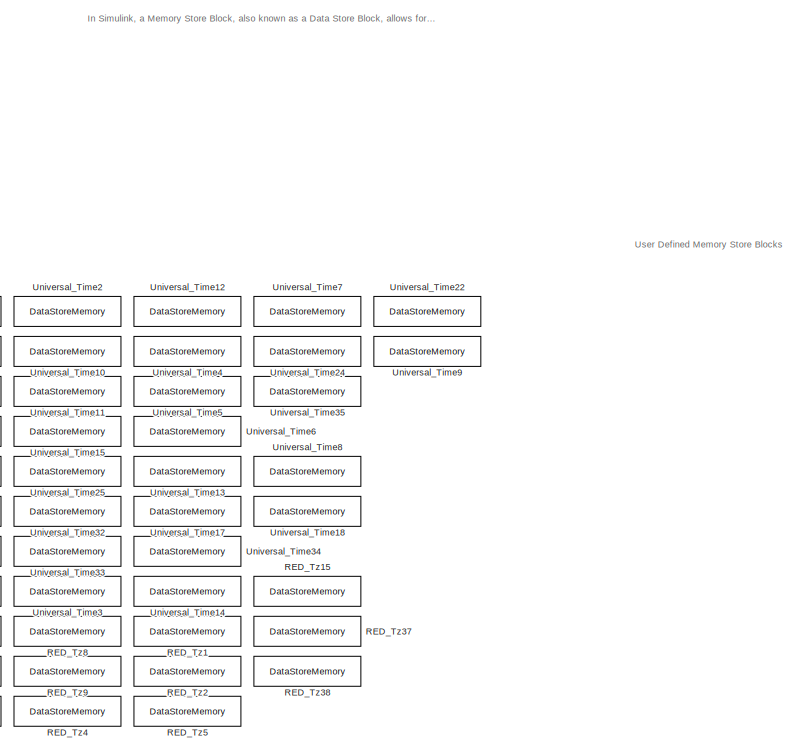
[diagram: root canvas - part 1/6, top right region]
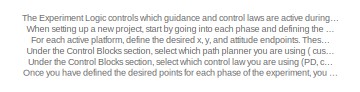
[diagram: root canvas - part 2/6, top left region]
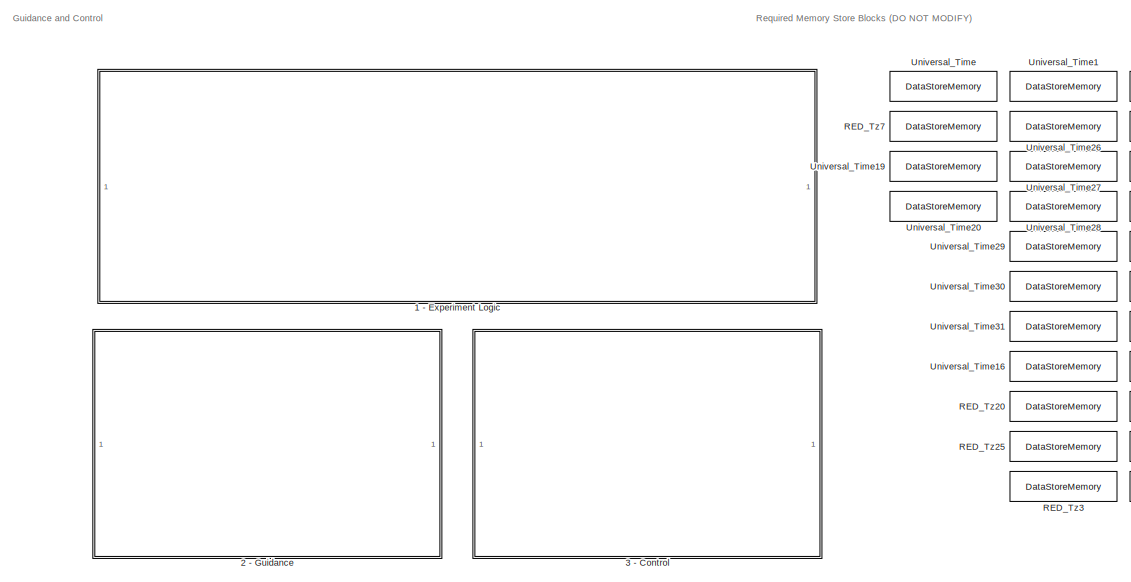
[diagram: root canvas - part 3/6, central region]
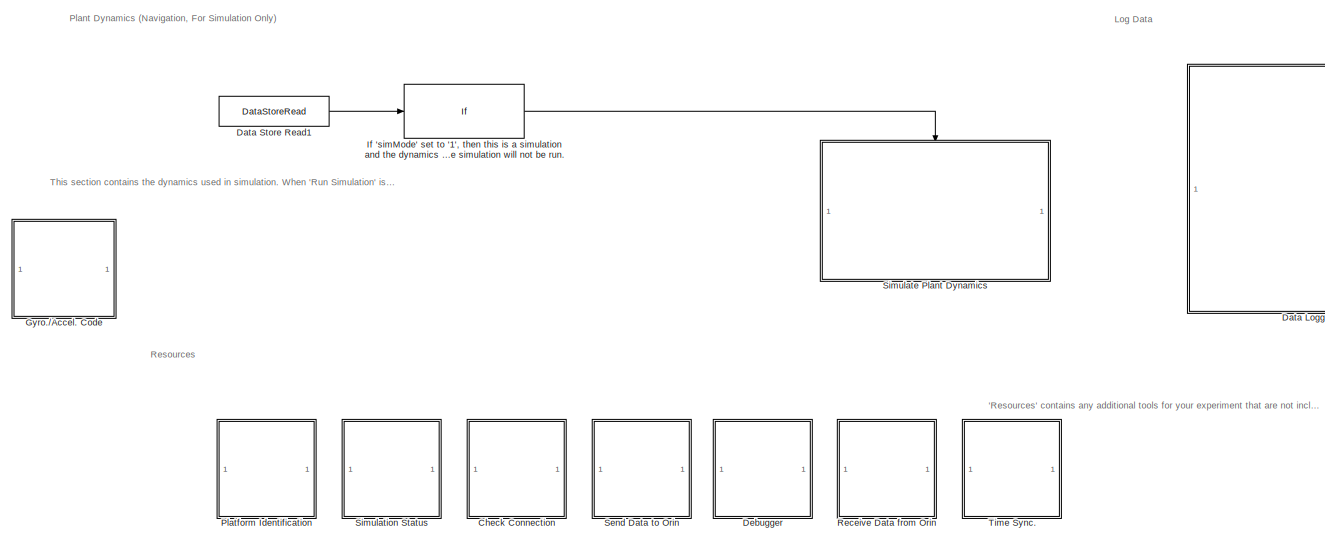
[diagram: root canvas - part 4/6, bottom right region]
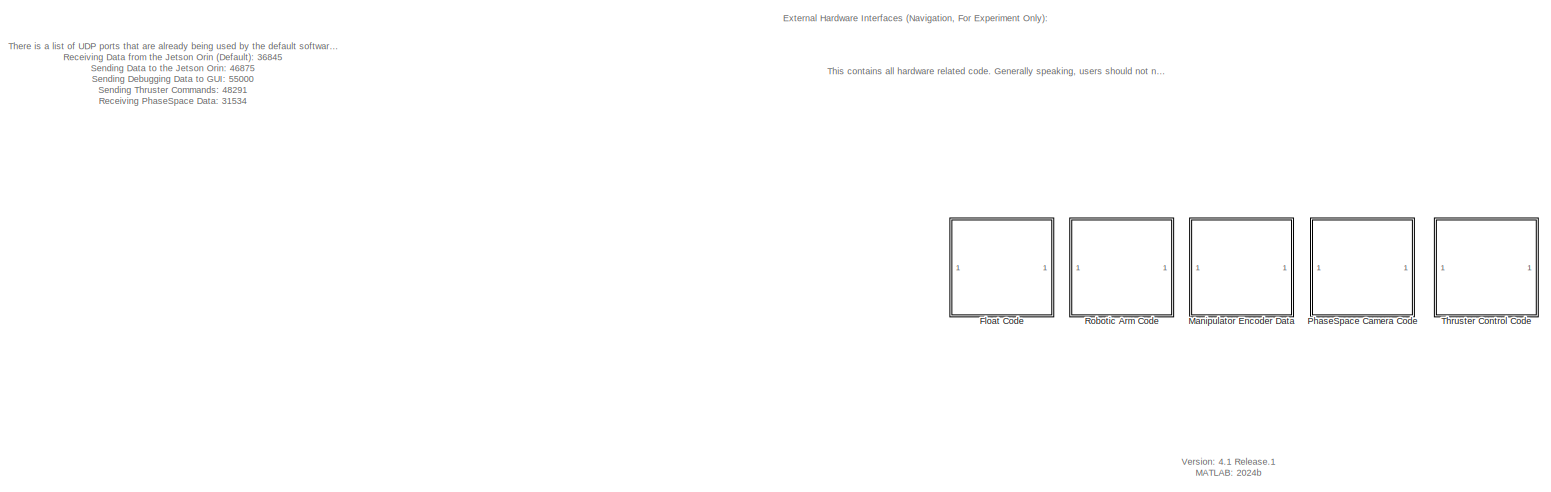
[diagram: root canvas - part 5/6, bottom left region]
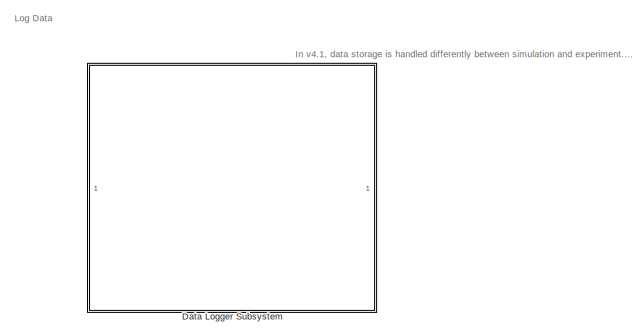
[diagram: root canvas - part 6/6, bottom right region]
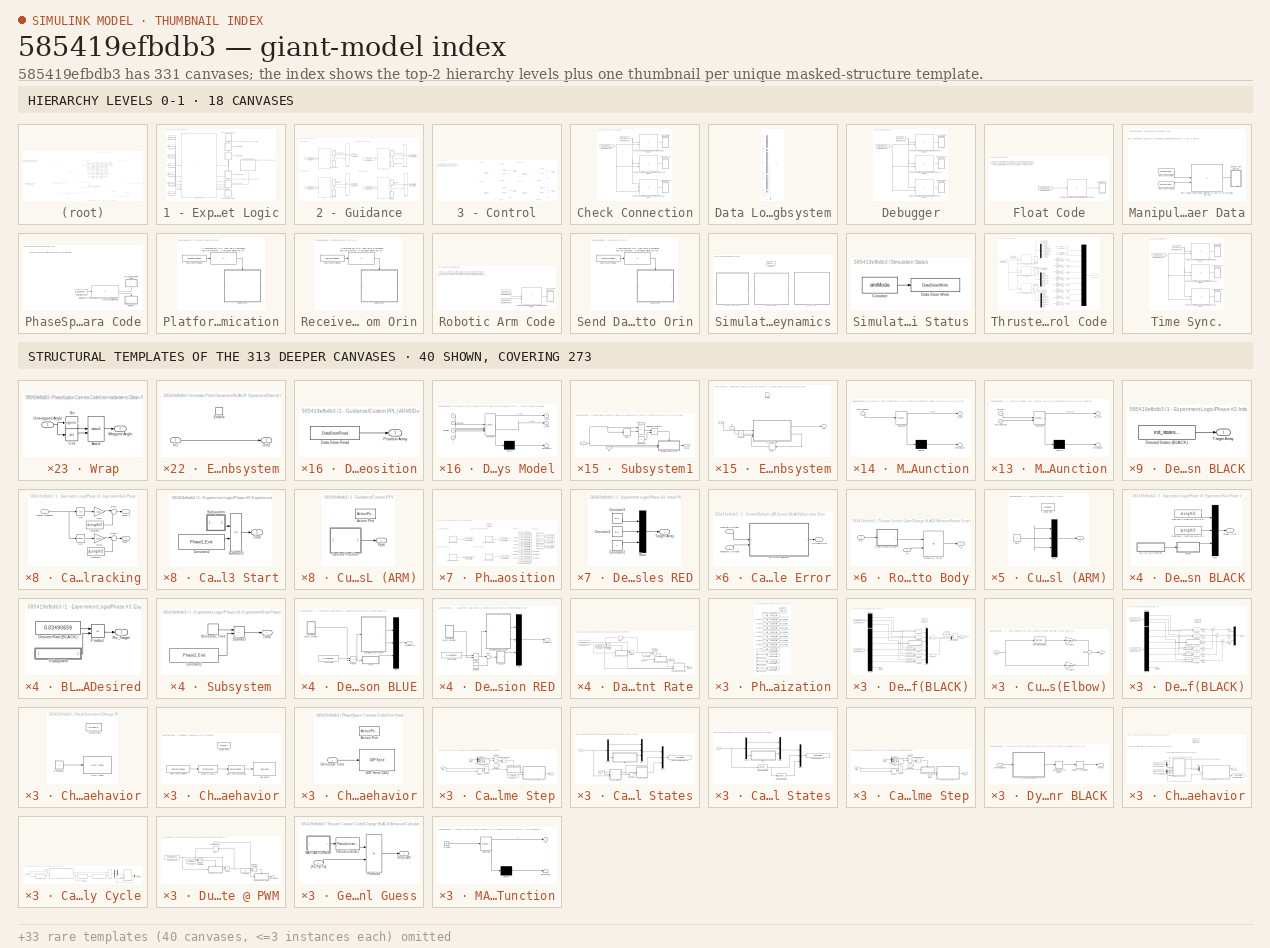
[diagram: thumbnail index - top-2 hierarchy levels (18 canvases) + 40 structural-template representatives of the remaining 313 canvases]
MODEL slx_585419efbdb3
KIND model
CONFIG AbsTol = 1e-6
CONFIG EnableMultiTasking = off
CONFIG FixedStep = baseRate
CONFIG MaxStep = auto
CONFIG MinStep = auto
CONFIG RelTol = 1e-6
CONFIG SampleTimeConstraint = Unconstrained
CONFIG SolverName = ode4
CONFIG StartTime = 0.0
CONFIG StopTime = 3.514660000000000e+02
BLOCK [SubSystem] 1 - Experiment Logic
BLOCK [Constant] 1 - Experiment Logic/Constant
  SampleTime = -1
  Value = Phase1_End
BLOCK [Constant] 1 - Experiment Logic/Constant1
  SampleTime = -1
  Value = Phase2_End
BLOCK [Constant] 1 - Experiment Logic/Constant2
  SampleTime = -1
  Value = Phase3_End
BLOCK [Constant] 1 - Experiment Logic/Constant3
  SampleTime = -1
  Value = Phase4_End
BLOCK [Constant] 1 - Experiment Logic/Constant4
  SampleTime = -1
  Value = Phase0_End
BLOCK [Constant] 1 - Experiment Logic/Constant6
  SampleTime = -1
  Value = Phase5_End
BLOCK [SubSystem] 1 - Experiment Logic/Phase #0: Synchronization
  NameLocation = top
  TreatAsAtomicUnit = on
BLOCK [ActionPort] 1 - Experiment Logic/Phase #0: Synchronization/Action Port
  ActionPortLabel = if(u1 < u2)
BLOCK [Constant] 1 - Experiment Logic/Phase #0: Synchronization/Constant1
  Value = 0
BLOCK [Constant] 1 - Experiment Logic/Phase #0: Synchronization/Constant2
  Value = 0
BLOCK [Constant] 1 - Experiment Logic/Phase #0: Synchronization/Constant3
  Value = 0
BLOCK [Constant] 1 - Experiment Logic/Phase #0: Synchronization/Constant4
  Value = 0
BLOCK [Constant] 1 - Experiment Logic/Phase #0: Synchronization/Constant5
  Value = 0
BLOCK [Constant] 1 - Experiment Logic/Phase #0: Synchronization/Constant6
  Value = 0
BLOCK [Constant] 1 - Experiment Logic/Phase #0: Synchronization/Constant7
  Value = 0
BLOCK [Constant] 1 - Experiment Logic/Phase #0: Synchronization/Constant8
  Value = 0
BLOCK [DataStoreWrite] 1 - Experiment Logic/Phase #0: Synchronization/Data Store Write
  DataStoreName = RED_Control_Law_Enabler
  IndexOptions = Index vector (dialog)
  Indices = 1
  OutputSizes = 1
BLOCK [DataStoreWrite] 1 - Experiment Logic/Phase #0: Synchronization/Data Store Write1
  DataStoreName = RED_Logger
  IndexOptions = Index vector (dialog)
  Indices = 1
  OutputSizes = 1
BLOCK [DataStoreWrite] 1 - Experiment Logic/Phase #0: Synchronization/Data Store Write10
  DataStoreName = BLACK_Logger
  IndexOptions = Index vector (dialog)
  Indices = 1
  OutputSizes = 1
BLOCK [DataStoreWrite] 1 - Experiment Logic/Phase #0: Synchronization/Data Store Write11
  DataStoreName = BLUE_Logger
  IndexOptions = Index vector (dialog)
  Indices = 1
  OutputSizes = 1
BLOCK [DataStoreWrite] 1 - Experiment Logic/Phase #0: Synchronization/Data Store Write2
  DataStoreName = BLACK_Control_Law_Enabler
  IndexOptions = Index vector (dialog)
  Indices = 1
  OutputSizes = 1
BLOCK [DataStoreWrite] 1 - Experiment Logic/Phase #0: Synchronization/Data Store Write3
  DataStoreName = BLUE_Control_Law_Enabler
  IndexOptions = Index vector (dialog)
  Indices = 1
  OutputSizes = 1
BLOCK [DataStoreWrite] 1 - Experiment Logic/Phase #0: Synchronization/Data Store Write4
  DataStoreName = Float_State
  IndexOptions = Index vector (dialog)
  Indices = 1
  OutputSizes = 1
BLOCK [DataStoreWrite] 1 - Experiment Logic/Phase #0: Synchronization/Data Store Write5
  DataStoreName = BLUE_Path_Planner_Selection
  IndexOptions = Index vector (dialog)
  Indices = 1
  OutputSizes = 1
BLOCK [DataStoreWrite] 1 - Experiment Logic/Phase #0: Synchronization/Data Store Write6
  DataStoreName = BLACK_Path_Planner_Selection
  IndexOptions = Index vector (dialog)
  Indices = 1
  OutputSizes = 1
BLOCK [DataStoreWrite] 1 - Experiment Logic/Phase #0: Synchronization/Data Store Write7
  DataStoreName = RED_Path_Planner_Selection
  IndexOptions = Index vector (dialog)
  Indices = 1
  OutputSizes = 1
BLOCK [DataStoreWrite] 1 - Experiment Logic/Phase #0: Synchronization/Data Store Write8
  DataStoreName = ARM_Path_Planner_Selection
  IndexOptions = Index vector (dialog)
  Indices = 1
  OutputSizes = 1
BLOCK [DataStoreWrite] 1 - Experiment Logic/Phase #0: Synchronization/Data Store Write9
  DataStoreName = ARM_Control_Law_Enabler
  IndexOptions = Index vector (dialog)
  Indices = 1
  OutputSizes = 1
BLOCK [Constant] 1 - Experiment Logic/Phase #0: Synchronization/Puck State
  Value = 0
BLOCK [StringConstant] 1 - Experiment Logic/Phase #0: Synchronization/String Constant
  String = "Chaser: Running Phase 0"
BLOCK [StringConstant] 1 - Experiment Logic/Phase #0: Synchronization/String Constant1
  String = "Target: Running Phase 0"
BLOCK [StringConstant] 1 - Experiment Logic/Phase #0: Synchronization/String Constant2
  String = "Obstacle: Running Phase 0"
BLOCK [SubSystem] 1 - Experiment Logic/Phase #1: Start Floating 
  NameLocation = top
  TreatAsAtomicUnit = on
BLOCK [ActionPort] 1 - Experiment Logic/Phase #1: Start Floating /Action Port
  ActionPortLabel = elseif((u1 < u3 & u1 >= u2))
BLOCK [Constant] 1 - Experiment Logic/Phase #1: Start Floating /Constant1
  Value = 0
BLOCK [Constant] 1 - Experiment Logic/Phase #1: Start Floating /Constant2
  Value = 0
BLOCK [Constant] 1 - Experiment Logic/Phase #1: Start Floating /Constant3
  Value = 0
BLOCK [Constant] 1 - Experiment Logic/Phase #1: Start Floating /Constant4
  Value = 0
BLOCK [Constant] 1 - Experiment Logic/Phase #1: Start Floating /Constant5
  Value = 0
BLOCK [Constant] 1 - Experiment Logic/Phase #1: Start Floating /Constant6
  Value = 0
BLOCK [Constant] 1 - Experiment Logic/Phase #1: Start Floating /Constant7
  Value = 0
BLOCK [Constant] 1 - Experiment Logic/Phase #1: Start Floating /Constant8
  Value = 0
BLOCK [DataStoreWrite] 1 - Experiment Logic/Phase #1: Start Floating /Data Store Write
  DataStoreName = RED_Control_Law_Enabler
  IndexOptions = Index vector (dialog)
  Indices = 1
  OutputSizes = 1
BLOCK [DataStoreWrite] 1 - Experiment Logic/Phase #1: Start Floating /Data Store Write1
  DataStoreName = RED_Logger
  IndexOptions = Index vector (dialog)
  Indices = 1
  OutputSizes = 1
BLOCK [DataStoreWrite] 1 - Experiment Logic/Phase #1: Start Floating /Data Store Write10
  DataStoreName = BLACK_Logger
  IndexOptions = Index vector (dialog)
  Indices = 1
  OutputSizes = 1
BLOCK [DataStoreWrite] 1 - Experiment Logic/Phase #1: Start Floating /Data Store Write11
  DataStoreName = BLUE_Logger
  IndexOptions = Index vector (dialog)
  Indices = 1
  OutputSizes = 1
BLOCK [DataStoreWrite] 1 - Experiment Logic/Phase #1: Start Floating /Data Store Write2
  DataStoreName = BLACK_Control_Law_Enabler
  IndexOptions = Index vector (dialog)
  Indices = 1
  OutputSizes = 1
BLOCK [DataStoreWrite] 1 - Experiment Logic/Phase #1: Start Floating /Data Store Write3
  DataStoreName = BLUE_Control_Law_Enabler
  IndexOptions = Index vector (dialog)
  Indices = 1
  OutputSizes = 1
BLOCK [DataStoreWrite] 1 - Experiment Logic/Phase #1: Start Floating /Data Store Write4
  DataStoreName = Float_State
  IndexOptions = Index vector (dialog)
  Indices = 1
  OutputSizes = 1
BLOCK [DataStoreWrite] 1 - Experiment Logic/Phase #1: Start Floating /Data Store Write5
  DataStoreName = BLUE_Path_Planner_Selection
  IndexOptions = Index vector (dialog)
  Indices = 1
  OutputSizes = 1
BLOCK [DataStoreWrite] 1 - Experiment Logic/Phase #1: Start Floating /Data Store Write6
  DataStoreName = BLACK_Path_Planner_Selection
  IndexOptions = Index vector (dialog)
  Indices = 1
  OutputSizes = 1
BLOCK [DataStoreWrite] 1 - Experiment Logic/Phase #1: Start Floating /Data Store Write7
  DataStoreName = RED_Path_Planner_Selection
  IndexOptions = Index vector (dialog)
  Indices = 1
  OutputSizes = 1
BLOCK [DataStoreWrite] 1 - Experiment Logic/Phase #1: Start Floating /Data Store Write8
  DataStoreName = ARM_Path_Planner_Selection
  IndexOptions = Index vector (dialog)
  Indices = 1
  OutputSizes = 1
BLOCK [DataStoreWrite] 1 - Experiment Logic/Phase #1: Start Floating /Data Store Write9
  DataStoreName = ARM_Control_Law_Enabler
  IndexOptions = Index vector (dialog)
  Indices = 1
  OutputSizes = 1
BLOCK [Constant] 1 - Experiment Logic/Phase #1: Start Floating /Puck State
BLOCK [StringConstant] 1 - Experiment Logic/Phase #1: Start Floating /String Constant
  String = "Chaser: Running Phase 1"
BLOCK [StringConstant] 1 - Experiment Logic/Phase #1: Start Floating /String Constant1
  String = "Target: Running Phase 1"
BLOCK [StringConstant] 1 - Experiment Logic/Phase #1: Start Floating /String Constant2
  String = "Obstacle: Running Phase 1"
BLOCK [SubSystem] 1 - Experiment Logic/Phase #2: Initial Position
  NameLocation = top
  TreatAsAtomicUnit = on
BLOCK [ActionPort] 1 - Experiment Logic/Phase #2: Initial Position/Action Port
  ActionPortLabel = elseif((u1 < u4 & u1 >= u3))
BLOCK [Constant] 1 - Experiment Logic/Phase #2: Initial Position/Constant11
  Value = 0
BLOCK [Constant] 1 - Experiment Logic/Phase #2: Initial Position/Constant12
  Value = 0
BLOCK [Constant] 1 - Experiment Logic/Phase #2: Initial Position/Constant14
  Value = 0
BLOCK [Constant] 1 - Experiment Logic/Phase #2: Initial Position/Constant15
  Value = 0
BLOCK [Constant] 1 - Experiment Logic/Phase #2: Initial Position/Constant18
  Value = 0
BLOCK [Constant] 1 - Experiment Logic/Phase #2: Initial Position/Constant4
  Value = 2
BLOCK [Constant] 1 - Experiment Logic/Phase #2: Initial Position/Constant5
  Value = 2
BLOCK [Constant] 1 - Experiment Logic/Phase #2: Initial Position/Constant6
BLOCK [Constant] 1 - Experiment Logic/Phase #2: Initial Position/Constant8
  Value = 2
BLOCK [DataStoreWrite] 1 - Experiment Logic/Phase #2: Initial Position/Data Store Write1
  DataStoreName = BLACK_Desired_States
  IndexOptions = Index vector (dialog)
  Indices = 1
  OutputSizes = 1
BLOCK [DataStoreWrite] 1 - Experiment Logic/Phase #2: Initial Position/Data Store Write10
  DataStoreName = BLACK_Logger
  IndexOptions = Index vector (dialog)
  Indices = 1
  OutputSizes = 1
BLOCK [DataStoreWrite] 1 - Experiment Logic/Phase #2: Initial Position/Data Store Write11
  DataStoreName = BLUE_Logger
  IndexOptions = Index vector (dialog)
  Indices = 1
  OutputSizes = 1
BLOCK [DataStoreWrite] 1 - Experiment Logic/Phase #2: Initial Position/Data Store Write13
  DataStoreName = ARM_Desired_States
  IndexOptions = Index vector (dialog)
  Indices = 1
  OutputSizes = 1
BLOCK [DataStoreWrite] 1 - Experiment Logic/Phase #2: Initial Position/Data Store Write16
  DataStoreName = BLUE_Control_Law_Enabler
  IndexOptions = Index vector (dialog)
  Indices = 1
  OutputSizes = 1
BLOCK [DataStoreWrite] 1 - Experiment Logic/Phase #2: Initial Position/Data Store Write18
  DataStoreName = BLUE_Desired_States
  IndexOptions = Index vector (dialog)
  Indices = 1
  OutputSizes = 1
BLOCK [DataStoreWrite] 1 - Experiment Logic/Phase #2: Initial Position/Data Store Write2
  DataStoreName = RED_Logger
  IndexOptions = Index vector (dialog)
  Indices = 1
  OutputSizes = 1
BLOCK [DataStoreWrite] 1 - Experiment Logic/Phase #2: Initial Position/Data Store Write22
  DataStoreName = BLUE_Path_Planner_Selection
  IndexOptions = Index vector (dialog)
  Indices = 1
  OutputSizes = 1
BLOCK [DataStoreWrite] 1 - Experiment Logic/Phase #2: Initial Position/Data Store Write23
  DataStoreName = BLACK_Path_Planner_Selection
  IndexOptions = Index vector (dialog)
  Indices = 1
  OutputSizes = 1
BLOCK [DataStoreWrite] 1 - Experiment Logic/Phase #2: Initial Position/Data Store Write24
  DataStoreName = RED_Path_Planner_Selection
  IndexOptions = Index vector (dialog)
  Indices = 1
  OutputSizes = 1
BLOCK [DataStoreWrite] 1 - Experiment Logic/Phase #2: Initial Position/Data Store Write26
  DataStoreName = ARM_Path_Planner_Selection
  IndexOptions = Index vector (dialog)
  Indices = 1
  OutputSizes = 1
BLOCK [DataStoreWrite] 1 - Experiment Logic/Phase #2: Initial Position/Data Store Write27
  DataStoreName = ARM_Control_Law_Enabler
  IndexOptions = Index vector (dialog)
  Indices = 1
  OutputSizes = 1
BLOCK [DataStoreWrite] 1 - Experiment Logic/Phase #2: Initial Position/Data Store Write4
  DataStoreName = BLACK_Control_Law_Enabler
  IndexOptions = Index vector (dialog)
  Indices = 1
  OutputSizes = 1
BLOCK [DataStoreWrite] 1 - Experiment Logic/Phase #2: Initial Position/Data Store Write7
  DataStoreName = Float_State
  IndexOptions = Index vector (dialog)
  Indices = 1
  OutputSizes = 1
BLOCK [DataStoreWrite] 1 - Experiment Logic/Phase #2: Initial Position/Data Store Write8
  DataStoreName = RED_Control_Law_Enabler
  IndexOptions = Index vector (dialog)
  Indices = 1
  OutputSizes = 1
BLOCK [DataStoreWrite] 1 - Experiment Logic/Phase #2: Initial Position/Data Store Write9
  DataStoreName = RED_Desired_States
  IndexOptions = Index vector (dialog)
  Indices = 1
  OutputSizes = 1
BLOCK [SubSystem] 1 - Experiment Logic/Phase #2: Initial Position/Desired Joint Angles RED
BLOCK [Constant] 1 - Experiment Logic/Phase #2: Initial Position/Desired Joint Angles RED/Constant1
  Value = pi/2
BLOCK [Constant] 1 - Experiment Logic/Phase #2: Initial Position/Desired Joint Angles RED/Constant2
  Value = 0
BLOCK [Constant] 1 - Experiment Logic/Phase #2: Initial Position/Desired Joint Angles RED/Constant3
  Value = pi/2
BLOCK [Mux] 1 - Experiment Logic/Phase #2: Initial Position/Desired Joint Angles RED/Mux
  DisplayOption = bar
  Inputs = 3
BLOCK [Outport] 1 - Experiment Logic/Phase #2: Initial Position/Desired Joint Angles RED/Target Array
BLOCK [SubSystem] 1 - Experiment Logic/Phase #2: Initial Position/Desired Position BLACK
BLOCK [Constant] 1 - Experiment Logic/Phase #2: Initial Position/Desired Position BLACK/Desired States (BLACK)
  SampleTime = -1
  Value = init_states_BLACK
BLOCK [Outport] 1 - Experiment Logic/Phase #2: Initial Position/Desired Position BLACK/Target Array
BLOCK [SubSystem] 1 - Experiment Logic/Phase #2: Initial Position/Desired Position BLUE
BLOCK [Constant] 1 - Experiment Logic/Phase #2: Initial Position/Desired Position BLUE/Desired States (BLUE)
  SampleTime = -1
  Value = init_states_BLUE
BLOCK [Outport] 1 - Experiment Logic/Phase #2: Initial Position/Desired Position BLUE/Target Array
BLOCK [SubSystem] 1 - Experiment Logic/Phase #2: Initial Position/Desired Position RED
BLOCK [Constant] 1 - Experiment Logic/Phase #2: Initial Position/Desired Position RED/Constant2
  Value = init_states_RED
BLOCK [Outport] 1 - Experiment Logic/Phase #2: Initial Position/Desired Position RED/Target Array
BLOCK [StringConstant] 1 - Experiment Logic/Phase #2: Initial Position/String Constant
  String = "Chaser: Running Phase 2"
BLOCK [StringConstant] 1 - Experiment Logic/Phase #2: Initial Position/String Constant1
  String = "Target: Running Phase 2"
BLOCK [StringConstant] 1 - Experiment Logic/Phase #2: Initial Position/String Constant2
  String = "Obstacle: Running Phase 2"
BLOCK [SubSystem] 1 - Experiment Logic/Phase #3: Experiment
  NameLocation = top
  TreatAsAtomicUnit = on
BLOCK [ActionPort] 1 - Experiment Logic/Phase #3: Experiment/Action Port
  ActionPortLabel = elseif( (u1 < u5 & u1 >= u4))
BLOCK [Constant] 1 - Experiment Logic/Phase #3: Experiment/Constant1
  SampleTime = -1
  Value = Phase3_SubPhase2_End
BLOCK [Constant] 1 - Experiment Logic/Phase #3: Experiment/Constant2
  SampleTime = -1
  Value = Phase3_SubPhase3_End
BLOCK [Constant] 1 - Experiment Logic/Phase #3: Experiment/Constant3
  SampleTime = -1
  Value = Phase3_SubPhase4_End
BLOCK [Constant] 1 - Experiment Logic/Phase #3: Experiment/Constant4
  SampleTime = -1
  Value = Phase3_SubPhase1_End
BLOCK [If] 1 - Experiment Logic/Phase #3: Experiment/Experiment Sub-Phases
  ElseIfExpressions = (u1 < u3 & u1 >= u2),(u1 < u4 & u1 >= u3), (u1 < u5 & u1 >= u4)
  IfExpression = u1 < u2
  NumInputs = 5
  ShowElse = off
BLOCK [SubSystem] 1 - Experiment Logic/Phase #3: Experiment/Sub-Phase #1
  NameLocation = right
  TreatAsAtomicUnit = on
BLOCK [ActionPort] 1 - Experiment Logic/Phase #3: Experiment/Sub-Phase #1/Action Port
  ActionPortLabel = if(u1 < u2)
BLOCK [Constant] 1 - Experiment Logic/Phase #3: Experiment/Sub-Phase #1/Constant11
  Value = 0
BLOCK [Constant] 1 - Experiment Logic/Phase #3: Experiment/Sub-Phase #1/Constant12
  Value = 0
BLOCK [Constant] 1 - Experiment Logic/Phase #3: Experiment/Sub-Phase #1/Constant14
  Value = 0
BLOCK [Constant] 1 - Experiment Logic/Phase #3: Experiment/Sub-Phase #1/Constant15
  Value = 0
BLOCK [Constant] 1 - Experiment Logic/Phase #3: Experiment/Sub-Phase #1/Constant18
  Value = 0
BLOCK [Constant] 1 - Experiment Logic/Phase #3: Experiment/Sub-Phase #1/Constant4
  Value = 2
BLOCK [Constant] 1 - Experiment Logic/Phase #3: Experiment/Sub-Phase #1/Constant5
  Value = 2
BLOCK [Constant] 1 - Experiment Logic/Phase #3: Experiment/Sub-Phase #1/Constant6
BLOCK [Constant] 1 - Experiment Logic/Phase #3: Experiment/Sub-Phase #1/Constant8
  Value = 2
BLOCK [DataStoreWrite] 1 - Experiment Logic/Phase #3: Experiment/Sub-Phase #1/Data Store Write1
  DataStoreName = ARM_Path_Planner_Selection
  IndexOptions = Index vector (dialog)
  Indices = 1
  OutputSizes = 1
BLOCK [DataStoreWrite] 1 - Experiment Logic/Phase #3: Experiment/Sub-Phase #1/Data Store Write10
  DataStoreName = BLACK_Logger
  IndexOptions = Index vector (dialog)
  Indices = 1
  OutputSizes = 1
BLOCK [DataStoreWrite] 1 - Experiment Logic/Phase #3: Experiment/Sub-Phase #1/Data Store Write11
  DataStoreName = BLUE_Logger
  IndexOptions = Index vector (dialog)
  Indices = 1
  OutputSizes = 1
BLOCK [DataStoreWrite] 1 - Experiment Logic/Phase #3: Experiment/Sub-Phase #1/Data Store Write13
  DataStoreName = ARM_Desired_States
  IndexOptions = Index vector (dialog)
  Indices = 1
  OutputSizes = 1
BLOCK [DataStoreWrite] 1 - Experiment Logic/Phase #3: Experiment/Sub-Phase #1/Data Store Write16
  DataStoreName = BLUE_Control_Law_Enabler
  IndexOptions = Index vector (dialog)
  Indices = 1
  OutputSizes = 1
BLOCK [DataStoreWrite] 1 - Experiment Logic/Phase #3: Experiment/Sub-Phase #1/Data Store Write18
  DataStoreName = BLUE_Desired_States
  IndexOptions = Index vector (dialog)
  Indices = 1
  OutputSizes = 1
BLOCK [DataStoreWrite] 1 - Experiment Logic/Phase #3: Experiment/Sub-Phase #1/Data Store Write2
  DataStoreName = ARM_Control_Law_Enabler
  IndexOptions = Index vector (dialog)
  Indices = 1
  OutputSizes = 1
BLOCK [DataStoreWrite] 1 - Experiment Logic/Phase #3: Experiment/Sub-Phase #1/Data Store Write22
  DataStoreName = BLUE_Path_Planner_Selection
  IndexOptions = Index vector (dialog)
  Indices = 1
  OutputSizes = 1
BLOCK [DataStoreWrite] 1 - Experiment Logic/Phase #3: Experiment/Sub-Phase #1/Data Store Write23
  DataStoreName = BLACK_Path_Planner_Selection
  IndexOptions = Index vector (dialog)
  Indices = 1
  OutputSizes = 1
BLOCK [DataStoreWrite] 1 - Experiment Logic/Phase #3: Experiment/Sub-Phase #1/Data Store Write24
  DataStoreName = RED_Path_Planner_Selection
  IndexOptions = Index vector (dialog)
  Indices = 1
  OutputSizes = 1
BLOCK [DataStoreWrite] 1 - Experiment Logic/Phase #3: Experiment/Sub-Phase #1/Data Store Write3
  DataStoreName = RED_Control_Law_Enabler
  IndexOptions = Index vector (dialog)
  Indices = 1
  OutputSizes = 1
BLOCK [DataStoreWrite] 1 - Experiment Logic/Phase #3: Experiment/Sub-Phase #1/Data Store Write4
  DataStoreName = BLACK_Control_Law_Enabler
  IndexOptions = Index vector (dialog)
  Indices = 1
  OutputSizes = 1
BLOCK [DataStoreWrite] 1 - Experiment Logic/Phase #3: Experiment/Sub-Phase #1/Data Store Write5
  DataStoreName = BLACK_Desired_States
  IndexOptions = Index vector (dialog)
  Indices = 1
  OutputSizes = 1
BLOCK [DataStoreWrite] 1 - Experiment Logic/Phase #3: Experiment/Sub-Phase #1/Data Store Write6
  DataStoreName = RED_Logger
  IndexOptions = Index vector (dialog)
  Indices = 1
  OutputSizes = 1
BLOCK [DataStoreWrite] 1 - Experiment Logic/Phase #3: Experiment/Sub-Phase #1/Data Store Write7
  DataStoreName = Float_State
  IndexOptions = Index vector (dialog)
  Indices = 1
  OutputSizes = 1
BLOCK [DataStoreWrite] 1 - Experiment Logic/Phase #3: Experiment/Sub-Phase #1/Data Store Write9
  DataStoreName = RED_Desired_States
  IndexOptions = Index vector (dialog)
  Indices = 1
  OutputSizes = 1
BLOCK [SubSystem] 1 - Experiment Logic/Phase #3: Experiment/Sub-Phase #1/Desired Joint Angles RED
BLOCK [Constant] 1 - Experiment Logic/Phase #3: Experiment/Sub-Phase #1/Desired Joint Angles RED/Constant1
  Value = pi/2
BLOCK [Constant] 1 - Experiment Logic/Phase #3: Experiment/Sub-Phase #1/Desired Joint Angles RED/Constant2
  Value = 0
BLOCK [Constant] 1 - Experiment Logic/Phase #3: Experiment/Sub-Phase #1/Desired Joint Angles RED/Constant3
  Value = pi/2
BLOCK [Mux] 1 - Experiment Logic/Phase #3: Experiment/Sub-Phase #1/Desired Joint Angles RED/Mux
  DisplayOption = bar
  Inputs = 3
BLOCK [Outport] 1 - Experiment Logic/Phase #3: Experiment/Sub-Phase #1/Desired Joint Angles RED/Target Array
BLOCK [SubSystem] 1 - Experiment Logic/Phase #3: Experiment/Sub-Phase #1/Desired Position BLACK
BLOCK [SubSystem] 1 - Experiment Logic/Phase #3: Experiment/Sub-Phase #1/Desired Position BLACK/BLACK_Rz Desired
BLOCK [Constant] 1 - Experiment Logic/Phase #3: Experiment/Sub-Phase #1/Desired Position BLACK/BLACK_Rz Desired/Desired Rate (BLACK)
  SampleTime = -1
  Value = 0.03490659
BLOCK [Product] 1 - Experiment Logic/Phase #3: Experiment/Sub-Phase #1/Desired Position BLACK/BLACK_Rz Desired/Product
BLOCK [Outport] 1 - Experiment Logic/Phase #3: Experiment/Sub-Phase #1/Desired Position BLACK/BLACK_Rz Desired/Rz_Target
  VectorParamsAs1DForOutWhenUnconnected = off
BLOCK [SubSystem] 1 - Experiment Logic/Phase #3: Experiment/Sub-Phase #1/Desired Position BLACK/BLACK_Rz Desired/Subsystem
BLOCK [Constant] 1 - Experiment Logic/Phase #3: Experiment/Sub-Phase #1/Desired Position BLACK/BLACK_Rz Desired/Subsystem/Constant1
  SampleTime = -1
  Value = Phase2_End
BLOCK [Sum] 1 - Experiment Logic/Phase #3: Experiment/Sub-Phase #1/Desired Position BLACK/BLACK_Rz Desired/Subsystem/Subtract
  IconShape = rectangular
  Inputs = +-
BLOCK [Outport] 1 - Experiment Logic/Phase #3: Experiment/Sub-Phase #1/Desired Position BLACK/BLACK_Rz Desired/Subsystem/Time
  VectorParamsAs1DForOutWhenUnconnected = off
BLOCK [DataStoreRead] 1 - Experiment Logic/Phase #3: Experiment/Sub-Phase #1/Desired Position BLACK/BLACK_Rz Desired/Subsystem/Universal_Time
  DataStoreName = Univ_Time
  IndexOptions = Index vector (dialog)
  Indices = 1
  OutputSizes = 1
BLOCK [Constant] 1 - Experiment Logic/Phase #3: Experiment/Sub-Phase #1/Desired Position BLACK/Desired X-Position (BLACK)
  SampleTime = -1
  Value = xLength/2
BLOCK [Constant] 1 - Experiment Logic/Phase #3: Experiment/Sub-Phase #1/Desired Position BLACK/Desired Y-Position (BLACK)
  SampleTime = -1
  Value = yLength/2
BLOCK [Mux] 1 - Experiment Logic/Phase #3: Experiment/Sub-Phase #1/Desired Position BLACK/Mux
  DisplayOption = bar
  Inputs = 3
BLOCK [Outport] 1 - Experiment Logic/Phase #3: Experiment/Sub-Phase #1/Desired Position BLACK/Target Array
BLOCK [SubSystem] 1 - Experiment Logic/Phase #3: Experiment/Sub-Phase #1/Desired Position BLACK/Wrap
BLOCK [Trigonometry] 1 - Experiment Logic/Phase #3: Experiment/Sub-Phase #1/Desired Position BLACK/Wrap/Atan2
  Operator = atan2
BLOCK [Trigonometry] 1 - Experiment Logic/Phase #3: Experiment/Sub-Phase #1/Desired Position BLACK/Wrap/Cos
  Operator = cos
BLOCK [Inport] 1 - Experiment Logic/Phase #3: Experiment/Sub-Phase #1/Desired Position BLACK/Wrap/In1
BLOCK [Outport] 1 - Experiment Logic/Phase #3: Experiment/Sub-Phase #1/Desired Position BLACK/Wrap/Out1
BLOCK [Trigonometry] 1 - Experiment Logic/Phase #3: Experiment/Sub-Phase #1/Desired Position BLACK/Wrap/Sin
BLOCK [SubSystem] 1 - Experiment Logic/Phase #3: Experiment/Sub-Phase #1/Desired Position BLUE
BLOCK [SubSystem] 1 - Experiment Logic/Phase #3: Experiment/Sub-Phase #1/Desired Position BLUE/Calculate Circular Tracking
BLOCK [Inport] 1 - Experiment Logic/Phase #3: Experiment/Sub-Phase #1/Desired Position BLUE/Calculate Circular Tracking/Angular Frequency
BLOCK [Constant] 1 - Experiment Logic/Phase #3: Experiment/Sub-Phase #1/Desired Position BLUE/Calculate Circular Tracking/Constant1
  Value = xLength/2
BLOCK [Constant] 1 - Experiment Logic/Phase #3: Experiment/Sub-Phase #1/Desired Position BLUE/Calculate Circular Tracking/Constant2
  Value = yLength/2
BLOCK [Trigonometry] 1 - Experiment Logic/Phase #3: Experiment/Sub-Phase #1/Desired Position BLUE/Calculate Circular Tracking/Cos
  Operator = cos
BLOCK [Gain] 1 - Experiment Logic/Phase #3: Experiment/Sub-Phase #1/Desired Position BLUE/Calculate Circular Tracking/Gain
  Gain = -0.85
BLOCK [Gain] 1 - Experiment Logic/Phase #3: Experiment/Sub-Phase #1/Desired Position BLUE/Calculate Circular Tracking/Gain1
  Gain = -0.85
BLOCK [Trigonometry] 1 - Experiment Logic/Phase #3: Experiment/Sub-Phase #1/Desired Position BLUE/Calculate Circular Tracking/Sin
BLOCK [Sum] 1 - Experiment Logic/Phase #3: Experiment/Sub-Phase #1/Desired Position BLUE/Calculate Circular Tracking/Sum1
  Inputs = |++
BLOCK [Sum] 1 - Experiment Logic/Phase #3: Experiment/Sub-Phase #1/Desired Position BLUE/Calculate Circular Tracking/Sum2
  Inputs = |++
BLOCK [Outport] 1 - Experiment Logic/Phase #3: Experiment/Sub-Phase #1/Desired Position BLUE/Calculate Circular Tracking/Target X
BLOCK [Outport] 1 - Experiment Logic/Phase #3: Experiment/Sub-Phase #1/Desired Position BLUE/Calculate Circular Tracking/Target Y
  Port = 2
BLOCK [SubSystem] 1 - Experiment Logic/Phase #3: Experiment/Sub-Phase #1/Desired Position BLUE/Calculate Time since Phase #3 Start
BLOCK [Constant] 1 - Experiment Logic/Phase #3: Experiment/Sub-Phase #1/Desired Position BLUE/Calculate Time since Phase #3 Start/Constant2
  SampleTime = -1
  Value = Phase2_End
BLOCK [SubSystem] 1 - Experiment Logic/Phase #3: Experiment/Sub-Phase #1/Desired Position BLUE/Calculate Time since Phase #3 Start/Subsystem
BLOCK [Outport] 1 - Experiment Logic/Phase #3: Experiment/Sub-Phase #1/Desired Position BLUE/Calculate Time since Phase #3 Start/Subsystem/Time
  VectorParamsAs1DForOutWhenUnconnected = off
BLOCK [DataStoreRead] 1 - Experiment Logic/Phase #3: Experiment/Sub-Phase #1/Desired Position BLUE/Calculate Time since Phase #3 Start/Subsystem/Universal_Time
  DataStoreName = Univ_Time
  IndexOptions = Index vector (dialog)
  Indices = 1
  OutputSizes = 1
BLOCK [Sum] 1 - Experiment Logic/Phase #3: Experiment/Sub-Phase #1/Desired Position BLUE/Calculate Time since Phase #3 Start/Subtract3
  IconShape = rectangular
  Inputs = +-
BLOCK [Outport] 1 - Experiment Logic/Phase #3: Experiment/Sub-Phase #1/Desired Position BLUE/Calculate Time since Phase #3 Start/Time
  VectorParamsAs1DForOutWhenUnconnected = off
BLOCK [Constant] 1 - Experiment Logic/Phase #3: Experiment/Sub-Phase #1/Desired Position BLUE/Desired Rate 
  SampleTime = -1
  Value = 0.03490659
BLOCK [Mux] 1 - Experiment Logic/Phase #3: Experiment/Sub-Phase #1/Desired Position BLUE/Mux
  DisplayOption = bar
  Inputs = 3
BLOCK [Product] 1 - Experiment Logic/Phase #3: Experiment/Sub-Phase #1/Desired Position BLUE/Product
BLOCK [Outport] 1 - Experiment Logic/Phase #3: Experiment/Sub-Phase #1/Desired Position BLUE/Target Array
BLOCK [SubSystem] 1 - Experiment Logic/Phase #3: Experiment/Sub-Phase #1/Desired Position BLUE/Wrap
BLOCK [Trigonometry] 1 - Experiment Logic/Phase #3: Experiment/Sub-Phase #1/Desired Position BLUE/Wrap/Atan2
  Operator = atan2
BLOCK [Trigonometry] 1 - Experiment Logic/Phase #3: Experiment/Sub-Phase #1/Desired Position BLUE/Wrap/Cos
  Operator = cos
BLOCK [Inport] 1 - Experiment Logic/Phase #3: Experiment/Sub-Phase #1/Desired Position BLUE/Wrap/In1
BLOCK [Outport] 1 - Experiment Logic/Phase #3: Experiment/Sub-Phase #1/Desired Position BLUE/Wrap/Out1
BLOCK [Trigonometry] 1 - Experiment Logic/Phase #3: Experiment/Sub-Phase #1/Desired Position BLUE/Wrap/Sin
BLOCK [SubSystem] 1 - Experiment Logic/Phase #3: Experiment/Sub-Phase #1/Desired Position RED
BLOCK [SubSystem] 1 - Experiment Logic/Phase #3: Experiment/Sub-Phase #1/Desired Position RED/Calculate Circular Tracking
BLOCK [Inport] 1 - Experiment Logic/Phase #3: Experiment/Sub-Phase #1/Desired Position RED/Calculate Circular Tracking/Angular Frequency
BLOCK [Constant] 1 - Experiment Logic/Phase #3: Experiment/Sub-Phase #1/Desired Position RED/Calculate Circular Tracking/Constant1
  Value = xLength/2
BLOCK [Constant] 1 - Experiment Logic/Phase #3: Experiment/Sub-Phase #1/Desired Position RED/Calculate Circular Tracking/Constant2
  Value = yLength/2
BLOCK [Trigonometry] 1 - Experiment Logic/Phase #3: Experiment/Sub-Phase #1/Desired Position RED/Calculate Circular Tracking/Cos
  Operator = cos
BLOCK [Gain] 1 - Experiment Logic/Phase #3: Experiment/Sub-Phase #1/Desired Position RED/Calculate Circular Tracking/Gain
  Gain = 0.85
BLOCK [Gain] 1 - Experiment Logic/Phase #3: Experiment/Sub-Phase #1/Desired Position RED/Calculate Circular Tracking/Gain1
  Gain = 0.85
BLOCK [Trigonometry] 1 - Experiment Logic/Phase #3: Experiment/Sub-Phase #1/Desired Position RED/Calculate Circular Tracking/Sin
BLOCK [Sum] 1 - Experiment Logic/Phase #3: Experiment/Sub-Phase #1/Desired Position RED/Calculate Circular Tracking/Sum1
  Inputs = |++
BLOCK [Sum] 1 - Experiment Logic/Phase #3: Experiment/Sub-Phase #1/Desired Position RED/Calculate Circular Tracking/Sum2
  Inputs = |++
BLOCK [Outport] 1 - Experiment Logic/Phase #3: Experiment/Sub-Phase #1/Desired Position RED/Calculate Circular Tracking/Target X
BLOCK [Outport] 1 - Experiment Logic/Phase #3: Experiment/Sub-Phase #1/Desired Position RED/Calculate Circular Tracking/Target Y
  Port = 2
BLOCK [SubSystem] 1 - Experiment Logic/Phase #3: Experiment/Sub-Phase #1/Desired Position RED/Calculate Time since Phase #3 Start
BLOCK [Constant] 1 - Experiment Logic/Phase #3: Experiment/Sub-Phase #1/Desired Position RED/Calculate Time since Phase #3 Start/Constant2
  SampleTime = -1
  Value = Phase2_End
BLOCK [SubSystem] 1 - Experiment Logic/Phase #3: Experiment/Sub-Phase #1/Desired Position RED/Calculate Time since Phase #3 Start/Subsystem
BLOCK [Outport] 1 - Experiment Logic/Phase #3: Experiment/Sub-Phase #1/Desired Position RED/Calculate Time since Phase #3 Start/Subsystem/Time
  VectorParamsAs1DForOutWhenUnconnected = off
BLOCK [DataStoreRead] 1 - Experiment Logic/Phase #3: Experiment/Sub-Phase #1/Desired Position RED/Calculate Time since Phase #3 Start/Subsystem/Universal_Time
  DataStoreName = Univ_Time
  IndexOptions = Index vector (dialog)
  Indices = 1
  OutputSizes = 1
BLOCK [Sum] 1 - Experiment Logic/Phase #3: Experiment/Sub-Phase #1/Desired Position RED/Calculate Time since Phase #3 Start/Subtract3
  IconShape = rectangular
  Inputs = +-
BLOCK [Outport] 1 - Experiment Logic/Phase #3: Experiment/Sub-Phase #1/Desired Position RED/Calculate Time since Phase #3 Start/Time
  VectorParamsAs1DForOutWhenUnconnected = off
BLOCK [Constant] 1 - Experiment Logic/Phase #3: Experiment/Sub-Phase #1/Desired Position RED/Constant
  Value = pi+0.01
BLOCK [Constant] 1 - Experiment Logic/Phase #3: Experiment/Sub-Phase #1/Desired Position RED/Desired Rate 
  SampleTime = -1
  Value = 0.03490659
BLOCK [Mux] 1 - Experiment Logic/Phase #3: Experiment/Sub-Phase #1/Desired Position RED/Mux
  DisplayOption = bar
  Inputs = 3
BLOCK [Product] 1 - Experiment Logic/Phase #3: Experiment/Sub-Phase #1/Desired Position RED/Product
BLOCK [Sum] 1 - Experiment Logic/Phase #3: Experiment/Sub-Phase #1/Desired Position RED/Sum
  Inputs = |++
BLOCK [Outport] 1 - Experiment Logic/Phase #3: Experiment/Sub-Phase #1/Desired Position RED/Target Array
BLOCK [SubSystem] 1 - Experiment Logic/Phase #3: Experiment/Sub-Phase #1/Desired Position RED/Wrap
BLOCK [Trigonometry] 1 - Experiment Logic/Phase #3: Experiment/Sub-Phase #1/Desired Position RED/Wrap/Atan2
  Operator = atan2
BLOCK [Trigonometry] 1 - Experiment Logic/Phase #3: Experiment/Sub-Phase #1/Desired Position RED/Wrap/Cos
  Operator = cos
BLOCK [Inport] 1 - Experiment Logic/Phase #3: Experiment/Sub-Phase #1/Desired Position RED/Wrap/In1
BLOCK [Outport] 1 - Experiment Logic/Phase #3: Experiment/Sub-Phase #1/Desired Position RED/Wrap/Out1
BLOCK [Trigonometry] 1 - Experiment Logic/Phase #3: Experiment/Sub-Phase #1/Desired Position RED/Wrap/Sin
BLOCK [StringConstant] 1 - Experiment Logic/Phase #3: Experiment/Sub-Phase #1/String Constant
  String = "Chaser: Running Phase 3 Sub-Phase 1"
BLOCK [StringConstant] 1 - Experiment Logic/Phase #3: Experiment/Sub-Phase #1/String Constant1
  String = "Target: Running Phase 3 Sub-Phase 1"
BLOCK [StringConstant] 1 - Experiment Logic/Phase #3: Experiment/Sub-Phase #1/String Constant2
  String = "Obstacle: Running Phase 3 Sub-Phase 1"
BLOCK [SubSystem] 1 - Experiment Logic/Phase #3: Experiment/Sub-Phase #2 
  NameLocation = right
  TreatAsAtomicUnit = on
BLOCK [ActionPort] 1 - Experiment Logic/Phase #3: Experiment/Sub-Phase #2 /Action Port
  ActionPortLabel = elseif((u1 < u3 & u1 >= u2))
BLOCK [Constant] 1 - Experiment Logic/Phase #3: Experiment/Sub-Phase #2 /Constant11
  Value = 0
BLOCK [Constant] 1 - Experiment Logic/Phase #3: Experiment/Sub-Phase #2 /Constant12
  Value = 0
BLOCK [Constant] 1 - Experiment Logic/Phase #3: Experiment/Sub-Phase #2 /Constant14
  Value = 0
BLOCK [Constant] 1 - Experiment Logic/Phase #3: Experiment/Sub-Phase #2 /Constant15
  Value = 0
BLOCK [Constant] 1 - Experiment Logic/Phase #3: Experiment/Sub-Phase #2 /Constant18
  Value = 0
BLOCK [Constant] 1 - Experiment Logic/Phase #3: Experiment/Sub-Phase #2 /Constant4
  Value = 2
BLOCK [Constant] 1 - Experiment Logic/Phase #3: Experiment/Sub-Phase #2 /Constant5
  Value = 2
BLOCK [Constant] 1 - Experiment Logic/Phase #3: Experiment/Sub-Phase #2 /Constant6
BLOCK [Constant] 1 - Experiment Logic/Phase #3: Experiment/Sub-Phase #2 /Constant8
  Value = 2
BLOCK [DataStoreWrite] 1 - Experiment Logic/Phase #3: Experiment/Sub-Phase #2 /Data Store Write1
  DataStoreName = ARM_Path_Planner_Selection
  IndexOptions = Index vector (dialog)
  Indices = 1
  OutputSizes = 1
BLOCK [DataStoreWrite] 1 - Experiment Logic/Phase #3: Experiment/Sub-Phase #2 /Data Store Write10
  DataStoreName = BLACK_Logger
  IndexOptions = Index vector (dialog)
  Indices = 1
  OutputSizes = 1
BLOCK [DataStoreWrite] 1 - Experiment Logic/Phase #3: Experiment/Sub-Phase #2 /Data Store Write11
  DataStoreName = BLUE_Logger
  IndexOptions = Index vector (dialog)
  Indices = 1
  OutputSizes = 1
BLOCK [DataStoreWrite] 1 - Experiment Logic/Phase #3: Experiment/Sub-Phase #2 /Data Store Write13
  DataStoreName = ARM_Desired_States
  IndexOptions = Index vector (dialog)
  Indices = 1
  OutputSizes = 1
BLOCK [DataStoreWrite] 1 - Experiment Logic/Phase #3: Experiment/Sub-Phase #2 /Data Store Write16
  DataStoreName = BLUE_Control_Law_Enabler
  IndexOptions = Index vector (dialog)
  Indices = 1
  OutputSizes = 1
BLOCK [DataStoreWrite] 1 - Experiment Logic/Phase #3: Experiment/Sub-Phase #2 /Data Store Write18
  DataStoreName = BLUE_Desired_States
  IndexOptions = Index vector (dialog)
  Indices = 1
  OutputSizes = 1
BLOCK [DataStoreWrite] 1 - Experiment Logic/Phase #3: Experiment/Sub-Phase #2 /Data Store Write2
  DataStoreName = ARM_Control_Law_Enabler
  IndexOptions = Index vector (dialog)
  Indices = 1
  OutputSizes = 1
BLOCK [DataStoreWrite] 1 - Experiment Logic/Phase #3: Experiment/Sub-Phase #2 /Data Store Write22
  DataStoreName = BLUE_Path_Planner_Selection
  IndexOptions = Index vector (dialog)
  Indices = 1
  OutputSizes = 1
BLOCK [DataStoreWrite] 1 - Experiment Logic/Phase #3: Experiment/Sub-Phase #2 /Data Store Write23
  DataStoreName = BLACK_Path_Planner_Selection
  IndexOptions = Index vector (dialog)
  Indices = 1
  OutputSizes = 1
BLOCK [DataStoreWrite] 1 - Experiment Logic/Phase #3: Experiment/Sub-Phase #2 /Data Store Write24
  DataStoreName = RED_Path_Planner_Selection
  IndexOptions = Index vector (dialog)
  Indices = 1
  OutputSizes = 1
BLOCK [DataStoreWrite] 1 - Experiment Logic/Phase #3: Experiment/Sub-Phase #2 /Data Store Write3
  DataStoreName = RED_Control_Law_Enabler
  IndexOptions = Index vector (dialog)
  Indices = 1
  OutputSizes = 1
BLOCK [DataStoreWrite] 1 - Experiment Logic/Phase #3: Experiment/Sub-Phase #2 /Data Store Write4
  DataStoreName = BLACK_Control_Law_Enabler
  IndexOptions = Index vector (dialog)
  Indices = 1
  OutputSizes = 1
BLOCK [DataStoreWrite] 1 - Experiment Logic/Phase #3: Experiment/Sub-Phase #2 /Data Store Write5
  DataStoreName = BLACK_Desired_States
  IndexOptions = Index vector (dialog)
  Indices = 1
  OutputSizes = 1
BLOCK [DataStoreWrite] 1 - Experiment Logic/Phase #3: Experiment/Sub-Phase #2 /Data Store Write6
  DataStoreName = RED_Logger
  IndexOptions = Index vector (dialog)
  Indices = 1
  OutputSizes = 1
BLOCK [DataStoreWrite] 1 - Experiment Logic/Phase #3: Experiment/Sub-Phase #2 /Data Store Write7
  DataStoreName = Float_State
  IndexOptions = Index vector (dialog)
  Indices = 1
  OutputSizes = 1
BLOCK [DataStoreWrite] 1 - Experiment Logic/Phase #3: Experiment/Sub-Phase #2 /Data Store Write9
  DataStoreName = RED_Desired_States
  IndexOptions = Index vector (dialog)
  Indices = 1
  OutputSizes = 1
BLOCK [SubSystem] 1 - Experiment Logic/Phase #3: Experiment/Sub-Phase #2 /Desired Joint Angles RED
BLOCK [Constant] 1 - Experiment Logic/Phase #3: Experiment/Sub-Phase #2 /Desired Joint Angles RED/Constant1
  Value = pi/2
BLOCK [Constant] 1 - Experiment Logic/Phase #3: Experiment/Sub-Phase #2 /Desired Joint Angles RED/Constant2
  Value = 0
BLOCK [Constant] 1 - Experiment Logic/Phase #3: Experiment/Sub-Phase #2 /Desired Joint Angles RED/Constant3
  Value = pi/2
BLOCK [Mux] 1 - Experiment Logic/Phase #3: Experiment/Sub-Phase #2 /Desired Joint Angles RED/Mux
  DisplayOption = bar
  Inputs = 3
BLOCK [Outport] 1 - Experiment Logic/Phase #3: Experiment/Sub-Phase #2 /Desired Joint Angles RED/Target Array
BLOCK [SubSystem] 1 - Experiment Logic/Phase #3: Experiment/Sub-Phase #2 /Desired Position BLACK
BLOCK [SubSystem] 1 - Experiment Logic/Phase #3: Experiment/Sub-Phase #2 /Desired Position BLACK/BLACK_Rz Desired
BLOCK [Constant] 1 - Experiment Logic/Phase #3: Experiment/Sub-Phase #2 /Desired Position BLACK/BLACK_Rz Desired/Desired Rate (BLACK)
  SampleTime = -1
  Value = 0.03490659
BLOCK [Product] 1 - Experiment Logic/Phase #3: Experiment/Sub-Phase #2 /Desired Position BLACK/BLACK_Rz Desired/Product
BLOCK [Outport] 1 - Experiment Logic/Phase #3: Experiment/Sub-Phase #2 /Desired Position BLACK/BLACK_Rz Desired/Rz_Target
  VectorParamsAs1DForOutWhenUnconnected = off
BLOCK [SubSystem] 1 - Experiment Logic/Phase #3: Experiment/Sub-Phase #2 /Desired Position BLACK/BLACK_Rz Desired/Subsystem
BLOCK [Constant] 1 - Experiment Logic/Phase #3: Experiment/Sub-Phase #2 /Desired Position BLACK/BLACK_Rz Desired/Subsystem/Constant1
  SampleTime = -1
  Value = Phase2_End
BLOCK [Sum] 1 - Experiment Logic/Phase #3: Experiment/Sub-Phase #2 /Desired Position BLACK/BLACK_Rz Desired/Subsystem/Subtract
  IconShape = rectangular
  Inputs = +-
BLOCK [Outport] 1 - Experiment Logic/Phase #3: Experiment/Sub-Phase #2 /Desired Position BLACK/BLACK_Rz Desired/Subsystem/Time
  VectorParamsAs1DForOutWhenUnconnected = off
BLOCK [DataStoreRead] 1 - Experiment Logic/Phase #3: Experiment/Sub-Phase #2 /Desired Position BLACK/BLACK_Rz Desired/Subsystem/Universal_Time
  DataStoreName = Univ_Time
  IndexOptions = Index vector (dialog)
  Indices = 1
  OutputSizes = 1
BLOCK [Constant] 1 - Experiment Logic/Phase #3: Experiment/Sub-Phase #2 /Desired Position BLACK/Desired X-Position (BLACK)
  SampleTime = -1
  Value = xLength/2
BLOCK [Constant] 1 - Experiment Logic/Phase #3: Experiment/Sub-Phase #2 /Desired Position BLACK/Desired Y-Position (BLACK)
  SampleTime = -1
  Value = yLength/2
BLOCK [Mux] 1 - Experiment Logic/Phase #3: Experiment/Sub-Phase #2 /Desired Position BLACK/Mux
  DisplayOption = bar
  Inputs = 3
BLOCK [Outport] 1 - Experiment Logic/Phase #3: Experiment/Sub-Phase #2 /Desired Position BLACK/Target Array
BLOCK [SubSystem] 1 - Experiment Logic/Phase #3: Experiment/Sub-Phase #2 /Desired Position BLACK/Wrap
BLOCK [Trigonometry] 1 - Experiment Logic/Phase #3: Experiment/Sub-Phase #2 /Desired Position BLACK/Wrap/Atan2
  Operator = atan2
BLOCK [Trigonometry] 1 - Experiment Logic/Phase #3: Experiment/Sub-Phase #2 /Desired Position BLACK/Wrap/Cos
  Operator = cos
BLOCK [Inport] 1 - Experiment Logic/Phase #3: Experiment/Sub-Phase #2 /Desired Position BLACK/Wrap/In1
BLOCK [Outport] 1 - Experiment Logic/Phase #3: Experiment/Sub-Phase #2 /Desired Position BLACK/Wrap/Out1
BLOCK [Trigonometry] 1 - Experiment Logic/Phase #3: Experiment/Sub-Phase #2 /Desired Position BLACK/Wrap/Sin
BLOCK [SubSystem] 1 - Experiment Logic/Phase #3: Experiment/Sub-Phase #2 /Desired Position BLUE
BLOCK [SubSystem] 1 - Experiment Logic/Phase #3: Experiment/Sub-Phase #2 /Desired Position BLUE/Calculate Circular Tracking
BLOCK [Inport] 1 - Experiment Logic/Phase #3: Experiment/Sub-Phase #2 /Desired Position BLUE/Calculate Circular Tracking/Angular Frequency
BLOCK [Constant] 1 - Experiment Logic/Phase #3: Experiment/Sub-Phase #2 /Desired Position BLUE/Calculate Circular Tracking/Constant1
  Value = xLength/2
BLOCK [Constant] 1 - Experiment Logic/Phase #3: Experiment/Sub-Phase #2 /Desired Position BLUE/Calculate Circular Tracking/Constant2
  Value = yLength/2
BLOCK [Trigonometry] 1 - Experiment Logic/Phase #3: Experiment/Sub-Phase #2 /Desired Position BLUE/Calculate Circular Tracking/Cos
  Operator = cos
BLOCK [Gain] 1 - Experiment Logic/Phase #3: Experiment/Sub-Phase #2 /Desired Position BLUE/Calculate Circular Tracking/Gain
  Gain = -0.85
BLOCK [Gain] 1 - Experiment Logic/Phase #3: Experiment/Sub-Phase #2 /Desired Position BLUE/Calculate Circular Tracking/Gain1
  Gain = -0.85
BLOCK [Trigonometry] 1 - Experiment Logic/Phase #3: Experiment/Sub-Phase #2 /Desired Position BLUE/Calculate Circular Tracking/Sin
BLOCK [Sum] 1 - Experiment Logic/Phase #3: Experiment/Sub-Phase #2 /Desired Position BLUE/Calculate Circular Tracking/Sum1
  Inputs = |++
BLOCK [Sum] 1 - Experiment Logic/Phase #3: Experiment/Sub-Phase #2 /Desired Position BLUE/Calculate Circular Tracking/Sum2
  Inputs = |++
BLOCK [Outport] 1 - Experiment Logic/Phase #3: Experiment/Sub-Phase #2 /Desired Position BLUE/Calculate Circular Tracking/Target X
BLOCK [Outport] 1 - Experiment Logic/Phase #3: Experiment/Sub-Phase #2 /Desired Position BLUE/Calculate Circular Tracking/Target Y
  Port = 2
BLOCK [SubSystem] 1 - Experiment Logic/Phase #3: Experiment/Sub-Phase #2 /Desired Position BLUE/Calculate Time since Phase #3 Start
BLOCK [Constant] 1 - Experiment Logic/Phase #3: Experiment/Sub-Phase #2 /Desired Position BLUE/Calculate Time since Phase #3 Start/Constant2
  SampleTime = -1
  Value = Phase2_End
BLOCK [SubSystem] 1 - Experiment Logic/Phase #3: Experiment/Sub-Phase #2 /Desired Position BLUE/Calculate Time since Phase #3 Start/Subsystem
BLOCK [Outport] 1 - Experiment Logic/Phase #3: Experiment/Sub-Phase #2 /Desired Position BLUE/Calculate Time since Phase #3 Start/Subsystem/Time
  VectorParamsAs1DForOutWhenUnconnected = off
BLOCK [DataStoreRead] 1 - Experiment Logic/Phase #3: Experiment/Sub-Phase #2 /Desired Position BLUE/Calculate Time since Phase #3 Start/Subsystem/Universal_Time
  DataStoreName = Univ_Time
  IndexOptions = Index vector (dialog)
  Indices = 1
  OutputSizes = 1
BLOCK [Sum] 1 - Experiment Logic/Phase #3: Experiment/Sub-Phase #2 /Desired Position BLUE/Calculate Time since Phase #3 Start/Subtract3
  IconShape = rectangular
  Inputs = +-
BLOCK [Outport] 1 - Experiment Logic/Phase #3: Experiment/Sub-Phase #2 /Desired Position BLUE/Calculate Time since Phase #3 Start/Time
  VectorParamsAs1DForOutWhenUnconnected = off
BLOCK [Constant] 1 - Experiment Logic/Phase #3: Experiment/Sub-Phase #2 /Desired Position BLUE/Desired Rate 
  SampleTime = -1
  Value = 0.03490659
BLOCK [Mux] 1 - Experiment Logic/Phase #3: Experiment/Sub-Phase #2 /Desired Position BLUE/Mux
  DisplayOption = bar
  Inputs = 3
BLOCK [Product] 1 - Experiment Logic/Phase #3: Experiment/Sub-Phase #2 /Desired Position BLUE/Product
BLOCK [Outport] 1 - Experiment Logic/Phase #3: Experiment/Sub-Phase #2 /Desired Position BLUE/Target Array
BLOCK [SubSystem] 1 - Experiment Logic/Phase #3: Experiment/Sub-Phase #2 /Desired Position BLUE/Wrap
BLOCK [Trigonometry] 1 - Experiment Logic/Phase #3: Experiment/Sub-Phase #2 /Desired Position BLUE/Wrap/Atan2
  Operator = atan2
BLOCK [Trigonometry] 1 - Experiment Logic/Phase #3: Experiment/Sub-Phase #2 /Desired Position BLUE/Wrap/Cos
  Operator = cos
BLOCK [Inport] 1 - Experiment Logic/Phase #3: Experiment/Sub-Phase #2 /Desired Position BLUE/Wrap/In1
BLOCK [Outport] 1 - Experiment Logic/Phase #3: Experiment/Sub-Phase #2 /Desired Position BLUE/Wrap/Out1
BLOCK [Trigonometry] 1 - Experiment Logic/Phase #3: Experiment/Sub-Phase #2 /Desired Position BLUE/Wrap/Sin
BLOCK [SubSystem] 1 - Experiment Logic/Phase #3: Experiment/Sub-Phase #2 /Desired Position RED
BLOCK [SubSystem] 1 - Experiment Logic/Phase #3: Experiment/Sub-Phase #2 /Desired Position RED/Calculate Circular Tracking
BLOCK [Inport] 1 - Experiment Logic/Phase #3: Experiment/Sub-Phase #2 /Desired Position RED/Calculate Circular Tracking/Angular Frequency
BLOCK [Constant] 1 - Experiment Logic/Phase #3: Experiment/Sub-Phase #2 /Desired Position RED/Calculate Circular Tracking/Constant1
  Value = xLength/2
BLOCK [Constant] 1 - Experiment Logic/Phase #3: Experiment/Sub-Phase #2 /Desired Position RED/Calculate Circular Tracking/Constant2
  Value = yLength/2
BLOCK [Trigonometry] 1 - Experiment Logic/Phase #3: Experiment/Sub-Phase #2 /Desired Position RED/Calculate Circular Tracking/Cos
  Operator = cos
BLOCK [Gain] 1 - Experiment Logic/Phase #3: Experiment/Sub-Phase #2 /Desired Position RED/Calculate Circular Tracking/Gain
  Gain = 0.85
BLOCK [Gain] 1 - Experiment Logic/Phase #3: Experiment/Sub-Phase #2 /Desired Position RED/Calculate Circular Tracking/Gain1
  Gain = 0.85
BLOCK [Trigonometry] 1 - Experiment Logic/Phase #3: Experiment/Sub-Phase #2 /Desired Position RED/Calculate Circular Tracking/Sin
BLOCK [Sum] 1 - Experiment Logic/Phase #3: Experiment/Sub-Phase #2 /Desired Position RED/Calculate Circular Tracking/Sum1
  Inputs = |++
BLOCK [Sum] 1 - Experiment Logic/Phase #3: Experiment/Sub-Phase #2 /Desired Position RED/Calculate Circular Tracking/Sum2
  Inputs = |++
BLOCK [Outport] 1 - Experiment Logic/Phase #3: Experiment/Sub-Phase #2 /Desired Position RED/Calculate Circular Tracking/Target X
BLOCK [Outport] 1 - Experiment Logic/Phase #3: Experiment/Sub-Phase #2 /Desired Position RED/Calculate Circular Tracking/Target Y
  Port = 2
BLOCK [SubSystem] 1 - Experiment Logic/Phase #3: Experiment/Sub-Phase #2 /Desired Position RED/Calculate Time since Phase #3 Start
BLOCK [Constant] 1 - Experiment Logic/Phase #3: Experiment/Sub-Phase #2 /Desired Position RED/Calculate Time since Phase #3 Start/Constant2
  SampleTime = -1
  Value = Phase2_End
BLOCK [SubSystem] 1 - Experiment Logic/Phase #3: Experiment/Sub-Phase #2 /Desired Position RED/Calculate Time since Phase #3 Start/Subsystem
BLOCK [Outport] 1 - Experiment Logic/Phase #3: Experiment/Sub-Phase #2 /Desired Position RED/Calculate Time since Phase #3 Start/Subsystem/Time
  VectorParamsAs1DForOutWhenUnconnected = off
BLOCK [DataStoreRead] 1 - Experiment Logic/Phase #3: Experiment/Sub-Phase #2 /Desired Position RED/Calculate Time since Phase #3 Start/Subsystem/Universal_Time
  DataStoreName = Univ_Time
  IndexOptions = Index vector (dialog)
  Indices = 1
  OutputSizes = 1
BLOCK [Sum] 1 - Experiment Logic/Phase #3: Experiment/Sub-Phase #2 /Desired Position RED/Calculate Time since Phase #3 Start/Subtract3
  IconShape = rectangular
  Inputs = +-
BLOCK [Outport] 1 - Experiment Logic/Phase #3: Experiment/Sub-Phase #2 /Desired Position RED/Calculate Time since Phase #3 Start/Time
  VectorParamsAs1DForOutWhenUnconnected = off
BLOCK [Constant] 1 - Experiment Logic/Phase #3: Experiment/Sub-Phase #2 /Desired Position RED/Constant
  Value = pi+0.01
BLOCK [Constant] 1 - Experiment Logic/Phase #3: Experiment/Sub-Phase #2 /Desired Position RED/Desired Rate 
  SampleTime = -1
  Value = 0.03490659
BLOCK [Mux] 1 - Experiment Logic/Phase #3: Experiment/Sub-Phase #2 /Desired Position RED/Mux
  DisplayOption = bar
  Inputs = 3
BLOCK [Product] 1 - Experiment Logic/Phase #3: Experiment/Sub-Phase #2 /Desired Position RED/Product
BLOCK [Sum] 1 - Experiment Logic/Phase #3: Experiment/Sub-Phase #2 /Desired Position RED/Sum
  Inputs = |++
BLOCK [Outport] 1 - Experiment Logic/Phase #3: Experiment/Sub-Phase #2 /Desired Position RED/Target Array
BLOCK [SubSystem] 1 - Experiment Logic/Phase #3: Experiment/Sub-Phase #2 /Desired Position RED/Wrap
BLOCK [Trigonometry] 1 - Experiment Logic/Phase #3: Experiment/Sub-Phase #2 /Desired Position RED/Wrap/Atan2
  Operator = atan2
BLOCK [Trigonometry] 1 - Experiment Logic/Phase #3: Experiment/Sub-Phase #2 /Desired Position RED/Wrap/Cos
  Operator = cos
BLOCK [Inport] 1 - Experiment Logic/Phase #3: Experiment/Sub-Phase #2 /Desired Position RED/Wrap/In1
BLOCK [Outport] 1 - Experiment Logic/Phase #3: Experiment/Sub-Phase #2 /Desired Position RED/Wrap/Out1
BLOCK [Trigonometry] 1 - Experiment Logic/Phase #3: Experiment/Sub-Phase #2 /Desired Position RED/Wrap/Sin
BLOCK [StringConstant] 1 - Experiment Logic/Phase #3: Experiment/Sub-Phase #2 /String Constant
  String = "Chaser: Running Phase 3 Sub-Phase 2"
BLOCK [StringConstant] 1 - Experiment Logic/Phase #3: Experiment/Sub-Phase #2 /String Constant1
  String = "Target: Running Phase 3 Sub-Phase 2"
BLOCK [StringConstant] 1 - Experiment Logic/Phase #3: Experiment/Sub-Phase #2 /String Constant2
  String = "Obstacle: Running Phase 3 Sub-Phase 2"
BLOCK [SubSystem] 1 - Experiment Logic/Phase #3: Experiment/Sub-Phase #3 
  NameLocation = right
  TreatAsAtomicUnit = on
BLOCK [ActionPort] 1 - Experiment Logic/Phase #3: Experiment/Sub-Phase #3 /Action Port
  ActionPortLabel = elseif((u1 < u4 & u1 >= u3))
BLOCK [Constant] 1 - Experiment Logic/Phase #3: Experiment/Sub-Phase #3 /Constant11
  Value = 0
BLOCK [Constant] 1 - Experiment Logic/Phase #3: Experiment/Sub-Phase #3 /Constant12
  Value = 0
BLOCK [Constant] 1 - Experiment Logic/Phase #3: Experiment/Sub-Phase #3 /Constant14
  Value = 0
BLOCK [Constant] 1 - Experiment Logic/Phase #3: Experiment/Sub-Phase #3 /Constant15
  Value = 0
BLOCK [Constant] 1 - Experiment Logic/Phase #3: Experiment/Sub-Phase #3 /Constant18
  Value = 0
BLOCK [Constant] 1 - Experiment Logic/Phase #3: Experiment/Sub-Phase #3 /Constant4
  Value = 2
BLOCK [Constant] 1 - Experiment Logic/Phase #3: Experiment/Sub-Phase #3 /Constant5
  Value = 2
BLOCK [Constant] 1 - Experiment Logic/Phase #3: Experiment/Sub-Phase #3 /Constant6
BLOCK [Constant] 1 - Experiment Logic/Phase #3: Experiment/Sub-Phase #3 /Constant8
  Value = 2
BLOCK [DataStoreWrite] 1 - Experiment Logic/Phase #3: Experiment/Sub-Phase #3 /Data Store Write1
  DataStoreName = ARM_Path_Planner_Selection
  IndexOptions = Index vector (dialog)
  Indices = 1
  OutputSizes = 1
BLOCK [DataStoreWrite] 1 - Experiment Logic/Phase #3: Experiment/Sub-Phase #3 /Data Store Write10
  DataStoreName = BLACK_Logger
  IndexOptions = Index vector (dialog)
  Indices = 1
  OutputSizes = 1
BLOCK [DataStoreWrite] 1 - Experiment Logic/Phase #3: Experiment/Sub-Phase #3 /Data Store Write11
  DataStoreName = BLUE_Logger
  IndexOptions = Index vector (dialog)
  Indices = 1
  OutputSizes = 1
BLOCK [DataStoreWrite] 1 - Experiment Logic/Phase #3: Experiment/Sub-Phase #3 /Data Store Write13
  DataStoreName = ARM_Desired_States
  IndexOptions = Index vector (dialog)
  Indices = 1
  OutputSizes = 1
BLOCK [DataStoreWrite] 1 - Experiment Logic/Phase #3: Experiment/Sub-Phase #3 /Data Store Write16
  DataStoreName = BLUE_Control_Law_Enabler
  IndexOptions = Index vector (dialog)
  Indices = 1
  OutputSizes = 1
BLOCK [DataStoreWrite] 1 - Experiment Logic/Phase #3: Experiment/Sub-Phase #3 /Data Store Write18
  DataStoreName = BLUE_Desired_States
  IndexOptions = Index vector (dialog)
  Indices = 1
  OutputSizes = 1
BLOCK [DataStoreWrite] 1 - Experiment Logic/Phase #3: Experiment/Sub-Phase #3 /Data Store Write2
  DataStoreName = ARM_Control_Law_Enabler
  IndexOptions = Index vector (dialog)
  Indices = 1
  OutputSizes = 1
BLOCK [DataStoreWrite] 1 - Experiment Logic/Phase #3: Experiment/Sub-Phase #3 /Data Store Write22
  DataStoreName = BLUE_Path_Planner_Selection
  IndexOptions = Index vector (dialog)
  Indices = 1
  OutputSizes = 1
BLOCK [DataStoreWrite] 1 - Experiment Logic/Phase #3: Experiment/Sub-Phase #3 /Data Store Write23
  DataStoreName = BLACK_Path_Planner_Selection
  IndexOptions = Index vector (dialog)
  Indices = 1
  OutputSizes = 1
BLOCK [DataStoreWrite] 1 - Experiment Logic/Phase #3: Experiment/Sub-Phase #3 /Data Store Write24
  DataStoreName = RED_Path_Planner_Selection
  IndexOptions = Index vector (dialog)
  Indices = 1
  OutputSizes = 1
BLOCK [DataStoreWrite] 1 - Experiment Logic/Phase #3: Experiment/Sub-Phase #3 /Data Store Write3
  DataStoreName = RED_Control_Law_Enabler
  IndexOptions = Index vector (dialog)
  Indices = 1
  OutputSizes = 1
BLOCK [DataStoreWrite] 1 - Experiment Logic/Phase #3: Experiment/Sub-Phase #3 /Data Store Write4
  DataStoreName = BLACK_Control_Law_Enabler
  IndexOptions = Index vector (dialog)
  Indices = 1
  OutputSizes = 1
BLOCK [DataStoreWrite] 1 - Experiment Logic/Phase #3: Experiment/Sub-Phase #3 /Data Store Write5
  DataStoreName = BLACK_Desired_States
  IndexOptions = Index vector (dialog)
  Indices = 1
  OutputSizes = 1
BLOCK [DataStoreWrite] 1 - Experiment Logic/Phase #3: Experiment/Sub-Phase #3 /Data Store Write6
  DataStoreName = RED_Logger
  IndexOptions = Index vector (dialog)
  Indices = 1
  OutputSizes = 1
BLOCK [DataStoreWrite] 1 - Experiment Logic/Phase #3: Experiment/Sub-Phase #3 /Data Store Write7
  DataStoreName = Float_State
  IndexOptions = Index vector (dialog)
  Indices = 1
  OutputSizes = 1
BLOCK [DataStoreWrite] 1 - Experiment Logic/Phase #3: Experiment/Sub-Phase #3 /Data Store Write9
  DataStoreName = RED_Desired_States
  IndexOptions = Index vector (dialog)
  Indices = 1
  OutputSizes = 1
BLOCK [SubSystem] 1 - Experiment Logic/Phase #3: Experiment/Sub-Phase #3 /Desired Joint Angles RED
BLOCK [Constant] 1 - Experiment Logic/Phase #3: Experiment/Sub-Phase #3 /Desired Joint Angles RED/Constant1
  Value = pi/2
BLOCK [Constant] 1 - Experiment Logic/Phase #3: Experiment/Sub-Phase #3 /Desired Joint Angles RED/Constant2
  Value = 0
BLOCK [Constant] 1 - Experiment Logic/Phase #3: Experiment/Sub-Phase #3 /Desired Joint Angles RED/Constant3
  Value = pi/2
BLOCK [Mux] 1 - Experiment Logic/Phase #3: Experiment/Sub-Phase #3 /Desired Joint Angles RED/Mux
  DisplayOption = bar
  Inputs = 3
BLOCK [Outport] 1 - Experiment Logic/Phase #3: Experiment/Sub-Phase #3 /Desired Joint Angles RED/Target Array
BLOCK [SubSystem] 1 - Experiment Logic/Phase #3: Experiment/Sub-Phase #3 /Desired Position BLACK
BLOCK [SubSystem] 1 - Experiment Logic/Phase #3: Experiment/Sub-Phase #3 /Desired Position BLACK/BLACK_Rz Desired
BLOCK [Constant] 1 - Experiment Logic/Phase #3: Experiment/Sub-Phase #3 /Desired Position BLACK/BLACK_Rz Desired/Desired Rate (BLACK)
  SampleTime = -1
  Value = 0.03490659
BLOCK [Product] 1 - Experiment Logic/Phase #3: Experiment/Sub-Phase #3 /Desired Position BLACK/BLACK_Rz Desired/Product
BLOCK [Outport] 1 - Experiment Logic/Phase #3: Experiment/Sub-Phase #3 /Desired Position BLACK/BLACK_Rz Desired/Rz_Target
  VectorParamsAs1DForOutWhenUnconnected = off
BLOCK [SubSystem] 1 - Experiment Logic/Phase #3: Experiment/Sub-Phase #3 /Desired Position BLACK/BLACK_Rz Desired/Subsystem
BLOCK [Constant] 1 - Experiment Logic/Phase #3: Experiment/Sub-Phase #3 /Desired Position BLACK/BLACK_Rz Desired/Subsystem/Constant1
  SampleTime = -1
  Value = Phase2_End
BLOCK [Sum] 1 - Experiment Logic/Phase #3: Experiment/Sub-Phase #3 /Desired Position BLACK/BLACK_Rz Desired/Subsystem/Subtract
  IconShape = rectangular
  Inputs = +-
BLOCK [Outport] 1 - Experiment Logic/Phase #3: Experiment/Sub-Phase #3 /Desired Position BLACK/BLACK_Rz Desired/Subsystem/Time
  VectorParamsAs1DForOutWhenUnconnected = off
BLOCK [DataStoreRead] 1 - Experiment Logic/Phase #3: Experiment/Sub-Phase #3 /Desired Position BLACK/BLACK_Rz Desired/Subsystem/Universal_Time
  DataStoreName = Univ_Time
  IndexOptions = Index vector (dialog)
  Indices = 1
  OutputSizes = 1
BLOCK [Constant] 1 - Experiment Logic/Phase #3: Experiment/Sub-Phase #3 /Desired Position BLACK/Desired X-Position (BLACK)
  SampleTime = -1
  Value = xLength/2
BLOCK [Constant] 1 - Experiment Logic/Phase #3: Experiment/Sub-Phase #3 /Desired Position BLACK/Desired Y-Position (BLACK)
  SampleTime = -1
  Value = yLength/2
BLOCK [Mux] 1 - Experiment Logic/Phase #3: Experiment/Sub-Phase #3 /Desired Position BLACK/Mux
  DisplayOption = bar
  Inputs = 3
BLOCK [Outport] 1 - Experiment Logic/Phase #3: Experiment/Sub-Phase #3 /Desired Position BLACK/Target Array
BLOCK [SubSystem] 1 - Experiment Logic/Phase #3: Experiment/Sub-Phase #3 /Desired Position BLACK/Wrap
BLOCK [Trigonometry] 1 - Experiment Logic/Phase #3: Experiment/Sub-Phase #3 /Desired Position BLACK/Wrap/Atan2
  Operator = atan2
BLOCK [Trigonometry] 1 - Experiment Logic/Phase #3: Experiment/Sub-Phase #3 /Desired Position BLACK/Wrap/Cos
  Operator = cos
BLOCK [Inport] 1 - Experiment Logic/Phase #3: Experiment/Sub-Phase #3 /Desired Position BLACK/Wrap/In1
BLOCK [Outport] 1 - Experiment Logic/Phase #3: Experiment/Sub-Phase #3 /Desired Position BLACK/Wrap/Out1
BLOCK [Trigonometry] 1 - Experiment Logic/Phase #3: Experiment/Sub-Phase #3 /Desired Position BLACK/Wrap/Sin
BLOCK [SubSystem] 1 - Experiment Logic/Phase #3: Experiment/Sub-Phase #3 /Desired Position BLUE
BLOCK [SubSystem] 1 - Experiment Logic/Phase #3: Experiment/Sub-Phase #3 /Desired Position BLUE/Calculate Circular Tracking
BLOCK [Inport] 1 - Experiment Logic/Phase #3: Experiment/Sub-Phase #3 /Desired Position BLUE/Calculate Circular Tracking/Angular Frequency
BLOCK [Constant] 1 - Experiment Logic/Phase #3: Experiment/Sub-Phase #3 /Desired Position BLUE/Calculate Circular Tracking/Constant1
  Value = xLength/2
BLOCK [Constant] 1 - Experiment Logic/Phase #3: Experiment/Sub-Phase #3 /Desired Position BLUE/Calculate Circular Tracking/Constant2
  Value = yLength/2
BLOCK [Trigonometry] 1 - Experiment Logic/Phase #3: Experiment/Sub-Phase #3 /Desired Position BLUE/Calculate Circular Tracking/Cos
  Operator = cos
BLOCK [Gain] 1 - Experiment Logic/Phase #3: Experiment/Sub-Phase #3 /Desired Position BLUE/Calculate Circular Tracking/Gain
  Gain = -0.85
BLOCK [Gain] 1 - Experiment Logic/Phase #3: Experiment/Sub-Phase #3 /Desired Position BLUE/Calculate Circular Tracking/Gain1
  Gain = -0.85
BLOCK [Trigonometry] 1 - Experiment Logic/Phase #3: Experiment/Sub-Phase #3 /Desired Position BLUE/Calculate Circular Tracking/Sin
BLOCK [Sum] 1 - Experiment Logic/Phase #3: Experiment/Sub-Phase #3 /Desired Position BLUE/Calculate Circular Tracking/Sum1
  Inputs = |++
BLOCK [Sum] 1 - Experiment Logic/Phase #3: Experiment/Sub-Phase #3 /Desired Position BLUE/Calculate Circular Tracking/Sum2
  Inputs = |++
BLOCK [Outport] 1 - Experiment Logic/Phase #3: Experiment/Sub-Phase #3 /Desired Position BLUE/Calculate Circular Tracking/Target X
BLOCK [Outport] 1 - Experiment Logic/Phase #3: Experiment/Sub-Phase #3 /Desired Position BLUE/Calculate Circular Tracking/Target Y
  Port = 2
BLOCK [SubSystem] 1 - Experiment Logic/Phase #3: Experiment/Sub-Phase #3 /Desired Position BLUE/Calculate Time since Phase #3 Start
BLOCK [Constant] 1 - Experiment Logic/Phase #3: Experiment/Sub-Phase #3 /Desired Position BLUE/Calculate Time since Phase #3 Start/Constant2
  SampleTime = -1
  Value = Phase2_End
BLOCK [SubSystem] 1 - Experiment Logic/Phase #3: Experiment/Sub-Phase #3 /Desired Position BLUE/Calculate Time since Phase #3 Start/Subsystem
BLOCK [Outport] 1 - Experiment Logic/Phase #3: Experiment/Sub-Phase #3 /Desired Position BLUE/Calculate Time since Phase #3 Start/Subsystem/Time
  VectorParamsAs1DForOutWhenUnconnected = off
BLOCK [DataStoreRead] 1 - Experiment Logic/Phase #3: Experiment/Sub-Phase #3 /Desired Position BLUE/Calculate Time since Phase #3 Start/Subsystem/Universal_Time
  DataStoreName = Univ_Time
  IndexOptions = Index vector (dialog)
  Indices = 1
  OutputSizes = 1
BLOCK [Sum] 1 - Experiment Logic/Phase #3: Experiment/Sub-Phase #3 /Desired Position BLUE/Calculate Time since Phase #3 Start/Subtract3
  IconShape = rectangular
  Inputs = +-
BLOCK [Outport] 1 - Experiment Logic/Phase #3: Experiment/Sub-Phase #3 /Desired Position BLUE/Calculate Time since Phase #3 Start/Time
  VectorParamsAs1DForOutWhenUnconnected = off
BLOCK [Constant] 1 - Experiment Logic/Phase #3: Experiment/Sub-Phase #3 /Desired Position BLUE/Desired Rate 
  SampleTime = -1
  Value = 0.03490659
BLOCK [Mux] 1 - Experiment Logic/Phase #3: Experiment/Sub-Phase #3 /Desired Position BLUE/Mux
  DisplayOption = bar
  Inputs = 3
BLOCK [Product] 1 - Experiment Logic/Phase #3: Experiment/Sub-Phase #3 /Desired Position BLUE/Product
BLOCK [Outport] 1 - Experiment Logic/Phase #3: Experiment/Sub-Phase #3 /Desired Position BLUE/Target Array
BLOCK [SubSystem] 1 - Experiment Logic/Phase #3: Experiment/Sub-Phase #3 /Desired Position BLUE/Wrap
BLOCK [Trigonometry] 1 - Experiment Logic/Phase #3: Experiment/Sub-Phase #3 /Desired Position BLUE/Wrap/Atan2
  Operator = atan2
BLOCK [Trigonometry] 1 - Experiment Logic/Phase #3: Experiment/Sub-Phase #3 /Desired Position BLUE/Wrap/Cos
  Operator = cos
BLOCK [Inport] 1 - Experiment Logic/Phase #3: Experiment/Sub-Phase #3 /Desired Position BLUE/Wrap/In1
BLOCK [Outport] 1 - Experiment Logic/Phase #3: Experiment/Sub-Phase #3 /Desired Position BLUE/Wrap/Out1
BLOCK [Trigonometry] 1 - Experiment Logic/Phase #3: Experiment/Sub-Phase #3 /Desired Position BLUE/Wrap/Sin
BLOCK [SubSystem] 1 - Experiment Logic/Phase #3: Experiment/Sub-Phase #3 /Desired Position RED
BLOCK [SubSystem] 1 - Experiment Logic/Phase #3: Experiment/Sub-Phase #3 /Desired Position RED/Calculate Circular Tracking
BLOCK [Inport] 1 - Experiment Logic/Phase #3: Experiment/Sub-Phase #3 /Desired Position RED/Calculate Circular Tracking/Angular Frequency
BLOCK [Constant] 1 - Experiment Logic/Phase #3: Experiment/Sub-Phase #3 /Desired Position RED/Calculate Circular Tracking/Constant1
  Value = xLength/2
BLOCK [Constant] 1 - Experiment Logic/Phase #3: Experiment/Sub-Phase #3 /Desired Position RED/Calculate Circular Tracking/Constant2
  Value = yLength/2
BLOCK [Trigonometry] 1 - Experiment Logic/Phase #3: Experiment/Sub-Phase #3 /Desired Position RED/Calculate Circular Tracking/Cos
  Operator = cos
BLOCK [Gain] 1 - Experiment Logic/Phase #3: Experiment/Sub-Phase #3 /Desired Position RED/Calculate Circular Tracking/Gain
  Gain = 0.85
BLOCK [Gain] 1 - Experiment Logic/Phase #3: Experiment/Sub-Phase #3 /Desired Position RED/Calculate Circular Tracking/Gain1
  Gain = 0.85
BLOCK [Trigonometry] 1 - Experiment Logic/Phase #3: Experiment/Sub-Phase #3 /Desired Position RED/Calculate Circular Tracking/Sin
BLOCK [Sum] 1 - Experiment Logic/Phase #3: Experiment/Sub-Phase #3 /Desired Position RED/Calculate Circular Tracking/Sum1
  Inputs = |++
BLOCK [Sum] 1 - Experiment Logic/Phase #3: Experiment/Sub-Phase #3 /Desired Position RED/Calculate Circular Tracking/Sum2
  Inputs = |++
BLOCK [Outport] 1 - Experiment Logic/Phase #3: Experiment/Sub-Phase #3 /Desired Position RED/Calculate Circular Tracking/Target X
BLOCK [Outport] 1 - Experiment Logic/Phase #3: Experiment/Sub-Phase #3 /Desired Position RED/Calculate Circular Tracking/Target Y
  Port = 2
BLOCK [SubSystem] 1 - Experiment Logic/Phase #3: Experiment/Sub-Phase #3 /Desired Position RED/Calculate Time since Phase #3 Start
BLOCK [Constant] 1 - Experiment Logic/Phase #3: Experiment/Sub-Phase #3 /Desired Position RED/Calculate Time since Phase #3 Start/Constant2
  SampleTime = -1
  Value = Phase2_End
BLOCK [SubSystem] 1 - Experiment Logic/Phase #3: Experiment/Sub-Phase #3 /Desired Position RED/Calculate Time since Phase #3 Start/Subsystem
BLOCK [Outport] 1 - Experiment Logic/Phase #3: Experiment/Sub-Phase #3 /Desired Position RED/Calculate Time since Phase #3 Start/Subsystem/Time
  VectorParamsAs1DForOutWhenUnconnected = off
BLOCK [DataStoreRead] 1 - Experiment Logic/Phase #3: Experiment/Sub-Phase #3 /Desired Position RED/Calculate Time since Phase #3 Start/Subsystem/Universal_Time
  DataStoreName = Univ_Time
  IndexOptions = Index vector (dialog)
  Indices = 1
  OutputSizes = 1
BLOCK [Sum] 1 - Experiment Logic/Phase #3: Experiment/Sub-Phase #3 /Desired Position RED/Calculate Time since Phase #3 Start/Subtract3
  IconShape = rectangular
  Inputs = +-
BLOCK [Outport] 1 - Experiment Logic/Phase #3: Experiment/Sub-Phase #3 /Desired Position RED/Calculate Time since Phase #3 Start/Time
  VectorParamsAs1DForOutWhenUnconnected = off
BLOCK [Constant] 1 - Experiment Logic/Phase #3: Experiment/Sub-Phase #3 /Desired Position RED/Constant
  Value = pi+0.01
BLOCK [Constant] 1 - Experiment Logic/Phase #3: Experiment/Sub-Phase #3 /Desired Position RED/Desired Rate 
  SampleTime = -1
  Value = 0.03490659
BLOCK [Mux] 1 - Experiment Logic/Phase #3: Experiment/Sub-Phase #3 /Desired Position RED/Mux
  DisplayOption = bar
  Inputs = 3
BLOCK [Product] 1 - Experiment Logic/Phase #3: Experiment/Sub-Phase #3 /Desired Position RED/Product
BLOCK [Sum] 1 - Experiment Logic/Phase #3: Experiment/Sub-Phase #3 /Desired Position RED/Sum
  Inputs = |++
BLOCK [Outport] 1 - Experiment Logic/Phase #3: Experiment/Sub-Phase #3 /Desired Position RED/Target Array
BLOCK [SubSystem] 1 - Experiment Logic/Phase #3: Experiment/Sub-Phase #3 /Desired Position RED/Wrap
BLOCK [Trigonometry] 1 - Experiment Logic/Phase #3: Experiment/Sub-Phase #3 /Desired Position RED/Wrap/Atan2
  Operator = atan2
BLOCK [Trigonometry] 1 - Experiment Logic/Phase #3: Experiment/Sub-Phase #3 /Desired Position RED/Wrap/Cos
  Operator = cos
BLOCK [Inport] 1 - Experiment Logic/Phase #3: Experiment/Sub-Phase #3 /Desired Position RED/Wrap/In1
BLOCK [Outport] 1 - Experiment Logic/Phase #3: Experiment/Sub-Phase #3 /Desired Position RED/Wrap/Out1
BLOCK [Trigonometry] 1 - Experiment Logic/Phase #3: Experiment/Sub-Phase #3 /Desired Position RED/Wrap/Sin
BLOCK [StringConstant] 1 - Experiment Logic/Phase #3: Experiment/Sub-Phase #3 /String Constant
  String = "Chaser: Running Phase 3 Sub-Phase 3"
BLOCK [StringConstant] 1 - Experiment Logic/Phase #3: Experiment/Sub-Phase #3 /String Constant1
  String = "Target: Running Phase 3 Sub-Phase 3"
BLOCK [StringConstant] 1 - Experiment Logic/Phase #3: Experiment/Sub-Phase #3 /String Constant2
  String = "Obstacle: Running Phase 3 Sub-Phase 3"
BLOCK [SubSystem] 1 - Experiment Logic/Phase #3: Experiment/Sub-Phase #4
  NameLocation = right
  TreatAsAtomicUnit = on
BLOCK [ActionPort] 1 - Experiment Logic/Phase #3: Experiment/Sub-Phase #4/Action Port
  ActionPortLabel = elseif( (u1 < u5 & u1 >= u4))
BLOCK [Constant] 1 - Experiment Logic/Phase #3: Experiment/Sub-Phase #4/Constant11
  Value = 0
BLOCK [Constant] 1 - Experiment Logic/Phase #3: Experiment/Sub-Phase #4/Constant12
  Value = 0
BLOCK [Constant] 1 - Experiment Logic/Phase #3: Experiment/Sub-Phase #4/Constant14
  Value = 0
BLOCK [Constant] 1 - Experiment Logic/Phase #3: Experiment/Sub-Phase #4/Constant15
  Value = 0
BLOCK [Constant] 1 - Experiment Logic/Phase #3: Experiment/Sub-Phase #4/Constant18
  Value = 0
BLOCK [Constant] 1 - Experiment Logic/Phase #3: Experiment/Sub-Phase #4/Constant4
  Value = 2
BLOCK [Constant] 1 - Experiment Logic/Phase #3: Experiment/Sub-Phase #4/Constant5
  Value = 2
BLOCK [Constant] 1 - Experiment Logic/Phase #3: Experiment/Sub-Phase #4/Constant6
BLOCK [Constant] 1 - Experiment Logic/Phase #3: Experiment/Sub-Phase #4/Constant8
  Value = 2
BLOCK [DataStoreWrite] 1 - Experiment Logic/Phase #3: Experiment/Sub-Phase #4/Data Store Write1
  DataStoreName = ARM_Path_Planner_Selection
  IndexOptions = Index vector (dialog)
  Indices = 1
  OutputSizes = 1
BLOCK [DataStoreWrite] 1 - Experiment Logic/Phase #3: Experiment/Sub-Phase #4/Data Store Write10
  DataStoreName = BLACK_Logger
  IndexOptions = Index vector (dialog)
  Indices = 1
  OutputSizes = 1
BLOCK [DataStoreWrite] 1 - Experiment Logic/Phase #3: Experiment/Sub-Phase #4/Data Store Write11
  DataStoreName = BLUE_Logger
  IndexOptions = Index vector (dialog)
  Indices = 1
  OutputSizes = 1
BLOCK [DataStoreWrite] 1 - Experiment Logic/Phase #3: Experiment/Sub-Phase #4/Data Store Write13
  DataStoreName = ARM_Desired_States
  IndexOptions = Index vector (dialog)
  Indices = 1
  OutputSizes = 1
BLOCK [DataStoreWrite] 1 - Experiment Logic/Phase #3: Experiment/Sub-Phase #4/Data Store Write16
  DataStoreName = BLUE_Control_Law_Enabler
  IndexOptions = Index vector (dialog)
  Indices = 1
  OutputSizes = 1
BLOCK [DataStoreWrite] 1 - Experiment Logic/Phase #3: Experiment/Sub-Phase #4/Data Store Write18
  DataStoreName = BLUE_Desired_States
  IndexOptions = Index vector (dialog)
  Indices = 1
  OutputSizes = 1
BLOCK [DataStoreWrite] 1 - Experiment Logic/Phase #3: Experiment/Sub-Phase #4/Data Store Write2
  DataStoreName = ARM_Control_Law_Enabler
  IndexOptions = Index vector (dialog)
  Indices = 1
  OutputSizes = 1
BLOCK [DataStoreWrite] 1 - Experiment Logic/Phase #3: Experiment/Sub-Phase #4/Data Store Write22
  DataStoreName = BLUE_Path_Planner_Selection
  IndexOptions = Index vector (dialog)
  Indices = 1
  OutputSizes = 1
BLOCK [DataStoreWrite] 1 - Experiment Logic/Phase #3: Experiment/Sub-Phase #4/Data Store Write23
  DataStoreName = BLACK_Path_Planner_Selection
  IndexOptions = Index vector (dialog)
  Indices = 1
  OutputSizes = 1
BLOCK [DataStoreWrite] 1 - Experiment Logic/Phase #3: Experiment/Sub-Phase #4/Data Store Write24
  DataStoreName = RED_Path_Planner_Selection
  IndexOptions = Index vector (dialog)
  Indices = 1
  OutputSizes = 1
BLOCK [DataStoreWrite] 1 - Experiment Logic/Phase #3: Experiment/Sub-Phase #4/Data Store Write3
  DataStoreName = RED_Control_Law_Enabler
  IndexOptions = Index vector (dialog)
  Indices = 1
  OutputSizes = 1
BLOCK [DataStoreWrite] 1 - Experiment Logic/Phase #3: Experiment/Sub-Phase #4/Data Store Write4
  DataStoreName = BLACK_Control_Law_Enabler
  IndexOptions = Index vector (dialog)
  Indices = 1
  OutputSizes = 1
BLOCK [DataStoreWrite] 1 - Experiment Logic/Phase #3: Experiment/Sub-Phase #4/Data Store Write5
  DataStoreName = BLACK_Desired_States
  IndexOptions = Index vector (dialog)
  Indices = 1
  OutputSizes = 1
BLOCK [DataStoreWrite] 1 - Experiment Logic/Phase #3: Experiment/Sub-Phase #4/Data Store Write6
  DataStoreName = RED_Logger
  IndexOptions = Index vector (dialog)
  Indices = 1
  OutputSizes = 1
BLOCK [DataStoreWrite] 1 - Experiment Logic/Phase #3: Experiment/Sub-Phase #4/Data Store Write7
  DataStoreName = Float_State
  IndexOptions = Index vector (dialog)
  Indices = 1
  OutputSizes = 1
BLOCK [DataStoreWrite] 1 - Experiment Logic/Phase #3: Experiment/Sub-Phase #4/Data Store Write9
  DataStoreName = RED_Desired_States
  IndexOptions = Index vector (dialog)
  Indices = 1
  OutputSizes = 1
BLOCK [SubSystem] 1 - Experiment Logic/Phase #3: Experiment/Sub-Phase #4/Desired Joint Angles RED
BLOCK [Constant] 1 - Experiment Logic/Phase #3: Experiment/Sub-Phase #4/Desired Joint Angles RED/Constant1
  Value = 0
BLOCK [Constant] 1 - Experiment Logic/Phase #3: Experiment/Sub-Phase #4/Desired Joint Angles RED/Constant2
  Value = 0
BLOCK [Constant] 1 - Experiment Logic/Phase #3: Experiment/Sub-Phase #4/Desired Joint Angles RED/Constant3
  Value = 0
BLOCK [Mux] 1 - Experiment Logic/Phase #3: Experiment/Sub-Phase #4/Desired Joint Angles RED/Mux
  DisplayOption = bar
  Inputs = 3
BLOCK [Outport] 1 - Experiment Logic/Phase #3: Experiment/Sub-Phase #4/Desired Joint Angles RED/Target Array
BLOCK [SubSystem] 1 - Experiment Logic/Phase #3: Experiment/Sub-Phase #4/Desired Position BLACK
BLOCK [SubSystem] 1 - Experiment Logic/Phase #3: Experiment/Sub-Phase #4/Desired Position BLACK/BLACK_Rz Desired
BLOCK [Constant] 1 - Experiment Logic/Phase #3: Experiment/Sub-Phase #4/Desired Position BLACK/BLACK_Rz Desired/Desired Rate (BLACK)
  SampleTime = -1
  Value = 0.03490659
BLOCK [Product] 1 - Experiment Logic/Phase #3: Experiment/Sub-Phase #4/Desired Position BLACK/BLACK_Rz Desired/Product
BLOCK [Outport] 1 - Experiment Logic/Phase #3: Experiment/Sub-Phase #4/Desired Position BLACK/BLACK_Rz Desired/Rz_Target
  VectorParamsAs1DForOutWhenUnconnected = off
BLOCK [SubSystem] 1 - Experiment Logic/Phase #3: Experiment/Sub-Phase #4/Desired Position BLACK/BLACK_Rz Desired/Subsystem
BLOCK [Constant] 1 - Experiment Logic/Phase #3: Experiment/Sub-Phase #4/Desired Position BLACK/BLACK_Rz Desired/Subsystem/Constant1
  SampleTime = -1
  Value = Phase2_End
BLOCK [Sum] 1 - Experiment Logic/Phase #3: Experiment/Sub-Phase #4/Desired Position BLACK/BLACK_Rz Desired/Subsystem/Subtract
  IconShape = rectangular
  Inputs = +-
BLOCK [Outport] 1 - Experiment Logic/Phase #3: Experiment/Sub-Phase #4/Desired Position BLACK/BLACK_Rz Desired/Subsystem/Time
  VectorParamsAs1DForOutWhenUnconnected = off
BLOCK [DataStoreRead] 1 - Experiment Logic/Phase #3: Experiment/Sub-Phase #4/Desired Position BLACK/BLACK_Rz Desired/Subsystem/Universal_Time
  DataStoreName = Univ_Time
  IndexOptions = Index vector (dialog)
  Indices = 1
  OutputSizes = 1
BLOCK [Constant] 1 - Experiment Logic/Phase #3: Experiment/Sub-Phase #4/Desired Position BLACK/Desired X-Position (BLACK)
  SampleTime = -1
  Value = xLength/2
BLOCK [Constant] 1 - Experiment Logic/Phase #3: Experiment/Sub-Phase #4/Desired Position BLACK/Desired Y-Position (BLACK)
  SampleTime = -1
  Value = yLength/2
BLOCK [Mux] 1 - Experiment Logic/Phase #3: Experiment/Sub-Phase #4/Desired Position BLACK/Mux
  DisplayOption = bar
  Inputs = 3
BLOCK [Outport] 1 - Experiment Logic/Phase #3: Experiment/Sub-Phase #4/Desired Position BLACK/Target Array
BLOCK [SubSystem] 1 - Experiment Logic/Phase #3: Experiment/Sub-Phase #4/Desired Position BLACK/Wrap
BLOCK [Trigonometry] 1 - Experiment Logic/Phase #3: Experiment/Sub-Phase #4/Desired Position BLACK/Wrap/Atan2
  Operator = atan2
BLOCK [Trigonometry] 1 - Experiment Logic/Phase #3: Experiment/Sub-Phase #4/Desired Position BLACK/Wrap/Cos
  Operator = cos
BLOCK [Inport] 1 - Experiment Logic/Phase #3: Experiment/Sub-Phase #4/Desired Position BLACK/Wrap/In1
BLOCK [Outport] 1 - Experiment Logic/Phase #3: Experiment/Sub-Phase #4/Desired Position BLACK/Wrap/Out1
BLOCK [Trigonometry] 1 - Experiment Logic/Phase #3: Experiment/Sub-Phase #4/Desired Position BLACK/Wrap/Sin
BLOCK [SubSystem] 1 - Experiment Logic/Phase #3: Experiment/Sub-Phase #4/Desired Position BLUE
BLOCK [SubSystem] 1 - Experiment Logic/Phase #3: Experiment/Sub-Phase #4/Desired Position BLUE/Calculate Circular Tracking
BLOCK [Inport] 1 - Experiment Logic/Phase #3: Experiment/Sub-Phase #4/Desired Position BLUE/Calculate Circular Tracking/Angular Frequency
BLOCK [Constant] 1 - Experiment Logic/Phase #3: Experiment/Sub-Phase #4/Desired Position BLUE/Calculate Circular Tracking/Constant1
  Value = xLength/2
BLOCK [Constant] 1 - Experiment Logic/Phase #3: Experiment/Sub-Phase #4/Desired Position BLUE/Calculate Circular Tracking/Constant2
  Value = yLength/2
BLOCK [Trigonometry] 1 - Experiment Logic/Phase #3: Experiment/Sub-Phase #4/Desired Position BLUE/Calculate Circular Tracking/Cos
  Operator = cos
BLOCK [Gain] 1 - Experiment Logic/Phase #3: Experiment/Sub-Phase #4/Desired Position BLUE/Calculate Circular Tracking/Gain
  Gain = -0.85
BLOCK [Gain] 1 - Experiment Logic/Phase #3: Experiment/Sub-Phase #4/Desired Position BLUE/Calculate Circular Tracking/Gain1
  Gain = -0.85
BLOCK [Trigonometry] 1 - Experiment Logic/Phase #3: Experiment/Sub-Phase #4/Desired Position BLUE/Calculate Circular Tracking/Sin
BLOCK [Sum] 1 - Experiment Logic/Phase #3: Experiment/Sub-Phase #4/Desired Position BLUE/Calculate Circular Tracking/Sum1
  Inputs = |++
BLOCK [Sum] 1 - Experiment Logic/Phase #3: Experiment/Sub-Phase #4/Desired Position BLUE/Calculate Circular Tracking/Sum2
  Inputs = |++
BLOCK [Outport] 1 - Experiment Logic/Phase #3: Experiment/Sub-Phase #4/Desired Position BLUE/Calculate Circular Tracking/Target X
BLOCK [Outport] 1 - Experiment Logic/Phase #3: Experiment/Sub-Phase #4/Desired Position BLUE/Calculate Circular Tracking/Target Y
  Port = 2
BLOCK [SubSystem] 1 - Experiment Logic/Phase #3: Experiment/Sub-Phase #4/Desired Position BLUE/Calculate Time since Phase #3 Start
BLOCK [Constant] 1 - Experiment Logic/Phase #3: Experiment/Sub-Phase #4/Desired Position BLUE/Calculate Time since Phase #3 Start/Constant2
  SampleTime = -1
  Value = Phase2_End
BLOCK [SubSystem] 1 - Experiment Logic/Phase #3: Experiment/Sub-Phase #4/Desired Position BLUE/Calculate Time since Phase #3 Start/Subsystem
BLOCK [Outport] 1 - Experiment Logic/Phase #3: Experiment/Sub-Phase #4/Desired Position BLUE/Calculate Time since Phase #3 Start/Subsystem/Time
  VectorParamsAs1DForOutWhenUnconnected = off
BLOCK [DataStoreRead] 1 - Experiment Logic/Phase #3: Experiment/Sub-Phase #4/Desired Position BLUE/Calculate Time since Phase #3 Start/Subsystem/Universal_Time
  DataStoreName = Univ_Time
  IndexOptions = Index vector (dialog)
  Indices = 1
  OutputSizes = 1
BLOCK [Sum] 1 - Experiment Logic/Phase #3: Experiment/Sub-Phase #4/Desired Position BLUE/Calculate Time since Phase #3 Start/Subtract3
  IconShape = rectangular
  Inputs = +-
BLOCK [Outport] 1 - Experiment Logic/Phase #3: Experiment/Sub-Phase #4/Desired Position BLUE/Calculate Time since Phase #3 Start/Time
  VectorParamsAs1DForOutWhenUnconnected = off
BLOCK [Constant] 1 - Experiment Logic/Phase #3: Experiment/Sub-Phase #4/Desired Position BLUE/Desired Rate 
  SampleTime = -1
  Value = 0.03490659
BLOCK [Mux] 1 - Experiment Logic/Phase #3: Experiment/Sub-Phase #4/Desired Position BLUE/Mux
  DisplayOption = bar
  Inputs = 3
BLOCK [Product] 1 - Experiment Logic/Phase #3: Experiment/Sub-Phase #4/Desired Position BLUE/Product
BLOCK [Outport] 1 - Experiment Logic/Phase #3: Experiment/Sub-Phase #4/Desired Position BLUE/Target Array
BLOCK [SubSystem] 1 - Experiment Logic/Phase #3: Experiment/Sub-Phase #4/Desired Position BLUE/Wrap
BLOCK [Trigonometry] 1 - Experiment Logic/Phase #3: Experiment/Sub-Phase #4/Desired Position BLUE/Wrap/Atan2
  Operator = atan2
BLOCK [Trigonometry] 1 - Experiment Logic/Phase #3: Experiment/Sub-Phase #4/Desired Position BLUE/Wrap/Cos
  Operator = cos
BLOCK [Inport] 1 - Experiment Logic/Phase #3: Experiment/Sub-Phase #4/Desired Position BLUE/Wrap/In1
BLOCK [Outport] 1 - Experiment Logic/Phase #3: Experiment/Sub-Phase #4/Desired Position BLUE/Wrap/Out1
BLOCK [Trigonometry] 1 - Experiment Logic/Phase #3: Experiment/Sub-Phase #4/Desired Position BLUE/Wrap/Sin
BLOCK [SubSystem] 1 - Experiment Logic/Phase #3: Experiment/Sub-Phase #4/Desired Position RED
BLOCK [SubSystem] 1 - Experiment Logic/Phase #3: Experiment/Sub-Phase #4/Desired Position RED/Calculate Circular Tracking
BLOCK [Inport] 1 - Experiment Logic/Phase #3: Experiment/Sub-Phase #4/Desired Position RED/Calculate Circular Tracking/Angular Frequency
BLOCK [Constant] 1 - Experiment Logic/Phase #3: Experiment/Sub-Phase #4/Desired Position RED/Calculate Circular Tracking/Constant1
  Value = xLength/2
BLOCK [Constant] 1 - Experiment Logic/Phase #3: Experiment/Sub-Phase #4/Desired Position RED/Calculate Circular Tracking/Constant2
  Value = yLength/2
BLOCK [Trigonometry] 1 - Experiment Logic/Phase #3: Experiment/Sub-Phase #4/Desired Position RED/Calculate Circular Tracking/Cos
  Operator = cos
BLOCK [Gain] 1 - Experiment Logic/Phase #3: Experiment/Sub-Phase #4/Desired Position RED/Calculate Circular Tracking/Gain
  Gain = 0.85
BLOCK [Gain] 1 - Experiment Logic/Phase #3: Experiment/Sub-Phase #4/Desired Position RED/Calculate Circular Tracking/Gain1
  Gain = 0.85
BLOCK [Trigonometry] 1 - Experiment Logic/Phase #3: Experiment/Sub-Phase #4/Desired Position RED/Calculate Circular Tracking/Sin
BLOCK [Sum] 1 - Experiment Logic/Phase #3: Experiment/Sub-Phase #4/Desired Position RED/Calculate Circular Tracking/Sum1
  Inputs = |++
BLOCK [Sum] 1 - Experiment Logic/Phase #3: Experiment/Sub-Phase #4/Desired Position RED/Calculate Circular Tracking/Sum2
  Inputs = |++
BLOCK [Outport] 1 - Experiment Logic/Phase #3: Experiment/Sub-Phase #4/Desired Position RED/Calculate Circular Tracking/Target X
BLOCK [Outport] 1 - Experiment Logic/Phase #3: Experiment/Sub-Phase #4/Desired Position RED/Calculate Circular Tracking/Target Y
  Port = 2
BLOCK [SubSystem] 1 - Experiment Logic/Phase #3: Experiment/Sub-Phase #4/Desired Position RED/Calculate Time since Phase #3 Start
BLOCK [Constant] 1 - Experiment Logic/Phase #3: Experiment/Sub-Phase #4/Desired Position RED/Calculate Time since Phase #3 Start/Constant2
  SampleTime = -1
  Value = Phase2_End
BLOCK [SubSystem] 1 - Experiment Logic/Phase #3: Experiment/Sub-Phase #4/Desired Position RED/Calculate Time since Phase #3 Start/Subsystem
BLOCK [Outport] 1 - Experiment Logic/Phase #3: Experiment/Sub-Phase #4/Desired Position RED/Calculate Time since Phase #3 Start/Subsystem/Time
  VectorParamsAs1DForOutWhenUnconnected = off
BLOCK [DataStoreRead] 1 - Experiment Logic/Phase #3: Experiment/Sub-Phase #4/Desired Position RED/Calculate Time since Phase #3 Start/Subsystem/Universal_Time
  DataStoreName = Univ_Time
  IndexOptions = Index vector (dialog)
  Indices = 1
  OutputSizes = 1
BLOCK [Sum] 1 - Experiment Logic/Phase #3: Experiment/Sub-Phase #4/Desired Position RED/Calculate Time since Phase #3 Start/Subtract3
  IconShape = rectangular
  Inputs = +-
BLOCK [Outport] 1 - Experiment Logic/Phase #3: Experiment/Sub-Phase #4/Desired Position RED/Calculate Time since Phase #3 Start/Time
  VectorParamsAs1DForOutWhenUnconnected = off
BLOCK [Constant] 1 - Experiment Logic/Phase #3: Experiment/Sub-Phase #4/Desired Position RED/Constant
  Value = pi+0.01
BLOCK [Constant] 1 - Experiment Logic/Phase #3: Experiment/Sub-Phase #4/Desired Position RED/Desired Rate 
  SampleTime = -1
  Value = 0.03490659
BLOCK [Mux] 1 - Experiment Logic/Phase #3: Experiment/Sub-Phase #4/Desired Position RED/Mux
  DisplayOption = bar
  Inputs = 3
BLOCK [Product] 1 - Experiment Logic/Phase #3: Experiment/Sub-Phase #4/Desired Position RED/Product
BLOCK [Sum] 1 - Experiment Logic/Phase #3: Experiment/Sub-Phase #4/Desired Position RED/Sum
  Inputs = |++
BLOCK [Outport] 1 - Experiment Logic/Phase #3: Experiment/Sub-Phase #4/Desired Position RED/Target Array
BLOCK [SubSystem] 1 - Experiment Logic/Phase #3: Experiment/Sub-Phase #4/Desired Position RED/Wrap
BLOCK [Trigonometry] 1 - Experiment Logic/Phase #3: Experiment/Sub-Phase #4/Desired Position RED/Wrap/Atan2
  Operator = atan2
BLOCK [Trigonometry] 1 - Experiment Logic/Phase #3: Experiment/Sub-Phase #4/Desired Position RED/Wrap/Cos
  Operator = cos
BLOCK [Inport] 1 - Experiment Logic/Phase #3: Experiment/Sub-Phase #4/Desired Position RED/Wrap/In1
BLOCK [Outport] 1 - Experiment Logic/Phase #3: Experiment/Sub-Phase #4/Desired Position RED/Wrap/Out1
BLOCK [Trigonometry] 1 - Experiment Logic/Phase #3: Experiment/Sub-Phase #4/Desired Position RED/Wrap/Sin
BLOCK [StringConstant] 1 - Experiment Logic/Phase #3: Experiment/Sub-Phase #4/String Constant
  String = "Chaser: Running Phase 3 Sub-Phase 4"
BLOCK [StringConstant] 1 - Experiment Logic/Phase #3: Experiment/Sub-Phase #4/String Constant1
  String = "Target: Running Phase 3 Sub-Phase 4"
BLOCK [StringConstant] 1 - Experiment Logic/Phase #3: Experiment/Sub-Phase #4/String Constant2
  String = "Obstacle: Running Phase 3 Sub-Phase 4"
BLOCK [DataStoreRead] 1 - Experiment Logic/Phase #3: Experiment/Universal_Time
  DataStoreName = Univ_Time
  IndexOptions = Index vector (dialog)
  Indices = 1
  OutputSizes = 1
BLOCK [SubSystem] 1 - Experiment Logic/Phase #4: Return Home
  NameLocation = top
  TreatAsAtomicUnit = on
BLOCK [ActionPort] 1 - Experiment Logic/Phase #4: Return Home/Action Port
  ActionPortLabel = elseif((u1 < u6 & u1 >= u5))
BLOCK [Constant] 1 - Experiment Logic/Phase #4: Return Home/Constant11
  Value = 0
BLOCK [Constant] 1 - Experiment Logic/Phase #4: Return Home/Constant12
  Value = 0
BLOCK [Constant] 1 - Experiment Logic/Phase #4: Return Home/Constant14
  Value = 0
BLOCK [Constant] 1 - Experiment Logic/Phase #4: Return Home/Constant15
  Value = 0
BLOCK [Constant] 1 - Experiment Logic/Phase #4: Return Home/Constant18
  Value = 0
BLOCK [Constant] 1 - Experiment Logic/Phase #4: Return Home/Constant4
  Value = 2
BLOCK [Constant] 1 - Experiment Logic/Phase #4: Return Home/Constant5
  Value = 2
BLOCK [Constant] 1 - Experiment Logic/Phase #4: Return Home/Constant6
BLOCK [Constant] 1 - Experiment Logic/Phase #4: Return Home/Constant8
  Value = 2
BLOCK [DataStoreWrite] 1 - Experiment Logic/Phase #4: Return Home/Data Store Write10
  DataStoreName = BLACK_Logger
  IndexOptions = Index vector (dialog)
  Indices = 1
  OutputSizes = 1
BLOCK [DataStoreWrite] 1 - Experiment Logic/Phase #4: Return Home/Data Store Write11
  DataStoreName = BLUE_Logger
  IndexOptions = Index vector (dialog)
  Indices = 1
  OutputSizes = 1
BLOCK [DataStoreWrite] 1 - Experiment Logic/Phase #4: Return Home/Data Store Write13
  DataStoreName = ARM_Desired_States
  IndexOptions = Index vector (dialog)
  Indices = 1
  OutputSizes = 1
BLOCK [DataStoreWrite] 1 - Experiment Logic/Phase #4: Return Home/Data Store Write16
  DataStoreName = BLUE_Control_Law_Enabler
  IndexOptions = Index vector (dialog)
  Indices = 1
  OutputSizes = 1
BLOCK [DataStoreWrite] 1 - Experiment Logic/Phase #4: Return Home/Data Store Write18
  DataStoreName = BLUE_Desired_States
  IndexOptions = Index vector (dialog)
  Indices = 1
  OutputSizes = 1
BLOCK [DataStoreWrite] 1 - Experiment Logic/Phase #4: Return Home/Data Store Write2
  DataStoreName = RED_Logger
  IndexOptions = Index vector (dialog)
  Indices = 1
  OutputSizes = 1
BLOCK [DataStoreWrite] 1 - Experiment Logic/Phase #4: Return Home/Data Store Write22
  DataStoreName = BLUE_Path_Planner_Selection
  IndexOptions = Index vector (dialog)
  Indices = 1
  OutputSizes = 1
BLOCK [DataStoreWrite] 1 - Experiment Logic/Phase #4: Return Home/Data Store Write23
  DataStoreName = BLACK_Path_Planner_Selection
  IndexOptions = Index vector (dialog)
  Indices = 1
  OutputSizes = 1
BLOCK [DataStoreWrite] 1 - Experiment Logic/Phase #4: Return Home/Data Store Write24
  DataStoreName = RED_Path_Planner_Selection
  IndexOptions = Index vector (dialog)
  Indices = 1
  OutputSizes = 1
BLOCK [DataStoreWrite] 1 - Experiment Logic/Phase #4: Return Home/Data Store Write3
  DataStoreName = ARM_Path_Planner_Selection
  IndexOptions = Index vector (dialog)
  Indices = 1
  OutputSizes = 1
BLOCK [DataStoreWrite] 1 - Experiment Logic/Phase #4: Return Home/Data Store Write4
  DataStoreName = ARM_Control_Law_Enabler
  IndexOptions = Index vector (dialog)
  Indices = 1
  OutputSizes = 1
BLOCK [DataStoreWrite] 1 - Experiment Logic/Phase #4: Return Home/Data Store Write5
  DataStoreName = BLACK_Control_Law_Enabler
  IndexOptions = Index vector (dialog)
  Indices = 1
  OutputSizes = 1
BLOCK [DataStoreWrite] 1 - Experiment Logic/Phase #4: Return Home/Data Store Write6
  DataStoreName = BLACK_Desired_States
  IndexOptions = Index vector (dialog)
  Indices = 1
  OutputSizes = 1
BLOCK [DataStoreWrite] 1 - Experiment Logic/Phase #4: Return Home/Data Store Write7
  DataStoreName = Float_State
  IndexOptions = Index vector (dialog)
  Indices = 1
  OutputSizes = 1
BLOCK [DataStoreWrite] 1 - Experiment Logic/Phase #4: Return Home/Data Store Write8
  DataStoreName = RED_Control_Law_Enabler
  IndexOptions = Index vector (dialog)
  Indices = 1
  OutputSizes = 1
BLOCK [DataStoreWrite] 1 - Experiment Logic/Phase #4: Return Home/Data Store Write9
  DataStoreName = RED_Desired_States
  IndexOptions = Index vector (dialog)
  Indices = 1
  OutputSizes = 1
BLOCK [SubSystem] 1 - Experiment Logic/Phase #4: Return Home/Desired Joint Angles RED
BLOCK [Constant] 1 - Experiment Logic/Phase #4: Return Home/Desired Joint Angles RED/Constant1
  Value = pi/2
BLOCK [Constant] 1 - Experiment Logic/Phase #4: Return Home/Desired Joint Angles RED/Constant2
  Value = 0
BLOCK [Constant] 1 - Experiment Logic/Phase #4: Return Home/Desired Joint Angles RED/Constant3
  Value = pi/2
BLOCK [Mux] 1 - Experiment Logic/Phase #4: Return Home/Desired Joint Angles RED/Mux
  DisplayOption = bar
  Inputs = 3
BLOCK [Outport] 1 - Experiment Logic/Phase #4: Return Home/Desired Joint Angles RED/Target Array
BLOCK [SubSystem] 1 - Experiment Logic/Phase #4: Return Home/Desired Position BLACK
BLOCK [Constant] 1 - Experiment Logic/Phase #4: Return Home/Desired Position BLACK/Desired States (BLACK)
  SampleTime = -1
  Value = home_states_BLACK
BLOCK [Outport] 1 - Experiment Logic/Phase #4: Return Home/Desired Position BLACK/Target Array
BLOCK [SubSystem] 1 - Experiment Logic/Phase #4: Return Home/Desired Position BLUE
BLOCK [Constant] 1 - Experiment Logic/Phase #4: Return Home/Desired Position BLUE/Desired States (BLUE)
  SampleTime = -1
  Value = home_states_BLUE
BLOCK [Outport] 1 - Experiment Logic/Phase #4: Return Home/Desired Position BLUE/Target Array
BLOCK [SubSystem] 1 - Experiment Logic/Phase #4: Return Home/Desired Position RED
BLOCK [Constant] 1 - Experiment Logic/Phase #4: Return Home/Desired Position RED/Constant2
  Value = home_states_RED
BLOCK [Outport] 1 - Experiment Logic/Phase #4: Return Home/Desired Position RED/Target Array
BLOCK [StringConstant] 1 - Experiment Logic/Phase #4: Return Home/String Constant
  String = "Chaser: Running Phase 4"
BLOCK [StringConstant] 1 - Experiment Logic/Phase #4: Return Home/String Constant1
  String = "Target: Running Phase 4"
BLOCK [StringConstant] 1 - Experiment Logic/Phase #4: Return Home/String Constant2
  String = "Obstacle: Running Phase 4"
BLOCK [SubSystem] 1 - Experiment Logic/Phase #5: Hold Home
  NameLocation = top
  TreatAsAtomicUnit = on
BLOCK [ActionPort] 1 - Experiment Logic/Phase #5: Hold Home/Action Port
  ActionPortLabel = elseif( (u1 < u7 & u1 >= u6) )
BLOCK [Constant] 1 - Experiment Logic/Phase #5: Hold Home/Constant11
  Value = 0
BLOCK [Constant] 1 - Experiment Logic/Phase #5: Hold Home/Constant12
  Value = 0
BLOCK [Constant] 1 - Experiment Logic/Phase #5: Hold Home/Constant14
  Value = 0
BLOCK [Constant] 1 - Experiment Logic/Phase #5: Hold Home/Constant15
  Value = 0
BLOCK [Constant] 1 - Experiment Logic/Phase #5: Hold Home/Constant18
  Value = 0
BLOCK [Constant] 1 - Experiment Logic/Phase #5: Hold Home/Constant4
  Value = 2
BLOCK [Constant] 1 - Experiment Logic/Phase #5: Hold Home/Constant5
  Value = 2
BLOCK [Constant] 1 - Experiment Logic/Phase #5: Hold Home/Constant6
BLOCK [Constant] 1 - Experiment Logic/Phase #5: Hold Home/Constant8
  Value = 2
BLOCK [DataStoreWrite] 1 - Experiment Logic/Phase #5: Hold Home/Data Store Write10
  DataStoreName = BLACK_Logger
  IndexOptions = Index vector (dialog)
  Indices = 1
  OutputSizes = 1
BLOCK [DataStoreWrite] 1 - Experiment Logic/Phase #5: Hold Home/Data Store Write11
  DataStoreName = BLUE_Logger
  IndexOptions = Index vector (dialog)
  Indices = 1
  OutputSizes = 1
BLOCK [DataStoreWrite] 1 - Experiment Logic/Phase #5: Hold Home/Data Store Write13
  DataStoreName = ARM_Desired_States
  IndexOptions = Index vector (dialog)
  Indices = 1
  OutputSizes = 1
BLOCK [DataStoreWrite] 1 - Experiment Logic/Phase #5: Hold Home/Data Store Write16
  DataStoreName = BLUE_Control_Law_Enabler
  IndexOptions = Index vector (dialog)
  Indices = 1
  OutputSizes = 1
BLOCK [DataStoreWrite] 1 - Experiment Logic/Phase #5: Hold Home/Data Store Write18
  DataStoreName = BLUE_Desired_States
  IndexOptions = Index vector (dialog)
  Indices = 1
  OutputSizes = 1
BLOCK [DataStoreWrite] 1 - Experiment Logic/Phase #5: Hold Home/Data Store Write2
  DataStoreName = RED_Logger
  IndexOptions = Index vector (dialog)
  Indices = 1
  OutputSizes = 1
BLOCK [DataStoreWrite] 1 - Experiment Logic/Phase #5: Hold Home/Data Store Write22
  DataStoreName = BLUE_Path_Planner_Selection
  IndexOptions = Index vector (dialog)
  Indices = 1
  OutputSizes = 1
BLOCK [DataStoreWrite] 1 - Experiment Logic/Phase #5: Hold Home/Data Store Write23
  DataStoreName = BLACK_Path_Planner_Selection
  IndexOptions = Index vector (dialog)
  Indices = 1
  OutputSizes = 1
BLOCK [DataStoreWrite] 1 - Experiment Logic/Phase #5: Hold Home/Data Store Write24
  DataStoreName = RED_Path_Planner_Selection
  IndexOptions = Index vector (dialog)
  Indices = 1
  OutputSizes = 1
BLOCK [DataStoreWrite] 1 - Experiment Logic/Phase #5: Hold Home/Data Store Write3
  DataStoreName = ARM_Path_Planner_Selection
  IndexOptions = Index vector (dialog)
  Indices = 1
  OutputSizes = 1
BLOCK [DataStoreWrite] 1 - Experiment Logic/Phase #5: Hold Home/Data Store Write4
  DataStoreName = ARM_Control_Law_Enabler
  IndexOptions = Index vector (dialog)
  Indices = 1
  OutputSizes = 1
BLOCK [DataStoreWrite] 1 - Experiment Logic/Phase #5: Hold Home/Data Store Write5
  DataStoreName = BLACK_Control_Law_Enabler
  IndexOptions = Index vector (dialog)
  Indices = 1
  OutputSizes = 1
BLOCK [DataStoreWrite] 1 - Experiment Logic/Phase #5: Hold Home/Data Store Write6
  DataStoreName = BLACK_Desired_States
  IndexOptions = Index vector (dialog)
  Indices = 1
  OutputSizes = 1
BLOCK [DataStoreWrite] 1 - Experiment Logic/Phase #5: Hold Home/Data Store Write7
  DataStoreName = Float_State
  IndexOptions = Index vector (dialog)
  Indices = 1
  OutputSizes = 1
BLOCK [DataStoreWrite] 1 - Experiment Logic/Phase #5: Hold Home/Data Store Write8
  DataStoreName = RED_Control_Law_Enabler
  IndexOptions = Index vector (dialog)
  Indices = 1
  OutputSizes = 1
BLOCK [DataStoreWrite] 1 - Experiment Logic/Phase #5: Hold Home/Data Store Write9
  DataStoreName = RED_Desired_States
  IndexOptions = Index vector (dialog)
  Indices = 1
  OutputSizes = 1
BLOCK [SubSystem] 1 - Experiment Logic/Phase #5: Hold Home/Desired Joint Angles RED
BLOCK [Constant] 1 - Experiment Logic/Phase #5: Hold Home/Desired Joint Angles RED/Constant1
  Value = pi/2
BLOCK [Constant] 1 - Experiment Logic/Phase #5: Hold Home/Desired Joint Angles RED/Constant2
  Value = 0
BLOCK [Constant] 1 - Experiment Logic/Phase #5: Hold Home/Desired Joint Angles RED/Constant3
  Value = pi/2
BLOCK [Mux] 1 - Experiment Logic/Phase #5: Hold Home/Desired Joint Angles RED/Mux
  DisplayOption = bar
  Inputs = 3
BLOCK [Outport] 1 - Experiment Logic/Phase #5: Hold Home/Desired Joint Angles RED/Target Array
BLOCK [SubSystem] 1 - Experiment Logic/Phase #5: Hold Home/Desired Position BLACK
BLOCK [Constant] 1 - Experiment Logic/Phase #5: Hold Home/Desired Position BLACK/Desired States (BLACK)
  SampleTime = -1
  Value = home_states_BLACK
BLOCK [Outport] 1 - Experiment Logic/Phase #5: Hold Home/Desired Position BLACK/Target Array
BLOCK [SubSystem] 1 - Experiment Logic/Phase #5: Hold Home/Desired Position BLUE
BLOCK [Constant] 1 - Experiment Logic/Phase #5: Hold Home/Desired Position BLUE/Desired States (BLUE)
  SampleTime = -1
  Value = home_states_BLUE
BLOCK [Outport] 1 - Experiment Logic/Phase #5: Hold Home/Desired Position BLUE/Target Array
BLOCK [SubSystem] 1 - Experiment Logic/Phase #5: Hold Home/Desired Position RED
BLOCK [Constant] 1 - Experiment Logic/Phase #5: Hold Home/Desired Position RED/Constant2
  Value = home_states_RED
BLOCK [Outport] 1 - Experiment Logic/Phase #5: Hold Home/Desired Position RED/Target Array
BLOCK [StringConstant] 1 - Experiment Logic/Phase #5: Hold Home/String Constant
  String = "Chaser: Running Phase 5"
BLOCK [StringConstant] 1 - Experiment Logic/Phase #5: Hold Home/String Constant1
  String = "Target: Running Phase 5"
BLOCK [StringConstant] 1 - Experiment Logic/Phase #5: Hold Home/String Constant2
  String = "Obstacle: Running Phase 5"
BLOCK [SubSystem] 1 - Experiment Logic/Phase #6: Clean Shutdown
  NameLocation = top
  TreatAsAtomicUnit = on
BLOCK [ActionPort] 1 - Experiment Logic/Phase #6: Clean Shutdown/Action Port
  ActionPortLabel = elseif((u1 >= u7))
BLOCK [Constant] 1 - Experiment Logic/Phase #6: Clean Shutdown/Constant1
  Value = 0
BLOCK [Constant] 1 - Experiment Logic/Phase #6: Clean Shutdown/Constant2
  Value = 0
BLOCK [Constant] 1 - Experiment Logic/Phase #6: Clean Shutdown/Constant3
  Value = 0
BLOCK [Constant] 1 - Experiment Logic/Phase #6: Clean Shutdown/Constant4
  Value = 0
BLOCK [Constant] 1 - Experiment Logic/Phase #6: Clean Shutdown/Constant5
  Value = 0
BLOCK [Constant] 1 - Experiment Logic/Phase #6: Clean Shutdown/Constant6
  Value = 0
BLOCK [Constant] 1 - Experiment Logic/Phase #6: Clean Shutdown/Constant7
  Value = 0
BLOCK [Constant] 1 - Experiment Logic/Phase #6: Clean Shutdown/Constant8
  Value = 0
BLOCK [DataStoreWrite] 1 - Experiment Logic/Phase #6: Clean Shutdown/Data Store Write
  DataStoreName = RED_Control_Law_Enabler
  IndexOptions = Index vector (dialog)
  Indices = 1
  OutputSizes = 1
BLOCK [DataStoreWrite] 1 - Experiment Logic/Phase #6: Clean Shutdown/Data Store Write1
  DataStoreName = RED_Logger
  IndexOptions = Index vector (dialog)
  Indices = 1
  OutputSizes = 1
BLOCK [DataStoreWrite] 1 - Experiment Logic/Phase #6: Clean Shutdown/Data Store Write10
  DataStoreName = BLACK_Logger
  IndexOptions = Index vector (dialog)
  Indices = 1
  OutputSizes = 1
BLOCK [DataStoreWrite] 1 - Experiment Logic/Phase #6: Clean Shutdown/Data Store Write11
  DataStoreName = BLUE_Logger
  IndexOptions = Index vector (dialog)
  Indices = 1
  OutputSizes = 1
BLOCK [DataStoreWrite] 1 - Experiment Logic/Phase #6: Clean Shutdown/Data Store Write2
  DataStoreName = BLACK_Control_Law_Enabler
  IndexOptions = Index vector (dialog)
  Indices = 1
  OutputSizes = 1
BLOCK [DataStoreWrite] 1 - Experiment Logic/Phase #6: Clean Shutdown/Data Store Write3
  DataStoreName = BLUE_Control_Law_Enabler
  IndexOptions = Index vector (dialog)
  Indices = 1
  OutputSizes = 1
BLOCK [DataStoreWrite] 1 - Experiment Logic/Phase #6: Clean Shutdown/Data Store Write4
  DataStoreName = Float_State
  IndexOptions = Index vector (dialog)
  Indices = 1
  OutputSizes = 1
BLOCK [DataStoreWrite] 1 - Experiment Logic/Phase #6: Clean Shutdown/Data Store Write5
  DataStoreName = BLUE_Path_Planner_Selection
  IndexOptions = Index vector (dialog)
  Indices = 1
  OutputSizes = 1
BLOCK [DataStoreWrite] 1 - Experiment Logic/Phase #6: Clean Shutdown/Data Store Write6
  DataStoreName = BLACK_Path_Planner_Selection
  IndexOptions = Index vector (dialog)
  Indices = 1
  OutputSizes = 1
BLOCK [DataStoreWrite] 1 - Experiment Logic/Phase #6: Clean Shutdown/Data Store Write7
  DataStoreName = RED_Path_Planner_Selection
  IndexOptions = Index vector (dialog)
  Indices = 1
  OutputSizes = 1
BLOCK [DataStoreWrite] 1 - Experiment Logic/Phase #6: Clean Shutdown/Data Store Write8
  DataStoreName = ARM_Path_Planner_Selection
  IndexOptions = Index vector (dialog)
  Indices = 1
  OutputSizes = 1
BLOCK [DataStoreWrite] 1 - Experiment Logic/Phase #6: Clean Shutdown/Data Store Write9
  DataStoreName = ARM_Control_Law_Enabler
  IndexOptions = Index vector (dialog)
  Indices = 1
  OutputSizes = 1
BLOCK [Constant] 1 - Experiment Logic/Phase #6: Clean Shutdown/Puck State
  Value = 0
BLOCK [StringConstant] 1 - Experiment Logic/Phase #6: Clean Shutdown/String Constant
  String = "Chaser: End of Experiment Reached"
BLOCK [StringConstant] 1 - Experiment Logic/Phase #6: Clean Shutdown/String Constant1
  String = "Target: End of Experiment Reached"
BLOCK [StringConstant] 1 - Experiment Logic/Phase #6: Clean Shutdown/String Constant2
  String = "Obstacle: End of Experiment Reached"
BLOCK [If] 1 - Experiment Logic/Separate Phases
  ElseIfExpressions = (u1 < u3 & u1 >= u2),(u1 < u4 & u1 >= u3), (u1 < u5 & u1 >= u4),(u1 < u6 & u1 >= u5), (u1 < u7 & u1 >= u6) ,(u1 >= u7)
  IfExpression = u1 < u2
  NumInputs = 7
  ShowElse = off
BLOCK [DataStoreRead] 1 - Experiment Logic/Universal_Time25
  DataStoreName = Univ_Time
  IndexOptions = Index vector (dialog)
  Indices = 1
  OutputSizes = 1
BLOCK [SubSystem] 2 - Guidance
BLOCK [SubSystem] 2 - Guidance/Custom PPL (ARM)
  NameLocation = right
  TreatAsAtomicUnit = on
BLOCK [ActionPort] 2 - Guidance/Custom PPL (ARM)/Action Port
  ActionPortLabel = if(u1 == 2)
BLOCK [SubSystem] 2 - Guidance/Custom PPL (ARM)/Desired Position
BLOCK [DataStoreRead] 2 - Guidance/Custom PPL (ARM)/Desired Position/Data Store Read
  DataStoreName = ARM_Desired_States
  IndexOptions = Index vector (dialog)
  Indices = 1
  OutputSizes = 1
BLOCK [Outport] 2 - Guidance/Custom PPL (ARM)/Desired Position/Position Array
BLOCK [Outport] 2 - Guidance/Custom PPL (ARM)/Path
BLOCK [SubSystem] 2 - Guidance/Custom PPL (BLACK)
  NameLocation = right
  TreatAsAtomicUnit = on
BLOCK [ActionPort] 2 - Guidance/Custom PPL (BLACK)/Action Port
  ActionPortLabel = if(u1 == 1 )
BLOCK [SubSystem] 2 - Guidance/Custom PPL (BLACK)/Desired Position
BLOCK [DataStoreRead] 2 - Guidance/Custom PPL (BLACK)/Desired Position/BLACK_Px
  DataStoreName = BLACK_Desired_States
  IndexOptions = Index vector (dialog)
  Indices = 1
  OutputSizes = 1
BLOCK [Outport] 2 - Guidance/Custom PPL (BLACK)/Desired Position/Position Array
BLOCK [Outport] 2 - Guidance/Custom PPL (BLACK)/Path
BLOCK [SubSystem] 2 - Guidance/Custom PPL (BLUE)
  NameLocation = right
  TreatAsAtomicUnit = on
BLOCK [ActionPort] 2 - Guidance/Custom PPL (BLUE)/Action Port
  ActionPortLabel = if(u1 == 2)
BLOCK [SubSystem] 2 - Guidance/Custom PPL (BLUE)/Desired Position
BLOCK [DataStoreRead] 2 - Guidance/Custom PPL (BLUE)/Desired Position/Data Store Read4
  DataStoreName = BLUE_Desired_States
  IndexOptions = Index vector (dialog)
  Indices = 1
  OutputSizes = 1
BLOCK [Outport] 2 - Guidance/Custom PPL (BLUE)/Desired Position/Position Array
BLOCK [Outport] 2 - Guidance/Custom PPL (BLUE)/Path
BLOCK [SubSystem] 2 - Guidance/Custom PPL (RED)
  NameLocation = right
  TreatAsAtomicUnit = on
BLOCK [ActionPort] 2 - Guidance/Custom PPL (RED)/Action Port
  ActionPortLabel = if(u1 == 1 )
BLOCK [SubSystem] 2 - Guidance/Custom PPL (RED)/Desired Position
BLOCK [Outport] 2 - Guidance/Custom PPL (RED)/Desired Position/Position Array
BLOCK [DataStoreRead] 2 - Guidance/Custom PPL (RED)/Desired Position/RED_Px
  DataStoreName = RED_Desired_States
  IndexOptions = Index vector (dialog)
  Indices = 1
  OutputSizes = 1
BLOCK [Outport] 2 - Guidance/Custom PPL (RED)/Path
BLOCK [DataStoreRead] 2 - Guidance/Data Store Read
  DataStoreName = RED_Path_Planner_Selection
  IndexOptions = Index vector (dialog)
  Indices = 1
  OutputSizes = 1
BLOCK [DataStoreRead] 2 - Guidance/Data Store Read1
  DataStoreName = BLACK_Path_Planner_Selection
  IndexOptions = Index vector (dialog)
  Indices = 1
  OutputSizes = 1
BLOCK [DataStoreRead] 2 - Guidance/Data Store Read2
  DataStoreName = ARM_Path_Planner_Selection
  IndexOptions = Index vector (dialog)
  Indices = 1
  OutputSizes = 1
BLOCK [DataStoreRead] 2 - Guidance/Data Store Read3
  DataStoreName = BLUE_Path_Planner_Selection
  IndexOptions = Index vector (dialog)
  Indices = 1
  OutputSizes = 1
BLOCK [DataStoreWrite] 2 - Guidance/Data Store Write
  DataStoreName = RED_Path
  IndexOptions = Index vector (dialog)
  Indices = 1
  OutputSizes = 1
BLOCK [DataStoreWrite] 2 - Guidance/Data Store Write3
  DataStoreName = BLACK_Path
  IndexOptions = Index vector (dialog)
  Indices = 1
  OutputSizes = 1
BLOCK [DataStoreWrite] 2 - Guidance/Data Store Write6
  DataStoreName = BLUE_Path
  IndexOptions = Index vector (dialog)
  Indices = 1
  OutputSizes = 1
BLOCK [DataStoreWrite] 2 - Guidance/Data Store Write9
  DataStoreName = ARM_Path
  IndexOptions = Index vector (dialog)
  Indices = 1
  OutputSizes = 1
BLOCK [SubSystem] 2 - Guidance/Disable PPL (ARM)
  NameLocation = right
  TreatAsAtomicUnit = on
BLOCK [ActionPort] 2 - Guidance/Disable PPL (ARM)/Action Port
  ActionPortLabel = else
BLOCK [SubSystem] 2 - Guidance/Disable PPL (ARM)/Desired Position
BLOCK [DataStoreRead] 2 - Guidance/Disable PPL (ARM)/Desired Position/Data Store Read
  DataStoreName = ARM_Desired_States
  IndexOptions = Index vector (dialog)
  Indices = 1
  OutputSizes = 1
BLOCK [Outport] 2 - Guidance/Disable PPL (ARM)/Desired Position/Position Array
BLOCK [Outport] 2 - Guidance/Disable PPL (ARM)/Path
BLOCK [SubSystem] 2 - Guidance/Disable PPL (BLACK)
  NameLocation = right
  TreatAsAtomicUnit = on
BLOCK [ActionPort] 2 - Guidance/Disable PPL (BLACK)/Action Port
  ActionPortLabel = else
BLOCK [SubSystem] 2 - Guidance/Disable PPL (BLACK)/Desired Position
BLOCK [DataStoreRead] 2 - Guidance/Disable PPL (BLACK)/Desired Position/BLACK_Px
  DataStoreName = BLACK_Desired_States
  IndexOptions = Index vector (dialog)
  Indices = 1
  OutputSizes = 1
BLOCK [Outport] 2 - Guidance/Disable PPL (BLACK)/Desired Position/Position Array
BLOCK [Outport] 2 - Guidance/Disable PPL (BLACK)/Path
BLOCK [SubSystem] 2 - Guidance/Disable PPL (BLUE)
  NameLocation = right
  TreatAsAtomicUnit = on
BLOCK [ActionPort] 2 - Guidance/Disable PPL (BLUE)/Action Port
  ActionPortLabel = else
BLOCK [SubSystem] 2 - Guidance/Disable PPL (BLUE)/Desired Position
BLOCK [DataStoreRead] 2 - Guidance/Disable PPL (BLUE)/Desired Position/Data Store Read4
  DataStoreName = BLUE_Desired_States
  IndexOptions = Index vector (dialog)
  Indices = 1
  OutputSizes = 1
BLOCK [Outport] 2 - Guidance/Disable PPL (BLUE)/Desired Position/Position Array
BLOCK [Outport] 2 - Guidance/Disable PPL (BLUE)/Path
BLOCK [SubSystem] 2 - Guidance/Disable PPL (RED)
  NameLocation = right
  TreatAsAtomicUnit = on
BLOCK [ActionPort] 2 - Guidance/Disable PPL (RED)/Action Port
  ActionPortLabel = else
BLOCK [SubSystem] 2 - Guidance/Disable PPL (RED)/Desired Position
BLOCK [Outport] 2 - Guidance/Disable PPL (RED)/Desired Position/Position Array
BLOCK [DataStoreRead] 2 - Guidance/Disable PPL (RED)/Desired Position/RED_Px
  DataStoreName = RED_Desired_States
  IndexOptions = Index vector (dialog)
  Indices = 1
  OutputSizes = 1
BLOCK [Outport] 2 - Guidance/Disable PPL (RED)/Path
BLOCK [If] 2 - Guidance/If
  IfExpression = u1 == 1
BLOCK [If] 2 - Guidance/If1
  IfExpression = u1 == 1
BLOCK [If] 2 - Guidance/If2
  IfExpression = u1 == 2
BLOCK [If] 2 - Guidance/If3
  IfExpression = u1 == 2
BLOCK [Merge] 2 - Guidance/Merge
BLOCK [Merge] 2 - Guidance/Merge1
BLOCK [Merge] 2 - Guidance/Merge2
BLOCK [Merge] 2 - Guidance/Merge3
BLOCK [SubSystem] 3 - Control
BLOCK [DataStoreWrite] 3 - Control/BLACK Controls
  DataStoreName = BLACK_Controls
  IndexOptions = Index vector (dialog)
  Indices = 1
  OutputSizes = 1
BLOCK [DataStoreWrite] 3 - Control/BLUE Controls
  DataStoreName = BLUE_Controls
  IndexOptions = Index vector (dialog)
  Indices = 1
  OutputSizes = 1
BLOCK [SubSystem] 3 - Control/Custom Control (ARM)
  NameLocation = right
  TreatAsAtomicUnit = on
BLOCK [ActionPort] 3 - Control/Custom Control (ARM)/Action Port
  ActionPortLabel = elseif(u1 == 2)
BLOCK [Mux] 3 - Control/Custom Control (ARM)/Mux
  DisplayOption = bar
  Inputs = 3
BLOCK [Constant] 3 - Control/Custom Control (ARM)/Zero
  OutDataTypeStr = Inherit: Inherit via back propagation
  Value = 0
BLOCK [Outport] 3 - Control/Custom Control (ARM)/u
BLOCK [SubSystem] 3 - Control/Custom Control (RED)
  NameLocation = right
  TreatAsAtomicUnit = on
BLOCK [ActionPort] 3 - Control/Custom Control (RED)/Action Port
  ActionPortLabel = elseif( u1 == 3)
BLOCK [Mux] 3 - Control/Custom Control (RED)/Mux
  DisplayOption = bar
  Inputs = 3
BLOCK [Constant] 3 - Control/Custom Control (RED)/Zero
  OutDataTypeStr = Inherit: Inherit via back propagation
  Value = 0
BLOCK [Outport] 3 - Control/Custom Control (RED)/u
BLOCK [DataStoreRead] 3 - Control/Data Store Read1
  DataStoreName = RED_Control_Law_Enabler
  IndexOptions = Index vector (dialog)
  Indices = 1
  OutputSizes = 1
BLOCK [DataStoreRead] 3 - Control/Data Store Read2
  DataStoreName = BLUE_Control_Law_Enabler
  IndexOptions = Index vector (dialog)
  Indices = 1
  OutputSizes = 1
BLOCK [DataStoreRead] 3 - Control/Data Store Read3
  DataStoreName = BLACK_Control_Law_Enabler
  IndexOptions = Index vector (dialog)
  Indices = 1
  OutputSizes = 1
BLOCK [DataStoreRead] 3 - Control/Data Store Read5
  DataStoreName = ARM_Control_Law_Enabler
  IndexOptions = Index vector (dialog)
  Indices = 1
  OutputSizes = 1
BLOCK [DataStoreWrite] 3 - Control/Data Store Write9
  DataStoreName = ARM_Controls
  IndexOptions = Index vector (dialog)
  Indices = 1
  OutputSizes = 1
BLOCK [SubSystem] 3 - Control/Default LQR Control (BLACK)
  NameLocation = right
  TreatAsAtomicUnit = on
BLOCK [ActionPort] 3 - Control/Default LQR Control (BLACK)/Action Port
  ActionPortLabel = elseif(u1 == 2)
BLOCK [SubSystem] 3 - Control/Default LQR Control (BLACK)/Calculate Error
BLOCK [Outport] 3 - Control/Default LQR Control (BLACK)/Calculate Error/Attitude Error
BLOCK [Inport] 3 - Control/Default LQR Control (BLACK)/Calculate Error/Desired Attitude
BLOCK [SubSystem] 3 - Control/Default LQR Control (BLACK)/Calculate Error/MATLAB Function
  ErrorFcn = Stateflow.Translate.translate
  PermitHierarchicalResolution = ExplicitOnly
  SFBlockType = MATLAB Function
  TreatAsAtomicUnit = on
BLOCK [Demux] 3 - Control/Default LQR Control (BLACK)/Calculate Error/MATLAB Function/ Demux 
  Outputs = 1
BLOCK [S-Function] 3 - Control/Default LQR Control (BLACK)/Calculate Error/MATLAB Function/ SFunction 
  EnableBusSupport = on
  FunctionName = sf_sfun
  PortCounts = [2 2]
  SFcnIsStateOwnerBlock = off
  SFunctionDeploymentMode = off
  Tag = Stateflow S-Function 4
BLOCK [Terminator] 3 - Control/Default LQR Control (BLACK)/Calculate Error/MATLAB Function/ Terminator 
BLOCK [Outport] 3 - Control/Default LQR Control (BLACK)/Calculate Error/MATLAB Function/Rz_error
BLOCK [Inport] 3 - Control/Default LQR Control (BLACK)/Calculate Error/MATLAB Function/Rz_measured
  Port = 2
BLOCK [Inport] 3 - Control/Default LQR Control (BLACK)/Calculate Error/MATLAB Function/Rz_path
BLOCK [Inport] 3 - Control/Default LQR Control (BLACK)/Calculate Error/Measured Attitude
  Port = 2
BLOCK [Constant] 3 - Control/Default LQR Control (BLACK)/Constant2
  Value = -K_BLACK
BLOCK [DataStoreRead] 3 - Control/Default LQR Control (BLACK)/Data Store Read1
  DataStoreName = BLACK_Path
  IndexOptions = Index vector (dialog)
  Indices = 1
  OutputSizes = 1
BLOCK [DataStoreRead] 3 - Control/Default LQR Control (BLACK)/Data Store Read13
  DataStoreName = BLACK_Measured_States
  IndexOptions = Index vector (dialog)
  Indices = 1
  OutputSizes = 1
BLOCK [Demux] 3 - Control/Default LQR Control (BLACK)/Demux
  Outputs = [1,1,1,1,1,1,3]
BLOCK [Demux] 3 - Control/Default LQR Control (BLACK)/Demux1
  Outputs = 3
BLOCK [Reference] 3 - Control/Default LQR Control (BLACK)/Discrete Derivative  REF=simulink/Discrete/Discrete Derivative
  SourceBlock = simulink/Discrete/Discrete Derivative
  SourceType = Discrete Derivative
BLOCK [Reference] 3 - Control/Default LQR Control (BLACK)/Discrete Derivative1  REF=simulink/Discrete/Discrete Derivative
  SourceBlock = simulink/Discrete/Discrete Derivative
  SourceType = Discrete Derivative
BLOCK [Reference] 3 - Control/Default LQR Control (BLACK)/Discrete Derivative2  REF=simulink/Discrete/Discrete Derivative
  SourceBlock = simulink/Discrete/Discrete Derivative
  SourceType = Discrete Derivative
BLOCK [Product] 3 - Control/Default LQR Control (BLACK)/Matrix Multiply
  Multiplication = Matrix(*)
BLOCK [Mux] 3 - Control/Default LQR Control (BLACK)/Mux1
  DisplayOption = bar
  Inputs = 3
BLOCK [Mux] 3 - Control/Default LQR Control (BLACK)/Mux2
  DisplayOption = bar
  Inputs = 2
BLOCK [Mux] 3 - Control/Default LQR Control (BLACK)/Mux3
  DisplayOption = bar
  Inputs = 3
BLOCK [Reshape] 3 - Control/Default LQR Control (BLACK)/Reshape1
  OutputDimensionality = Column vector (2-D)
BLOCK [Reshape] 3 - Control/Default LQR Control (BLACK)/Reshape3
  OutputDimensionality = Column vector (2-D)
BLOCK [Reshape] 3 - Control/Default LQR Control (BLACK)/Reshape4
  OutputDimensionality = Column vector (2-D)
BLOCK [Sum] 3 - Control/Default LQR Control (BLACK)/Subtract4
  IconShape = rectangular
  Inputs = -+
BLOCK [Sum] 3 - Control/Default LQR Control (BLACK)/Subtract5
  IconShape = rectangular
  Inputs = -+
BLOCK [Sum] 3 - Control/Default LQR Control (BLACK)/Subtract6
  IconShape = rectangular
  Inputs = -+
BLOCK [Sum] 3 - Control/Default LQR Control (BLACK)/Subtract7
  IconShape = rectangular
  Inputs = -+
BLOCK [Sum] 3 - Control/Default LQR Control (BLACK)/Subtract8
  IconShape = rectangular
  Inputs = -+
BLOCK [Terminator] 3 - Control/Default LQR Control (BLACK)/Terminator
BLOCK [Outport] 3 - Control/Default LQR Control (BLACK)/u
BLOCK [SubSystem] 3 - Control/Default LQR Control (BLUE)
  NameLocation = right
  TreatAsAtomicUnit = on
BLOCK [ActionPort] 3 - Control/Default LQR Control (BLUE)/Action Port
  ActionPortLabel = elseif(u1 == 2)
BLOCK [SubSystem] 3 - Control/Default LQR Control (BLUE)/Calculate Error
BLOCK [Outport] 3 - Control/Default LQR Control (BLUE)/Calculate Error/Attitude Error
BLOCK [Inport] 3 - Control/Default LQR Control (BLUE)/Calculate Error/Desired Attitude
BLOCK [SubSystem] 3 - Control/Default LQR Control (BLUE)/Calculate Error/MATLAB Function
  ErrorFcn = Stateflow.Translate.translate
  PermitHierarchicalResolution = ExplicitOnly
  SFBlockType = MATLAB Function
  TreatAsAtomicUnit = on
BLOCK [Demux] 3 - Control/Default LQR Control (BLUE)/Calculate Error/MATLAB Function/ Demux 
  Outputs = 1
BLOCK [S-Function] 3 - Control/Default LQR Control (BLUE)/Calculate Error/MATLAB Function/ SFunction 
  EnableBusSupport = on
  FunctionName = sf_sfun
  PortCounts = [2 2]
  SFcnIsStateOwnerBlock = off
  SFunctionDeploymentMode = off
  Tag = Stateflow S-Function 7
BLOCK [Terminator] 3 - Control/Default LQR Control (BLUE)/Calculate Error/MATLAB Function/ Terminator 
BLOCK [Outport] 3 - Control/Default LQR Control (BLUE)/Calculate Error/MATLAB Function/Rz_error
BLOCK [Inport] 3 - Control/Default LQR Control (BLUE)/Calculate Error/MATLAB Function/Rz_measured
  Port = 2
BLOCK [Inport] 3 - Control/Default LQR Control (BLUE)/Calculate Error/MATLAB Function/Rz_path
BLOCK [Inport] 3 - Control/Default LQR Control (BLUE)/Calculate Error/Measured Attitude
  Port = 2
BLOCK [Constant] 3 - Control/Default LQR Control (BLUE)/Constant2
  Value = -K_BLUE
BLOCK [DataStoreRead] 3 - Control/Default LQR Control (BLUE)/Data Store Read1
  DataStoreName = BLUE_Path
  IndexOptions = Index vector (dialog)
  Indices = 1
  OutputSizes = 1
BLOCK [DataStoreRead] 3 - Control/Default LQR Control (BLUE)/Data Store Read2
  DataStoreName = BLUE_Measured_States
  IndexOptions = Index vector (dialog)
  Indices = 1
  OutputSizes = 1
BLOCK [Demux] 3 - Control/Default LQR Control (BLUE)/Demux
  Outputs = [1,1,1,1,1,1,3]
BLOCK [Demux] 3 - Control/Default LQR Control (BLUE)/Demux1
  Outputs = 3
BLOCK [Reference] 3 - Control/Default LQR Control (BLUE)/Discrete Derivative  REF=simulink/Discrete/Discrete Derivative
  SourceBlock = simulink/Discrete/Discrete Derivative
  SourceType = Discrete Derivative
BLOCK [Reference] 3 - Control/Default LQR Control (BLUE)/Discrete Derivative1  REF=simulink/Discrete/Discrete Derivative
  SourceBlock = simulink/Discrete/Discrete Derivative
  SourceType = Discrete Derivative
BLOCK [Reference] 3 - Control/Default LQR Control (BLUE)/Discrete Derivative2  REF=simulink/Discrete/Discrete Derivative
  SourceBlock = simulink/Discrete/Discrete Derivative
  SourceType = Discrete Derivative
BLOCK [Product] 3 - Control/Default LQR Control (BLUE)/Matrix Multiply
  Multiplication = Matrix(*)
BLOCK [Mux] 3 - Control/Default LQR Control (BLUE)/Mux
  DisplayOption = bar
  Inputs = 3
BLOCK [Mux] 3 - Control/Default LQR Control (BLUE)/Mux1
  DisplayOption = bar
  Inputs = 2
BLOCK [Mux] 3 - Control/Default LQR Control (BLUE)/Mux2
  DisplayOption = bar
  Inputs = 3
BLOCK [Reshape] 3 - Control/Default LQR Control (BLUE)/Reshape1
  OutputDimensionality = Column vector (2-D)
BLOCK [Reshape] 3 - Control/Default LQR Control (BLUE)/Reshape2
  OutputDimensionality = Column vector (2-D)
BLOCK [Reshape] 3 - Control/Default LQR Control (BLUE)/Reshape4
  OutputDimensionality = Column vector (2-D)
BLOCK [Sum] 3 - Control/Default LQR Control (BLUE)/Subtract4
  IconShape = rectangular
  Inputs = -+
BLOCK [Sum] 3 - Control/Default LQR Control (BLUE)/Subtract5
  IconShape = rectangular
  Inputs = -+
BLOCK [Sum] 3 - Control/Default LQR Control (BLUE)/Subtract6
  IconShape = rectangular
  Inputs = -+
BLOCK [Sum] 3 - Control/Default LQR Control (BLUE)/Subtract7
  IconShape = rectangular
  Inputs = -+
BLOCK [Sum] 3 - Control/Default LQR Control (BLUE)/Subtract8
  IconShape = rectangular
  Inputs = -+
BLOCK [Terminator] 3 - Control/Default LQR Control (BLUE)/Terminator
BLOCK [Outport] 3 - Control/Default LQR Control (BLUE)/u
BLOCK [SubSystem] 3 - Control/Default LQR Control (RED)
  NameLocation = right
  TreatAsAtomicUnit = on
BLOCK [ActionPort] 3 - Control/Default LQR Control (RED)/Action Port
  ActionPortLabel = elseif(u1 == 2)
BLOCK [SubSystem] 3 - Control/Default LQR Control (RED)/Calculate Error
BLOCK [Outport] 3 - Control/Default LQR Control (RED)/Calculate Error/Attitude Error
BLOCK [Inport] 3 - Control/Default LQR Control (RED)/Calculate Error/Desired Attitude
BLOCK [SubSystem] 3 - Control/Default LQR Control (RED)/Calculate Error/MATLAB Function
  ErrorFcn = Stateflow.Translate.translate
  PermitHierarchicalResolution = ExplicitOnly
  SFBlockType = MATLAB Function
  TreatAsAtomicUnit = on
BLOCK [Demux] 3 - Control/Default LQR Control (RED)/Calculate Error/MATLAB Function/ Demux 
  Outputs = 1
BLOCK [S-Function] 3 - Control/Default LQR Control (RED)/Calculate Error/MATLAB Function/ SFunction 
  EnableBusSupport = on
  FunctionName = sf_sfun
  PortCounts = [2 2]
  SFcnIsStateOwnerBlock = off
  SFunctionDeploymentMode = off
  Tag = Stateflow S-Function 3
BLOCK [Terminator] 3 - Control/Default LQR Control (RED)/Calculate Error/MATLAB Function/ Terminator 
BLOCK [Outport] 3 - Control/Default LQR Control (RED)/Calculate Error/MATLAB Function/Rz_error
BLOCK [Inport] 3 - Control/Default LQR Control (RED)/Calculate Error/MATLAB Function/Rz_measured
  Port = 2
BLOCK [Inport] 3 - Control/Default LQR Control (RED)/Calculate Error/MATLAB Function/Rz_path
BLOCK [Inport] 3 - Control/Default LQR Control (RED)/Calculate Error/Measured Attitude
  Port = 2
BLOCK [Constant] 3 - Control/Default LQR Control (RED)/Constant2
  Value = -K_RED
BLOCK [DataStoreRead] 3 - Control/Default LQR Control (RED)/Data Store Read1
  DataStoreName = RED_Path
  IndexOptions = Index vector (dialog)
  Indices = 1
  OutputSizes = 1
BLOCK [DataStoreRead] 3 - Control/Default LQR Control (RED)/Data Store Read13
  DataStoreName = RED_Measured_States
  IndexOptions = Index vector (dialog)
  Indices = 1
  OutputSizes = 1
BLOCK [Demux] 3 - Control/Default LQR Control (RED)/Demux
  Outputs = [1,1,1,1,1,1,3]
BLOCK [Demux] 3 - Control/Default LQR Control (RED)/Demux1
  Outputs = 3
BLOCK [Reference] 3 - Control/Default LQR Control (RED)/Discrete Derivative  REF=simulink/Discrete/Discrete Derivative
  SourceBlock = simulink/Discrete/Discrete Derivative
  SourceType = Discrete Derivative
BLOCK [Reference] 3 - Control/Default LQR Control (RED)/Discrete Derivative1  REF=simulink/Discrete/Discrete Derivative
  SourceBlock = simulink/Discrete/Discrete Derivative
  SourceType = Discrete Derivative
BLOCK [Reference] 3 - Control/Default LQR Control (RED)/Discrete Derivative2  REF=simulink/Discrete/Discrete Derivative
  SourceBlock = simulink/Discrete/Discrete Derivative
  SourceType = Discrete Derivative
BLOCK [Product] 3 - Control/Default LQR Control (RED)/Matrix Multiply
  Multiplication = Matrix(*)
BLOCK [Mux] 3 - Control/Default LQR Control (RED)/Mux1
  DisplayOption = bar
  Inputs = 3
BLOCK [Mux] 3 - Control/Default LQR Control (RED)/Mux2
  DisplayOption = bar
  Inputs = 2
BLOCK [Mux] 3 - Control/Default LQR Control (RED)/Mux3
  DisplayOption = bar
  Inputs = 3
BLOCK [Reshape] 3 - Control/Default LQR Control (RED)/Reshape2
  OutputDimensionality = Column vector (2-D)
BLOCK [Reshape] 3 - Control/Default LQR Control (RED)/Reshape3
  OutputDimensionality = Column vector (2-D)
BLOCK [Reshape] 3 - Control/Default LQR Control (RED)/Reshape4
  OutputDimensionality = Column vector (2-D)
BLOCK [Sum] 3 - Control/Default LQR Control (RED)/Subtract4
  IconShape = rectangular
  Inputs = -+
BLOCK [Sum] 3 - Control/Default LQR Control (RED)/Subtract5
  IconShape = rectangular
  Inputs = -+
BLOCK [Sum] 3 - Control/Default LQR Control (RED)/Subtract6
  IconShape = rectangular
  Inputs = -+
BLOCK [Sum] 3 - Control/Default LQR Control (RED)/Subtract7
  IconShape = rectangular
  Inputs = -+
BLOCK [Sum] 3 - Control/Default LQR Control (RED)/Subtract8
  IconShape = rectangular
  Inputs = -+
BLOCK [Terminator] 3 - Control/Default LQR Control (RED)/Terminator
BLOCK [Outport] 3 - Control/Default LQR Control (RED)/u
BLOCK [SubSystem] 3 - Control/Default PD (ARM)
  NameLocation = right
  TreatAsAtomicUnit = on
BLOCK [ActionPort] 3 - Control/Default PD (ARM)/Action Port
  ActionPortLabel = if(u1 == 1 )
BLOCK [Constant] 3 - Control/Default PD (ARM)/Constant7
BLOCK [DataStoreRead] 3 - Control/Default PD (ARM)/Data Store Read2
  DataStoreName = ARM_Path
  IndexOptions = Index vector (dialog)
  Indices = 1
  OutputSizes = 1
BLOCK [DataStoreRead] 3 - Control/Default PD (ARM)/Data Store Read4
  DataStoreName = isSim
  IndexOptions = Index vector (dialog)
  Indices = 1
  OutputSizes = 1
BLOCK [DataStoreWrite] 3 - Control/Default PD (ARM)/Data Store Write12
  DataStoreName = ARM_Control_Mode
  IndexOptions = Index vector (dialog)
  Indices = 1
  OutputSizes = 1
BLOCK [Demux] 3 - Control/Default PD (ARM)/Demux
  Outputs = 3
BLOCK [If] 3 - Control/Default PD (ARM)/If 'simMode' set to '1', then this is a simulation and the dynamics will be simulated. Otherwise, this is an experiment, and the simulation will not be run.
  IfExpression = u1 == 1
BLOCK [Merge] 3 - Control/Default PD (ARM)/Merge3
BLOCK [Merge] 3 - Control/Default PD (ARM)/Merge4
BLOCK [Merge] 3 - Control/Default PD (ARM)/Merge5
BLOCK [Mux] 3 - Control/Default PD (ARM)/Mux
  DisplayOption = bar
  Inputs = 3
BLOCK [SubSystem] 3 - Control/Default PD (ARM)/Passthrough for Experiment
  TreatAsAtomicUnit = on
BLOCK [ActionPort] 3 - Control/Default PD (ARM)/Passthrough for Experiment/Action Port
  ActionPortLabel = else
BLOCK [Outport] 3 - Control/Default PD (ARM)/Passthrough for Experiment/q1_command
BLOCK [Inport] 3 - Control/Default PD (ARM)/Passthrough for Experiment/q1_desired
BLOCK [Outport] 3 - Control/Default PD (ARM)/Passthrough for Experiment/q2_command
  Port = 2
BLOCK [Inport] 3 - Control/Default PD (ARM)/Passthrough for Experiment/q2_desired
  Port = 2
BLOCK [Outport] 3 - Control/Default PD (ARM)/Passthrough for Experiment/q3_command
  Port = 3
BLOCK [Inport] 3 - Control/Default PD (ARM)/Passthrough for Experiment/q3_desired
  Port = 3
BLOCK [Scope] 3 - Control/Default PD (ARM)/Scope
  Floating = off
  NumInputPorts = 1
  ScopeSpecificationString = Simulink.scopes.TimeScopeBlockCfg('CurrentConfiguration', extmgr.ConfigurationSet(extmgr.Configuration('Core','General UI',true),extmgr.Configuration('Core','Source UI',true),extmgr.Configuration('Sources','WiredSimulink',true,'DataLoggingVariableName','ScopeData2'),extmgr.Configuration('Visuals','Time Domain',true,'SerializedDisplays',{struct('MinYLimReal','-0.125','MaxYLimReal','0.125','YLabelRe...<+1493ch>
BLOCK [SubSystem] 3 - Control/Default PD (ARM)/Simulated Position Controller
  TreatAsAtomicUnit = on
BLOCK [ActionPort] 3 - Control/Default PD (ARM)/Simulated Position Controller/Action Port
  ActionPortLabel = if(u1 == 1)
BLOCK [SubSystem] 3 - Control/Default PD (ARM)/Simulated Position Controller/Custom Discrete PD (Elbow)
BLOCK [Reference] 3 - Control/Default PD (ARM)/Simulated Position Controller/Custom Discrete PD (Elbow)/Discrete Derivative1  REF=simulink/Discrete/Discrete Derivative
  SourceBlock = simulink/Discrete/Discrete Derivative
  SourceType = Discrete Derivative
BLOCK [Outport] 3 - Control/Default PD (ARM)/Simulated Position Controller/Custom Discrete PD (Elbow)/Fy
  VectorParamsAs1DForOutWhenUnconnected = off
BLOCK [Sum] 3 - Control/Default PD (ARM)/Simulated Position Controller/Custom Discrete PD (Elbow)/Sum3
  NameLocation = top
BLOCK [Inport] 3 - Control/Default PD (ARM)/Simulated Position Controller/Custom Discrete PD (Elbow)/ey
BLOCK [Gain] 3 - Control/Default PD (ARM)/Simulated Position Controller/Custom Discrete PD (Elbow)/kd_elarm
  Gain = Kd_elarm
BLOCK [Gain] 3 - Control/Default PD (ARM)/Simulated Position Controller/Custom Discrete PD (Elbow)/kp_elarm
  Gain = Kp_elarm
BLOCK [SubSystem] 3 - Control/Default PD (ARM)/Simulated Position Controller/Custom Discrete PD (Shoulder)
BLOCK [Reference] 3 - Control/Default PD (ARM)/Simulated Position Controller/Custom Discrete PD (Shoulder)/Discrete Derivative1  REF=simulink/Discrete/Discrete Derivative
  SourceBlock = simulink/Discrete/Discrete Derivative
  SourceType = Discrete Derivative
BLOCK [Outport] 3 - Control/Default PD (ARM)/Simulated Position Controller/Custom Discrete PD (Shoulder)/Fx
  VectorParamsAs1DForOutWhenUnconnected = off
BLOCK [Sum] 3 - Control/Default PD (ARM)/Simulated Position Controller/Custom Discrete PD (Shoulder)/Sum3
  NameLocation = top
BLOCK [Inport] 3 - Control/Default PD (ARM)/Simulated Position Controller/Custom Discrete PD (Shoulder)/ex
BLOCK [Gain] 3 - Control/Default PD (ARM)/Simulated Position Controller/Custom Discrete PD (Shoulder)/kd_sharm
  Gain = Kd_sharm
BLOCK [Gain] 3 - Control/Default PD (ARM)/Simulated Position Controller/Custom Discrete PD (Shoulder)/kp_sharm
  Gain = Kp_sharm
BLOCK [SubSystem] 3 - Control/Default PD (ARM)/Simulated Position Controller/Custom Discrete PD (Wrist)
BLOCK [Reference] 3 - Control/Default PD (ARM)/Simulated Position Controller/Custom Discrete PD (Wrist)/Discrete Derivative1  REF=simulink/Discrete/Discrete Derivative
  SourceBlock = simulink/Discrete/Discrete Derivative
  SourceType = Discrete Derivative
BLOCK [Outport] 3 - Control/Default PD (ARM)/Simulated Position Controller/Custom Discrete PD (Wrist)/Fy
  VectorParamsAs1DForOutWhenUnconnected = off
BLOCK [Sum] 3 - Control/Default PD (ARM)/Simulated Position Controller/Custom Discrete PD (Wrist)/Sum3
  NameLocation = top
BLOCK [Inport] 3 - Control/Default PD (ARM)/Simulated Position Controller/Custom Discrete PD (Wrist)/ey
BLOCK [Gain] 3 - Control/Default PD (ARM)/Simulated Position Controller/Custom Discrete PD (Wrist)/kd_wrarm
  Gain = Kd_wrarm
BLOCK [Gain] 3 - Control/Default PD (ARM)/Simulated Position Controller/Custom Discrete PD (Wrist)/kp_wrarm
  Gain = Kp_wrarm
BLOCK [DataStoreRead] 3 - Control/Default PD (ARM)/Simulated Position Controller/Data Store Read2
  DataStoreName = ARM_Measured_States
  IndexOptions = Index vector (dialog)
  Indices = 1
  OutputSizes = 1
BLOCK [Demux] 3 - Control/Default PD (ARM)/Simulated Position Controller/Demux
  Outputs = [1,1,1,3]
BLOCK [Saturate] 3 - Control/Default PD (ARM)/Simulated Position Controller/Saturation
  LowerLimit = -Tz_lim_sharm
  UpperLimit = Tz_lim_sharm
BLOCK [Saturate] 3 - Control/Default PD (ARM)/Simulated Position Controller/Saturation1
  LowerLimit = -Tz_lim_elarm
  UpperLimit = Tz_lim_elarm
BLOCK [Saturate] 3 - Control/Default PD (ARM)/Simulated Position Controller/Saturation3
  LowerLimit = -Tz_lim_wrarm
  UpperLimit = Tz_lim_wrarm
BLOCK [Sum] 3 - Control/Default PD (ARM)/Simulated Position Controller/Subtract2
  IconShape = rectangular
  Inputs = +-
BLOCK [Sum] 3 - Control/Default PD (ARM)/Simulated Position Controller/Subtract3
  IconShape = rectangular
  Inputs = +-
BLOCK [Sum] 3 - Control/Default PD (ARM)/Simulated Position Controller/Subtract4
  IconShape = rectangular
  Inputs = +-
BLOCK [Terminator] 3 - Control/Default PD (ARM)/Simulated Position Controller/Terminator
BLOCK [Outport] 3 - Control/Default PD (ARM)/Simulated Position Controller/q1_command
BLOCK [Inport] 3 - Control/Default PD (ARM)/Simulated Position Controller/q1_desired
BLOCK [Outport] 3 - Control/Default PD (ARM)/Simulated Position Controller/q2_command
  Port = 2
BLOCK [Inport] 3 - Control/Default PD (ARM)/Simulated Position Controller/q2_desired
  Port = 2
BLOCK [Outport] 3 - Control/Default PD (ARM)/Simulated Position Controller/q3_command
  Port = 3
BLOCK [Inport] 3 - Control/Default PD (ARM)/Simulated Position Controller/q3_desired
  Port = 3
BLOCK [Outport] 3 - Control/Default PD (ARM)/u
BLOCK [SubSystem] 3 - Control/Default PD Control (BLACK)
  NameLocation = right
  TreatAsAtomicUnit = on
BLOCK [ActionPort] 3 - Control/Default PD Control (BLACK)/Action Port
  ActionPortLabel = if(u1 == 1 )
BLOCK [SubSystem] 3 - Control/Default PD Control (BLACK)/Calculate Error
BLOCK [Outport] 3 - Control/Default PD Control (BLACK)/Calculate Error/Attitude Error
BLOCK [Inport] 3 - Control/Default PD Control (BLACK)/Calculate Error/Desired Attitude
BLOCK [SubSystem] 3 - Control/Default PD Control (BLACK)/Calculate Error/MATLAB Function
  ErrorFcn = Stateflow.Translate.translate
  PermitHierarchicalResolution = ExplicitOnly
  SFBlockType = MATLAB Function
  TreatAsAtomicUnit = on
BLOCK [Demux] 3 - Control/Default PD Control (BLACK)/Calculate Error/MATLAB Function/ Demux 
  Outputs = 1
BLOCK [S-Function] 3 - Control/Default PD Control (BLACK)/Calculate Error/MATLAB Function/ SFunction 
  EnableBusSupport = on
  FunctionName = sf_sfun
  PortCounts = [2 2]
  SFcnIsStateOwnerBlock = off
  SFunctionDeploymentMode = off
  Tag = Stateflow S-Function 6
BLOCK [Terminator] 3 - Control/Default PD Control (BLACK)/Calculate Error/MATLAB Function/ Terminator 
BLOCK [Outport] 3 - Control/Default PD Control (BLACK)/Calculate Error/MATLAB Function/Rz_error
BLOCK [Inport] 3 - Control/Default PD Control (BLACK)/Calculate Error/MATLAB Function/Rz_measured
  Port = 2
BLOCK [Inport] 3 - Control/Default PD Control (BLACK)/Calculate Error/MATLAB Function/Rz_path
BLOCK [Inport] 3 - Control/Default PD Control (BLACK)/Calculate Error/Measured Attitude
  Port = 2
BLOCK [DataStoreRead] 3 - Control/Default PD Control (BLACK)/Data Store Read1
  DataStoreName = BLACK_Path
  IndexOptions = Index vector (dialog)
  Indices = 1
  OutputSizes = 1
BLOCK [DataStoreRead] 3 - Control/Default PD Control (BLACK)/Data Store Read13
  DataStoreName = BLACK_Measured_States
  IndexOptions = Index vector (dialog)
  Indices = 1
  OutputSizes = 1
BLOCK [Demux] 3 - Control/Default PD Control (BLACK)/Demux
  Outputs = [1,1,1,1,1,1,3]
BLOCK [Demux] 3 - Control/Default PD Control (BLACK)/Demux1
  Outputs = 3
BLOCK [Reference] 3 - Control/Default PD Control (BLACK)/Discrete Derivative  REF=simulink/Discrete/Discrete Derivative
  SourceBlock = simulink/Discrete/Discrete Derivative
  SourceType = Discrete Derivative
BLOCK [Reference] 3 - Control/Default PD Control (BLACK)/Discrete Derivative1  REF=simulink/Discrete/Discrete Derivative
  SourceBlock = simulink/Discrete/Discrete Derivative
  SourceType = Discrete Derivative
BLOCK [Reference] 3 - Control/Default PD Control (BLACK)/Discrete Derivative2  REF=simulink/Discrete/Discrete Derivative
  SourceBlock = simulink/Discrete/Discrete Derivative
  SourceType = Discrete Derivative
BLOCK [Gain] 3 - Control/Default PD Control (BLACK)/Gain
  Gain = Kp_xb
BLOCK [Gain] 3 - Control/Default PD Control (BLACK)/Gain1
  Gain = Kp_yb
BLOCK [Gain] 3 - Control/Default PD Control (BLACK)/Gain2
  Gain = Kp_tb
BLOCK [Gain] 3 - Control/Default PD Control (BLACK)/Gain3
  Gain = Kd_xb
BLOCK [Gain] 3 - Control/Default PD Control (BLACK)/Gain4
  Gain = Kd_yb
BLOCK [Gain] 3 - Control/Default PD Control (BLACK)/Gain5
  Gain = Kd_tb
BLOCK [Gain] 3 - Control/Default PD Control (BLACK)/Gain6
  Gain = -1
BLOCK [Gain] 3 - Control/Default PD Control (BLACK)/Gain7
  Gain = -1
BLOCK [Gain] 3 - Control/Default PD Control (BLACK)/Gain8
  Gain = -1
BLOCK [Mux] 3 - Control/Default PD Control (BLACK)/Mux
  DisplayOption = bar
  Inputs = 3
BLOCK [Sum] 3 - Control/Default PD Control (BLACK)/Subtract4
  IconShape = rectangular
  Inputs = -+
BLOCK [Sum] 3 - Control/Default PD Control (BLACK)/Subtract5
  IconShape = rectangular
  Inputs = -+
BLOCK [Sum] 3 - Control/Default PD Control (BLACK)/Subtract6
  IconShape = rectangular
  Inputs = -+
BLOCK [Sum] 3 - Control/Default PD Control (BLACK)/Subtract7
  IconShape = rectangular
  Inputs = -+
BLOCK [Sum] 3 - Control/Default PD Control (BLACK)/Subtract8
  IconShape = rectangular
  Inputs = -+
BLOCK [Sum] 3 - Control/Default PD Control (BLACK)/Sum
  Inputs = |++
BLOCK [Sum] 3 - Control/Default PD Control (BLACK)/Sum1
  Inputs = |++
BLOCK [Sum] 3 - Control/Default PD Control (BLACK)/Sum2
  Inputs = |++
BLOCK [Terminator] 3 - Control/Default PD Control (BLACK)/Terminator
BLOCK [Outport] 3 - Control/Default PD Control (BLACK)/u
BLOCK [SubSystem] 3 - Control/Default PD Control (BLUE)
  NameLocation = right
  TreatAsAtomicUnit = on
BLOCK [ActionPort] 3 - Control/Default PD Control (BLUE)/Action Port
  ActionPortLabel = if(u1 == 1 )
BLOCK [SubSystem] 3 - Control/Default PD Control (BLUE)/Calculate Error
BLOCK [Outport] 3 - Control/Default PD Control (BLUE)/Calculate Error/Attitude Error
BLOCK [Inport] 3 - Control/Default PD Control (BLUE)/Calculate Error/Desired Attitude
BLOCK [SubSystem] 3 - Control/Default PD Control (BLUE)/Calculate Error/MATLAB Function
  ErrorFcn = Stateflow.Translate.translate
  PermitHierarchicalResolution = ExplicitOnly
  SFBlockType = MATLAB Function
  TreatAsAtomicUnit = on
BLOCK [Demux] 3 - Control/Default PD Control (BLUE)/Calculate Error/MATLAB Function/ Demux 
  Outputs = 1
BLOCK [S-Function] 3 - Control/Default PD Control (BLUE)/Calculate Error/MATLAB Function/ SFunction 
  EnableBusSupport = on
  FunctionName = sf_sfun
  PortCounts = [2 2]
  SFcnIsStateOwnerBlock = off
  SFunctionDeploymentMode = off
  Tag = Stateflow S-Function 8
BLOCK [Terminator] 3 - Control/Default PD Control (BLUE)/Calculate Error/MATLAB Function/ Terminator 
BLOCK [Outport] 3 - Control/Default PD Control (BLUE)/Calculate Error/MATLAB Function/Rz_error
BLOCK [Inport] 3 - Control/Default PD Control (BLUE)/Calculate Error/MATLAB Function/Rz_measured
  Port = 2
BLOCK [Inport] 3 - Control/Default PD Control (BLUE)/Calculate Error/MATLAB Function/Rz_path
BLOCK [Inport] 3 - Control/Default PD Control (BLUE)/Calculate Error/Measured Attitude
  Port = 2
BLOCK [DataStoreRead] 3 - Control/Default PD Control (BLUE)/Data Store Read1
  DataStoreName = BLUE_Path
  IndexOptions = Index vector (dialog)
  Indices = 1
  OutputSizes = 1
BLOCK [DataStoreRead] 3 - Control/Default PD Control (BLUE)/Data Store Read2
  DataStoreName = BLUE_Measured_States
  IndexOptions = Index vector (dialog)
  Indices = 1
  OutputSizes = 1
BLOCK [Demux] 3 - Control/Default PD Control (BLUE)/Demux
  Outputs = [1,1,1,1,1,1,3]
BLOCK [Demux] 3 - Control/Default PD Control (BLUE)/Demux1
  Outputs = 3
BLOCK [Reference] 3 - Control/Default PD Control (BLUE)/Discrete Derivative  REF=simulink/Discrete/Discrete Derivative
  SourceBlock = simulink/Discrete/Discrete Derivative
  SourceType = Discrete Derivative
BLOCK [Reference] 3 - Control/Default PD Control (BLUE)/Discrete Derivative1  REF=simulink/Discrete/Discrete Derivative
  SourceBlock = simulink/Discrete/Discrete Derivative
  SourceType = Discrete Derivative
BLOCK [Reference] 3 - Control/Default PD Control (BLUE)/Discrete Derivative2  REF=simulink/Discrete/Discrete Derivative
  SourceBlock = simulink/Discrete/Discrete Derivative
  SourceType = Discrete Derivative
BLOCK [Gain] 3 - Control/Default PD Control (BLUE)/Gain
  Gain = Kp_xblue
BLOCK [Gain] 3 - Control/Default PD Control (BLUE)/Gain1
  Gain = Kp_yblue
BLOCK [Gain] 3 - Control/Default PD Control (BLUE)/Gain2
  Gain = Kp_tblue
BLOCK [Gain] 3 - Control/Default PD Control (BLUE)/Gain3
  Gain = Kd_xblue
BLOCK [Gain] 3 - Control/Default PD Control (BLUE)/Gain4
  Gain = Kd_yblue
BLOCK [Gain] 3 - Control/Default PD Control (BLUE)/Gain5
  Gain = Kd_tblue
BLOCK [Gain] 3 - Control/Default PD Control (BLUE)/Gain6
  Gain = -1
BLOCK [Gain] 3 - Control/Default PD Control (BLUE)/Gain7
  Gain = -1
BLOCK [Gain] 3 - Control/Default PD Control (BLUE)/Gain8
  Gain = -1
BLOCK [Mux] 3 - Control/Default PD Control (BLUE)/Mux3
  DisplayOption = bar
  Inputs = 3
BLOCK [Sum] 3 - Control/Default PD Control (BLUE)/Subtract4
  IconShape = rectangular
  Inputs = -+
BLOCK [Sum] 3 - Control/Default PD Control (BLUE)/Subtract5
  IconShape = rectangular
  Inputs = -+
BLOCK [Sum] 3 - Control/Default PD Control (BLUE)/Subtract6
  IconShape = rectangular
  Inputs = -+
BLOCK [Sum] 3 - Control/Default PD Control (BLUE)/Subtract7
  IconShape = rectangular
  Inputs = -+
BLOCK [Sum] 3 - Control/Default PD Control (BLUE)/Subtract8
  IconShape = rectangular
  Inputs = -+
BLOCK [Sum] 3 - Control/Default PD Control (BLUE)/Sum
  Inputs = |++
BLOCK [Sum] 3 - Control/Default PD Control (BLUE)/Sum1
  Inputs = |++
BLOCK [Sum] 3 - Control/Default PD Control (BLUE)/Sum2
  Inputs = |++
BLOCK [Terminator] 3 - Control/Default PD Control (BLUE)/Terminator
BLOCK [Outport] 3 - Control/Default PD Control (BLUE)/u
BLOCK [SubSystem] 3 - Control/Default PD Control (RED)
  NameLocation = right
  TreatAsAtomicUnit = on
BLOCK [ActionPort] 3 - Control/Default PD Control (RED)/Action Port
  ActionPortLabel = if(u1 == 1 )
BLOCK [SubSystem] 3 - Control/Default PD Control (RED)/Calculate Error
BLOCK [Outport] 3 - Control/Default PD Control (RED)/Calculate Error/Attitude Error
BLOCK [Inport] 3 - Control/Default PD Control (RED)/Calculate Error/Desired Attitude
BLOCK [SubSystem] 3 - Control/Default PD Control (RED)/Calculate Error/MATLAB Function
  ErrorFcn = Stateflow.Translate.translate
  PermitHierarchicalResolution = ExplicitOnly
  SFBlockType = MATLAB Function
  TreatAsAtomicUnit = on
BLOCK [Demux] 3 - Control/Default PD Control (RED)/Calculate Error/MATLAB Function/ Demux 
  Outputs = 1
BLOCK [S-Function] 3 - Control/Default PD Control (RED)/Calculate Error/MATLAB Function/ SFunction 
  EnableBusSupport = on
  FunctionName = sf_sfun
  PortCounts = [2 2]
  SFcnIsStateOwnerBlock = off
  SFunctionDeploymentMode = off
  Tag = Stateflow S-Function 5
BLOCK [Terminator] 3 - Control/Default PD Control (RED)/Calculate Error/MATLAB Function/ Terminator 
BLOCK [Outport] 3 - Control/Default PD Control (RED)/Calculate Error/MATLAB Function/Rz_error
BLOCK [Inport] 3 - Control/Default PD Control (RED)/Calculate Error/MATLAB Function/Rz_measured
  Port = 2
BLOCK [Inport] 3 - Control/Default PD Control (RED)/Calculate Error/MATLAB Function/Rz_path
BLOCK [Inport] 3 - Control/Default PD Control (RED)/Calculate Error/Measured Attitude
  Port = 2
BLOCK [DataStoreRead] 3 - Control/Default PD Control (RED)/Data Store Read1
  DataStoreName = RED_Path
  IndexOptions = Index vector (dialog)
  Indices = 1
  OutputSizes = 1
BLOCK [DataStoreRead] 3 - Control/Default PD Control (RED)/Data Store Read13
  DataStoreName = RED_Measured_States
  IndexOptions = Index vector (dialog)
  Indices = 1
  OutputSizes = 1
BLOCK [Demux] 3 - Control/Default PD Control (RED)/Demux
  Outputs = [1,1,1,1,1,1,3]
BLOCK [Demux] 3 - Control/Default PD Control (RED)/Demux1
  Outputs = 3
BLOCK [Reference] 3 - Control/Default PD Control (RED)/Discrete Derivative  REF=simulink/Discrete/Discrete Derivative
  SourceBlock = simulink/Discrete/Discrete Derivative
  SourceType = Discrete Derivative
BLOCK [Reference] 3 - Control/Default PD Control (RED)/Discrete Derivative1  REF=simulink/Discrete/Discrete Derivative
  SourceBlock = simulink/Discrete/Discrete Derivative
  SourceType = Discrete Derivative
BLOCK [Reference] 3 - Control/Default PD Control (RED)/Discrete Derivative2  REF=simulink/Discrete/Discrete Derivative
  SourceBlock = simulink/Discrete/Discrete Derivative
  SourceType = Discrete Derivative
BLOCK [Gain] 3 - Control/Default PD Control (RED)/Gain
  Gain = Kp_xr
BLOCK [Gain] 3 - Control/Default PD Control (RED)/Gain1
  Gain = Kp_yr
BLOCK [Gain] 3 - Control/Default PD Control (RED)/Gain2
  Gain = Kp_tr
BLOCK [Gain] 3 - Control/Default PD Control (RED)/Gain3
  Gain = Kd_xr
BLOCK [Gain] 3 - Control/Default PD Control (RED)/Gain4
  Gain = Kd_yr
BLOCK [Gain] 3 - Control/Default PD Control (RED)/Gain5
  Gain = Kd_tr
BLOCK [Gain] 3 - Control/Default PD Control (RED)/Gain6
  Gain = -1
BLOCK [Gain] 3 - Control/Default PD Control (RED)/Gain7
  Gain = -1
BLOCK [Gain] 3 - Control/Default PD Control (RED)/Gain8
  Gain = -1
BLOCK [Mux] 3 - Control/Default PD Control (RED)/Mux
  DisplayOption = bar
  Inputs = 3
BLOCK [Sum] 3 - Control/Default PD Control (RED)/Subtract4
  IconShape = rectangular
  Inputs = -+
BLOCK [Sum] 3 - Control/Default PD Control (RED)/Subtract5
  IconShape = rectangular
  Inputs = -+
BLOCK [Sum] 3 - Control/Default PD Control (RED)/Subtract6
  IconShape = rectangular
  Inputs = -+
BLOCK [Sum] 3 - Control/Default PD Control (RED)/Subtract7
  IconShape = rectangular
  Inputs = -+
BLOCK [Sum] 3 - Control/Default PD Control (RED)/Subtract8
  IconShape = rectangular
  Inputs = -+
BLOCK [Sum] 3 - Control/Default PD Control (RED)/Sum
  Inputs = |++
BLOCK [Sum] 3 - Control/Default PD Control (RED)/Sum1
  Inputs = |++
BLOCK [Sum] 3 - Control/Default PD Control (RED)/Sum2
  Inputs = |++
BLOCK [Terminator] 3 - Control/Default PD Control (RED)/Terminator
BLOCK [Outport] 3 - Control/Default PD Control (RED)/u1
BLOCK [SubSystem] 3 - Control/Disable Control (ARM)
  NameLocation = right
  TreatAsAtomicUnit = on
BLOCK [ActionPort] 3 - Control/Disable Control (ARM)/Action Port
  ActionPortLabel = else
BLOCK [Constant] 3 - Control/Disable Control (ARM)/Constant7
  Value = 0
BLOCK [DataStoreWrite] 3 - Control/Disable Control (ARM)/Data Store Write12
  DataStoreName = ARM_Control_Mode
  IndexOptions = Index vector (dialog)
  Indices = 1
  OutputSizes = 1
BLOCK [Mux] 3 - Control/Disable Control (ARM)/Mux
  DisplayOption = bar
  Inputs = 3
BLOCK [Outport] 3 - Control/Disable Control (ARM)/Out1
BLOCK [Constant] 3 - Control/Disable Control (ARM)/Zero
  OutDataTypeStr = Inherit: Inherit via back propagation
  Value = 0
BLOCK [SubSystem] 3 - Control/Disable Thrusters (BLACK)
  NameLocation = right
  TreatAsAtomicUnit = on
BLOCK [ActionPort] 3 - Control/Disable Thrusters (BLACK)/Action Port
  ActionPortLabel = else
BLOCK [Mux] 3 - Control/Disable Thrusters (BLACK)/Mux
  DisplayOption = bar
  Inputs = 3
BLOCK [Outport] 3 - Control/Disable Thrusters (BLACK)/Out1
BLOCK [Constant] 3 - Control/Disable Thrusters (BLACK)/Zero
  OutDataTypeStr = Inherit: Inherit via back propagation
  Value = 0
BLOCK [SubSystem] 3 - Control/Disable Thrusters (BLUE)
  NameLocation = right
  TreatAsAtomicUnit = on
BLOCK [ActionPort] 3 - Control/Disable Thrusters (BLUE)/Action Port
  ActionPortLabel = else
BLOCK [Mux] 3 - Control/Disable Thrusters (BLUE)/Mux
  DisplayOption = bar
  Inputs = 3
BLOCK [Outport] 3 - Control/Disable Thrusters (BLUE)/Out1
BLOCK [Constant] 3 - Control/Disable Thrusters (BLUE)/Zero
  OutDataTypeStr = Inherit: Inherit via back propagation
  Value = 0
BLOCK [SubSystem] 3 - Control/Disable Thrusters (RED)
  NameLocation = right
  TreatAsAtomicUnit = on
BLOCK [ActionPort] 3 - Control/Disable Thrusters (RED)/Action Port
  ActionPortLabel = else
BLOCK [Mux] 3 - Control/Disable Thrusters (RED)/Mux
  DisplayOption = bar
  Inputs = 3
BLOCK [Constant] 3 - Control/Disable Thrusters (RED)/Zero
  OutDataTypeStr = Inherit: Inherit via back propagation
  Value = 0
BLOCK [Outport] 3 - Control/Disable Thrusters (RED)/u
BLOCK [If] 3 - Control/If
  ElseIfExpressions = u1 == 2, u1 == 3
  IfExpression = u1 == 1
BLOCK [If] 3 - Control/If1
  ElseIfExpressions = u1 == 2
  IfExpression = u1 == 1
BLOCK [If] 3 - Control/If2
  ElseIfExpressions = u1 == 2
  IfExpression = u1 == 1
BLOCK [If] 3 - Control/If3
  ElseIfExpressions = u1 == 2
  IfExpression = u1 == 1
BLOCK [Merge] 3 - Control/Merge
  Inputs = 4
BLOCK [Merge] 3 - Control/Merge1
  Inputs = 3
BLOCK [Merge] 3 - Control/Merge2
  Inputs = 3
BLOCK [Merge] 3 - Control/Merge6
  Inputs = 3
BLOCK [DataStoreWrite] 3 - Control/RED Controls
  DataStoreName = RED_Controls
  IndexOptions = Index vector (dialog)
  Indices = 1
  OutputSizes = 1
BLOCK [SubSystem] Check Connection
BLOCK [SubSystem] Check Connection/Change BLACK Behavior
  NameLocation = right
  TreatAsAtomicUnit = on
BLOCK [ActionPort] Check Connection/Change BLACK Behavior/Action Port
  ActionPortLabel = if(u1 == 2 & u2 == 0)
BLOCK [Constant] Check Connection/Change BLACK Behavior/Constant1
  OutDataTypeStr = int32
BLOCK [Reference] Check Connection/Change BLACK Behavior/UDP Send  REF=nvidiaSharedBlocks/UDP Send
  LibrarySourceBlock = nvidiaNetworklib/UDP Send
  SourceBlock = nvidiaSharedBlocks/UDP Send
  SourceType = UDP Send
BLOCK [SubSystem] Check Connection/Change BLUE Behavior
  NameLocation = right
  TreatAsAtomicUnit = on
BLOCK [ActionPort] Check Connection/Change BLUE Behavior/Action Port
  ActionPortLabel = if(u1 == 3 & u2 == 0)
BLOCK [Constant] Check Connection/Change BLUE Behavior/Constant1
  OutDataTypeStr = int32
BLOCK [Reference] Check Connection/Change BLUE Behavior/UDP Send  REF=nvidiaSharedBlocks/UDP Send
  LibrarySourceBlock = nvidiaNetworklib/UDP Send
  SourceBlock = nvidiaSharedBlocks/UDP Send
  SourceType = UDP Send
BLOCK [SubSystem] Check Connection/Change RED Behavior
  NameLocation = right
  TreatAsAtomicUnit = on
BLOCK [ActionPort] Check Connection/Change RED Behavior/Action Port
  ActionPortLabel = if(u1 == 1 & u2 == 0)
BLOCK [Constant] Check Connection/Change RED Behavior/Constant1
  OutDataTypeStr = int32
BLOCK [Reference] Check Connection/Change RED Behavior/UDP Send  REF=nvidiaSharedBlocks/UDP Send
  LibrarySourceBlock = nvidiaNetworklib/UDP Send
  SourceBlock = nvidiaSharedBlocks/UDP Send
  SourceType = UDP Send
BLOCK [DataStoreRead] Check Connection/Data Store Read
  DataStoreName = WhoAmI
  IndexOptions = Index vector (dialog)
  Indices = 1
  OutputSizes = 1
BLOCK [DataStoreRead] Check Connection/Data Store Read1
  DataStoreName = isSim
  IndexOptions = Index vector (dialog)
  Indices = 1
  OutputSizes = 1
BLOCK [If] Check Connection/This IF block determines whether or not to run the BLACK sim//exp
  IfExpression = u1 == 2 & u2 == 0
  NumInputs = 2
  ShowElse = off
BLOCK [If] Check Connection/This IF block determines whether or not to run the BLUE sim//exp
  IfExpression = u1 == 3 & u2 == 0
  NumInputs = 2
  ShowElse = off
BLOCK [If] Check Connection/This IF block determines whether or not to run the RED sim//exp 
  IfExpression = u1 == 1 & u2 == 0
  NumInputs = 2
  ShowElse = off
BLOCK [SubSystem] Data Logger Subsystem
BLOCK [Reference] Data Logger Subsystem/Data Logger  REF=MainLibrary/Data Logger
  SourceBlock = MainLibrary/Data Logger
  SourceProductName = SPOT Custom Library
  SourceType = SubSystem
BLOCK [BusCreator] Data Logger Subsystem/Data Logging Bus
  DisplayOption = bar
  InheritFromInputs = on
  Inputs = 100
BLOCK [DataStoreRead] Data Logger Subsystem/Data Store Read
  DataStoreName = VIS_Measured_States
  IndexOptions = Index vector (dialog)
  Indices = 1
  OutputSizes = 1
BLOCK [DataStoreRead] Data Logger Subsystem/Data Store Read1
  DataStoreName = RED_Saturated_Controls
  IndexOptions = Index vector (dialog)
  Indices = 1
  OutputSizes = 1
BLOCK [DataStoreRead] Data Logger Subsystem/Data Store Read10
  DataStoreName = BLACK_Measured_States
  IndexOptions = Index vector (dialog)
  Indices = 1
  OutputSizes = 1
BLOCK [DataStoreRead] Data Logger Subsystem/Data Store Read11
  DataStoreName = BLACK_Desired_States
  IndexOptions = Index vector (dialog)
  Indices = 1
  OutputSizes = 1
BLOCK [DataStoreRead] Data Logger Subsystem/Data Store Read12
  DataStoreName = BLACK_IMU_Measurements
  IndexOptions = Index vector (dialog)
  Indices = 1
  OutputSizes = 1
BLOCK [DataStoreRead] Data Logger Subsystem/Data Store Read13
  DataStoreName = BLUE_Measured_States
  IndexOptions = Index vector (dialog)
  Indices = 1
  OutputSizes = 1
BLOCK [DataStoreRead] Data Logger Subsystem/Data Store Read14
  DataStoreName = BLUE_Desired_States
  IndexOptions = Index vector (dialog)
  Indices = 1
  OutputSizes = 1
BLOCK [DataStoreRead] Data Logger Subsystem/Data Store Read15
  DataStoreName = BLUE_IMU_Measurements
  IndexOptions = Index vector (dialog)
  Indices = 1
  OutputSizes = 1
BLOCK [DataStoreRead] Data Logger Subsystem/Data Store Read16
  DataStoreName = BLUE_Saturated_Controls
  IndexOptions = Index vector (dialog)
  Indices = 1
  OutputSizes = 1
BLOCK [DataStoreRead] Data Logger Subsystem/Data Store Read17
  DataStoreName = BLUE_Path
  IndexOptions = Index vector (dialog)
  Indices = 1
  OutputSizes = 1
BLOCK [DataStoreRead] Data Logger Subsystem/Data Store Read18
  DataStoreName = BLUE_Controls
  IndexOptions = Index vector (dialog)
  Indices = 1
  OutputSizes = 1
BLOCK [DataStoreRead] Data Logger Subsystem/Data Store Read19
  DataStoreName = BLACK_Path
  IndexOptions = Index vector (dialog)
  Indices = 1
  OutputSizes = 1
BLOCK [DataStoreRead] Data Logger Subsystem/Data Store Read2
  DataStoreName = VIS_Confidence
  IndexOptions = Index vector (dialog)
  Indices = 1
  OutputSizes = 1
BLOCK [DataStoreRead] Data Logger Subsystem/Data Store Read20
  DataStoreName = ARM_Measured_States
  IndexOptions = Index vector (dialog)
  Indices = 1
  OutputSizes = 1
BLOCK [DataStoreRead] Data Logger Subsystem/Data Store Read21
  DataStoreName = ARM_Controls
  IndexOptions = Index vector (dialog)
  Indices = 1
  OutputSizes = 1
BLOCK [DataStoreRead] Data Logger Subsystem/Data Store Read22
  DataStoreName = ARM_Desired_States
  IndexOptions = Index vector (dialog)
  Indices = 1
  OutputSizes = 1
BLOCK [DataStoreRead] Data Logger Subsystem/Data Store Read23
  DataStoreName = ARM_Control_Mode
  IndexOptions = Index vector (dialog)
  Indices = 1
  OutputSizes = 1
BLOCK [DataStoreRead] Data Logger Subsystem/Data Store Read24
  DataStoreName = BLACK_Controls
  IndexOptions = Index vector (dialog)
  Indices = 1
  OutputSizes = 1
BLOCK [DataStoreRead] Data Logger Subsystem/Data Store Read25
  DataStoreName = RED_Duty_Cycle
  IndexOptions = Index vector (dialog)
  Indices = 1
  OutputSizes = 1
BLOCK [DataStoreRead] Data Logger Subsystem/Data Store Read26
  DataStoreName = BLACK_Duty_Cycles
  IndexOptions = Index vector (dialog)
  Indices = 1
  OutputSizes = 1
BLOCK [DataStoreRead] Data Logger Subsystem/Data Store Read27
  DataStoreName = BLUE_Duty_Cycles
  IndexOptions = Index vector (dialog)
  Indices = 1
  OutputSizes = 1
BLOCK [DataStoreRead] Data Logger Subsystem/Data Store Read3
  DataStoreName = RED_Path
  IndexOptions = Index vector (dialog)
  Indices = 1
  OutputSizes = 1
BLOCK [DataStoreRead] Data Logger Subsystem/Data Store Read30
  DataStoreName = ARM_Path
  IndexOptions = Index vector (dialog)
  Indices = 1
  OutputSizes = 1
BLOCK [DataStoreRead] Data Logger Subsystem/Data Store Read37
  DataStoreName = RED_Control_Law_Enabler
  IndexOptions = Index vector (dialog)
  Indices = 1
  OutputSizes = 1
BLOCK [DataStoreRead] Data Logger Subsystem/Data Store Read4
  DataStoreName = Univ_Time
  IndexOptions = Index vector (dialog)
  Indices = 1
  OutputSizes = 1
BLOCK [DataStoreRead] Data Logger Subsystem/Data Store Read5
  DataStoreName = RED_Controls
  IndexOptions = Index vector (dialog)
  Indices = 1
  OutputSizes = 1
BLOCK [DataStoreRead] Data Logger Subsystem/Data Store Read6
  DataStoreName = RED_Measured_States
  IndexOptions = Index vector (dialog)
  Indices = 1
  OutputSizes = 1
BLOCK [DataStoreRead] Data Logger Subsystem/Data Store Read60
  DataStoreName = BLACK_Control_Law_Enabler
  IndexOptions = Index vector (dialog)
  Indices = 1
  OutputSizes = 1
BLOCK [DataStoreRead] Data Logger Subsystem/Data Store Read7
  DataStoreName = RED_Desired_States
  IndexOptions = Index vector (dialog)
  Indices = 1
  OutputSizes = 1
BLOCK [DataStoreRead] Data Logger Subsystem/Data Store Read8
  DataStoreName = RED_IMU_Measurements
  IndexOptions = Index vector (dialog)
  Indices = 1
  OutputSizes = 1
BLOCK [DataStoreRead] Data Logger Subsystem/Data Store Read83
  DataStoreName = BLUE_Control_Law_Enabler
  IndexOptions = Index vector (dialog)
  Indices = 1
  OutputSizes = 1
BLOCK [DataStoreRead] Data Logger Subsystem/Data Store Read84
  DataStoreName = Float_State
  IndexOptions = Index vector (dialog)
  Indices = 1
  OutputSizes = 1
BLOCK [DataStoreRead] Data Logger Subsystem/Data Store Read85
  DataStoreName = WhoAmI
  IndexOptions = Index vector (dialog)
  Indices = 1
  OutputSizes = 1
BLOCK [DataStoreRead] Data Logger Subsystem/Data Store Read86
  DataStoreName = isSim
  IndexOptions = Index vector (dialog)
  Indices = 1
  OutputSizes = 1
BLOCK [DataStoreRead] Data Logger Subsystem/Data Store Read9
  DataStoreName = BLACK_Saturated_Controls
  IndexOptions = Index vector (dialog)
  Indices = 1
  OutputSizes = 1
BLOCK [Demux] Data Logger Subsystem/Demux
  Outputs = 3
BLOCK [Demux] Data Logger Subsystem/Demux1
  Outputs = 3
BLOCK [Demux] Data Logger Subsystem/Demux10
  Outputs = 3
BLOCK [Demux] Data Logger Subsystem/Demux11
  Outputs = 3
BLOCK [Demux] Data Logger Subsystem/Demux12
  Outputs = 3
BLOCK [Demux] Data Logger Subsystem/Demux13
  Outputs = 3
BLOCK [Demux] Data Logger Subsystem/Demux14
  Outputs = 3
BLOCK [Demux] Data Logger Subsystem/Demux15
  Outputs = 3
BLOCK [Demux] Data Logger Subsystem/Demux16
  Outputs = 9
BLOCK [Demux] Data Logger Subsystem/Demux17
  Outputs = 3
BLOCK [Demux] Data Logger Subsystem/Demux18
  Outputs = 3
BLOCK [Demux] Data Logger Subsystem/Demux19
  Outputs = 6
BLOCK [Demux] Data Logger Subsystem/Demux2
  Outputs = 9
BLOCK [Demux] Data Logger Subsystem/Demux20
  Outputs = 3
BLOCK [Demux] Data Logger Subsystem/Demux21
  Outputs = 3
BLOCK [Demux] Data Logger Subsystem/Demux3
  Outputs = 3
BLOCK [Demux] Data Logger Subsystem/Demux4
  Outputs = 3
BLOCK [Demux] Data Logger Subsystem/Demux5
  Outputs = 3
BLOCK [Demux] Data Logger Subsystem/Demux6
  Outputs = 3
BLOCK [Demux] Data Logger Subsystem/Demux7
  Outputs = 3
BLOCK [Demux] Data Logger Subsystem/Demux8
  Outputs = 9
BLOCK [Demux] Data Logger Subsystem/Demux9
  Outputs = 3
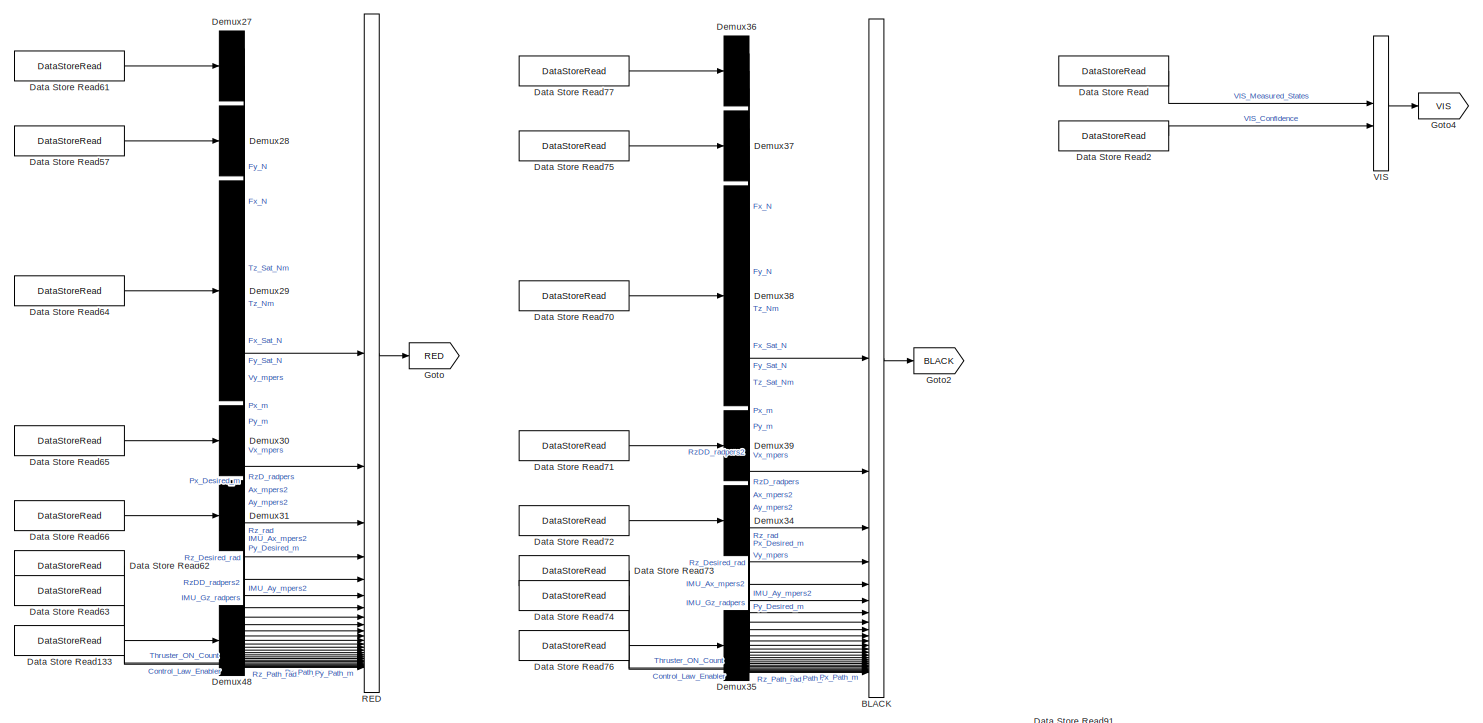
[diagram: Data Logger Subsystem/Jeremy - part 1/2, full width, top band]
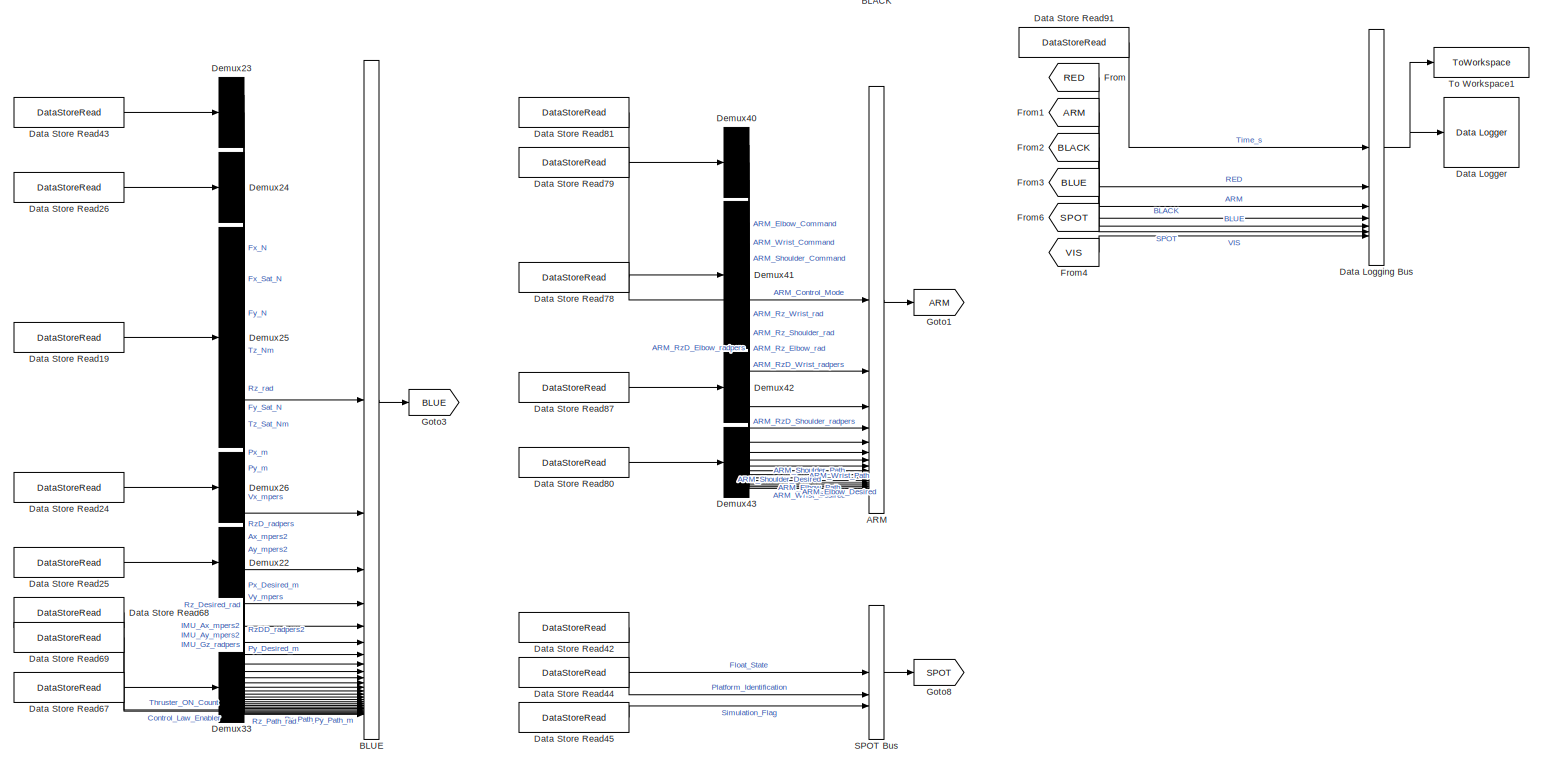
[diagram: Data Logger Subsystem/Jeremy - part 2/2, full width, bottom band]
BLOCK [SubSystem] Data Logger Subsystem/Jeremy
  Commented = on
BLOCK [BusCreator] Data Logger Subsystem/Jeremy/ARM
  DisplayOption = bar
  InheritFromInputs = on
  Inputs = 16
BLOCK [BusCreator] Data Logger Subsystem/Jeremy/BLACK
  DisplayOption = bar
  InheritFromInputs = on
  Inputs = 26
BLOCK [BusCreator] Data Logger Subsystem/Jeremy/BLUE
  DisplayOption = bar
  InheritFromInputs = on
  Inputs = 26
BLOCK [Reference] Data Logger Subsystem/Jeremy/Data Logger  REF=MainLibrary/Data Logger
  SourceBlock = MainLibrary/Data Logger
  SourceProductName = SPOT Custom Library
  SourceType = SubSystem
BLOCK [BusCreator] Data Logger Subsystem/Jeremy/Data Logging Bus
  DisplayOption = bar
  InheritFromInputs = on
  Inputs = 7
BLOCK [DataStoreRead] Data Logger Subsystem/Jeremy/Data Store Read
  DataStoreName = VIS_Measured_States
  IndexOptions = Index vector (dialog)
  Indices = 1
  OutputSizes = 1
BLOCK [DataStoreRead] Data Logger Subsystem/Jeremy/Data Store Read133
  DataStoreName = RED_Path
  IndexOptions = Index vector (dialog)
  Indices = 1
  OutputSizes = 1
BLOCK [DataStoreRead] Data Logger Subsystem/Jeremy/Data Store Read19
  DataStoreName = BLUE_Measured_States
  IndexOptions = Index vector (dialog)
  Indices = 1
  OutputSizes = 1
BLOCK [DataStoreRead] Data Logger Subsystem/Jeremy/Data Store Read2
  DataStoreName = VIS_Confidence
  IndexOptions = Index vector (dialog)
  Indices = 1
  OutputSizes = 1
BLOCK [DataStoreRead] Data Logger Subsystem/Jeremy/Data Store Read24
  DataStoreName = BLUE_Desired_States
  IndexOptions = Index vector (dialog)
  Indices = 1
  OutputSizes = 1
BLOCK [DataStoreRead] Data Logger Subsystem/Jeremy/Data Store Read25
  DataStoreName = BLUE_IMU_Measurements
  IndexOptions = Index vector (dialog)
  Indices = 1
  OutputSizes = 1
BLOCK [DataStoreRead] Data Logger Subsystem/Jeremy/Data Store Read26
  DataStoreName = BLUE_Saturated_Controls
  IndexOptions = Index vector (dialog)
  Indices = 1
  OutputSizes = 1
BLOCK [DataStoreRead] Data Logger Subsystem/Jeremy/Data Store Read42
  DataStoreName = Float_State
  IndexOptions = Index vector (dialog)
  Indices = 1
  OutputSizes = 1
BLOCK [DataStoreRead] Data Logger Subsystem/Jeremy/Data Store Read43
  DataStoreName = BLUE_Controls
  IndexOptions = Index vector (dialog)
  Indices = 1
  OutputSizes = 1
BLOCK [DataStoreRead] Data Logger Subsystem/Jeremy/Data Store Read44
  DataStoreName = WhoAmI
  IndexOptions = Index vector (dialog)
  Indices = 1
  OutputSizes = 1
BLOCK [DataStoreRead] Data Logger Subsystem/Jeremy/Data Store Read45
  DataStoreName = isSim
  IndexOptions = Index vector (dialog)
  Indices = 1
  OutputSizes = 1
BLOCK [DataStoreRead] Data Logger Subsystem/Jeremy/Data Store Read57
  DataStoreName = RED_Saturated_Controls
  IndexOptions = Index vector (dialog)
  Indices = 1
  OutputSizes = 1
BLOCK [DataStoreRead] Data Logger Subsystem/Jeremy/Data Store Read61
  DataStoreName = RED_Controls
  IndexOptions = Index vector (dialog)
  Indices = 1
  OutputSizes = 1
BLOCK [DataStoreRead] Data Logger Subsystem/Jeremy/Data Store Read62
  DataStoreName = RED_Thruster_ON_Count
  IndexOptions = Index vector (dialog)
  Indices = 1
  OutputSizes = 1
BLOCK [DataStoreRead] Data Logger Subsystem/Jeremy/Data Store Read63
  DataStoreName = RED_Control_Law_Enabler
  IndexOptions = Index vector (dialog)
  Indices = 1
  OutputSizes = 1
BLOCK [DataStoreRead] Data Logger Subsystem/Jeremy/Data Store Read64
  DataStoreName = RED_Measured_States
  IndexOptions = Index vector (dialog)
  Indices = 1
  OutputSizes = 1
BLOCK [DataStoreRead] Data Logger Subsystem/Jeremy/Data Store Read65
  DataStoreName = RED_Desired_States
  IndexOptions = Index vector (dialog)
  Indices = 1
  OutputSizes = 1
BLOCK [DataStoreRead] Data Logger Subsystem/Jeremy/Data Store Read66
  DataStoreName = RED_IMU_Measurements
  IndexOptions = Index vector (dialog)
  Indices = 1
  OutputSizes = 1
BLOCK [DataStoreRead] Data Logger Subsystem/Jeremy/Data Store Read67
  DataStoreName = BLUE_Path
  IndexOptions = Index vector (dialog)
  Indices = 1
  OutputSizes = 1
BLOCK [DataStoreRead] Data Logger Subsystem/Jeremy/Data Store Read68
  DataStoreName = BLUE_Thruster_ON_Count
  IndexOptions = Index vector (dialog)
  Indices = 1
  OutputSizes = 1
BLOCK [DataStoreRead] Data Logger Subsystem/Jeremy/Data Store Read69
  DataStoreName = BLUE_Control_Law_Enabler
  IndexOptions = Index vector (dialog)
  Indices = 1
  OutputSizes = 1
BLOCK [DataStoreRead] Data Logger Subsystem/Jeremy/Data Store Read70
  DataStoreName = BLACK_Measured_States
  IndexOptions = Index vector (dialog)
  Indices = 1
  OutputSizes = 1
BLOCK [DataStoreRead] Data Logger Subsystem/Jeremy/Data Store Read71
  DataStoreName = BLACK_Desired_States
  IndexOptions = Index vector (dialog)
  Indices = 1
  OutputSizes = 1
BLOCK [DataStoreRead] Data Logger Subsystem/Jeremy/Data Store Read72
  DataStoreName = BLACK_IMU_Measurements
  IndexOptions = Index vector (dialog)
  Indices = 1
  OutputSizes = 1
BLOCK [DataStoreRead] Data Logger Subsystem/Jeremy/Data Store Read73
  DataStoreName = BLACK_Thruster_ON_Count
  IndexOptions = Index vector (dialog)
  Indices = 1
  OutputSizes = 1
BLOCK [DataStoreRead] Data Logger Subsystem/Jeremy/Data Store Read74
  DataStoreName = BLACK_Control_Law_Enabler
  IndexOptions = Index vector (dialog)
  Indices = 1
  OutputSizes = 1
BLOCK [DataStoreRead] Data Logger Subsystem/Jeremy/Data Store Read75
  DataStoreName = BLACK_Saturated_Controls
  IndexOptions = Index vector (dialog)
  Indices = 1
  OutputSizes = 1
BLOCK [DataStoreRead] Data Logger Subsystem/Jeremy/Data Store Read76
  DataStoreName = BLACK_Path
  IndexOptions = Index vector (dialog)
  Indices = 1
  OutputSizes = 1
BLOCK [DataStoreRead] Data Logger Subsystem/Jeremy/Data Store Read77
  DataStoreName = BLACK_Controls
  IndexOptions = Index vector (dialog)
  Indices = 1
  OutputSizes = 1
BLOCK [DataStoreRead] Data Logger Subsystem/Jeremy/Data Store Read78
  DataStoreName = ARM_Measured_States
  IndexOptions = Index vector (dialog)
  Indices = 1
  OutputSizes = 1
BLOCK [DataStoreRead] Data Logger Subsystem/Jeremy/Data Store Read79
  DataStoreName = ARM_Controls
  IndexOptions = Index vector (dialog)
  Indices = 1
  OutputSizes = 1
BLOCK [DataStoreRead] Data Logger Subsystem/Jeremy/Data Store Read80
  DataStoreName = ARM_Desired_States
  IndexOptions = Index vector (dialog)
  Indices = 1
  OutputSizes = 1
BLOCK [DataStoreRead] Data Logger Subsystem/Jeremy/Data Store Read81
  DataStoreName = ARM_Control_Mode
  IndexOptions = Index vector (dialog)
  Indices = 1
  OutputSizes = 1
BLOCK [DataStoreRead] Data Logger Subsystem/Jeremy/Data Store Read87
  DataStoreName = ARM_Path
  IndexOptions = Index vector (dialog)
  Indices = 1
  OutputSizes = 1
BLOCK [DataStoreRead] Data Logger Subsystem/Jeremy/Data Store Read91
  DataStoreName = Univ_Time
  IndexOptions = Index vector (dialog)
  Indices = 1
  OutputSizes = 1
BLOCK [Demux] Data Logger Subsystem/Jeremy/Demux22
  Outputs = 3
BLOCK [Demux] Data Logger Subsystem/Jeremy/Demux23
  Outputs = 3
BLOCK [Demux] Data Logger Subsystem/Jeremy/Demux24
  Outputs = 3
BLOCK [Demux] Data Logger Subsystem/Jeremy/Demux25
  Outputs = 9
BLOCK [Demux] Data Logger Subsystem/Jeremy/Demux26
  Outputs = 3
BLOCK [Demux] Data Logger Subsystem/Jeremy/Demux27
  Outputs = 3
BLOCK [Demux] Data Logger Subsystem/Jeremy/Demux28
  Outputs = 3
BLOCK [Demux] Data Logger Subsystem/Jeremy/Demux29
  Outputs = 9
BLOCK [Demux] Data Logger Subsystem/Jeremy/Demux30
  Outputs = 3
BLOCK [Demux] Data Logger Subsystem/Jeremy/Demux31
  Outputs = 3
BLOCK [Demux] Data Logger Subsystem/Jeremy/Demux33
  Outputs = 3
BLOCK [Demux] Data Logger Subsystem/Jeremy/Demux34
  Outputs = 3
BLOCK [Demux] Data Logger Subsystem/Jeremy/Demux35
  Outputs = 3
BLOCK [Demux] Data Logger Subsystem/Jeremy/Demux36
  Outputs = 3
BLOCK [Demux] Data Logger Subsystem/Jeremy/Demux37
  Outputs = 3
BLOCK [Demux] Data Logger Subsystem/Jeremy/Demux38
  Outputs = 9
BLOCK [Demux] Data Logger Subsystem/Jeremy/Demux39
  Outputs = 3
BLOCK [Demux] Data Logger Subsystem/Jeremy/Demux40
  Outputs = 3
BLOCK [Demux] Data Logger Subsystem/Jeremy/Demux41
  Outputs = 6
BLOCK [Demux] Data Logger Subsystem/Jeremy/Demux42
  Outputs = 3
BLOCK [Demux] Data Logger Subsystem/Jeremy/Demux43
  Outputs = 3
BLOCK [Demux] Data Logger Subsystem/Jeremy/Demux48
  Outputs = 3
BLOCK [From] Data Logger Subsystem/Jeremy/From
  GotoTag = RED
BLOCK [From] Data Logger Subsystem/Jeremy/From1
  GotoTag = ARM
BLOCK [From] Data Logger Subsystem/Jeremy/From2
  GotoTag = BLACK
BLOCK [From] Data Logger Subsystem/Jeremy/From3
  GotoTag = BLUE
BLOCK [From] Data Logger Subsystem/Jeremy/From4
  GotoTag = VIS
BLOCK [From] Data Logger Subsystem/Jeremy/From6
  GotoTag = SPOT
BLOCK [Goto] Data Logger Subsystem/Jeremy/Goto
  GotoTag = RED
BLOCK [Goto] Data Logger Subsystem/Jeremy/Goto1
  GotoTag = ARM
BLOCK [Goto] Data Logger Subsystem/Jeremy/Goto2
  GotoTag = BLACK
BLOCK [Goto] Data Logger Subsystem/Jeremy/Goto3
  GotoTag = BLUE
BLOCK [Goto] Data Logger Subsystem/Jeremy/Goto4
  GotoTag = VIS
BLOCK [Goto] Data Logger Subsystem/Jeremy/Goto8
  GotoTag = SPOT
BLOCK [BusCreator] Data Logger Subsystem/Jeremy/RED
  DisplayOption = bar
  InheritFromInputs = on
  Inputs = 26
BLOCK [BusCreator] Data Logger Subsystem/Jeremy/SPOT Bus
  DisplayOption = bar
  InheritFromInputs = on
  Inputs = 3
BLOCK [ToWorkspace] Data Logger Subsystem/Jeremy/To Workspace1
  FixptAsFi = on
  MaxDataPoints = inf
  SampleTime = -1
  Save2DSignal = 2-D array (concatenate along first dimension)
  SaveFormat = Timeseries
  VariableName = dataPacket
BLOCK [BusCreator] Data Logger Subsystem/Jeremy/VIS
  DisplayOption = bar
  InheritFromInputs = on
  Inputs = 2
BLOCK [ToWorkspace] Data Logger Subsystem/To Workspace1
  FixptAsFi = on
  MaxDataPoints = inf
  SampleTime = -1
  Save2DSignal = 2-D array (concatenate along first dimension)
  SaveFormat = Timeseries
  VariableName = dataPacket
BLOCK [DataStoreRead] Data Store Read1
  DataStoreName = isSim
  IndexOptions = Index vector (dialog)
  Indices = 1
  OutputSizes = 1
BLOCK [SubSystem] Debugger
BLOCK [SubSystem] Debugger/Change BLACK Behavior
  NameLocation = right
  TreatAsAtomicUnit = on
BLOCK [ActionPort] Debugger/Change BLACK Behavior/Action Port
  ActionPortLabel = if(u1 == 2 & u2 == 0)
BLOCK [DataStoreRead] Debugger/Change BLACK Behavior/Data Store Read2
  DataStoreName = BLACK_Logger
  IndexOptions = Index vector (dialog)
  Indices = 1
  OutputSizes = 1
BLOCK [DataTypeConversion] Debugger/Change BLACK Behavior/Data Type Conversion1
  OutDataTypeStr = uint8
  RndMeth = Floor
  SaturateOnIntegerOverflow = off
BLOCK [StringToASCII] Debugger/Change BLACK Behavior/String to ASCII1
BLOCK [Reference] Debugger/Change BLACK Behavior/UDP Send1  REF=nvidiaSharedBlocks/UDP Send
  LibrarySourceBlock = nvidiaNetworklib/UDP Send
  SourceBlock = nvidiaSharedBlocks/UDP Send
  SourceType = UDP Send
BLOCK [SubSystem] Debugger/Change BLUE Behavior
  NameLocation = right
  TreatAsAtomicUnit = on
BLOCK [ActionPort] Debugger/Change BLUE Behavior/Action Port
  ActionPortLabel = if(u1 == 3 & u2 == 0)
BLOCK [DataStoreRead] Debugger/Change BLUE Behavior/Data Store Read
  DataStoreName = BLUE_Logger
  IndexOptions = Index vector (dialog)
  Indices = 1
  OutputSizes = 1
BLOCK [DataTypeConversion] Debugger/Change BLUE Behavior/Data Type Conversion2
  OutDataTypeStr = uint8
  RndMeth = Floor
  SaturateOnIntegerOverflow = off
BLOCK [StringToASCII] Debugger/Change BLUE Behavior/String to ASCII2
BLOCK [Reference] Debugger/Change BLUE Behavior/UDP Send2  REF=nvidiaSharedBlocks/UDP Send
  LibrarySourceBlock = nvidiaNetworklib/UDP Send
  SourceBlock = nvidiaSharedBlocks/UDP Send
  SourceType = UDP Send
BLOCK [SubSystem] Debugger/Change RED Behavior
  NameLocation = right
  TreatAsAtomicUnit = on
BLOCK [ActionPort] Debugger/Change RED Behavior/Action Port
  ActionPortLabel = if(u1 == 1 & u2 == 0)
BLOCK [DataStoreRead] Debugger/Change RED Behavior/Data Store Read
  DataStoreName = RED_Logger
  IndexOptions = Index vector (dialog)
  Indices = 1
  OutputSizes = 1
BLOCK [DataTypeConversion] Debugger/Change RED Behavior/Data Type Conversion
  OutDataTypeStr = uint8
  RndMeth = Floor
  SaturateOnIntegerOverflow = off
BLOCK [StringToASCII] Debugger/Change RED Behavior/String to ASCII
BLOCK [Reference] Debugger/Change RED Behavior/UDP Send3  REF=nvidiaSharedBlocks/UDP Send
  LibrarySourceBlock = nvidiaNetworklib/UDP Send
  SourceBlock = nvidiaSharedBlocks/UDP Send
  SourceType = UDP Send
BLOCK [DataStoreRead] Debugger/Data Store Read
  DataStoreName = WhoAmI
  IndexOptions = Index vector (dialog)
  Indices = 1
  OutputSizes = 1
BLOCK [DataStoreRead] Debugger/Data Store Read1
  DataStoreName = isSim
  IndexOptions = Index vector (dialog)
  Indices = 1
  OutputSizes = 1
BLOCK [If] Debugger/This IF block determines whether or not to run the BLACK sim//exp
  IfExpression = u1 == 2 & u2 == 0
  NumInputs = 2
  ShowElse = off
BLOCK [If] Debugger/This IF block determines whether or not to run the BLUE sim//exp
  IfExpression = u1 == 3 & u2 == 0
  NumInputs = 2
  ShowElse = off
BLOCK [If] Debugger/This IF block determines whether or not to run the RED sim//exp 
  IfExpression = u1 == 1 & u2 == 0
  NumInputs = 2
  ShowElse = off
BLOCK [SubSystem] Float Code
BLOCK [DataStoreRead] Float Code/Data Store Read
  DataStoreName = isSim
  IndexOptions = Index vector (dialog)
  Indices = 1
  OutputSizes = 1
BLOCK [SubSystem] Float Code/Enable Pucks
  NameLocation = right
  TreatAsAtomicUnit = on
BLOCK [ActionPort] Float Code/Enable Pucks/Action Port
  ActionPortLabel = if(u1 == 0)
BLOCK [DataStoreRead] Float Code/Enable Pucks/Data Store Read1
  DataStoreName = Float_State
  IndexOptions = Index vector (dialog)
  Indices = 1
  OutputSizes = 1
BLOCK [Reference] Float Code/Enable Pucks/GPIO Write1  REF=MainLibrary/Jetson Functions/GPIO Write
  SourceBlock = MainLibrary/Jetson Functions/GPIO Write
  SourceProductName = SPOT Custom Library
  SourceType = GPIO_Write
BLOCK [If] Float Code/This IF block determines whether or not to run the exp code
  IfExpression = u1 == 0
  ShowElse = off
BLOCK [SubSystem] Gyro.//Accel. Code
BLOCK [DataStoreRead] Gyro.//Accel. Code/Data Store Read1
  DataStoreName = isSim
  IndexOptions = Index vector (dialog)
  Indices = 1
  OutputSizes = 1
BLOCK [SubSystem] Gyro.//Accel. Code/Log Gyro//Accel
  NameLocation = right
  TreatAsAtomicUnit = on
BLOCK [ActionPort] Gyro.//Accel. Code/Log Gyro//Accel/Action Port
  ActionPortLabel = if(u1 == 0)
BLOCK [DataStoreRead] Gyro.//Accel. Code/Log Gyro//Accel/Data Store Read
  DataStoreName = WhoAmI
  IndexOptions = Index vector (dialog)
  Indices = 1
  OutputSizes = 1
BLOCK [DataStoreWrite] Gyro.//Accel. Code/Log Gyro//Accel/Data Store Write10
  DataStoreName = BLACK_IMU_Measurements
  IndexOptions = Index vector (dialog)
  Indices = 1
  OutputSizes = 1
BLOCK [DataStoreWrite] Gyro.//Accel. Code/Log Gyro//Accel/Data Store Write11
  DataStoreName = BLUE_IMU_Measurements
  IndexOptions = Index vector (dialog)
  Indices = 1
  OutputSizes = 1
BLOCK [DataStoreWrite] Gyro.//Accel. Code/Log Gyro//Accel/Data Store Write9
  DataStoreName = RED_IMU_Measurements
  IndexOptions = Index vector (dialog)
  Indices = 1
  OutputSizes = 1
BLOCK [Demux] Gyro.//Accel. Code/Log Gyro//Accel/Demux
  Outputs = 3
BLOCK [Demux] Gyro.//Accel. Code/Log Gyro//Accel/Demux1
  Outputs = 3
BLOCK [Reference] Gyro.//Accel. Code/Log Gyro//Accel/Gyroscope//Accelerometer  REF=nvidiaIMUSensorslib/BMI160
  SourceBlock = nvidiaIMUSensorslib/BMI160
  SourceType = nvidiacoder.sensors.BMI160Block
BLOCK [Mux] Gyro.//Accel. Code/Log Gyro//Accel/Mux
  DisplayOption = bar
  Inputs = 3
BLOCK [Mux] Gyro.//Accel. Code/Log Gyro//Accel/Mux1
  DisplayOption = bar
  Inputs = 3
BLOCK [Mux] Gyro.//Accel. Code/Log Gyro//Accel/Mux2
  DisplayOption = bar
  Inputs = 3
BLOCK [SubSystem] Gyro.//Accel. Code/Log Gyro//Accel/Parse IMU Data
  ErrorFcn = Stateflow.Translate.translate
  PermitHierarchicalResolution = ExplicitOnly
  SFBlockType = MATLAB Function
  TreatAsAtomicUnit = on
BLOCK [Demux] Gyro.//Accel. Code/Log Gyro//Accel/Parse IMU Data/ Demux 
  Outputs = 1
BLOCK [S-Function] Gyro.//Accel. Code/Log Gyro//Accel/Parse IMU Data/ SFunction 
  EnableBusSupport = on
  FunctionName = sf_sfun
  PortCounts = [4 10]
  SFcnIsStateOwnerBlock = off
  SFunctionDeploymentMode = off
  Tag = Stateflow S-Function 23
BLOCK [Terminator] Gyro.//Accel. Code/Log Gyro//Accel/Parse IMU Data/ Terminator 
BLOCK [Outport] Gyro.//Accel. Code/Log Gyro//Accel/Parse IMU Data/BLACK_IMU_Ax
  Port = 4
BLOCK [Outport] Gyro.//Accel. Code/Log Gyro//Accel/Parse IMU Data/BLACK_IMU_Ay
  Port = 5
BLOCK [Outport] Gyro.//Accel. Code/Log Gyro//Accel/Parse IMU Data/BLACK_IMU_Gz
  Port = 6
BLOCK [Outport] Gyro.//Accel. Code/Log Gyro//Accel/Parse IMU Data/BLUE_IMU_Ax
  Port = 7
BLOCK [Outport] Gyro.//Accel. Code/Log Gyro//Accel/Parse IMU Data/BLUE_IMU_Ay
  Port = 8
BLOCK [Outport] Gyro.//Accel. Code/Log Gyro//Accel/Parse IMU Data/BLUE_IMU_Gz
  Port = 9
BLOCK [Inport] Gyro.//Accel. Code/Log Gyro//Accel/Parse IMU Data/IMU_Ax
  Port = 2
BLOCK [Inport] Gyro.//Accel. Code/Log Gyro//Accel/Parse IMU Data/IMU_Ay
  Port = 3
BLOCK [Inport] Gyro.//Accel. Code/Log Gyro//Accel/Parse IMU Data/IMU_Gz
  Port = 4
BLOCK [Outport] Gyro.//Accel. Code/Log Gyro//Accel/Parse IMU Data/RED_IMU_Ax
BLOCK [Outport] Gyro.//Accel. Code/Log Gyro//Accel/Parse IMU Data/RED_IMU_Ay
  Port = 2
BLOCK [Outport] Gyro.//Accel. Code/Log Gyro//Accel/Parse IMU Data/RED_IMU_Gz
  Port = 3
BLOCK [Inport] Gyro.//Accel. Code/Log Gyro//Accel/Parse IMU Data/WhoAmI
BLOCK [Terminator] Gyro.//Accel. Code/Log Gyro//Accel/Terminator
BLOCK [Terminator] Gyro.//Accel. Code/Log Gyro//Accel/Terminator1
BLOCK [Terminator] Gyro.//Accel. Code/Log Gyro//Accel/Terminator2
BLOCK [If] Gyro.//Accel. Code/This IF block determines whether or not to run the exp code
  IfExpression = u1 == 0
  ShowElse = off
BLOCK [If] If 'simMode' set to '1', then this is a simulation and the dynamics will be simulated. Otherwise, this is an experiment, and the simulation will not be run.
  IfExpression = u1 == 1
  ShowElse = off
BLOCK [SubSystem] Manipulator Encoder Data
BLOCK [SubSystem] Manipulator Encoder Data/Change ARM Behavior
  NameLocation = right
  TreatAsAtomicUnit = on
BLOCK [ActionPort] Manipulator Encoder Data/Change ARM Behavior/Action Port
  ActionPortLabel = if(u1 == 1 & u2 == 0)
BLOCK [DataStoreWrite] Manipulator Encoder Data/Change ARM Behavior/Data Store Write
  DataStoreName = ARM_Measured_States
  IndexOptions = Index vector (dialog)
  Indices = 1
  OutputSizes = 1
BLOCK [Delay] Manipulator Encoder Data/Change ARM Behavior/Delay
  DelayLength = 1
  InputPortMap = u0
BLOCK [Delay] Manipulator Encoder Data/Change ARM Behavior/Delay1
  DelayLength = 1
  InputPortMap = u0
BLOCK [Delay] Manipulator Encoder Data/Change ARM Behavior/Delay2
  DelayLength = 1
  InputPortMap = u0
BLOCK [Mux] Manipulator Encoder Data/Change ARM Behavior/Mux
  DisplayOption = bar
  Inputs = 6
BLOCK [Reference] Manipulator Encoder Data/Change ARM Behavior/Read Joint Positions using Dynamixel Encoders  REF=MainLibrary/Dynamixel Functions/Read Joint Positions using 
Dynamixel Encoders
  SourceBlock = MainLibrary/Dynamixel Functions/Read Joint Positions using \nDynamixel Encoders
  SourceProductName = SPOT Custom Library
  SourceType = ReadArm_Position_Rates
BLOCK [DataStoreRead] Manipulator Encoder Data/Data Store Read1
  DataStoreName = WhoAmI
  IndexOptions = Index vector (dialog)
  Indices = 1
  OutputSizes = 1
BLOCK [DataStoreRead] Manipulator Encoder Data/Data Store Read2
  DataStoreName = isSim
  IndexOptions = Index vector (dialog)
  Indices = 1
  OutputSizes = 1
BLOCK [If] Manipulator Encoder Data/This IF block determines whether or not to run the RED sim//exp 
  IfExpression = u1 == 1 & u2 == 0
  NumInputs = 2
  ShowElse = off
BLOCK [SubSystem] PhaseSpace Camera Code
BLOCK [DataStoreRead] PhaseSpace Camera Code/Data Store Read2
  DataStoreName = isSim
  IndexOptions = Index vector (dialog)
  Indices = 1
  OutputSizes = 1
BLOCK [If] PhaseSpace Camera Code/If performing an experiment, grab the PhaseSpace data. Otherwise, use a clock to set time in SIM.
  ElseIfExpressions = u1 == 1
  IfExpression = u1 == 0
  ShowElse = off
BLOCK [SubSystem] PhaseSpace Camera Code/Initialize Universal Time (Simulation)
  TreatAsAtomicUnit = on
BLOCK [ActionPort] PhaseSpace Camera Code/Initialize Universal Time (Simulation)/Action Port
  ActionPortLabel = elseif(u1 == 1)
BLOCK [Clock] PhaseSpace Camera Code/Initialize Universal Time (Simulation)/Set Universal Time (If this is a simulation)
  Decimation = 1
BLOCK [DataStoreWrite] PhaseSpace Camera Code/Initialize Universal Time (Simulation)/Universal_Time
  DataStoreName = Univ_Time
  IndexOptions = Index vector (dialog)
  Indices = 1
  OutputSizes = 1
BLOCK [SubSystem] PhaseSpace Camera Code/Use Hardware to Obtain States
  NameLocation = top
  TreatAsAtomicUnit = on
BLOCK [ActionPort] PhaseSpace Camera Code/Use Hardware to Obtain States/Action Port
  ActionPortLabel = if(u1 == 0)
BLOCK [Demux] PhaseSpace Camera Code/Use Hardware to Obtain States/Demux
  Outputs = [4,3,3,9]
BLOCK [Demux] PhaseSpace Camera Code/Use Hardware to Obtain States/Demux1
  Outputs = [3,3,3]
BLOCK [SubSystem] PhaseSpace Camera Code/Use Hardware to Obtain States/Receive and Process Phasespace Data
BLOCK [SubSystem] PhaseSpace Camera Code/Use Hardware to Obtain States/Receive and Process Phasespace Data/Check for Sychronization (Updated)
BLOCK [Outport] PhaseSpace Camera Code/Use Hardware to Obtain States/Receive and Process Phasespace Data/Check for Sychronization (Updated)/ClockAdjusted
BLOCK [Constant] PhaseSpace Camera Code/Use Hardware to Obtain States/Receive and Process Phasespace Data/Check for Sychronization (Updated)/Constant
BLOCK [SubSystem] PhaseSpace Camera Code/Use Hardware to Obtain States/Receive and Process Phasespace Data/Check for Sychronization (Updated)/Enabled Subsystem2
  TreatAsAtomicUnit = on
BLOCK [EnablePort] PhaseSpace Camera Code/Use Hardware to Obtain States/Receive and Process Phasespace Data/Check for Sychronization (Updated)/Enabled Subsystem2/Enable
BLOCK [Inport] PhaseSpace Camera Code/Use Hardware to Obtain States/Receive and Process Phasespace Data/Check for Sychronization (Updated)/Enabled Subsystem2/In1
BLOCK [Outport] PhaseSpace Camera Code/Use Hardware to Obtain States/Receive and Process Phasespace Data/Check for Sychronization (Updated)/Enabled Subsystem2/Universal Time
BLOCK [SubSystem] PhaseSpace Camera Code/Use Hardware to Obtain States/Receive and Process Phasespace Data/Check for Sychronization (Updated)/MATLAB Function
  ErrorFcn = Stateflow.Translate.translate
  LibrarySourceBlock = simulink/User-Defined\nFunctions/MATLAB Function
  PermitHierarchicalResolution = ExplicitOnly
  SFBlockType = MATLAB Function
  TreatAsAtomicUnit = on
BLOCK [Demux] PhaseSpace Camera Code/Use Hardware to Obtain States/Receive and Process Phasespace Data/Check for Sychronization (Updated)/MATLAB Function/ Demux 
  Outputs = 1
BLOCK [S-Function] PhaseSpace Camera Code/Use Hardware to Obtain States/Receive and Process Phasespace Data/Check for Sychronization (Updated)/MATLAB Function/ SFunction 
  EnableBusSupport = on
  FunctionName = sf_sfun
  Parameters = platformSelection
  PortCounts = [3 2]
  SFcnIsStateOwnerBlock = off
  SFunctionDeploymentMode = off
  Tag = Stateflow S-Function 36
BLOCK [Terminator] PhaseSpace Camera Code/Use Hardware to Obtain States/Receive and Process Phasespace Data/Check for Sychronization (Updated)/MATLAB Function/ Terminator 
BLOCK [Inport] PhaseSpace Camera Code/Use Hardware to Obtain States/Receive and Process Phasespace Data/Check for Sychronization (Updated)/MATLAB Function/BlackReceiving
  Port = 2
BLOCK [Inport] PhaseSpace Camera Code/Use Hardware to Obtain States/Receive and Process Phasespace Data/Check for Sychronization (Updated)/MATLAB Function/BlueReceiving
  Port = 3
BLOCK [Inport] PhaseSpace Camera Code/Use Hardware to Obtain States/Receive and Process Phasespace Data/Check for Sychronization (Updated)/MATLAB Function/RedReceiving
BLOCK [Outport] PhaseSpace Camera Code/Use Hardware to Obtain States/Receive and Process Phasespace Data/Check for Sychronization (Updated)/MATLAB Function/StartClock
BLOCK [SubSystem] PhaseSpace Camera Code/Use Hardware to Obtain States/Receive and Process Phasespace Data/Check for Sychronization (Updated)/MATLAB Function1
  ErrorFcn = Stateflow.Translate.translate
  PermitHierarchicalResolution = ExplicitOnly
  SFBlockType = MATLAB Function
  TreatAsAtomicUnit = on
BLOCK [Demux] PhaseSpace Camera Code/Use Hardware to Obtain States/Receive and Process Phasespace Data/Check for Sychronization (Updated)/MATLAB Function1/ Demux 
  Outputs = 1
BLOCK [S-Function] PhaseSpace Camera Code/Use Hardware to Obtain States/Receive and Process Phasespace Data/Check for Sychronization (Updated)/MATLAB Function1/ SFunction 
  EnableBusSupport = on
  FunctionName = sf_sfun
  PortCounts = [3 2]
  SFcnIsStateOwnerBlock = off
  SFunctionDeploymentMode = off
  Tag = Stateflow S-Function 37
BLOCK [Terminator] PhaseSpace Camera Code/Use Hardware to Obtain States/Receive and Process Phasespace Data/Check for Sychronization (Updated)/MATLAB Function1/ Terminator 
BLOCK [Inport] PhaseSpace Camera Code/Use Hardware to Obtain States/Receive and Process Phasespace Data/Check for Sychronization (Updated)/MATLAB Function1/t1
BLOCK [Inport] PhaseSpace Camera Code/Use Hardware to Obtain States/Receive and Process Phasespace Data/Check for Sychronization (Updated)/MATLAB Function1/t2
  Port = 2
BLOCK [Inport] PhaseSpace Camera Code/Use Hardware to Obtain States/Receive and Process Phasespace Data/Check for Sychronization (Updated)/MATLAB Function1/t3
  Port = 3
BLOCK [Outport] PhaseSpace Camera Code/Use Hardware to Obtain States/Receive and Process Phasespace Data/Check for Sychronization (Updated)/MATLAB Function1/t_min
BLOCK [RelationalOperator] PhaseSpace Camera Code/Use Hardware to Obtain States/Receive and Process Phasespace Data/Check for Sychronization (Updated)/Relational Operator
  InputSameDT = off
  Operator = ==
  OutDataTypeStr = boolean
  RndMeth = Simplest
BLOCK [SubSystem] PhaseSpace Camera Code/Use Hardware to Obtain States/Receive and Process Phasespace Data/Check for Sychronization (Updated)/Send Sync. Time
BLOCK [SubSystem] PhaseSpace Camera Code/Use Hardware to Obtain States/Receive and Process Phasespace Data/Check for Sychronization (Updated)/Send Sync. Time/Change BLACK Behavior
  NameLocation = right
  TreatAsAtomicUnit = on
BLOCK [ActionPort] PhaseSpace Camera Code/Use Hardware to Obtain States/Receive and Process Phasespace Data/Check for Sychronization (Updated)/Send Sync. Time/Change BLACK Behavior/Action Port
  ActionPortLabel = if(u1 == 2 & u2 == 0)
BLOCK [Reference] PhaseSpace Camera Code/Use Hardware to Obtain States/Receive and Process Phasespace Data/Check for Sychronization (Updated)/Send Sync. Time/Change BLACK Behavior/UDP Send (GUI)  REF=nvidiaSharedBlocks/UDP Send
  LibrarySourceBlock = nvidiaNetworklib/UDP Send
  SourceBlock = nvidiaSharedBlocks/UDP Send
  SourceType = UDP Send
BLOCK [Inport] PhaseSpace Camera Code/Use Hardware to Obtain States/Receive and Process Phasespace Data/Check for Sychronization (Updated)/Send Sync. Time/Change BLACK Behavior/Universal Time
BLOCK [SubSystem] PhaseSpace Camera Code/Use Hardware to Obtain States/Receive and Process Phasespace Data/Check for Sychronization (Updated)/Send Sync. Time/Change BLUE Behavior
  NameLocation = right
  TreatAsAtomicUnit = on
BLOCK [ActionPort] PhaseSpace Camera Code/Use Hardware to Obtain States/Receive and Process Phasespace Data/Check for Sychronization (Updated)/Send Sync. Time/Change BLUE Behavior/Action Port
  ActionPortLabel = if(u1 == 3 & u2 == 0)
BLOCK [Reference] PhaseSpace Camera Code/Use Hardware to Obtain States/Receive and Process Phasespace Data/Check for Sychronization (Updated)/Send Sync. Time/Change BLUE Behavior/UDP Send (GUI)  REF=nvidiaSharedBlocks/UDP Send
  LibrarySourceBlock = nvidiaNetworklib/UDP Send
  SourceBlock = nvidiaSharedBlocks/UDP Send
  SourceType = UDP Send
BLOCK [Inport] PhaseSpace Camera Code/Use Hardware to Obtain States/Receive and Process Phasespace Data/Check for Sychronization (Updated)/Send Sync. Time/Change BLUE Behavior/Universal Time
BLOCK [SubSystem] PhaseSpace Camera Code/Use Hardware to Obtain States/Receive and Process Phasespace Data/Check for Sychronization (Updated)/Send Sync. Time/Change RED Behavior
  NameLocation = right
  TreatAsAtomicUnit = on
BLOCK [ActionPort] PhaseSpace Camera Code/Use Hardware to Obtain States/Receive and Process Phasespace Data/Check for Sychronization (Updated)/Send Sync. Time/Change RED Behavior/Action Port
  ActionPortLabel = if(u1 == 1 & u2 == 0)
BLOCK [Reference] PhaseSpace Camera Code/Use Hardware to Obtain States/Receive and Process Phasespace Data/Check for Sychronization (Updated)/Send Sync. Time/Change RED Behavior/UDP Send (GUI)  REF=nvidiaSharedBlocks/UDP Send
  LibrarySourceBlock = nvidiaNetworklib/UDP Send
  SourceBlock = nvidiaSharedBlocks/UDP Send
  SourceType = UDP Send
BLOCK [Inport] PhaseSpace Camera Code/Use Hardware to Obtain States/Receive and Process Phasespace Data/Check for Sychronization (Updated)/Send Sync. Time/Change RED Behavior/Universal Time
BLOCK [DataStoreRead] PhaseSpace Camera Code/Use Hardware to Obtain States/Receive and Process Phasespace Data/Check for Sychronization (Updated)/Send Sync. Time/Data Store Read
  DataStoreName = WhoAmI
  IndexOptions = Index vector (dialog)
  Indices = 1
  OutputSizes = 1
BLOCK [DataStoreRead] PhaseSpace Camera Code/Use Hardware to Obtain States/Receive and Process Phasespace Data/Check for Sychronization (Updated)/Send Sync. Time/Data Store Read2
  DataStoreName = isSim
  IndexOptions = Index vector (dialog)
  Indices = 1
  OutputSizes = 1
BLOCK [If] PhaseSpace Camera Code/Use Hardware to Obtain States/Receive and Process Phasespace Data/Check for Sychronization (Updated)/Send Sync. Time/This IF block determines whether or not to run the BLACK sim//exp
  IfExpression = u1 == 2 & u2 == 0
  NumInputs = 2
  ShowElse = off
BLOCK [If] PhaseSpace Camera Code/Use Hardware to Obtain States/Receive and Process Phasespace Data/Check for Sychronization (Updated)/Send Sync. Time/This IF block determines whether or not to run the BLUE sim//exp
  IfExpression = u1 == 3 & u2 == 0
  NumInputs = 2
  ShowElse = off
BLOCK [If] PhaseSpace Camera Code/Use Hardware to Obtain States/Receive and Process Phasespace Data/Check for Sychronization (Updated)/Send Sync. Time/This IF block determines whether or not to run the RED sim//exp 
  IfExpression = u1 == 1 & u2 == 0
  NumInputs = 2
  ShowElse = off
BLOCK [Inport] PhaseSpace Camera Code/Use Hardware to Obtain States/Receive and Process Phasespace Data/Check for Sychronization (Updated)/Send Sync. Time/Universal Time
BLOCK [Terminator] PhaseSpace Camera Code/Use Hardware to Obtain States/Receive and Process Phasespace Data/Check for Sychronization (Updated)/Terminator1
BLOCK [Terminator] PhaseSpace Camera Code/Use Hardware to Obtain States/Receive and Process Phasespace Data/Check for Sychronization (Updated)/Terminator2
BLOCK [Terminator] PhaseSpace Camera Code/Use Hardware to Obtain States/Receive and Process Phasespace Data/Check for Sychronization (Updated)/Terminator3
BLOCK [Reference] PhaseSpace Camera Code/Use Hardware to Obtain States/Receive and Process Phasespace Data/Check for Sychronization (Updated)/UDP Receive (BLACK Clock)  REF=nvidiaSharedBlocks/UDP Receive
  LibrarySourceBlock = nvidiaNetworklib/UDP Receive
  SourceBlock = nvidiaSharedBlocks/UDP Receive
  SourceType = UDP Receive
BLOCK [Reference] PhaseSpace Camera Code/Use Hardware to Obtain States/Receive and Process Phasespace Data/Check for Sychronization (Updated)/UDP Receive (BLUE Clock)  REF=nvidiaSharedBlocks/UDP Receive
  LibrarySourceBlock = nvidiaNetworklib/UDP Receive
  SourceBlock = nvidiaSharedBlocks/UDP Receive
  SourceType = UDP Receive
BLOCK [Reference] PhaseSpace Camera Code/Use Hardware to Obtain States/Receive and Process Phasespace Data/Check for Sychronization (Updated)/UDP Receive (RED Clock)  REF=nvidiaSharedBlocks/UDP Receive
  LibrarySourceBlock = nvidiaNetworklib/UDP Receive
  SourceBlock = nvidiaSharedBlocks/UDP Receive
  SourceType = UDP Receive
BLOCK [Demux] PhaseSpace Camera Code/Use Hardware to Obtain States/Receive and Process Phasespace Data/Demux2
  Outputs = [1,18]
BLOCK [Mux] PhaseSpace Camera Code/Use Hardware to Obtain States/Receive and Process Phasespace Data/Mux
  DisplayOption = bar
  Inputs = 2
BLOCK [Outport] PhaseSpace Camera Code/Use Hardware to Obtain States/Receive and Process Phasespace Data/PhaseSpace Clock
  Port = 2
BLOCK [Outport] PhaseSpace Camera Code/Use Hardware to Obtain States/Receive and Process Phasespace Data/PhaseSpace Data
BLOCK [Reference] PhaseSpace Camera Code/Use Hardware to Obtain States/Receive and Process Phasespace Data/Receive PhaseSpace Data  REF=nvidiaSharedBlocks/UDP Receive
  SourceBlock = nvidiaSharedBlocks/UDP Receive
  SourceType = UDP Receive
BLOCK [Reshape] PhaseSpace Camera Code/Use Hardware to Obtain States/Receive and Process Phasespace Data/Reshape
  OutputDimensionality = Customize
  OutputDimensions = [19,1]
BLOCK [Terminator] PhaseSpace Camera Code/Use Hardware to Obtain States/Receive and Process Phasespace Data/Terminator
BLOCK [SubSystem] PhaseSpace Camera Code/Use Hardware to Obtain States/Store BLACK Data
BLOCK [Inport] PhaseSpace Camera Code/Use Hardware to Obtain States/Store BLACK Data/BLACK Data
BLOCK [Inport] PhaseSpace Camera Code/Use Hardware to Obtain States/Store BLACK Data/BLACK Velocities
  Port = 2
BLOCK [SubSystem] PhaseSpace Camera Code/Use Hardware to Obtain States/Store BLACK Data/Calculate True Time Step
  NameLocation = top
  PortSchema = {"entries":[{"content":{"sides":[{"content":{"connectorIds":["In1"]},"type":"ConnectorPlacement.EquallySpacedRectSide","uuid":"62932c5c-f2a7-44c8-96b4-4a75bab3a126"},{"content":{"connectorIds":["Out1"],"side":"RIGHT"},"type":"ConnectorPlacement.EquallySpacedRectSide","uuid":"82b3b717-2171-4047-b0df-3cd41cf9dfc7"},{"content":{"side":"TOP"},"type":"ConnectorPlacement.EquallySpacedRectSide","uuid":"a...<+371ch>  <repeated x3 — deduplicated; at blocks: Calculate True Time Step>
BLOCK [Constant] PhaseSpace Camera Code/Use Hardware to Obtain States/Store BLACK Data/Calculate True Time Step/Constant
  Value = dataRate
BLOCK [Constant] PhaseSpace Camera Code/Use Hardware to Obtain States/Store BLACK Data/Calculate True Time Step/Constant3
  Value = 0
BLOCK [Inport] PhaseSpace Camera Code/Use Hardware to Obtain States/Store BLACK Data/Calculate True Time Step/Data
  Port = 2
BLOCK [Delay] PhaseSpace Camera Code/Use Hardware to Obtain States/Store BLACK Data/Calculate True Time Step/Delay1
  DelayLength = 1
  InitialCondition = 0
  InputPortMap = u0
BLOCK [Delay] PhaseSpace Camera Code/Use Hardware to Obtain States/Store BLACK Data/Calculate True Time Step/Delay2
  DelayLength = 1
  InitialCondition = 0
  InputPortMap = u0
BLOCK [Demux] PhaseSpace Camera Code/Use Hardware to Obtain States/Store BLACK Data/Calculate True Time Step/Demux
  Outputs = 3
BLOCK [SubSystem] PhaseSpace Camera Code/Use Hardware to Obtain States/Store BLACK Data/Calculate True Time Step/Enabled Subsystem3
  TreatAsAtomicUnit = on
BLOCK [EnablePort] PhaseSpace Camera Code/Use Hardware to Obtain States/Store BLACK Data/Calculate True Time Step/Enabled Subsystem3/Enable
BLOCK [Outport] PhaseSpace Camera Code/Use Hardware to Obtain States/Store BLACK Data/Calculate True Time Step/Enabled Subsystem3/dy(t)//dt
BLOCK [Inport] PhaseSpace Camera Code/Use Hardware to Obtain States/Store BLACK Data/Calculate True Time Step/Enabled Subsystem3/y2-y1
BLOCK [SubSystem] PhaseSpace Camera Code/Use Hardware to Obtain States/Store BLACK Data/Calculate True Time Step/MATLAB Function
  ErrorFcn = Stateflow.Translate.translate
  PermitHierarchicalResolution = ExplicitOnly
  SFBlockType = MATLAB Function
  TreatAsAtomicUnit = on
BLOCK [Demux] PhaseSpace Camera Code/Use Hardware to Obtain States/Store BLACK Data/Calculate True Time Step/MATLAB Function/ Demux 
  Outputs = 1
BLOCK [S-Function] PhaseSpace Camera Code/Use Hardware to Obtain States/Store BLACK Data/Calculate True Time Step/MATLAB Function/ SFunction 
  EnableBusSupport = on
  FunctionName = sf_sfun
  PortCounts = [2 2]
  SFcnIsStateOwnerBlock = off
  SFunctionDeploymentMode = off
  Tag = Stateflow S-Function 28
BLOCK [Terminator] PhaseSpace Camera Code/Use Hardware to Obtain States/Store BLACK Data/Calculate True Time Step/MATLAB Function/ Terminator 
BLOCK [Inport] PhaseSpace Camera Code/Use Hardware to Obtain States/Store BLACK Data/Calculate True Time Step/MATLAB Function/dataRate
  Port = 2
BLOCK [Inport] PhaseSpace Camera Code/Use Hardware to Obtain States/Store BLACK Data/Calculate True Time Step/MATLAB Function/dt
BLOCK [Outport] PhaseSpace Camera Code/Use Hardware to Obtain States/Store BLACK Data/Calculate True Time Step/MATLAB Function/dt_out
BLOCK [RelationalOperator] PhaseSpace Camera Code/Use Hardware to Obtain States/Store BLACK Data/Calculate True Time Step/Relational Operator
  InputSameDT = off
  Operator = ~=
  OutDataTypeStr = boolean
  RndMeth = Simplest
BLOCK [Sum] PhaseSpace Camera Code/Use Hardware to Obtain States/Store BLACK Data/Calculate True Time Step/Subtract1
  IconShape = rectangular
  Inputs = +-
BLOCK [Sum] PhaseSpace Camera Code/Use Hardware to Obtain States/Store BLACK Data/Calculate True Time Step/Subtract2
  IconShape = rectangular
  Inputs = +-
BLOCK [Terminator] PhaseSpace Camera Code/Use Hardware to Obtain States/Store BLACK Data/Calculate True Time Step/Terminator
BLOCK [Terminator] PhaseSpace Camera Code/Use Hardware to Obtain States/Store BLACK Data/Calculate True Time Step/Terminator1
BLOCK [Inport] PhaseSpace Camera Code/Use Hardware to Obtain States/Store BLACK Data/Calculate True Time Step/Time
BLOCK [Outport] PhaseSpace Camera Code/Use Hardware to Obtain States/Store BLACK Data/Calculate True Time Step/dt_out
BLOCK [Gain] PhaseSpace Camera Code/Use Hardware to Obtain States/Store BLACK Data/Convert BLACKVX from [mm] to [m]
  Gain = 1/1000
BLOCK [Gain] PhaseSpace Camera Code/Use Hardware to Obtain States/Store BLACK Data/Convert BLACKVY from [mm] to [m]
  Gain = 1/1000
BLOCK [Gain] PhaseSpace Camera Code/Use Hardware to Obtain States/Store BLACK Data/Convert BLAX from [mm] to [m]
  Gain = 1/1000
BLOCK [Gain] PhaseSpace Camera Code/Use Hardware to Obtain States/Store BLACK Data/Convert BLAY from [mm] to [m]
  Gain = 1/1000
BLOCK [Demux] PhaseSpace Camera Code/Use Hardware to Obtain States/Store BLACK Data/Demux
  Outputs = 3
BLOCK [Demux] PhaseSpace Camera Code/Use Hardware to Obtain States/Store BLACK Data/Demux2
  Outputs = 3
BLOCK [Demux] PhaseSpace Camera Code/Use Hardware to Obtain States/Store BLACK Data/Demux3
  Outputs = 3
BLOCK [Mux] PhaseSpace Camera Code/Use Hardware to Obtain States/Store BLACK Data/Mux1
  DisplayOption = bar
  Inputs = 3
BLOCK [Mux] PhaseSpace Camera Code/Use Hardware to Obtain States/Store BLACK Data/Mux2
  DisplayOption = bar
  Inputs = 3
BLOCK [Mux] PhaseSpace Camera Code/Use Hardware to Obtain States/Store BLACK Data/Mux3
  DisplayOption = bar
  Inputs = 3
BLOCK [Mux] PhaseSpace Camera Code/Use Hardware to Obtain States/Store BLACK Data/Mux4
  DisplayOption = bar
  Inputs = 3
BLOCK [Inport] PhaseSpace Camera Code/Use Hardware to Obtain States/Store BLACK Data/PS Clock
  Port = 3
BLOCK [DataStoreWrite] PhaseSpace Camera Code/Use Hardware to Obtain States/Store BLACK Data/RED_Px7
  DataStoreName = BLACK_Measured_States
  IndexOptions = Index vector (dialog)
  Indices = 1
  OutputSizes = 1
BLOCK [Reshape] PhaseSpace Camera Code/Use Hardware to Obtain States/Store BLACK Data/Reshape
  OutputDimensionality = Column vector (2-D)
BLOCK [SubSystem] PhaseSpace Camera Code/Use Hardware to Obtain States/Store BLACK Data/Subsystem1
BLOCK [Constant] PhaseSpace Camera Code/Use Hardware to Obtain States/Store BLACK Data/Subsystem1/Constant3
  Value = 0
BLOCK [Delay] PhaseSpace Camera Code/Use Hardware to Obtain States/Store BLACK Data/Subsystem1/Delay1
  DelayLength = 1
  InputPortMap = u0
BLOCK [SubSystem] PhaseSpace Camera Code/Use Hardware to Obtain States/Store BLACK Data/Subsystem1/Enabled Subsystem
  TreatAsAtomicUnit = on
BLOCK [Constant] PhaseSpace Camera Code/Use Hardware to Obtain States/Store BLACK Data/Subsystem1/Enabled Subsystem/Constant2
  Value = 0.1
BLOCK [Delay] PhaseSpace Camera Code/Use Hardware to Obtain States/Store BLACK Data/Subsystem1/Enabled Subsystem/Delay
  DelayLength = 1
  InputPortMap = u0
BLOCK [EnablePort] PhaseSpace Camera Code/Use Hardware to Obtain States/Store BLACK Data/Subsystem1/Enabled Subsystem/Enable
BLOCK [SubSystem] PhaseSpace Camera Code/Use Hardware to Obtain States/Store BLACK Data/Subsystem1/Enabled Subsystem/MATLAB Function
  ErrorFcn = Stateflow.Translate.translate
  PermitHierarchicalResolution = ExplicitOnly
  SFBlockType = MATLAB Function
  TreatAsAtomicUnit = on
BLOCK [Demux] PhaseSpace Camera Code/Use Hardware to Obtain States/Store BLACK Data/Subsystem1/Enabled Subsystem/MATLAB Function/ Demux 
  Outputs = 1
BLOCK [S-Function] PhaseSpace Camera Code/Use Hardware to Obtain States/Store BLACK Data/Subsystem1/Enabled Subsystem/MATLAB Function/ SFunction 
  EnableBusSupport = on
  FunctionName = sf_sfun
  PortCounts = [4 3]
  SFcnIsStateOwnerBlock = off
  SFunctionDeploymentMode = off
  Tag = Stateflow S-Function 30
BLOCK [Terminator] PhaseSpace Camera Code/Use Hardware to Obtain States/Store BLACK Data/Subsystem1/Enabled Subsystem/MATLAB Function/ Terminator 
BLOCK [Inport] PhaseSpace Camera Code/Use Hardware to Obtain States/Store BLACK Data/Subsystem1/Enabled Subsystem/MATLAB Function/dt
  Port = 2
BLOCK [Outport] PhaseSpace Camera Code/Use Hardware to Obtain States/Store BLACK Data/Subsystem1/Enabled Subsystem/MATLAB Function/dy
BLOCK [Outport] PhaseSpace Camera Code/Use Hardware to Obtain States/Store BLACK Data/Subsystem1/Enabled Subsystem/MATLAB Function/ema
  Port = 2
BLOCK [Inport] PhaseSpace Camera Code/Use Hardware to Obtain States/Store BLACK Data/Subsystem1/Enabled Subsystem/MATLAB Function/ema_prev
  Port = 4
BLOCK [Inport] PhaseSpace Camera Code/Use Hardware to Obtain States/Store BLACK Data/Subsystem1/Enabled Subsystem/MATLAB Function/tau
  Port = 3
BLOCK [Inport] PhaseSpace Camera Code/Use Hardware to Obtain States/Store BLACK Data/Subsystem1/Enabled Subsystem/MATLAB Function/y
BLOCK [Inport] PhaseSpace Camera Code/Use Hardware to Obtain States/Store BLACK Data/Subsystem1/Enabled Subsystem/dt
  Port = 2
BLOCK [Outport] PhaseSpace Camera Code/Use Hardware to Obtain States/Store BLACK Data/Subsystem1/Enabled Subsystem/dy//dt
BLOCK [Inport] PhaseSpace Camera Code/Use Hardware to Obtain States/Store BLACK Data/Subsystem1/Enabled Subsystem/y
BLOCK [RelationalOperator] PhaseSpace Camera Code/Use Hardware to Obtain States/Store BLACK Data/Subsystem1/Relational Operator
  InputSameDT = off
  Operator = ~=
  OutDataTypeStr = boolean
  RndMeth = Simplest
BLOCK [Sum] PhaseSpace Camera Code/Use Hardware to Obtain States/Store BLACK Data/Subsystem1/Subtract1
  IconShape = rectangular
  Inputs = +-
BLOCK [Inport] PhaseSpace Camera Code/Use Hardware to Obtain States/Store BLACK Data/Subsystem1/dt
BLOCK [Outport] PhaseSpace Camera Code/Use Hardware to Obtain States/Store BLACK Data/Subsystem1/dy//dt
BLOCK [Inport] PhaseSpace Camera Code/Use Hardware to Obtain States/Store BLACK Data/Subsystem1/y
  Port = 2
BLOCK [SubSystem] PhaseSpace Camera Code/Use Hardware to Obtain States/Store BLACK Data/Subsystem2
BLOCK [Constant] PhaseSpace Camera Code/Use Hardware to Obtain States/Store BLACK Data/Subsystem2/Constant3
  Value = 0
BLOCK [Delay] PhaseSpace Camera Code/Use Hardware to Obtain States/Store BLACK Data/Subsystem2/Delay1
  DelayLength = 1
  InputPortMap = u0
BLOCK [SubSystem] PhaseSpace Camera Code/Use Hardware to Obtain States/Store BLACK Data/Subsystem2/Enabled Subsystem
  TreatAsAtomicUnit = on
BLOCK [Constant] PhaseSpace Camera Code/Use Hardware to Obtain States/Store BLACK Data/Subsystem2/Enabled Subsystem/Constant2
  Value = 0.1
BLOCK [Delay] PhaseSpace Camera Code/Use Hardware to Obtain States/Store BLACK Data/Subsystem2/Enabled Subsystem/Delay
  DelayLength = 1
  InputPortMap = u0
BLOCK [EnablePort] PhaseSpace Camera Code/Use Hardware to Obtain States/Store BLACK Data/Subsystem2/Enabled Subsystem/Enable
BLOCK [SubSystem] PhaseSpace Camera Code/Use Hardware to Obtain States/Store BLACK Data/Subsystem2/Enabled Subsystem/MATLAB Function
  ErrorFcn = Stateflow.Translate.translate
  PermitHierarchicalResolution = ExplicitOnly
  SFBlockType = MATLAB Function
  TreatAsAtomicUnit = on
BLOCK [Demux] PhaseSpace Camera Code/Use Hardware to Obtain States/Store BLACK Data/Subsystem2/Enabled Subsystem/MATLAB Function/ Demux 
  Outputs = 1
BLOCK [S-Function] PhaseSpace Camera Code/Use Hardware to Obtain States/Store BLACK Data/Subsystem2/Enabled Subsystem/MATLAB Function/ SFunction 
  EnableBusSupport = on
  FunctionName = sf_sfun
  PortCounts = [4 3]
  SFcnIsStateOwnerBlock = off
  SFunctionDeploymentMode = off
  Tag = Stateflow S-Function 31
BLOCK [Terminator] PhaseSpace Camera Code/Use Hardware to Obtain States/Store BLACK Data/Subsystem2/Enabled Subsystem/MATLAB Function/ Terminator 
BLOCK [Inport] PhaseSpace Camera Code/Use Hardware to Obtain States/Store BLACK Data/Subsystem2/Enabled Subsystem/MATLAB Function/dt
  Port = 2
BLOCK [Outport] PhaseSpace Camera Code/Use Hardware to Obtain States/Store BLACK Data/Subsystem2/Enabled Subsystem/MATLAB Function/dy
BLOCK [Outport] PhaseSpace Camera Code/Use Hardware to Obtain States/Store BLACK Data/Subsystem2/Enabled Subsystem/MATLAB Function/ema
  Port = 2
BLOCK [Inport] PhaseSpace Camera Code/Use Hardware to Obtain States/Store BLACK Data/Subsystem2/Enabled Subsystem/MATLAB Function/ema_prev
  Port = 4
BLOCK [Inport] PhaseSpace Camera Code/Use Hardware to Obtain States/Store BLACK Data/Subsystem2/Enabled Subsystem/MATLAB Function/tau
  Port = 3
BLOCK [Inport] PhaseSpace Camera Code/Use Hardware to Obtain States/Store BLACK Data/Subsystem2/Enabled Subsystem/MATLAB Function/y
BLOCK [Inport] PhaseSpace Camera Code/Use Hardware to Obtain States/Store BLACK Data/Subsystem2/Enabled Subsystem/dt
  Port = 2
BLOCK [Outport] PhaseSpace Camera Code/Use Hardware to Obtain States/Store BLACK Data/Subsystem2/Enabled Subsystem/dy//dt
BLOCK [Inport] PhaseSpace Camera Code/Use Hardware to Obtain States/Store BLACK Data/Subsystem2/Enabled Subsystem/y
BLOCK [RelationalOperator] PhaseSpace Camera Code/Use Hardware to Obtain States/Store BLACK Data/Subsystem2/Relational Operator
  InputSameDT = off
  Operator = ~=
  OutDataTypeStr = boolean
  RndMeth = Simplest
BLOCK [Sum] PhaseSpace Camera Code/Use Hardware to Obtain States/Store BLACK Data/Subsystem2/Subtract1
  IconShape = rectangular
  Inputs = +-
BLOCK [Inport] PhaseSpace Camera Code/Use Hardware to Obtain States/Store BLACK Data/Subsystem2/dt
BLOCK [Outport] PhaseSpace Camera Code/Use Hardware to Obtain States/Store BLACK Data/Subsystem2/dy//dt
BLOCK [Inport] PhaseSpace Camera Code/Use Hardware to Obtain States/Store BLACK Data/Subsystem2/y
  Port = 2
BLOCK [SubSystem] PhaseSpace Camera Code/Use Hardware to Obtain States/Store BLACK Data/Wrap
BLOCK [Trigonometry] PhaseSpace Camera Code/Use Hardware to Obtain States/Store BLACK Data/Wrap/Atan2
  Operator = atan2
BLOCK [Trigonometry] PhaseSpace Camera Code/Use Hardware to Obtain States/Store BLACK Data/Wrap/Cos
  Operator = cos
BLOCK [Trigonometry] PhaseSpace Camera Code/Use Hardware to Obtain States/Store BLACK Data/Wrap/Sin
BLOCK [Inport] PhaseSpace Camera Code/Use Hardware to Obtain States/Store BLACK Data/Wrap/Unwrapped Angle
BLOCK [Outport] PhaseSpace Camera Code/Use Hardware to Obtain States/Store BLACK Data/Wrap/Wrapped Angle
BLOCK [SubSystem] PhaseSpace Camera Code/Use Hardware to Obtain States/Store BLUE Data
BLOCK [Inport] PhaseSpace Camera Code/Use Hardware to Obtain States/Store BLUE Data/BLUE Data
BLOCK [Inport] PhaseSpace Camera Code/Use Hardware to Obtain States/Store BLUE Data/BLUE Velocities
  Port = 2
BLOCK [SubSystem] PhaseSpace Camera Code/Use Hardware to Obtain States/Store BLUE Data/Calculate True Time Step
  NameLocation = top
BLOCK [Constant] PhaseSpace Camera Code/Use Hardware to Obtain States/Store BLUE Data/Calculate True Time Step/Constant
  Value = dataRate
BLOCK [Constant] PhaseSpace Camera Code/Use Hardware to Obtain States/Store BLUE Data/Calculate True Time Step/Constant3
  Value = 0
BLOCK [Inport] PhaseSpace Camera Code/Use Hardware to Obtain States/Store BLUE Data/Calculate True Time Step/Data
  Port = 2
BLOCK [Delay] PhaseSpace Camera Code/Use Hardware to Obtain States/Store BLUE Data/Calculate True Time Step/Delay1
  DelayLength = 1
  InitialCondition = 0
  InputPortMap = u0
BLOCK [Delay] PhaseSpace Camera Code/Use Hardware to Obtain States/Store BLUE Data/Calculate True Time Step/Delay2
  DelayLength = 1
  InitialCondition = 0
  InputPortMap = u0
BLOCK [Demux] PhaseSpace Camera Code/Use Hardware to Obtain States/Store BLUE Data/Calculate True Time Step/Demux
  Outputs = 3
BLOCK [SubSystem] PhaseSpace Camera Code/Use Hardware to Obtain States/Store BLUE Data/Calculate True Time Step/Enabled Subsystem3
  TreatAsAtomicUnit = on
BLOCK [EnablePort] PhaseSpace Camera Code/Use Hardware to Obtain States/Store BLUE Data/Calculate True Time Step/Enabled Subsystem3/Enable
BLOCK [Outport] PhaseSpace Camera Code/Use Hardware to Obtain States/Store BLUE Data/Calculate True Time Step/Enabled Subsystem3/dy(t)//dt
BLOCK [Inport] PhaseSpace Camera Code/Use Hardware to Obtain States/Store BLUE Data/Calculate True Time Step/Enabled Subsystem3/y2-y1
BLOCK [SubSystem] PhaseSpace Camera Code/Use Hardware to Obtain States/Store BLUE Data/Calculate True Time Step/MATLAB Function
  ErrorFcn = Stateflow.Translate.translate
  PermitHierarchicalResolution = ExplicitOnly
  SFBlockType = MATLAB Function
  TreatAsAtomicUnit = on
BLOCK [Demux] PhaseSpace Camera Code/Use Hardware to Obtain States/Store BLUE Data/Calculate True Time Step/MATLAB Function/ Demux 
  Outputs = 1
BLOCK [S-Function] PhaseSpace Camera Code/Use Hardware to Obtain States/Store BLUE Data/Calculate True Time Step/MATLAB Function/ SFunction 
  EnableBusSupport = on
  FunctionName = sf_sfun
  PortCounts = [2 2]
  SFcnIsStateOwnerBlock = off
  SFunctionDeploymentMode = off
  Tag = Stateflow S-Function 32
BLOCK [Terminator] PhaseSpace Camera Code/Use Hardware to Obtain States/Store BLUE Data/Calculate True Time Step/MATLAB Function/ Terminator 
BLOCK [Inport] PhaseSpace Camera Code/Use Hardware to Obtain States/Store BLUE Data/Calculate True Time Step/MATLAB Function/dataRate
  Port = 2
BLOCK [Inport] PhaseSpace Camera Code/Use Hardware to Obtain States/Store BLUE Data/Calculate True Time Step/MATLAB Function/dt
BLOCK [Outport] PhaseSpace Camera Code/Use Hardware to Obtain States/Store BLUE Data/Calculate True Time Step/MATLAB Function/dt_out
BLOCK [RelationalOperator] PhaseSpace Camera Code/Use Hardware to Obtain States/Store BLUE Data/Calculate True Time Step/Relational Operator
  InputSameDT = off
  Operator = ~=
  OutDataTypeStr = boolean
  RndMeth = Simplest
BLOCK [Sum] PhaseSpace Camera Code/Use Hardware to Obtain States/Store BLUE Data/Calculate True Time Step/Subtract1
  IconShape = rectangular
  Inputs = +-
BLOCK [Sum] PhaseSpace Camera Code/Use Hardware to Obtain States/Store BLUE Data/Calculate True Time Step/Subtract2
  IconShape = rectangular
  Inputs = +-
BLOCK [Terminator] PhaseSpace Camera Code/Use Hardware to Obtain States/Store BLUE Data/Calculate True Time Step/Terminator
BLOCK [Terminator] PhaseSpace Camera Code/Use Hardware to Obtain States/Store BLUE Data/Calculate True Time Step/Terminator1
BLOCK [Inport] PhaseSpace Camera Code/Use Hardware to Obtain States/Store BLUE Data/Calculate True Time Step/Time
BLOCK [Outport] PhaseSpace Camera Code/Use Hardware to Obtain States/Store BLUE Data/Calculate True Time Step/dt_out
BLOCK [Gain] PhaseSpace Camera Code/Use Hardware to Obtain States/Store BLUE Data/Convert BLUEVX from [mm] to [m]
  Gain = 1/1000
BLOCK [Gain] PhaseSpace Camera Code/Use Hardware to Obtain States/Store BLUE Data/Convert BLUEVY from [mm] to [m]
  Gain = 1/1000
BLOCK [Gain] PhaseSpace Camera Code/Use Hardware to Obtain States/Store BLUE Data/Convert BLUX from [mm] to [m]
  Gain = 1/1000
BLOCK [Gain] PhaseSpace Camera Code/Use Hardware to Obtain States/Store BLUE Data/Convert BLUY from [mm] to [m]
  Gain = 1/1000
BLOCK [Demux] PhaseSpace Camera Code/Use Hardware to Obtain States/Store BLUE Data/Demux
  Outputs = 3
BLOCK [Demux] PhaseSpace Camera Code/Use Hardware to Obtain States/Store BLUE Data/Demux2
  Outputs = 3
BLOCK [Demux] PhaseSpace Camera Code/Use Hardware to Obtain States/Store BLUE Data/Demux5
  Outputs = 3
BLOCK [Mux] PhaseSpace Camera Code/Use Hardware to Obtain States/Store BLUE Data/Mux1
  DisplayOption = bar
  Inputs = 3
BLOCK [Mux] PhaseSpace Camera Code/Use Hardware to Obtain States/Store BLUE Data/Mux2
  DisplayOption = bar
  Inputs = 3
BLOCK [Mux] PhaseSpace Camera Code/Use Hardware to Obtain States/Store BLUE Data/Mux3
  DisplayOption = bar
  Inputs = 3
BLOCK [Mux] PhaseSpace Camera Code/Use Hardware to Obtain States/Store BLUE Data/Mux4
  DisplayOption = bar
  Inputs = 3
BLOCK [Inport] PhaseSpace Camera Code/Use Hardware to Obtain States/Store BLUE Data/PS Clock
  Port = 3
BLOCK [DataStoreWrite] PhaseSpace Camera Code/Use Hardware to Obtain States/Store BLUE Data/RED_Px7
  DataStoreName = BLUE_Measured_States
  IndexOptions = Index vector (dialog)
  Indices = 1
  OutputSizes = 1
BLOCK [Reshape] PhaseSpace Camera Code/Use Hardware to Obtain States/Store BLUE Data/Reshape
  OutputDimensionality = Column vector (2-D)
BLOCK [SubSystem] PhaseSpace Camera Code/Use Hardware to Obtain States/Store BLUE Data/Subsystem1
BLOCK [Constant] PhaseSpace Camera Code/Use Hardware to Obtain States/Store BLUE Data/Subsystem1/Constant3
  Value = 0
BLOCK [Delay] PhaseSpace Camera Code/Use Hardware to Obtain States/Store BLUE Data/Subsystem1/Delay1
  DelayLength = 1
  InputPortMap = u0
BLOCK [SubSystem] PhaseSpace Camera Code/Use Hardware to Obtain States/Store BLUE Data/Subsystem1/Enabled Subsystem
  TreatAsAtomicUnit = on
BLOCK [Constant] PhaseSpace Camera Code/Use Hardware to Obtain States/Store BLUE Data/Subsystem1/Enabled Subsystem/Constant2
  Value = 0.1
BLOCK [Delay] PhaseSpace Camera Code/Use Hardware to Obtain States/Store BLUE Data/Subsystem1/Enabled Subsystem/Delay
  DelayLength = 1
  InputPortMap = u0
BLOCK [EnablePort] PhaseSpace Camera Code/Use Hardware to Obtain States/Store BLUE Data/Subsystem1/Enabled Subsystem/Enable
BLOCK [SubSystem] PhaseSpace Camera Code/Use Hardware to Obtain States/Store BLUE Data/Subsystem1/Enabled Subsystem/MATLAB Function
  ErrorFcn = Stateflow.Translate.translate
  PermitHierarchicalResolution = ExplicitOnly
  SFBlockType = MATLAB Function
  TreatAsAtomicUnit = on
BLOCK [Demux] PhaseSpace Camera Code/Use Hardware to Obtain States/Store BLUE Data/Subsystem1/Enabled Subsystem/MATLAB Function/ Demux 
  Outputs = 1
BLOCK [S-Function] PhaseSpace Camera Code/Use Hardware to Obtain States/Store BLUE Data/Subsystem1/Enabled Subsystem/MATLAB Function/ SFunction 
  EnableBusSupport = on
  FunctionName = sf_sfun
  PortCounts = [4 3]
  SFcnIsStateOwnerBlock = off
  SFunctionDeploymentMode = off
  Tag = Stateflow S-Function 33
BLOCK [Terminator] PhaseSpace Camera Code/Use Hardware to Obtain States/Store BLUE Data/Subsystem1/Enabled Subsystem/MATLAB Function/ Terminator 
BLOCK [Inport] PhaseSpace Camera Code/Use Hardware to Obtain States/Store BLUE Data/Subsystem1/Enabled Subsystem/MATLAB Function/dt
  Port = 2
BLOCK [Outport] PhaseSpace Camera Code/Use Hardware to Obtain States/Store BLUE Data/Subsystem1/Enabled Subsystem/MATLAB Function/dy
BLOCK [Outport] PhaseSpace Camera Code/Use Hardware to Obtain States/Store BLUE Data/Subsystem1/Enabled Subsystem/MATLAB Function/ema
  Port = 2
BLOCK [Inport] PhaseSpace Camera Code/Use Hardware to Obtain States/Store BLUE Data/Subsystem1/Enabled Subsystem/MATLAB Function/ema_prev
  Port = 4
BLOCK [Inport] PhaseSpace Camera Code/Use Hardware to Obtain States/Store BLUE Data/Subsystem1/Enabled Subsystem/MATLAB Function/tau
  Port = 3
BLOCK [Inport] PhaseSpace Camera Code/Use Hardware to Obtain States/Store BLUE Data/Subsystem1/Enabled Subsystem/MATLAB Function/y
BLOCK [Inport] PhaseSpace Camera Code/Use Hardware to Obtain States/Store BLUE Data/Subsystem1/Enabled Subsystem/dt
  Port = 2
BLOCK [Outport] PhaseSpace Camera Code/Use Hardware to Obtain States/Store BLUE Data/Subsystem1/Enabled Subsystem/dy//dt
BLOCK [Inport] PhaseSpace Camera Code/Use Hardware to Obtain States/Store BLUE Data/Subsystem1/Enabled Subsystem/y
BLOCK [RelationalOperator] PhaseSpace Camera Code/Use Hardware to Obtain States/Store BLUE Data/Subsystem1/Relational Operator
  InputSameDT = off
  Operator = ~=
  OutDataTypeStr = boolean
  RndMeth = Simplest
BLOCK [Sum] PhaseSpace Camera Code/Use Hardware to Obtain States/Store BLUE Data/Subsystem1/Subtract1
  IconShape = rectangular
  Inputs = +-
BLOCK [Inport] PhaseSpace Camera Code/Use Hardware to Obtain States/Store BLUE Data/Subsystem1/dt
BLOCK [Outport] PhaseSpace Camera Code/Use Hardware to Obtain States/Store BLUE Data/Subsystem1/dy//dt
BLOCK [Inport] PhaseSpace Camera Code/Use Hardware to Obtain States/Store BLUE Data/Subsystem1/y
  Port = 2
BLOCK [SubSystem] PhaseSpace Camera Code/Use Hardware to Obtain States/Store BLUE Data/Subsystem2
BLOCK [Constant] PhaseSpace Camera Code/Use Hardware to Obtain States/Store BLUE Data/Subsystem2/Constant3
  Value = 0
BLOCK [Delay] PhaseSpace Camera Code/Use Hardware to Obtain States/Store BLUE Data/Subsystem2/Delay1
  DelayLength = 1
  InputPortMap = u0
BLOCK [SubSystem] PhaseSpace Camera Code/Use Hardware to Obtain States/Store BLUE Data/Subsystem2/Enabled Subsystem
  TreatAsAtomicUnit = on
BLOCK [Constant] PhaseSpace Camera Code/Use Hardware to Obtain States/Store BLUE Data/Subsystem2/Enabled Subsystem/Constant2
  Value = 0.1
BLOCK [Delay] PhaseSpace Camera Code/Use Hardware to Obtain States/Store BLUE Data/Subsystem2/Enabled Subsystem/Delay
  DelayLength = 1
  InputPortMap = u0
BLOCK [EnablePort] PhaseSpace Camera Code/Use Hardware to Obtain States/Store BLUE Data/Subsystem2/Enabled Subsystem/Enable
BLOCK [SubSystem] PhaseSpace Camera Code/Use Hardware to Obtain States/Store BLUE Data/Subsystem2/Enabled Subsystem/MATLAB Function
  ErrorFcn = Stateflow.Translate.translate
  PermitHierarchicalResolution = ExplicitOnly
  SFBlockType = MATLAB Function
  TreatAsAtomicUnit = on
BLOCK [Demux] PhaseSpace Camera Code/Use Hardware to Obtain States/Store BLUE Data/Subsystem2/Enabled Subsystem/MATLAB Function/ Demux 
  Outputs = 1
BLOCK [S-Function] PhaseSpace Camera Code/Use Hardware to Obtain States/Store BLUE Data/Subsystem2/Enabled Subsystem/MATLAB Function/ SFunction 
  EnableBusSupport = on
  FunctionName = sf_sfun
  PortCounts = [4 3]
  SFcnIsStateOwnerBlock = off
  SFunctionDeploymentMode = off
  Tag = Stateflow S-Function 34
BLOCK [Terminator] PhaseSpace Camera Code/Use Hardware to Obtain States/Store BLUE Data/Subsystem2/Enabled Subsystem/MATLAB Function/ Terminator 
BLOCK [Inport] PhaseSpace Camera Code/Use Hardware to Obtain States/Store BLUE Data/Subsystem2/Enabled Subsystem/MATLAB Function/dt
  Port = 2
BLOCK [Outport] PhaseSpace Camera Code/Use Hardware to Obtain States/Store BLUE Data/Subsystem2/Enabled Subsystem/MATLAB Function/dy
BLOCK [Outport] PhaseSpace Camera Code/Use Hardware to Obtain States/Store BLUE Data/Subsystem2/Enabled Subsystem/MATLAB Function/ema
  Port = 2
BLOCK [Inport] PhaseSpace Camera Code/Use Hardware to Obtain States/Store BLUE Data/Subsystem2/Enabled Subsystem/MATLAB Function/ema_prev
  Port = 4
BLOCK [Inport] PhaseSpace Camera Code/Use Hardware to Obtain States/Store BLUE Data/Subsystem2/Enabled Subsystem/MATLAB Function/tau
  Port = 3
BLOCK [Inport] PhaseSpace Camera Code/Use Hardware to Obtain States/Store BLUE Data/Subsystem2/Enabled Subsystem/MATLAB Function/y
BLOCK [Inport] PhaseSpace Camera Code/Use Hardware to Obtain States/Store BLUE Data/Subsystem2/Enabled Subsystem/dt
  Port = 2
BLOCK [Outport] PhaseSpace Camera Code/Use Hardware to Obtain States/Store BLUE Data/Subsystem2/Enabled Subsystem/dy//dt
BLOCK [Inport] PhaseSpace Camera Code/Use Hardware to Obtain States/Store BLUE Data/Subsystem2/Enabled Subsystem/y
BLOCK [RelationalOperator] PhaseSpace Camera Code/Use Hardware to Obtain States/Store BLUE Data/Subsystem2/Relational Operator
  InputSameDT = off
  Operator = ~=
  OutDataTypeStr = boolean
  RndMeth = Simplest
BLOCK [Sum] PhaseSpace Camera Code/Use Hardware to Obtain States/Store BLUE Data/Subsystem2/Subtract1
  IconShape = rectangular
  Inputs = +-
BLOCK [Inport] PhaseSpace Camera Code/Use Hardware to Obtain States/Store BLUE Data/Subsystem2/dt
BLOCK [Outport] PhaseSpace Camera Code/Use Hardware to Obtain States/Store BLUE Data/Subsystem2/dy//dt
BLOCK [Inport] PhaseSpace Camera Code/Use Hardware to Obtain States/Store BLUE Data/Subsystem2/y
  Port = 2
BLOCK [SubSystem] PhaseSpace Camera Code/Use Hardware to Obtain States/Store BLUE Data/Wrap
BLOCK [Trigonometry] PhaseSpace Camera Code/Use Hardware to Obtain States/Store BLUE Data/Wrap/Atan2
  Operator = atan2
BLOCK [Trigonometry] PhaseSpace Camera Code/Use Hardware to Obtain States/Store BLUE Data/Wrap/Cos
  Operator = cos
BLOCK [Trigonometry] PhaseSpace Camera Code/Use Hardware to Obtain States/Store BLUE Data/Wrap/Sin
BLOCK [Inport] PhaseSpace Camera Code/Use Hardware to Obtain States/Store BLUE Data/Wrap/Unwrapped Angle
BLOCK [Outport] PhaseSpace Camera Code/Use Hardware to Obtain States/Store BLUE Data/Wrap/Wrapped Angle
BLOCK [SubSystem] PhaseSpace Camera Code/Use Hardware to Obtain States/Store RED Data
BLOCK [SubSystem] PhaseSpace Camera Code/Use Hardware to Obtain States/Store RED Data/Calculate True Time Step
  NameLocation = top
BLOCK [Constant] PhaseSpace Camera Code/Use Hardware to Obtain States/Store RED Data/Calculate True Time Step/Constant
  Value = dataRate
BLOCK [Constant] PhaseSpace Camera Code/Use Hardware to Obtain States/Store RED Data/Calculate True Time Step/Constant3
  Value = 0
BLOCK [Inport] PhaseSpace Camera Code/Use Hardware to Obtain States/Store RED Data/Calculate True Time Step/Data
  Port = 2
BLOCK [Delay] PhaseSpace Camera Code/Use Hardware to Obtain States/Store RED Data/Calculate True Time Step/Delay1
  DelayLength = 1
  InitialCondition = 0
  InputPortMap = u0
BLOCK [Delay] PhaseSpace Camera Code/Use Hardware to Obtain States/Store RED Data/Calculate True Time Step/Delay2
  DelayLength = 1
  InitialCondition = 0
  InputPortMap = u0
BLOCK [Demux] PhaseSpace Camera Code/Use Hardware to Obtain States/Store RED Data/Calculate True Time Step/Demux
  Outputs = 3
BLOCK [SubSystem] PhaseSpace Camera Code/Use Hardware to Obtain States/Store RED Data/Calculate True Time Step/Enabled Subsystem3
  TreatAsAtomicUnit = on
BLOCK [EnablePort] PhaseSpace Camera Code/Use Hardware to Obtain States/Store RED Data/Calculate True Time Step/Enabled Subsystem3/Enable
BLOCK [Outport] PhaseSpace Camera Code/Use Hardware to Obtain States/Store RED Data/Calculate True Time Step/Enabled Subsystem3/dy(t)//dt
BLOCK [Inport] PhaseSpace Camera Code/Use Hardware to Obtain States/Store RED Data/Calculate True Time Step/Enabled Subsystem3/y2-y1
BLOCK [SubSystem] PhaseSpace Camera Code/Use Hardware to Obtain States/Store RED Data/Calculate True Time Step/MATLAB Function
  ErrorFcn = Stateflow.Translate.translate
  PermitHierarchicalResolution = ExplicitOnly
  SFBlockType = MATLAB Function
  TreatAsAtomicUnit = on
BLOCK [Demux] PhaseSpace Camera Code/Use Hardware to Obtain States/Store RED Data/Calculate True Time Step/MATLAB Function/ Demux 
  Outputs = 1
BLOCK [S-Function] PhaseSpace Camera Code/Use Hardware to Obtain States/Store RED Data/Calculate True Time Step/MATLAB Function/ SFunction 
  EnableBusSupport = on
  FunctionName = sf_sfun
  PortCounts = [2 2]
  SFcnIsStateOwnerBlock = off
  SFunctionDeploymentMode = off
  Tag = Stateflow S-Function 29
BLOCK [Terminator] PhaseSpace Camera Code/Use Hardware to Obtain States/Store RED Data/Calculate True Time Step/MATLAB Function/ Terminator 
BLOCK [Inport] PhaseSpace Camera Code/Use Hardware to Obtain States/Store RED Data/Calculate True Time Step/MATLAB Function/dataRate
  Port = 2
BLOCK [Inport] PhaseSpace Camera Code/Use Hardware to Obtain States/Store RED Data/Calculate True Time Step/MATLAB Function/dt
BLOCK [Outport] PhaseSpace Camera Code/Use Hardware to Obtain States/Store RED Data/Calculate True Time Step/MATLAB Function/dt_out
BLOCK [RelationalOperator] PhaseSpace Camera Code/Use Hardware to Obtain States/Store RED Data/Calculate True Time Step/Relational Operator
  InputSameDT = off
  Operator = ~=
  OutDataTypeStr = boolean
  RndMeth = Simplest
BLOCK [Sum] PhaseSpace Camera Code/Use Hardware to Obtain States/Store RED Data/Calculate True Time Step/Subtract1
  IconShape = rectangular
  Inputs = +-
BLOCK [Sum] PhaseSpace Camera Code/Use Hardware to Obtain States/Store RED Data/Calculate True Time Step/Subtract2
  IconShape = rectangular
  Inputs = +-
BLOCK [Terminator] PhaseSpace Camera Code/Use Hardware to Obtain States/Store RED Data/Calculate True Time Step/Terminator
BLOCK [Terminator] PhaseSpace Camera Code/Use Hardware to Obtain States/Store RED Data/Calculate True Time Step/Terminator1
BLOCK [Inport] PhaseSpace Camera Code/Use Hardware to Obtain States/Store RED Data/Calculate True Time Step/Time
BLOCK [Outport] PhaseSpace Camera Code/Use Hardware to Obtain States/Store RED Data/Calculate True Time Step/dt_out
BLOCK [Gain] PhaseSpace Camera Code/Use Hardware to Obtain States/Store RED Data/Convert REDVX from [mm] to [m]
  Gain = 1/1000
BLOCK [Gain] PhaseSpace Camera Code/Use Hardware to Obtain States/Store RED Data/Convert REDVY from [mm] to [m]
  Gain = 1/1000
BLOCK [Gain] PhaseSpace Camera Code/Use Hardware to Obtain States/Store RED Data/Convert REDX from [mm] to [m]
  Gain = 1/1000
BLOCK [Gain] PhaseSpace Camera Code/Use Hardware to Obtain States/Store RED Data/Convert REDY from [mm] to [m]
  Gain = 1/1000
BLOCK [Demux] PhaseSpace Camera Code/Use Hardware to Obtain States/Store RED Data/Demux
  Outputs = 3
BLOCK [Demux] PhaseSpace Camera Code/Use Hardware to Obtain States/Store RED Data/Demux1
BLOCK [Demux] PhaseSpace Camera Code/Use Hardware to Obtain States/Store RED Data/Demux2
  Outputs = 3
BLOCK [Mux] PhaseSpace Camera Code/Use Hardware to Obtain States/Store RED Data/Mux1
  DisplayOption = bar
  Inputs = 3
BLOCK [Mux] PhaseSpace Camera Code/Use Hardware to Obtain States/Store RED Data/Mux2
  DisplayOption = bar
  Inputs = 3
BLOCK [Mux] PhaseSpace Camera Code/Use Hardware to Obtain States/Store RED Data/Mux3
  DisplayOption = bar
  Inputs = 3
BLOCK [Mux] PhaseSpace Camera Code/Use Hardware to Obtain States/Store RED Data/Mux4
  DisplayOption = bar
  Inputs = 3
BLOCK [Inport] PhaseSpace Camera Code/Use Hardware to Obtain States/Store RED Data/PS Clock
  Port = 3
BLOCK [Inport] PhaseSpace Camera Code/Use Hardware to Obtain States/Store RED Data/RED Data
BLOCK [Inport] PhaseSpace Camera Code/Use Hardware to Obtain States/Store RED Data/RED Velocities
  Port = 2
BLOCK [DataStoreWrite] PhaseSpace Camera Code/Use Hardware to Obtain States/Store RED Data/RED_Px7
  DataStoreName = RED_Measured_States
  IndexOptions = Index vector (dialog)
  Indices = 1
  OutputSizes = 1
BLOCK [Reshape] PhaseSpace Camera Code/Use Hardware to Obtain States/Store RED Data/Reshape
  OutputDimensionality = Column vector (2-D)
BLOCK [SubSystem] PhaseSpace Camera Code/Use Hardware to Obtain States/Store RED Data/Subsystem1
BLOCK [Constant] PhaseSpace Camera Code/Use Hardware to Obtain States/Store RED Data/Subsystem1/Constant3
  Value = 0
BLOCK [Delay] PhaseSpace Camera Code/Use Hardware to Obtain States/Store RED Data/Subsystem1/Delay1
  DelayLength = 1
  InputPortMap = u0
BLOCK [SubSystem] PhaseSpace Camera Code/Use Hardware to Obtain States/Store RED Data/Subsystem1/Enabled Subsystem
  TreatAsAtomicUnit = on
BLOCK [Constant] PhaseSpace Camera Code/Use Hardware to Obtain States/Store RED Data/Subsystem1/Enabled Subsystem/Constant2
  Value = 0.1
BLOCK [Delay] PhaseSpace Camera Code/Use Hardware to Obtain States/Store RED Data/Subsystem1/Enabled Subsystem/Delay
  DelayLength = 1
  InputPortMap = u0
BLOCK [EnablePort] PhaseSpace Camera Code/Use Hardware to Obtain States/Store RED Data/Subsystem1/Enabled Subsystem/Enable
BLOCK [SubSystem] PhaseSpace Camera Code/Use Hardware to Obtain States/Store RED Data/Subsystem1/Enabled Subsystem/MATLAB Function
  ErrorFcn = Stateflow.Translate.translate
  PermitHierarchicalResolution = ExplicitOnly
  SFBlockType = MATLAB Function
  TreatAsAtomicUnit = on
BLOCK [Demux] PhaseSpace Camera Code/Use Hardware to Obtain States/Store RED Data/Subsystem1/Enabled Subsystem/MATLAB Function/ Demux 
  Outputs = 1
BLOCK [S-Function] PhaseSpace Camera Code/Use Hardware to Obtain States/Store RED Data/Subsystem1/Enabled Subsystem/MATLAB Function/ SFunction 
  EnableBusSupport = on
  FunctionName = sf_sfun
  PortCounts = [4 3]
  SFcnIsStateOwnerBlock = off
  SFunctionDeploymentMode = off
  Tag = Stateflow S-Function 15
BLOCK [Terminator] PhaseSpace Camera Code/Use Hardware to Obtain States/Store RED Data/Subsystem1/Enabled Subsystem/MATLAB Function/ Terminator 
BLOCK [Inport] PhaseSpace Camera Code/Use Hardware to Obtain States/Store RED Data/Subsystem1/Enabled Subsystem/MATLAB Function/dt
  Port = 2
BLOCK [Outport] PhaseSpace Camera Code/Use Hardware to Obtain States/Store RED Data/Subsystem1/Enabled Subsystem/MATLAB Function/dy
BLOCK [Outport] PhaseSpace Camera Code/Use Hardware to Obtain States/Store RED Data/Subsystem1/Enabled Subsystem/MATLAB Function/ema
  Port = 2
BLOCK [Inport] PhaseSpace Camera Code/Use Hardware to Obtain States/Store RED Data/Subsystem1/Enabled Subsystem/MATLAB Function/ema_prev
  Port = 4
BLOCK [Inport] PhaseSpace Camera Code/Use Hardware to Obtain States/Store RED Data/Subsystem1/Enabled Subsystem/MATLAB Function/tau
  Port = 3
BLOCK [Inport] PhaseSpace Camera Code/Use Hardware to Obtain States/Store RED Data/Subsystem1/Enabled Subsystem/MATLAB Function/y
BLOCK [Inport] PhaseSpace Camera Code/Use Hardware to Obtain States/Store RED Data/Subsystem1/Enabled Subsystem/dt
  Port = 2
BLOCK [Outport] PhaseSpace Camera Code/Use Hardware to Obtain States/Store RED Data/Subsystem1/Enabled Subsystem/dy//dt
BLOCK [Inport] PhaseSpace Camera Code/Use Hardware to Obtain States/Store RED Data/Subsystem1/Enabled Subsystem/y
BLOCK [RelationalOperator] PhaseSpace Camera Code/Use Hardware to Obtain States/Store RED Data/Subsystem1/Relational Operator
  InputSameDT = off
  Operator = ~=
  OutDataTypeStr = boolean
  RndMeth = Simplest
BLOCK [Sum] PhaseSpace Camera Code/Use Hardware to Obtain States/Store RED Data/Subsystem1/Subtract1
  IconShape = rectangular
  Inputs = +-
BLOCK [Inport] PhaseSpace Camera Code/Use Hardware to Obtain States/Store RED Data/Subsystem1/dt
BLOCK [Outport] PhaseSpace Camera Code/Use Hardware to Obtain States/Store RED Data/Subsystem1/dy//dt
BLOCK [Inport] PhaseSpace Camera Code/Use Hardware to Obtain States/Store RED Data/Subsystem1/y
  Port = 2
BLOCK [SubSystem] PhaseSpace Camera Code/Use Hardware to Obtain States/Store RED Data/Subsystem2
BLOCK [Constant] PhaseSpace Camera Code/Use Hardware to Obtain States/Store RED Data/Subsystem2/Constant3
  Value = 0
BLOCK [Delay] PhaseSpace Camera Code/Use Hardware to Obtain States/Store RED Data/Subsystem2/Delay1
  DelayLength = 1
  InputPortMap = u0
BLOCK [SubSystem] PhaseSpace Camera Code/Use Hardware to Obtain States/Store RED Data/Subsystem2/Enabled Subsystem
  TreatAsAtomicUnit = on
BLOCK [Constant] PhaseSpace Camera Code/Use Hardware to Obtain States/Store RED Data/Subsystem2/Enabled Subsystem/Constant2
  Value = 0.1
BLOCK [Delay] PhaseSpace Camera Code/Use Hardware to Obtain States/Store RED Data/Subsystem2/Enabled Subsystem/Delay
  DelayLength = 1
  InputPortMap = u0
BLOCK [EnablePort] PhaseSpace Camera Code/Use Hardware to Obtain States/Store RED Data/Subsystem2/Enabled Subsystem/Enable
BLOCK [SubSystem] PhaseSpace Camera Code/Use Hardware to Obtain States/Store RED Data/Subsystem2/Enabled Subsystem/MATLAB Function
  ErrorFcn = Stateflow.Translate.translate
  PermitHierarchicalResolution = ExplicitOnly
  SFBlockType = MATLAB Function
  TreatAsAtomicUnit = on
BLOCK [Demux] PhaseSpace Camera Code/Use Hardware to Obtain States/Store RED Data/Subsystem2/Enabled Subsystem/MATLAB Function/ Demux 
  Outputs = 1
BLOCK [S-Function] PhaseSpace Camera Code/Use Hardware to Obtain States/Store RED Data/Subsystem2/Enabled Subsystem/MATLAB Function/ SFunction 
  EnableBusSupport = on
  FunctionName = sf_sfun
  PortCounts = [4 3]
  SFcnIsStateOwnerBlock = off
  SFunctionDeploymentMode = off
  Tag = Stateflow S-Function 27
BLOCK [Terminator] PhaseSpace Camera Code/Use Hardware to Obtain States/Store RED Data/Subsystem2/Enabled Subsystem/MATLAB Function/ Terminator 
BLOCK [Inport] PhaseSpace Camera Code/Use Hardware to Obtain States/Store RED Data/Subsystem2/Enabled Subsystem/MATLAB Function/dt
  Port = 2
BLOCK [Outport] PhaseSpace Camera Code/Use Hardware to Obtain States/Store RED Data/Subsystem2/Enabled Subsystem/MATLAB Function/dy
BLOCK [Outport] PhaseSpace Camera Code/Use Hardware to Obtain States/Store RED Data/Subsystem2/Enabled Subsystem/MATLAB Function/ema
  Port = 2
BLOCK [Inport] PhaseSpace Camera Code/Use Hardware to Obtain States/Store RED Data/Subsystem2/Enabled Subsystem/MATLAB Function/ema_prev
  Port = 4
BLOCK [Inport] PhaseSpace Camera Code/Use Hardware to Obtain States/Store RED Data/Subsystem2/Enabled Subsystem/MATLAB Function/tau
  Port = 3
BLOCK [Inport] PhaseSpace Camera Code/Use Hardware to Obtain States/Store RED Data/Subsystem2/Enabled Subsystem/MATLAB Function/y
BLOCK [Inport] PhaseSpace Camera Code/Use Hardware to Obtain States/Store RED Data/Subsystem2/Enabled Subsystem/dt
  Port = 2
BLOCK [Outport] PhaseSpace Camera Code/Use Hardware to Obtain States/Store RED Data/Subsystem2/Enabled Subsystem/dy//dt
BLOCK [Inport] PhaseSpace Camera Code/Use Hardware to Obtain States/Store RED Data/Subsystem2/Enabled Subsystem/y
BLOCK [RelationalOperator] PhaseSpace Camera Code/Use Hardware to Obtain States/Store RED Data/Subsystem2/Relational Operator
  InputSameDT = off
  Operator = ~=
  OutDataTypeStr = boolean
  RndMeth = Simplest
BLOCK [Sum] PhaseSpace Camera Code/Use Hardware to Obtain States/Store RED Data/Subsystem2/Subtract1
  IconShape = rectangular
  Inputs = +-
BLOCK [Inport] PhaseSpace Camera Code/Use Hardware to Obtain States/Store RED Data/Subsystem2/dt
BLOCK [Outport] PhaseSpace Camera Code/Use Hardware to Obtain States/Store RED Data/Subsystem2/dy//dt
BLOCK [Inport] PhaseSpace Camera Code/Use Hardware to Obtain States/Store RED Data/Subsystem2/y
  Port = 2
BLOCK [DataStoreWrite] PhaseSpace Camera Code/Use Hardware to Obtain States/Store RED Data/Universal_Time
  DataStoreName = Univ_Time
  IndexOptions = Index vector (dialog)
  Indices = 1
  OutputSizes = 1
BLOCK [SubSystem] PhaseSpace Camera Code/Use Hardware to Obtain States/Store RED Data/Wrap
BLOCK [Trigonometry] PhaseSpace Camera Code/Use Hardware to Obtain States/Store RED Data/Wrap/Atan2
  Operator = atan2
BLOCK [Trigonometry] PhaseSpace Camera Code/Use Hardware to Obtain States/Store RED Data/Wrap/Cos
  Operator = cos
BLOCK [Trigonometry] PhaseSpace Camera Code/Use Hardware to Obtain States/Store RED Data/Wrap/Sin
BLOCK [Inport] PhaseSpace Camera Code/Use Hardware to Obtain States/Store RED Data/Wrap/Unwrapped Angle
BLOCK [Outport] PhaseSpace Camera Code/Use Hardware to Obtain States/Store RED Data/Wrap/Wrapped Angle
BLOCK [SubSystem] Platform Identification
BLOCK [DataStoreRead] Platform Identification/Data Store Read1
  DataStoreName = isSim
  IndexOptions = Index vector (dialog)
  Indices = 1
  OutputSizes = 1
BLOCK [If] Platform Identification/If 'simMode' set to '1', then this is a simulation and the dynamics will be simulated. Otherwise, this is an experiment, and the simulation will not be run.
  IfExpression = u1 == 0
  ShowElse = off
BLOCK [SubSystem] Platform Identification/Subsystem
BLOCK [ActionPort] Platform Identification/Subsystem/Action Port
  ActionPortLabel = if(u1 == 0)
BLOCK [DataStoreWrite] Platform Identification/Subsystem/Data Store Write
  DataStoreName = WhoAmI
  IndexOptions = Index vector (dialog)
  Indices = 1
  OutputSizes = 1
BLOCK [Reference] Platform Identification/Subsystem/WhoAmI  REF=MainLibrary/WhoAmI
  SourceBlock = MainLibrary/WhoAmI
  SourceProductName = SPOT Custom Library
  SourceType = IdentifyPlatform
BLOCK [DataStoreMemory] RED_Tz1
  DataStoreName = BLUE_Control_Law_Enabler
  ReadBeforeWriteMsg = warning
  ShowAdditionalParam = off
  WriteAfterReadMsg = warning
  WriteAfterWriteMsg = warning
BLOCK [DataStoreMemory] RED_Tz15
  DataStoreName = ARM_Control_Mode
  ReadBeforeWriteMsg = warning
  ShowAdditionalParam = off
  WriteAfterReadMsg = warning
  WriteAfterWriteMsg = warning
BLOCK [DataStoreMemory] RED_Tz2
  DataStoreName = BLUE_Path_Planner_Selection
  ReadBeforeWriteMsg = warning
  ShowAdditionalParam = off
  WriteAfterReadMsg = warning
  WriteAfterWriteMsg = warning
BLOCK [DataStoreMemory] RED_Tz20
  DataStoreName = RED_Control_Law_Enabler
  ReadBeforeWriteMsg = warning
  ShowAdditionalParam = off
  WriteAfterReadMsg = warning
  WriteAfterWriteMsg = warning
BLOCK [DataStoreMemory] RED_Tz25
  DataStoreName = RED_Path_Planner_Selection
  ReadBeforeWriteMsg = warning
  ShowAdditionalParam = off
  WriteAfterReadMsg = warning
  WriteAfterWriteMsg = warning
BLOCK [DataStoreMemory] RED_Tz3
  DataStoreName = RED_Logger
  ReadBeforeWriteMsg = warning
  ShowAdditionalParam = off
  WriteAfterReadMsg = warning
  WriteAfterWriteMsg = warning
BLOCK [DataStoreMemory] RED_Tz37
  DataStoreName = ARM_Path_Planner_Selection
  ReadBeforeWriteMsg = warning
  ShowAdditionalParam = off
  WriteAfterReadMsg = warning
  WriteAfterWriteMsg = warning
BLOCK [DataStoreMemory] RED_Tz38
  DataStoreName = ARM_Control_Law_Enabler
  ReadBeforeWriteMsg = warning
  ShowAdditionalParam = off
  WriteAfterReadMsg = warning
  WriteAfterWriteMsg = warning
BLOCK [DataStoreMemory] RED_Tz4
  DataStoreName = BLACK_Logger
  ReadBeforeWriteMsg = warning
  ShowAdditionalParam = off
  WriteAfterReadMsg = warning
  WriteAfterWriteMsg = warning
BLOCK [DataStoreMemory] RED_Tz5
  DataStoreName = BLUE_Logger
  ReadBeforeWriteMsg = warning
  ShowAdditionalParam = off
  WriteAfterReadMsg = warning
  WriteAfterWriteMsg = warning
BLOCK [DataStoreMemory] RED_Tz7
  DataStoreName = Float_State
  ReadBeforeWriteMsg = warning
  ShowAdditionalParam = off
  WriteAfterReadMsg = warning
  WriteAfterWriteMsg = warning
BLOCK [DataStoreMemory] RED_Tz8
  DataStoreName = BLACK_Control_Law_Enabler
  ReadBeforeWriteMsg = warning
  ShowAdditionalParam = off
  WriteAfterReadMsg = warning
  WriteAfterWriteMsg = warning
BLOCK [DataStoreMemory] RED_Tz9
  DataStoreName = BLACK_Path_Planner_Selection
  ReadBeforeWriteMsg = warning
  ShowAdditionalParam = off
  WriteAfterReadMsg = warning
  WriteAfterWriteMsg = warning
BLOCK [SubSystem] Receive Data from Orin
BLOCK [DataStoreRead] Receive Data from Orin/Data Store Read1
  DataStoreName = isSim
  IndexOptions = Index vector (dialog)
  Indices = 1
  OutputSizes = 1
BLOCK [If] Receive Data from Orin/If 'simMode' set to '1', then this is a simulation and the dynamics will be simulated. Otherwise, this is an experiment, and the simulation will not be run.
  IfExpression = u1 == 0
  ShowElse = off
BLOCK [SubSystem] Receive Data from Orin/Subsystem
BLOCK [ActionPort] Receive Data from Orin/Subsystem/Action Port
  ActionPortLabel = if(u1 == 0)
BLOCK [DataTypeConversion] Receive Data from Orin/Subsystem/Cast To Double
  OutDataTypeStr = double
  RndMeth = Floor
  SaturateOnIntegerOverflow = off
BLOCK [DataTypeConversion] Receive Data from Orin/Subsystem/Cast To Double1
  OutDataTypeStr = double
  RndMeth = Floor
  SaturateOnIntegerOverflow = off
BLOCK [DataTypeConversion] Receive Data from Orin/Subsystem/Cast To Double2
  OutDataTypeStr = double
  RndMeth = Floor
  SaturateOnIntegerOverflow = off
BLOCK [DataTypeConversion] Receive Data from Orin/Subsystem/Cast To Double3
  OutDataTypeStr = double
  RndMeth = Floor
  SaturateOnIntegerOverflow = off
BLOCK [DataStoreWrite] Receive Data from Orin/Subsystem/Data Store Write
  DataStoreName = VIS_Measured_States
  IndexOptions = Index vector (dialog)
  Indices = 1
  OutputSizes = 1
BLOCK [DataStoreWrite] Receive Data from Orin/Subsystem/Data Store Write1
  DataStoreName = VIS_Confidence
  IndexOptions = Index vector (dialog)
  Indices = 1
  OutputSizes = 1
BLOCK [Demux] Receive Data from Orin/Subsystem/Demux
BLOCK [Mux] Receive Data from Orin/Subsystem/Mux
  DisplayOption = bar
  Inputs = 3
BLOCK [Terminator] Receive Data from Orin/Subsystem/Terminator
BLOCK [Reference] Receive Data from Orin/Subsystem/UDP Receive  REF=nvidiaSharedBlocks/UDP Receive
  LibrarySourceBlock = nvidiaNetworklib/UDP Receive
  SourceBlock = nvidiaSharedBlocks/UDP Receive
  SourceType = UDP Receive
BLOCK [SubSystem] Robotic Arm Code
BLOCK [SubSystem] Robotic Arm Code/Change ARM Behavior
  NameLocation = right
  TreatAsAtomicUnit = on
BLOCK [ActionPort] Robotic Arm Code/Change ARM Behavior/Action Port
  ActionPortLabel = if(u1 == 1 & u2 == 0)
BLOCK [DataStoreRead] Robotic Arm Code/Change ARM Behavior/Arm Control Mode
  DataStoreName = ARM_Control_Mode
  IndexOptions = Index vector (dialog)
  Indices = 1
  OutputSizes = 1
BLOCK [DataStoreRead] Robotic Arm Code/Change ARM Behavior/Command
  DataStoreName = ARM_Controls
  IndexOptions = Index vector (dialog)
  Indices = 1
  OutputSizes = 1
BLOCK [Reference] Robotic Arm Code/Change ARM Behavior/Control Dynamixel Actuators in either Position, Current, or Speed Control Modes  REF=MainLibrary/Dynamixel Functions/Control Dynamixel Actuators in 
either Position, Current, or Speed 
Control Modes
  SourceBlock = MainLibrary/Dynamixel Functions/Control Dynamixel Actuators in \neither Position, Current, or Speed \nControl Modes
  SourceProductName = SPOT Custom Library
  SourceType = Dynamixel_Controller
BLOCK [Demux] Robotic Arm Code/Change ARM Behavior/Demux
  Outputs = 3
BLOCK [DataStoreRead] Robotic Arm Code/Data Store Read
  DataStoreName = WhoAmI
  IndexOptions = Index vector (dialog)
  Indices = 1
  OutputSizes = 1
BLOCK [DataStoreRead] Robotic Arm Code/Data Store Read1
  DataStoreName = isSim
  IndexOptions = Index vector (dialog)
  Indices = 1
  OutputSizes = 1
BLOCK [If] Robotic Arm Code/This IF block determines whether or not to run the RED sim//exp 
  IfExpression = u1 == 1 & u2 == 0
  NumInputs = 2
  ShowElse = off
BLOCK [SubSystem] Send Data to Orin
BLOCK [DataStoreRead] Send Data to Orin/Data Store Read1
  DataStoreName = isSim
  IndexOptions = Index vector (dialog)
  Indices = 1
  OutputSizes = 1
BLOCK [If] Send Data to Orin/If 'simMode' set to '1', then this is a simulation and the dynamics will be simulated. Otherwise, this is an experiment, and the simulation will not be run.
  IfExpression = u1 == 0
  ShowElse = off
BLOCK [SubSystem] Send Data to Orin/Subsystem
BLOCK [ActionPort] Send Data to Orin/Subsystem/Action Port
  ActionPortLabel = if(u1 == 0)
BLOCK [DataStoreRead] Send Data to Orin/Subsystem/BLACK States
  DataStoreName = BLACK_Measured_States
  IndexOptions = Index vector (dialog)
  Indices = 1
  OutputSizes = 1
BLOCK [DataStoreRead] Send Data to Orin/Subsystem/BLUE States
  DataStoreName = BLUE_Measured_States
  IndexOptions = Index vector (dialog)
  Indices = 1
  OutputSizes = 1
BLOCK [Mux] Send Data to Orin/Subsystem/Mux
  DisplayOption = bar
BLOCK [DataStoreRead] Send Data to Orin/Subsystem/RED States
  DataStoreName = RED_Measured_States
  IndexOptions = Index vector (dialog)
  Indices = 1
  OutputSizes = 1
BLOCK [DataStoreRead] Send Data to Orin/Subsystem/Time
  DataStoreName = Univ_Time
  IndexOptions = Index vector (dialog)
  Indices = 1
  OutputSizes = 1
BLOCK [Reference] Send Data to Orin/Subsystem/UDP Send  REF=nvidiaSharedBlocks/UDP Send
  LibrarySourceBlock = nvidiaNetworklib/UDP Send
  SourceBlock = nvidiaSharedBlocks/UDP Send
  SourceType = UDP Send
BLOCK [SubSystem] Simulate Plant Dynamics
  ShowPortLabels = none
  TreatAsAtomicUnit = on
BLOCK [ActionPort] Simulate Plant Dynamics/Action Port
  ActionPortLabel = if(u1 == 1)
BLOCK [SubSystem] Simulate Plant Dynamics/BLACK Dynamics
BLOCK [RandomNumber] Simulate Plant Dynamics/BLACK Dynamics/Add Noise
  SampleTime = baseRate
  Variance = 1e-9
BLOCK [SubSystem] Simulate Plant Dynamics/BLACK Dynamics/Calculated & Store Measured States
BLOCK [Demux] Simulate Plant Dynamics/BLACK Dynamics/Calculated & Store Measured States/Demux
  Outputs = 3
BLOCK [DataStoreWrite] Simulate Plant Dynamics/BLACK Dynamics/Calculated & Store Measured States/Measured States for BLACK
  DataStoreName = BLACK_Measured_States
  IndexOptions = Index vector (dialog)
  Indices = 1
  OutputSizes = 1
BLOCK [Mux] Simulate Plant Dynamics/BLACK Dynamics/Calculated & Store Measured States/Mux1
  DisplayOption = bar
  Inputs = 3
BLOCK [Mux] Simulate Plant Dynamics/BLACK Dynamics/Calculated & Store Measured States/Mux2
  DisplayOption = bar
  Inputs = 3
BLOCK [Reshape] Simulate Plant Dynamics/BLACK Dynamics/Calculated & Store Measured States/Reshape
  OutputDimensionality = Column vector (2-D)
BLOCK [SubSystem] Simulate Plant Dynamics/BLACK Dynamics/Calculated & Store Measured States/Subsystem1
BLOCK [Constant] Simulate Plant Dynamics/BLACK Dynamics/Calculated & Store Measured States/Subsystem1/Constant3
  Value = 0
BLOCK [Delay] Simulate Plant Dynamics/BLACK Dynamics/Calculated & Store Measured States/Subsystem1/Delay1
  DelayLength = 1
  InputPortMap = u0
BLOCK [SubSystem] Simulate Plant Dynamics/BLACK Dynamics/Calculated & Store Measured States/Subsystem1/Enabled Subsystem
  TreatAsAtomicUnit = on
BLOCK [Constant] Simulate Plant Dynamics/BLACK Dynamics/Calculated & Store Measured States/Subsystem1/Enabled Subsystem/Constant2
  Value = 0.1
BLOCK [Delay] Simulate Plant Dynamics/BLACK Dynamics/Calculated & Store Measured States/Subsystem1/Enabled Subsystem/Delay
  DelayLength = 1
  InputPortMap = u0
BLOCK [EnablePort] Simulate Plant Dynamics/BLACK Dynamics/Calculated & Store Measured States/Subsystem1/Enabled Subsystem/Enable
BLOCK [SubSystem] Simulate Plant Dynamics/BLACK Dynamics/Calculated & Store Measured States/Subsystem1/Enabled Subsystem/MATLAB Function
  ErrorFcn = Stateflow.Translate.translate
  PermitHierarchicalResolution = ExplicitOnly
  SFBlockType = MATLAB Function
  TreatAsAtomicUnit = on
BLOCK [Demux] Simulate Plant Dynamics/BLACK Dynamics/Calculated & Store Measured States/Subsystem1/Enabled Subsystem/MATLAB Function/ Demux 
  Outputs = 1
BLOCK [S-Function] Simulate Plant Dynamics/BLACK Dynamics/Calculated & Store Measured States/Subsystem1/Enabled Subsystem/MATLAB Function/ SFunction 
  EnableBusSupport = on
  FunctionName = sf_sfun
  PortCounts = [4 3]
  SFcnIsStateOwnerBlock = off
  SFunctionDeploymentMode = off
  Tag = Stateflow S-Function 11
BLOCK [Terminator] Simulate Plant Dynamics/BLACK Dynamics/Calculated & Store Measured States/Subsystem1/Enabled Subsystem/MATLAB Function/ Terminator 
BLOCK [Inport] Simulate Plant Dynamics/BLACK Dynamics/Calculated & Store Measured States/Subsystem1/Enabled Subsystem/MATLAB Function/dt
  Port = 2
BLOCK [Outport] Simulate Plant Dynamics/BLACK Dynamics/Calculated & Store Measured States/Subsystem1/Enabled Subsystem/MATLAB Function/dy
BLOCK [Outport] Simulate Plant Dynamics/BLACK Dynamics/Calculated & Store Measured States/Subsystem1/Enabled Subsystem/MATLAB Function/ema
  Port = 2
BLOCK [Inport] Simulate Plant Dynamics/BLACK Dynamics/Calculated & Store Measured States/Subsystem1/Enabled Subsystem/MATLAB Function/ema_prev
  Port = 4
BLOCK [Inport] Simulate Plant Dynamics/BLACK Dynamics/Calculated & Store Measured States/Subsystem1/Enabled Subsystem/MATLAB Function/tau
  Port = 3
BLOCK [Inport] Simulate Plant Dynamics/BLACK Dynamics/Calculated & Store Measured States/Subsystem1/Enabled Subsystem/MATLAB Function/y
BLOCK [Inport] Simulate Plant Dynamics/BLACK Dynamics/Calculated & Store Measured States/Subsystem1/Enabled Subsystem/dt
  Port = 2
BLOCK [Outport] Simulate Plant Dynamics/BLACK Dynamics/Calculated & Store Measured States/Subsystem1/Enabled Subsystem/dy//dt
BLOCK [Inport] Simulate Plant Dynamics/BLACK Dynamics/Calculated & Store Measured States/Subsystem1/Enabled Subsystem/y
BLOCK [RelationalOperator] Simulate Plant Dynamics/BLACK Dynamics/Calculated & Store Measured States/Subsystem1/Relational Operator
  InputSameDT = off
  Operator = ~=
  OutDataTypeStr = boolean
  RndMeth = Simplest
BLOCK [Sum] Simulate Plant Dynamics/BLACK Dynamics/Calculated & Store Measured States/Subsystem1/Subtract1
  IconShape = rectangular
  Inputs = +-
BLOCK [Inport] Simulate Plant Dynamics/BLACK Dynamics/Calculated & Store Measured States/Subsystem1/dt
BLOCK [Outport] Simulate Plant Dynamics/BLACK Dynamics/Calculated & Store Measured States/Subsystem1/dy//dt
BLOCK [Inport] Simulate Plant Dynamics/BLACK Dynamics/Calculated & Store Measured States/Subsystem1/y
  Port = 2
BLOCK [SubSystem] Simulate Plant Dynamics/BLACK Dynamics/Calculated & Store Measured States/Subsystem2
BLOCK [Constant] Simulate Plant Dynamics/BLACK Dynamics/Calculated & Store Measured States/Subsystem2/Constant3
  Value = 0
BLOCK [Delay] Simulate Plant Dynamics/BLACK Dynamics/Calculated & Store Measured States/Subsystem2/Delay1
  DelayLength = 1
  InputPortMap = u0
BLOCK [SubSystem] Simulate Plant Dynamics/BLACK Dynamics/Calculated & Store Measured States/Subsystem2/Enabled Subsystem
  TreatAsAtomicUnit = on
BLOCK [Constant] Simulate Plant Dynamics/BLACK Dynamics/Calculated & Store Measured States/Subsystem2/Enabled Subsystem/Constant2
  Value = 0.1
BLOCK [Delay] Simulate Plant Dynamics/BLACK Dynamics/Calculated & Store Measured States/Subsystem2/Enabled Subsystem/Delay
  DelayLength = 1
  InputPortMap = u0
BLOCK [EnablePort] Simulate Plant Dynamics/BLACK Dynamics/Calculated & Store Measured States/Subsystem2/Enabled Subsystem/Enable
BLOCK [SubSystem] Simulate Plant Dynamics/BLACK Dynamics/Calculated & Store Measured States/Subsystem2/Enabled Subsystem/MATLAB Function
  ErrorFcn = Stateflow.Translate.translate
  PermitHierarchicalResolution = ExplicitOnly
  SFBlockType = MATLAB Function
  TreatAsAtomicUnit = on
BLOCK [Demux] Simulate Plant Dynamics/BLACK Dynamics/Calculated & Store Measured States/Subsystem2/Enabled Subsystem/MATLAB Function/ Demux 
  Outputs = 1
BLOCK [S-Function] Simulate Plant Dynamics/BLACK Dynamics/Calculated & Store Measured States/Subsystem2/Enabled Subsystem/MATLAB Function/ SFunction 
  EnableBusSupport = on
  FunctionName = sf_sfun
  PortCounts = [4 3]
  SFcnIsStateOwnerBlock = off
  SFunctionDeploymentMode = off
  Tag = Stateflow S-Function 16
BLOCK [Terminator] Simulate Plant Dynamics/BLACK Dynamics/Calculated & Store Measured States/Subsystem2/Enabled Subsystem/MATLAB Function/ Terminator 
BLOCK [Inport] Simulate Plant Dynamics/BLACK Dynamics/Calculated & Store Measured States/Subsystem2/Enabled Subsystem/MATLAB Function/dt
  Port = 2
BLOCK [Outport] Simulate Plant Dynamics/BLACK Dynamics/Calculated & Store Measured States/Subsystem2/Enabled Subsystem/MATLAB Function/dy
BLOCK [Outport] Simulate Plant Dynamics/BLACK Dynamics/Calculated & Store Measured States/Subsystem2/Enabled Subsystem/MATLAB Function/ema
  Port = 2
BLOCK [Inport] Simulate Plant Dynamics/BLACK Dynamics/Calculated & Store Measured States/Subsystem2/Enabled Subsystem/MATLAB Function/ema_prev
  Port = 4
BLOCK [Inport] Simulate Plant Dynamics/BLACK Dynamics/Calculated & Store Measured States/Subsystem2/Enabled Subsystem/MATLAB Function/tau
  Port = 3
BLOCK [Inport] Simulate Plant Dynamics/BLACK Dynamics/Calculated & Store Measured States/Subsystem2/Enabled Subsystem/MATLAB Function/y
BLOCK [Inport] Simulate Plant Dynamics/BLACK Dynamics/Calculated & Store Measured States/Subsystem2/Enabled Subsystem/dt
  Port = 2
BLOCK [Outport] Simulate Plant Dynamics/BLACK Dynamics/Calculated & Store Measured States/Subsystem2/Enabled Subsystem/dy//dt
BLOCK [Inport] Simulate Plant Dynamics/BLACK Dynamics/Calculated & Store Measured States/Subsystem2/Enabled Subsystem/y
BLOCK [RelationalOperator] Simulate Plant Dynamics/BLACK Dynamics/Calculated & Store Measured States/Subsystem2/Relational Operator
  InputSameDT = off
  Operator = ~=
  OutDataTypeStr = boolean
  RndMeth = Simplest
BLOCK [Sum] Simulate Plant Dynamics/BLACK Dynamics/Calculated & Store Measured States/Subsystem2/Subtract1
  IconShape = rectangular
  Inputs = +-
BLOCK [Inport] Simulate Plant Dynamics/BLACK Dynamics/Calculated & Store Measured States/Subsystem2/dt
BLOCK [Outport] Simulate Plant Dynamics/BLACK Dynamics/Calculated & Store Measured States/Subsystem2/dy//dt
BLOCK [Inport] Simulate Plant Dynamics/BLACK Dynamics/Calculated & Store Measured States/Subsystem2/y
  Port = 2
BLOCK [SubSystem] Simulate Plant Dynamics/BLACK Dynamics/Calculated & Store Measured States/Wrap
BLOCK [Trigonometry] Simulate Plant Dynamics/BLACK Dynamics/Calculated & Store Measured States/Wrap/Atan2
  Operator = atan2
BLOCK [Trigonometry] Simulate Plant Dynamics/BLACK Dynamics/Calculated & Store Measured States/Wrap/Cos
  Operator = cos
BLOCK [Trigonometry] Simulate Plant Dynamics/BLACK Dynamics/Calculated & Store Measured States/Wrap/Sin
BLOCK [Inport] Simulate Plant Dynamics/BLACK Dynamics/Calculated & Store Measured States/Wrap/Unwrapped Angle
BLOCK [Outport] Simulate Plant Dynamics/BLACK Dynamics/Calculated & Store Measured States/Wrap/Wrapped Angle
BLOCK [Inport] Simulate Plant Dynamics/BLACK Dynamics/Calculated & Store Measured States/dt
  Port = 2
BLOCK [Inport] Simulate Plant Dynamics/BLACK Dynamics/Calculated & Store Measured States/y
BLOCK [SubSystem] Simulate Plant Dynamics/BLACK Dynamics/Calculated & Store True States
BLOCK [Demux] Simulate Plant Dynamics/BLACK Dynamics/Calculated & Store True States/Demux
  Outputs = 3
BLOCK [Reference] Simulate Plant Dynamics/BLACK Dynamics/Calculated & Store True States/Discrete Derivative  REF=simulink/Discrete/Discrete Derivative
  SourceBlock = simulink/Discrete/Discrete Derivative
  SourceType = Discrete Derivative
BLOCK [Reference] Simulate Plant Dynamics/BLACK Dynamics/Calculated & Store True States/Discrete Derivative1  REF=simulink/Discrete/Discrete Derivative
  SourceBlock = simulink/Discrete/Discrete Derivative
  SourceType = Discrete Derivative
BLOCK [Mux] Simulate Plant Dynamics/BLACK Dynamics/Calculated & Store True States/Mux1
  DisplayOption = bar
  Inputs = 3
BLOCK [Mux] Simulate Plant Dynamics/BLACK Dynamics/Calculated & Store True States/Mux2
  DisplayOption = bar
  Inputs = 3
BLOCK [DataStoreWrite] Simulate Plant Dynamics/BLACK Dynamics/Calculated & Store True States/True States for BLACK
  DataStoreName = BLACK_True_States
  IndexOptions = Index vector (dialog)
  Indices = 1
  OutputSizes = 1
BLOCK [SubSystem] Simulate Plant Dynamics/BLACK Dynamics/Calculated & Store True States/Wrap
BLOCK [Trigonometry] Simulate Plant Dynamics/BLACK Dynamics/Calculated & Store True States/Wrap/Atan2
  Operator = atan2
BLOCK [Trigonometry] Simulate Plant Dynamics/BLACK Dynamics/Calculated & Store True States/Wrap/Cos
  Operator = cos
BLOCK [Trigonometry] Simulate Plant Dynamics/BLACK Dynamics/Calculated & Store True States/Wrap/Sin
BLOCK [Inport] Simulate Plant Dynamics/BLACK Dynamics/Calculated & Store True States/Wrap/Unwrapped Angle
BLOCK [Outport] Simulate Plant Dynamics/BLACK Dynamics/Calculated & Store True States/Wrap/Wrapped Angle
BLOCK [Inport] Simulate Plant Dynamics/BLACK Dynamics/Calculated & Store True States/y
BLOCK [SubSystem] Simulate Plant Dynamics/BLACK Dynamics/Data @ Measurement Rate
BLOCK [SubSystem] Simulate Plant Dynamics/BLACK Dynamics/Data @ Measurement Rate/Calculate True Time Step
BLOCK [Constant] Simulate Plant Dynamics/BLACK Dynamics/Data @ Measurement Rate/Calculate True Time Step/Constant3
  Value = 0
BLOCK [Inport] Simulate Plant Dynamics/BLACK Dynamics/Data @ Measurement Rate/Calculate True Time Step/Data
BLOCK [Delay] Simulate Plant Dynamics/BLACK Dynamics/Data @ Measurement Rate/Calculate True Time Step/Delay1
  DelayLength = 1
  InitialCondition = 0
  InputPortMap = u0
BLOCK [Delay] Simulate Plant Dynamics/BLACK Dynamics/Data @ Measurement Rate/Calculate True Time Step/Delay2
  DelayLength = 1
  InitialCondition = 0
  InputPortMap = u0
BLOCK [Demux] Simulate Plant Dynamics/BLACK Dynamics/Data @ Measurement Rate/Calculate True Time Step/Demux
  Outputs = 3
BLOCK [SubSystem] Simulate Plant Dynamics/BLACK Dynamics/Data @ Measurement Rate/Calculate True Time Step/Enabled Subsystem3
  TreatAsAtomicUnit = on
BLOCK [EnablePort] Simulate Plant Dynamics/BLACK Dynamics/Data @ Measurement Rate/Calculate True Time Step/Enabled Subsystem3/Enable
BLOCK [Outport] Simulate Plant Dynamics/BLACK Dynamics/Data @ Measurement Rate/Calculate True Time Step/Enabled Subsystem3/dy(t)//dt
BLOCK [Inport] Simulate Plant Dynamics/BLACK Dynamics/Data @ Measurement Rate/Calculate True Time Step/Enabled Subsystem3/y2-y1
BLOCK [SubSystem] Simulate Plant Dynamics/BLACK Dynamics/Data @ Measurement Rate/Calculate True Time Step/MATLAB Function
  ErrorFcn = Stateflow.Translate.translate
  PermitHierarchicalResolution = ExplicitOnly
  SFBlockType = MATLAB Function
  TreatAsAtomicUnit = on
BLOCK [Demux] Simulate Plant Dynamics/BLACK Dynamics/Data @ Measurement Rate/Calculate True Time Step/MATLAB Function/ Demux 
  Outputs = 1
BLOCK [S-Function] Simulate Plant Dynamics/BLACK Dynamics/Data @ Measurement Rate/Calculate True Time Step/MATLAB Function/ SFunction 
  EnableBusSupport = on
  FunctionName = sf_sfun
  PortCounts = [2 2]
  SFcnIsStateOwnerBlock = off
  SFunctionDeploymentMode = off
  Tag = Stateflow S-Function 18
BLOCK [Terminator] Simulate Plant Dynamics/BLACK Dynamics/Data @ Measurement Rate/Calculate True Time Step/MATLAB Function/ Terminator 
BLOCK [Inport] Simulate Plant Dynamics/BLACK Dynamics/Data @ Measurement Rate/Calculate True Time Step/MATLAB Function/dataRate
  Port = 2
BLOCK [Inport] Simulate Plant Dynamics/BLACK Dynamics/Data @ Measurement Rate/Calculate True Time Step/MATLAB Function/dt
BLOCK [Outport] Simulate Plant Dynamics/BLACK Dynamics/Data @ Measurement Rate/Calculate True Time Step/MATLAB Function/dt_out
BLOCK [Inport] Simulate Plant Dynamics/BLACK Dynamics/Data @ Measurement Rate/Calculate True Time Step/Rate
  Port = 3
BLOCK [RelationalOperator] Simulate Plant Dynamics/BLACK Dynamics/Data @ Measurement Rate/Calculate True Time Step/Relational Operator
  InputSameDT = off
  Operator = ~=
  OutDataTypeStr = boolean
  RndMeth = Simplest
BLOCK [Sum] Simulate Plant Dynamics/BLACK Dynamics/Data @ Measurement Rate/Calculate True Time Step/Subtract1
  IconShape = rectangular
  Inputs = +-
BLOCK [Sum] Simulate Plant Dynamics/BLACK Dynamics/Data @ Measurement Rate/Calculate True Time Step/Subtract2
  IconShape = rectangular
  Inputs = +-
BLOCK [Terminator] Simulate Plant Dynamics/BLACK Dynamics/Data @ Measurement Rate/Calculate True Time Step/Terminator
BLOCK [Terminator] Simulate Plant Dynamics/BLACK Dynamics/Data @ Measurement Rate/Calculate True Time Step/Terminator1
BLOCK [Inport] Simulate Plant Dynamics/BLACK Dynamics/Data @ Measurement Rate/Calculate True Time Step/Time
  Port = 2
BLOCK [Outport] Simulate Plant Dynamics/BLACK Dynamics/Data @ Measurement Rate/Calculate True Time Step/dt_out
BLOCK [Constant] Simulate Plant Dynamics/BLACK Dynamics/Data @ Measurement Rate/Constant1
  Value = dataRate
BLOCK [Constant] Simulate Plant Dynamics/BLACK Dynamics/Data @ Measurement Rate/Constant2
  Value = 0
BLOCK [Outport] Simulate Plant Dynamics/BLACK Dynamics/Data @ Measurement Rate/Data Held
BLOCK [Inport] Simulate Plant Dynamics/BLACK Dynamics/Data @ Measurement Rate/Data Input
BLOCK [DataStoreRead] Simulate Plant Dynamics/BLACK Dynamics/Data @ Measurement Rate/Data Store Read
  DataStoreName = Univ_Time
  IndexOptions = Index vector (dialog)
  Indices = 1
  OutputSizes = 1
BLOCK [Delay] Simulate Plant Dynamics/BLACK Dynamics/Data @ Measurement Rate/Delay
  DelayLength = 1
  InputPortMap = u0
BLOCK [SubSystem] Simulate Plant Dynamics/BLACK Dynamics/Data @ Measurement Rate/Enabled Subsystem
  TreatAsAtomicUnit = on
BLOCK [EnablePort] Simulate Plant Dynamics/BLACK Dynamics/Data @ Measurement Rate/Enabled Subsystem/Enable
BLOCK [Inport] Simulate Plant Dynamics/BLACK Dynamics/Data @ Measurement Rate/Enabled Subsystem/In1
BLOCK [Outport] Simulate Plant Dynamics/BLACK Dynamics/Data @ Measurement Rate/Enabled Subsystem/Out1
BLOCK [SubSystem] Simulate Plant Dynamics/BLACK Dynamics/Data @ Measurement Rate/Enabled Subsystem1
  TreatAsAtomicUnit = on
BLOCK [EnablePort] Simulate Plant Dynamics/BLACK Dynamics/Data @ Measurement Rate/Enabled Subsystem1/Enable
BLOCK [Outport] Simulate Plant Dynamics/BLACK Dynamics/Data @ Measurement Rate/Enabled Subsystem1/Out1
BLOCK [Inport] Simulate Plant Dynamics/BLACK Dynamics/Data @ Measurement Rate/Enabled Subsystem1/ThrustPer_Final
BLOCK [RelationalOperator] Simulate Plant Dynamics/BLACK Dynamics/Data @ Measurement Rate/Relational Operator1
  InputSameDT = off
  OutDataTypeStr = boolean
  RndMeth = Simplest
BLOCK [RelationalOperator] Simulate Plant Dynamics/BLACK Dynamics/Data @ Measurement Rate/Relational Operator2
  InputSameDT = off
  Operator = ==
  OutDataTypeStr = boolean
  RndMeth = Simplest
BLOCK [Sum] Simulate Plant Dynamics/BLACK Dynamics/Data @ Measurement Rate/Subtract
  IconShape = rectangular
  Inputs = +-
BLOCK [Outport] Simulate Plant Dynamics/BLACK Dynamics/Data @ Measurement Rate/Time Step
  Port = 2
BLOCK [SubSystem] Simulate Plant Dynamics/BLACK Dynamics/Dynamics Model for BLACK
  PortSchema = {"entries":[{"content":{"sides":[{"content":{"connectorIds":["In1"]},"type":"ConnectorPlacement.EquallySpacedRectSide","uuid":"9df3cfb7-f920-4c45-b004-2d63eab5f007"},{"content":{"side":"RIGHT"},"type":"ConnectorPlacement.EquallySpacedRectSide","uuid":"24f4b70f-864f-4cab-bc2b-b450467a01b3"},{"content":{"connectorIds":["Out1"],"side":"TOP"},"type":"ConnectorPlacement.EquallySpacedRectSide","uuid":"6...<+222ch>
  SystemSampleTime = serverRate
BLOCK [DiscreteIntegrator] Simulate Plant Dynamics/BLACK Dynamics/Dynamics Model for BLACK/Acceleration to Velocity
  ICPrevOutput = DiscIntNeverNeededParam
  ICPrevScaledInput = DiscIntNeverNeededParam
  InitialConditionSetting = Auto
  IntegratorMethod = Integration: Backward Euler
  SampleTime = -1
BLOCK [SubSystem] Simulate Plant Dynamics/BLACK Dynamics/Dynamics Model for BLACK/MATLAB Function
  ErrorFcn = Stateflow.Translate.translate
  PermitHierarchicalResolution = ExplicitOnly
  SFBlockType = MATLAB Function
  TreatAsAtomicUnit = on
BLOCK [Demux] Simulate Plant Dynamics/BLACK Dynamics/Dynamics Model for BLACK/MATLAB Function/ Demux 
  Outputs = 1
BLOCK [S-Function] Simulate Plant Dynamics/BLACK Dynamics/Dynamics Model for BLACK/MATLAB Function/ SFunction 
  EnableBusSupport = on
  FunctionName = sf_sfun
  Parameters = IBLACK,mBLACK
  PortCounts = [1 2]
  SFcnIsStateOwnerBlock = off
  SFunctionDeploymentMode = off
  Tag = Stateflow S-Function 21
BLOCK [Terminator] Simulate Plant Dynamics/BLACK Dynamics/Dynamics Model for BLACK/MATLAB Function/ Terminator 
BLOCK [Inport] Simulate Plant Dynamics/BLACK Dynamics/Dynamics Model for BLACK/MATLAB Function/control_inputs
BLOCK [Outport] Simulate Plant Dynamics/BLACK Dynamics/Dynamics Model for BLACK/MATLAB Function/x_ddot
  VectorParamsAs1DForOutWhenUnconnected = off
BLOCK [DiscreteIntegrator] Simulate Plant Dynamics/BLACK Dynamics/Dynamics Model for BLACK/Velocity to Position
  ICPrevOutput = DiscIntNeverNeededParam
  ICPrevScaledInput = DiscIntNeverNeededParam
  InitialCondition = drop_states_BLACK
  InitialConditionSetting = Auto
  IntegratorMethod = Integration: Backward Euler
  SampleTime = -1
BLOCK [Inport] Simulate Plant Dynamics/BLACK Dynamics/Dynamics Model for BLACK/control_inputs
BLOCK [Outport] Simulate Plant Dynamics/BLACK Dynamics/Dynamics Model for BLACK/states
  VectorParamsAs1DForOutWhenUnconnected = off
BLOCK [DataStoreRead] Simulate Plant Dynamics/BLACK Dynamics/Saturated Control Commands for BLACK
  DataStoreName = BLACK_Saturated_Controls
  IndexOptions = Index vector (dialog)
  Indices = 1
  OutputSizes = 1
BLOCK [Sum] Simulate Plant Dynamics/BLACK Dynamics/Sum
  Inputs = ++|
BLOCK [SubSystem] Simulate Plant Dynamics/BLUE Dynamics
BLOCK [RandomNumber] Simulate Plant Dynamics/BLUE Dynamics/Add Noise
  SampleTime = baseRate
  Variance = 1e-9
BLOCK [SubSystem] Simulate Plant Dynamics/BLUE Dynamics/BLUE  Dynamics Model
  PortSchema = {"entries":[{"content":{"sides":[{"content":{"connectorIds":["In1"]},"type":"ConnectorPlacement.EquallySpacedRectSide","uuid":"9df3cfb7-f920-4c45-b004-2d63eab5f007"},{"content":{"side":"RIGHT"},"type":"ConnectorPlacement.EquallySpacedRectSide","uuid":"24f4b70f-864f-4cab-bc2b-b450467a01b3"},{"content":{"connectorIds":["Out1"],"side":"TOP"},"type":"ConnectorPlacement.EquallySpacedRectSide","uuid":"6...<+222ch>
  SystemSampleTime = serverRate
BLOCK [DiscreteIntegrator] Simulate Plant Dynamics/BLUE Dynamics/BLUE  Dynamics Model/Acceleration to Velocity
  ICPrevOutput = DiscIntNeverNeededParam
  ICPrevScaledInput = DiscIntNeverNeededParam
  InitialConditionSetting = Auto
  IntegratorMethod = Integration: Backward Euler
  SampleTime = -1
BLOCK [SubSystem] Simulate Plant Dynamics/BLUE Dynamics/BLUE  Dynamics Model/MATLAB Function
  ErrorFcn = Stateflow.Translate.translate
  PermitHierarchicalResolution = ExplicitOnly
  SFBlockType = MATLAB Function
  TreatAsAtomicUnit = on
BLOCK [Demux] Simulate Plant Dynamics/BLUE Dynamics/BLUE  Dynamics Model/MATLAB Function/ Demux 
  Outputs = 1
BLOCK [S-Function] Simulate Plant Dynamics/BLUE Dynamics/BLUE  Dynamics Model/MATLAB Function/ SFunction 
  EnableBusSupport = on
  FunctionName = sf_sfun
  Parameters = IBLUE,mBLUE
  PortCounts = [1 2]
  SFcnIsStateOwnerBlock = off
  SFunctionDeploymentMode = off
  Tag = Stateflow S-Function 22
BLOCK [Terminator] Simulate Plant Dynamics/BLUE Dynamics/BLUE  Dynamics Model/MATLAB Function/ Terminator 
BLOCK [Inport] Simulate Plant Dynamics/BLUE Dynamics/BLUE  Dynamics Model/MATLAB Function/control_inputs
BLOCK [Outport] Simulate Plant Dynamics/BLUE Dynamics/BLUE  Dynamics Model/MATLAB Function/x_ddot
  VectorParamsAs1DForOutWhenUnconnected = off
BLOCK [DiscreteIntegrator] Simulate Plant Dynamics/BLUE Dynamics/BLUE  Dynamics Model/Velocity to Position
  ICPrevOutput = DiscIntNeverNeededParam
  ICPrevScaledInput = DiscIntNeverNeededParam
  InitialCondition = drop_states_BLUE
  InitialConditionSetting = Auto
  IntegratorMethod = Integration: Backward Euler
  SampleTime = -1
BLOCK [Inport] Simulate Plant Dynamics/BLUE Dynamics/BLUE  Dynamics Model/control_inputs
BLOCK [Outport] Simulate Plant Dynamics/BLUE Dynamics/BLUE  Dynamics Model/states
  VectorParamsAs1DForOutWhenUnconnected = off
BLOCK [SubSystem] Simulate Plant Dynamics/BLUE Dynamics/Calculated & Store Measured States
BLOCK [Demux] Simulate Plant Dynamics/BLUE Dynamics/Calculated & Store Measured States/Demux
  Outputs = 3
BLOCK [DataStoreWrite] Simulate Plant Dynamics/BLUE Dynamics/Calculated & Store Measured States/Measured States for BLUE
  DataStoreName = BLUE_Measured_States
  IndexOptions = Index vector (dialog)
  Indices = 1
  OutputSizes = 1
BLOCK [Mux] Simulate Plant Dynamics/BLUE Dynamics/Calculated & Store Measured States/Mux1
  DisplayOption = bar
  Inputs = 3
BLOCK [Mux] Simulate Plant Dynamics/BLUE Dynamics/Calculated & Store Measured States/Mux2
  DisplayOption = bar
  Inputs = 3
BLOCK [Reshape] Simulate Plant Dynamics/BLUE Dynamics/Calculated & Store Measured States/Reshape
  OutputDimensionality = Column vector (2-D)
BLOCK [SubSystem] Simulate Plant Dynamics/BLUE Dynamics/Calculated & Store Measured States/Subsystem1
BLOCK [Constant] Simulate Plant Dynamics/BLUE Dynamics/Calculated & Store Measured States/Subsystem1/Constant3
  Value = 0
BLOCK [Delay] Simulate Plant Dynamics/BLUE Dynamics/Calculated & Store Measured States/Subsystem1/Delay1
  DelayLength = 1
  InputPortMap = u0
BLOCK [SubSystem] Simulate Plant Dynamics/BLUE Dynamics/Calculated & Store Measured States/Subsystem1/Enabled Subsystem
  TreatAsAtomicUnit = on
BLOCK [Constant] Simulate Plant Dynamics/BLUE Dynamics/Calculated & Store Measured States/Subsystem1/Enabled Subsystem/Constant2
  Value = 0.1
BLOCK [Delay] Simulate Plant Dynamics/BLUE Dynamics/Calculated & Store Measured States/Subsystem1/Enabled Subsystem/Delay
  DelayLength = 1
  InputPortMap = u0
BLOCK [EnablePort] Simulate Plant Dynamics/BLUE Dynamics/Calculated & Store Measured States/Subsystem1/Enabled Subsystem/Enable
BLOCK [SubSystem] Simulate Plant Dynamics/BLUE Dynamics/Calculated & Store Measured States/Subsystem1/Enabled Subsystem/MATLAB Function
  ErrorFcn = Stateflow.Translate.translate
  PermitHierarchicalResolution = ExplicitOnly
  SFBlockType = MATLAB Function
  TreatAsAtomicUnit = on
BLOCK [Demux] Simulate Plant Dynamics/BLUE Dynamics/Calculated & Store Measured States/Subsystem1/Enabled Subsystem/MATLAB Function/ Demux 
  Outputs = 1
BLOCK [S-Function] Simulate Plant Dynamics/BLUE Dynamics/Calculated & Store Measured States/Subsystem1/Enabled Subsystem/MATLAB Function/ SFunction 
  EnableBusSupport = on
  FunctionName = sf_sfun
  PortCounts = [4 3]
  SFcnIsStateOwnerBlock = off
  SFunctionDeploymentMode = off
  Tag = Stateflow S-Function 20
BLOCK [Terminator] Simulate Plant Dynamics/BLUE Dynamics/Calculated & Store Measured States/Subsystem1/Enabled Subsystem/MATLAB Function/ Terminator 
BLOCK [Inport] Simulate Plant Dynamics/BLUE Dynamics/Calculated & Store Measured States/Subsystem1/Enabled Subsystem/MATLAB Function/dt
  Port = 2
BLOCK [Outport] Simulate Plant Dynamics/BLUE Dynamics/Calculated & Store Measured States/Subsystem1/Enabled Subsystem/MATLAB Function/dy
BLOCK [Outport] Simulate Plant Dynamics/BLUE Dynamics/Calculated & Store Measured States/Subsystem1/Enabled Subsystem/MATLAB Function/ema
  Port = 2
BLOCK [Inport] Simulate Plant Dynamics/BLUE Dynamics/Calculated & Store Measured States/Subsystem1/Enabled Subsystem/MATLAB Function/ema_prev
  Port = 4
BLOCK [Inport] Simulate Plant Dynamics/BLUE Dynamics/Calculated & Store Measured States/Subsystem1/Enabled Subsystem/MATLAB Function/tau
  Port = 3
BLOCK [Inport] Simulate Plant Dynamics/BLUE Dynamics/Calculated & Store Measured States/Subsystem1/Enabled Subsystem/MATLAB Function/y
BLOCK [Inport] Simulate Plant Dynamics/BLUE Dynamics/Calculated & Store Measured States/Subsystem1/Enabled Subsystem/dt
  Port = 2
BLOCK [Outport] Simulate Plant Dynamics/BLUE Dynamics/Calculated & Store Measured States/Subsystem1/Enabled Subsystem/dy//dt
BLOCK [Inport] Simulate Plant Dynamics/BLUE Dynamics/Calculated & Store Measured States/Subsystem1/Enabled Subsystem/y
BLOCK [RelationalOperator] Simulate Plant Dynamics/BLUE Dynamics/Calculated & Store Measured States/Subsystem1/Relational Operator
  InputSameDT = off
  Operator = ~=
  OutDataTypeStr = boolean
  RndMeth = Simplest
BLOCK [Sum] Simulate Plant Dynamics/BLUE Dynamics/Calculated & Store Measured States/Subsystem1/Subtract1
  IconShape = rectangular
  Inputs = +-
BLOCK [Inport] Simulate Plant Dynamics/BLUE Dynamics/Calculated & Store Measured States/Subsystem1/dt
BLOCK [Outport] Simulate Plant Dynamics/BLUE Dynamics/Calculated & Store Measured States/Subsystem1/dy//dt
BLOCK [Inport] Simulate Plant Dynamics/BLUE Dynamics/Calculated & Store Measured States/Subsystem1/y
  Port = 2
BLOCK [SubSystem] Simulate Plant Dynamics/BLUE Dynamics/Calculated & Store Measured States/Subsystem2
BLOCK [Constant] Simulate Plant Dynamics/BLUE Dynamics/Calculated & Store Measured States/Subsystem2/Constant3
  Value = 0
BLOCK [Delay] Simulate Plant Dynamics/BLUE Dynamics/Calculated & Store Measured States/Subsystem2/Delay1
  DelayLength = 1
  InputPortMap = u0
BLOCK [SubSystem] Simulate Plant Dynamics/BLUE Dynamics/Calculated & Store Measured States/Subsystem2/Enabled Subsystem
  TreatAsAtomicUnit = on
BLOCK [Constant] Simulate Plant Dynamics/BLUE Dynamics/Calculated & Store Measured States/Subsystem2/Enabled Subsystem/Constant2
  Value = 0.1
BLOCK [Delay] Simulate Plant Dynamics/BLUE Dynamics/Calculated & Store Measured States/Subsystem2/Enabled Subsystem/Delay
  DelayLength = 1
  InputPortMap = u0
BLOCK [EnablePort] Simulate Plant Dynamics/BLUE Dynamics/Calculated & Store Measured States/Subsystem2/Enabled Subsystem/Enable
BLOCK [SubSystem] Simulate Plant Dynamics/BLUE Dynamics/Calculated & Store Measured States/Subsystem2/Enabled Subsystem/MATLAB Function
  ErrorFcn = Stateflow.Translate.translate
  PermitHierarchicalResolution = ExplicitOnly
  SFBlockType = MATLAB Function
  TreatAsAtomicUnit = on
BLOCK [Demux] Simulate Plant Dynamics/BLUE Dynamics/Calculated & Store Measured States/Subsystem2/Enabled Subsystem/MATLAB Function/ Demux 
  Outputs = 1
BLOCK [S-Function] Simulate Plant Dynamics/BLUE Dynamics/Calculated & Store Measured States/Subsystem2/Enabled Subsystem/MATLAB Function/ SFunction 
  EnableBusSupport = on
  FunctionName = sf_sfun
  PortCounts = [4 3]
  SFcnIsStateOwnerBlock = off
  SFunctionDeploymentMode = off
  Tag = Stateflow S-Function 24
BLOCK [Terminator] Simulate Plant Dynamics/BLUE Dynamics/Calculated & Store Measured States/Subsystem2/Enabled Subsystem/MATLAB Function/ Terminator 
BLOCK [Inport] Simulate Plant Dynamics/BLUE Dynamics/Calculated & Store Measured States/Subsystem2/Enabled Subsystem/MATLAB Function/dt
  Port = 2
BLOCK [Outport] Simulate Plant Dynamics/BLUE Dynamics/Calculated & Store Measured States/Subsystem2/Enabled Subsystem/MATLAB Function/dy
BLOCK [Outport] Simulate Plant Dynamics/BLUE Dynamics/Calculated & Store Measured States/Subsystem2/Enabled Subsystem/MATLAB Function/ema
  Port = 2
BLOCK [Inport] Simulate Plant Dynamics/BLUE Dynamics/Calculated & Store Measured States/Subsystem2/Enabled Subsystem/MATLAB Function/ema_prev
  Port = 4
BLOCK [Inport] Simulate Plant Dynamics/BLUE Dynamics/Calculated & Store Measured States/Subsystem2/Enabled Subsystem/MATLAB Function/tau
  Port = 3
BLOCK [Inport] Simulate Plant Dynamics/BLUE Dynamics/Calculated & Store Measured States/Subsystem2/Enabled Subsystem/MATLAB Function/y
BLOCK [Inport] Simulate Plant Dynamics/BLUE Dynamics/Calculated & Store Measured States/Subsystem2/Enabled Subsystem/dt
  Port = 2
BLOCK [Outport] Simulate Plant Dynamics/BLUE Dynamics/Calculated & Store Measured States/Subsystem2/Enabled Subsystem/dy//dt
BLOCK [Inport] Simulate Plant Dynamics/BLUE Dynamics/Calculated & Store Measured States/Subsystem2/Enabled Subsystem/y
BLOCK [RelationalOperator] Simulate Plant Dynamics/BLUE Dynamics/Calculated & Store Measured States/Subsystem2/Relational Operator
  InputSameDT = off
  Operator = ~=
  OutDataTypeStr = boolean
  RndMeth = Simplest
BLOCK [Sum] Simulate Plant Dynamics/BLUE Dynamics/Calculated & Store Measured States/Subsystem2/Subtract1
  IconShape = rectangular
  Inputs = +-
BLOCK [Inport] Simulate Plant Dynamics/BLUE Dynamics/Calculated & Store Measured States/Subsystem2/dt
BLOCK [Outport] Simulate Plant Dynamics/BLUE Dynamics/Calculated & Store Measured States/Subsystem2/dy//dt
BLOCK [Inport] Simulate Plant Dynamics/BLUE Dynamics/Calculated & Store Measured States/Subsystem2/y
  Port = 2
BLOCK [SubSystem] Simulate Plant Dynamics/BLUE Dynamics/Calculated & Store Measured States/Wrap
BLOCK [Trigonometry] Simulate Plant Dynamics/BLUE Dynamics/Calculated & Store Measured States/Wrap/Atan2
  Operator = atan2
BLOCK [Trigonometry] Simulate Plant Dynamics/BLUE Dynamics/Calculated & Store Measured States/Wrap/Cos
  Operator = cos
BLOCK [Trigonometry] Simulate Plant Dynamics/BLUE Dynamics/Calculated & Store Measured States/Wrap/Sin
BLOCK [Inport] Simulate Plant Dynamics/BLUE Dynamics/Calculated & Store Measured States/Wrap/Unwrapped Angle
BLOCK [Outport] Simulate Plant Dynamics/BLUE Dynamics/Calculated & Store Measured States/Wrap/Wrapped Angle
BLOCK [Inport] Simulate Plant Dynamics/BLUE Dynamics/Calculated & Store Measured States/dt
  Port = 2
BLOCK [Inport] Simulate Plant Dynamics/BLUE Dynamics/Calculated & Store Measured States/y
BLOCK [SubSystem] Simulate Plant Dynamics/BLUE Dynamics/Calculated & Store True States
BLOCK [Demux] Simulate Plant Dynamics/BLUE Dynamics/Calculated & Store True States/Demux
  Outputs = 3
BLOCK [Reference] Simulate Plant Dynamics/BLUE Dynamics/Calculated & Store True States/Discrete Derivative  REF=simulink/Discrete/Discrete Derivative
  SourceBlock = simulink/Discrete/Discrete Derivative
  SourceType = Discrete Derivative
BLOCK [Reference] Simulate Plant Dynamics/BLUE Dynamics/Calculated & Store True States/Discrete Derivative1  REF=simulink/Discrete/Discrete Derivative
  SourceBlock = simulink/Discrete/Discrete Derivative
  SourceType = Discrete Derivative
BLOCK [Mux] Simulate Plant Dynamics/BLUE Dynamics/Calculated & Store True States/Mux1
  DisplayOption = bar
  Inputs = 3
BLOCK [Mux] Simulate Plant Dynamics/BLUE Dynamics/Calculated & Store True States/Mux2
  DisplayOption = bar
  Inputs = 3
BLOCK [DataStoreWrite] Simulate Plant Dynamics/BLUE Dynamics/Calculated & Store True States/True States for BLUE
  DataStoreName = BLUE_True_States
  IndexOptions = Index vector (dialog)
  Indices = 1
  OutputSizes = 1
BLOCK [SubSystem] Simulate Plant Dynamics/BLUE Dynamics/Calculated & Store True States/Wrap
BLOCK [Trigonometry] Simulate Plant Dynamics/BLUE Dynamics/Calculated & Store True States/Wrap/Atan2
  Operator = atan2
BLOCK [Trigonometry] Simulate Plant Dynamics/BLUE Dynamics/Calculated & Store True States/Wrap/Cos
  Operator = cos
BLOCK [Trigonometry] Simulate Plant Dynamics/BLUE Dynamics/Calculated & Store True States/Wrap/Sin
BLOCK [Inport] Simulate Plant Dynamics/BLUE Dynamics/Calculated & Store True States/Wrap/Unwrapped Angle
BLOCK [Outport] Simulate Plant Dynamics/BLUE Dynamics/Calculated & Store True States/Wrap/Wrapped Angle
BLOCK [Inport] Simulate Plant Dynamics/BLUE Dynamics/Calculated & Store True States/y
BLOCK [SubSystem] Simulate Plant Dynamics/BLUE Dynamics/Data @ Measurement Rate
BLOCK [SubSystem] Simulate Plant Dynamics/BLUE Dynamics/Data @ Measurement Rate/Calculate True Time Step
BLOCK [Constant] Simulate Plant Dynamics/BLUE Dynamics/Data @ Measurement Rate/Calculate True Time Step/Constant3
  Value = 0
BLOCK [Inport] Simulate Plant Dynamics/BLUE Dynamics/Data @ Measurement Rate/Calculate True Time Step/Data
BLOCK [Delay] Simulate Plant Dynamics/BLUE Dynamics/Data @ Measurement Rate/Calculate True Time Step/Delay1
  DelayLength = 1
  InitialCondition = 0
  InputPortMap = u0
BLOCK [Delay] Simulate Plant Dynamics/BLUE Dynamics/Data @ Measurement Rate/Calculate True Time Step/Delay2
  DelayLength = 1
  InitialCondition = 0
  InputPortMap = u0
BLOCK [Demux] Simulate Plant Dynamics/BLUE Dynamics/Data @ Measurement Rate/Calculate True Time Step/Demux
  Outputs = 3
BLOCK [SubSystem] Simulate Plant Dynamics/BLUE Dynamics/Data @ Measurement Rate/Calculate True Time Step/Enabled Subsystem3
  TreatAsAtomicUnit = on
BLOCK [EnablePort] Simulate Plant Dynamics/BLUE Dynamics/Data @ Measurement Rate/Calculate True Time Step/Enabled Subsystem3/Enable
BLOCK [Outport] Simulate Plant Dynamics/BLUE Dynamics/Data @ Measurement Rate/Calculate True Time Step/Enabled Subsystem3/dy(t)//dt
BLOCK [Inport] Simulate Plant Dynamics/BLUE Dynamics/Data @ Measurement Rate/Calculate True Time Step/Enabled Subsystem3/y2-y1
BLOCK [SubSystem] Simulate Plant Dynamics/BLUE Dynamics/Data @ Measurement Rate/Calculate True Time Step/MATLAB Function
  ErrorFcn = Stateflow.Translate.translate
  PermitHierarchicalResolution = ExplicitOnly
  SFBlockType = MATLAB Function
  TreatAsAtomicUnit = on
BLOCK [Demux] Simulate Plant Dynamics/BLUE Dynamics/Data @ Measurement Rate/Calculate True Time Step/MATLAB Function/ Demux 
  Outputs = 1
BLOCK [S-Function] Simulate Plant Dynamics/BLUE Dynamics/Data @ Measurement Rate/Calculate True Time Step/MATLAB Function/ SFunction 
  EnableBusSupport = on
  FunctionName = sf_sfun
  PortCounts = [2 2]
  SFcnIsStateOwnerBlock = off
  SFunctionDeploymentMode = off
  Tag = Stateflow S-Function 25
BLOCK [Terminator] Simulate Plant Dynamics/BLUE Dynamics/Data @ Measurement Rate/Calculate True Time Step/MATLAB Function/ Terminator 
BLOCK [Inport] Simulate Plant Dynamics/BLUE Dynamics/Data @ Measurement Rate/Calculate True Time Step/MATLAB Function/dataRate
  Port = 2
BLOCK [Inport] Simulate Plant Dynamics/BLUE Dynamics/Data @ Measurement Rate/Calculate True Time Step/MATLAB Function/dt
BLOCK [Outport] Simulate Plant Dynamics/BLUE Dynamics/Data @ Measurement Rate/Calculate True Time Step/MATLAB Function/dt_out
BLOCK [Inport] Simulate Plant Dynamics/BLUE Dynamics/Data @ Measurement Rate/Calculate True Time Step/Rate
  Port = 3
BLOCK [RelationalOperator] Simulate Plant Dynamics/BLUE Dynamics/Data @ Measurement Rate/Calculate True Time Step/Relational Operator
  InputSameDT = off
  Operator = ~=
  OutDataTypeStr = boolean
  RndMeth = Simplest
BLOCK [Sum] Simulate Plant Dynamics/BLUE Dynamics/Data @ Measurement Rate/Calculate True Time Step/Subtract1
  IconShape = rectangular
  Inputs = +-
BLOCK [Sum] Simulate Plant Dynamics/BLUE Dynamics/Data @ Measurement Rate/Calculate True Time Step/Subtract2
  IconShape = rectangular
  Inputs = +-
BLOCK [Terminator] Simulate Plant Dynamics/BLUE Dynamics/Data @ Measurement Rate/Calculate True Time Step/Terminator
BLOCK [Terminator] Simulate Plant Dynamics/BLUE Dynamics/Data @ Measurement Rate/Calculate True Time Step/Terminator1
BLOCK [Inport] Simulate Plant Dynamics/BLUE Dynamics/Data @ Measurement Rate/Calculate True Time Step/Time
  Port = 2
BLOCK [Outport] Simulate Plant Dynamics/BLUE Dynamics/Data @ Measurement Rate/Calculate True Time Step/dt_out
BLOCK [Constant] Simulate Plant Dynamics/BLUE Dynamics/Data @ Measurement Rate/Constant1
  Value = dataRate
BLOCK [Constant] Simulate Plant Dynamics/BLUE Dynamics/Data @ Measurement Rate/Constant2
  Value = 0
BLOCK [Outport] Simulate Plant Dynamics/BLUE Dynamics/Data @ Measurement Rate/Data Held
BLOCK [Inport] Simulate Plant Dynamics/BLUE Dynamics/Data @ Measurement Rate/Data Input
BLOCK [DataStoreRead] Simulate Plant Dynamics/BLUE Dynamics/Data @ Measurement Rate/Data Store Read
  DataStoreName = Univ_Time
  IndexOptions = Index vector (dialog)
  Indices = 1
  OutputSizes = 1
BLOCK [Delay] Simulate Plant Dynamics/BLUE Dynamics/Data @ Measurement Rate/Delay
  DelayLength = 1
  InputPortMap = u0
BLOCK [SubSystem] Simulate Plant Dynamics/BLUE Dynamics/Data @ Measurement Rate/Enabled Subsystem
  TreatAsAtomicUnit = on
BLOCK [EnablePort] Simulate Plant Dynamics/BLUE Dynamics/Data @ Measurement Rate/Enabled Subsystem/Enable
BLOCK [Inport] Simulate Plant Dynamics/BLUE Dynamics/Data @ Measurement Rate/Enabled Subsystem/In1
BLOCK [Outport] Simulate Plant Dynamics/BLUE Dynamics/Data @ Measurement Rate/Enabled Subsystem/Out1
BLOCK [SubSystem] Simulate Plant Dynamics/BLUE Dynamics/Data @ Measurement Rate/Enabled Subsystem1
  TreatAsAtomicUnit = on
BLOCK [EnablePort] Simulate Plant Dynamics/BLUE Dynamics/Data @ Measurement Rate/Enabled Subsystem1/Enable
BLOCK [Outport] Simulate Plant Dynamics/BLUE Dynamics/Data @ Measurement Rate/Enabled Subsystem1/Out1
BLOCK [Inport] Simulate Plant Dynamics/BLUE Dynamics/Data @ Measurement Rate/Enabled Subsystem1/ThrustPer_Final
BLOCK [RelationalOperator] Simulate Plant Dynamics/BLUE Dynamics/Data @ Measurement Rate/Relational Operator1
  InputSameDT = off
  OutDataTypeStr = boolean
  RndMeth = Simplest
BLOCK [RelationalOperator] Simulate Plant Dynamics/BLUE Dynamics/Data @ Measurement Rate/Relational Operator2
  InputSameDT = off
  Operator = ==
  OutDataTypeStr = boolean
  RndMeth = Simplest
BLOCK [Sum] Simulate Plant Dynamics/BLUE Dynamics/Data @ Measurement Rate/Subtract
  IconShape = rectangular
  Inputs = +-
BLOCK [Outport] Simulate Plant Dynamics/BLUE Dynamics/Data @ Measurement Rate/Time Step
  Port = 2
BLOCK [DataStoreRead] Simulate Plant Dynamics/BLUE Dynamics/Saturated Control Commands for BLUE
  DataStoreName = BLUE_Saturated_Controls
  IndexOptions = Index vector (dialog)
  Indices = 1
  OutputSizes = 1
BLOCK [Sum] Simulate Plant Dynamics/BLUE Dynamics/Sum1
  Inputs = ++|
BLOCK [SubSystem] Simulate Plant Dynamics/RED and ARM Dynamics
BLOCK [Constant] Simulate Plant Dynamics/RED and ARM Dynamics/Constant
  Value = platformSelection
BLOCK [If] Simulate Plant Dynamics/RED and ARM Dynamics/If
  IfExpression = u1 == 4 | u1 == 5 | u1 == 10 | u1 == 11
BLOCK [SubSystem] Simulate Plant Dynamics/RED and ARM Dynamics/RED + ARM
  TreatAsAtomicUnit = on
BLOCK [DiscreteIntegrator] Simulate Plant Dynamics/RED and ARM Dynamics/RED + ARM/Acceleration to Velocity
  ICPrevOutput = DiscIntNeverNeededParam
  ICPrevScaledInput = DiscIntNeverNeededParam
  InitialCondition = [0;0;0;0;0;0]
  InitialConditionSetting = Auto
  IntegratorMethod = Integration: Backward Euler
  SampleTime = -1
BLOCK [ActionPort] Simulate Plant Dynamics/RED and ARM Dynamics/RED + ARM/Action Port
  ActionPortLabel = if(u1 == 4 | u1 == 5 | u1 == 10 | u1 == 11)
BLOCK [RandomNumber] Simulate Plant Dynamics/RED and ARM Dynamics/RED + ARM/Add Noise
  SampleTime = baseRate
  Variance = 1e-9
BLOCK [SubSystem] Simulate Plant Dynamics/RED and ARM Dynamics/RED + ARM/Calculated & Store Measured States
BLOCK [DataStoreWrite] Simulate Plant Dynamics/RED and ARM Dynamics/RED + ARM/Calculated & Store Measured States/Data Store Write3
  DataStoreName = ARM_Measured_States
  IndexOptions = Index vector (dialog)
  Indices = 1
  OutputSizes = 1
BLOCK [Demux] Simulate Plant Dynamics/RED and ARM Dynamics/RED + ARM/Calculated & Store Measured States/Demux1
  Outputs = 3
BLOCK [Demux] Simulate Plant Dynamics/RED and ARM Dynamics/RED + ARM/Calculated & Store Measured States/Demux2
  Outputs = [3,3]
BLOCK [Mux] Simulate Plant Dynamics/RED and ARM Dynamics/RED + ARM/Calculated & Store Measured States/Mux3
  DisplayOption = bar
  Inputs = 3
BLOCK [Mux] Simulate Plant Dynamics/RED and ARM Dynamics/RED + ARM/Calculated & Store Measured States/Mux4
  DisplayOption = bar
  Inputs = 3
BLOCK [Mux] Simulate Plant Dynamics/RED and ARM Dynamics/RED + ARM/Calculated & Store Measured States/Mux5
  DisplayOption = bar
  Inputs = 2
BLOCK [Reshape] Simulate Plant Dynamics/RED and ARM Dynamics/RED + ARM/Calculated & Store Measured States/Reshape1
  OutputDimensionality = Column vector (2-D)
BLOCK [SubSystem] Simulate Plant Dynamics/RED and ARM Dynamics/RED + ARM/Calculated & Store Measured States/Subsystem3
BLOCK [Constant] Simulate Plant Dynamics/RED and ARM Dynamics/RED + ARM/Calculated & Store Measured States/Subsystem3/Constant3
  Value = 0
BLOCK [Delay] Simulate Plant Dynamics/RED and ARM Dynamics/RED + ARM/Calculated & Store Measured States/Subsystem3/Delay1
  DelayLength = 1
  InputPortMap = u0
BLOCK [SubSystem] Simulate Plant Dynamics/RED and ARM Dynamics/RED + ARM/Calculated & Store Measured States/Subsystem3/Enabled Subsystem
  TreatAsAtomicUnit = on
BLOCK [Constant] Simulate Plant Dynamics/RED and ARM Dynamics/RED + ARM/Calculated & Store Measured States/Subsystem3/Enabled Subsystem/Constant2
  Value = 0.1
BLOCK [Delay] Simulate Plant Dynamics/RED and ARM Dynamics/RED + ARM/Calculated & Store Measured States/Subsystem3/Enabled Subsystem/Delay
  DelayLength = 1
  InputPortMap = u0
BLOCK [EnablePort] Simulate Plant Dynamics/RED and ARM Dynamics/RED + ARM/Calculated & Store Measured States/Subsystem3/Enabled Subsystem/Enable
BLOCK [SubSystem] Simulate Plant Dynamics/RED and ARM Dynamics/RED + ARM/Calculated & Store Measured States/Subsystem3/Enabled Subsystem/MATLAB Function
  ErrorFcn = Stateflow.Translate.translate
  PermitHierarchicalResolution = ExplicitOnly
  SFBlockType = MATLAB Function
  TreatAsAtomicUnit = on
BLOCK [Demux] Simulate Plant Dynamics/RED and ARM Dynamics/RED + ARM/Calculated & Store Measured States/Subsystem3/Enabled Subsystem/MATLAB Function/ Demux 
  Outputs = 1
BLOCK [S-Function] Simulate Plant Dynamics/RED and ARM Dynamics/RED + ARM/Calculated & Store Measured States/Subsystem3/Enabled Subsystem/MATLAB Function/ SFunction 
  EnableBusSupport = on
  FunctionName = sf_sfun
  PortCounts = [4 3]
  SFcnIsStateOwnerBlock = off
  SFunctionDeploymentMode = off
  Tag = Stateflow S-Function 9
BLOCK [Terminator] Simulate Plant Dynamics/RED and ARM Dynamics/RED + ARM/Calculated & Store Measured States/Subsystem3/Enabled Subsystem/MATLAB Function/ Terminator 
BLOCK [Inport] Simulate Plant Dynamics/RED and ARM Dynamics/RED + ARM/Calculated & Store Measured States/Subsystem3/Enabled Subsystem/MATLAB Function/dt
  Port = 2
BLOCK [Outport] Simulate Plant Dynamics/RED and ARM Dynamics/RED + ARM/Calculated & Store Measured States/Subsystem3/Enabled Subsystem/MATLAB Function/dy
BLOCK [Outport] Simulate Plant Dynamics/RED and ARM Dynamics/RED + ARM/Calculated & Store Measured States/Subsystem3/Enabled Subsystem/MATLAB Function/ema
  Port = 2
BLOCK [Inport] Simulate Plant Dynamics/RED and ARM Dynamics/RED + ARM/Calculated & Store Measured States/Subsystem3/Enabled Subsystem/MATLAB Function/ema_prev
  Port = 4
BLOCK [Inport] Simulate Plant Dynamics/RED and ARM Dynamics/RED + ARM/Calculated & Store Measured States/Subsystem3/Enabled Subsystem/MATLAB Function/tau
  Port = 3
BLOCK [Inport] Simulate Plant Dynamics/RED and ARM Dynamics/RED + ARM/Calculated & Store Measured States/Subsystem3/Enabled Subsystem/MATLAB Function/y
BLOCK [Inport] Simulate Plant Dynamics/RED and ARM Dynamics/RED + ARM/Calculated & Store Measured States/Subsystem3/Enabled Subsystem/dt
  Port = 2
BLOCK [Outport] Simulate Plant Dynamics/RED and ARM Dynamics/RED + ARM/Calculated & Store Measured States/Subsystem3/Enabled Subsystem/dy//dt
BLOCK [Inport] Simulate Plant Dynamics/RED and ARM Dynamics/RED + ARM/Calculated & Store Measured States/Subsystem3/Enabled Subsystem/y
BLOCK [RelationalOperator] Simulate Plant Dynamics/RED and ARM Dynamics/RED + ARM/Calculated & Store Measured States/Subsystem3/Relational Operator
  InputSameDT = off
  Operator = ~=
  OutDataTypeStr = boolean
  RndMeth = Simplest
BLOCK [Sum] Simulate Plant Dynamics/RED and ARM Dynamics/RED + ARM/Calculated & Store Measured States/Subsystem3/Subtract1
  IconShape = rectangular
  Inputs = +-
BLOCK [Inport] Simulate Plant Dynamics/RED and ARM Dynamics/RED + ARM/Calculated & Store Measured States/Subsystem3/dt
BLOCK [Outport] Simulate Plant Dynamics/RED and ARM Dynamics/RED + ARM/Calculated & Store Measured States/Subsystem3/dy//dt
BLOCK [Inport] Simulate Plant Dynamics/RED and ARM Dynamics/RED + ARM/Calculated & Store Measured States/Subsystem3/y
  Port = 2
BLOCK [SubSystem] Simulate Plant Dynamics/RED and ARM Dynamics/RED + ARM/Calculated & Store Measured States/Subsystem4
BLOCK [Constant] Simulate Plant Dynamics/RED and ARM Dynamics/RED + ARM/Calculated & Store Measured States/Subsystem4/Constant3
  Value = 0
BLOCK [Delay] Simulate Plant Dynamics/RED and ARM Dynamics/RED + ARM/Calculated & Store Measured States/Subsystem4/Delay1
  DelayLength = 1
  InputPortMap = u0
BLOCK [SubSystem] Simulate Plant Dynamics/RED and ARM Dynamics/RED + ARM/Calculated & Store Measured States/Subsystem4/Enabled Subsystem
  TreatAsAtomicUnit = on
BLOCK [Constant] Simulate Plant Dynamics/RED and ARM Dynamics/RED + ARM/Calculated & Store Measured States/Subsystem4/Enabled Subsystem/Constant2
  Value = 0.1
BLOCK [Delay] Simulate Plant Dynamics/RED and ARM Dynamics/RED + ARM/Calculated & Store Measured States/Subsystem4/Enabled Subsystem/Delay
  DelayLength = 1
  InputPortMap = u0
BLOCK [EnablePort] Simulate Plant Dynamics/RED and ARM Dynamics/RED + ARM/Calculated & Store Measured States/Subsystem4/Enabled Subsystem/Enable
BLOCK [SubSystem] Simulate Plant Dynamics/RED and ARM Dynamics/RED + ARM/Calculated & Store Measured States/Subsystem4/Enabled Subsystem/MATLAB Function
  ErrorFcn = Stateflow.Translate.translate
  PermitHierarchicalResolution = ExplicitOnly
  SFBlockType = MATLAB Function
  TreatAsAtomicUnit = on
BLOCK [Demux] Simulate Plant Dynamics/RED and ARM Dynamics/RED + ARM/Calculated & Store Measured States/Subsystem4/Enabled Subsystem/MATLAB Function/ Demux 
  Outputs = 1
BLOCK [S-Function] Simulate Plant Dynamics/RED and ARM Dynamics/RED + ARM/Calculated & Store Measured States/Subsystem4/Enabled Subsystem/MATLAB Function/ SFunction 
  EnableBusSupport = on
  FunctionName = sf_sfun
  PortCounts = [4 3]
  SFcnIsStateOwnerBlock = off
  SFunctionDeploymentMode = off
  Tag = Stateflow S-Function 14
BLOCK [Terminator] Simulate Plant Dynamics/RED and ARM Dynamics/RED + ARM/Calculated & Store Measured States/Subsystem4/Enabled Subsystem/MATLAB Function/ Terminator 
BLOCK [Inport] Simulate Plant Dynamics/RED and ARM Dynamics/RED + ARM/Calculated & Store Measured States/Subsystem4/Enabled Subsystem/MATLAB Function/dt
  Port = 2
BLOCK [Outport] Simulate Plant Dynamics/RED and ARM Dynamics/RED + ARM/Calculated & Store Measured States/Subsystem4/Enabled Subsystem/MATLAB Function/dy
BLOCK [Outport] Simulate Plant Dynamics/RED and ARM Dynamics/RED + ARM/Calculated & Store Measured States/Subsystem4/Enabled Subsystem/MATLAB Function/ema
  Port = 2
BLOCK [Inport] Simulate Plant Dynamics/RED and ARM Dynamics/RED + ARM/Calculated & Store Measured States/Subsystem4/Enabled Subsystem/MATLAB Function/ema_prev
  Port = 4
BLOCK [Inport] Simulate Plant Dynamics/RED and ARM Dynamics/RED + ARM/Calculated & Store Measured States/Subsystem4/Enabled Subsystem/MATLAB Function/tau
  Port = 3
BLOCK [Inport] Simulate Plant Dynamics/RED and ARM Dynamics/RED + ARM/Calculated & Store Measured States/Subsystem4/Enabled Subsystem/MATLAB Function/y
BLOCK [Inport] Simulate Plant Dynamics/RED and ARM Dynamics/RED + ARM/Calculated & Store Measured States/Subsystem4/Enabled Subsystem/dt
  Port = 2
BLOCK [Outport] Simulate Plant Dynamics/RED and ARM Dynamics/RED + ARM/Calculated & Store Measured States/Subsystem4/Enabled Subsystem/dy//dt
BLOCK [Inport] Simulate Plant Dynamics/RED and ARM Dynamics/RED + ARM/Calculated & Store Measured States/Subsystem4/Enabled Subsystem/y
BLOCK [RelationalOperator] Simulate Plant Dynamics/RED and ARM Dynamics/RED + ARM/Calculated & Store Measured States/Subsystem4/Relational Operator
  InputSameDT = off
  Operator = ~=
  OutDataTypeStr = boolean
  RndMeth = Simplest
BLOCK [Sum] Simulate Plant Dynamics/RED and ARM Dynamics/RED + ARM/Calculated & Store Measured States/Subsystem4/Subtract1
  IconShape = rectangular
  Inputs = +-
BLOCK [Inport] Simulate Plant Dynamics/RED and ARM Dynamics/RED + ARM/Calculated & Store Measured States/Subsystem4/dt
BLOCK [Outport] Simulate Plant Dynamics/RED and ARM Dynamics/RED + ARM/Calculated & Store Measured States/Subsystem4/dy//dt
BLOCK [Inport] Simulate Plant Dynamics/RED and ARM Dynamics/RED + ARM/Calculated & Store Measured States/Subsystem4/y
  Port = 2
BLOCK [SubSystem] Simulate Plant Dynamics/RED and ARM Dynamics/RED + ARM/Calculated & Store Measured States/Subsystem5
BLOCK [Constant] Simulate Plant Dynamics/RED and ARM Dynamics/RED + ARM/Calculated & Store Measured States/Subsystem5/Constant3
  Value = 0
BLOCK [Delay] Simulate Plant Dynamics/RED and ARM Dynamics/RED + ARM/Calculated & Store Measured States/Subsystem5/Delay1
  DelayLength = 1
  InputPortMap = u0
BLOCK [SubSystem] Simulate Plant Dynamics/RED and ARM Dynamics/RED + ARM/Calculated & Store Measured States/Subsystem5/Enabled Subsystem
  TreatAsAtomicUnit = on
BLOCK [Constant] Simulate Plant Dynamics/RED and ARM Dynamics/RED + ARM/Calculated & Store Measured States/Subsystem5/Enabled Subsystem/Constant2
  Value = 0.1
BLOCK [Delay] Simulate Plant Dynamics/RED and ARM Dynamics/RED + ARM/Calculated & Store Measured States/Subsystem5/Enabled Subsystem/Delay
  DelayLength = 1
  InputPortMap = u0
BLOCK [EnablePort] Simulate Plant Dynamics/RED and ARM Dynamics/RED + ARM/Calculated & Store Measured States/Subsystem5/Enabled Subsystem/Enable
BLOCK [SubSystem] Simulate Plant Dynamics/RED and ARM Dynamics/RED + ARM/Calculated & Store Measured States/Subsystem5/Enabled Subsystem/MATLAB Function
  ErrorFcn = Stateflow.Translate.translate
  PermitHierarchicalResolution = ExplicitOnly
  SFBlockType = MATLAB Function
  TreatAsAtomicUnit = on
BLOCK [Demux] Simulate Plant Dynamics/RED and ARM Dynamics/RED + ARM/Calculated & Store Measured States/Subsystem5/Enabled Subsystem/MATLAB Function/ Demux 
  Outputs = 1
BLOCK [S-Function] Simulate Plant Dynamics/RED and ARM Dynamics/RED + ARM/Calculated & Store Measured States/Subsystem5/Enabled Subsystem/MATLAB Function/ SFunction 
  EnableBusSupport = on
  FunctionName = sf_sfun
  PortCounts = [4 3]
  SFcnIsStateOwnerBlock = off
  SFunctionDeploymentMode = off
  Tag = Stateflow S-Function 38
BLOCK [Terminator] Simulate Plant Dynamics/RED and ARM Dynamics/RED + ARM/Calculated & Store Measured States/Subsystem5/Enabled Subsystem/MATLAB Function/ Terminator 
BLOCK [Inport] Simulate Plant Dynamics/RED and ARM Dynamics/RED + ARM/Calculated & Store Measured States/Subsystem5/Enabled Subsystem/MATLAB Function/dt
  Port = 2
BLOCK [Outport] Simulate Plant Dynamics/RED and ARM Dynamics/RED + ARM/Calculated & Store Measured States/Subsystem5/Enabled Subsystem/MATLAB Function/dy
BLOCK [Outport] Simulate Plant Dynamics/RED and ARM Dynamics/RED + ARM/Calculated & Store Measured States/Subsystem5/Enabled Subsystem/MATLAB Function/ema
  Port = 2
BLOCK [Inport] Simulate Plant Dynamics/RED and ARM Dynamics/RED + ARM/Calculated & Store Measured States/Subsystem5/Enabled Subsystem/MATLAB Function/ema_prev
  Port = 4
BLOCK [Inport] Simulate Plant Dynamics/RED and ARM Dynamics/RED + ARM/Calculated & Store Measured States/Subsystem5/Enabled Subsystem/MATLAB Function/tau
  Port = 3
BLOCK [Inport] Simulate Plant Dynamics/RED and ARM Dynamics/RED + ARM/Calculated & Store Measured States/Subsystem5/Enabled Subsystem/MATLAB Function/y
BLOCK [Inport] Simulate Plant Dynamics/RED and ARM Dynamics/RED + ARM/Calculated & Store Measured States/Subsystem5/Enabled Subsystem/dt
  Port = 2
BLOCK [Outport] Simulate Plant Dynamics/RED and ARM Dynamics/RED + ARM/Calculated & Store Measured States/Subsystem5/Enabled Subsystem/dy//dt
BLOCK [Inport] Simulate Plant Dynamics/RED and ARM Dynamics/RED + ARM/Calculated & Store Measured States/Subsystem5/Enabled Subsystem/y
BLOCK [RelationalOperator] Simulate Plant Dynamics/RED and ARM Dynamics/RED + ARM/Calculated & Store Measured States/Subsystem5/Relational Operator
  InputSameDT = off
  Operator = ~=
  OutDataTypeStr = boolean
  RndMeth = Simplest
BLOCK [Sum] Simulate Plant Dynamics/RED and ARM Dynamics/RED + ARM/Calculated & Store Measured States/Subsystem5/Subtract1
  IconShape = rectangular
  Inputs = +-
BLOCK [Inport] Simulate Plant Dynamics/RED and ARM Dynamics/RED + ARM/Calculated & Store Measured States/Subsystem5/dt
BLOCK [Outport] Simulate Plant Dynamics/RED and ARM Dynamics/RED + ARM/Calculated & Store Measured States/Subsystem5/dy//dt
BLOCK [Inport] Simulate Plant Dynamics/RED and ARM Dynamics/RED + ARM/Calculated & Store Measured States/Subsystem5/y
  Port = 2
BLOCK [DataStoreWrite] Simulate Plant Dynamics/RED and ARM Dynamics/RED + ARM/Calculated & Store Measured States/True States for RED
  DataStoreName = RED_Measured_States
  IndexOptions = Index vector (dialog)
  Indices = 1
  OutputSizes = 1
BLOCK [SubSystem] Simulate Plant Dynamics/RED and ARM Dynamics/RED + ARM/Calculated & Store Measured States/Wrap
BLOCK [Trigonometry] Simulate Plant Dynamics/RED and ARM Dynamics/RED + ARM/Calculated & Store Measured States/Wrap/Atan2
  Operator = atan2
BLOCK [Trigonometry] Simulate Plant Dynamics/RED and ARM Dynamics/RED + ARM/Calculated & Store Measured States/Wrap/Cos
  Operator = cos
BLOCK [Trigonometry] Simulate Plant Dynamics/RED and ARM Dynamics/RED + ARM/Calculated & Store Measured States/Wrap/Sin
BLOCK [Inport] Simulate Plant Dynamics/RED and ARM Dynamics/RED + ARM/Calculated & Store Measured States/Wrap/Unwrapped Angle
BLOCK [Outport] Simulate Plant Dynamics/RED and ARM Dynamics/RED + ARM/Calculated & Store Measured States/Wrap/Wrapped Angle
BLOCK [Inport] Simulate Plant Dynamics/RED and ARM Dynamics/RED + ARM/Calculated & Store Measured States/dt
  Port = 2
BLOCK [Inport] Simulate Plant Dynamics/RED and ARM Dynamics/RED + ARM/Calculated & Store Measured States/y
BLOCK [SubSystem] Simulate Plant Dynamics/RED and ARM Dynamics/RED + ARM/Calculated & Store True States
BLOCK [DataStoreWrite] Simulate Plant Dynamics/RED and ARM Dynamics/RED + ARM/Calculated & Store True States/Data Store Write3
  DataStoreName = ARM_True_States
  IndexOptions = Index vector (dialog)
  Indices = 1
  OutputSizes = 1
BLOCK [Demux] Simulate Plant Dynamics/RED and ARM Dynamics/RED + ARM/Calculated & Store True States/Demux
  Outputs = 3
BLOCK [Demux] Simulate Plant Dynamics/RED and ARM Dynamics/RED + ARM/Calculated & Store True States/Demux1
  Outputs = [3,3]
BLOCK [Reference] Simulate Plant Dynamics/RED and ARM Dynamics/RED + ARM/Calculated & Store True States/Discrete Derivative  REF=simulink/Discrete/Discrete Derivative
  SourceBlock = simulink/Discrete/Discrete Derivative
  SourceType = Discrete Derivative
BLOCK [Reference] Simulate Plant Dynamics/RED and ARM Dynamics/RED + ARM/Calculated & Store True States/Discrete Derivative1  REF=simulink/Discrete/Discrete Derivative
  SourceBlock = simulink/Discrete/Discrete Derivative
  SourceType = Discrete Derivative
BLOCK [Reference] Simulate Plant Dynamics/RED and ARM Dynamics/RED + ARM/Calculated & Store True States/Discrete Derivative2  REF=simulink/Discrete/Discrete Derivative
  SourceBlock = simulink/Discrete/Discrete Derivative
  SourceType = Discrete Derivative
BLOCK [Mux] Simulate Plant Dynamics/RED and ARM Dynamics/RED + ARM/Calculated & Store True States/Mux1
  DisplayOption = bar
  Inputs = 3
BLOCK [Mux] Simulate Plant Dynamics/RED and ARM Dynamics/RED + ARM/Calculated & Store True States/Mux2
  DisplayOption = bar
  Inputs = 3
BLOCK [Mux] Simulate Plant Dynamics/RED and ARM Dynamics/RED + ARM/Calculated & Store True States/Mux3
  DisplayOption = bar
  Inputs = 2
BLOCK [DataStoreWrite] Simulate Plant Dynamics/RED and ARM Dynamics/RED + ARM/Calculated & Store True States/True States for RED
  DataStoreName = RED_True_States
  IndexOptions = Index vector (dialog)
  Indices = 1
  OutputSizes = 1
BLOCK [SubSystem] Simulate Plant Dynamics/RED and ARM Dynamics/RED + ARM/Calculated & Store True States/Wrap
BLOCK [Trigonometry] Simulate Plant Dynamics/RED and ARM Dynamics/RED + ARM/Calculated & Store True States/Wrap/Atan2
  Operator = atan2
BLOCK [Trigonometry] Simulate Plant Dynamics/RED and ARM Dynamics/RED + ARM/Calculated & Store True States/Wrap/Cos
  Operator = cos
BLOCK [Trigonometry] Simulate Plant Dynamics/RED and ARM Dynamics/RED + ARM/Calculated & Store True States/Wrap/Sin
BLOCK [Inport] Simulate Plant Dynamics/RED and ARM Dynamics/RED + ARM/Calculated & Store True States/Wrap/Unwrapped Angle
BLOCK [Outport] Simulate Plant Dynamics/RED and ARM Dynamics/RED + ARM/Calculated & Store True States/Wrap/Wrapped Angle
BLOCK [Inport] Simulate Plant Dynamics/RED and ARM Dynamics/RED + ARM/Calculated & Store True States/y
BLOCK [SubSystem] Simulate Plant Dynamics/RED and ARM Dynamics/RED + ARM/Coriolis Function1
  ErrorFcn = Stateflow.Translate.translate
  PermitHierarchicalResolution = ExplicitOnly
  SFBlockType = MATLAB Function
  TreatAsAtomicUnit = on
BLOCK [Demux] Simulate Plant Dynamics/RED and ARM Dynamics/RED + ARM/Coriolis Function1/ Demux 
  Outputs = 1
BLOCK [S-Function] Simulate Plant Dynamics/RED and ARM Dynamics/RED + ARM/Coriolis Function1/ SFunction 
  EnableBusSupport = on
  FunctionName = sf_sfun
  Parameters = Phi,a1,a2,a3,b0,b1,b2,mDIST,mEE,mPROX
  PortCounts = [1 2]
  SFcnIsStateOwnerBlock = off
  SFunctionDeploymentMode = off
  Tag = Stateflow S-Function 17
BLOCK [Terminator] Simulate Plant Dynamics/RED and ARM Dynamics/RED + ARM/Coriolis Function1/ Terminator 
BLOCK [Outport] Simulate Plant Dynamics/RED and ARM Dynamics/RED + ARM/Coriolis Function1/CoriolisS
  VectorParamsAs1DForOutWhenUnconnected = off
BLOCK [Inport] Simulate Plant Dynamics/RED and ARM Dynamics/RED + ARM/Coriolis Function1/x
BLOCK [SubSystem] Simulate Plant Dynamics/RED and ARM Dynamics/RED + ARM/Data @ Measurement Rate
BLOCK [SubSystem] Simulate Plant Dynamics/RED and ARM Dynamics/RED + ARM/Data @ Measurement Rate/Calculate True Time Step
BLOCK [Constant] Simulate Plant Dynamics/RED and ARM Dynamics/RED + ARM/Data @ Measurement Rate/Calculate True Time Step/Constant3
  Value = 0
BLOCK [Inport] Simulate Plant Dynamics/RED and ARM Dynamics/RED + ARM/Data @ Measurement Rate/Calculate True Time Step/Data
BLOCK [Delay] Simulate Plant Dynamics/RED and ARM Dynamics/RED + ARM/Data @ Measurement Rate/Calculate True Time Step/Delay1
  DelayLength = 1
  InitialCondition = 0
  InputPortMap = u0
BLOCK [Delay] Simulate Plant Dynamics/RED and ARM Dynamics/RED + ARM/Data @ Measurement Rate/Calculate True Time Step/Delay2
  DelayLength = 1
  InitialCondition = 0
  InputPortMap = u0
BLOCK [Demux] Simulate Plant Dynamics/RED and ARM Dynamics/RED + ARM/Data @ Measurement Rate/Calculate True Time Step/Demux
  Outputs = [1,5]
BLOCK [SubSystem] Simulate Plant Dynamics/RED and ARM Dynamics/RED + ARM/Data @ Measurement Rate/Calculate True Time Step/Enabled Subsystem3
  TreatAsAtomicUnit = on
BLOCK [EnablePort] Simulate Plant Dynamics/RED and ARM Dynamics/RED + ARM/Data @ Measurement Rate/Calculate True Time Step/Enabled Subsystem3/Enable
BLOCK [Outport] Simulate Plant Dynamics/RED and ARM Dynamics/RED + ARM/Data @ Measurement Rate/Calculate True Time Step/Enabled Subsystem3/dy(t)//dt
BLOCK [Inport] Simulate Plant Dynamics/RED and ARM Dynamics/RED + ARM/Data @ Measurement Rate/Calculate True Time Step/Enabled Subsystem3/y2-y1
BLOCK [SubSystem] Simulate Plant Dynamics/RED and ARM Dynamics/RED + ARM/Data @ Measurement Rate/Calculate True Time Step/MATLAB Function
  ErrorFcn = Stateflow.Translate.translate
  PermitHierarchicalResolution = ExplicitOnly
  SFBlockType = MATLAB Function
  TreatAsAtomicUnit = on
BLOCK [Demux] Simulate Plant Dynamics/RED and ARM Dynamics/RED + ARM/Data @ Measurement Rate/Calculate True Time Step/MATLAB Function/ Demux 
  Outputs = 1
BLOCK [S-Function] Simulate Plant Dynamics/RED and ARM Dynamics/RED + ARM/Data @ Measurement Rate/Calculate True Time Step/MATLAB Function/ SFunction 
  EnableBusSupport = on
  FunctionName = sf_sfun
  PortCounts = [2 2]
  SFcnIsStateOwnerBlock = off
  SFunctionDeploymentMode = off
  Tag = Stateflow S-Function 39
BLOCK [Terminator] Simulate Plant Dynamics/RED and ARM Dynamics/RED + ARM/Data @ Measurement Rate/Calculate True Time Step/MATLAB Function/ Terminator 
BLOCK [Inport] Simulate Plant Dynamics/RED and ARM Dynamics/RED + ARM/Data @ Measurement Rate/Calculate True Time Step/MATLAB Function/dataRate
  Port = 2
BLOCK [Inport] Simulate Plant Dynamics/RED and ARM Dynamics/RED + ARM/Data @ Measurement Rate/Calculate True Time Step/MATLAB Function/dt
BLOCK [Outport] Simulate Plant Dynamics/RED and ARM Dynamics/RED + ARM/Data @ Measurement Rate/Calculate True Time Step/MATLAB Function/dt_out
BLOCK [Inport] Simulate Plant Dynamics/RED and ARM Dynamics/RED + ARM/Data @ Measurement Rate/Calculate True Time Step/Rate
  Port = 3
BLOCK [RelationalOperator] Simulate Plant Dynamics/RED and ARM Dynamics/RED + ARM/Data @ Measurement Rate/Calculate True Time Step/Relational Operator
  InputSameDT = off
  Operator = ~=
  OutDataTypeStr = boolean
  RndMeth = Simplest
BLOCK [Sum] Simulate Plant Dynamics/RED and ARM Dynamics/RED + ARM/Data @ Measurement Rate/Calculate True Time Step/Subtract1
  IconShape = rectangular
  Inputs = +-
BLOCK [Sum] Simulate Plant Dynamics/RED and ARM Dynamics/RED + ARM/Data @ Measurement Rate/Calculate True Time Step/Subtract2
  IconShape = rectangular
  Inputs = +-
BLOCK [Terminator] Simulate Plant Dynamics/RED and ARM Dynamics/RED + ARM/Data @ Measurement Rate/Calculate True Time Step/Terminator
BLOCK [Inport] Simulate Plant Dynamics/RED and ARM Dynamics/RED + ARM/Data @ Measurement Rate/Calculate True Time Step/Time
  Port = 2
BLOCK [Outport] Simulate Plant Dynamics/RED and ARM Dynamics/RED + ARM/Data @ Measurement Rate/Calculate True Time Step/dt_out
BLOCK [Constant] Simulate Plant Dynamics/RED and ARM Dynamics/RED + ARM/Data @ Measurement Rate/Constant1
  Value = dataRate
BLOCK [Constant] Simulate Plant Dynamics/RED and ARM Dynamics/RED + ARM/Data @ Measurement Rate/Constant2
  Value = 0
BLOCK [Outport] Simulate Plant Dynamics/RED and ARM Dynamics/RED + ARM/Data @ Measurement Rate/Data Held
BLOCK [Inport] Simulate Plant Dynamics/RED and ARM Dynamics/RED + ARM/Data @ Measurement Rate/Data Input
BLOCK [DataStoreRead] Simulate Plant Dynamics/RED and ARM Dynamics/RED + ARM/Data @ Measurement Rate/Data Store Read
  DataStoreName = Univ_Time
  IndexOptions = Index vector (dialog)
  Indices = 1
  OutputSizes = 1
BLOCK [Delay] Simulate Plant Dynamics/RED and ARM Dynamics/RED + ARM/Data @ Measurement Rate/Delay
  DelayLength = 1
  InputPortMap = u0
BLOCK [SubSystem] Simulate Plant Dynamics/RED and ARM Dynamics/RED + ARM/Data @ Measurement Rate/Enabled Subsystem
  TreatAsAtomicUnit = on
BLOCK [EnablePort] Simulate Plant Dynamics/RED and ARM Dynamics/RED + ARM/Data @ Measurement Rate/Enabled Subsystem/Enable
BLOCK [Inport] Simulate Plant Dynamics/RED and ARM Dynamics/RED + ARM/Data @ Measurement Rate/Enabled Subsystem/In1
BLOCK [Outport] Simulate Plant Dynamics/RED and ARM Dynamics/RED + ARM/Data @ Measurement Rate/Enabled Subsystem/Out1
BLOCK [SubSystem] Simulate Plant Dynamics/RED and ARM Dynamics/RED + ARM/Data @ Measurement Rate/Enabled Subsystem1
  TreatAsAtomicUnit = on
BLOCK [EnablePort] Simulate Plant Dynamics/RED and ARM Dynamics/RED + ARM/Data @ Measurement Rate/Enabled Subsystem1/Enable
BLOCK [Outport] Simulate Plant Dynamics/RED and ARM Dynamics/RED + ARM/Data @ Measurement Rate/Enabled Subsystem1/Out1
BLOCK [Inport] Simulate Plant Dynamics/RED and ARM Dynamics/RED + ARM/Data @ Measurement Rate/Enabled Subsystem1/ThrustPer_Final
BLOCK [RelationalOperator] Simulate Plant Dynamics/RED and ARM Dynamics/RED + ARM/Data @ Measurement Rate/Relational Operator1
  InputSameDT = off
  OutDataTypeStr = boolean
  RndMeth = Simplest
BLOCK [RelationalOperator] Simulate Plant Dynamics/RED and ARM Dynamics/RED + ARM/Data @ Measurement Rate/Relational Operator2
  InputSameDT = off
  Operator = ==
  OutDataTypeStr = boolean
  RndMeth = Simplest
BLOCK [Sum] Simulate Plant Dynamics/RED and ARM Dynamics/RED + ARM/Data @ Measurement Rate/Subtract
  IconShape = rectangular
  Inputs = +-
BLOCK [Outport] Simulate Plant Dynamics/RED and ARM Dynamics/RED + ARM/Data @ Measurement Rate/Time Step
  Port = 2
BLOCK [DataStoreRead] Simulate Plant Dynamics/RED and ARM Dynamics/RED + ARM/Data Store Read3
  DataStoreName = ARM_Controls
  IndexOptions = Index vector (dialog)
  Indices = 1
  OutputSizes = 1
BLOCK [Delay] Simulate Plant Dynamics/RED and ARM Dynamics/RED + ARM/Delay
  DelayLength = 1
  InputPortMap = u0
BLOCK [Demux] Simulate Plant Dynamics/RED and ARM Dynamics/RED + ARM/Demux
  Outputs = [1,1,10]
BLOCK [SubSystem] Simulate Plant Dynamics/RED and ARM Dynamics/RED + ARM/Dynamics Model
  ErrorFcn = Stateflow.Translate.translate
  PermitHierarchicalResolution = ExplicitOnly
  SFBlockType = MATLAB Function
  TreatAsAtomicUnit = on
BLOCK [Demux] Simulate Plant Dynamics/RED and ARM Dynamics/RED + ARM/Dynamics Model/ Demux 
  Outputs = 1
BLOCK [S-Function] Simulate Plant Dynamics/RED and ARM Dynamics/RED + ARM/Dynamics Model/ SFunction 
  EnableBusSupport = on
  FunctionName = sf_sfun
  Parameters = Gamma1_el,Gamma1_sh,Gamma1_wr,Gamma2_el,Gamma2_sh,Gamma2_wr,Gamma3_el,Gamma3_sh,Gamma3_wr,Gamma4_el,Gamma4_sh,Gamma4_wr,Gamma5_el,Gamma5_sh,Gamma5_wr,Gamma6_el,Gamma6_sh,Gamma6_wr
  PortCounts = [4 3]
  SFcnIsStateOwnerBlock = off
  SFunctionDeploymentMode = off
  Tag = Stateflow S-Function 88
BLOCK [Terminator] Simulate Plant Dynamics/RED and ARM Dynamics/RED + ARM/Dynamics Model/ Terminator 
BLOCK [Inport] Simulate Plant Dynamics/RED and ARM Dynamics/RED + ARM/Dynamics Model/CoriolisS
  Port = 3
BLOCK [Inport] Simulate Plant Dynamics/RED and ARM Dynamics/RED + ARM/Dynamics Model/InertiaS
  Port = 2
BLOCK [Outport] Simulate Plant Dynamics/RED and ARM Dynamics/RED + ARM/Dynamics Model/q_ddot
  Port = 2
BLOCK [Outport] Simulate Plant Dynamics/RED and ARM Dynamics/RED + ARM/Dynamics Model/q_dot
  VectorParamsAs1DForOutWhenUnconnected = off
BLOCK [Inport] Simulate Plant Dynamics/RED and ARM Dynamics/RED + ARM/Dynamics Model/u
  Port = 4
BLOCK [Inport] Simulate Plant Dynamics/RED and ARM Dynamics/RED + ARM/Dynamics Model/x
BLOCK [SubSystem] Simulate Plant Dynamics/RED and ARM Dynamics/RED + ARM/Exceeded Table Limits
BLOCK [Constant] Simulate Plant Dynamics/RED and ARM Dynamics/RED + ARM/Exceeded Table Limits/Constant
  Value = xLength
BLOCK [Constant] Simulate Plant Dynamics/RED and ARM Dynamics/RED + ARM/Exceeded Table Limits/Constant1
  Value = 0
BLOCK [Constant] Simulate Plant Dynamics/RED and ARM Dynamics/RED + ARM/Exceeded Table Limits/Constant2
  Value = yLength
BLOCK [Constant] Simulate Plant Dynamics/RED and ARM Dynamics/RED + ARM/Exceeded Table Limits/Constant3
  Value = 0
BLOCK [Logic] Simulate Plant Dynamics/RED and ARM Dynamics/RED + ARM/Exceeded Table Limits/Logical Operator
  AllPortsSameDT = off
  Operator = OR
  OutDataTypeStr = boolean
BLOCK [Logic] Simulate Plant Dynamics/RED and ARM Dynamics/RED + ARM/Exceeded Table Limits/Logical Operator1
  AllPortsSameDT = off
  Operator = OR
  OutDataTypeStr = boolean
BLOCK [Logic] Simulate Plant Dynamics/RED and ARM Dynamics/RED + ARM/Exceeded Table Limits/Logical Operator2
  AllPortsSameDT = off
  Operator = OR
  OutDataTypeStr = boolean
BLOCK [RelationalOperator] Simulate Plant Dynamics/RED and ARM Dynamics/RED + ARM/Exceeded Table Limits/Relational Operator
  InputSameDT = off
  OutDataTypeStr = boolean
  RndMeth = Simplest
BLOCK [RelationalOperator] Simulate Plant Dynamics/RED and ARM Dynamics/RED + ARM/Exceeded Table Limits/Relational Operator1
  InputSameDT = off
  Operator = <
  OutDataTypeStr = boolean
  RndMeth = Simplest
BLOCK [RelationalOperator] Simulate Plant Dynamics/RED and ARM Dynamics/RED + ARM/Exceeded Table Limits/Relational Operator2
  InputSameDT = off
  OutDataTypeStr = boolean
  RndMeth = Simplest
BLOCK [RelationalOperator] Simulate Plant Dynamics/RED and ARM Dynamics/RED + ARM/Exceeded Table Limits/Relational Operator3
  InputSameDT = off
  Operator = <
  OutDataTypeStr = boolean
  RndMeth = Simplest
BLOCK [Outport] Simulate Plant Dynamics/RED and ARM Dynamics/RED + ARM/Exceeded Table Limits/Stop
BLOCK [Inport] Simulate Plant Dynamics/RED and ARM Dynamics/RED + ARM/Exceeded Table Limits/X
BLOCK [Inport] Simulate Plant Dynamics/RED and ARM Dynamics/RED + ARM/Exceeded Table Limits/Y
  Port = 2
BLOCK [SubSystem] Simulate Plant Dynamics/RED and ARM Dynamics/RED + ARM/Inertia Function 1
  ErrorFcn = Stateflow.Translate.translate
  PermitHierarchicalResolution = ExplicitOnly
  SFBlockType = MATLAB Function
  TreatAsAtomicUnit = on
BLOCK [Demux] Simulate Plant Dynamics/RED and ARM Dynamics/RED + ARM/Inertia Function 1/ Demux 
  Outputs = 1
BLOCK [S-Function] Simulate Plant Dynamics/RED and ARM Dynamics/RED + ARM/Inertia Function 1/ SFunction 
  EnableBusSupport = on
  FunctionName = sf_sfun
  Parameters = IDIST,IEE,IPROX,IRED,Phi,a1,a2,a3,b0,b1,b2,b3,mDIST,mEE,mPROX,mRED
  PortCounts = [1 2]
  SFcnIsStateOwnerBlock = off
  SFunctionDeploymentMode = off
  Tag = Stateflow S-Function 19
BLOCK [Terminator] Simulate Plant Dynamics/RED and ARM Dynamics/RED + ARM/Inertia Function 1/ Terminator 
BLOCK [Outport] Simulate Plant Dynamics/RED and ARM Dynamics/RED + ARM/Inertia Function 1/InertiaS
  VectorParamsAs1DForOutWhenUnconnected = off
BLOCK [Inport] Simulate Plant Dynamics/RED and ARM Dynamics/RED + ARM/Inertia Function 1/x
BLOCK [Mux] Simulate Plant Dynamics/RED and ARM Dynamics/RED + ARM/Mux
  DisplayOption = bar
  Inputs = 2
BLOCK [Mux] Simulate Plant Dynamics/RED and ARM Dynamics/RED + ARM/Mux2
  DisplayOption = bar
  Inputs = 2
BLOCK [DataStoreRead] Simulate Plant Dynamics/RED and ARM Dynamics/RED + ARM/Saturated Control Commands for RED
  DataStoreName = RED_Saturated_Controls
  IndexOptions = Index vector (dialog)
  Indices = 1
  OutputSizes = 1
BLOCK [Stop] Simulate Plant Dynamics/RED and ARM Dynamics/RED + ARM/Stop Simulation
BLOCK [Sum] Simulate Plant Dynamics/RED and ARM Dynamics/RED + ARM/Sum
  Inputs = ++|
BLOCK [Terminator] Simulate Plant Dynamics/RED and ARM Dynamics/RED + ARM/Terminator
BLOCK [DiscreteIntegrator] Simulate Plant Dynamics/RED and ARM Dynamics/RED + ARM/Velocity to Position
  ICPrevOutput = DiscIntNeverNeededParam
  ICPrevScaledInput = DiscIntNeverNeededParam
  InitialCondition = [drop_states_RED,drop_states_ARM]
  InitialConditionSetting = Auto
  IntegratorMethod = Integration: Backward Euler
  SampleTime = -1
BLOCK [SubSystem] Simulate Plant Dynamics/RED and ARM Dynamics/RED Only
  TreatAsAtomicUnit = on
BLOCK [ActionPort] Simulate Plant Dynamics/RED and ARM Dynamics/RED Only/Action Port
  ActionPortLabel = else
BLOCK [RandomNumber] Simulate Plant Dynamics/RED and ARM Dynamics/RED Only/Add Noise
  SampleTime = baseRate
  Variance = 1e-9
BLOCK [SubSystem] Simulate Plant Dynamics/RED and ARM Dynamics/RED Only/Calculated & Store Measured States
BLOCK [Demux] Simulate Plant Dynamics/RED and ARM Dynamics/RED Only/Calculated & Store Measured States/Demux
  Outputs = 3
BLOCK [DataStoreWrite] Simulate Plant Dynamics/RED and ARM Dynamics/RED Only/Calculated & Store Measured States/Measured States for RED
  DataStoreName = RED_Measured_States
  IndexOptions = Index vector (dialog)
  Indices = 1
  OutputSizes = 1
BLOCK [Mux] Simulate Plant Dynamics/RED and ARM Dynamics/RED Only/Calculated & Store Measured States/Mux1
  DisplayOption = bar
  Inputs = 3
BLOCK [Mux] Simulate Plant Dynamics/RED and ARM Dynamics/RED Only/Calculated & Store Measured States/Mux2
  DisplayOption = bar
  Inputs = 3
BLOCK [Reshape] Simulate Plant Dynamics/RED and ARM Dynamics/RED Only/Calculated & Store Measured States/Reshape
  OutputDimensionality = Column vector (2-D)
BLOCK [SubSystem] Simulate Plant Dynamics/RED and ARM Dynamics/RED Only/Calculated & Store Measured States/Subsystem1
BLOCK [Constant] Simulate Plant Dynamics/RED and ARM Dynamics/RED Only/Calculated & Store Measured States/Subsystem1/Constant3
  Value = 0
BLOCK [Delay] Simulate Plant Dynamics/RED and ARM Dynamics/RED Only/Calculated & Store Measured States/Subsystem1/Delay1
  DelayLength = 1
  InputPortMap = u0
BLOCK [SubSystem] Simulate Plant Dynamics/RED and ARM Dynamics/RED Only/Calculated & Store Measured States/Subsystem1/Enabled Subsystem
  TreatAsAtomicUnit = on
BLOCK [Constant] Simulate Plant Dynamics/RED and ARM Dynamics/RED Only/Calculated & Store Measured States/Subsystem1/Enabled Subsystem/Constant2
  Value = 0.1
BLOCK [Delay] Simulate Plant Dynamics/RED and ARM Dynamics/RED Only/Calculated & Store Measured States/Subsystem1/Enabled Subsystem/Delay
  DelayLength = 1
  InputPortMap = u0
BLOCK [EnablePort] Simulate Plant Dynamics/RED and ARM Dynamics/RED Only/Calculated & Store Measured States/Subsystem1/Enabled Subsystem/Enable
BLOCK [SubSystem] Simulate Plant Dynamics/RED and ARM Dynamics/RED Only/Calculated & Store Measured States/Subsystem1/Enabled Subsystem/MATLAB Function
  ErrorFcn = Stateflow.Translate.translate
  PermitHierarchicalResolution = ExplicitOnly
  SFBlockType = MATLAB Function
  TreatAsAtomicUnit = on
BLOCK [Demux] Simulate Plant Dynamics/RED and ARM Dynamics/RED Only/Calculated & Store Measured States/Subsystem1/Enabled Subsystem/MATLAB Function/ Demux 
  Outputs = 1
BLOCK [S-Function] Simulate Plant Dynamics/RED and ARM Dynamics/RED Only/Calculated & Store Measured States/Subsystem1/Enabled Subsystem/MATLAB Function/ SFunction 
  EnableBusSupport = on
  FunctionName = sf_sfun
  PortCounts = [4 3]
  SFcnIsStateOwnerBlock = off
  SFunctionDeploymentMode = off
  Tag = Stateflow S-Function 1
BLOCK [Terminator] Simulate Plant Dynamics/RED and ARM Dynamics/RED Only/Calculated & Store Measured States/Subsystem1/Enabled Subsystem/MATLAB Function/ Terminator 
BLOCK [Inport] Simulate Plant Dynamics/RED and ARM Dynamics/RED Only/Calculated & Store Measured States/Subsystem1/Enabled Subsystem/MATLAB Function/dt
  Port = 2
BLOCK [Outport] Simulate Plant Dynamics/RED and ARM Dynamics/RED Only/Calculated & Store Measured States/Subsystem1/Enabled Subsystem/MATLAB Function/dy
BLOCK [Outport] Simulate Plant Dynamics/RED and ARM Dynamics/RED Only/Calculated & Store Measured States/Subsystem1/Enabled Subsystem/MATLAB Function/ema
  Port = 2
BLOCK [Inport] Simulate Plant Dynamics/RED and ARM Dynamics/RED Only/Calculated & Store Measured States/Subsystem1/Enabled Subsystem/MATLAB Function/ema_prev
  Port = 4
BLOCK [Inport] Simulate Plant Dynamics/RED and ARM Dynamics/RED Only/Calculated & Store Measured States/Subsystem1/Enabled Subsystem/MATLAB Function/tau
  Port = 3
BLOCK [Inport] Simulate Plant Dynamics/RED and ARM Dynamics/RED Only/Calculated & Store Measured States/Subsystem1/Enabled Subsystem/MATLAB Function/y
BLOCK [Inport] Simulate Plant Dynamics/RED and ARM Dynamics/RED Only/Calculated & Store Measured States/Subsystem1/Enabled Subsystem/dt
  Port = 2
BLOCK [Outport] Simulate Plant Dynamics/RED and ARM Dynamics/RED Only/Calculated & Store Measured States/Subsystem1/Enabled Subsystem/dy//dt
BLOCK [Inport] Simulate Plant Dynamics/RED and ARM Dynamics/RED Only/Calculated & Store Measured States/Subsystem1/Enabled Subsystem/y
BLOCK [RelationalOperator] Simulate Plant Dynamics/RED and ARM Dynamics/RED Only/Calculated & Store Measured States/Subsystem1/Relational Operator
  InputSameDT = off
  Operator = ~=
  OutDataTypeStr = boolean
  RndMeth = Simplest
BLOCK [Sum] Simulate Plant Dynamics/RED and ARM Dynamics/RED Only/Calculated & Store Measured States/Subsystem1/Subtract1
  IconShape = rectangular
  Inputs = +-
BLOCK [Inport] Simulate Plant Dynamics/RED and ARM Dynamics/RED Only/Calculated & Store Measured States/Subsystem1/dt
BLOCK [Outport] Simulate Plant Dynamics/RED and ARM Dynamics/RED Only/Calculated & Store Measured States/Subsystem1/dy//dt
BLOCK [Inport] Simulate Plant Dynamics/RED and ARM Dynamics/RED Only/Calculated & Store Measured States/Subsystem1/y
  Port = 2
BLOCK [SubSystem] Simulate Plant Dynamics/RED and ARM Dynamics/RED Only/Calculated & Store Measured States/Subsystem2
BLOCK [Constant] Simulate Plant Dynamics/RED and ARM Dynamics/RED Only/Calculated & Store Measured States/Subsystem2/Constant3
  Value = 0
BLOCK [Delay] Simulate Plant Dynamics/RED and ARM Dynamics/RED Only/Calculated & Store Measured States/Subsystem2/Delay1
  DelayLength = 1
  InputPortMap = u0
BLOCK [SubSystem] Simulate Plant Dynamics/RED and ARM Dynamics/RED Only/Calculated & Store Measured States/Subsystem2/Enabled Subsystem
  TreatAsAtomicUnit = on
BLOCK [Constant] Simulate Plant Dynamics/RED and ARM Dynamics/RED Only/Calculated & Store Measured States/Subsystem2/Enabled Subsystem/Constant2
  Value = 0.1
BLOCK [Delay] Simulate Plant Dynamics/RED and ARM Dynamics/RED Only/Calculated & Store Measured States/Subsystem2/Enabled Subsystem/Delay
  DelayLength = 1
  InputPortMap = u0
BLOCK [EnablePort] Simulate Plant Dynamics/RED and ARM Dynamics/RED Only/Calculated & Store Measured States/Subsystem2/Enabled Subsystem/Enable
BLOCK [SubSystem] Simulate Plant Dynamics/RED and ARM Dynamics/RED Only/Calculated & Store Measured States/Subsystem2/Enabled Subsystem/MATLAB Function
  ErrorFcn = Stateflow.Translate.translate
  PermitHierarchicalResolution = ExplicitOnly
  SFBlockType = MATLAB Function
  TreatAsAtomicUnit = on
BLOCK [Demux] Simulate Plant Dynamics/RED and ARM Dynamics/RED Only/Calculated & Store Measured States/Subsystem2/Enabled Subsystem/MATLAB Function/ Demux 
  Outputs = 1
BLOCK [S-Function] Simulate Plant Dynamics/RED and ARM Dynamics/RED Only/Calculated & Store Measured States/Subsystem2/Enabled Subsystem/MATLAB Function/ SFunction 
  EnableBusSupport = on
  FunctionName = sf_sfun
  PortCounts = [4 3]
  SFcnIsStateOwnerBlock = off
  SFunctionDeploymentMode = off
  Tag = Stateflow S-Function 10
BLOCK [Terminator] Simulate Plant Dynamics/RED and ARM Dynamics/RED Only/Calculated & Store Measured States/Subsystem2/Enabled Subsystem/MATLAB Function/ Terminator 
BLOCK [Inport] Simulate Plant Dynamics/RED and ARM Dynamics/RED Only/Calculated & Store Measured States/Subsystem2/Enabled Subsystem/MATLAB Function/dt
  Port = 2
BLOCK [Outport] Simulate Plant Dynamics/RED and ARM Dynamics/RED Only/Calculated & Store Measured States/Subsystem2/Enabled Subsystem/MATLAB Function/dy
BLOCK [Outport] Simulate Plant Dynamics/RED and ARM Dynamics/RED Only/Calculated & Store Measured States/Subsystem2/Enabled Subsystem/MATLAB Function/ema
  Port = 2
BLOCK [Inport] Simulate Plant Dynamics/RED and ARM Dynamics/RED Only/Calculated & Store Measured States/Subsystem2/Enabled Subsystem/MATLAB Function/ema_prev
  Port = 4
BLOCK [Inport] Simulate Plant Dynamics/RED and ARM Dynamics/RED Only/Calculated & Store Measured States/Subsystem2/Enabled Subsystem/MATLAB Function/tau
  Port = 3
BLOCK [Inport] Simulate Plant Dynamics/RED and ARM Dynamics/RED Only/Calculated & Store Measured States/Subsystem2/Enabled Subsystem/MATLAB Function/y
BLOCK [Inport] Simulate Plant Dynamics/RED and ARM Dynamics/RED Only/Calculated & Store Measured States/Subsystem2/Enabled Subsystem/dt
  Port = 2
BLOCK [Outport] Simulate Plant Dynamics/RED and ARM Dynamics/RED Only/Calculated & Store Measured States/Subsystem2/Enabled Subsystem/dy//dt
BLOCK [Inport] Simulate Plant Dynamics/RED and ARM Dynamics/RED Only/Calculated & Store Measured States/Subsystem2/Enabled Subsystem/y
BLOCK [RelationalOperator] Simulate Plant Dynamics/RED and ARM Dynamics/RED Only/Calculated & Store Measured States/Subsystem2/Relational Operator
  InputSameDT = off
  Operator = ~=
  OutDataTypeStr = boolean
  RndMeth = Simplest
BLOCK [Sum] Simulate Plant Dynamics/RED and ARM Dynamics/RED Only/Calculated & Store Measured States/Subsystem2/Subtract1
  IconShape = rectangular
  Inputs = +-
BLOCK [Inport] Simulate Plant Dynamics/RED and ARM Dynamics/RED Only/Calculated & Store Measured States/Subsystem2/dt
BLOCK [Outport] Simulate Plant Dynamics/RED and ARM Dynamics/RED Only/Calculated & Store Measured States/Subsystem2/dy//dt
BLOCK [Inport] Simulate Plant Dynamics/RED and ARM Dynamics/RED Only/Calculated & Store Measured States/Subsystem2/y
  Port = 2
BLOCK [SubSystem] Simulate Plant Dynamics/RED and ARM Dynamics/RED Only/Calculated & Store Measured States/Wrap
BLOCK [Trigonometry] Simulate Plant Dynamics/RED and ARM Dynamics/RED Only/Calculated & Store Measured States/Wrap/Atan2
  Operator = atan2
BLOCK [Trigonometry] Simulate Plant Dynamics/RED and ARM Dynamics/RED Only/Calculated & Store Measured States/Wrap/Cos
  Operator = cos
BLOCK [Trigonometry] Simulate Plant Dynamics/RED and ARM Dynamics/RED Only/Calculated & Store Measured States/Wrap/Sin
BLOCK [Inport] Simulate Plant Dynamics/RED and ARM Dynamics/RED Only/Calculated & Store Measured States/Wrap/Unwrapped Angle
BLOCK [Outport] Simulate Plant Dynamics/RED and ARM Dynamics/RED Only/Calculated & Store Measured States/Wrap/Wrapped Angle
BLOCK [Inport] Simulate Plant Dynamics/RED and ARM Dynamics/RED Only/Calculated & Store Measured States/dt
  Port = 2
BLOCK [Inport] Simulate Plant Dynamics/RED and ARM Dynamics/RED Only/Calculated & Store Measured States/y
BLOCK [SubSystem] Simulate Plant Dynamics/RED and ARM Dynamics/RED Only/Calculated & Store True States
BLOCK [Demux] Simulate Plant Dynamics/RED and ARM Dynamics/RED Only/Calculated & Store True States/Demux
  Outputs = 3
BLOCK [Reference] Simulate Plant Dynamics/RED and ARM Dynamics/RED Only/Calculated & Store True States/Discrete Derivative  REF=simulink/Discrete/Discrete Derivative
  SourceBlock = simulink/Discrete/Discrete Derivative
  SourceType = Discrete Derivative
BLOCK [Reference] Simulate Plant Dynamics/RED and ARM Dynamics/RED Only/Calculated & Store True States/Discrete Derivative1  REF=simulink/Discrete/Discrete Derivative
  SourceBlock = simulink/Discrete/Discrete Derivative
  SourceType = Discrete Derivative
BLOCK [Mux] Simulate Plant Dynamics/RED and ARM Dynamics/RED Only/Calculated & Store True States/Mux1
  DisplayOption = bar
  Inputs = 3
BLOCK [Mux] Simulate Plant Dynamics/RED and ARM Dynamics/RED Only/Calculated & Store True States/Mux2
  DisplayOption = bar
  Inputs = 3
BLOCK [DataStoreWrite] Simulate Plant Dynamics/RED and ARM Dynamics/RED Only/Calculated & Store True States/True States for RED
  DataStoreName = RED_True_States
  IndexOptions = Index vector (dialog)
  Indices = 1
  OutputSizes = 1
BLOCK [SubSystem] Simulate Plant Dynamics/RED and ARM Dynamics/RED Only/Calculated & Store True States/Wrap
BLOCK [Trigonometry] Simulate Plant Dynamics/RED and ARM Dynamics/RED Only/Calculated & Store True States/Wrap/Atan2
  Operator = atan2
BLOCK [Trigonometry] Simulate Plant Dynamics/RED and ARM Dynamics/RED Only/Calculated & Store True States/Wrap/Cos
  Operator = cos
BLOCK [Trigonometry] Simulate Plant Dynamics/RED and ARM Dynamics/RED Only/Calculated & Store True States/Wrap/Sin
BLOCK [Inport] Simulate Plant Dynamics/RED and ARM Dynamics/RED Only/Calculated & Store True States/Wrap/Unwrapped Angle
BLOCK [Outport] Simulate Plant Dynamics/RED and ARM Dynamics/RED Only/Calculated & Store True States/Wrap/Wrapped Angle
BLOCK [Inport] Simulate Plant Dynamics/RED and ARM Dynamics/RED Only/Calculated & Store True States/y
BLOCK [SubSystem] Simulate Plant Dynamics/RED and ARM Dynamics/RED Only/Data @ Measurement Rate
BLOCK [SubSystem] Simulate Plant Dynamics/RED and ARM Dynamics/RED Only/Data @ Measurement Rate/Calculate True Time Step
BLOCK [Constant] Simulate Plant Dynamics/RED and ARM Dynamics/RED Only/Data @ Measurement Rate/Calculate True Time Step/Constant3
  Value = 0
BLOCK [Inport] Simulate Plant Dynamics/RED and ARM Dynamics/RED Only/Data @ Measurement Rate/Calculate True Time Step/Data
BLOCK [Delay] Simulate Plant Dynamics/RED and ARM Dynamics/RED Only/Data @ Measurement Rate/Calculate True Time Step/Delay1
  DelayLength = 1
  InitialCondition = 0
  InputPortMap = u0
BLOCK [Delay] Simulate Plant Dynamics/RED and ARM Dynamics/RED Only/Data @ Measurement Rate/Calculate True Time Step/Delay2
  DelayLength = 1
  InitialCondition = 0
  InputPortMap = u0
BLOCK [Demux] Simulate Plant Dynamics/RED and ARM Dynamics/RED Only/Data @ Measurement Rate/Calculate True Time Step/Demux
  Outputs = 3
BLOCK [SubSystem] Simulate Plant Dynamics/RED and ARM Dynamics/RED Only/Data @ Measurement Rate/Calculate True Time Step/Enabled Subsystem3
  TreatAsAtomicUnit = on
BLOCK [EnablePort] Simulate Plant Dynamics/RED and ARM Dynamics/RED Only/Data @ Measurement Rate/Calculate True Time Step/Enabled Subsystem3/Enable
BLOCK [Outport] Simulate Plant Dynamics/RED and ARM Dynamics/RED Only/Data @ Measurement Rate/Calculate True Time Step/Enabled Subsystem3/dy(t)//dt
BLOCK [Inport] Simulate Plant Dynamics/RED and ARM Dynamics/RED Only/Data @ Measurement Rate/Calculate True Time Step/Enabled Subsystem3/y2-y1
BLOCK [SubSystem] Simulate Plant Dynamics/RED and ARM Dynamics/RED Only/Data @ Measurement Rate/Calculate True Time Step/MATLAB Function
  ErrorFcn = Stateflow.Translate.translate
  PermitHierarchicalResolution = ExplicitOnly
  SFBlockType = MATLAB Function
  TreatAsAtomicUnit = on
BLOCK [Demux] Simulate Plant Dynamics/RED and ARM Dynamics/RED Only/Data @ Measurement Rate/Calculate True Time Step/MATLAB Function/ Demux 
  Outputs = 1
BLOCK [S-Function] Simulate Plant Dynamics/RED and ARM Dynamics/RED Only/Data @ Measurement Rate/Calculate True Time Step/MATLAB Function/ SFunction 
  EnableBusSupport = on
  FunctionName = sf_sfun
  PortCounts = [2 2]
  SFcnIsStateOwnerBlock = off
  SFunctionDeploymentMode = off
  Tag = Stateflow S-Function 12
BLOCK [Terminator] Simulate Plant Dynamics/RED and ARM Dynamics/RED Only/Data @ Measurement Rate/Calculate True Time Step/MATLAB Function/ Terminator 
BLOCK [Inport] Simulate Plant Dynamics/RED and ARM Dynamics/RED Only/Data @ Measurement Rate/Calculate True Time Step/MATLAB Function/dataRate
  Port = 2
BLOCK [Inport] Simulate Plant Dynamics/RED and ARM Dynamics/RED Only/Data @ Measurement Rate/Calculate True Time Step/MATLAB Function/dt
BLOCK [Outport] Simulate Plant Dynamics/RED and ARM Dynamics/RED Only/Data @ Measurement Rate/Calculate True Time Step/MATLAB Function/dt_out
BLOCK [Inport] Simulate Plant Dynamics/RED and ARM Dynamics/RED Only/Data @ Measurement Rate/Calculate True Time Step/Rate
  Port = 3
BLOCK [RelationalOperator] Simulate Plant Dynamics/RED and ARM Dynamics/RED Only/Data @ Measurement Rate/Calculate True Time Step/Relational Operator
  InputSameDT = off
  Operator = ~=
  OutDataTypeStr = boolean
  RndMeth = Simplest
BLOCK [Sum] Simulate Plant Dynamics/RED and ARM Dynamics/RED Only/Data @ Measurement Rate/Calculate True Time Step/Subtract1
  IconShape = rectangular
  Inputs = +-
BLOCK [Sum] Simulate Plant Dynamics/RED and ARM Dynamics/RED Only/Data @ Measurement Rate/Calculate True Time Step/Subtract2
  IconShape = rectangular
  Inputs = +-
BLOCK [Terminator] Simulate Plant Dynamics/RED and ARM Dynamics/RED Only/Data @ Measurement Rate/Calculate True Time Step/Terminator
BLOCK [Terminator] Simulate Plant Dynamics/RED and ARM Dynamics/RED Only/Data @ Measurement Rate/Calculate True Time Step/Terminator1
BLOCK [Inport] Simulate Plant Dynamics/RED and ARM Dynamics/RED Only/Data @ Measurement Rate/Calculate True Time Step/Time
  Port = 2
BLOCK [Outport] Simulate Plant Dynamics/RED and ARM Dynamics/RED Only/Data @ Measurement Rate/Calculate True Time Step/dt_out
BLOCK [Constant] Simulate Plant Dynamics/RED and ARM Dynamics/RED Only/Data @ Measurement Rate/Constant1
  Value = dataRate
BLOCK [Constant] Simulate Plant Dynamics/RED and ARM Dynamics/RED Only/Data @ Measurement Rate/Constant2
  Value = 0
BLOCK [Outport] Simulate Plant Dynamics/RED and ARM Dynamics/RED Only/Data @ Measurement Rate/Data Held
BLOCK [Inport] Simulate Plant Dynamics/RED and ARM Dynamics/RED Only/Data @ Measurement Rate/Data Input
BLOCK [DataStoreRead] Simulate Plant Dynamics/RED and ARM Dynamics/RED Only/Data @ Measurement Rate/Data Store Read
  DataStoreName = Univ_Time
  IndexOptions = Index vector (dialog)
  Indices = 1
  OutputSizes = 1
BLOCK [Delay] Simulate Plant Dynamics/RED and ARM Dynamics/RED Only/Data @ Measurement Rate/Delay
  DelayLength = 1
  InputPortMap = u0
BLOCK [SubSystem] Simulate Plant Dynamics/RED and ARM Dynamics/RED Only/Data @ Measurement Rate/Enabled Subsystem
  TreatAsAtomicUnit = on
BLOCK [EnablePort] Simulate Plant Dynamics/RED and ARM Dynamics/RED Only/Data @ Measurement Rate/Enabled Subsystem/Enable
BLOCK [Inport] Simulate Plant Dynamics/RED and ARM Dynamics/RED Only/Data @ Measurement Rate/Enabled Subsystem/In1
BLOCK [Outport] Simulate Plant Dynamics/RED and ARM Dynamics/RED Only/Data @ Measurement Rate/Enabled Subsystem/Out1
BLOCK [SubSystem] Simulate Plant Dynamics/RED and ARM Dynamics/RED Only/Data @ Measurement Rate/Enabled Subsystem1
  TreatAsAtomicUnit = on
BLOCK [EnablePort] Simulate Plant Dynamics/RED and ARM Dynamics/RED Only/Data @ Measurement Rate/Enabled Subsystem1/Enable
BLOCK [Outport] Simulate Plant Dynamics/RED and ARM Dynamics/RED Only/Data @ Measurement Rate/Enabled Subsystem1/Out1
BLOCK [Inport] Simulate Plant Dynamics/RED and ARM Dynamics/RED Only/Data @ Measurement Rate/Enabled Subsystem1/ThrustPer_Final
BLOCK [RelationalOperator] Simulate Plant Dynamics/RED and ARM Dynamics/RED Only/Data @ Measurement Rate/Relational Operator1
  InputSameDT = off
  OutDataTypeStr = boolean
  RndMeth = Simplest
BLOCK [RelationalOperator] Simulate Plant Dynamics/RED and ARM Dynamics/RED Only/Data @ Measurement Rate/Relational Operator2
  InputSameDT = off
  Operator = ==
  OutDataTypeStr = boolean
  RndMeth = Simplest
BLOCK [Sum] Simulate Plant Dynamics/RED and ARM Dynamics/RED Only/Data @ Measurement Rate/Subtract
  IconShape = rectangular
  Inputs = +-
BLOCK [Outport] Simulate Plant Dynamics/RED and ARM Dynamics/RED Only/Data @ Measurement Rate/Time Step
  Port = 2
BLOCK [SubSystem] Simulate Plant Dynamics/RED and ARM Dynamics/RED Only/Dynamics Model for RED
  PortSchema = {"entries":[{"content":{"sides":[{"content":{"connectorIds":["In1"]},"type":"ConnectorPlacement.EquallySpacedRectSide","uuid":"36f8472d-4371-4b5e-bb25-792dc7798e2d"},{"content":{"side":"RIGHT"},"type":"ConnectorPlacement.EquallySpacedRectSide","uuid":"cd500640-3349-40a3-88e5-d39ca64affda"},{"content":{"connectorIds":["Out1"],"side":"TOP"},"type":"ConnectorPlacement.EquallySpacedRectSide","uuid":"f...<+222ch>
  SystemSampleTime = serverRate
BLOCK [DiscreteIntegrator] Simulate Plant Dynamics/RED and ARM Dynamics/RED Only/Dynamics Model for RED/Acceleration to Velocity
  ICPrevOutput = DiscIntNeverNeededParam
  ICPrevScaledInput = DiscIntNeverNeededParam
  InitialConditionSetting = Auto
  IntegratorMethod = Integration: Backward Euler
  SampleTime = -1
BLOCK [SubSystem] Simulate Plant Dynamics/RED and ARM Dynamics/RED Only/Dynamics Model for RED/MATLAB Function
  ErrorFcn = Stateflow.Translate.translate
  PermitHierarchicalResolution = ExplicitOnly
  SFBlockType = MATLAB Function
  TreatAsAtomicUnit = on
BLOCK [Demux] Simulate Plant Dynamics/RED and ARM Dynamics/RED Only/Dynamics Model for RED/MATLAB Function/ Demux 
  Outputs = 1
BLOCK [S-Function] Simulate Plant Dynamics/RED and ARM Dynamics/RED Only/Dynamics Model for RED/MATLAB Function/ SFunction 
  EnableBusSupport = on
  FunctionName = sf_sfun
  Parameters = IRED,mRED
  PortCounts = [1 2]
  SFcnIsStateOwnerBlock = off
  SFunctionDeploymentMode = off
  Tag = Stateflow S-Function 35
BLOCK [Terminator] Simulate Plant Dynamics/RED and ARM Dynamics/RED Only/Dynamics Model for RED/MATLAB Function/ Terminator 
BLOCK [Inport] Simulate Plant Dynamics/RED and ARM Dynamics/RED Only/Dynamics Model for RED/MATLAB Function/control_inputs
BLOCK [Outport] Simulate Plant Dynamics/RED and ARM Dynamics/RED Only/Dynamics Model for RED/MATLAB Function/x_ddot
  VectorParamsAs1DForOutWhenUnconnected = off
BLOCK [DiscreteIntegrator] Simulate Plant Dynamics/RED and ARM Dynamics/RED Only/Dynamics Model for RED/Velocity to Position
  ICPrevOutput = DiscIntNeverNeededParam
  ICPrevScaledInput = DiscIntNeverNeededParam
  InitialCondition = drop_states_RED
  InitialConditionSetting = Auto
  IntegratorMethod = Integration: Backward Euler
  SampleTime = -1
BLOCK [Inport] Simulate Plant Dynamics/RED and ARM Dynamics/RED Only/Dynamics Model for RED/control_inputs
BLOCK [Outport] Simulate Plant Dynamics/RED and ARM Dynamics/RED Only/Dynamics Model for RED/states
  VectorParamsAs1DForOutWhenUnconnected = off
BLOCK [DataStoreRead] Simulate Plant Dynamics/RED and ARM Dynamics/RED Only/Saturated Control Commands for RED
  DataStoreName = RED_Saturated_Controls
  IndexOptions = Index vector (dialog)
  Indices = 1
  OutputSizes = 1
BLOCK [Sum] Simulate Plant Dynamics/RED and ARM Dynamics/RED Only/Sum
  Inputs = ++|
BLOCK [SubSystem] Simulation Status
BLOCK [Constant] Simulation Status/Constant
  SampleTime = -1
  Value = simMode
BLOCK [DataStoreWrite] Simulation Status/Data Store Write
  DataStoreName = isSim
  IndexOptions = Index vector (dialog)
  Indices = 1
  OutputSizes = 1
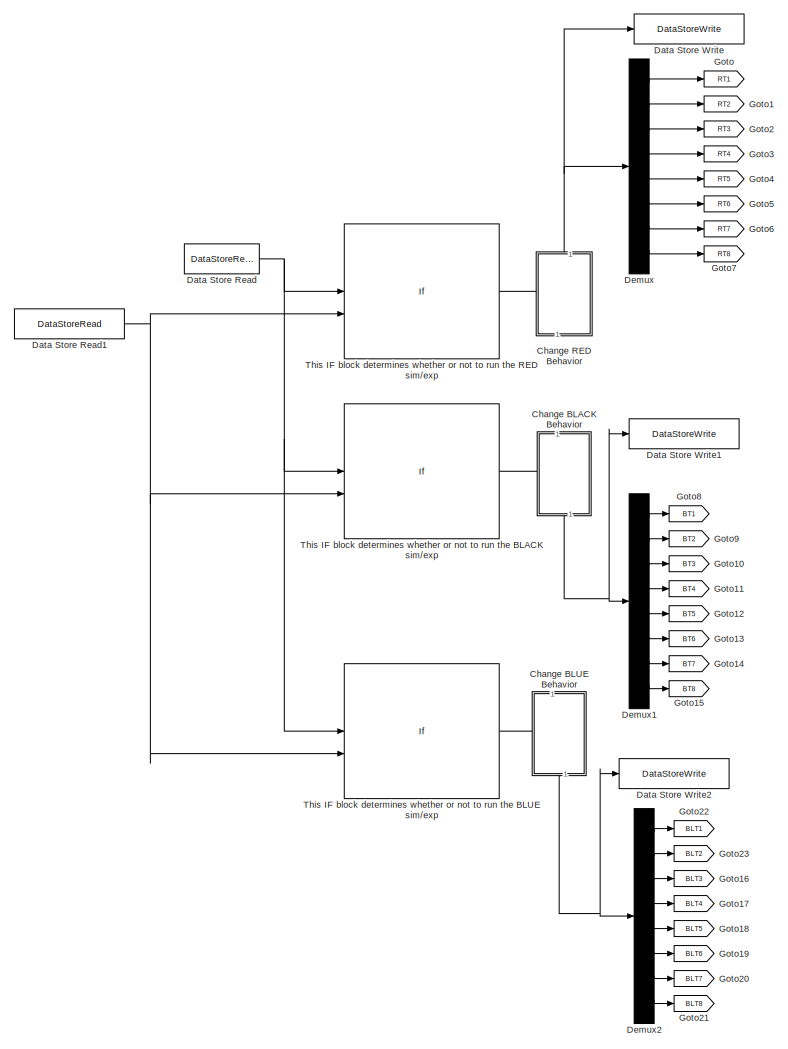
[diagram: Thruster Control Code - part 1/2, left side, full height]
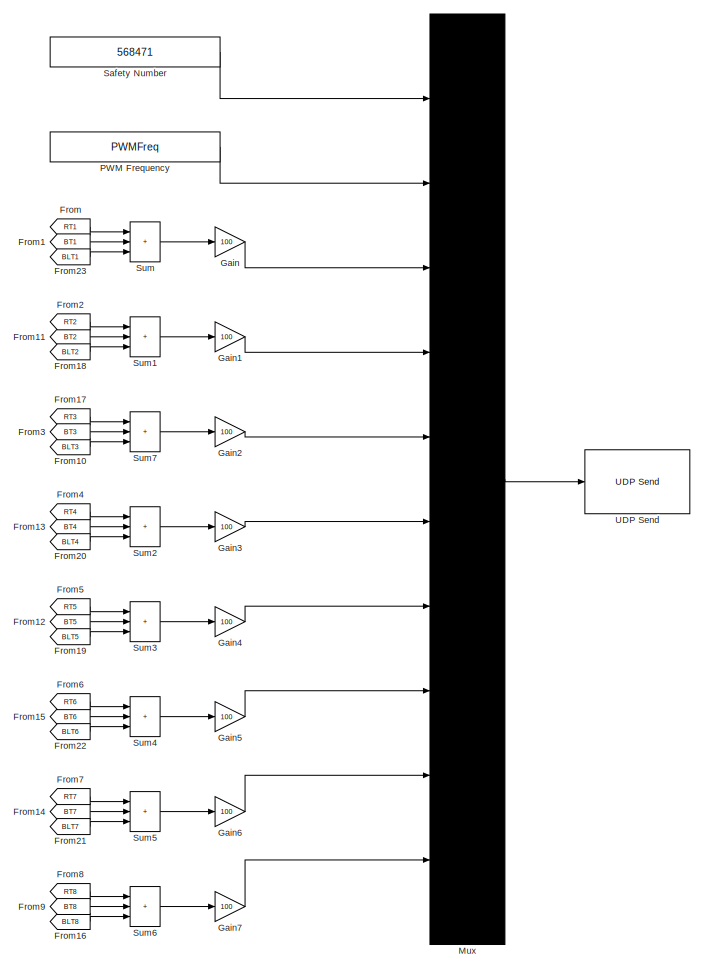
[diagram: Thruster Control Code - part 2/2, right side, full height]
BLOCK [SubSystem] Thruster Control Code
  SystemSampleTime = 0.1
BLOCK [SubSystem] Thruster Control Code/Change BLACK Behavior
  NameLocation = right
  TreatAsAtomicUnit = on
BLOCK [ActionPort] Thruster Control Code/Change BLACK Behavior/Action Port
  ActionPortLabel = if(u1 == 2 | u2 == 1)
BLOCK [DataStoreRead] Thruster Control Code/Change BLACK Behavior/BLACK Controls
  DataStoreName = BLACK_Controls
  IndexOptions = Index vector (dialog)
  Indices = 1
  OutputSizes = 1
BLOCK [Outport] Thruster Control Code/Change BLACK Behavior/BLACK DC
  VectorParamsAs1DForOutWhenUnconnected = off
BLOCK [DataStoreRead] Thruster Control Code/Change BLACK Behavior/BLACK States
  DataStoreName = BLACK_Measured_States
  IndexOptions = Index vector (dialog)
  Indices = 1
  OutputSizes = 1
BLOCK [SubSystem] Thruster Control Code/Change BLACK Behavior/Calculate Duty Cycle
BLOCK [Demux] Thruster Control Code/Change BLACK Behavior/Calculate Duty Cycle/Demux
  Outputs = 3
BLOCK [Outport] Thruster Control Code/Change BLACK Behavior/Calculate Duty Cycle/Duty Cycle
  VectorParamsAs1DForOutWhenUnconnected = off
BLOCK [SubSystem] Thruster Control Code/Change BLACK Behavior/Calculate Duty Cycle/Duty Cycle @ PWM
BLOCK [Constant] Thruster Control Code/Change BLACK Behavior/Calculate Duty Cycle/Duty Cycle @ PWM/Constant1
  Value = 1/PWMFreq
BLOCK [Constant] Thruster Control Code/Change BLACK Behavior/Calculate Duty Cycle/Duty Cycle @ PWM/Constant2
  Value = 0
BLOCK [DataStoreRead] Thruster Control Code/Change BLACK Behavior/Calculate Duty Cycle/Duty Cycle @ PWM/Data Store Read
  DataStoreName = Univ_Time
  IndexOptions = Index vector (dialog)
  Indices = 1
  OutputSizes = 1
BLOCK [Delay] Thruster Control Code/Change BLACK Behavior/Calculate Duty Cycle/Duty Cycle @ PWM/Delay
  DelayLength = 1
  InputPortMap = u0
BLOCK [Outport] Thruster Control Code/Change BLACK Behavior/Calculate Duty Cycle/Duty Cycle @ PWM/Duty Cycle Held
BLOCK [SubSystem] Thruster Control Code/Change BLACK Behavior/Calculate Duty Cycle/Duty Cycle @ PWM/Enabled Subsystem
  TreatAsAtomicUnit = on
BLOCK [EnablePort] Thruster Control Code/Change BLACK Behavior/Calculate Duty Cycle/Duty Cycle @ PWM/Enabled Subsystem/Enable
BLOCK [Inport] Thruster Control Code/Change BLACK Behavior/Calculate Duty Cycle/Duty Cycle @ PWM/Enabled Subsystem/In1
BLOCK [Outport] Thruster Control Code/Change BLACK Behavior/Calculate Duty Cycle/Duty Cycle @ PWM/Enabled Subsystem/Out1
BLOCK [SubSystem] Thruster Control Code/Change BLACK Behavior/Calculate Duty Cycle/Duty Cycle @ PWM/Enabled Subsystem1
  TreatAsAtomicUnit = on
BLOCK [EnablePort] Thruster Control Code/Change BLACK Behavior/Calculate Duty Cycle/Duty Cycle @ PWM/Enabled Subsystem1/Enable
BLOCK [Outport] Thruster Control Code/Change BLACK Behavior/Calculate Duty Cycle/Duty Cycle @ PWM/Enabled Subsystem1/Out1
BLOCK [Inport] Thruster Control Code/Change BLACK Behavior/Calculate Duty Cycle/Duty Cycle @ PWM/Enabled Subsystem1/ThrustPer_Final
BLOCK [RelationalOperator] Thruster Control Code/Change BLACK Behavior/Calculate Duty Cycle/Duty Cycle @ PWM/Relational Operator1
  InputSameDT = off
  OutDataTypeStr = boolean
  RndMeth = Simplest
BLOCK [RelationalOperator] Thruster Control Code/Change BLACK Behavior/Calculate Duty Cycle/Duty Cycle @ PWM/Relational Operator2
  InputSameDT = off
  Operator = ==
  OutDataTypeStr = boolean
  RndMeth = Simplest
BLOCK [Sum] Thruster Control Code/Change BLACK Behavior/Calculate Duty Cycle/Duty Cycle @ PWM/Subtract
  IconShape = rectangular
  Inputs = +-
BLOCK [Inport] Thruster Control Code/Change BLACK Behavior/Calculate Duty Cycle/Duty Cycle @ PWM/ThrustPer_Final
BLOCK [SubSystem] Thruster Control Code/Change BLACK Behavior/Calculate Duty Cycle/Generate Initial Guess
BLOCK [Outport] Thruster Control Code/Change BLACK Behavior/Calculate Duty Cycle/Generate Initial Guess/Duty Cycle
BLOCK [SubSystem] Thruster Control Code/Change BLACK Behavior/Calculate Duty Cycle/Generate Initial Guess/MATLAB Function
  ErrorFcn = Stateflow.Translate.translate
  PermitHierarchicalResolution = ExplicitOnly
  SFBlockType = MATLAB Function
  TreatAsAtomicUnit = on
BLOCK [Demux] Thruster Control Code/Change BLACK Behavior/Calculate Duty Cycle/Generate Initial Guess/MATLAB Function/ Demux 
  Outputs = 1
BLOCK [Ground] Thruster Control Code/Change BLACK Behavior/Calculate Duty Cycle/Generate Initial Guess/MATLAB Function/ Ground 
BLOCK [S-Function] Thruster Control Code/Change BLACK Behavior/Calculate Duty Cycle/Generate Initial Guess/MATLAB Function/ SFunction 
  EnableBusSupport = on
  FunctionName = sf_sfun
  Parameters = F_thrusters_BLACK,thruster_dist2CG_BLACK
  PortCounts = [1 2]
  SFcnIsStateOwnerBlock = off
  SFunctionDeploymentMode = off
  Tag = Stateflow S-Function 50
BLOCK [Terminator] Thruster Control Code/Change BLACK Behavior/Calculate Duty Cycle/Generate Initial Guess/MATLAB Function/ Terminator 
BLOCK [Outport] Thruster Control Code/Change BLACK Behavior/Calculate Duty Cycle/Generate Initial Guess/MATLAB Function/H
  VectorParamsAs1DForOutWhenUnconnected = off
BLOCK [Product] Thruster Control Code/Change BLACK Behavior/Calculate Duty Cycle/Generate Initial Guess/Product3
  Multiplication = Matrix(*)
BLOCK [Reference] Thruster Control Code/Change BLACK Behavior/Calculate Duty Cycle/Generate Initial Guess/Pseudoinverse1  REF=dspinverses/Pseudoinverse
  SourceBlock = dspinverses/Pseudoinverse
  SourceType = Pseudoinverse
BLOCK [Inport] Thruster Control Code/Change BLACK Behavior/Calculate Duty Cycle/Generate Initial Guess/[Fx; Fy; Tz]
BLOCK [SubSystem] Thruster Control Code/Change BLACK Behavior/Calculate Duty Cycle/MATLAB Function1
  ErrorFcn = Stateflow.Translate.translate
  PermitHierarchicalResolution = ExplicitOnly
  SFBlockType = MATLAB Function
  TreatAsAtomicUnit = on
BLOCK [Demux] Thruster Control Code/Change BLACK Behavior/Calculate Duty Cycle/MATLAB Function1/ Demux 
  Outputs = 1
BLOCK [S-Function] Thruster Control Code/Change BLACK Behavior/Calculate Duty Cycle/MATLAB Function1/ SFunction 
  EnableBusSupport = on
  FunctionName = sf_sfun
  Parameters = PWMFreq
  PortCounts = [1 2]
  SFcnIsStateOwnerBlock = off
  SFunctionDeploymentMode = off
  Tag = Stateflow S-Function 73
BLOCK [Terminator] Thruster Control Code/Change BLACK Behavior/Calculate Duty Cycle/MATLAB Function1/ Terminator 
BLOCK [Inport] Thruster Control Code/Change BLACK Behavior/Calculate Duty Cycle/MATLAB Function1/ThrustPer
BLOCK [Outport] Thruster Control Code/Change BLACK Behavior/Calculate Duty Cycle/MATLAB Function1/ThrustPer_Final
  VectorParamsAs1DForOutWhenUnconnected = off
BLOCK [SubSystem] Thruster Control Code/Change BLACK Behavior/Calculate Duty Cycle/MATLAB Function5
  ErrorFcn = Stateflow.Translate.translate
  PermitHierarchicalResolution = ExplicitOnly
  SFBlockType = MATLAB Function
  TreatAsAtomicUnit = on
BLOCK [Demux] Thruster Control Code/Change BLACK Behavior/Calculate Duty Cycle/MATLAB Function5/ Demux 
  Outputs = 1
BLOCK [S-Function] Thruster Control Code/Change BLACK Behavior/Calculate Duty Cycle/MATLAB Function5/ SFunction 
  EnableBusSupport = on
  FunctionName = sf_sfun
  Parameters = F_red_X_nominal,F_red_Y_nominal,max_iters,thruster_dist2CG_RED,tol
  PortCounts = [2 3]
  SFcnIsStateOwnerBlock = off
  SFunctionDeploymentMode = off
  Tag = Stateflow S-Function 13
BLOCK [Terminator] Thruster Control Code/Change BLACK Behavior/Calculate Duty Cycle/MATLAB Function5/ Terminator 
BLOCK [Outport] Thruster Control Code/Change BLACK Behavior/Calculate Duty Cycle/MATLAB Function5/H_final
BLOCK [Outport] Thruster Control Code/Change BLACK Behavior/Calculate Duty Cycle/MATLAB Function5/duty_cycles
  Port = 2
BLOCK [Inport] Thruster Control Code/Change BLACK Behavior/Calculate Duty Cycle/MATLAB Function5/u_desired
BLOCK [Inport] Thruster Control Code/Change BLACK Behavior/Calculate Duty Cycle/MATLAB Function5/x0
  Port = 2
BLOCK [Inport] Thruster Control Code/Change BLACK Behavior/Calculate Duty Cycle/Measured Attitude
  Port = 2
BLOCK [Mux] Thruster Control Code/Change BLACK Behavior/Calculate Duty Cycle/Mux
  DisplayOption = bar
  Inputs = 2
BLOCK [Mux] Thruster Control Code/Change BLACK Behavior/Calculate Duty Cycle/Mux1
  DisplayOption = bar
  Inputs = 2
BLOCK [Product] Thruster Control Code/Change BLACK Behavior/Calculate Duty Cycle/Product1
  Multiplication = Matrix(*)
BLOCK [Reshape] Thruster Control Code/Change BLACK Behavior/Calculate Duty Cycle/Reshape
  OutputDimensionality = Column vector (2-D)
BLOCK [SubSystem] Thruster Control Code/Change BLACK Behavior/Calculate Duty Cycle/Rotate Forces to Inertial
BLOCK [SubSystem] Thruster Control Code/Change BLACK Behavior/Calculate Duty Cycle/Rotate Forces to Inertial/Create Rotation Matrix
  ErrorFcn = Stateflow.Translate.translate
  PermitHierarchicalResolution = ExplicitOnly
  SFBlockType = MATLAB Function
  TreatAsAtomicUnit = on
BLOCK [Demux] Thruster Control Code/Change BLACK Behavior/Calculate Duty Cycle/Rotate Forces to Inertial/Create Rotation Matrix/ Demux 
  Outputs = 1
BLOCK [S-Function] Thruster Control Code/Change BLACK Behavior/Calculate Duty Cycle/Rotate Forces to Inertial/Create Rotation Matrix/ SFunction 
  EnableBusSupport = on
  FunctionName = sf_sfun
  PortCounts = [1 2]
  SFcnIsStateOwnerBlock = off
  SFunctionDeploymentMode = off
  Tag = Stateflow S-Function 52
BLOCK [Terminator] Thruster Control Code/Change BLACK Behavior/Calculate Duty Cycle/Rotate Forces to Inertial/Create Rotation Matrix/ Terminator 
BLOCK [Outport] Thruster Control Code/Change BLACK Behavior/Calculate Duty Cycle/Rotate Forces to Inertial/Create Rotation Matrix/C_Ib
  VectorParamsAs1DForOutWhenUnconnected = off
BLOCK [Inport] Thruster Control Code/Change BLACK Behavior/Calculate Duty Cycle/Rotate Forces to Inertial/Create Rotation Matrix/Rz
BLOCK [Outport] Thruster Control Code/Change BLACK Behavior/Calculate Duty Cycle/Rotate Forces to Inertial/F_I
  VectorParamsAs1DForOutWhenUnconnected = off
BLOCK [Inport] Thruster Control Code/Change BLACK Behavior/Calculate Duty Cycle/Rotate Forces to Inertial/F_b 
BLOCK [Product] Thruster Control Code/Change BLACK Behavior/Calculate Duty Cycle/Rotate Forces to Inertial/Rotate F_b to F_I
  Multiplication = Matrix(*)
BLOCK [Inport] Thruster Control Code/Change BLACK Behavior/Calculate Duty Cycle/Rotate Forces to Inertial/Rz
  Port = 2
BLOCK [Outport] Thruster Control Code/Change BLACK Behavior/Calculate Duty Cycle/Saturated Forces Moments
  Port = 2
BLOCK [Inport] Thruster Control Code/Change BLACK Behavior/Calculate Duty Cycle/[Fx_b; Fy_b; Tz]
BLOCK [DataStoreWrite] Thruster Control Code/Change BLACK Behavior/Data Store Write2
  DataStoreName = BLACK_Saturated_Controls
  IndexOptions = Index vector (dialog)
  Indices = 1
  OutputSizes = 1
BLOCK [Demux] Thruster Control Code/Change BLACK Behavior/Demux1
  Outputs = [2,1]
BLOCK [Demux] Thruster Control Code/Change BLACK Behavior/Demux2
  Outputs = [2,1,6]
BLOCK [Mux] Thruster Control Code/Change BLACK Behavior/Mux
  DisplayOption = bar
  Inputs = 2
BLOCK [SubSystem] Thruster Control Code/Change BLACK Behavior/Rotate Forces to Body
BLOCK [SubSystem] Thruster Control Code/Change BLACK Behavior/Rotate Forces to Body/Create Rotation Matrix
  ErrorFcn = Stateflow.Translate.translate
  PermitHierarchicalResolution = ExplicitOnly
  SFBlockType = MATLAB Function
  TreatAsAtomicUnit = on
BLOCK [Demux] Thruster Control Code/Change BLACK Behavior/Rotate Forces to Body/Create Rotation Matrix/ Demux 
  Outputs = 1
BLOCK [S-Function] Thruster Control Code/Change BLACK Behavior/Rotate Forces to Body/Create Rotation Matrix/ SFunction 
  EnableBusSupport = on
  FunctionName = sf_sfun
  PortCounts = [1 2]
  SFcnIsStateOwnerBlock = off
  SFunctionDeploymentMode = off
  Tag = Stateflow S-Function 55
BLOCK [Terminator] Thruster Control Code/Change BLACK Behavior/Rotate Forces to Body/Create Rotation Matrix/ Terminator 
BLOCK [Outport] Thruster Control Code/Change BLACK Behavior/Rotate Forces to Body/Create Rotation Matrix/C_bI
  VectorParamsAs1DForOutWhenUnconnected = off
BLOCK [Inport] Thruster Control Code/Change BLACK Behavior/Rotate Forces to Body/Create Rotation Matrix/Rz
BLOCK [Inport] Thruster Control Code/Change BLACK Behavior/Rotate Forces to Body/F_I 
BLOCK [Outport] Thruster Control Code/Change BLACK Behavior/Rotate Forces to Body/F_b
  VectorParamsAs1DForOutWhenUnconnected = off
BLOCK [Product] Thruster Control Code/Change BLACK Behavior/Rotate Forces to Body/Rotate F_I to F_b
  Multiplication = Matrix(*)
BLOCK [Inport] Thruster Control Code/Change BLACK Behavior/Rotate Forces to Body/Rz
  Port = 2
BLOCK [Terminator] Thruster Control Code/Change BLACK Behavior/Terminator
BLOCK [Terminator] Thruster Control Code/Change BLACK Behavior/Terminator1
BLOCK [SubSystem] Thruster Control Code/Change BLUE Behavior
  NameLocation = right
  TreatAsAtomicUnit = on
BLOCK [ActionPort] Thruster Control Code/Change BLUE Behavior/Action Port
  ActionPortLabel = if(u1 == 3 | u2 == 1)
BLOCK [Outport] Thruster Control Code/Change BLUE Behavior/BLUE DC
  VectorParamsAs1DForOutWhenUnconnected = off
BLOCK [SubSystem] Thruster Control Code/Change BLUE Behavior/Calculate Duty Cycle
BLOCK [Demux] Thruster Control Code/Change BLUE Behavior/Calculate Duty Cycle/Demux
  Outputs = 3
BLOCK [Outport] Thruster Control Code/Change BLUE Behavior/Calculate Duty Cycle/Duty Cycle
  VectorParamsAs1DForOutWhenUnconnected = off
BLOCK [SubSystem] Thruster Control Code/Change BLUE Behavior/Calculate Duty Cycle/Duty Cycle @ PWM
BLOCK [Constant] Thruster Control Code/Change BLUE Behavior/Calculate Duty Cycle/Duty Cycle @ PWM/Constant1
  Value = 1/PWMFreq
BLOCK [Constant] Thruster Control Code/Change BLUE Behavior/Calculate Duty Cycle/Duty Cycle @ PWM/Constant2
  Value = 0
BLOCK [DataStoreRead] Thruster Control Code/Change BLUE Behavior/Calculate Duty Cycle/Duty Cycle @ PWM/Data Store Read
  DataStoreName = Univ_Time
  IndexOptions = Index vector (dialog)
  Indices = 1
  OutputSizes = 1
BLOCK [Delay] Thruster Control Code/Change BLUE Behavior/Calculate Duty Cycle/Duty Cycle @ PWM/Delay
  DelayLength = 1
  InputPortMap = u0
BLOCK [Outport] Thruster Control Code/Change BLUE Behavior/Calculate Duty Cycle/Duty Cycle @ PWM/Duty Cycle Held
BLOCK [SubSystem] Thruster Control Code/Change BLUE Behavior/Calculate Duty Cycle/Duty Cycle @ PWM/Enabled Subsystem
  TreatAsAtomicUnit = on
BLOCK [EnablePort] Thruster Control Code/Change BLUE Behavior/Calculate Duty Cycle/Duty Cycle @ PWM/Enabled Subsystem/Enable
BLOCK [Inport] Thruster Control Code/Change BLUE Behavior/Calculate Duty Cycle/Duty Cycle @ PWM/Enabled Subsystem/In1
BLOCK [Outport] Thruster Control Code/Change BLUE Behavior/Calculate Duty Cycle/Duty Cycle @ PWM/Enabled Subsystem/Out1
BLOCK [SubSystem] Thruster Control Code/Change BLUE Behavior/Calculate Duty Cycle/Duty Cycle @ PWM/Enabled Subsystem1
  TreatAsAtomicUnit = on
BLOCK [EnablePort] Thruster Control Code/Change BLUE Behavior/Calculate Duty Cycle/Duty Cycle @ PWM/Enabled Subsystem1/Enable
BLOCK [Outport] Thruster Control Code/Change BLUE Behavior/Calculate Duty Cycle/Duty Cycle @ PWM/Enabled Subsystem1/Out1
BLOCK [Inport] Thruster Control Code/Change BLUE Behavior/Calculate Duty Cycle/Duty Cycle @ PWM/Enabled Subsystem1/ThrustPer_Final
BLOCK [RelationalOperator] Thruster Control Code/Change BLUE Behavior/Calculate Duty Cycle/Duty Cycle @ PWM/Relational Operator1
  InputSameDT = off
  OutDataTypeStr = boolean
  RndMeth = Simplest
BLOCK [RelationalOperator] Thruster Control Code/Change BLUE Behavior/Calculate Duty Cycle/Duty Cycle @ PWM/Relational Operator2
  InputSameDT = off
  Operator = ==
  OutDataTypeStr = boolean
  RndMeth = Simplest
BLOCK [Sum] Thruster Control Code/Change BLUE Behavior/Calculate Duty Cycle/Duty Cycle @ PWM/Subtract
  IconShape = rectangular
  Inputs = +-
BLOCK [Inport] Thruster Control Code/Change BLUE Behavior/Calculate Duty Cycle/Duty Cycle @ PWM/ThrustPer_Final
BLOCK [SubSystem] Thruster Control Code/Change BLUE Behavior/Calculate Duty Cycle/Generate Initial Guess
BLOCK [Outport] Thruster Control Code/Change BLUE Behavior/Calculate Duty Cycle/Generate Initial Guess/Duty Cycle
BLOCK [SubSystem] Thruster Control Code/Change BLUE Behavior/Calculate Duty Cycle/Generate Initial Guess/MATLAB Function
  ErrorFcn = Stateflow.Translate.translate
  PermitHierarchicalResolution = ExplicitOnly
  SFBlockType = MATLAB Function
  TreatAsAtomicUnit = on
BLOCK [Demux] Thruster Control Code/Change BLUE Behavior/Calculate Duty Cycle/Generate Initial Guess/MATLAB Function/ Demux 
  Outputs = 1
BLOCK [Ground] Thruster Control Code/Change BLUE Behavior/Calculate Duty Cycle/Generate Initial Guess/MATLAB Function/ Ground 
BLOCK [S-Function] Thruster Control Code/Change BLUE Behavior/Calculate Duty Cycle/Generate Initial Guess/MATLAB Function/ SFunction 
  EnableBusSupport = on
  FunctionName = sf_sfun
  Parameters = F_thrusters_BLUE,thruster_dist2CG_BLUE
  PortCounts = [1 2]
  SFcnIsStateOwnerBlock = off
  SFunctionDeploymentMode = off
  Tag = Stateflow S-Function 57
BLOCK [Terminator] Thruster Control Code/Change BLUE Behavior/Calculate Duty Cycle/Generate Initial Guess/MATLAB Function/ Terminator 
BLOCK [Outport] Thruster Control Code/Change BLUE Behavior/Calculate Duty Cycle/Generate Initial Guess/MATLAB Function/H
  VectorParamsAs1DForOutWhenUnconnected = off
BLOCK [Product] Thruster Control Code/Change BLUE Behavior/Calculate Duty Cycle/Generate Initial Guess/Product3
  Multiplication = Matrix(*)
BLOCK [Reference] Thruster Control Code/Change BLUE Behavior/Calculate Duty Cycle/Generate Initial Guess/Pseudoinverse1  REF=dspinverses/Pseudoinverse
  SourceBlock = dspinverses/Pseudoinverse
  SourceType = Pseudoinverse
BLOCK [Inport] Thruster Control Code/Change BLUE Behavior/Calculate Duty Cycle/Generate Initial Guess/[Fx; Fy; Tz]
BLOCK [SubSystem] Thruster Control Code/Change BLUE Behavior/Calculate Duty Cycle/MATLAB Function1
  ErrorFcn = Stateflow.Translate.translate
  PermitHierarchicalResolution = ExplicitOnly
  SFBlockType = MATLAB Function
  TreatAsAtomicUnit = on
BLOCK [Demux] Thruster Control Code/Change BLUE Behavior/Calculate Duty Cycle/MATLAB Function1/ Demux 
  Outputs = 1
BLOCK [S-Function] Thruster Control Code/Change BLUE Behavior/Calculate Duty Cycle/MATLAB Function1/ SFunction 
  EnableBusSupport = on
  FunctionName = sf_sfun
  Parameters = PWMFreq
  PortCounts = [1 2]
  SFcnIsStateOwnerBlock = off
  SFunctionDeploymentMode = off
  Tag = Stateflow S-Function 2
BLOCK [Terminator] Thruster Control Code/Change BLUE Behavior/Calculate Duty Cycle/MATLAB Function1/ Terminator 
BLOCK [Inport] Thruster Control Code/Change BLUE Behavior/Calculate Duty Cycle/MATLAB Function1/ThrustPer
BLOCK [Outport] Thruster Control Code/Change BLUE Behavior/Calculate Duty Cycle/MATLAB Function1/ThrustPer_Final
  VectorParamsAs1DForOutWhenUnconnected = off
BLOCK [SubSystem] Thruster Control Code/Change BLUE Behavior/Calculate Duty Cycle/MATLAB Function5
  ErrorFcn = Stateflow.Translate.translate
  PermitHierarchicalResolution = ExplicitOnly
  SFBlockType = MATLAB Function
  TreatAsAtomicUnit = on
BLOCK [Demux] Thruster Control Code/Change BLUE Behavior/Calculate Duty Cycle/MATLAB Function5/ Demux 
  Outputs = 1
BLOCK [S-Function] Thruster Control Code/Change BLUE Behavior/Calculate Duty Cycle/MATLAB Function5/ SFunction 
  EnableBusSupport = on
  FunctionName = sf_sfun
  Parameters = F_red_X_nominal,F_red_Y_nominal,max_iters,thruster_dist2CG_RED,tol
  PortCounts = [2 3]
  SFcnIsStateOwnerBlock = off
  SFunctionDeploymentMode = off
  Tag = Stateflow S-Function 26
BLOCK [Terminator] Thruster Control Code/Change BLUE Behavior/Calculate Duty Cycle/MATLAB Function5/ Terminator 
BLOCK [Outport] Thruster Control Code/Change BLUE Behavior/Calculate Duty Cycle/MATLAB Function5/H_final
BLOCK [Outport] Thruster Control Code/Change BLUE Behavior/Calculate Duty Cycle/MATLAB Function5/duty_cycles
  Port = 2
BLOCK [Inport] Thruster Control Code/Change BLUE Behavior/Calculate Duty Cycle/MATLAB Function5/u_desired
BLOCK [Inport] Thruster Control Code/Change BLUE Behavior/Calculate Duty Cycle/MATLAB Function5/x0
  Port = 2
BLOCK [Inport] Thruster Control Code/Change BLUE Behavior/Calculate Duty Cycle/Measured Attitude
  Port = 2
BLOCK [Mux] Thruster Control Code/Change BLUE Behavior/Calculate Duty Cycle/Mux
  DisplayOption = bar
  Inputs = 2
BLOCK [Mux] Thruster Control Code/Change BLUE Behavior/Calculate Duty Cycle/Mux1
  DisplayOption = bar
  Inputs = 2
BLOCK [Product] Thruster Control Code/Change BLUE Behavior/Calculate Duty Cycle/Product1
  Multiplication = Matrix(*)
BLOCK [Reshape] Thruster Control Code/Change BLUE Behavior/Calculate Duty Cycle/Reshape
  OutputDimensionality = Column vector (2-D)
BLOCK [SubSystem] Thruster Control Code/Change BLUE Behavior/Calculate Duty Cycle/Rotate Forces to Inertial
BLOCK [SubSystem] Thruster Control Code/Change BLUE Behavior/Calculate Duty Cycle/Rotate Forces to Inertial/Create Rotation Matrix
  ErrorFcn = Stateflow.Translate.translate
  PermitHierarchicalResolution = ExplicitOnly
  SFBlockType = MATLAB Function
  TreatAsAtomicUnit = on
BLOCK [Demux] Thruster Control Code/Change BLUE Behavior/Calculate Duty Cycle/Rotate Forces to Inertial/Create Rotation Matrix/ Demux 
  Outputs = 1
BLOCK [S-Function] Thruster Control Code/Change BLUE Behavior/Calculate Duty Cycle/Rotate Forces to Inertial/Create Rotation Matrix/ SFunction 
  EnableBusSupport = on
  FunctionName = sf_sfun
  PortCounts = [1 2]
  SFcnIsStateOwnerBlock = off
  SFunctionDeploymentMode = off
  Tag = Stateflow S-Function 59
BLOCK [Terminator] Thruster Control Code/Change BLUE Behavior/Calculate Duty Cycle/Rotate Forces to Inertial/Create Rotation Matrix/ Terminator 
BLOCK [Outport] Thruster Control Code/Change BLUE Behavior/Calculate Duty Cycle/Rotate Forces to Inertial/Create Rotation Matrix/C_Ib
  VectorParamsAs1DForOutWhenUnconnected = off
BLOCK [Inport] Thruster Control Code/Change BLUE Behavior/Calculate Duty Cycle/Rotate Forces to Inertial/Create Rotation Matrix/Rz
BLOCK [Outport] Thruster Control Code/Change BLUE Behavior/Calculate Duty Cycle/Rotate Forces to Inertial/F_I
  VectorParamsAs1DForOutWhenUnconnected = off
BLOCK [Inport] Thruster Control Code/Change BLUE Behavior/Calculate Duty Cycle/Rotate Forces to Inertial/F_b 
BLOCK [Product] Thruster Control Code/Change BLUE Behavior/Calculate Duty Cycle/Rotate Forces to Inertial/Rotate F_b to F_I
  Multiplication = Matrix(*)
BLOCK [Inport] Thruster Control Code/Change BLUE Behavior/Calculate Duty Cycle/Rotate Forces to Inertial/Rz
  Port = 2
BLOCK [Outport] Thruster Control Code/Change BLUE Behavior/Calculate Duty Cycle/Saturated Forces Moments
  Port = 2
BLOCK [Inport] Thruster Control Code/Change BLUE Behavior/Calculate Duty Cycle/[Fx_b; Fy_b; Tz]
BLOCK [DataStoreRead] Thruster Control Code/Change BLUE Behavior/Data Store Read
  DataStoreName = BLUE_Controls
  IndexOptions = Index vector (dialog)
  Indices = 1
  OutputSizes = 1
BLOCK [DataStoreRead] Thruster Control Code/Change BLUE Behavior/Data Store Read1
  DataStoreName = BLUE_Measured_States
  IndexOptions = Index vector (dialog)
  Indices = 1
  OutputSizes = 1
BLOCK [DataStoreWrite] Thruster Control Code/Change BLUE Behavior/Data Store Write3
  DataStoreName = BLUE_Saturated_Controls
  IndexOptions = Index vector (dialog)
  Indices = 1
  OutputSizes = 1
BLOCK [Demux] Thruster Control Code/Change BLUE Behavior/Demux
  Outputs = [2,1]
BLOCK [Demux] Thruster Control Code/Change BLUE Behavior/Demux1
  Outputs = [2,1,6]
BLOCK [Mux] Thruster Control Code/Change BLUE Behavior/Mux1
  DisplayOption = bar
  Inputs = 2
BLOCK [SubSystem] Thruster Control Code/Change BLUE Behavior/Rotate Forces to Body
BLOCK [SubSystem] Thruster Control Code/Change BLUE Behavior/Rotate Forces to Body/Create Rotation Matrix
  ErrorFcn = Stateflow.Translate.translate
  PermitHierarchicalResolution = ExplicitOnly
  SFBlockType = MATLAB Function
  TreatAsAtomicUnit = on
BLOCK [Demux] Thruster Control Code/Change BLUE Behavior/Rotate Forces to Body/Create Rotation Matrix/ Demux 
  Outputs = 1
BLOCK [S-Function] Thruster Control Code/Change BLUE Behavior/Rotate Forces to Body/Create Rotation Matrix/ SFunction 
  EnableBusSupport = on
  FunctionName = sf_sfun
  PortCounts = [1 2]
  SFcnIsStateOwnerBlock = off
  SFunctionDeploymentMode = off
  Tag = Stateflow S-Function 61
BLOCK [Terminator] Thruster Control Code/Change BLUE Behavior/Rotate Forces to Body/Create Rotation Matrix/ Terminator 
BLOCK [Outport] Thruster Control Code/Change BLUE Behavior/Rotate Forces to Body/Create Rotation Matrix/C_bI
  VectorParamsAs1DForOutWhenUnconnected = off
BLOCK [Inport] Thruster Control Code/Change BLUE Behavior/Rotate Forces to Body/Create Rotation Matrix/Rz
BLOCK [Inport] Thruster Control Code/Change BLUE Behavior/Rotate Forces to Body/F_I 
BLOCK [Outport] Thruster Control Code/Change BLUE Behavior/Rotate Forces to Body/F_b
  VectorParamsAs1DForOutWhenUnconnected = off
BLOCK [Product] Thruster Control Code/Change BLUE Behavior/Rotate Forces to Body/Rotate F_I to F_b
  Multiplication = Matrix(*)
BLOCK [Inport] Thruster Control Code/Change BLUE Behavior/Rotate Forces to Body/Rz
  Port = 2
BLOCK [Terminator] Thruster Control Code/Change BLUE Behavior/Terminator
BLOCK [Terminator] Thruster Control Code/Change BLUE Behavior/Terminator1
BLOCK [SubSystem] Thruster Control Code/Change RED Behavior
  NameLocation = right
  TreatAsAtomicUnit = on
BLOCK [ActionPort] Thruster Control Code/Change RED Behavior/Action Port
  ActionPortLabel = if(u1 == 1 | u2 == 1)
BLOCK [SubSystem] Thruster Control Code/Change RED Behavior/Calculate Duty Cycle
BLOCK [Demux] Thruster Control Code/Change RED Behavior/Calculate Duty Cycle/Demux
  Outputs = 3
BLOCK [Outport] Thruster Control Code/Change RED Behavior/Calculate Duty Cycle/Duty Cycle
  VectorParamsAs1DForOutWhenUnconnected = off
BLOCK [SubSystem] Thruster Control Code/Change RED Behavior/Calculate Duty Cycle/Duty Cycle @ PWM
BLOCK [Constant] Thruster Control Code/Change RED Behavior/Calculate Duty Cycle/Duty Cycle @ PWM/Constant1
  Value = 1/PWMFreq
BLOCK [Constant] Thruster Control Code/Change RED Behavior/Calculate Duty Cycle/Duty Cycle @ PWM/Constant2
  Value = 0
BLOCK [DataStoreRead] Thruster Control Code/Change RED Behavior/Calculate Duty Cycle/Duty Cycle @ PWM/Data Store Read
  DataStoreName = Univ_Time
  IndexOptions = Index vector (dialog)
  Indices = 1
  OutputSizes = 1
BLOCK [Delay] Thruster Control Code/Change RED Behavior/Calculate Duty Cycle/Duty Cycle @ PWM/Delay
  DelayLength = 1
  InputPortMap = u0
BLOCK [Outport] Thruster Control Code/Change RED Behavior/Calculate Duty Cycle/Duty Cycle @ PWM/Duty Cycle Held
BLOCK [SubSystem] Thruster Control Code/Change RED Behavior/Calculate Duty Cycle/Duty Cycle @ PWM/Enabled Subsystem
  TreatAsAtomicUnit = on
BLOCK [EnablePort] Thruster Control Code/Change RED Behavior/Calculate Duty Cycle/Duty Cycle @ PWM/Enabled Subsystem/Enable
BLOCK [Inport] Thruster Control Code/Change RED Behavior/Calculate Duty Cycle/Duty Cycle @ PWM/Enabled Subsystem/In1
BLOCK [Outport] Thruster Control Code/Change RED Behavior/Calculate Duty Cycle/Duty Cycle @ PWM/Enabled Subsystem/Out1
BLOCK [SubSystem] Thruster Control Code/Change RED Behavior/Calculate Duty Cycle/Duty Cycle @ PWM/Enabled Subsystem1
  TreatAsAtomicUnit = on
BLOCK [EnablePort] Thruster Control Code/Change RED Behavior/Calculate Duty Cycle/Duty Cycle @ PWM/Enabled Subsystem1/Enable
BLOCK [Outport] Thruster Control Code/Change RED Behavior/Calculate Duty Cycle/Duty Cycle @ PWM/Enabled Subsystem1/Out1
BLOCK [Inport] Thruster Control Code/Change RED Behavior/Calculate Duty Cycle/Duty Cycle @ PWM/Enabled Subsystem1/ThrustPer_Final
BLOCK [RelationalOperator] Thruster Control Code/Change RED Behavior/Calculate Duty Cycle/Duty Cycle @ PWM/Relational Operator1
  InputSameDT = off
  OutDataTypeStr = boolean
  RndMeth = Simplest
BLOCK [RelationalOperator] Thruster Control Code/Change RED Behavior/Calculate Duty Cycle/Duty Cycle @ PWM/Relational Operator2
  InputSameDT = off
  Operator = ==
  OutDataTypeStr = boolean
  RndMeth = Simplest
BLOCK [Sum] Thruster Control Code/Change RED Behavior/Calculate Duty Cycle/Duty Cycle @ PWM/Subtract
  IconShape = rectangular
  Inputs = +-
BLOCK [Inport] Thruster Control Code/Change RED Behavior/Calculate Duty Cycle/Duty Cycle @ PWM/ThrustPer_Final
BLOCK [SubSystem] Thruster Control Code/Change RED Behavior/Calculate Duty Cycle/Generate Initial Guess
BLOCK [Outport] Thruster Control Code/Change RED Behavior/Calculate Duty Cycle/Generate Initial Guess/Duty Cycle
BLOCK [SubSystem] Thruster Control Code/Change RED Behavior/Calculate Duty Cycle/Generate Initial Guess/MATLAB Function
  ErrorFcn = Stateflow.Translate.translate
  PermitHierarchicalResolution = ExplicitOnly
  SFBlockType = MATLAB Function
  TreatAsAtomicUnit = on
BLOCK [Demux] Thruster Control Code/Change RED Behavior/Calculate Duty Cycle/Generate Initial Guess/MATLAB Function/ Demux 
  Outputs = 1
BLOCK [Ground] Thruster Control Code/Change RED Behavior/Calculate Duty Cycle/Generate Initial Guess/MATLAB Function/ Ground 
BLOCK [S-Function] Thruster Control Code/Change RED Behavior/Calculate Duty Cycle/Generate Initial Guess/MATLAB Function/ SFunction 
  EnableBusSupport = on
  FunctionName = sf_sfun
  Parameters = F_thrusters_RED,thruster_dist2CG_RED
  PortCounts = [1 2]
  SFcnIsStateOwnerBlock = off
  SFunctionDeploymentMode = off
  Tag = Stateflow S-Function 62
BLOCK [Terminator] Thruster Control Code/Change RED Behavior/Calculate Duty Cycle/Generate Initial Guess/MATLAB Function/ Terminator 
BLOCK [Outport] Thruster Control Code/Change RED Behavior/Calculate Duty Cycle/Generate Initial Guess/MATLAB Function/H
  VectorParamsAs1DForOutWhenUnconnected = off
BLOCK [Product] Thruster Control Code/Change RED Behavior/Calculate Duty Cycle/Generate Initial Guess/Product3
  Multiplication = Matrix(*)
BLOCK [Reference] Thruster Control Code/Change RED Behavior/Calculate Duty Cycle/Generate Initial Guess/Pseudoinverse1  REF=dspinverses/Pseudoinverse
  SourceBlock = dspinverses/Pseudoinverse
  SourceType = Pseudoinverse
BLOCK [Inport] Thruster Control Code/Change RED Behavior/Calculate Duty Cycle/Generate Initial Guess/[Fx; Fy; Tz]
BLOCK [SubSystem] Thruster Control Code/Change RED Behavior/Calculate Duty Cycle/MATLAB Function5
  ErrorFcn = Stateflow.Translate.translate
  PermitHierarchicalResolution = ExplicitOnly
  SFBlockType = MATLAB Function
  TreatAsAtomicUnit = on
BLOCK [Demux] Thruster Control Code/Change RED Behavior/Calculate Duty Cycle/MATLAB Function5/ Demux 
  Outputs = 1
BLOCK [S-Function] Thruster Control Code/Change RED Behavior/Calculate Duty Cycle/MATLAB Function5/ SFunction 
  EnableBusSupport = on
  FunctionName = sf_sfun
  Parameters = F_red_X_nominal,F_red_Y_nominal,max_iters,thruster_dist2CG_RED,tol
  PortCounts = [2 3]
  SFcnIsStateOwnerBlock = off
  SFunctionDeploymentMode = off
  Tag = Stateflow S-Function 63
BLOCK [Terminator] Thruster Control Code/Change RED Behavior/Calculate Duty Cycle/MATLAB Function5/ Terminator 
BLOCK [Outport] Thruster Control Code/Change RED Behavior/Calculate Duty Cycle/MATLAB Function5/H_final
BLOCK [Outport] Thruster Control Code/Change RED Behavior/Calculate Duty Cycle/MATLAB Function5/duty_cycles
  Port = 2
BLOCK [Inport] Thruster Control Code/Change RED Behavior/Calculate Duty Cycle/MATLAB Function5/u_desired
BLOCK [Inport] Thruster Control Code/Change RED Behavior/Calculate Duty Cycle/MATLAB Function5/x0
  Port = 2
BLOCK [SubSystem] Thruster Control Code/Change RED Behavior/Calculate Duty Cycle/MATLAB Function8
  ErrorFcn = Stateflow.Translate.translate
  PermitHierarchicalResolution = ExplicitOnly
  SFBlockType = MATLAB Function
  TreatAsAtomicUnit = on
BLOCK [Demux] Thruster Control Code/Change RED Behavior/Calculate Duty Cycle/MATLAB Function8/ Demux 
  Outputs = 1
BLOCK [S-Function] Thruster Control Code/Change RED Behavior/Calculate Duty Cycle/MATLAB Function8/ SFunction 
  EnableBusSupport = on
  FunctionName = sf_sfun
  Parameters = PWMFreq
  PortCounts = [1 2]
  SFcnIsStateOwnerBlock = off
  SFunctionDeploymentMode = off
  Tag = Stateflow S-Function 86
BLOCK [Terminator] Thruster Control Code/Change RED Behavior/Calculate Duty Cycle/MATLAB Function8/ Terminator 
BLOCK [Inport] Thruster Control Code/Change RED Behavior/Calculate Duty Cycle/MATLAB Function8/ThrustPer
BLOCK [Outport] Thruster Control Code/Change RED Behavior/Calculate Duty Cycle/MATLAB Function8/ThrustPer_Final
  VectorParamsAs1DForOutWhenUnconnected = off
BLOCK [Inport] Thruster Control Code/Change RED Behavior/Calculate Duty Cycle/Measured Attitude
  Port = 2
BLOCK [Mux] Thruster Control Code/Change RED Behavior/Calculate Duty Cycle/Mux
  DisplayOption = bar
  Inputs = 2
BLOCK [Mux] Thruster Control Code/Change RED Behavior/Calculate Duty Cycle/Mux1
  DisplayOption = bar
  Inputs = 2
BLOCK [Product] Thruster Control Code/Change RED Behavior/Calculate Duty Cycle/Product1
  Multiplication = Matrix(*)
BLOCK [Reshape] Thruster Control Code/Change RED Behavior/Calculate Duty Cycle/Reshape
  OutputDimensionality = Column vector (2-D)
BLOCK [SubSystem] Thruster Control Code/Change RED Behavior/Calculate Duty Cycle/Rotate Forces to Inertial
BLOCK [SubSystem] Thruster Control Code/Change RED Behavior/Calculate Duty Cycle/Rotate Forces to Inertial/Create Rotation Matrix
  ErrorFcn = Stateflow.Translate.translate
  PermitHierarchicalResolution = ExplicitOnly
  SFBlockType = MATLAB Function
  TreatAsAtomicUnit = on
BLOCK [Demux] Thruster Control Code/Change RED Behavior/Calculate Duty Cycle/Rotate Forces to Inertial/Create Rotation Matrix/ Demux 
  Outputs = 1
BLOCK [S-Function] Thruster Control Code/Change RED Behavior/Calculate Duty Cycle/Rotate Forces to Inertial/Create Rotation Matrix/ SFunction 
  EnableBusSupport = on
  FunctionName = sf_sfun
  PortCounts = [1 2]
  SFcnIsStateOwnerBlock = off
  SFunctionDeploymentMode = off
  Tag = Stateflow S-Function 67
BLOCK [Terminator] Thruster Control Code/Change RED Behavior/Calculate Duty Cycle/Rotate Forces to Inertial/Create Rotation Matrix/ Terminator 
BLOCK [Outport] Thruster Control Code/Change RED Behavior/Calculate Duty Cycle/Rotate Forces to Inertial/Create Rotation Matrix/C_Ib
  VectorParamsAs1DForOutWhenUnconnected = off
BLOCK [Inport] Thruster Control Code/Change RED Behavior/Calculate Duty Cycle/Rotate Forces to Inertial/Create Rotation Matrix/Rz
BLOCK [Outport] Thruster Control Code/Change RED Behavior/Calculate Duty Cycle/Rotate Forces to Inertial/F_I
  VectorParamsAs1DForOutWhenUnconnected = off
BLOCK [Inport] Thruster Control Code/Change RED Behavior/Calculate Duty Cycle/Rotate Forces to Inertial/F_b 
BLOCK [Product] Thruster Control Code/Change RED Behavior/Calculate Duty Cycle/Rotate Forces to Inertial/Rotate F_b to F_I
  Multiplication = Matrix(*)
BLOCK [Inport] Thruster Control Code/Change RED Behavior/Calculate Duty Cycle/Rotate Forces to Inertial/Rz
  Port = 2
BLOCK [Outport] Thruster Control Code/Change RED Behavior/Calculate Duty Cycle/Saturated Forces Moments
  Port = 2
BLOCK [Inport] Thruster Control Code/Change RED Behavior/Calculate Duty Cycle/[Fx_b; Fy_b; Tz]
BLOCK [DataStoreRead] Thruster Control Code/Change RED Behavior/Data Store Read
  DataStoreName = RED_Controls
  IndexOptions = Index vector (dialog)
  Indices = 1
  OutputSizes = 1
BLOCK [DataStoreRead] Thruster Control Code/Change RED Behavior/Data Store Read1
  DataStoreName = RED_Measured_States
  IndexOptions = Index vector (dialog)
  Indices = 1
  OutputSizes = 1
BLOCK [DataStoreWrite] Thruster Control Code/Change RED Behavior/Data Store Write1
  DataStoreName = RED_Saturated_Controls
  IndexOptions = Index vector (dialog)
  Indices = 1
  OutputSizes = 1
BLOCK [Demux] Thruster Control Code/Change RED Behavior/Demux
  Outputs = [2,1]
BLOCK [Demux] Thruster Control Code/Change RED Behavior/Demux1
  Outputs = [2,1,6]
BLOCK [Mux] Thruster Control Code/Change RED Behavior/Mux1
  DisplayOption = bar
  Inputs = 2
BLOCK [Outport] Thruster Control Code/Change RED Behavior/RED DC
  VectorParamsAs1DForOutWhenUnconnected = off
BLOCK [SubSystem] Thruster Control Code/Change RED Behavior/Rotate Forces to Body
BLOCK [SubSystem] Thruster Control Code/Change RED Behavior/Rotate Forces to Body/Create Rotation Matrix
  ErrorFcn = Stateflow.Translate.translate
  PermitHierarchicalResolution = ExplicitOnly
  SFBlockType = MATLAB Function
  TreatAsAtomicUnit = on
BLOCK [Demux] Thruster Control Code/Change RED Behavior/Rotate Forces to Body/Create Rotation Matrix/ Demux 
  Outputs = 1
BLOCK [S-Function] Thruster Control Code/Change RED Behavior/Rotate Forces to Body/Create Rotation Matrix/ SFunction 
  EnableBusSupport = on
  FunctionName = sf_sfun
  PortCounts = [1 2]
  SFcnIsStateOwnerBlock = off
  SFunctionDeploymentMode = off
  Tag = Stateflow S-Function 68
BLOCK [Terminator] Thruster Control Code/Change RED Behavior/Rotate Forces to Body/Create Rotation Matrix/ Terminator 
BLOCK [Outport] Thruster Control Code/Change RED Behavior/Rotate Forces to Body/Create Rotation Matrix/C_bI
  VectorParamsAs1DForOutWhenUnconnected = off
BLOCK [Inport] Thruster Control Code/Change RED Behavior/Rotate Forces to Body/Create Rotation Matrix/Rz
BLOCK [Inport] Thruster Control Code/Change RED Behavior/Rotate Forces to Body/F_I 
BLOCK [Outport] Thruster Control Code/Change RED Behavior/Rotate Forces to Body/F_b
  VectorParamsAs1DForOutWhenUnconnected = off
BLOCK [Product] Thruster Control Code/Change RED Behavior/Rotate Forces to Body/Rotate F_I to F_b
  Multiplication = Matrix(*)
BLOCK [Inport] Thruster Control Code/Change RED Behavior/Rotate Forces to Body/Rz
  Port = 2
BLOCK [Terminator] Thruster Control Code/Change RED Behavior/Terminator
BLOCK [Terminator] Thruster Control Code/Change RED Behavior/Terminator1
BLOCK [DataStoreRead] Thruster Control Code/Data Store Read
  DataStoreName = WhoAmI
  IndexOptions = Index vector (dialog)
  Indices = 1
  OutputSizes = 1
BLOCK [DataStoreRead] Thruster Control Code/Data Store Read1
  DataStoreName = isSim
  IndexOptions = Index vector (dialog)
  Indices = 1
  OutputSizes = 1
BLOCK [DataStoreWrite] Thruster Control Code/Data Store Write
  DataStoreName = RED_Duty_Cycle
  IndexOptions = Index vector (dialog)
  Indices = 1
  OutputSizes = 1
BLOCK [DataStoreWrite] Thruster Control Code/Data Store Write1
  DataStoreName = BLACK_Duty_Cycles
  IndexOptions = Index vector (dialog)
  Indices = 1
  OutputSizes = 1
BLOCK [DataStoreWrite] Thruster Control Code/Data Store Write2
  DataStoreName = BLUE_Duty_Cycles
  IndexOptions = Index vector (dialog)
  Indices = 1
  OutputSizes = 1
BLOCK [Demux] Thruster Control Code/Demux
  Outputs = 8
BLOCK [Demux] Thruster Control Code/Demux1
  Outputs = 8
BLOCK [Demux] Thruster Control Code/Demux2
  Outputs = 8
BLOCK [From] Thruster Control Code/From
  GotoTag = RT1
BLOCK [From] Thruster Control Code/From1
  GotoTag = BT1
BLOCK [From] Thruster Control Code/From10
  GotoTag = BLT3
BLOCK [From] Thruster Control Code/From11
  GotoTag = BT2
BLOCK [From] Thruster Control Code/From12
  GotoTag = BT5
BLOCK [From] Thruster Control Code/From13
  GotoTag = BT4
BLOCK [From] Thruster Control Code/From14
  GotoTag = BT7
BLOCK [From] Thruster Control Code/From15
  GotoTag = BT6
BLOCK [From] Thruster Control Code/From16
  GotoTag = BLT8
BLOCK [From] Thruster Control Code/From17
  GotoTag = RT3
BLOCK [From] Thruster Control Code/From18
  GotoTag = BLT2
BLOCK [From] Thruster Control Code/From19
  GotoTag = BLT5
BLOCK [From] Thruster Control Code/From2
  GotoTag = RT2
BLOCK [From] Thruster Control Code/From20
  GotoTag = BLT4
BLOCK [From] Thruster Control Code/From21
  GotoTag = BLT7
BLOCK [From] Thruster Control Code/From22
  GotoTag = BLT6
BLOCK [From] Thruster Control Code/From23
  GotoTag = BLT1
BLOCK [From] Thruster Control Code/From3
  GotoTag = BT3
BLOCK [From] Thruster Control Code/From4
  GotoTag = RT4
BLOCK [From] Thruster Control Code/From5
  GotoTag = RT5
BLOCK [From] Thruster Control Code/From6
  GotoTag = RT6
BLOCK [From] Thruster Control Code/From7
  GotoTag = RT7
BLOCK [From] Thruster Control Code/From8
  GotoTag = RT8
BLOCK [From] Thruster Control Code/From9
  GotoTag = BT8
BLOCK [Gain] Thruster Control Code/Gain
  Gain = 100
BLOCK [Gain] Thruster Control Code/Gain1
  Gain = 100
BLOCK [Gain] Thruster Control Code/Gain2
  Gain = 100
BLOCK [Gain] Thruster Control Code/Gain3
  Gain = 100
BLOCK [Gain] Thruster Control Code/Gain4
  Gain = 100
BLOCK [Gain] Thruster Control Code/Gain5
  Gain = 100
BLOCK [Gain] Thruster Control Code/Gain6
  Gain = 100
BLOCK [Gain] Thruster Control Code/Gain7
  Gain = 100
BLOCK [Goto] Thruster Control Code/Goto
  GotoTag = RT1
BLOCK [Goto] Thruster Control Code/Goto1
  GotoTag = RT2
BLOCK [Goto] Thruster Control Code/Goto10
  GotoTag = BT3
BLOCK [Goto] Thruster Control Code/Goto11
  GotoTag = BT4
BLOCK [Goto] Thruster Control Code/Goto12
  GotoTag = BT5
BLOCK [Goto] Thruster Control Code/Goto13
  GotoTag = BT6
BLOCK [Goto] Thruster Control Code/Goto14
  GotoTag = BT7
BLOCK [Goto] Thruster Control Code/Goto15
  GotoTag = BT8
BLOCK [Goto] Thruster Control Code/Goto16
  GotoTag = BLT3
BLOCK [Goto] Thruster Control Code/Goto17
  GotoTag = BLT4
BLOCK [Goto] Thruster Control Code/Goto18
  GotoTag = BLT5
BLOCK [Goto] Thruster Control Code/Goto19
  GotoTag = BLT6
BLOCK [Goto] Thruster Control Code/Goto2
  GotoTag = RT3
BLOCK [Goto] Thruster Control Code/Goto20
  GotoTag = BLT7
BLOCK [Goto] Thruster Control Code/Goto21
  GotoTag = BLT8
BLOCK [Goto] Thruster Control Code/Goto22
  GotoTag = BLT1
BLOCK [Goto] Thruster Control Code/Goto23
  GotoTag = BLT2
BLOCK [Goto] Thruster Control Code/Goto3
  GotoTag = RT4
BLOCK [Goto] Thruster Control Code/Goto4
  GotoTag = RT5
BLOCK [Goto] Thruster Control Code/Goto5
  GotoTag = RT6
BLOCK [Goto] Thruster Control Code/Goto6
  GotoTag = RT7
BLOCK [Goto] Thruster Control Code/Goto7
  GotoTag = RT8
BLOCK [Goto] Thruster Control Code/Goto8
  GotoTag = BT1
BLOCK [Goto] Thruster Control Code/Goto9
  GotoTag = BT2
BLOCK [Mux] Thruster Control Code/Mux
  DisplayOption = bar
  Inputs = 10
BLOCK [Constant] Thruster Control Code/PWM Frequency
  Value = PWMFreq
BLOCK [Constant] Thruster Control Code/Safety Number
  Value = 568471
BLOCK [Sum] Thruster Control Code/Sum
  IconShape = rectangular
  Inputs = +++
BLOCK [Sum] Thruster Control Code/Sum1
  IconShape = rectangular
  Inputs = +++
BLOCK [Sum] Thruster Control Code/Sum2
  IconShape = rectangular
  Inputs = +++
BLOCK [Sum] Thruster Control Code/Sum3
  IconShape = rectangular
  Inputs = +++
BLOCK [Sum] Thruster Control Code/Sum4
  IconShape = rectangular
  Inputs = +++
BLOCK [Sum] Thruster Control Code/Sum5
  IconShape = rectangular
  Inputs = +++
BLOCK [Sum] Thruster Control Code/Sum6
  IconShape = rectangular
  Inputs = +++
BLOCK [Sum] Thruster Control Code/Sum7
  IconShape = rectangular
  Inputs = +++
BLOCK [If] Thruster Control Code/This IF block determines whether or not to run the BLACK sim//exp
  IfExpression = u1 == 2 | u2 == 1
  NumInputs = 2
  ShowElse = off
BLOCK [If] Thruster Control Code/This IF block determines whether or not to run the BLUE sim//exp
  IfExpression = u1 == 3 | u2 == 1
  NumInputs = 2
  ShowElse = off
BLOCK [If] Thruster Control Code/This IF block determines whether or not to run the RED sim//exp 
  IfExpression = u1 == 1 | u2 == 1
  NumInputs = 2
  ShowElse = off
BLOCK [Reference] Thruster Control Code/UDP Send  REF=nvidiaSharedBlocks/UDP Send
  LibrarySourceBlock = nvidiaNetworklib/UDP Send
  SourceBlock = nvidiaSharedBlocks/UDP Send
  SourceType = UDP Send
BLOCK [SubSystem] Time Sync.
BLOCK [SubSystem] Time Sync./Change BLACK Behavior
  NameLocation = right
  TreatAsAtomicUnit = on
BLOCK [ActionPort] Time Sync./Change BLACK Behavior/Action Port
  ActionPortLabel = if(u1 == 2 & u2 == 0)
BLOCK [Clock] Time Sync./Change BLACK Behavior/Clock1
BLOCK [Reference] Time Sync./Change BLACK Behavior/UDP Send (Clock)  REF=nvidiaSharedBlocks/UDP Send
  LibrarySourceBlock = nvidiaNetworklib/UDP Send
  SourceBlock = nvidiaSharedBlocks/UDP Send
  SourceType = UDP Send
BLOCK [SubSystem] Time Sync./Change BLUE Behavior
  NameLocation = right
  TreatAsAtomicUnit = on
BLOCK [ActionPort] Time Sync./Change BLUE Behavior/Action Port
  ActionPortLabel = if(u1 == 3 & u2 == 0)
BLOCK [Clock] Time Sync./Change BLUE Behavior/Clock1
BLOCK [Reference] Time Sync./Change BLUE Behavior/UDP Send (Clock)  REF=nvidiaSharedBlocks/UDP Send
  LibrarySourceBlock = nvidiaNetworklib/UDP Send
  SourceBlock = nvidiaSharedBlocks/UDP Send
  SourceType = UDP Send
BLOCK [SubSystem] Time Sync./Change RED Behavior
  NameLocation = right
  TreatAsAtomicUnit = on
BLOCK [ActionPort] Time Sync./Change RED Behavior/Action Port
  ActionPortLabel = if(u1 == 1 & u2 == 0)
BLOCK [Clock] Time Sync./Change RED Behavior/Clock1
BLOCK [Reference] Time Sync./Change RED Behavior/UDP Send (Clock)  REF=nvidiaSharedBlocks/UDP Send
  LibrarySourceBlock = nvidiaNetworklib/UDP Send
  SourceBlock = nvidiaSharedBlocks/UDP Send
  SourceType = UDP Send
BLOCK [DataStoreRead] Time Sync./Data Store Read
  DataStoreName = WhoAmI
  IndexOptions = Index vector (dialog)
  Indices = 1
  OutputSizes = 1
BLOCK [DataStoreRead] Time Sync./Data Store Read2
  DataStoreName = isSim
  IndexOptions = Index vector (dialog)
  Indices = 1
  OutputSizes = 1
BLOCK [If] Time Sync./This IF block determines whether or not to run the BLACK sim//exp
  IfExpression = u1 == 2 & u2 == 0
  NumInputs = 2
  ShowElse = off
BLOCK [If] Time Sync./This IF block determines whether or not to run the BLUE sim//exp
  IfExpression = u1 == 3 & u2 == 0
  NumInputs = 2
  ShowElse = off
BLOCK [If] Time Sync./This IF block determines whether or not to run the RED sim//exp 
  IfExpression = u1 == 1 & u2 == 0
  NumInputs = 2
  ShowElse = off
BLOCK [DataStoreMemory] Universal_Time
  DataStoreName = Univ_Time
  ReadBeforeWriteMsg = warning
  ShowAdditionalParam = off
  WriteAfterReadMsg = warning
  WriteAfterWriteMsg = warning
BLOCK [DataStoreMemory] Universal_Time1
  DataStoreName = RED_True_States
  InitialValue = [0;0;0;0;0;0;0;0;0]
  ReadBeforeWriteMsg = warning
  ShowAdditionalParam = off
  WriteAfterReadMsg = warning
  WriteAfterWriteMsg = warning
BLOCK [DataStoreMemory] Universal_Time10
  DataStoreName = BLACK_Measured_States
  InitialValue = [0;0;0;0;0;0;0;0;0]
  ReadBeforeWriteMsg = warning
  ShowAdditionalParam = off
  WriteAfterReadMsg = warning
  WriteAfterWriteMsg = warning
BLOCK [DataStoreMemory] Universal_Time11
  DataStoreName = BLACK_Controls
  InitialValue = [0;0;0]
  ReadBeforeWriteMsg = warning
  ShowAdditionalParam = off
  WriteAfterReadMsg = warning
  WriteAfterWriteMsg = warning
BLOCK [DataStoreMemory] Universal_Time12
  DataStoreName = BLUE_True_States
  InitialValue = [0;0;0;0;0;0;0;0;0]
  ReadBeforeWriteMsg = warning
  ShowAdditionalParam = off
  WriteAfterReadMsg = warning
  WriteAfterWriteMsg = warning
BLOCK [DataStoreMemory] Universal_Time13
  DataStoreName = BLUE_Desired_States
  InitialValue = [0;0;0]
  ReadBeforeWriteMsg = warning
  ShowAdditionalParam = off
  WriteAfterReadMsg = warning
  WriteAfterWriteMsg = warning
BLOCK [DataStoreMemory] Universal_Time14
  DataStoreName = BLUE_Duty_Cycles
  InitialValue = [0;0;0;0;0;0;0;0]
  ReadBeforeWriteMsg = warning
  ShowAdditionalParam = off
  WriteAfterReadMsg = warning
  WriteAfterWriteMsg = warning
BLOCK [DataStoreMemory] Universal_Time15
  DataStoreName = BLACK_Saturated_Controls
  InitialValue = [0;0;0]
  ReadBeforeWriteMsg = warning
  ShowAdditionalParam = off
  WriteAfterReadMsg = warning
  WriteAfterWriteMsg = warning
BLOCK [DataStoreMemory] Universal_Time16
  DataStoreName = RED_Duty_Cycle
  InitialValue = [0;0;0;0;0;0;0;0]
  ReadBeforeWriteMsg = warning
  ShowAdditionalParam = off
  WriteAfterReadMsg = warning
  WriteAfterWriteMsg = warning
BLOCK [DataStoreMemory] Universal_Time17
  DataStoreName = BLUE_Path
  InitialValue = [0;0;0]
  ReadBeforeWriteMsg = warning
  ShowAdditionalParam = off
  WriteAfterReadMsg = warning
  WriteAfterWriteMsg = warning
BLOCK [DataStoreMemory] Universal_Time18
  DataStoreName = ARM_Path
  InitialValue = [0;0;0]
  ReadBeforeWriteMsg = warning
  ShowAdditionalParam = off
  WriteAfterReadMsg = warning
  WriteAfterWriteMsg = warning
BLOCK [DataStoreMemory] Universal_Time19
  DataStoreName = WhoAmI
  ReadBeforeWriteMsg = warning
  ShowAdditionalParam = off
  WriteAfterReadMsg = warning
  WriteAfterWriteMsg = warning
BLOCK [DataStoreMemory] Universal_Time2
  DataStoreName = BLACK_True_States
  InitialValue = [0;0;0;0;0;0;0;0;0]
  ReadBeforeWriteMsg = warning
  ShowAdditionalParam = off
  WriteAfterReadMsg = warning
  WriteAfterWriteMsg = warning
BLOCK [DataStoreMemory] Universal_Time20
  DataStoreName = isSim
  ReadBeforeWriteMsg = warning
  ShowAdditionalParam = off
  WriteAfterReadMsg = warning
  WriteAfterWriteMsg = warning
BLOCK [DataStoreMemory] Universal_Time22
  DataStoreName = VIS_Measured_States
  InitialValue = [0;0;0]
  ReadBeforeWriteMsg = warning
  ShowAdditionalParam = off
  WriteAfterReadMsg = warning
  WriteAfterWriteMsg = warning
BLOCK [DataStoreMemory] Universal_Time24
  DataStoreName = ARM_Measured_States
  InitialValue = [0;0;0;0;0;0]
  ReadBeforeWriteMsg = warning
  ShowAdditionalParam = off
  WriteAfterReadMsg = warning
  WriteAfterWriteMsg = warning
BLOCK [DataStoreMemory] Universal_Time25
  DataStoreName = BLACK_Desired_States
  InitialValue = [0;0;0]
  ReadBeforeWriteMsg = warning
  ShowAdditionalParam = off
  WriteAfterReadMsg = warning
  WriteAfterWriteMsg = warning
BLOCK [DataStoreMemory] Universal_Time26
  DataStoreName = RED_Measured_States
  InitialValue = [0;0;0;0;0;0;0;0;0]
  ReadBeforeWriteMsg = warning
  ShowAdditionalParam = off
  WriteAfterReadMsg = warning
  WriteAfterWriteMsg = warning
BLOCK [DataStoreMemory] Universal_Time27
  DataStoreName = RED_Controls
  InitialValue = [0;0;0]
  ReadBeforeWriteMsg = warning
  ShowAdditionalParam = off
  WriteAfterReadMsg = warning
  WriteAfterWriteMsg = warning
BLOCK [DataStoreMemory] Universal_Time28
  DataStoreName = RED_Saturated_Controls
  InitialValue = [0;0;0]
  ReadBeforeWriteMsg = warning
  ShowAdditionalParam = off
  WriteAfterReadMsg = warning
  WriteAfterWriteMsg = warning
BLOCK [DataStoreMemory] Universal_Time29
  DataStoreName = RED_Desired_States
  InitialValue = [0;0;0]
  ReadBeforeWriteMsg = warning
  ShowAdditionalParam = off
  WriteAfterReadMsg = warning
  WriteAfterWriteMsg = warning
BLOCK [DataStoreMemory] Universal_Time3
  DataStoreName = BLACK_Duty_Cycles
  InitialValue = [0;0;0;0;0;0;0;0]
  ReadBeforeWriteMsg = warning
  ShowAdditionalParam = off
  WriteAfterReadMsg = warning
  WriteAfterWriteMsg = warning
BLOCK [DataStoreMemory] Universal_Time30
  DataStoreName = RED_Path
  InitialValue = [0;0;0]
  ReadBeforeWriteMsg = warning
  ShowAdditionalParam = off
  WriteAfterReadMsg = warning
  WriteAfterWriteMsg = warning
BLOCK [DataStoreMemory] Universal_Time31
  DataStoreName = RED_IMU_Measurements
  InitialValue = [0;0;0]
  ReadBeforeWriteMsg = warning
  ShowAdditionalParam = off
  WriteAfterReadMsg = warning
  WriteAfterWriteMsg = warning
BLOCK [DataStoreMemory] Universal_Time32
  DataStoreName = BLACK_Path
  InitialValue = [0;0;0]
  ReadBeforeWriteMsg = warning
  ShowAdditionalParam = off
  WriteAfterReadMsg = warning
  WriteAfterWriteMsg = warning
BLOCK [DataStoreMemory] Universal_Time33
  DataStoreName = BLACK_IMU_Measurements
  InitialValue = [0;0;0]
  ReadBeforeWriteMsg = warning
  ShowAdditionalParam = off
  WriteAfterReadMsg = warning
  WriteAfterWriteMsg = warning
BLOCK [DataStoreMemory] Universal_Time34
  DataStoreName = BLUE_IMU_Measurements
  InitialValue = [0;0;0]
  ReadBeforeWriteMsg = warning
  ShowAdditionalParam = off
  WriteAfterReadMsg = warning
  WriteAfterWriteMsg = warning
BLOCK [DataStoreMemory] Universal_Time35
  DataStoreName = ARM_Controls
  InitialValue = [0;0;0]
  ReadBeforeWriteMsg = warning
  ShowAdditionalParam = off
  WriteAfterReadMsg = warning
  WriteAfterWriteMsg = warning
BLOCK [DataStoreMemory] Universal_Time4
  DataStoreName = BLUE_Measured_States
  InitialValue = [0;0;0;0;0;0;0;0;0]
  ReadBeforeWriteMsg = warning
  ShowAdditionalParam = off
  WriteAfterReadMsg = warning
  WriteAfterWriteMsg = warning
BLOCK [DataStoreMemory] Universal_Time5
  DataStoreName = BLUE_Controls
  InitialValue = [0;0;0]
  ReadBeforeWriteMsg = warning
  ShowAdditionalParam = off
  WriteAfterReadMsg = warning
  WriteAfterWriteMsg = warning
BLOCK [DataStoreMemory] Universal_Time6
  DataStoreName = BLUE_Saturated_Controls
  InitialValue = [0;0;0]
  ReadBeforeWriteMsg = warning
  ShowAdditionalParam = off
  WriteAfterReadMsg = warning
  WriteAfterWriteMsg = warning
BLOCK [DataStoreMemory] Universal_Time7
  DataStoreName = ARM_True_States
  InitialValue = [0;0;0;0;0;0]
  ReadBeforeWriteMsg = warning
  ShowAdditionalParam = off
  WriteAfterReadMsg = warning
  WriteAfterWriteMsg = warning
BLOCK [DataStoreMemory] Universal_Time8
  DataStoreName = ARM_Desired_States
  InitialValue = [0;0;0]
  ReadBeforeWriteMsg = warning
  ShowAdditionalParam = off
  WriteAfterReadMsg = warning
  WriteAfterWriteMsg = warning
BLOCK [DataStoreMemory] Universal_Time9
  DataStoreName = VIS_Confidence
  ReadBeforeWriteMsg = warning
  ShowAdditionalParam = off
  WriteAfterReadMsg = warning
  WriteAfterWriteMsg = warning
ANNOTATION (root): Version: 4.1 Release.1 MATLAB: 2024b
ANNOTATION (root): 'Resources' contains any additional tools for your experiment that are not included by default. For example, this could include the code used to communicate with the Jetson Orin board.
ANNOTATION (root): In Simulink, a Memory Store Block, also known as a Data Store Block, allows for data sharing between different parts of a model, which is useful when multiple blocks need access to the same data. This family of blocks includes the Data Store Memory (defining the characteristics of stored data), Data Store Read (reading data from the store), and Data Store Write (writing data to the store). These b...<+311ch>
ANNOTATION (root): In v4.1, data storage is handled differently between simulation and experiment. In an experiment, the data is logged to a CSV stored on each platform computer. In simulation, the data is logged to a timeseries and written to the workspace. To extract data for an experiment, you can use the 'Save Experiment' button in the GUI. To directly import the CSV data into the MATLAB workspace once it's been...<+148ch>
ANNOTATION (root): The Experiment Logic controls which guidance and control laws are active during any given phase. When setting up a new project, start by going into each phase and defining the following three things: For each active platform, define the desired x, y, and attitude endpoints. These will be passed to the path planner which then determines a path to those points. Under the Control Blocks section, sele...<+999ch>
ANNOTATION (root): There is a list of UDP ports that are already being used by the default software. Using these UDP ports will cause problems. Do not use any of the following ports. Receiving Data from the Jetson Orin (Default): 36845 Sending Data to the Jetson Orin: 46875 Sending Debugging Data to GUI: 55000 Sending Thruster Commands: 48291 Receiving PhaseSpace Data: 31534 Send Time to GUI: 48720-48722 Send Time f...<+27ch>
ANNOTATION (root): This contains all hardware related code. Generally speaking, users should not need to interact with this section unless you are adding new hardware to SPOT.
ANNOTATION (root): This section contains the dynamics used in simulation. When 'Run Simulation' is pressed in the GUI, 'simMode' is set to '1'. The dynamics by default include RED, BLACK, and BLUE. It also includes the nonlinear dynamics for RED+ARM, but NOTE this requires a high sampling rate to run accurately.
ANNOTATION (root): External Hardware Interfaces (Navigation, For Experiment Only):
ANNOTATION (root): Guidance and Control
ANNOTATION (root): Log Data
ANNOTATION (root): Plant Dynamics (Navigation, For Simulation Only)
ANNOTATION (root): Required Memory Store Blocks (DO NOT MODIFY)
ANNOTATION (root): Resources
ANNOTATION (root): User Defined Memory Store Blocks
ANNOTATION 1 - Experiment Logic: As a general rule, users should not need to edit these phases. If the home position must be changed, this change should be made in the GUI.
ANNOTATION 1 - Experiment Logic: As a general rule, users should not need to edit these phases. If the initial position must be changed, this change should be made in the GUI.
ANNOTATION 1 - Experiment Logic: Users should only be editing the sub-systems under Phase #3: Experiment
ANNOTATION 1 - Experiment Logic/Phase #0: Synchronization: DISABLE ARM Control.
ANNOTATION 1 - Experiment Logic/Phase #0: Synchronization: DISABLE ARM Path Planning.
ANNOTATION 1 - Experiment Logic/Phase #0: Synchronization: DISABLE BLACK Path Planning.
ANNOTATION 1 - Experiment Logic/Phase #0: Synchronization: DISABLE BLUE Path Planning.
ANNOTATION 1 - Experiment Logic/Phase #0: Synchronization: DISABLE RED Path Planning.
ANNOTATION 1 - Experiment Logic/Phase #0: Synchronization: Setting the BLACK thrusters to OFF.
ANNOTATION 1 - Experiment Logic/Phase #0: Synchronization: Setting the BLUE thrusters to OFF.
ANNOTATION 1 - Experiment Logic/Phase #0: Synchronization: Setting the PUCKS for ALL to OFF.
ANNOTATION 1 - Experiment Logic/Phase #0: Synchronization: Setting the RED thrusters to OFF.
ANNOTATION 1 - Experiment Logic/Phase #1: Start Floating : DISABLE ARM Control.
ANNOTATION 1 - Experiment Logic/Phase #1: Start Floating : DISABLE ARM Path Planning.
ANNOTATION 1 - Experiment Logic/Phase #1: Start Floating : DISABLE BLACK Path Planning.
ANNOTATION 1 - Experiment Logic/Phase #1: Start Floating : DISABLE BLUE Path Planning.
ANNOTATION 1 - Experiment Logic/Phase #1: Start Floating : DISABLE RED Path Planning.
ANNOTATION 1 - Experiment Logic/Phase #1: Start Floating : Setting the BLACK thrusters to OFF.
ANNOTATION 1 - Experiment Logic/Phase #1: Start Floating : Setting the BLUE thrusters to OFF.
ANNOTATION 1 - Experiment Logic/Phase #1: Start Floating : Setting the PUCKS for ALL to OFF.
ANNOTATION 1 - Experiment Logic/Phase #1: Start Floating : Setting the RED thrusters to OFF.
ANNOTATION 1 - Experiment Logic/Phase #2: Initial Position: Control Blocks
ANNOTATION 1 - Experiment Logic/Phase #2: Initial Position: Debugging
ANNOTATION 1 - Experiment Logic/Phase #2: Initial Position: Experiment Logic (BLACK)
ANNOTATION 1 - Experiment Logic/Phase #2: Initial Position: Experiment Logic (BLUE)
ANNOTATION 1 - Experiment Logic/Phase #2: Initial Position: Experiment Logic (RED)
ANNOTATION 1 - Experiment Logic/Phase #2: Initial Position: Experiment Logic (Robotic Manipulator)
ANNOTATION 1 - Experiment Logic/Phase #3: Experiment/Sub-Phase #1: Control Blocks
ANNOTATION 1 - Experiment Logic/Phase #3: Experiment/Sub-Phase #1: Debugging
ANNOTATION 1 - Experiment Logic/Phase #3: Experiment/Sub-Phase #1: Experiment Logic (BLACK)
ANNOTATION 1 - Experiment Logic/Phase #3: Experiment/Sub-Phase #1: Experiment Logic (BLUE)
ANNOTATION 1 - Experiment Logic/Phase #3: Experiment/Sub-Phase #1: Experiment Logic (RED)
ANNOTATION 1 - Experiment Logic/Phase #3: Experiment/Sub-Phase #1: Experiment Logic (Robotic Manipulator)
ANNOTATION 1 - Experiment Logic/Phase #3: Experiment/Sub-Phase #2 : Control Blocks
ANNOTATION 1 - Experiment Logic/Phase #3: Experiment/Sub-Phase #2 : Debugging
ANNOTATION 1 - Experiment Logic/Phase #3: Experiment/Sub-Phase #2 : Experiment Logic (BLACK)
ANNOTATION 1 - Experiment Logic/Phase #3: Experiment/Sub-Phase #2 : Experiment Logic (BLUE)
ANNOTATION 1 - Experiment Logic/Phase #3: Experiment/Sub-Phase #2 : Experiment Logic (RED)
ANNOTATION 1 - Experiment Logic/Phase #3: Experiment/Sub-Phase #2 : Experiment Logic (Robotic Manipulator)
ANNOTATION 1 - Experiment Logic/Phase #3: Experiment/Sub-Phase #3 : Control Blocks
ANNOTATION 1 - Experiment Logic/Phase #3: Experiment/Sub-Phase #3 : Debugging
ANNOTATION 1 - Experiment Logic/Phase #3: Experiment/Sub-Phase #3 : Experiment Logic (BLACK)
ANNOTATION 1 - Experiment Logic/Phase #3: Experiment/Sub-Phase #3 : Experiment Logic (BLUE)
ANNOTATION 1 - Experiment Logic/Phase #3: Experiment/Sub-Phase #3 : Experiment Logic (RED)
ANNOTATION 1 - Experiment Logic/Phase #3: Experiment/Sub-Phase #3 : Experiment Logic (Robotic Manipulator)
ANNOTATION 1 - Experiment Logic/Phase #3: Experiment/Sub-Phase #4: Control Blocks
ANNOTATION 1 - Experiment Logic/Phase #3: Experiment/Sub-Phase #4: Debugging
ANNOTATION 1 - Experiment Logic/Phase #3: Experiment/Sub-Phase #4: Experiment Logic (BLACK)
ANNOTATION 1 - Experiment Logic/Phase #3: Experiment/Sub-Phase #4: Experiment Logic (BLUE)
ANNOTATION 1 - Experiment Logic/Phase #3: Experiment/Sub-Phase #4: Experiment Logic (RED)
ANNOTATION 1 - Experiment Logic/Phase #3: Experiment/Sub-Phase #4: Experiment Logic (Robotic Manipulator)
ANNOTATION 1 - Experiment Logic/Phase #4: Return Home: Control Blocks
ANNOTATION 1 - Experiment Logic/Phase #4: Return Home: Debugging
ANNOTATION 1 - Experiment Logic/Phase #4: Return Home: Experiment Logic (BLACK)
ANNOTATION 1 - Experiment Logic/Phase #4: Return Home: Experiment Logic (BLUE)
ANNOTATION 1 - Experiment Logic/Phase #4: Return Home: Experiment Logic (RED)
ANNOTATION 1 - Experiment Logic/Phase #4: Return Home: Experiment Logic (Robotic Manipulator)
ANNOTATION 1 - Experiment Logic/Phase #5: Hold Home: Control Blocks
ANNOTATION 1 - Experiment Logic/Phase #5: Hold Home: Debugging
ANNOTATION 1 - Experiment Logic/Phase #5: Hold Home: Experiment Logic (BLACK)
ANNOTATION 1 - Experiment Logic/Phase #5: Hold Home: Experiment Logic (BLUE)
ANNOTATION 1 - Experiment Logic/Phase #5: Hold Home: Experiment Logic (RED)
ANNOTATION 1 - Experiment Logic/Phase #5: Hold Home: Experiment Logic (Robotic Manipulator)
ANNOTATION 1 - Experiment Logic/Phase #6: Clean Shutdown: DISABLE ARM Control.
ANNOTATION 1 - Experiment Logic/Phase #6: Clean Shutdown: DISABLE ARM Path Planning.
ANNOTATION 1 - Experiment Logic/Phase #6: Clean Shutdown: DISABLE BLACK Path Planning.
ANNOTATION 1 - Experiment Logic/Phase #6: Clean Shutdown: DISABLE BLUE Path Planning.
ANNOTATION 1 - Experiment Logic/Phase #6: Clean Shutdown: DISABLE RED Path Planning.
ANNOTATION 1 - Experiment Logic/Phase #6: Clean Shutdown: Debugging
ANNOTATION 1 - Experiment Logic/Phase #6: Clean Shutdown: Setting the BLACK thrusters to OFF.
ANNOTATION 1 - Experiment Logic/Phase #6: Clean Shutdown: Setting the BLUE thrusters to OFF.
ANNOTATION 1 - Experiment Logic/Phase #6: Clean Shutdown: Setting the PUCKS for ALL to OFF.
ANNOTATION 1 - Experiment Logic/Phase #6: Clean Shutdown: Setting the RED thrusters to OFF.
ANNOTATION 2 - Guidance: Path Planners (BLACK)
ANNOTATION 2 - Guidance: Path Planners (BLUE)
ANNOTATION 2 - Guidance: Path Planners (RED)
ANNOTATION 2 - Guidance: Path Planners (Robotic Manipulator)
ANNOTATION 3 - Control: The various Control Laws that will be used in any experiment are defined in this subsystem. By Default, a Proportional-Derivative controller is assigned to Control Law #1, and a Linear-Quadratic-Regulator is assigned to Control Law #2. To add new control laws, the recommended approach is to copy is to create a new If Action Subsystem and edit the If block so that it has a new Else-If statement for...<+696ch>
ANNOTATION 3 - Control: Control Laws (BLACK)
ANNOTATION 3 - Control: Control Laws (BLUE)
ANNOTATION 3 - Control: Control Laws (RED)
ANNOTATION 3 - Control: Control Laws (Robotic Manipulator)
ANNOTATION Float Code: In this subsection, the "if" statements are used to determine two things: 1) whether or not a simulation is begin performed, then 2) if an experiment is being performed, then which platform is the diagram compiled on. The "IdentifyPlatform" variable is obtained from a text file location on each platform; each text file contains a unique identifier for each platform.
ANNOTATION Manipulator Encoder Data: This if statement checks if a simulation is being performed. If not, it also checks that this code is being run on the RED platform. If it is, then the arm encoders are used to collect the joint angles. NOTE, the encoder data is collected very slowly, about 0.5 Hz. When the diagram is running faster then this collection rate, previous values of the encoder are held constant.
ANNOTATION PhaseSpace Camera Code: In this subsection, the "if" statement is used to determine if this is a simulation or not. If it is not a simulation, then code is run to receive PhaseSpace camera data via UDP. The PhaseSpace code is currently a standalone executable that should not need to be modified by most users. The code sends all data for all platforms to each platform near simultaneously. If this is a simulation, then no ...<+52ch>
ANNOTATION PhaseSpace Camera Code/Use Hardware to Obtain States/Store BLACK Data: Store BLACK Positions and Velocities
ANNOTATION PhaseSpace Camera Code/Use Hardware to Obtain States/Store BLUE Data: Store BLUE Positions and Velocities
ANNOTATION PhaseSpace Camera Code/Use Hardware to Obtain States/Store RED Data: Store RED Position and Velocity Data
ANNOTATION Robotic Arm Code: In this subsection, the "if" statements are used to determine two things: 1) whether or not a simulation is begin performed, then 2) if an experiment is being performed, then which platform is the diagram compiled on. The "IdentifyPlatform" variable is obtained using a custom C++ function which gets the computer name for each platform. NOTE that the arm code only runs on RED.
ANNOTATION Thruster Control Code/Change BLACK Behavior: Calculate the percentage of time each thruster must be on, and send to the PWM blocks.
ANNOTATION Thruster Control Code/Change BLACK Behavior: Calculate which thrusters must be turned on and for how long.
ANNOTATION Thruster Control Code/Change BLACK Behavior: Using the attitude, rotate the forces into the body frame.
ANNOTATION Thruster Control Code/Change BLUE Behavior: Calculate the percentage of time each thruster must be on, and send to the PWM blocks.
ANNOTATION Thruster Control Code/Change BLUE Behavior: Calculate which thrusters must be turned on and for how long.
ANNOTATION Thruster Control Code/Change BLUE Behavior: Using the attitude, rotate the forces into the body frame.
ANNOTATION Thruster Control Code/Change RED Behavior: Calculate the percentage of time each thruster must be on, and send to the PWM blocks.
ANNOTATION Thruster Control Code/Change RED Behavior: Calculate which thrusters must be turned on and for how long.
ANNOTATION Thruster Control Code/Change RED Behavior: Using the attitude, rotate the forces into the body frame.
LINE 1 - Experiment Logic/Constant1:1 -> 1 - Experiment Logic/Separate Phases:4
LINE 1 - Experiment Logic/Constant2:1 -> 1 - Experiment Logic/Separate Phases:5
LINE 1 - Experiment Logic/Constant3:1 -> 1 - Experiment Logic/Separate Phases:6
LINE 1 - Experiment Logic/Constant4:1 -> 1 - Experiment Logic/Separate Phases:2
LINE 1 - Experiment Logic/Constant6:1 -> 1 - Experiment Logic/Separate Phases:7
LINE 1 - Experiment Logic/Constant:1 -> 1 - Experiment Logic/Separate Phases:3
LINE 1 - Experiment Logic/Phase #0: Synchronization/Constant1:1 -> 1 - Experiment Logic/Phase #0: Synchronization/Data Store Write2:1
LINE 1 - Experiment Logic/Phase #0: Synchronization/Constant2:1 -> 1 - Experiment Logic/Phase #0: Synchronization/Data Store Write3:1
LINE 1 - Experiment Logic/Phase #0: Synchronization/Constant3:1 -> 1 - Experiment Logic/Phase #0: Synchronization/Data Store Write7:1
LINE 1 - Experiment Logic/Phase #0: Synchronization/Constant4:1 -> 1 - Experiment Logic/Phase #0: Synchronization/Data Store Write8:1
LINE 1 - Experiment Logic/Phase #0: Synchronization/Constant5:1 -> 1 - Experiment Logic/Phase #0: Synchronization/Data Store Write:1
LINE 1 - Experiment Logic/Phase #0: Synchronization/Constant6:1 -> 1 - Experiment Logic/Phase #0: Synchronization/Data Store Write6:1
LINE 1 - Experiment Logic/Phase #0: Synchronization/Constant7:1 -> 1 - Experiment Logic/Phase #0: Synchronization/Data Store Write5:1
LINE 1 - Experiment Logic/Phase #0: Synchronization/Constant8:1 -> 1 - Experiment Logic/Phase #0: Synchronization/Data Store Write9:1
LINE 1 - Experiment Logic/Phase #0: Synchronization/Puck State:1 -> 1 - Experiment Logic/Phase #0: Synchronization/Data Store Write4:1
LINE 1 - Experiment Logic/Phase #0: Synchronization/String Constant1:1 -> 1 - Experiment Logic/Phase #0: Synchronization/Data Store Write10:1
LINE 1 - Experiment Logic/Phase #0: Synchronization/String Constant2:1 -> 1 - Experiment Logic/Phase #0: Synchronization/Data Store Write11:1
LINE 1 - Experiment Logic/Phase #0: Synchronization/String Constant:1 -> 1 - Experiment Logic/Phase #0: Synchronization/Data Store Write1:1
LINE 1 - Experiment Logic/Phase #1: Start Floating /Constant1:1 -> 1 - Experiment Logic/Phase #1: Start Floating /Data Store Write2:1
LINE 1 - Experiment Logic/Phase #1: Start Floating /Constant2:1 -> 1 - Experiment Logic/Phase #1: Start Floating /Data Store Write3:1
LINE 1 - Experiment Logic/Phase #1: Start Floating /Constant3:1 -> 1 - Experiment Logic/Phase #1: Start Floating /Data Store Write7:1
LINE 1 - Experiment Logic/Phase #1: Start Floating /Constant4:1 -> 1 - Experiment Logic/Phase #1: Start Floating /Data Store Write8:1
LINE 1 - Experiment Logic/Phase #1: Start Floating /Constant5:1 -> 1 - Experiment Logic/Phase #1: Start Floating /Data Store Write:1
LINE 1 - Experiment Logic/Phase #1: Start Floating /Constant6:1 -> 1 - Experiment Logic/Phase #1: Start Floating /Data Store Write6:1
LINE 1 - Experiment Logic/Phase #1: Start Floating /Constant7:1 -> 1 - Experiment Logic/Phase #1: Start Floating /Data Store Write5:1
LINE 1 - Experiment Logic/Phase #1: Start Floating /Constant8:1 -> 1 - Experiment Logic/Phase #1: Start Floating /Data Store Write9:1
LINE 1 - Experiment Logic/Phase #1: Start Floating /Puck State:1 -> 1 - Experiment Logic/Phase #1: Start Floating /Data Store Write4:1
LINE 1 - Experiment Logic/Phase #1: Start Floating /String Constant1:1 -> 1 - Experiment Logic/Phase #1: Start Floating /Data Store Write10:1
LINE 1 - Experiment Logic/Phase #1: Start Floating /String Constant2:1 -> 1 - Experiment Logic/Phase #1: Start Floating /Data Store Write11:1
LINE 1 - Experiment Logic/Phase #1: Start Floating /String Constant:1 -> 1 - Experiment Logic/Phase #1: Start Floating /Data Store Write1:1
LINE 1 - Experiment Logic/Phase #2: Initial Position/Constant11:1 -> 1 - Experiment Logic/Phase #2: Initial Position/Data Store Write24:1
LINE 1 - Experiment Logic/Phase #2: Initial Position/Constant12:1 -> 1 - Experiment Logic/Phase #2: Initial Position/Data Store Write26:1
LINE 1 - Experiment Logic/Phase #2: Initial Position/Constant14:1 -> 1 - Experiment Logic/Phase #2: Initial Position/Data Store Write23:1
LINE 1 - Experiment Logic/Phase #2: Initial Position/Constant15:1 -> 1 - Experiment Logic/Phase #2: Initial Position/Data Store Write22:1
LINE 1 - Experiment Logic/Phase #2: Initial Position/Constant18:1 -> 1 - Experiment Logic/Phase #2: Initial Position/Data Store Write27:1
LINE 1 - Experiment Logic/Phase #2: Initial Position/Constant4:1 -> 1 - Experiment Logic/Phase #2: Initial Position/Data Store Write4:1
LINE 1 - Experiment Logic/Phase #2: Initial Position/Constant5:1 -> 1 - Experiment Logic/Phase #2: Initial Position/Data Store Write8:1
LINE 1 - Experiment Logic/Phase #2: Initial Position/Constant6:1 -> 1 - Experiment Logic/Phase #2: Initial Position/Data Store Write7:1
LINE 1 - Experiment Logic/Phase #2: Initial Position/Constant8:1 -> 1 - Experiment Logic/Phase #2: Initial Position/Data Store Write16:1
LINE 1 - Experiment Logic/Phase #2: Initial Position/Desired Joint Angles RED/Constant1:1 -> 1 - Experiment Logic/Phase #2: Initial Position/Desired Joint Angles RED/Mux:2
LINE 1 - Experiment Logic/Phase #2: Initial Position/Desired Joint Angles RED/Constant2:1 -> 1 - Experiment Logic/Phase #2: Initial Position/Desired Joint Angles RED/Mux:3
LINE 1 - Experiment Logic/Phase #2: Initial Position/Desired Joint Angles RED/Constant3:1 -> 1 - Experiment Logic/Phase #2: Initial Position/Desired Joint Angles RED/Mux:1
LINE 1 - Experiment Logic/Phase #2: Initial Position/Desired Joint Angles RED/Mux:1 -> 1 - Experiment Logic/Phase #2: Initial Position/Desired Joint Angles RED/Target Array:1
LINE 1 - Experiment Logic/Phase #2: Initial Position/Desired Joint Angles RED:1 -> 1 - Experiment Logic/Phase #2: Initial Position/Data Store Write13:1
LINE 1 - Experiment Logic/Phase #2: Initial Position/Desired Position BLACK/Desired States (BLACK):1 -> 1 - Experiment Logic/Phase #2: Initial Position/Desired Position BLACK/Target Array:1
LINE 1 - Experiment Logic/Phase #2: Initial Position/Desired Position BLACK:1 -> 1 - Experiment Logic/Phase #2: Initial Position/Data Store Write1:1
LINE 1 - Experiment Logic/Phase #2: Initial Position/Desired Position BLUE/Desired States (BLUE):1 -> 1 - Experiment Logic/Phase #2: Initial Position/Desired Position BLUE/Target Array:1
LINE 1 - Experiment Logic/Phase #2: Initial Position/Desired Position BLUE:1 -> 1 - Experiment Logic/Phase #2: Initial Position/Data Store Write18:1
LINE 1 - Experiment Logic/Phase #2: Initial Position/Desired Position RED/Constant2:1 -> 1 - Experiment Logic/Phase #2: Initial Position/Desired Position RED/Target Array:1
LINE 1 - Experiment Logic/Phase #2: Initial Position/Desired Position RED:1 -> 1 - Experiment Logic/Phase #2: Initial Position/Data Store Write9:1
LINE 1 - Experiment Logic/Phase #2: Initial Position/String Constant1:1 -> 1 - Experiment Logic/Phase #2: Initial Position/Data Store Write10:1
LINE 1 - Experiment Logic/Phase #2: Initial Position/String Constant2:1 -> 1 - Experiment Logic/Phase #2: Initial Position/Data Store Write11:1
LINE 1 - Experiment Logic/Phase #2: Initial Position/String Constant:1 -> 1 - Experiment Logic/Phase #2: Initial Position/Data Store Write2:1
LINE 1 - Experiment Logic/Phase #3: Experiment/Constant1:1 -> 1 - Experiment Logic/Phase #3: Experiment/Experiment Sub-Phases:3
LINE 1 - Experiment Logic/Phase #3: Experiment/Constant2:1 -> 1 - Experiment Logic/Phase #3: Experiment/Experiment Sub-Phases:4
LINE 1 - Experiment Logic/Phase #3: Experiment/Constant3:1 -> 1 - Experiment Logic/Phase #3: Experiment/Experiment Sub-Phases:5
LINE 1 - Experiment Logic/Phase #3: Experiment/Constant4:1 -> 1 - Experiment Logic/Phase #3: Experiment/Experiment Sub-Phases:2
LINE 1 - Experiment Logic/Phase #3: Experiment/Experiment Sub-Phases:1 -> 1 - Experiment Logic/Phase #3: Experiment/Sub-Phase #1:ifaction
LINE 1 - Experiment Logic/Phase #3: Experiment/Experiment Sub-Phases:2 -> 1 - Experiment Logic/Phase #3: Experiment/Sub-Phase #2 :ifaction
LINE 1 - Experiment Logic/Phase #3: Experiment/Experiment Sub-Phases:3 -> 1 - Experiment Logic/Phase #3: Experiment/Sub-Phase #3 :ifaction
LINE 1 - Experiment Logic/Phase #3: Experiment/Experiment Sub-Phases:4 -> 1 - Experiment Logic/Phase #3: Experiment/Sub-Phase #4:ifaction
LINE 1 - Experiment Logic/Phase #3: Experiment/Sub-Phase #1/Constant11:1 -> 1 - Experiment Logic/Phase #3: Experiment/Sub-Phase #1/Data Store Write24:1
LINE 1 - Experiment Logic/Phase #3: Experiment/Sub-Phase #1/Constant12:1 -> 1 - Experiment Logic/Phase #3: Experiment/Sub-Phase #1/Data Store Write1:1
LINE 1 - Experiment Logic/Phase #3: Experiment/Sub-Phase #1/Constant14:1 -> 1 - Experiment Logic/Phase #3: Experiment/Sub-Phase #1/Data Store Write23:1
LINE 1 - Experiment Logic/Phase #3: Experiment/Sub-Phase #1/Constant15:1 -> 1 - Experiment Logic/Phase #3: Experiment/Sub-Phase #1/Data Store Write22:1
LINE 1 - Experiment Logic/Phase #3: Experiment/Sub-Phase #1/Constant18:1 -> 1 - Experiment Logic/Phase #3: Experiment/Sub-Phase #1/Data Store Write2:1
LINE 1 - Experiment Logic/Phase #3: Experiment/Sub-Phase #1/Constant4:1 -> 1 - Experiment Logic/Phase #3: Experiment/Sub-Phase #1/Data Store Write4:1
LINE 1 - Experiment Logic/Phase #3: Experiment/Sub-Phase #1/Constant5:1 -> 1 - Experiment Logic/Phase #3: Experiment/Sub-Phase #1/Data Store Write3:1
LINE 1 - Experiment Logic/Phase #3: Experiment/Sub-Phase #1/Constant6:1 -> 1 - Experiment Logic/Phase #3: Experiment/Sub-Phase #1/Data Store Write7:1
LINE 1 - Experiment Logic/Phase #3: Experiment/Sub-Phase #1/Constant8:1 -> 1 - Experiment Logic/Phase #3: Experiment/Sub-Phase #1/Data Store Write16:1
LINE 1 - Experiment Logic/Phase #3: Experiment/Sub-Phase #1/Desired Joint Angles RED/Constant1:1 -> 1 - Experiment Logic/Phase #3: Experiment/Sub-Phase #1/Desired Joint Angles RED/Mux:2
LINE 1 - Experiment Logic/Phase #3: Experiment/Sub-Phase #1/Desired Joint Angles RED/Constant2:1 -> 1 - Experiment Logic/Phase #3: Experiment/Sub-Phase #1/Desired Joint Angles RED/Mux:3
LINE 1 - Experiment Logic/Phase #3: Experiment/Sub-Phase #1/Desired Joint Angles RED/Constant3:1 -> 1 - Experiment Logic/Phase #3: Experiment/Sub-Phase #1/Desired Joint Angles RED/Mux:1
LINE 1 - Experiment Logic/Phase #3: Experiment/Sub-Phase #1/Desired Joint Angles RED/Mux:1 -> 1 - Experiment Logic/Phase #3: Experiment/Sub-Phase #1/Desired Joint Angles RED/Target Array:1
LINE 1 - Experiment Logic/Phase #3: Experiment/Sub-Phase #1/Desired Joint Angles RED:1 -> 1 - Experiment Logic/Phase #3: Experiment/Sub-Phase #1/Data Store Write13:1
LINE 1 - Experiment Logic/Phase #3: Experiment/Sub-Phase #1/Desired Position BLACK/BLACK_Rz Desired/Desired Rate (BLACK):1 -> 1 - Experiment Logic/Phase #3: Experiment/Sub-Phase #1/Desired Position BLACK/BLACK_Rz Desired/Product:1
LINE 1 - Experiment Logic/Phase #3: Experiment/Sub-Phase #1/Desired Position BLACK/BLACK_Rz Desired/Product:1 -> 1 - Experiment Logic/Phase #3: Experiment/Sub-Phase #1/Desired Position BLACK/BLACK_Rz Desired/Rz_Target:1
LINE 1 - Experiment Logic/Phase #3: Experiment/Sub-Phase #1/Desired Position BLACK/BLACK_Rz Desired/Subsystem/Constant1:1 -> 1 - Experiment Logic/Phase #3: Experiment/Sub-Phase #1/Desired Position BLACK/BLACK_Rz Desired/Subsystem/Subtract:2
LINE 1 - Experiment Logic/Phase #3: Experiment/Sub-Phase #1/Desired Position BLACK/BLACK_Rz Desired/Subsystem/Subtract:1 -> 1 - Experiment Logic/Phase #3: Experiment/Sub-Phase #1/Desired Position BLACK/BLACK_Rz Desired/Subsystem/Time:1
LINE 1 - Experiment Logic/Phase #3: Experiment/Sub-Phase #1/Desired Position BLACK/BLACK_Rz Desired/Subsystem/Universal_Time:1 -> 1 - Experiment Logic/Phase #3: Experiment/Sub-Phase #1/Desired Position BLACK/BLACK_Rz Desired/Subsystem/Subtract:1
LINE 1 - Experiment Logic/Phase #3: Experiment/Sub-Phase #1/Desired Position BLACK/BLACK_Rz Desired/Subsystem:1 -> 1 - Experiment Logic/Phase #3: Experiment/Sub-Phase #1/Desired Position BLACK/BLACK_Rz Desired/Product:2
LINE 1 - Experiment Logic/Phase #3: Experiment/Sub-Phase #1/Desired Position BLACK/BLACK_Rz Desired:1 -> 1 - Experiment Logic/Phase #3: Experiment/Sub-Phase #1/Desired Position BLACK/Wrap:1
LINE 1 - Experiment Logic/Phase #3: Experiment/Sub-Phase #1/Desired Position BLACK/Desired X-Position (BLACK):1 -> 1 - Experiment Logic/Phase #3: Experiment/Sub-Phase #1/Desired Position BLACK/Mux:1
LINE 1 - Experiment Logic/Phase #3: Experiment/Sub-Phase #1/Desired Position BLACK/Desired Y-Position (BLACK):1 -> 1 - Experiment Logic/Phase #3: Experiment/Sub-Phase #1/Desired Position BLACK/Mux:2
LINE 1 - Experiment Logic/Phase #3: Experiment/Sub-Phase #1/Desired Position BLACK/Mux:1 -> 1 - Experiment Logic/Phase #3: Experiment/Sub-Phase #1/Desired Position BLACK/Target Array:1
LINE 1 - Experiment Logic/Phase #3: Experiment/Sub-Phase #1/Desired Position BLACK/Wrap/Atan2:1 -> 1 - Experiment Logic/Phase #3: Experiment/Sub-Phase #1/Desired Position BLACK/Wrap/Out1:1
LINE 1 - Experiment Logic/Phase #3: Experiment/Sub-Phase #1/Desired Position BLACK/Wrap/Cos:1 -> 1 - Experiment Logic/Phase #3: Experiment/Sub-Phase #1/Desired Position BLACK/Wrap/Atan2:2
NET 1 - Experiment Logic/Phase #3: Experiment/Sub-Phase #1/Desired Position BLACK/Wrap/In1:1 -> 1 - Experiment Logic/Phase #3: Experiment/Sub-Phase #1/Desired Position BLACK/Wrap/Cos:1, 1 - Experiment Logic/Phase #3: Experiment/Sub-Phase #1/Desired Position BLACK/Wrap/Sin:1
LINE 1 - Experiment Logic/Phase #3: Experiment/Sub-Phase #1/Desired Position BLACK/Wrap/Sin:1 -> 1 - Experiment Logic/Phase #3: Experiment/Sub-Phase #1/Desired Position BLACK/Wrap/Atan2:1
LINE 1 - Experiment Logic/Phase #3: Experiment/Sub-Phase #1/Desired Position BLACK/Wrap:1 -> 1 - Experiment Logic/Phase #3: Experiment/Sub-Phase #1/Desired Position BLACK/Mux:3
LINE 1 - Experiment Logic/Phase #3: Experiment/Sub-Phase #1/Desired Position BLACK:1 -> 1 - Experiment Logic/Phase #3: Experiment/Sub-Phase #1/Data Store Write5:1
NET 1 - Experiment Logic/Phase #3: Experiment/Sub-Phase #1/Desired Position BLUE/Calculate Circular Tracking/Angular Frequency:1 -> 1 - Experiment Logic/Phase #3: Experiment/Sub-Phase #1/Desired Position BLUE/Calculate Circular Tracking/Cos:1, 1 - Experiment Logic/Phase #3: Experiment/Sub-Phase #1/Desired Position BLUE/Calculate Circular Tracking/Sin:1
LINE 1 - Experiment Logic/Phase #3: Experiment/Sub-Phase #1/Desired Position BLUE/Calculate Circular Tracking/Constant1:1 -> 1 - Experiment Logic/Phase #3: Experiment/Sub-Phase #1/Desired Position BLUE/Calculate Circular Tracking/Sum1:2
LINE 1 - Experiment Logic/Phase #3: Experiment/Sub-Phase #1/Desired Position BLUE/Calculate Circular Tracking/Constant2:1 -> 1 - Experiment Logic/Phase #3: Experiment/Sub-Phase #1/Desired Position BLUE/Calculate Circular Tracking/Sum2:2
LINE 1 - Experiment Logic/Phase #3: Experiment/Sub-Phase #1/Desired Position BLUE/Calculate Circular Tracking/Cos:1 -> 1 - Experiment Logic/Phase #3: Experiment/Sub-Phase #1/Desired Position BLUE/Calculate Circular Tracking/Gain:1
LINE 1 - Experiment Logic/Phase #3: Experiment/Sub-Phase #1/Desired Position BLUE/Calculate Circular Tracking/Gain1:1 -> 1 - Experiment Logic/Phase #3: Experiment/Sub-Phase #1/Desired Position BLUE/Calculate Circular Tracking/Sum2:1
LINE 1 - Experiment Logic/Phase #3: Experiment/Sub-Phase #1/Desired Position BLUE/Calculate Circular Tracking/Gain:1 -> 1 - Experiment Logic/Phase #3: Experiment/Sub-Phase #1/Desired Position BLUE/Calculate Circular Tracking/Sum1:1
LINE 1 - Experiment Logic/Phase #3: Experiment/Sub-Phase #1/Desired Position BLUE/Calculate Circular Tracking/Sin:1 -> 1 - Experiment Logic/Phase #3: Experiment/Sub-Phase #1/Desired Position BLUE/Calculate Circular Tracking/Gain1:1
LINE 1 - Experiment Logic/Phase #3: Experiment/Sub-Phase #1/Desired Position BLUE/Calculate Circular Tracking/Sum1:1 -> 1 - Experiment Logic/Phase #3: Experiment/Sub-Phase #1/Desired Position BLUE/Calculate Circular Tracking/Target X:1
LINE 1 - Experiment Logic/Phase #3: Experiment/Sub-Phase #1/Desired Position BLUE/Calculate Circular Tracking/Sum2:1 -> 1 - Experiment Logic/Phase #3: Experiment/Sub-Phase #1/Desired Position BLUE/Calculate Circular Tracking/Target Y:1
LINE 1 - Experiment Logic/Phase #3: Experiment/Sub-Phase #1/Desired Position BLUE/Calculate Circular Tracking:1 -> 1 - Experiment Logic/Phase #3: Experiment/Sub-Phase #1/Desired Position BLUE/Mux:1
LINE 1 - Experiment Logic/Phase #3: Experiment/Sub-Phase #1/Desired Position BLUE/Calculate Circular Tracking:2 -> 1 - Experiment Logic/Phase #3: Experiment/Sub-Phase #1/Desired Position BLUE/Mux:2
LINE 1 - Experiment Logic/Phase #3: Experiment/Sub-Phase #1/Desired Position BLUE/Calculate Time since Phase #3 Start/Constant2:1 -> 1 - Experiment Logic/Phase #3: Experiment/Sub-Phase #1/Desired Position BLUE/Calculate Time since Phase #3 Start/Subtract3:2
LINE 1 - Experiment Logic/Phase #3: Experiment/Sub-Phase #1/Desired Position BLUE/Calculate Time since Phase #3 Start/Subsystem/Universal_Time:1 -> 1 - Experiment Logic/Phase #3: Experiment/Sub-Phase #1/Desired Position BLUE/Calculate Time since Phase #3 Start/Subsystem/Time:1
LINE 1 - Experiment Logic/Phase #3: Experiment/Sub-Phase #1/Desired Position BLUE/Calculate Time since Phase #3 Start/Subsystem:1 -> 1 - Experiment Logic/Phase #3: Experiment/Sub-Phase #1/Desired Position BLUE/Calculate Time since Phase #3 Start/Subtract3:1
LINE 1 - Experiment Logic/Phase #3: Experiment/Sub-Phase #1/Desired Position BLUE/Calculate Time since Phase #3 Start/Subtract3:1 -> 1 - Experiment Logic/Phase #3: Experiment/Sub-Phase #1/Desired Position BLUE/Calculate Time since Phase #3 Start/Time:1
LINE 1 - Experiment Logic/Phase #3: Experiment/Sub-Phase #1/Desired Position BLUE/Calculate Time since Phase #3 Start:1 -> 1 - Experiment Logic/Phase #3: Experiment/Sub-Phase #1/Desired Position BLUE/Product:2
LINE 1 - Experiment Logic/Phase #3: Experiment/Sub-Phase #1/Desired Position BLUE/Desired Rate :1 -> 1 - Experiment Logic/Phase #3: Experiment/Sub-Phase #1/Desired Position BLUE/Product:1
LINE 1 - Experiment Logic/Phase #3: Experiment/Sub-Phase #1/Desired Position BLUE/Mux:1 -> 1 - Experiment Logic/Phase #3: Experiment/Sub-Phase #1/Desired Position BLUE/Target Array:1
NET 1 - Experiment Logic/Phase #3: Experiment/Sub-Phase #1/Desired Position BLUE/Product:1 -> 1 - Experiment Logic/Phase #3: Experiment/Sub-Phase #1/Desired Position BLUE/Calculate Circular Tracking:1, 1 - Experiment Logic/Phase #3: Experiment/Sub-Phase #1/Desired Position BLUE/Wrap:1
LINE 1 - Experiment Logic/Phase #3: Experiment/Sub-Phase #1/Desired Position BLUE/Wrap/Atan2:1 -> 1 - Experiment Logic/Phase #3: Experiment/Sub-Phase #1/Desired Position BLUE/Wrap/Out1:1
LINE 1 - Experiment Logic/Phase #3: Experiment/Sub-Phase #1/Desired Position BLUE/Wrap/Cos:1 -> 1 - Experiment Logic/Phase #3: Experiment/Sub-Phase #1/Desired Position BLUE/Wrap/Atan2:2
NET 1 - Experiment Logic/Phase #3: Experiment/Sub-Phase #1/Desired Position BLUE/Wrap/In1:1 -> 1 - Experiment Logic/Phase #3: Experiment/Sub-Phase #1/Desired Position BLUE/Wrap/Cos:1, 1 - Experiment Logic/Phase #3: Experiment/Sub-Phase #1/Desired Position BLUE/Wrap/Sin:1
LINE 1 - Experiment Logic/Phase #3: Experiment/Sub-Phase #1/Desired Position BLUE/Wrap/Sin:1 -> 1 - Experiment Logic/Phase #3: Experiment/Sub-Phase #1/Desired Position BLUE/Wrap/Atan2:1
LINE 1 - Experiment Logic/Phase #3: Experiment/Sub-Phase #1/Desired Position BLUE/Wrap:1 -> 1 - Experiment Logic/Phase #3: Experiment/Sub-Phase #1/Desired Position BLUE/Mux:3
LINE 1 - Experiment Logic/Phase #3: Experiment/Sub-Phase #1/Desired Position BLUE:1 -> 1 - Experiment Logic/Phase #3: Experiment/Sub-Phase #1/Data Store Write18:1
NET 1 - Experiment Logic/Phase #3: Experiment/Sub-Phase #1/Desired Position RED/Calculate Circular Tracking/Angular Frequency:1 -> 1 - Experiment Logic/Phase #3: Experiment/Sub-Phase #1/Desired Position RED/Calculate Circular Tracking/Cos:1, 1 - Experiment Logic/Phase #3: Experiment/Sub-Phase #1/Desired Position RED/Calculate Circular Tracking/Sin:1
LINE 1 - Experiment Logic/Phase #3: Experiment/Sub-Phase #1/Desired Position RED/Calculate Circular Tracking/Constant1:1 -> 1 - Experiment Logic/Phase #3: Experiment/Sub-Phase #1/Desired Position RED/Calculate Circular Tracking/Sum1:2
LINE 1 - Experiment Logic/Phase #3: Experiment/Sub-Phase #1/Desired Position RED/Calculate Circular Tracking/Constant2:1 -> 1 - Experiment Logic/Phase #3: Experiment/Sub-Phase #1/Desired Position RED/Calculate Circular Tracking/Sum2:2
LINE 1 - Experiment Logic/Phase #3: Experiment/Sub-Phase #1/Desired Position RED/Calculate Circular Tracking/Cos:1 -> 1 - Experiment Logic/Phase #3: Experiment/Sub-Phase #1/Desired Position RED/Calculate Circular Tracking/Gain:1
LINE 1 - Experiment Logic/Phase #3: Experiment/Sub-Phase #1/Desired Position RED/Calculate Circular Tracking/Gain1:1 -> 1 - Experiment Logic/Phase #3: Experiment/Sub-Phase #1/Desired Position RED/Calculate Circular Tracking/Sum2:1
LINE 1 - Experiment Logic/Phase #3: Experiment/Sub-Phase #1/Desired Position RED/Calculate Circular Tracking/Gain:1 -> 1 - Experiment Logic/Phase #3: Experiment/Sub-Phase #1/Desired Position RED/Calculate Circular Tracking/Sum1:1
LINE 1 - Experiment Logic/Phase #3: Experiment/Sub-Phase #1/Desired Position RED/Calculate Circular Tracking/Sin:1 -> 1 - Experiment Logic/Phase #3: Experiment/Sub-Phase #1/Desired Position RED/Calculate Circular Tracking/Gain1:1
LINE 1 - Experiment Logic/Phase #3: Experiment/Sub-Phase #1/Desired Position RED/Calculate Circular Tracking/Sum1:1 -> 1 - Experiment Logic/Phase #3: Experiment/Sub-Phase #1/Desired Position RED/Calculate Circular Tracking/Target X:1
LINE 1 - Experiment Logic/Phase #3: Experiment/Sub-Phase #1/Desired Position RED/Calculate Circular Tracking/Sum2:1 -> 1 - Experiment Logic/Phase #3: Experiment/Sub-Phase #1/Desired Position RED/Calculate Circular Tracking/Target Y:1
LINE 1 - Experiment Logic/Phase #3: Experiment/Sub-Phase #1/Desired Position RED/Calculate Circular Tracking:1 -> 1 - Experiment Logic/Phase #3: Experiment/Sub-Phase #1/Desired Position RED/Mux:1
LINE 1 - Experiment Logic/Phase #3: Experiment/Sub-Phase #1/Desired Position RED/Calculate Circular Tracking:2 -> 1 - Experiment Logic/Phase #3: Experiment/Sub-Phase #1/Desired Position RED/Mux:2
LINE 1 - Experiment Logic/Phase #3: Experiment/Sub-Phase #1/Desired Position RED/Calculate Time since Phase #3 Start/Constant2:1 -> 1 - Experiment Logic/Phase #3: Experiment/Sub-Phase #1/Desired Position RED/Calculate Time since Phase #3 Start/Subtract3:2
LINE 1 - Experiment Logic/Phase #3: Experiment/Sub-Phase #1/Desired Position RED/Calculate Time since Phase #3 Start/Subsystem/Universal_Time:1 -> 1 - Experiment Logic/Phase #3: Experiment/Sub-Phase #1/Desired Position RED/Calculate Time since Phase #3 Start/Subsystem/Time:1
LINE 1 - Experiment Logic/Phase #3: Experiment/Sub-Phase #1/Desired Position RED/Calculate Time since Phase #3 Start/Subsystem:1 -> 1 - Experiment Logic/Phase #3: Experiment/Sub-Phase #1/Desired Position RED/Calculate Time since Phase #3 Start/Subtract3:1
LINE 1 - Experiment Logic/Phase #3: Experiment/Sub-Phase #1/Desired Position RED/Calculate Time since Phase #3 Start/Subtract3:1 -> 1 - Experiment Logic/Phase #3: Experiment/Sub-Phase #1/Desired Position RED/Calculate Time since Phase #3 Start/Time:1
LINE 1 - Experiment Logic/Phase #3: Experiment/Sub-Phase #1/Desired Position RED/Calculate Time since Phase #3 Start:1 -> 1 - Experiment Logic/Phase #3: Experiment/Sub-Phase #1/Desired Position RED/Product:2
LINE 1 - Experiment Logic/Phase #3: Experiment/Sub-Phase #1/Desired Position RED/Constant:1 -> 1 - Experiment Logic/Phase #3: Experiment/Sub-Phase #1/Desired Position RED/Sum:2
LINE 1 - Experiment Logic/Phase #3: Experiment/Sub-Phase #1/Desired Position RED/Desired Rate :1 -> 1 - Experiment Logic/Phase #3: Experiment/Sub-Phase #1/Desired Position RED/Product:1
LINE 1 - Experiment Logic/Phase #3: Experiment/Sub-Phase #1/Desired Position RED/Mux:1 -> 1 - Experiment Logic/Phase #3: Experiment/Sub-Phase #1/Desired Position RED/Target Array:1
NET 1 - Experiment Logic/Phase #3: Experiment/Sub-Phase #1/Desired Position RED/Product:1 -> 1 - Experiment Logic/Phase #3: Experiment/Sub-Phase #1/Desired Position RED/Calculate Circular Tracking:1, 1 - Experiment Logic/Phase #3: Experiment/Sub-Phase #1/Desired Position RED/Sum:1
LINE 1 - Experiment Logic/Phase #3: Experiment/Sub-Phase #1/Desired Position RED/Sum:1 -> 1 - Experiment Logic/Phase #3: Experiment/Sub-Phase #1/Desired Position RED/Wrap:1
LINE 1 - Experiment Logic/Phase #3: Experiment/Sub-Phase #1/Desired Position RED/Wrap/Atan2:1 -> 1 - Experiment Logic/Phase #3: Experiment/Sub-Phase #1/Desired Position RED/Wrap/Out1:1
LINE 1 - Experiment Logic/Phase #3: Experiment/Sub-Phase #1/Desired Position RED/Wrap/Cos:1 -> 1 - Experiment Logic/Phase #3: Experiment/Sub-Phase #1/Desired Position RED/Wrap/Atan2:2
NET 1 - Experiment Logic/Phase #3: Experiment/Sub-Phase #1/Desired Position RED/Wrap/In1:1 -> 1 - Experiment Logic/Phase #3: Experiment/Sub-Phase #1/Desired Position RED/Wrap/Cos:1, 1 - Experiment Logic/Phase #3: Experiment/Sub-Phase #1/Desired Position RED/Wrap/Sin:1
LINE 1 - Experiment Logic/Phase #3: Experiment/Sub-Phase #1/Desired Position RED/Wrap/Sin:1 -> 1 - Experiment Logic/Phase #3: Experiment/Sub-Phase #1/Desired Position RED/Wrap/Atan2:1
LINE 1 - Experiment Logic/Phase #3: Experiment/Sub-Phase #1/Desired Position RED/Wrap:1 -> 1 - Experiment Logic/Phase #3: Experiment/Sub-Phase #1/Desired Position RED/Mux:3
LINE 1 - Experiment Logic/Phase #3: Experiment/Sub-Phase #1/Desired Position RED:1 -> 1 - Experiment Logic/Phase #3: Experiment/Sub-Phase #1/Data Store Write9:1
LINE 1 - Experiment Logic/Phase #3: Experiment/Sub-Phase #1/String Constant1:1 -> 1 - Experiment Logic/Phase #3: Experiment/Sub-Phase #1/Data Store Write10:1
LINE 1 - Experiment Logic/Phase #3: Experiment/Sub-Phase #1/String Constant2:1 -> 1 - Experiment Logic/Phase #3: Experiment/Sub-Phase #1/Data Store Write11:1
LINE 1 - Experiment Logic/Phase #3: Experiment/Sub-Phase #1/String Constant:1 -> 1 - Experiment Logic/Phase #3: Experiment/Sub-Phase #1/Data Store Write6:1
LINE 1 - Experiment Logic/Phase #3: Experiment/Sub-Phase #2 /Constant11:1 -> 1 - Experiment Logic/Phase #3: Experiment/Sub-Phase #2 /Data Store Write24:1
LINE 1 - Experiment Logic/Phase #3: Experiment/Sub-Phase #2 /Constant12:1 -> 1 - Experiment Logic/Phase #3: Experiment/Sub-Phase #2 /Data Store Write1:1
LINE 1 - Experiment Logic/Phase #3: Experiment/Sub-Phase #2 /Constant14:1 -> 1 - Experiment Logic/Phase #3: Experiment/Sub-Phase #2 /Data Store Write23:1
LINE 1 - Experiment Logic/Phase #3: Experiment/Sub-Phase #2 /Constant15:1 -> 1 - Experiment Logic/Phase #3: Experiment/Sub-Phase #2 /Data Store Write22:1
LINE 1 - Experiment Logic/Phase #3: Experiment/Sub-Phase #2 /Constant18:1 -> 1 - Experiment Logic/Phase #3: Experiment/Sub-Phase #2 /Data Store Write2:1
LINE 1 - Experiment Logic/Phase #3: Experiment/Sub-Phase #2 /Constant4:1 -> 1 - Experiment Logic/Phase #3: Experiment/Sub-Phase #2 /Data Store Write4:1
LINE 1 - Experiment Logic/Phase #3: Experiment/Sub-Phase #2 /Constant5:1 -> 1 - Experiment Logic/Phase #3: Experiment/Sub-Phase #2 /Data Store Write3:1
LINE 1 - Experiment Logic/Phase #3: Experiment/Sub-Phase #2 /Constant6:1 -> 1 - Experiment Logic/Phase #3: Experiment/Sub-Phase #2 /Data Store Write7:1
LINE 1 - Experiment Logic/Phase #3: Experiment/Sub-Phase #2 /Constant8:1 -> 1 - Experiment Logic/Phase #3: Experiment/Sub-Phase #2 /Data Store Write16:1
LINE 1 - Experiment Logic/Phase #3: Experiment/Sub-Phase #2 /Desired Joint Angles RED/Constant1:1 -> 1 - Experiment Logic/Phase #3: Experiment/Sub-Phase #2 /Desired Joint Angles RED/Mux:2
LINE 1 - Experiment Logic/Phase #3: Experiment/Sub-Phase #2 /Desired Joint Angles RED/Constant2:1 -> 1 - Experiment Logic/Phase #3: Experiment/Sub-Phase #2 /Desired Joint Angles RED/Mux:3
LINE 1 - Experiment Logic/Phase #3: Experiment/Sub-Phase #2 /Desired Joint Angles RED/Constant3:1 -> 1 - Experiment Logic/Phase #3: Experiment/Sub-Phase #2 /Desired Joint Angles RED/Mux:1
LINE 1 - Experiment Logic/Phase #3: Experiment/Sub-Phase #2 /Desired Joint Angles RED/Mux:1 -> 1 - Experiment Logic/Phase #3: Experiment/Sub-Phase #2 /Desired Joint Angles RED/Target Array:1
LINE 1 - Experiment Logic/Phase #3: Experiment/Sub-Phase #2 /Desired Joint Angles RED:1 -> 1 - Experiment Logic/Phase #3: Experiment/Sub-Phase #2 /Data Store Write13:1
LINE 1 - Experiment Logic/Phase #3: Experiment/Sub-Phase #2 /Desired Position BLACK/BLACK_Rz Desired/Desired Rate (BLACK):1 -> 1 - Experiment Logic/Phase #3: Experiment/Sub-Phase #2 /Desired Position BLACK/BLACK_Rz Desired/Product:1
LINE 1 - Experiment Logic/Phase #3: Experiment/Sub-Phase #2 /Desired Position BLACK/BLACK_Rz Desired/Product:1 -> 1 - Experiment Logic/Phase #3: Experiment/Sub-Phase #2 /Desired Position BLACK/BLACK_Rz Desired/Rz_Target:1
LINE 1 - Experiment Logic/Phase #3: Experiment/Sub-Phase #2 /Desired Position BLACK/BLACK_Rz Desired/Subsystem/Constant1:1 -> 1 - Experiment Logic/Phase #3: Experiment/Sub-Phase #2 /Desired Position BLACK/BLACK_Rz Desired/Subsystem/Subtract:2
LINE 1 - Experiment Logic/Phase #3: Experiment/Sub-Phase #2 /Desired Position BLACK/BLACK_Rz Desired/Subsystem/Subtract:1 -> 1 - Experiment Logic/Phase #3: Experiment/Sub-Phase #2 /Desired Position BLACK/BLACK_Rz Desired/Subsystem/Time:1
LINE 1 - Experiment Logic/Phase #3: Experiment/Sub-Phase #2 /Desired Position BLACK/BLACK_Rz Desired/Subsystem/Universal_Time:1 -> 1 - Experiment Logic/Phase #3: Experiment/Sub-Phase #2 /Desired Position BLACK/BLACK_Rz Desired/Subsystem/Subtract:1
LINE 1 - Experiment Logic/Phase #3: Experiment/Sub-Phase #2 /Desired Position BLACK/BLACK_Rz Desired/Subsystem:1 -> 1 - Experiment Logic/Phase #3: Experiment/Sub-Phase #2 /Desired Position BLACK/BLACK_Rz Desired/Product:2
LINE 1 - Experiment Logic/Phase #3: Experiment/Sub-Phase #2 /Desired Position BLACK/BLACK_Rz Desired:1 -> 1 - Experiment Logic/Phase #3: Experiment/Sub-Phase #2 /Desired Position BLACK/Wrap:1
LINE 1 - Experiment Logic/Phase #3: Experiment/Sub-Phase #2 /Desired Position BLACK/Desired X-Position (BLACK):1 -> 1 - Experiment Logic/Phase #3: Experiment/Sub-Phase #2 /Desired Position BLACK/Mux:1
LINE 1 - Experiment Logic/Phase #3: Experiment/Sub-Phase #2 /Desired Position BLACK/Desired Y-Position (BLACK):1 -> 1 - Experiment Logic/Phase #3: Experiment/Sub-Phase #2 /Desired Position BLACK/Mux:2
LINE 1 - Experiment Logic/Phase #3: Experiment/Sub-Phase #2 /Desired Position BLACK/Mux:1 -> 1 - Experiment Logic/Phase #3: Experiment/Sub-Phase #2 /Desired Position BLACK/Target Array:1
LINE 1 - Experiment Logic/Phase #3: Experiment/Sub-Phase #2 /Desired Position BLACK/Wrap/Atan2:1 -> 1 - Experiment Logic/Phase #3: Experiment/Sub-Phase #2 /Desired Position BLACK/Wrap/Out1:1
LINE 1 - Experiment Logic/Phase #3: Experiment/Sub-Phase #2 /Desired Position BLACK/Wrap/Cos:1 -> 1 - Experiment Logic/Phase #3: Experiment/Sub-Phase #2 /Desired Position BLACK/Wrap/Atan2:2
NET 1 - Experiment Logic/Phase #3: Experiment/Sub-Phase #2 /Desired Position BLACK/Wrap/In1:1 -> 1 - Experiment Logic/Phase #3: Experiment/Sub-Phase #2 /Desired Position BLACK/Wrap/Cos:1, 1 - Experiment Logic/Phase #3: Experiment/Sub-Phase #2 /Desired Position BLACK/Wrap/Sin:1
LINE 1 - Experiment Logic/Phase #3: Experiment/Sub-Phase #2 /Desired Position BLACK/Wrap/Sin:1 -> 1 - Experiment Logic/Phase #3: Experiment/Sub-Phase #2 /Desired Position BLACK/Wrap/Atan2:1
LINE 1 - Experiment Logic/Phase #3: Experiment/Sub-Phase #2 /Desired Position BLACK/Wrap:1 -> 1 - Experiment Logic/Phase #3: Experiment/Sub-Phase #2 /Desired Position BLACK/Mux:3
LINE 1 - Experiment Logic/Phase #3: Experiment/Sub-Phase #2 /Desired Position BLACK:1 -> 1 - Experiment Logic/Phase #3: Experiment/Sub-Phase #2 /Data Store Write5:1
NET 1 - Experiment Logic/Phase #3: Experiment/Sub-Phase #2 /Desired Position BLUE/Calculate Circular Tracking/Angular Frequency:1 -> 1 - Experiment Logic/Phase #3: Experiment/Sub-Phase #2 /Desired Position BLUE/Calculate Circular Tracking/Cos:1, 1 - Experiment Logic/Phase #3: Experiment/Sub-Phase #2 /Desired Position BLUE/Calculate Circular Tracking/Sin:1
LINE 1 - Experiment Logic/Phase #3: Experiment/Sub-Phase #2 /Desired Position BLUE/Calculate Circular Tracking/Constant1:1 -> 1 - Experiment Logic/Phase #3: Experiment/Sub-Phase #2 /Desired Position BLUE/Calculate Circular Tracking/Sum1:2
LINE 1 - Experiment Logic/Phase #3: Experiment/Sub-Phase #2 /Desired Position BLUE/Calculate Circular Tracking/Constant2:1 -> 1 - Experiment Logic/Phase #3: Experiment/Sub-Phase #2 /Desired Position BLUE/Calculate Circular Tracking/Sum2:2
LINE 1 - Experiment Logic/Phase #3: Experiment/Sub-Phase #2 /Desired Position BLUE/Calculate Circular Tracking/Cos:1 -> 1 - Experiment Logic/Phase #3: Experiment/Sub-Phase #2 /Desired Position BLUE/Calculate Circular Tracking/Gain:1
LINE 1 - Experiment Logic/Phase #3: Experiment/Sub-Phase #2 /Desired Position BLUE/Calculate Circular Tracking/Gain1:1 -> 1 - Experiment Logic/Phase #3: Experiment/Sub-Phase #2 /Desired Position BLUE/Calculate Circular Tracking/Sum2:1
LINE 1 - Experiment Logic/Phase #3: Experiment/Sub-Phase #2 /Desired Position BLUE/Calculate Circular Tracking/Gain:1 -> 1 - Experiment Logic/Phase #3: Experiment/Sub-Phase #2 /Desired Position BLUE/Calculate Circular Tracking/Sum1:1
LINE 1 - Experiment Logic/Phase #3: Experiment/Sub-Phase #2 /Desired Position BLUE/Calculate Circular Tracking/Sin:1 -> 1 - Experiment Logic/Phase #3: Experiment/Sub-Phase #2 /Desired Position BLUE/Calculate Circular Tracking/Gain1:1
LINE 1 - Experiment Logic/Phase #3: Experiment/Sub-Phase #2 /Desired Position BLUE/Calculate Circular Tracking/Sum1:1 -> 1 - Experiment Logic/Phase #3: Experiment/Sub-Phase #2 /Desired Position BLUE/Calculate Circular Tracking/Target X:1
LINE 1 - Experiment Logic/Phase #3: Experiment/Sub-Phase #2 /Desired Position BLUE/Calculate Circular Tracking/Sum2:1 -> 1 - Experiment Logic/Phase #3: Experiment/Sub-Phase #2 /Desired Position BLUE/Calculate Circular Tracking/Target Y:1
LINE 1 - Experiment Logic/Phase #3: Experiment/Sub-Phase #2 /Desired Position BLUE/Calculate Circular Tracking:1 -> 1 - Experiment Logic/Phase #3: Experiment/Sub-Phase #2 /Desired Position BLUE/Mux:1
LINE 1 - Experiment Logic/Phase #3: Experiment/Sub-Phase #2 /Desired Position BLUE/Calculate Circular Tracking:2 -> 1 - Experiment Logic/Phase #3: Experiment/Sub-Phase #2 /Desired Position BLUE/Mux:2
LINE 1 - Experiment Logic/Phase #3: Experiment/Sub-Phase #2 /Desired Position BLUE/Calculate Time since Phase #3 Start/Constant2:1 -> 1 - Experiment Logic/Phase #3: Experiment/Sub-Phase #2 /Desired Position BLUE/Calculate Time since Phase #3 Start/Subtract3:2
LINE 1 - Experiment Logic/Phase #3: Experiment/Sub-Phase #2 /Desired Position BLUE/Calculate Time since Phase #3 Start/Subsystem/Universal_Time:1 -> 1 - Experiment Logic/Phase #3: Experiment/Sub-Phase #2 /Desired Position BLUE/Calculate Time since Phase #3 Start/Subsystem/Time:1
LINE 1 - Experiment Logic/Phase #3: Experiment/Sub-Phase #2 /Desired Position BLUE/Calculate Time since Phase #3 Start/Subsystem:1 -> 1 - Experiment Logic/Phase #3: Experiment/Sub-Phase #2 /Desired Position BLUE/Calculate Time since Phase #3 Start/Subtract3:1
LINE 1 - Experiment Logic/Phase #3: Experiment/Sub-Phase #2 /Desired Position BLUE/Calculate Time since Phase #3 Start/Subtract3:1 -> 1 - Experiment Logic/Phase #3: Experiment/Sub-Phase #2 /Desired Position BLUE/Calculate Time since Phase #3 Start/Time:1
LINE 1 - Experiment Logic/Phase #3: Experiment/Sub-Phase #2 /Desired Position BLUE/Calculate Time since Phase #3 Start:1 -> 1 - Experiment Logic/Phase #3: Experiment/Sub-Phase #2 /Desired Position BLUE/Product:2
LINE 1 - Experiment Logic/Phase #3: Experiment/Sub-Phase #2 /Desired Position BLUE/Desired Rate :1 -> 1 - Experiment Logic/Phase #3: Experiment/Sub-Phase #2 /Desired Position BLUE/Product:1
LINE 1 - Experiment Logic/Phase #3: Experiment/Sub-Phase #2 /Desired Position BLUE/Mux:1 -> 1 - Experiment Logic/Phase #3: Experiment/Sub-Phase #2 /Desired Position BLUE/Target Array:1
NET 1 - Experiment Logic/Phase #3: Experiment/Sub-Phase #2 /Desired Position BLUE/Product:1 -> 1 - Experiment Logic/Phase #3: Experiment/Sub-Phase #2 /Desired Position BLUE/Calculate Circular Tracking:1, 1 - Experiment Logic/Phase #3: Experiment/Sub-Phase #2 /Desired Position BLUE/Wrap:1
LINE 1 - Experiment Logic/Phase #3: Experiment/Sub-Phase #2 /Desired Position BLUE/Wrap/Atan2:1 -> 1 - Experiment Logic/Phase #3: Experiment/Sub-Phase #2 /Desired Position BLUE/Wrap/Out1:1
LINE 1 - Experiment Logic/Phase #3: Experiment/Sub-Phase #2 /Desired Position BLUE/Wrap/Cos:1 -> 1 - Experiment Logic/Phase #3: Experiment/Sub-Phase #2 /Desired Position BLUE/Wrap/Atan2:2
NET 1 - Experiment Logic/Phase #3: Experiment/Sub-Phase #2 /Desired Position BLUE/Wrap/In1:1 -> 1 - Experiment Logic/Phase #3: Experiment/Sub-Phase #2 /Desired Position BLUE/Wrap/Cos:1, 1 - Experiment Logic/Phase #3: Experiment/Sub-Phase #2 /Desired Position BLUE/Wrap/Sin:1
LINE 1 - Experiment Logic/Phase #3: Experiment/Sub-Phase #2 /Desired Position BLUE/Wrap/Sin:1 -> 1 - Experiment Logic/Phase #3: Experiment/Sub-Phase #2 /Desired Position BLUE/Wrap/Atan2:1
LINE 1 - Experiment Logic/Phase #3: Experiment/Sub-Phase #2 /Desired Position BLUE/Wrap:1 -> 1 - Experiment Logic/Phase #3: Experiment/Sub-Phase #2 /Desired Position BLUE/Mux:3
LINE 1 - Experiment Logic/Phase #3: Experiment/Sub-Phase #2 /Desired Position BLUE:1 -> 1 - Experiment Logic/Phase #3: Experiment/Sub-Phase #2 /Data Store Write18:1
NET 1 - Experiment Logic/Phase #3: Experiment/Sub-Phase #2 /Desired Position RED/Calculate Circular Tracking/Angular Frequency:1 -> 1 - Experiment Logic/Phase #3: Experiment/Sub-Phase #2 /Desired Position RED/Calculate Circular Tracking/Cos:1, 1 - Experiment Logic/Phase #3: Experiment/Sub-Phase #2 /Desired Position RED/Calculate Circular Tracking/Sin:1
LINE 1 - Experiment Logic/Phase #3: Experiment/Sub-Phase #2 /Desired Position RED/Calculate Circular Tracking/Constant1:1 -> 1 - Experiment Logic/Phase #3: Experiment/Sub-Phase #2 /Desired Position RED/Calculate Circular Tracking/Sum1:2
LINE 1 - Experiment Logic/Phase #3: Experiment/Sub-Phase #2 /Desired Position RED/Calculate Circular Tracking/Constant2:1 -> 1 - Experiment Logic/Phase #3: Experiment/Sub-Phase #2 /Desired Position RED/Calculate Circular Tracking/Sum2:2
LINE 1 - Experiment Logic/Phase #3: Experiment/Sub-Phase #2 /Desired Position RED/Calculate Circular Tracking/Cos:1 -> 1 - Experiment Logic/Phase #3: Experiment/Sub-Phase #2 /Desired Position RED/Calculate Circular Tracking/Gain:1
LINE 1 - Experiment Logic/Phase #3: Experiment/Sub-Phase #2 /Desired Position RED/Calculate Circular Tracking/Gain1:1 -> 1 - Experiment Logic/Phase #3: Experiment/Sub-Phase #2 /Desired Position RED/Calculate Circular Tracking/Sum2:1
LINE 1 - Experiment Logic/Phase #3: Experiment/Sub-Phase #2 /Desired Position RED/Calculate Circular Tracking/Gain:1 -> 1 - Experiment Logic/Phase #3: Experiment/Sub-Phase #2 /Desired Position RED/Calculate Circular Tracking/Sum1:1
LINE 1 - Experiment Logic/Phase #3: Experiment/Sub-Phase #2 /Desired Position RED/Calculate Circular Tracking/Sin:1 -> 1 - Experiment Logic/Phase #3: Experiment/Sub-Phase #2 /Desired Position RED/Calculate Circular Tracking/Gain1:1
LINE 1 - Experiment Logic/Phase #3: Experiment/Sub-Phase #2 /Desired Position RED/Calculate Circular Tracking/Sum1:1 -> 1 - Experiment Logic/Phase #3: Experiment/Sub-Phase #2 /Desired Position RED/Calculate Circular Tracking/Target X:1
LINE 1 - Experiment Logic/Phase #3: Experiment/Sub-Phase #2 /Desired Position RED/Calculate Circular Tracking/Sum2:1 -> 1 - Experiment Logic/Phase #3: Experiment/Sub-Phase #2 /Desired Position RED/Calculate Circular Tracking/Target Y:1
LINE 1 - Experiment Logic/Phase #3: Experiment/Sub-Phase #2 /Desired Position RED/Calculate Circular Tracking:1 -> 1 - Experiment Logic/Phase #3: Experiment/Sub-Phase #2 /Desired Position RED/Mux:1
LINE 1 - Experiment Logic/Phase #3: Experiment/Sub-Phase #2 /Desired Position RED/Calculate Circular Tracking:2 -> 1 - Experiment Logic/Phase #3: Experiment/Sub-Phase #2 /Desired Position RED/Mux:2
LINE 1 - Experiment Logic/Phase #3: Experiment/Sub-Phase #2 /Desired Position RED/Calculate Time since Phase #3 Start/Constant2:1 -> 1 - Experiment Logic/Phase #3: Experiment/Sub-Phase #2 /Desired Position RED/Calculate Time since Phase #3 Start/Subtract3:2
LINE 1 - Experiment Logic/Phase #3: Experiment/Sub-Phase #2 /Desired Position RED/Calculate Time since Phase #3 Start/Subsystem/Universal_Time:1 -> 1 - Experiment Logic/Phase #3: Experiment/Sub-Phase #2 /Desired Position RED/Calculate Time since Phase #3 Start/Subsystem/Time:1
LINE 1 - Experiment Logic/Phase #3: Experiment/Sub-Phase #2 /Desired Position RED/Calculate Time since Phase #3 Start/Subsystem:1 -> 1 - Experiment Logic/Phase #3: Experiment/Sub-Phase #2 /Desired Position RED/Calculate Time since Phase #3 Start/Subtract3:1
LINE 1 - Experiment Logic/Phase #3: Experiment/Sub-Phase #2 /Desired Position RED/Calculate Time since Phase #3 Start/Subtract3:1 -> 1 - Experiment Logic/Phase #3: Experiment/Sub-Phase #2 /Desired Position RED/Calculate Time since Phase #3 Start/Time:1
LINE 1 - Experiment Logic/Phase #3: Experiment/Sub-Phase #2 /Desired Position RED/Calculate Time since Phase #3 Start:1 -> 1 - Experiment Logic/Phase #3: Experiment/Sub-Phase #2 /Desired Position RED/Product:2
LINE 1 - Experiment Logic/Phase #3: Experiment/Sub-Phase #2 /Desired Position RED/Constant:1 -> 1 - Experiment Logic/Phase #3: Experiment/Sub-Phase #2 /Desired Position RED/Sum:2
LINE 1 - Experiment Logic/Phase #3: Experiment/Sub-Phase #2 /Desired Position RED/Desired Rate :1 -> 1 - Experiment Logic/Phase #3: Experiment/Sub-Phase #2 /Desired Position RED/Product:1
LINE 1 - Experiment Logic/Phase #3: Experiment/Sub-Phase #2 /Desired Position RED/Mux:1 -> 1 - Experiment Logic/Phase #3: Experiment/Sub-Phase #2 /Desired Position RED/Target Array:1
NET 1 - Experiment Logic/Phase #3: Experiment/Sub-Phase #2 /Desired Position RED/Product:1 -> 1 - Experiment Logic/Phase #3: Experiment/Sub-Phase #2 /Desired Position RED/Calculate Circular Tracking:1, 1 - Experiment Logic/Phase #3: Experiment/Sub-Phase #2 /Desired Position RED/Sum:1
LINE 1 - Experiment Logic/Phase #3: Experiment/Sub-Phase #2 /Desired Position RED/Sum:1 -> 1 - Experiment Logic/Phase #3: Experiment/Sub-Phase #2 /Desired Position RED/Wrap:1
LINE 1 - Experiment Logic/Phase #3: Experiment/Sub-Phase #2 /Desired Position RED/Wrap/Atan2:1 -> 1 - Experiment Logic/Phase #3: Experiment/Sub-Phase #2 /Desired Position RED/Wrap/Out1:1
LINE 1 - Experiment Logic/Phase #3: Experiment/Sub-Phase #2 /Desired Position RED/Wrap/Cos:1 -> 1 - Experiment Logic/Phase #3: Experiment/Sub-Phase #2 /Desired Position RED/Wrap/Atan2:2
NET 1 - Experiment Logic/Phase #3: Experiment/Sub-Phase #2 /Desired Position RED/Wrap/In1:1 -> 1 - Experiment Logic/Phase #3: Experiment/Sub-Phase #2 /Desired Position RED/Wrap/Cos:1, 1 - Experiment Logic/Phase #3: Experiment/Sub-Phase #2 /Desired Position RED/Wrap/Sin:1
LINE 1 - Experiment Logic/Phase #3: Experiment/Sub-Phase #2 /Desired Position RED/Wrap/Sin:1 -> 1 - Experiment Logic/Phase #3: Experiment/Sub-Phase #2 /Desired Position RED/Wrap/Atan2:1
LINE 1 - Experiment Logic/Phase #3: Experiment/Sub-Phase #2 /Desired Position RED/Wrap:1 -> 1 - Experiment Logic/Phase #3: Experiment/Sub-Phase #2 /Desired Position RED/Mux:3
LINE 1 - Experiment Logic/Phase #3: Experiment/Sub-Phase #2 /Desired Position RED:1 -> 1 - Experiment Logic/Phase #3: Experiment/Sub-Phase #2 /Data Store Write9:1
LINE 1 - Experiment Logic/Phase #3: Experiment/Sub-Phase #2 /String Constant1:1 -> 1 - Experiment Logic/Phase #3: Experiment/Sub-Phase #2 /Data Store Write10:1
LINE 1 - Experiment Logic/Phase #3: Experiment/Sub-Phase #2 /String Constant2:1 -> 1 - Experiment Logic/Phase #3: Experiment/Sub-Phase #2 /Data Store Write11:1
LINE 1 - Experiment Logic/Phase #3: Experiment/Sub-Phase #2 /String Constant:1 -> 1 - Experiment Logic/Phase #3: Experiment/Sub-Phase #2 /Data Store Write6:1
LINE 1 - Experiment Logic/Phase #3: Experiment/Sub-Phase #3 /Constant11:1 -> 1 - Experiment Logic/Phase #3: Experiment/Sub-Phase #3 /Data Store Write24:1
LINE 1 - Experiment Logic/Phase #3: Experiment/Sub-Phase #3 /Constant12:1 -> 1 - Experiment Logic/Phase #3: Experiment/Sub-Phase #3 /Data Store Write1:1
LINE 1 - Experiment Logic/Phase #3: Experiment/Sub-Phase #3 /Constant14:1 -> 1 - Experiment Logic/Phase #3: Experiment/Sub-Phase #3 /Data Store Write23:1
LINE 1 - Experiment Logic/Phase #3: Experiment/Sub-Phase #3 /Constant15:1 -> 1 - Experiment Logic/Phase #3: Experiment/Sub-Phase #3 /Data Store Write22:1
LINE 1 - Experiment Logic/Phase #3: Experiment/Sub-Phase #3 /Constant18:1 -> 1 - Experiment Logic/Phase #3: Experiment/Sub-Phase #3 /Data Store Write2:1
LINE 1 - Experiment Logic/Phase #3: Experiment/Sub-Phase #3 /Constant4:1 -> 1 - Experiment Logic/Phase #3: Experiment/Sub-Phase #3 /Data Store Write4:1
LINE 1 - Experiment Logic/Phase #3: Experiment/Sub-Phase #3 /Constant5:1 -> 1 - Experiment Logic/Phase #3: Experiment/Sub-Phase #3 /Data Store Write3:1
LINE 1 - Experiment Logic/Phase #3: Experiment/Sub-Phase #3 /Constant6:1 -> 1 - Experiment Logic/Phase #3: Experiment/Sub-Phase #3 /Data Store Write7:1
LINE 1 - Experiment Logic/Phase #3: Experiment/Sub-Phase #3 /Constant8:1 -> 1 - Experiment Logic/Phase #3: Experiment/Sub-Phase #3 /Data Store Write16:1
LINE 1 - Experiment Logic/Phase #3: Experiment/Sub-Phase #3 /Desired Joint Angles RED/Constant1:1 -> 1 - Experiment Logic/Phase #3: Experiment/Sub-Phase #3 /Desired Joint Angles RED/Mux:2
LINE 1 - Experiment Logic/Phase #3: Experiment/Sub-Phase #3 /Desired Joint Angles RED/Constant2:1 -> 1 - Experiment Logic/Phase #3: Experiment/Sub-Phase #3 /Desired Joint Angles RED/Mux:3
LINE 1 - Experiment Logic/Phase #3: Experiment/Sub-Phase #3 /Desired Joint Angles RED/Constant3:1 -> 1 - Experiment Logic/Phase #3: Experiment/Sub-Phase #3 /Desired Joint Angles RED/Mux:1
LINE 1 - Experiment Logic/Phase #3: Experiment/Sub-Phase #3 /Desired Joint Angles RED/Mux:1 -> 1 - Experiment Logic/Phase #3: Experiment/Sub-Phase #3 /Desired Joint Angles RED/Target Array:1
LINE 1 - Experiment Logic/Phase #3: Experiment/Sub-Phase #3 /Desired Joint Angles RED:1 -> 1 - Experiment Logic/Phase #3: Experiment/Sub-Phase #3 /Data Store Write13:1
LINE 1 - Experiment Logic/Phase #3: Experiment/Sub-Phase #3 /Desired Position BLACK/BLACK_Rz Desired/Desired Rate (BLACK):1 -> 1 - Experiment Logic/Phase #3: Experiment/Sub-Phase #3 /Desired Position BLACK/BLACK_Rz Desired/Product:1
LINE 1 - Experiment Logic/Phase #3: Experiment/Sub-Phase #3 /Desired Position BLACK/BLACK_Rz Desired/Product:1 -> 1 - Experiment Logic/Phase #3: Experiment/Sub-Phase #3 /Desired Position BLACK/BLACK_Rz Desired/Rz_Target:1
LINE 1 - Experiment Logic/Phase #3: Experiment/Sub-Phase #3 /Desired Position BLACK/BLACK_Rz Desired/Subsystem/Constant1:1 -> 1 - Experiment Logic/Phase #3: Experiment/Sub-Phase #3 /Desired Position BLACK/BLACK_Rz Desired/Subsystem/Subtract:2
LINE 1 - Experiment Logic/Phase #3: Experiment/Sub-Phase #3 /Desired Position BLACK/BLACK_Rz Desired/Subsystem/Subtract:1 -> 1 - Experiment Logic/Phase #3: Experiment/Sub-Phase #3 /Desired Position BLACK/BLACK_Rz Desired/Subsystem/Time:1
LINE 1 - Experiment Logic/Phase #3: Experiment/Sub-Phase #3 /Desired Position BLACK/BLACK_Rz Desired/Subsystem/Universal_Time:1 -> 1 - Experiment Logic/Phase #3: Experiment/Sub-Phase #3 /Desired Position BLACK/BLACK_Rz Desired/Subsystem/Subtract:1
LINE 1 - Experiment Logic/Phase #3: Experiment/Sub-Phase #3 /Desired Position BLACK/BLACK_Rz Desired/Subsystem:1 -> 1 - Experiment Logic/Phase #3: Experiment/Sub-Phase #3 /Desired Position BLACK/BLACK_Rz Desired/Product:2
LINE 1 - Experiment Logic/Phase #3: Experiment/Sub-Phase #3 /Desired Position BLACK/BLACK_Rz Desired:1 -> 1 - Experiment Logic/Phase #3: Experiment/Sub-Phase #3 /Desired Position BLACK/Wrap:1
LINE 1 - Experiment Logic/Phase #3: Experiment/Sub-Phase #3 /Desired Position BLACK/Desired X-Position (BLACK):1 -> 1 - Experiment Logic/Phase #3: Experiment/Sub-Phase #3 /Desired Position BLACK/Mux:1
LINE 1 - Experiment Logic/Phase #3: Experiment/Sub-Phase #3 /Desired Position BLACK/Desired Y-Position (BLACK):1 -> 1 - Experiment Logic/Phase #3: Experiment/Sub-Phase #3 /Desired Position BLACK/Mux:2
LINE 1 - Experiment Logic/Phase #3: Experiment/Sub-Phase #3 /Desired Position BLACK/Mux:1 -> 1 - Experiment Logic/Phase #3: Experiment/Sub-Phase #3 /Desired Position BLACK/Target Array:1
LINE 1 - Experiment Logic/Phase #3: Experiment/Sub-Phase #3 /Desired Position BLACK/Wrap/Atan2:1 -> 1 - Experiment Logic/Phase #3: Experiment/Sub-Phase #3 /Desired Position BLACK/Wrap/Out1:1
LINE 1 - Experiment Logic/Phase #3: Experiment/Sub-Phase #3 /Desired Position BLACK/Wrap/Cos:1 -> 1 - Experiment Logic/Phase #3: Experiment/Sub-Phase #3 /Desired Position BLACK/Wrap/Atan2:2
NET 1 - Experiment Logic/Phase #3: Experiment/Sub-Phase #3 /Desired Position BLACK/Wrap/In1:1 -> 1 - Experiment Logic/Phase #3: Experiment/Sub-Phase #3 /Desired Position BLACK/Wrap/Cos:1, 1 - Experiment Logic/Phase #3: Experiment/Sub-Phase #3 /Desired Position BLACK/Wrap/Sin:1
LINE 1 - Experiment Logic/Phase #3: Experiment/Sub-Phase #3 /Desired Position BLACK/Wrap/Sin:1 -> 1 - Experiment Logic/Phase #3: Experiment/Sub-Phase #3 /Desired Position BLACK/Wrap/Atan2:1
LINE 1 - Experiment Logic/Phase #3: Experiment/Sub-Phase #3 /Desired Position BLACK/Wrap:1 -> 1 - Experiment Logic/Phase #3: Experiment/Sub-Phase #3 /Desired Position BLACK/Mux:3
LINE 1 - Experiment Logic/Phase #3: Experiment/Sub-Phase #3 /Desired Position BLACK:1 -> 1 - Experiment Logic/Phase #3: Experiment/Sub-Phase #3 /Data Store Write5:1
NET 1 - Experiment Logic/Phase #3: Experiment/Sub-Phase #3 /Desired Position BLUE/Calculate Circular Tracking/Angular Frequency:1 -> 1 - Experiment Logic/Phase #3: Experiment/Sub-Phase #3 /Desired Position BLUE/Calculate Circular Tracking/Cos:1, 1 - Experiment Logic/Phase #3: Experiment/Sub-Phase #3 /Desired Position BLUE/Calculate Circular Tracking/Sin:1
LINE 1 - Experiment Logic/Phase #3: Experiment/Sub-Phase #3 /Desired Position BLUE/Calculate Circular Tracking/Constant1:1 -> 1 - Experiment Logic/Phase #3: Experiment/Sub-Phase #3 /Desired Position BLUE/Calculate Circular Tracking/Sum1:2
LINE 1 - Experiment Logic/Phase #3: Experiment/Sub-Phase #3 /Desired Position BLUE/Calculate Circular Tracking/Constant2:1 -> 1 - Experiment Logic/Phase #3: Experiment/Sub-Phase #3 /Desired Position BLUE/Calculate Circular Tracking/Sum2:2
LINE 1 - Experiment Logic/Phase #3: Experiment/Sub-Phase #3 /Desired Position BLUE/Calculate Circular Tracking/Cos:1 -> 1 - Experiment Logic/Phase #3: Experiment/Sub-Phase #3 /Desired Position BLUE/Calculate Circular Tracking/Gain:1
LINE 1 - Experiment Logic/Phase #3: Experiment/Sub-Phase #3 /Desired Position BLUE/Calculate Circular Tracking/Gain1:1 -> 1 - Experiment Logic/Phase #3: Experiment/Sub-Phase #3 /Desired Position BLUE/Calculate Circular Tracking/Sum2:1
LINE 1 - Experiment Logic/Phase #3: Experiment/Sub-Phase #3 /Desired Position BLUE/Calculate Circular Tracking/Gain:1 -> 1 - Experiment Logic/Phase #3: Experiment/Sub-Phase #3 /Desired Position BLUE/Calculate Circular Tracking/Sum1:1
LINE 1 - Experiment Logic/Phase #3: Experiment/Sub-Phase #3 /Desired Position BLUE/Calculate Circular Tracking/Sin:1 -> 1 - Experiment Logic/Phase #3: Experiment/Sub-Phase #3 /Desired Position BLUE/Calculate Circular Tracking/Gain1:1
LINE 1 - Experiment Logic/Phase #3: Experiment/Sub-Phase #3 /Desired Position BLUE/Calculate Circular Tracking/Sum1:1 -> 1 - Experiment Logic/Phase #3: Experiment/Sub-Phase #3 /Desired Position BLUE/Calculate Circular Tracking/Target X:1
LINE 1 - Experiment Logic/Phase #3: Experiment/Sub-Phase #3 /Desired Position BLUE/Calculate Circular Tracking/Sum2:1 -> 1 - Experiment Logic/Phase #3: Experiment/Sub-Phase #3 /Desired Position BLUE/Calculate Circular Tracking/Target Y:1
LINE 1 - Experiment Logic/Phase #3: Experiment/Sub-Phase #3 /Desired Position BLUE/Calculate Circular Tracking:1 -> 1 - Experiment Logic/Phase #3: Experiment/Sub-Phase #3 /Desired Position BLUE/Mux:1
LINE 1 - Experiment Logic/Phase #3: Experiment/Sub-Phase #3 /Desired Position BLUE/Calculate Circular Tracking:2 -> 1 - Experiment Logic/Phase #3: Experiment/Sub-Phase #3 /Desired Position BLUE/Mux:2
LINE 1 - Experiment Logic/Phase #3: Experiment/Sub-Phase #3 /Desired Position BLUE/Calculate Time since Phase #3 Start/Constant2:1 -> 1 - Experiment Logic/Phase #3: Experiment/Sub-Phase #3 /Desired Position BLUE/Calculate Time since Phase #3 Start/Subtract3:2
LINE 1 - Experiment Logic/Phase #3: Experiment/Sub-Phase #3 /Desired Position BLUE/Calculate Time since Phase #3 Start/Subsystem/Universal_Time:1 -> 1 - Experiment Logic/Phase #3: Experiment/Sub-Phase #3 /Desired Position BLUE/Calculate Time since Phase #3 Start/Subsystem/Time:1
LINE 1 - Experiment Logic/Phase #3: Experiment/Sub-Phase #3 /Desired Position BLUE/Calculate Time since Phase #3 Start/Subsystem:1 -> 1 - Experiment Logic/Phase #3: Experiment/Sub-Phase #3 /Desired Position BLUE/Calculate Time since Phase #3 Start/Subtract3:1
LINE 1 - Experiment Logic/Phase #3: Experiment/Sub-Phase #3 /Desired Position BLUE/Calculate Time since Phase #3 Start/Subtract3:1 -> 1 - Experiment Logic/Phase #3: Experiment/Sub-Phase #3 /Desired Position BLUE/Calculate Time since Phase #3 Start/Time:1
LINE 1 - Experiment Logic/Phase #3: Experiment/Sub-Phase #3 /Desired Position BLUE/Calculate Time since Phase #3 Start:1 -> 1 - Experiment Logic/Phase #3: Experiment/Sub-Phase #3 /Desired Position BLUE/Product:2
LINE 1 - Experiment Logic/Phase #3: Experiment/Sub-Phase #3 /Desired Position BLUE/Desired Rate :1 -> 1 - Experiment Logic/Phase #3: Experiment/Sub-Phase #3 /Desired Position BLUE/Product:1
LINE 1 - Experiment Logic/Phase #3: Experiment/Sub-Phase #3 /Desired Position BLUE/Mux:1 -> 1 - Experiment Logic/Phase #3: Experiment/Sub-Phase #3 /Desired Position BLUE/Target Array:1
NET 1 - Experiment Logic/Phase #3: Experiment/Sub-Phase #3 /Desired Position BLUE/Product:1 -> 1 - Experiment Logic/Phase #3: Experiment/Sub-Phase #3 /Desired Position BLUE/Calculate Circular Tracking:1, 1 - Experiment Logic/Phase #3: Experiment/Sub-Phase #3 /Desired Position BLUE/Wrap:1
LINE 1 - Experiment Logic/Phase #3: Experiment/Sub-Phase #3 /Desired Position BLUE/Wrap/Atan2:1 -> 1 - Experiment Logic/Phase #3: Experiment/Sub-Phase #3 /Desired Position BLUE/Wrap/Out1:1
LINE 1 - Experiment Logic/Phase #3: Experiment/Sub-Phase #3 /Desired Position BLUE/Wrap/Cos:1 -> 1 - Experiment Logic/Phase #3: Experiment/Sub-Phase #3 /Desired Position BLUE/Wrap/Atan2:2
NET 1 - Experiment Logic/Phase #3: Experiment/Sub-Phase #3 /Desired Position BLUE/Wrap/In1:1 -> 1 - Experiment Logic/Phase #3: Experiment/Sub-Phase #3 /Desired Position BLUE/Wrap/Cos:1, 1 - Experiment Logic/Phase #3: Experiment/Sub-Phase #3 /Desired Position BLUE/Wrap/Sin:1
LINE 1 - Experiment Logic/Phase #3: Experiment/Sub-Phase #3 /Desired Position BLUE/Wrap/Sin:1 -> 1 - Experiment Logic/Phase #3: Experiment/Sub-Phase #3 /Desired Position BLUE/Wrap/Atan2:1
LINE 1 - Experiment Logic/Phase #3: Experiment/Sub-Phase #3 /Desired Position BLUE/Wrap:1 -> 1 - Experiment Logic/Phase #3: Experiment/Sub-Phase #3 /Desired Position BLUE/Mux:3
LINE 1 - Experiment Logic/Phase #3: Experiment/Sub-Phase #3 /Desired Position BLUE:1 -> 1 - Experiment Logic/Phase #3: Experiment/Sub-Phase #3 /Data Store Write18:1
NET 1 - Experiment Logic/Phase #3: Experiment/Sub-Phase #3 /Desired Position RED/Calculate Circular Tracking/Angular Frequency:1 -> 1 - Experiment Logic/Phase #3: Experiment/Sub-Phase #3 /Desired Position RED/Calculate Circular Tracking/Cos:1, 1 - Experiment Logic/Phase #3: Experiment/Sub-Phase #3 /Desired Position RED/Calculate Circular Tracking/Sin:1
LINE 1 - Experiment Logic/Phase #3: Experiment/Sub-Phase #3 /Desired Position RED/Calculate Circular Tracking/Constant1:1 -> 1 - Experiment Logic/Phase #3: Experiment/Sub-Phase #3 /Desired Position RED/Calculate Circular Tracking/Sum1:2
LINE 1 - Experiment Logic/Phase #3: Experiment/Sub-Phase #3 /Desired Position RED/Calculate Circular Tracking/Constant2:1 -> 1 - Experiment Logic/Phase #3: Experiment/Sub-Phase #3 /Desired Position RED/Calculate Circular Tracking/Sum2:2
LINE 1 - Experiment Logic/Phase #3: Experiment/Sub-Phase #3 /Desired Position RED/Calculate Circular Tracking/Cos:1 -> 1 - Experiment Logic/Phase #3: Experiment/Sub-Phase #3 /Desired Position RED/Calculate Circular Tracking/Gain:1
LINE 1 - Experiment Logic/Phase #3: Experiment/Sub-Phase #3 /Desired Position RED/Calculate Circular Tracking/Gain1:1 -> 1 - Experiment Logic/Phase #3: Experiment/Sub-Phase #3 /Desired Position RED/Calculate Circular Tracking/Sum2:1
LINE 1 - Experiment Logic/Phase #3: Experiment/Sub-Phase #3 /Desired Position RED/Calculate Circular Tracking/Gain:1 -> 1 - Experiment Logic/Phase #3: Experiment/Sub-Phase #3 /Desired Position RED/Calculate Circular Tracking/Sum1:1
LINE 1 - Experiment Logic/Phase #3: Experiment/Sub-Phase #3 /Desired Position RED/Calculate Circular Tracking/Sin:1 -> 1 - Experiment Logic/Phase #3: Experiment/Sub-Phase #3 /Desired Position RED/Calculate Circular Tracking/Gain1:1
LINE 1 - Experiment Logic/Phase #3: Experiment/Sub-Phase #3 /Desired Position RED/Calculate Circular Tracking/Sum1:1 -> 1 - Experiment Logic/Phase #3: Experiment/Sub-Phase #3 /Desired Position RED/Calculate Circular Tracking/Target X:1
LINE 1 - Experiment Logic/Phase #3: Experiment/Sub-Phase #3 /Desired Position RED/Calculate Circular Tracking/Sum2:1 -> 1 - Experiment Logic/Phase #3: Experiment/Sub-Phase #3 /Desired Position RED/Calculate Circular Tracking/Target Y:1
LINE 1 - Experiment Logic/Phase #3: Experiment/Sub-Phase #3 /Desired Position RED/Calculate Circular Tracking:1 -> 1 - Experiment Logic/Phase #3: Experiment/Sub-Phase #3 /Desired Position RED/Mux:1
LINE 1 - Experiment Logic/Phase #3: Experiment/Sub-Phase #3 /Desired Position RED/Calculate Circular Tracking:2 -> 1 - Experiment Logic/Phase #3: Experiment/Sub-Phase #3 /Desired Position RED/Mux:2
LINE 1 - Experiment Logic/Phase #3: Experiment/Sub-Phase #3 /Desired Position RED/Calculate Time since Phase #3 Start/Constant2:1 -> 1 - Experiment Logic/Phase #3: Experiment/Sub-Phase #3 /Desired Position RED/Calculate Time since Phase #3 Start/Subtract3:2
LINE 1 - Experiment Logic/Phase #3: Experiment/Sub-Phase #3 /Desired Position RED/Calculate Time since Phase #3 Start/Subsystem/Universal_Time:1 -> 1 - Experiment Logic/Phase #3: Experiment/Sub-Phase #3 /Desired Position RED/Calculate Time since Phase #3 Start/Subsystem/Time:1
LINE 1 - Experiment Logic/Phase #3: Experiment/Sub-Phase #3 /Desired Position RED/Calculate Time since Phase #3 Start/Subsystem:1 -> 1 - Experiment Logic/Phase #3: Experiment/Sub-Phase #3 /Desired Position RED/Calculate Time since Phase #3 Start/Subtract3:1
LINE 1 - Experiment Logic/Phase #3: Experiment/Sub-Phase #3 /Desired Position RED/Calculate Time since Phase #3 Start/Subtract3:1 -> 1 - Experiment Logic/Phase #3: Experiment/Sub-Phase #3 /Desired Position RED/Calculate Time since Phase #3 Start/Time:1
LINE 1 - Experiment Logic/Phase #3: Experiment/Sub-Phase #3 /Desired Position RED/Calculate Time since Phase #3 Start:1 -> 1 - Experiment Logic/Phase #3: Experiment/Sub-Phase #3 /Desired Position RED/Product:2
LINE 1 - Experiment Logic/Phase #3: Experiment/Sub-Phase #3 /Desired Position RED/Constant:1 -> 1 - Experiment Logic/Phase #3: Experiment/Sub-Phase #3 /Desired Position RED/Sum:2
LINE 1 - Experiment Logic/Phase #3: Experiment/Sub-Phase #3 /Desired Position RED/Desired Rate :1 -> 1 - Experiment Logic/Phase #3: Experiment/Sub-Phase #3 /Desired Position RED/Product:1
LINE 1 - Experiment Logic/Phase #3: Experiment/Sub-Phase #3 /Desired Position RED/Mux:1 -> 1 - Experiment Logic/Phase #3: Experiment/Sub-Phase #3 /Desired Position RED/Target Array:1
NET 1 - Experiment Logic/Phase #3: Experiment/Sub-Phase #3 /Desired Position RED/Product:1 -> 1 - Experiment Logic/Phase #3: Experiment/Sub-Phase #3 /Desired Position RED/Calculate Circular Tracking:1, 1 - Experiment Logic/Phase #3: Experiment/Sub-Phase #3 /Desired Position RED/Sum:1
LINE 1 - Experiment Logic/Phase #3: Experiment/Sub-Phase #3 /Desired Position RED/Sum:1 -> 1 - Experiment Logic/Phase #3: Experiment/Sub-Phase #3 /Desired Position RED/Wrap:1
LINE 1 - Experiment Logic/Phase #3: Experiment/Sub-Phase #3 /Desired Position RED/Wrap/Atan2:1 -> 1 - Experiment Logic/Phase #3: Experiment/Sub-Phase #3 /Desired Position RED/Wrap/Out1:1
LINE 1 - Experiment Logic/Phase #3: Experiment/Sub-Phase #3 /Desired Position RED/Wrap/Cos:1 -> 1 - Experiment Logic/Phase #3: Experiment/Sub-Phase #3 /Desired Position RED/Wrap/Atan2:2
NET 1 - Experiment Logic/Phase #3: Experiment/Sub-Phase #3 /Desired Position RED/Wrap/In1:1 -> 1 - Experiment Logic/Phase #3: Experiment/Sub-Phase #3 /Desired Position RED/Wrap/Cos:1, 1 - Experiment Logic/Phase #3: Experiment/Sub-Phase #3 /Desired Position RED/Wrap/Sin:1
LINE 1 - Experiment Logic/Phase #3: Experiment/Sub-Phase #3 /Desired Position RED/Wrap/Sin:1 -> 1 - Experiment Logic/Phase #3: Experiment/Sub-Phase #3 /Desired Position RED/Wrap/Atan2:1
LINE 1 - Experiment Logic/Phase #3: Experiment/Sub-Phase #3 /Desired Position RED/Wrap:1 -> 1 - Experiment Logic/Phase #3: Experiment/Sub-Phase #3 /Desired Position RED/Mux:3
LINE 1 - Experiment Logic/Phase #3: Experiment/Sub-Phase #3 /Desired Position RED:1 -> 1 - Experiment Logic/Phase #3: Experiment/Sub-Phase #3 /Data Store Write9:1
LINE 1 - Experiment Logic/Phase #3: Experiment/Sub-Phase #3 /String Constant1:1 -> 1 - Experiment Logic/Phase #3: Experiment/Sub-Phase #3 /Data Store Write10:1
LINE 1 - Experiment Logic/Phase #3: Experiment/Sub-Phase #3 /String Constant2:1 -> 1 - Experiment Logic/Phase #3: Experiment/Sub-Phase #3 /Data Store Write11:1
LINE 1 - Experiment Logic/Phase #3: Experiment/Sub-Phase #3 /String Constant:1 -> 1 - Experiment Logic/Phase #3: Experiment/Sub-Phase #3 /Data Store Write6:1
LINE 1 - Experiment Logic/Phase #3: Experiment/Sub-Phase #4/Constant11:1 -> 1 - Experiment Logic/Phase #3: Experiment/Sub-Phase #4/Data Store Write24:1
LINE 1 - Experiment Logic/Phase #3: Experiment/Sub-Phase #4/Constant12:1 -> 1 - Experiment Logic/Phase #3: Experiment/Sub-Phase #4/Data Store Write1:1
LINE 1 - Experiment Logic/Phase #3: Experiment/Sub-Phase #4/Constant14:1 -> 1 - Experiment Logic/Phase #3: Experiment/Sub-Phase #4/Data Store Write23:1
LINE 1 - Experiment Logic/Phase #3: Experiment/Sub-Phase #4/Constant15:1 -> 1 - Experiment Logic/Phase #3: Experiment/Sub-Phase #4/Data Store Write22:1
LINE 1 - Experiment Logic/Phase #3: Experiment/Sub-Phase #4/Constant18:1 -> 1 - Experiment Logic/Phase #3: Experiment/Sub-Phase #4/Data Store Write2:1
LINE 1 - Experiment Logic/Phase #3: Experiment/Sub-Phase #4/Constant4:1 -> 1 - Experiment Logic/Phase #3: Experiment/Sub-Phase #4/Data Store Write4:1
LINE 1 - Experiment Logic/Phase #3: Experiment/Sub-Phase #4/Constant5:1 -> 1 - Experiment Logic/Phase #3: Experiment/Sub-Phase #4/Data Store Write3:1
LINE 1 - Experiment Logic/Phase #3: Experiment/Sub-Phase #4/Constant6:1 -> 1 - Experiment Logic/Phase #3: Experiment/Sub-Phase #4/Data Store Write7:1
LINE 1 - Experiment Logic/Phase #3: Experiment/Sub-Phase #4/Constant8:1 -> 1 - Experiment Logic/Phase #3: Experiment/Sub-Phase #4/Data Store Write16:1
LINE 1 - Experiment Logic/Phase #3: Experiment/Sub-Phase #4/Desired Joint Angles RED/Constant1:1 -> 1 - Experiment Logic/Phase #3: Experiment/Sub-Phase #4/Desired Joint Angles RED/Mux:2
LINE 1 - Experiment Logic/Phase #3: Experiment/Sub-Phase #4/Desired Joint Angles RED/Constant2:1 -> 1 - Experiment Logic/Phase #3: Experiment/Sub-Phase #4/Desired Joint Angles RED/Mux:3
LINE 1 - Experiment Logic/Phase #3: Experiment/Sub-Phase #4/Desired Joint Angles RED/Constant3:1 -> 1 - Experiment Logic/Phase #3: Experiment/Sub-Phase #4/Desired Joint Angles RED/Mux:1
LINE 1 - Experiment Logic/Phase #3: Experiment/Sub-Phase #4/Desired Joint Angles RED/Mux:1 -> 1 - Experiment Logic/Phase #3: Experiment/Sub-Phase #4/Desired Joint Angles RED/Target Array:1
LINE 1 - Experiment Logic/Phase #3: Experiment/Sub-Phase #4/Desired Joint Angles RED:1 -> 1 - Experiment Logic/Phase #3: Experiment/Sub-Phase #4/Data Store Write13:1
LINE 1 - Experiment Logic/Phase #3: Experiment/Sub-Phase #4/Desired Position BLACK/BLACK_Rz Desired/Desired Rate (BLACK):1 -> 1 - Experiment Logic/Phase #3: Experiment/Sub-Phase #4/Desired Position BLACK/BLACK_Rz Desired/Product:1
LINE 1 - Experiment Logic/Phase #3: Experiment/Sub-Phase #4/Desired Position BLACK/BLACK_Rz Desired/Product:1 -> 1 - Experiment Logic/Phase #3: Experiment/Sub-Phase #4/Desired Position BLACK/BLACK_Rz Desired/Rz_Target:1
LINE 1 - Experiment Logic/Phase #3: Experiment/Sub-Phase #4/Desired Position BLACK/BLACK_Rz Desired/Subsystem/Constant1:1 -> 1 - Experiment Logic/Phase #3: Experiment/Sub-Phase #4/Desired Position BLACK/BLACK_Rz Desired/Subsystem/Subtract:2
LINE 1 - Experiment Logic/Phase #3: Experiment/Sub-Phase #4/Desired Position BLACK/BLACK_Rz Desired/Subsystem/Subtract:1 -> 1 - Experiment Logic/Phase #3: Experiment/Sub-Phase #4/Desired Position BLACK/BLACK_Rz Desired/Subsystem/Time:1
LINE 1 - Experiment Logic/Phase #3: Experiment/Sub-Phase #4/Desired Position BLACK/BLACK_Rz Desired/Subsystem/Universal_Time:1 -> 1 - Experiment Logic/Phase #3: Experiment/Sub-Phase #4/Desired Position BLACK/BLACK_Rz Desired/Subsystem/Subtract:1
LINE 1 - Experiment Logic/Phase #3: Experiment/Sub-Phase #4/Desired Position BLACK/BLACK_Rz Desired/Subsystem:1 -> 1 - Experiment Logic/Phase #3: Experiment/Sub-Phase #4/Desired Position BLACK/BLACK_Rz Desired/Product:2
LINE 1 - Experiment Logic/Phase #3: Experiment/Sub-Phase #4/Desired Position BLACK/BLACK_Rz Desired:1 -> 1 - Experiment Logic/Phase #3: Experiment/Sub-Phase #4/Desired Position BLACK/Wrap:1
LINE 1 - Experiment Logic/Phase #3: Experiment/Sub-Phase #4/Desired Position BLACK/Desired X-Position (BLACK):1 -> 1 - Experiment Logic/Phase #3: Experiment/Sub-Phase #4/Desired Position BLACK/Mux:1
LINE 1 - Experiment Logic/Phase #3: Experiment/Sub-Phase #4/Desired Position BLACK/Desired Y-Position (BLACK):1 -> 1 - Experiment Logic/Phase #3: Experiment/Sub-Phase #4/Desired Position BLACK/Mux:2
LINE 1 - Experiment Logic/Phase #3: Experiment/Sub-Phase #4/Desired Position BLACK/Mux:1 -> 1 - Experiment Logic/Phase #3: Experiment/Sub-Phase #4/Desired Position BLACK/Target Array:1
LINE 1 - Experiment Logic/Phase #3: Experiment/Sub-Phase #4/Desired Position BLACK/Wrap/Atan2:1 -> 1 - Experiment Logic/Phase #3: Experiment/Sub-Phase #4/Desired Position BLACK/Wrap/Out1:1
LINE 1 - Experiment Logic/Phase #3: Experiment/Sub-Phase #4/Desired Position BLACK/Wrap/Cos:1 -> 1 - Experiment Logic/Phase #3: Experiment/Sub-Phase #4/Desired Position BLACK/Wrap/Atan2:2
NET 1 - Experiment Logic/Phase #3: Experiment/Sub-Phase #4/Desired Position BLACK/Wrap/In1:1 -> 1 - Experiment Logic/Phase #3: Experiment/Sub-Phase #4/Desired Position BLACK/Wrap/Cos:1, 1 - Experiment Logic/Phase #3: Experiment/Sub-Phase #4/Desired Position BLACK/Wrap/Sin:1
LINE 1 - Experiment Logic/Phase #3: Experiment/Sub-Phase #4/Desired Position BLACK/Wrap/Sin:1 -> 1 - Experiment Logic/Phase #3: Experiment/Sub-Phase #4/Desired Position BLACK/Wrap/Atan2:1
LINE 1 - Experiment Logic/Phase #3: Experiment/Sub-Phase #4/Desired Position BLACK/Wrap:1 -> 1 - Experiment Logic/Phase #3: Experiment/Sub-Phase #4/Desired Position BLACK/Mux:3
LINE 1 - Experiment Logic/Phase #3: Experiment/Sub-Phase #4/Desired Position BLACK:1 -> 1 - Experiment Logic/Phase #3: Experiment/Sub-Phase #4/Data Store Write5:1
NET 1 - Experiment Logic/Phase #3: Experiment/Sub-Phase #4/Desired Position BLUE/Calculate Circular Tracking/Angular Frequency:1 -> 1 - Experiment Logic/Phase #3: Experiment/Sub-Phase #4/Desired Position BLUE/Calculate Circular Tracking/Cos:1, 1 - Experiment Logic/Phase #3: Experiment/Sub-Phase #4/Desired Position BLUE/Calculate Circular Tracking/Sin:1
LINE 1 - Experiment Logic/Phase #3: Experiment/Sub-Phase #4/Desired Position BLUE/Calculate Circular Tracking/Constant1:1 -> 1 - Experiment Logic/Phase #3: Experiment/Sub-Phase #4/Desired Position BLUE/Calculate Circular Tracking/Sum1:2
LINE 1 - Experiment Logic/Phase #3: Experiment/Sub-Phase #4/Desired Position BLUE/Calculate Circular Tracking/Constant2:1 -> 1 - Experiment Logic/Phase #3: Experiment/Sub-Phase #4/Desired Position BLUE/Calculate Circular Tracking/Sum2:2
LINE 1 - Experiment Logic/Phase #3: Experiment/Sub-Phase #4/Desired Position BLUE/Calculate Circular Tracking/Cos:1 -> 1 - Experiment Logic/Phase #3: Experiment/Sub-Phase #4/Desired Position BLUE/Calculate Circular Tracking/Gain:1
LINE 1 - Experiment Logic/Phase #3: Experiment/Sub-Phase #4/Desired Position BLUE/Calculate Circular Tracking/Gain1:1 -> 1 - Experiment Logic/Phase #3: Experiment/Sub-Phase #4/Desired Position BLUE/Calculate Circular Tracking/Sum2:1
LINE 1 - Experiment Logic/Phase #3: Experiment/Sub-Phase #4/Desired Position BLUE/Calculate Circular Tracking/Gain:1 -> 1 - Experiment Logic/Phase #3: Experiment/Sub-Phase #4/Desired Position BLUE/Calculate Circular Tracking/Sum1:1
LINE 1 - Experiment Logic/Phase #3: Experiment/Sub-Phase #4/Desired Position BLUE/Calculate Circular Tracking/Sin:1 -> 1 - Experiment Logic/Phase #3: Experiment/Sub-Phase #4/Desired Position BLUE/Calculate Circular Tracking/Gain1:1
LINE 1 - Experiment Logic/Phase #3: Experiment/Sub-Phase #4/Desired Position BLUE/Calculate Circular Tracking/Sum1:1 -> 1 - Experiment Logic/Phase #3: Experiment/Sub-Phase #4/Desired Position BLUE/Calculate Circular Tracking/Target X:1
LINE 1 - Experiment Logic/Phase #3: Experiment/Sub-Phase #4/Desired Position BLUE/Calculate Circular Tracking/Sum2:1 -> 1 - Experiment Logic/Phase #3: Experiment/Sub-Phase #4/Desired Position BLUE/Calculate Circular Tracking/Target Y:1
LINE 1 - Experiment Logic/Phase #3: Experiment/Sub-Phase #4/Desired Position BLUE/Calculate Circular Tracking:1 -> 1 - Experiment Logic/Phase #3: Experiment/Sub-Phase #4/Desired Position BLUE/Mux:1
LINE 1 - Experiment Logic/Phase #3: Experiment/Sub-Phase #4/Desired Position BLUE/Calculate Circular Tracking:2 -> 1 - Experiment Logic/Phase #3: Experiment/Sub-Phase #4/Desired Position BLUE/Mux:2
LINE 1 - Experiment Logic/Phase #3: Experiment/Sub-Phase #4/Desired Position BLUE/Calculate Time since Phase #3 Start/Constant2:1 -> 1 - Experiment Logic/Phase #3: Experiment/Sub-Phase #4/Desired Position BLUE/Calculate Time since Phase #3 Start/Subtract3:2
LINE 1 - Experiment Logic/Phase #3: Experiment/Sub-Phase #4/Desired Position BLUE/Calculate Time since Phase #3 Start/Subsystem/Universal_Time:1 -> 1 - Experiment Logic/Phase #3: Experiment/Sub-Phase #4/Desired Position BLUE/Calculate Time since Phase #3 Start/Subsystem/Time:1
LINE 1 - Experiment Logic/Phase #3: Experiment/Sub-Phase #4/Desired Position BLUE/Calculate Time since Phase #3 Start/Subsystem:1 -> 1 - Experiment Logic/Phase #3: Experiment/Sub-Phase #4/Desired Position BLUE/Calculate Time since Phase #3 Start/Subtract3:1
LINE 1 - Experiment Logic/Phase #3: Experiment/Sub-Phase #4/Desired Position BLUE/Calculate Time since Phase #3 Start/Subtract3:1 -> 1 - Experiment Logic/Phase #3: Experiment/Sub-Phase #4/Desired Position BLUE/Calculate Time since Phase #3 Start/Time:1
LINE 1 - Experiment Logic/Phase #3: Experiment/Sub-Phase #4/Desired Position BLUE/Calculate Time since Phase #3 Start:1 -> 1 - Experiment Logic/Phase #3: Experiment/Sub-Phase #4/Desired Position BLUE/Product:2
LINE 1 - Experiment Logic/Phase #3: Experiment/Sub-Phase #4/Desired Position BLUE/Desired Rate :1 -> 1 - Experiment Logic/Phase #3: Experiment/Sub-Phase #4/Desired Position BLUE/Product:1
LINE 1 - Experiment Logic/Phase #3: Experiment/Sub-Phase #4/Desired Position BLUE/Mux:1 -> 1 - Experiment Logic/Phase #3: Experiment/Sub-Phase #4/Desired Position BLUE/Target Array:1
NET 1 - Experiment Logic/Phase #3: Experiment/Sub-Phase #4/Desired Position BLUE/Product:1 -> 1 - Experiment Logic/Phase #3: Experiment/Sub-Phase #4/Desired Position BLUE/Calculate Circular Tracking:1, 1 - Experiment Logic/Phase #3: Experiment/Sub-Phase #4/Desired Position BLUE/Wrap:1
LINE 1 - Experiment Logic/Phase #3: Experiment/Sub-Phase #4/Desired Position BLUE/Wrap/Atan2:1 -> 1 - Experiment Logic/Phase #3: Experiment/Sub-Phase #4/Desired Position BLUE/Wrap/Out1:1
LINE 1 - Experiment Logic/Phase #3: Experiment/Sub-Phase #4/Desired Position BLUE/Wrap/Cos:1 -> 1 - Experiment Logic/Phase #3: Experiment/Sub-Phase #4/Desired Position BLUE/Wrap/Atan2:2
NET 1 - Experiment Logic/Phase #3: Experiment/Sub-Phase #4/Desired Position BLUE/Wrap/In1:1 -> 1 - Experiment Logic/Phase #3: Experiment/Sub-Phase #4/Desired Position BLUE/Wrap/Cos:1, 1 - Experiment Logic/Phase #3: Experiment/Sub-Phase #4/Desired Position BLUE/Wrap/Sin:1
LINE 1 - Experiment Logic/Phase #3: Experiment/Sub-Phase #4/Desired Position BLUE/Wrap/Sin:1 -> 1 - Experiment Logic/Phase #3: Experiment/Sub-Phase #4/Desired Position BLUE/Wrap/Atan2:1
LINE 1 - Experiment Logic/Phase #3: Experiment/Sub-Phase #4/Desired Position BLUE/Wrap:1 -> 1 - Experiment Logic/Phase #3: Experiment/Sub-Phase #4/Desired Position BLUE/Mux:3
LINE 1 - Experiment Logic/Phase #3: Experiment/Sub-Phase #4/Desired Position BLUE:1 -> 1 - Experiment Logic/Phase #3: Experiment/Sub-Phase #4/Data Store Write18:1
NET 1 - Experiment Logic/Phase #3: Experiment/Sub-Phase #4/Desired Position RED/Calculate Circular Tracking/Angular Frequency:1 -> 1 - Experiment Logic/Phase #3: Experiment/Sub-Phase #4/Desired Position RED/Calculate Circular Tracking/Cos:1, 1 - Experiment Logic/Phase #3: Experiment/Sub-Phase #4/Desired Position RED/Calculate Circular Tracking/Sin:1
LINE 1 - Experiment Logic/Phase #3: Experiment/Sub-Phase #4/Desired Position RED/Calculate Circular Tracking/Constant1:1 -> 1 - Experiment Logic/Phase #3: Experiment/Sub-Phase #4/Desired Position RED/Calculate Circular Tracking/Sum1:2
LINE 1 - Experiment Logic/Phase #3: Experiment/Sub-Phase #4/Desired Position RED/Calculate Circular Tracking/Constant2:1 -> 1 - Experiment Logic/Phase #3: Experiment/Sub-Phase #4/Desired Position RED/Calculate Circular Tracking/Sum2:2
LINE 1 - Experiment Logic/Phase #3: Experiment/Sub-Phase #4/Desired Position RED/Calculate Circular Tracking/Cos:1 -> 1 - Experiment Logic/Phase #3: Experiment/Sub-Phase #4/Desired Position RED/Calculate Circular Tracking/Gain:1
LINE 1 - Experiment Logic/Phase #3: Experiment/Sub-Phase #4/Desired Position RED/Calculate Circular Tracking/Gain1:1 -> 1 - Experiment Logic/Phase #3: Experiment/Sub-Phase #4/Desired Position RED/Calculate Circular Tracking/Sum2:1
LINE 1 - Experiment Logic/Phase #3: Experiment/Sub-Phase #4/Desired Position RED/Calculate Circular Tracking/Gain:1 -> 1 - Experiment Logic/Phase #3: Experiment/Sub-Phase #4/Desired Position RED/Calculate Circular Tracking/Sum1:1
LINE 1 - Experiment Logic/Phase #3: Experiment/Sub-Phase #4/Desired Position RED/Calculate Circular Tracking/Sin:1 -> 1 - Experiment Logic/Phase #3: Experiment/Sub-Phase #4/Desired Position RED/Calculate Circular Tracking/Gain1:1
LINE 1 - Experiment Logic/Phase #3: Experiment/Sub-Phase #4/Desired Position RED/Calculate Circular Tracking/Sum1:1 -> 1 - Experiment Logic/Phase #3: Experiment/Sub-Phase #4/Desired Position RED/Calculate Circular Tracking/Target X:1
LINE 1 - Experiment Logic/Phase #3: Experiment/Sub-Phase #4/Desired Position RED/Calculate Circular Tracking/Sum2:1 -> 1 - Experiment Logic/Phase #3: Experiment/Sub-Phase #4/Desired Position RED/Calculate Circular Tracking/Target Y:1
LINE 1 - Experiment Logic/Phase #3: Experiment/Sub-Phase #4/Desired Position RED/Calculate Circular Tracking:1 -> 1 - Experiment Logic/Phase #3: Experiment/Sub-Phase #4/Desired Position RED/Mux:1
LINE 1 - Experiment Logic/Phase #3: Experiment/Sub-Phase #4/Desired Position RED/Calculate Circular Tracking:2 -> 1 - Experiment Logic/Phase #3: Experiment/Sub-Phase #4/Desired Position RED/Mux:2
LINE 1 - Experiment Logic/Phase #3: Experiment/Sub-Phase #4/Desired Position RED/Calculate Time since Phase #3 Start/Constant2:1 -> 1 - Experiment Logic/Phase #3: Experiment/Sub-Phase #4/Desired Position RED/Calculate Time since Phase #3 Start/Subtract3:2
LINE 1 - Experiment Logic/Phase #3: Experiment/Sub-Phase #4/Desired Position RED/Calculate Time since Phase #3 Start/Subsystem/Universal_Time:1 -> 1 - Experiment Logic/Phase #3: Experiment/Sub-Phase #4/Desired Position RED/Calculate Time since Phase #3 Start/Subsystem/Time:1
LINE 1 - Experiment Logic/Phase #3: Experiment/Sub-Phase #4/Desired Position RED/Calculate Time since Phase #3 Start/Subsystem:1 -> 1 - Experiment Logic/Phase #3: Experiment/Sub-Phase #4/Desired Position RED/Calculate Time since Phase #3 Start/Subtract3:1
LINE 1 - Experiment Logic/Phase #3: Experiment/Sub-Phase #4/Desired Position RED/Calculate Time since Phase #3 Start/Subtract3:1 -> 1 - Experiment Logic/Phase #3: Experiment/Sub-Phase #4/Desired Position RED/Calculate Time since Phase #3 Start/Time:1
LINE 1 - Experiment Logic/Phase #3: Experiment/Sub-Phase #4/Desired Position RED/Calculate Time since Phase #3 Start:1 -> 1 - Experiment Logic/Phase #3: Experiment/Sub-Phase #4/Desired Position RED/Product:2
LINE 1 - Experiment Logic/Phase #3: Experiment/Sub-Phase #4/Desired Position RED/Constant:1 -> 1 - Experiment Logic/Phase #3: Experiment/Sub-Phase #4/Desired Position RED/Sum:2
LINE 1 - Experiment Logic/Phase #3: Experiment/Sub-Phase #4/Desired Position RED/Desired Rate :1 -> 1 - Experiment Logic/Phase #3: Experiment/Sub-Phase #4/Desired Position RED/Product:1
LINE 1 - Experiment Logic/Phase #3: Experiment/Sub-Phase #4/Desired Position RED/Mux:1 -> 1 - Experiment Logic/Phase #3: Experiment/Sub-Phase #4/Desired Position RED/Target Array:1
NET 1 - Experiment Logic/Phase #3: Experiment/Sub-Phase #4/Desired Position RED/Product:1 -> 1 - Experiment Logic/Phase #3: Experiment/Sub-Phase #4/Desired Position RED/Calculate Circular Tracking:1, 1 - Experiment Logic/Phase #3: Experiment/Sub-Phase #4/Desired Position RED/Sum:1
LINE 1 - Experiment Logic/Phase #3: Experiment/Sub-Phase #4/Desired Position RED/Sum:1 -> 1 - Experiment Logic/Phase #3: Experiment/Sub-Phase #4/Desired Position RED/Wrap:1
LINE 1 - Experiment Logic/Phase #3: Experiment/Sub-Phase #4/Desired Position RED/Wrap/Atan2:1 -> 1 - Experiment Logic/Phase #3: Experiment/Sub-Phase #4/Desired Position RED/Wrap/Out1:1
LINE 1 - Experiment Logic/Phase #3: Experiment/Sub-Phase #4/Desired Position RED/Wrap/Cos:1 -> 1 - Experiment Logic/Phase #3: Experiment/Sub-Phase #4/Desired Position RED/Wrap/Atan2:2
NET 1 - Experiment Logic/Phase #3: Experiment/Sub-Phase #4/Desired Position RED/Wrap/In1:1 -> 1 - Experiment Logic/Phase #3: Experiment/Sub-Phase #4/Desired Position RED/Wrap/Cos:1, 1 - Experiment Logic/Phase #3: Experiment/Sub-Phase #4/Desired Position RED/Wrap/Sin:1
LINE 1 - Experiment Logic/Phase #3: Experiment/Sub-Phase #4/Desired Position RED/Wrap/Sin:1 -> 1 - Experiment Logic/Phase #3: Experiment/Sub-Phase #4/Desired Position RED/Wrap/Atan2:1
LINE 1 - Experiment Logic/Phase #3: Experiment/Sub-Phase #4/Desired Position RED/Wrap:1 -> 1 - Experiment Logic/Phase #3: Experiment/Sub-Phase #4/Desired Position RED/Mux:3
LINE 1 - Experiment Logic/Phase #3: Experiment/Sub-Phase #4/Desired Position RED:1 -> 1 - Experiment Logic/Phase #3: Experiment/Sub-Phase #4/Data Store Write9:1
LINE 1 - Experiment Logic/Phase #3: Experiment/Sub-Phase #4/String Constant1:1 -> 1 - Experiment Logic/Phase #3: Experiment/Sub-Phase #4/Data Store Write10:1
LINE 1 - Experiment Logic/Phase #3: Experiment/Sub-Phase #4/String Constant2:1 -> 1 - Experiment Logic/Phase #3: Experiment/Sub-Phase #4/Data Store Write11:1
LINE 1 - Experiment Logic/Phase #3: Experiment/Sub-Phase #4/String Constant:1 -> 1 - Experiment Logic/Phase #3: Experiment/Sub-Phase #4/Data Store Write6:1
LINE 1 - Experiment Logic/Phase #3: Experiment/Universal_Time:1 -> 1 - Experiment Logic/Phase #3: Experiment/Experiment Sub-Phases:1
LINE 1 - Experiment Logic/Phase #4: Return Home/Constant11:1 -> 1 - Experiment Logic/Phase #4: Return Home/Data Store Write24:1
LINE 1 - Experiment Logic/Phase #4: Return Home/Constant12:1 -> 1 - Experiment Logic/Phase #4: Return Home/Data Store Write3:1
LINE 1 - Experiment Logic/Phase #4: Return Home/Constant14:1 -> 1 - Experiment Logic/Phase #4: Return Home/Data Store Write23:1
LINE 1 - Experiment Logic/Phase #4: Return Home/Constant15:1 -> 1 - Experiment Logic/Phase #4: Return Home/Data Store Write22:1
LINE 1 - Experiment Logic/Phase #4: Return Home/Constant18:1 -> 1 - Experiment Logic/Phase #4: Return Home/Data Store Write4:1
LINE 1 - Experiment Logic/Phase #4: Return Home/Constant4:1 -> 1 - Experiment Logic/Phase #4: Return Home/Data Store Write5:1
LINE 1 - Experiment Logic/Phase #4: Return Home/Constant5:1 -> 1 - Experiment Logic/Phase #4: Return Home/Data Store Write8:1
LINE 1 - Experiment Logic/Phase #4: Return Home/Constant6:1 -> 1 - Experiment Logic/Phase #4: Return Home/Data Store Write7:1
LINE 1 - Experiment Logic/Phase #4: Return Home/Constant8:1 -> 1 - Experiment Logic/Phase #4: Return Home/Data Store Write16:1
LINE 1 - Experiment Logic/Phase #4: Return Home/Desired Joint Angles RED/Constant1:1 -> 1 - Experiment Logic/Phase #4: Return Home/Desired Joint Angles RED/Mux:2
LINE 1 - Experiment Logic/Phase #4: Return Home/Desired Joint Angles RED/Constant2:1 -> 1 - Experiment Logic/Phase #4: Return Home/Desired Joint Angles RED/Mux:3
LINE 1 - Experiment Logic/Phase #4: Return Home/Desired Joint Angles RED/Constant3:1 -> 1 - Experiment Logic/Phase #4: Return Home/Desired Joint Angles RED/Mux:1
LINE 1 - Experiment Logic/Phase #4: Return Home/Desired Joint Angles RED/Mux:1 -> 1 - Experiment Logic/Phase #4: Return Home/Desired Joint Angles RED/Target Array:1
LINE 1 - Experiment Logic/Phase #4: Return Home/Desired Joint Angles RED:1 -> 1 - Experiment Logic/Phase #4: Return Home/Data Store Write13:1
LINE 1 - Experiment Logic/Phase #4: Return Home/Desired Position BLACK/Desired States (BLACK):1 -> 1 - Experiment Logic/Phase #4: Return Home/Desired Position BLACK/Target Array:1
LINE 1 - Experiment Logic/Phase #4: Return Home/Desired Position BLACK:1 -> 1 - Experiment Logic/Phase #4: Return Home/Data Store Write6:1
LINE 1 - Experiment Logic/Phase #4: Return Home/Desired Position BLUE/Desired States (BLUE):1 -> 1 - Experiment Logic/Phase #4: Return Home/Desired Position BLUE/Target Array:1
LINE 1 - Experiment Logic/Phase #4: Return Home/Desired Position BLUE:1 -> 1 - Experiment Logic/Phase #4: Return Home/Data Store Write18:1
LINE 1 - Experiment Logic/Phase #4: Return Home/Desired Position RED/Constant2:1 -> 1 - Experiment Logic/Phase #4: Return Home/Desired Position RED/Target Array:1
LINE 1 - Experiment Logic/Phase #4: Return Home/Desired Position RED:1 -> 1 - Experiment Logic/Phase #4: Return Home/Data Store Write9:1
LINE 1 - Experiment Logic/Phase #4: Return Home/String Constant1:1 -> 1 - Experiment Logic/Phase #4: Return Home/Data Store Write10:1
LINE 1 - Experiment Logic/Phase #4: Return Home/String Constant2:1 -> 1 - Experiment Logic/Phase #4: Return Home/Data Store Write11:1
LINE 1 - Experiment Logic/Phase #4: Return Home/String Constant:1 -> 1 - Experiment Logic/Phase #4: Return Home/Data Store Write2:1
LINE 1 - Experiment Logic/Phase #5: Hold Home/Constant11:1 -> 1 - Experiment Logic/Phase #5: Hold Home/Data Store Write24:1
LINE 1 - Experiment Logic/Phase #5: Hold Home/Constant12:1 -> 1 - Experiment Logic/Phase #5: Hold Home/Data Store Write3:1
LINE 1 - Experiment Logic/Phase #5: Hold Home/Constant14:1 -> 1 - Experiment Logic/Phase #5: Hold Home/Data Store Write23:1
LINE 1 - Experiment Logic/Phase #5: Hold Home/Constant15:1 -> 1 - Experiment Logic/Phase #5: Hold Home/Data Store Write22:1
LINE 1 - Experiment Logic/Phase #5: Hold Home/Constant18:1 -> 1 - Experiment Logic/Phase #5: Hold Home/Data Store Write4:1
LINE 1 - Experiment Logic/Phase #5: Hold Home/Constant4:1 -> 1 - Experiment Logic/Phase #5: Hold Home/Data Store Write5:1
LINE 1 - Experiment Logic/Phase #5: Hold Home/Constant5:1 -> 1 - Experiment Logic/Phase #5: Hold Home/Data Store Write8:1
LINE 1 - Experiment Logic/Phase #5: Hold Home/Constant6:1 -> 1 - Experiment Logic/Phase #5: Hold Home/Data Store Write7:1
LINE 1 - Experiment Logic/Phase #5: Hold Home/Constant8:1 -> 1 - Experiment Logic/Phase #5: Hold Home/Data Store Write16:1
LINE 1 - Experiment Logic/Phase #5: Hold Home/Desired Joint Angles RED/Constant1:1 -> 1 - Experiment Logic/Phase #5: Hold Home/Desired Joint Angles RED/Mux:2
LINE 1 - Experiment Logic/Phase #5: Hold Home/Desired Joint Angles RED/Constant2:1 -> 1 - Experiment Logic/Phase #5: Hold Home/Desired Joint Angles RED/Mux:3
LINE 1 - Experiment Logic/Phase #5: Hold Home/Desired Joint Angles RED/Constant3:1 -> 1 - Experiment Logic/Phase #5: Hold Home/Desired Joint Angles RED/Mux:1
LINE 1 - Experiment Logic/Phase #5: Hold Home/Desired Joint Angles RED/Mux:1 -> 1 - Experiment Logic/Phase #5: Hold Home/Desired Joint Angles RED/Target Array:1
LINE 1 - Experiment Logic/Phase #5: Hold Home/Desired Joint Angles RED:1 -> 1 - Experiment Logic/Phase #5: Hold Home/Data Store Write13:1
LINE 1 - Experiment Logic/Phase #5: Hold Home/Desired Position BLACK/Desired States (BLACK):1 -> 1 - Experiment Logic/Phase #5: Hold Home/Desired Position BLACK/Target Array:1
LINE 1 - Experiment Logic/Phase #5: Hold Home/Desired Position BLACK:1 -> 1 - Experiment Logic/Phase #5: Hold Home/Data Store Write6:1
LINE 1 - Experiment Logic/Phase #5: Hold Home/Desired Position BLUE/Desired States (BLUE):1 -> 1 - Experiment Logic/Phase #5: Hold Home/Desired Position BLUE/Target Array:1
LINE 1 - Experiment Logic/Phase #5: Hold Home/Desired Position BLUE:1 -> 1 - Experiment Logic/Phase #5: Hold Home/Data Store Write18:1
LINE 1 - Experiment Logic/Phase #5: Hold Home/Desired Position RED/Constant2:1 -> 1 - Experiment Logic/Phase #5: Hold Home/Desired Position RED/Target Array:1
LINE 1 - Experiment Logic/Phase #5: Hold Home/Desired Position RED:1 -> 1 - Experiment Logic/Phase #5: Hold Home/Data Store Write9:1
LINE 1 - Experiment Logic/Phase #5: Hold Home/String Constant1:1 -> 1 - Experiment Logic/Phase #5: Hold Home/Data Store Write10:1
LINE 1 - Experiment Logic/Phase #5: Hold Home/String Constant2:1 -> 1 - Experiment Logic/Phase #5: Hold Home/Data Store Write11:1
LINE 1 - Experiment Logic/Phase #5: Hold Home/String Constant:1 -> 1 - Experiment Logic/Phase #5: Hold Home/Data Store Write2:1
LINE 1 - Experiment Logic/Phase #6: Clean Shutdown/Constant1:1 -> 1 - Experiment Logic/Phase #6: Clean Shutdown/Data Store Write2:1
LINE 1 - Experiment Logic/Phase #6: Clean Shutdown/Constant2:1 -> 1 - Experiment Logic/Phase #6: Clean Shutdown/Data Store Write3:1
LINE 1 - Experiment Logic/Phase #6: Clean Shutdown/Constant3:1 -> 1 - Experiment Logic/Phase #6: Clean Shutdown/Data Store Write7:1
LINE 1 - Experiment Logic/Phase #6: Clean Shutdown/Constant4:1 -> 1 - Experiment Logic/Phase #6: Clean Shutdown/Data Store Write8:1
LINE 1 - Experiment Logic/Phase #6: Clean Shutdown/Constant5:1 -> 1 - Experiment Logic/Phase #6: Clean Shutdown/Data Store Write:1
LINE 1 - Experiment Logic/Phase #6: Clean Shutdown/Constant6:1 -> 1 - Experiment Logic/Phase #6: Clean Shutdown/Data Store Write6:1
LINE 1 - Experiment Logic/Phase #6: Clean Shutdown/Constant7:1 -> 1 - Experiment Logic/Phase #6: Clean Shutdown/Data Store Write5:1
LINE 1 - Experiment Logic/Phase #6: Clean Shutdown/Constant8:1 -> 1 - Experiment Logic/Phase #6: Clean Shutdown/Data Store Write9:1
LINE 1 - Experiment Logic/Phase #6: Clean Shutdown/Puck State:1 -> 1 - Experiment Logic/Phase #6: Clean Shutdown/Data Store Write4:1
LINE 1 - Experiment Logic/Phase #6: Clean Shutdown/String Constant1:1 -> 1 - Experiment Logic/Phase #6: Clean Shutdown/Data Store Write10:1
LINE 1 - Experiment Logic/Phase #6: Clean Shutdown/String Constant2:1 -> 1 - Experiment Logic/Phase #6: Clean Shutdown/Data Store Write11:1
LINE 1 - Experiment Logic/Phase #6: Clean Shutdown/String Constant:1 -> 1 - Experiment Logic/Phase #6: Clean Shutdown/Data Store Write1:1
LINE 1 - Experiment Logic/Separate Phases:1 -> 1 - Experiment Logic/Phase #0: Synchronization:ifaction
LINE 1 - Experiment Logic/Separate Phases:2 -> 1 - Experiment Logic/Phase #1: Start Floating :ifaction
LINE 1 - Experiment Logic/Separate Phases:3 -> 1 - Experiment Logic/Phase #2: Initial Position:ifaction
LINE 1 - Experiment Logic/Separate Phases:4 -> 1 - Experiment Logic/Phase #3: Experiment:ifaction
LINE 1 - Experiment Logic/Separate Phases:5 -> 1 - Experiment Logic/Phase #4: Return Home:ifaction
LINE 1 - Experiment Logic/Separate Phases:6 -> 1 - Experiment Logic/Phase #5: Hold Home:ifaction
LINE 1 - Experiment Logic/Separate Phases:7 -> 1 - Experiment Logic/Phase #6: Clean Shutdown:ifaction
LINE 1 - Experiment Logic/Universal_Time25:1 -> 1 - Experiment Logic/Separate Phases:1
LINE 2 - Guidance/Custom PPL (ARM)/Desired Position/Data Store Read:1 -> 2 - Guidance/Custom PPL (ARM)/Desired Position/Position Array:1
LINE 2 - Guidance/Custom PPL (ARM)/Desired Position:1 -> 2 - Guidance/Custom PPL (ARM)/Path:1
LINE 2 - Guidance/Custom PPL (ARM):1 -> 2 - Guidance/Merge3:1
LINE 2 - Guidance/Custom PPL (BLACK)/Desired Position/BLACK_Px:1 -> 2 - Guidance/Custom PPL (BLACK)/Desired Position/Position Array:1
LINE 2 - Guidance/Custom PPL (BLACK)/Desired Position:1 -> 2 - Guidance/Custom PPL (BLACK)/Path:1
LINE 2 - Guidance/Custom PPL (BLACK):1 -> 2 - Guidance/Merge1:1
LINE 2 - Guidance/Custom PPL (BLUE)/Desired Position/Data Store Read4:1 -> 2 - Guidance/Custom PPL (BLUE)/Desired Position/Position Array:1
LINE 2 - Guidance/Custom PPL (BLUE)/Desired Position:1 -> 2 - Guidance/Custom PPL (BLUE)/Path:1
LINE 2 - Guidance/Custom PPL (BLUE):1 -> 2 - Guidance/Merge2:1
LINE 2 - Guidance/Custom PPL (RED)/Desired Position/RED_Px:1 -> 2 - Guidance/Custom PPL (RED)/Desired Position/Position Array:1
LINE 2 - Guidance/Custom PPL (RED)/Desired Position:1 -> 2 - Guidance/Custom PPL (RED)/Path:1
LINE 2 - Guidance/Custom PPL (RED):1 -> 2 - Guidance/Merge:1
LINE 2 - Guidance/Data Store Read1:1 -> 2 - Guidance/If1:1
LINE 2 - Guidance/Data Store Read2:1 -> 2 - Guidance/If3:1
LINE 2 - Guidance/Data Store Read3:1 -> 2 - Guidance/If2:1
LINE 2 - Guidance/Data Store Read:1 -> 2 - Guidance/If:1
LINE 2 - Guidance/Disable PPL (ARM)/Desired Position/Data Store Read:1 -> 2 - Guidance/Disable PPL (ARM)/Desired Position/Position Array:1
LINE 2 - Guidance/Disable PPL (ARM)/Desired Position:1 -> 2 - Guidance/Disable PPL (ARM)/Path:1
LINE 2 - Guidance/Disable PPL (ARM):1 -> 2 - Guidance/Merge3:2
LINE 2 - Guidance/Disable PPL (BLACK)/Desired Position/BLACK_Px:1 -> 2 - Guidance/Disable PPL (BLACK)/Desired Position/Position Array:1
LINE 2 - Guidance/Disable PPL (BLACK)/Desired Position:1 -> 2 - Guidance/Disable PPL (BLACK)/Path:1
LINE 2 - Guidance/Disable PPL (BLACK):1 -> 2 - Guidance/Merge1:2
LINE 2 - Guidance/Disable PPL (BLUE)/Desired Position/Data Store Read4:1 -> 2 - Guidance/Disable PPL (BLUE)/Desired Position/Position Array:1
LINE 2 - Guidance/Disable PPL (BLUE)/Desired Position:1 -> 2 - Guidance/Disable PPL (BLUE)/Path:1
LINE 2 - Guidance/Disable PPL (BLUE):1 -> 2 - Guidance/Merge2:2
LINE 2 - Guidance/Disable PPL (RED)/Desired Position/RED_Px:1 -> 2 - Guidance/Disable PPL (RED)/Desired Position/Position Array:1
LINE 2 - Guidance/Disable PPL (RED)/Desired Position:1 -> 2 - Guidance/Disable PPL (RED)/Path:1
LINE 2 - Guidance/Disable PPL (RED):1 -> 2 - Guidance/Merge:2
LINE 2 - Guidance/If1:1 -> 2 - Guidance/Custom PPL (BLACK):ifaction
LINE 2 - Guidance/If1:2 -> 2 - Guidance/Disable PPL (BLACK):ifaction
LINE 2 - Guidance/If2:1 -> 2 - Guidance/Custom PPL (BLUE):ifaction
LINE 2 - Guidance/If2:2 -> 2 - Guidance/Disable PPL (BLUE):ifaction
LINE 2 - Guidance/If3:1 -> 2 - Guidance/Custom PPL (ARM):ifaction
LINE 2 - Guidance/If3:2 -> 2 - Guidance/Disable PPL (ARM):ifaction
LINE 2 - Guidance/If:1 -> 2 - Guidance/Custom PPL (RED):ifaction
LINE 2 - Guidance/If:2 -> 2 - Guidance/Disable PPL (RED):ifaction
LINE 2 - Guidance/Merge1:1 -> 2 - Guidance/Data Store Write3:1
LINE 2 - Guidance/Merge2:1 -> 2 - Guidance/Data Store Write6:1
LINE 2 - Guidance/Merge3:1 -> 2 - Guidance/Data Store Write9:1
LINE 2 - Guidance/Merge:1 -> 2 - Guidance/Data Store Write:1
LINE 3 - Control/Custom Control (ARM)/Mux:1 -> 3 - Control/Custom Control (ARM)/u:1
NET 3 - Control/Custom Control (ARM)/Zero:1 -> 3 - Control/Custom Control (ARM)/Mux:1, 3 - Control/Custom Control (ARM)/Mux:2, 3 - Control/Custom Control (ARM)/Mux:3
LINE 3 - Control/Custom Control (ARM):1 -> 3 - Control/Merge6:2
LINE 3 - Control/Custom Control (RED)/Mux:1 -> 3 - Control/Custom Control (RED)/u:1
NET 3 - Control/Custom Control (RED)/Zero:1 -> 3 - Control/Custom Control (RED)/Mux:1, 3 - Control/Custom Control (RED)/Mux:2, 3 - Control/Custom Control (RED)/Mux:3
LINE 3 - Control/Custom Control (RED):1 -> 3 - Control/Merge:3
LINE 3 - Control/Data Store Read1:1 -> 3 - Control/If:1
LINE 3 - Control/Data Store Read2:1 -> 3 - Control/If2:1
LINE 3 - Control/Data Store Read3:1 -> 3 - Control/If1:1
LINE 3 - Control/Data Store Read5:1 -> 3 - Control/If3:1
LINE 3 - Control/Default LQR Control (BLACK)/Calculate Error/Desired Attitude:1 -> 3 - Control/Default LQR Control (BLACK)/Calculate Error/MATLAB Function:1
LINE 3 - Control/Default LQR Control (BLACK)/Calculate Error/MATLAB Function:1 -> 3 - Control/Default LQR Control (BLACK)/Calculate Error/Attitude Error:1
LINE 3 - Control/Default LQR Control (BLACK)/Calculate Error/Measured Attitude:1 -> 3 - Control/Default LQR Control (BLACK)/Calculate Error/MATLAB Function:2
LINE 3 - Control/Default LQR Control (BLACK)/Calculate Error:1 -> 3 - Control/Default LQR Control (BLACK)/Mux1:3
LINE 3 - Control/Default LQR Control (BLACK)/Constant2:1 -> 3 - Control/Default LQR Control (BLACK)/Matrix Multiply:1
LINE 3 - Control/Default LQR Control (BLACK)/Data Store Read13:1 -> 3 - Control/Default LQR Control (BLACK)/Demux:1
LINE 3 - Control/Default LQR Control (BLACK)/Data Store Read1:1 -> 3 - Control/Default LQR Control (BLACK)/Demux1:1
NET 3 - Control/Default LQR Control (BLACK)/Demux1:1 -> 3 - Control/Default LQR Control (BLACK)/Discrete Derivative:1, 3 - Control/Default LQR Control (BLACK)/Subtract5:1
NET 3 - Control/Default LQR Control (BLACK)/Demux1:2 -> 3 - Control/Default LQR Control (BLACK)/Discrete Derivative1:1, 3 - Control/Default LQR Control (BLACK)/Subtract4:1
NET 3 - Control/Default LQR Control (BLACK)/Demux1:3 -> 3 - Control/Default LQR Control (BLACK)/Calculate Error:1, 3 - Control/Default LQR Control (BLACK)/Discrete Derivative2:1
LINE 3 - Control/Default LQR Control (BLACK)/Demux:1 -> 3 - Control/Default LQR Control (BLACK)/Subtract5:2
LINE 3 - Control/Default LQR Control (BLACK)/Demux:2 -> 3 - Control/Default LQR Control (BLACK)/Subtract4:2
LINE 3 - Control/Default LQR Control (BLACK)/Demux:3 -> 3 - Control/Default LQR Control (BLACK)/Calculate Error:2
LINE 3 - Control/Default LQR Control (BLACK)/Demux:4 -> 3 - Control/Default LQR Control (BLACK)/Subtract7:2
LINE 3 - Control/Default LQR Control (BLACK)/Demux:5 -> 3 - Control/Default LQR Control (BLACK)/Subtract6:2
LINE 3 - Control/Default LQR Control (BLACK)/Demux:6 -> 3 - Control/Default LQR Control (BLACK)/Subtract8:2
LINE 3 - Control/Default LQR Control (BLACK)/Demux:7 -> 3 - Control/Default LQR Control (BLACK)/Terminator:1
LINE 3 - Control/Default LQR Control (BLACK)/Discrete Derivative1:1 -> 3 - Control/Default LQR Control (BLACK)/Subtract6:1
LINE 3 - Control/Default LQR Control (BLACK)/Discrete Derivative2:1 -> 3 - Control/Default LQR Control (BLACK)/Subtract8:1
LINE 3 - Control/Default LQR Control (BLACK)/Discrete Derivative:1 -> 3 - Control/Default LQR Control (BLACK)/Subtract7:1
LINE 3 - Control/Default LQR Control (BLACK)/Matrix Multiply:1 -> 3 - Control/Default LQR Control (BLACK)/Reshape4:1
LINE 3 - Control/Default LQR Control (BLACK)/Mux1:1 -> 3 - Control/Default LQR Control (BLACK)/Reshape1:1
LINE 3 - Control/Default LQR Control (BLACK)/Mux2:1 -> 3 - Control/Default LQR Control (BLACK)/Matrix Multiply:2
LINE 3 - Control/Default LQR Control (BLACK)/Mux3:1 -> 3 - Control/Default LQR Control (BLACK)/Reshape3:1
LINE 3 - Control/Default LQR Control (BLACK)/Reshape1:1 -> 3 - Control/Default LQR Control (BLACK)/Mux2:1
LINE 3 - Control/Default LQR Control (BLACK)/Reshape3:1 -> 3 - Control/Default LQR Control (BLACK)/Mux2:2
LINE 3 - Control/Default LQR Control (BLACK)/Reshape4:1 -> 3 - Control/Default LQR Control (BLACK)/u:1
LINE 3 - Control/Default LQR Control (BLACK)/Subtract4:1 -> 3 - Control/Default LQR Control (BLACK)/Mux1:2
LINE 3 - Control/Default LQR Control (BLACK)/Subtract5:1 -> 3 - Control/Default LQR Control (BLACK)/Mux1:1
LINE 3 - Control/Default LQR Control (BLACK)/Subtract6:1 -> 3 - Control/Default LQR Control (BLACK)/Mux3:2
LINE 3 - Control/Default LQR Control (BLACK)/Subtract7:1 -> 3 - Control/Default LQR Control (BLACK)/Mux3:1
LINE 3 - Control/Default LQR Control (BLACK)/Subtract8:1 -> 3 - Control/Default LQR Control (BLACK)/Mux3:3
LINE 3 - Control/Default LQR Control (BLACK):1 -> 3 - Control/Merge1:2
LINE 3 - Control/Default LQR Control (BLUE)/Calculate Error/Desired Attitude:1 -> 3 - Control/Default LQR Control (BLUE)/Calculate Error/MATLAB Function:1
LINE 3 - Control/Default LQR Control (BLUE)/Calculate Error/MATLAB Function:1 -> 3 - Control/Default LQR Control (BLUE)/Calculate Error/Attitude Error:1
LINE 3 - Control/Default LQR Control (BLUE)/Calculate Error/Measured Attitude:1 -> 3 - Control/Default LQR Control (BLUE)/Calculate Error/MATLAB Function:2
LINE 3 - Control/Default LQR Control (BLUE)/Calculate Error:1 -> 3 - Control/Default LQR Control (BLUE)/Mux:3
LINE 3 - Control/Default LQR Control (BLUE)/Constant2:1 -> 3 - Control/Default LQR Control (BLUE)/Matrix Multiply:1
LINE 3 - Control/Default LQR Control (BLUE)/Data Store Read1:1 -> 3 - Control/Default LQR Control (BLUE)/Demux1:1
LINE 3 - Control/Default LQR Control (BLUE)/Data Store Read2:1 -> 3 - Control/Default LQR Control (BLUE)/Demux:1
NET 3 - Control/Default LQR Control (BLUE)/Demux1:1 -> 3 - Control/Default LQR Control (BLUE)/Discrete Derivative:1, 3 - Control/Default LQR Control (BLUE)/Subtract5:1
NET 3 - Control/Default LQR Control (BLUE)/Demux1:2 -> 3 - Control/Default LQR Control (BLUE)/Discrete Derivative1:1, 3 - Control/Default LQR Control (BLUE)/Subtract4:1
NET 3 - Control/Default LQR Control (BLUE)/Demux1:3 -> 3 - Control/Default LQR Control (BLUE)/Calculate Error:1, 3 - Control/Default LQR Control (BLUE)/Discrete Derivative2:1
LINE 3 - Control/Default LQR Control (BLUE)/Demux:1 -> 3 - Control/Default LQR Control (BLUE)/Subtract5:2
LINE 3 - Control/Default LQR Control (BLUE)/Demux:2 -> 3 - Control/Default LQR Control (BLUE)/Subtract4:2
LINE 3 - Control/Default LQR Control (BLUE)/Demux:3 -> 3 - Control/Default LQR Control (BLUE)/Calculate Error:2
LINE 3 - Control/Default LQR Control (BLUE)/Demux:4 -> 3 - Control/Default LQR Control (BLUE)/Subtract7:2
LINE 3 - Control/Default LQR Control (BLUE)/Demux:5 -> 3 - Control/Default LQR Control (BLUE)/Subtract6:2
LINE 3 - Control/Default LQR Control (BLUE)/Demux:6 -> 3 - Control/Default LQR Control (BLUE)/Subtract8:2
LINE 3 - Control/Default LQR Control (BLUE)/Demux:7 -> 3 - Control/Default LQR Control (BLUE)/Terminator:1
LINE 3 - Control/Default LQR Control (BLUE)/Discrete Derivative1:1 -> 3 - Control/Default LQR Control (BLUE)/Subtract6:1
LINE 3 - Control/Default LQR Control (BLUE)/Discrete Derivative2:1 -> 3 - Control/Default LQR Control (BLUE)/Subtract8:1
LINE 3 - Control/Default LQR Control (BLUE)/Discrete Derivative:1 -> 3 - Control/Default LQR Control (BLUE)/Subtract7:1
LINE 3 - Control/Default LQR Control (BLUE)/Matrix Multiply:1 -> 3 - Control/Default LQR Control (BLUE)/Reshape4:1
LINE 3 - Control/Default LQR Control (BLUE)/Mux1:1 -> 3 - Control/Default LQR Control (BLUE)/Matrix Multiply:2
LINE 3 - Control/Default LQR Control (BLUE)/Mux2:1 -> 3 - Control/Default LQR Control (BLUE)/Reshape2:1
LINE 3 - Control/Default LQR Control (BLUE)/Mux:1 -> 3 - Control/Default LQR Control (BLUE)/Reshape1:1
LINE 3 - Control/Default LQR Control (BLUE)/Reshape1:1 -> 3 - Control/Default LQR Control (BLUE)/Mux1:1
LINE 3 - Control/Default LQR Control (BLUE)/Reshape2:1 -> 3 - Control/Default LQR Control (BLUE)/Mux1:2
LINE 3 - Control/Default LQR Control (BLUE)/Reshape4:1 -> 3 - Control/Default LQR Control (BLUE)/u:1
LINE 3 - Control/Default LQR Control (BLUE)/Subtract4:1 -> 3 - Control/Default LQR Control (BLUE)/Mux:2
LINE 3 - Control/Default LQR Control (BLUE)/Subtract5:1 -> 3 - Control/Default LQR Control (BLUE)/Mux:1
LINE 3 - Control/Default LQR Control (BLUE)/Subtract6:1 -> 3 - Control/Default LQR Control (BLUE)/Mux2:2
LINE 3 - Control/Default LQR Control (BLUE)/Subtract7:1 -> 3 - Control/Default LQR Control (BLUE)/Mux2:1
LINE 3 - Control/Default LQR Control (BLUE)/Subtract8:1 -> 3 - Control/Default LQR Control (BLUE)/Mux2:3
LINE 3 - Control/Default LQR Control (BLUE):1 -> 3 - Control/Merge2:2
LINE 3 - Control/Default LQR Control (RED)/Calculate Error/Desired Attitude:1 -> 3 - Control/Default LQR Control (RED)/Calculate Error/MATLAB Function:1
LINE 3 - Control/Default LQR Control (RED)/Calculate Error/MATLAB Function:1 -> 3 - Control/Default LQR Control (RED)/Calculate Error/Attitude Error:1
LINE 3 - Control/Default LQR Control (RED)/Calculate Error/Measured Attitude:1 -> 3 - Control/Default LQR Control (RED)/Calculate Error/MATLAB Function:2
LINE 3 - Control/Default LQR Control (RED)/Calculate Error:1 -> 3 - Control/Default LQR Control (RED)/Mux1:3
LINE 3 - Control/Default LQR Control (RED)/Constant2:1 -> 3 - Control/Default LQR Control (RED)/Matrix Multiply:1
LINE 3 - Control/Default LQR Control (RED)/Data Store Read13:1 -> 3 - Control/Default LQR Control (RED)/Demux:1
LINE 3 - Control/Default LQR Control (RED)/Data Store Read1:1 -> 3 - Control/Default LQR Control (RED)/Demux1:1
NET 3 - Control/Default LQR Control (RED)/Demux1:1 -> 3 - Control/Default LQR Control (RED)/Discrete Derivative:1, 3 - Control/Default LQR Control (RED)/Subtract5:1
NET 3 - Control/Default LQR Control (RED)/Demux1:2 -> 3 - Control/Default LQR Control (RED)/Discrete Derivative1:1, 3 - Control/Default LQR Control (RED)/Subtract4:1
NET 3 - Control/Default LQR Control (RED)/Demux1:3 -> 3 - Control/Default LQR Control (RED)/Calculate Error:1, 3 - Control/Default LQR Control (RED)/Discrete Derivative2:1
LINE 3 - Control/Default LQR Control (RED)/Demux:1 -> 3 - Control/Default LQR Control (RED)/Subtract5:2
LINE 3 - Control/Default LQR Control (RED)/Demux:2 -> 3 - Control/Default LQR Control (RED)/Subtract4:2
LINE 3 - Control/Default LQR Control (RED)/Demux:3 -> 3 - Control/Default LQR Control (RED)/Calculate Error:2
LINE 3 - Control/Default LQR Control (RED)/Demux:4 -> 3 - Control/Default LQR Control (RED)/Subtract7:2
LINE 3 - Control/Default LQR Control (RED)/Demux:5 -> 3 - Control/Default LQR Control (RED)/Subtract6:2
LINE 3 - Control/Default LQR Control (RED)/Demux:6 -> 3 - Control/Default LQR Control (RED)/Subtract8:2
LINE 3 - Control/Default LQR Control (RED)/Demux:7 -> 3 - Control/Default LQR Control (RED)/Terminator:1
LINE 3 - Control/Default LQR Control (RED)/Discrete Derivative1:1 -> 3 - Control/Default LQR Control (RED)/Subtract6:1
LINE 3 - Control/Default LQR Control (RED)/Discrete Derivative2:1 -> 3 - Control/Default LQR Control (RED)/Subtract8:1
LINE 3 - Control/Default LQR Control (RED)/Discrete Derivative:1 -> 3 - Control/Default LQR Control (RED)/Subtract7:1
LINE 3 - Control/Default LQR Control (RED)/Matrix Multiply:1 -> 3 - Control/Default LQR Control (RED)/Reshape4:1
LINE 3 - Control/Default LQR Control (RED)/Mux1:1 -> 3 - Control/Default LQR Control (RED)/Reshape2:1
LINE 3 - Control/Default LQR Control (RED)/Mux2:1 -> 3 - Control/Default LQR Control (RED)/Matrix Multiply:2
LINE 3 - Control/Default LQR Control (RED)/Mux3:1 -> 3 - Control/Default LQR Control (RED)/Reshape3:1
LINE 3 - Control/Default LQR Control (RED)/Reshape2:1 -> 3 - Control/Default LQR Control (RED)/Mux2:1
LINE 3 - Control/Default LQR Control (RED)/Reshape3:1 -> 3 - Control/Default LQR Control (RED)/Mux2:2
LINE 3 - Control/Default LQR Control (RED)/Reshape4:1 -> 3 - Control/Default LQR Control (RED)/u:1
LINE 3 - Control/Default LQR Control (RED)/Subtract4:1 -> 3 - Control/Default LQR Control (RED)/Mux1:2
LINE 3 - Control/Default LQR Control (RED)/Subtract5:1 -> 3 - Control/Default LQR Control (RED)/Mux1:1
LINE 3 - Control/Default LQR Control (RED)/Subtract6:1 -> 3 - Control/Default LQR Control (RED)/Mux3:2
LINE 3 - Control/Default LQR Control (RED)/Subtract7:1 -> 3 - Control/Default LQR Control (RED)/Mux3:1
LINE 3 - Control/Default LQR Control (RED)/Subtract8:1 -> 3 - Control/Default LQR Control (RED)/Mux3:3
LINE 3 - Control/Default LQR Control (RED):1 -> 3 - Control/Merge:2
LINE 3 - Control/Default PD (ARM)/Constant7:1 -> 3 - Control/Default PD (ARM)/Data Store Write12:1
LINE 3 - Control/Default PD (ARM)/Data Store Read2:1 -> 3 - Control/Default PD (ARM)/Demux:1
LINE 3 - Control/Default PD (ARM)/Data Store Read4:1 -> 3 - Control/Default PD (ARM)/If 'simMode' set to '1', then this is a simulation and the dynamics will be simulated. Otherwise, this is an experiment, and the simulation will not be run.:1
NET 3 - Control/Default PD (ARM)/Demux:1 -> 3 - Control/Default PD (ARM)/Passthrough for Experiment:1, 3 - Control/Default PD (ARM)/Simulated Position Controller:1
NET 3 - Control/Default PD (ARM)/Demux:2 -> 3 - Control/Default PD (ARM)/Passthrough for Experiment:2, 3 - Control/Default PD (ARM)/Simulated Position Controller:2
NET 3 - Control/Default PD (ARM)/Demux:3 -> 3 - Control/Default PD (ARM)/Passthrough for Experiment:3, 3 - Control/Default PD (ARM)/Simulated Position Controller:3
LINE 3 - Control/Default PD (ARM)/If 'simMode' set to '1', then this is a simulation and the dynamics will be simulated. Otherwise, this is an experiment, and the simulation will not be run.:1 -> 3 - Control/Default PD (ARM)/Simulated Position Controller:ifaction
LINE 3 - Control/Default PD (ARM)/If 'simMode' set to '1', then this is a simulation and the dynamics will be simulated. Otherwise, this is an experiment, and the simulation will not be run.:2 -> 3 - Control/Default PD (ARM)/Passthrough for Experiment:ifaction
LINE 3 - Control/Default PD (ARM)/Merge3:1 -> 3 - Control/Default PD (ARM)/Mux:1
LINE 3 - Control/Default PD (ARM)/Merge4:1 -> 3 - Control/Default PD (ARM)/Mux:2
LINE 3 - Control/Default PD (ARM)/Merge5:1 -> 3 - Control/Default PD (ARM)/Mux:3
NET 3 - Control/Default PD (ARM)/Mux:1 -> 3 - Control/Default PD (ARM)/Scope:1, 3 - Control/Default PD (ARM)/u:1
LINE 3 - Control/Default PD (ARM)/Passthrough for Experiment/q1_desired:1 -> 3 - Control/Default PD (ARM)/Passthrough for Experiment/q1_command:1
LINE 3 - Control/Default PD (ARM)/Passthrough for Experiment/q2_desired:1 -> 3 - Control/Default PD (ARM)/Passthrough for Experiment/q2_command:1
LINE 3 - Control/Default PD (ARM)/Passthrough for Experiment/q3_desired:1 -> 3 - Control/Default PD (ARM)/Passthrough for Experiment/q3_command:1
LINE 3 - Control/Default PD (ARM)/Passthrough for Experiment:1 -> 3 - Control/Default PD (ARM)/Merge3:2
LINE 3 - Control/Default PD (ARM)/Passthrough for Experiment:2 -> 3 - Control/Default PD (ARM)/Merge4:2
LINE 3 - Control/Default PD (ARM)/Passthrough for Experiment:3 -> 3 - Control/Default PD (ARM)/Merge5:2
LINE 3 - Control/Default PD (ARM)/Simulated Position Controller/Custom Discrete PD (Elbow)/Discrete Derivative1:1 -> 3 - Control/Default PD (ARM)/Simulated Position Controller/Custom Discrete PD (Elbow)/kd_elarm:1
LINE 3 - Control/Default PD (ARM)/Simulated Position Controller/Custom Discrete PD (Elbow)/Sum3:1 -> 3 - Control/Default PD (ARM)/Simulated Position Controller/Custom Discrete PD (Elbow)/Fy:1
NET 3 - Control/Default PD (ARM)/Simulated Position Controller/Custom Discrete PD (Elbow)/ey:1 -> 3 - Control/Default PD (ARM)/Simulated Position Controller/Custom Discrete PD (Elbow)/Discrete Derivative1:1, 3 - Control/Default PD (ARM)/Simulated Position Controller/Custom Discrete PD (Elbow)/kp_elarm:1
LINE 3 - Control/Default PD (ARM)/Simulated Position Controller/Custom Discrete PD (Elbow)/kd_elarm:1 -> 3 - Control/Default PD (ARM)/Simulated Position Controller/Custom Discrete PD (Elbow)/Sum3:1
LINE 3 - Control/Default PD (ARM)/Simulated Position Controller/Custom Discrete PD (Elbow)/kp_elarm:1 -> 3 - Control/Default PD (ARM)/Simulated Position Controller/Custom Discrete PD (Elbow)/Sum3:2
LINE 3 - Control/Default PD (ARM)/Simulated Position Controller/Custom Discrete PD (Elbow):1 -> 3 - Control/Default PD (ARM)/Simulated Position Controller/Saturation1:1
LINE 3 - Control/Default PD (ARM)/Simulated Position Controller/Custom Discrete PD (Shoulder)/Discrete Derivative1:1 -> 3 - Control/Default PD (ARM)/Simulated Position Controller/Custom Discrete PD (Shoulder)/kd_sharm:1
LINE 3 - Control/Default PD (ARM)/Simulated Position Controller/Custom Discrete PD (Shoulder)/Sum3:1 -> 3 - Control/Default PD (ARM)/Simulated Position Controller/Custom Discrete PD (Shoulder)/Fx:1
NET 3 - Control/Default PD (ARM)/Simulated Position Controller/Custom Discrete PD (Shoulder)/ex:1 -> 3 - Control/Default PD (ARM)/Simulated Position Controller/Custom Discrete PD (Shoulder)/Discrete Derivative1:1, 3 - Control/Default PD (ARM)/Simulated Position Controller/Custom Discrete PD (Shoulder)/kp_sharm:1
LINE 3 - Control/Default PD (ARM)/Simulated Position Controller/Custom Discrete PD (Shoulder)/kd_sharm:1 -> 3 - Control/Default PD (ARM)/Simulated Position Controller/Custom Discrete PD (Shoulder)/Sum3:1
LINE 3 - Control/Default PD (ARM)/Simulated Position Controller/Custom Discrete PD (Shoulder)/kp_sharm:1 -> 3 - Control/Default PD (ARM)/Simulated Position Controller/Custom Discrete PD (Shoulder)/Sum3:2
LINE 3 - Control/Default PD (ARM)/Simulated Position Controller/Custom Discrete PD (Shoulder):1 -> 3 - Control/Default PD (ARM)/Simulated Position Controller/Saturation:1
LINE 3 - Control/Default PD (ARM)/Simulated Position Controller/Custom Discrete PD (Wrist)/Discrete Derivative1:1 -> 3 - Control/Default PD (ARM)/Simulated Position Controller/Custom Discrete PD (Wrist)/kd_wrarm:1
LINE 3 - Control/Default PD (ARM)/Simulated Position Controller/Custom Discrete PD (Wrist)/Sum3:1 -> 3 - Control/Default PD (ARM)/Simulated Position Controller/Custom Discrete PD (Wrist)/Fy:1
NET 3 - Control/Default PD (ARM)/Simulated Position Controller/Custom Discrete PD (Wrist)/ey:1 -> 3 - Control/Default PD (ARM)/Simulated Position Controller/Custom Discrete PD (Wrist)/Discrete Derivative1:1, 3 - Control/Default PD (ARM)/Simulated Position Controller/Custom Discrete PD (Wrist)/kp_wrarm:1
LINE 3 - Control/Default PD (ARM)/Simulated Position Controller/Custom Discrete PD (Wrist)/kd_wrarm:1 -> 3 - Control/Default PD (ARM)/Simulated Position Controller/Custom Discrete PD (Wrist)/Sum3:1
LINE 3 - Control/Default PD (ARM)/Simulated Position Controller/Custom Discrete PD (Wrist)/kp_wrarm:1 -> 3 - Control/Default PD (ARM)/Simulated Position Controller/Custom Discrete PD (Wrist)/Sum3:2
LINE 3 - Control/Default PD (ARM)/Simulated Position Controller/Custom Discrete PD (Wrist):1 -> 3 - Control/Default PD (ARM)/Simulated Position Controller/Saturation3:1
LINE 3 - Control/Default PD (ARM)/Simulated Position Controller/Data Store Read2:1 -> 3 - Control/Default PD (ARM)/Simulated Position Controller/Demux:1
LINE 3 - Control/Default PD (ARM)/Simulated Position Controller/Demux:1 -> 3 - Control/Default PD (ARM)/Simulated Position Controller/Subtract2:2
LINE 3 - Control/Default PD (ARM)/Simulated Position Controller/Demux:2 -> 3 - Control/Default PD (ARM)/Simulated Position Controller/Subtract3:2
LINE 3 - Control/Default PD (ARM)/Simulated Position Controller/Demux:3 -> 3 - Control/Default PD (ARM)/Simulated Position Controller/Subtract4:2
LINE 3 - Control/Default PD (ARM)/Simulated Position Controller/Demux:4 -> 3 - Control/Default PD (ARM)/Simulated Position Controller/Terminator:1
LINE 3 - Control/Default PD (ARM)/Simulated Position Controller/Saturation1:1 -> 3 - Control/Default PD (ARM)/Simulated Position Controller/q2_command:1
LINE 3 - Control/Default PD (ARM)/Simulated Position Controller/Saturation3:1 -> 3 - Control/Default PD (ARM)/Simulated Position Controller/q3_command:1
LINE 3 - Control/Default PD (ARM)/Simulated Position Controller/Saturation:1 -> 3 - Control/Default PD (ARM)/Simulated Position Controller/q1_command:1
LINE 3 - Control/Default PD (ARM)/Simulated Position Controller/Subtract2:1 -> 3 - Control/Default PD (ARM)/Simulated Position Controller/Custom Discrete PD (Shoulder):1
LINE 3 - Control/Default PD (ARM)/Simulated Position Controller/Subtract3:1 -> 3 - Control/Default PD (ARM)/Simulated Position Controller/Custom Discrete PD (Elbow):1
LINE 3 - Control/Default PD (ARM)/Simulated Position Controller/Subtract4:1 -> 3 - Control/Default PD (ARM)/Simulated Position Controller/Custom Discrete PD (Wrist):1
LINE 3 - Control/Default PD (ARM)/Simulated Position Controller/q1_desired:1 -> 3 - Control/Default PD (ARM)/Simulated Position Controller/Subtract2:1
LINE 3 - Control/Default PD (ARM)/Simulated Position Controller/q2_desired:1 -> 3 - Control/Default PD (ARM)/Simulated Position Controller/Subtract3:1
LINE 3 - Control/Default PD (ARM)/Simulated Position Controller/q3_desired:1 -> 3 - Control/Default PD (ARM)/Simulated Position Controller/Subtract4:1
LINE 3 - Control/Default PD (ARM)/Simulated Position Controller:1 -> 3 - Control/Default PD (ARM)/Merge3:1
LINE 3 - Control/Default PD (ARM)/Simulated Position Controller:2 -> 3 - Control/Default PD (ARM)/Merge4:1
LINE 3 - Control/Default PD (ARM)/Simulated Position Controller:3 -> 3 - Control/Default PD (ARM)/Merge5:1
LINE 3 - Control/Default PD (ARM):1 -> 3 - Control/Merge6:1
LINE 3 - Control/Default PD Control (BLACK)/Calculate Error/Desired Attitude:1 -> 3 - Control/Default PD Control (BLACK)/Calculate Error/MATLAB Function:1
LINE 3 - Control/Default PD Control (BLACK)/Calculate Error/MATLAB Function:1 -> 3 - Control/Default PD Control (BLACK)/Calculate Error/Attitude Error:1
LINE 3 - Control/Default PD Control (BLACK)/Calculate Error/Measured Attitude:1 -> 3 - Control/Default PD Control (BLACK)/Calculate Error/MATLAB Function:2
LINE 3 - Control/Default PD Control (BLACK)/Calculate Error:1 -> 3 - Control/Default PD Control (BLACK)/Gain2:1
LINE 3 - Control/Default PD Control (BLACK)/Data Store Read13:1 -> 3 - Control/Default PD Control (BLACK)/Demux:1
LINE 3 - Control/Default PD Control (BLACK)/Data Store Read1:1 -> 3 - Control/Default PD Control (BLACK)/Demux1:1
NET 3 - Control/Default PD Control (BLACK)/Demux1:1 -> 3 - Control/Default PD Control (BLACK)/Discrete Derivative:1, 3 - Control/Default PD Control (BLACK)/Subtract5:1
NET 3 - Control/Default PD Control (BLACK)/Demux1:2 -> 3 - Control/Default PD Control (BLACK)/Discrete Derivative1:1, 3 - Control/Default PD Control (BLACK)/Subtract4:1
NET 3 - Control/Default PD Control (BLACK)/Demux1:3 -> 3 - Control/Default PD Control (BLACK)/Calculate Error:1, 3 - Control/Default PD Control (BLACK)/Discrete Derivative2:1
LINE 3 - Control/Default PD Control (BLACK)/Demux:1 -> 3 - Control/Default PD Control (BLACK)/Subtract5:2
LINE 3 - Control/Default PD Control (BLACK)/Demux:2 -> 3 - Control/Default PD Control (BLACK)/Subtract4:2
LINE 3 - Control/Default PD Control (BLACK)/Demux:3 -> 3 - Control/Default PD Control (BLACK)/Calculate Error:2
LINE 3 - Control/Default PD Control (BLACK)/Demux:4 -> 3 - Control/Default PD Control (BLACK)/Subtract7:2
LINE 3 - Control/Default PD Control (BLACK)/Demux:5 -> 3 - Control/Default PD Control (BLACK)/Subtract6:2
LINE 3 - Control/Default PD Control (BLACK)/Demux:6 -> 3 - Control/Default PD Control (BLACK)/Subtract8:2
LINE 3 - Control/Default PD Control (BLACK)/Demux:7 -> 3 - Control/Default PD Control (BLACK)/Terminator:1
LINE 3 - Control/Default PD Control (BLACK)/Discrete Derivative1:1 -> 3 - Control/Default PD Control (BLACK)/Subtract6:1
LINE 3 - Control/Default PD Control (BLACK)/Discrete Derivative2:1 -> 3 - Control/Default PD Control (BLACK)/Subtract8:1
LINE 3 - Control/Default PD Control (BLACK)/Discrete Derivative:1 -> 3 - Control/Default PD Control (BLACK)/Subtract7:1
LINE 3 - Control/Default PD Control (BLACK)/Gain1:1 -> 3 - Control/Default PD Control (BLACK)/Sum1:1
LINE 3 - Control/Default PD Control (BLACK)/Gain2:1 -> 3 - Control/Default PD Control (BLACK)/Sum2:1
LINE 3 - Control/Default PD Control (BLACK)/Gain3:1 -> 3 - Control/Default PD Control (BLACK)/Sum:2
LINE 3 - Control/Default PD Control (BLACK)/Gain4:1 -> 3 - Control/Default PD Control (BLACK)/Sum1:2
LINE 3 - Control/Default PD Control (BLACK)/Gain5:1 -> 3 - Control/Default PD Control (BLACK)/Sum2:2
LINE 3 - Control/Default PD Control (BLACK)/Gain6:1 -> 3 - Control/Default PD Control (BLACK)/Mux:1
LINE 3 - Control/Default PD Control (BLACK)/Gain7:1 -> 3 - Control/Default PD Control (BLACK)/Mux:2
LINE 3 - Control/Default PD Control (BLACK)/Gain8:1 -> 3 - Control/Default PD Control (BLACK)/Mux:3
LINE 3 - Control/Default PD Control (BLACK)/Gain:1 -> 3 - Control/Default PD Control (BLACK)/Sum:1
LINE 3 - Control/Default PD Control (BLACK)/Mux:1 -> 3 - Control/Default PD Control (BLACK)/u:1
LINE 3 - Control/Default PD Control (BLACK)/Subtract4:1 -> 3 - Control/Default PD Control (BLACK)/Gain1:1
LINE 3 - Control/Default PD Control (BLACK)/Subtract5:1 -> 3 - Control/Default PD Control (BLACK)/Gain:1
LINE 3 - Control/Default PD Control (BLACK)/Subtract6:1 -> 3 - Control/Default PD Control (BLACK)/Gain4:1
LINE 3 - Control/Default PD Control (BLACK)/Subtract7:1 -> 3 - Control/Default PD Control (BLACK)/Gain3:1
LINE 3 - Control/Default PD Control (BLACK)/Subtract8:1 -> 3 - Control/Default PD Control (BLACK)/Gain5:1
LINE 3 - Control/Default PD Control (BLACK)/Sum1:1 -> 3 - Control/Default PD Control (BLACK)/Gain7:1
LINE 3 - Control/Default PD Control (BLACK)/Sum2:1 -> 3 - Control/Default PD Control (BLACK)/Gain8:1
LINE 3 - Control/Default PD Control (BLACK)/Sum:1 -> 3 - Control/Default PD Control (BLACK)/Gain6:1
LINE 3 - Control/Default PD Control (BLACK):1 -> 3 - Control/Merge1:1
LINE 3 - Control/Default PD Control (BLUE)/Calculate Error/Desired Attitude:1 -> 3 - Control/Default PD Control (BLUE)/Calculate Error/MATLAB Function:1
LINE 3 - Control/Default PD Control (BLUE)/Calculate Error/MATLAB Function:1 -> 3 - Control/Default PD Control (BLUE)/Calculate Error/Attitude Error:1
LINE 3 - Control/Default PD Control (BLUE)/Calculate Error/Measured Attitude:1 -> 3 - Control/Default PD Control (BLUE)/Calculate Error/MATLAB Function:2
LINE 3 - Control/Default PD Control (BLUE)/Calculate Error:1 -> 3 - Control/Default PD Control (BLUE)/Gain2:1
LINE 3 - Control/Default PD Control (BLUE)/Data Store Read1:1 -> 3 - Control/Default PD Control (BLUE)/Demux1:1
LINE 3 - Control/Default PD Control (BLUE)/Data Store Read2:1 -> 3 - Control/Default PD Control (BLUE)/Demux:1
NET 3 - Control/Default PD Control (BLUE)/Demux1:1 -> 3 - Control/Default PD Control (BLUE)/Discrete Derivative:1, 3 - Control/Default PD Control (BLUE)/Subtract5:1
NET 3 - Control/Default PD Control (BLUE)/Demux1:2 -> 3 - Control/Default PD Control (BLUE)/Discrete Derivative1:1, 3 - Control/Default PD Control (BLUE)/Subtract4:1
NET 3 - Control/Default PD Control (BLUE)/Demux1:3 -> 3 - Control/Default PD Control (BLUE)/Calculate Error:1, 3 - Control/Default PD Control (BLUE)/Discrete Derivative2:1
LINE 3 - Control/Default PD Control (BLUE)/Demux:1 -> 3 - Control/Default PD Control (BLUE)/Subtract5:2
LINE 3 - Control/Default PD Control (BLUE)/Demux:2 -> 3 - Control/Default PD Control (BLUE)/Subtract4:2
LINE 3 - Control/Default PD Control (BLUE)/Demux:3 -> 3 - Control/Default PD Control (BLUE)/Calculate Error:2
LINE 3 - Control/Default PD Control (BLUE)/Demux:4 -> 3 - Control/Default PD Control (BLUE)/Subtract7:2
LINE 3 - Control/Default PD Control (BLUE)/Demux:5 -> 3 - Control/Default PD Control (BLUE)/Subtract6:2
LINE 3 - Control/Default PD Control (BLUE)/Demux:6 -> 3 - Control/Default PD Control (BLUE)/Subtract8:2
LINE 3 - Control/Default PD Control (BLUE)/Demux:7 -> 3 - Control/Default PD Control (BLUE)/Terminator:1
LINE 3 - Control/Default PD Control (BLUE)/Discrete Derivative1:1 -> 3 - Control/Default PD Control (BLUE)/Subtract6:1
LINE 3 - Control/Default PD Control (BLUE)/Discrete Derivative2:1 -> 3 - Control/Default PD Control (BLUE)/Subtract8:1
LINE 3 - Control/Default PD Control (BLUE)/Discrete Derivative:1 -> 3 - Control/Default PD Control (BLUE)/Subtract7:1
LINE 3 - Control/Default PD Control (BLUE)/Gain1:1 -> 3 - Control/Default PD Control (BLUE)/Sum1:1
LINE 3 - Control/Default PD Control (BLUE)/Gain2:1 -> 3 - Control/Default PD Control (BLUE)/Sum2:1
LINE 3 - Control/Default PD Control (BLUE)/Gain3:1 -> 3 - Control/Default PD Control (BLUE)/Sum:2
LINE 3 - Control/Default PD Control (BLUE)/Gain4:1 -> 3 - Control/Default PD Control (BLUE)/Sum1:2
LINE 3 - Control/Default PD Control (BLUE)/Gain5:1 -> 3 - Control/Default PD Control (BLUE)/Sum2:2
LINE 3 - Control/Default PD Control (BLUE)/Gain6:1 -> 3 - Control/Default PD Control (BLUE)/Mux3:1
LINE 3 - Control/Default PD Control (BLUE)/Gain7:1 -> 3 - Control/Default PD Control (BLUE)/Mux3:2
LINE 3 - Control/Default PD Control (BLUE)/Gain8:1 -> 3 - Control/Default PD Control (BLUE)/Mux3:3
LINE 3 - Control/Default PD Control (BLUE)/Gain:1 -> 3 - Control/Default PD Control (BLUE)/Sum:1
LINE 3 - Control/Default PD Control (BLUE)/Mux3:1 -> 3 - Control/Default PD Control (BLUE)/u:1
LINE 3 - Control/Default PD Control (BLUE)/Subtract4:1 -> 3 - Control/Default PD Control (BLUE)/Gain1:1
LINE 3 - Control/Default PD Control (BLUE)/Subtract5:1 -> 3 - Control/Default PD Control (BLUE)/Gain:1
LINE 3 - Control/Default PD Control (BLUE)/Subtract6:1 -> 3 - Control/Default PD Control (BLUE)/Gain4:1
LINE 3 - Control/Default PD Control (BLUE)/Subtract7:1 -> 3 - Control/Default PD Control (BLUE)/Gain3:1
LINE 3 - Control/Default PD Control (BLUE)/Subtract8:1 -> 3 - Control/Default PD Control (BLUE)/Gain5:1
LINE 3 - Control/Default PD Control (BLUE)/Sum1:1 -> 3 - Control/Default PD Control (BLUE)/Gain7:1
LINE 3 - Control/Default PD Control (BLUE)/Sum2:1 -> 3 - Control/Default PD Control (BLUE)/Gain8:1
LINE 3 - Control/Default PD Control (BLUE)/Sum:1 -> 3 - Control/Default PD Control (BLUE)/Gain6:1
LINE 3 - Control/Default PD Control (BLUE):1 -> 3 - Control/Merge2:1
LINE 3 - Control/Default PD Control (RED)/Calculate Error/Desired Attitude:1 -> 3 - Control/Default PD Control (RED)/Calculate Error/MATLAB Function:1
LINE 3 - Control/Default PD Control (RED)/Calculate Error/MATLAB Function:1 -> 3 - Control/Default PD Control (RED)/Calculate Error/Attitude Error:1
LINE 3 - Control/Default PD Control (RED)/Calculate Error/Measured Attitude:1 -> 3 - Control/Default PD Control (RED)/Calculate Error/MATLAB Function:2
LINE 3 - Control/Default PD Control (RED)/Calculate Error:1 -> 3 - Control/Default PD Control (RED)/Gain2:1
LINE 3 - Control/Default PD Control (RED)/Data Store Read13:1 -> 3 - Control/Default PD Control (RED)/Demux:1
LINE 3 - Control/Default PD Control (RED)/Data Store Read1:1 -> 3 - Control/Default PD Control (RED)/Demux1:1
NET 3 - Control/Default PD Control (RED)/Demux1:1 -> 3 - Control/Default PD Control (RED)/Discrete Derivative:1, 3 - Control/Default PD Control (RED)/Subtract5:1
NET 3 - Control/Default PD Control (RED)/Demux1:2 -> 3 - Control/Default PD Control (RED)/Discrete Derivative1:1, 3 - Control/Default PD Control (RED)/Subtract4:1
NET 3 - Control/Default PD Control (RED)/Demux1:3 -> 3 - Control/Default PD Control (RED)/Calculate Error:1, 3 - Control/Default PD Control (RED)/Discrete Derivative2:1
LINE 3 - Control/Default PD Control (RED)/Demux:1 -> 3 - Control/Default PD Control (RED)/Subtract5:2
LINE 3 - Control/Default PD Control (RED)/Demux:2 -> 3 - Control/Default PD Control (RED)/Subtract4:2
LINE 3 - Control/Default PD Control (RED)/Demux:3 -> 3 - Control/Default PD Control (RED)/Calculate Error:2
LINE 3 - Control/Default PD Control (RED)/Demux:4 -> 3 - Control/Default PD Control (RED)/Subtract7:2
LINE 3 - Control/Default PD Control (RED)/Demux:5 -> 3 - Control/Default PD Control (RED)/Subtract6:2
LINE 3 - Control/Default PD Control (RED)/Demux:6 -> 3 - Control/Default PD Control (RED)/Subtract8:2
LINE 3 - Control/Default PD Control (RED)/Demux:7 -> 3 - Control/Default PD Control (RED)/Terminator:1
LINE 3 - Control/Default PD Control (RED)/Discrete Derivative1:1 -> 3 - Control/Default PD Control (RED)/Subtract6:1
LINE 3 - Control/Default PD Control (RED)/Discrete Derivative2:1 -> 3 - Control/Default PD Control (RED)/Subtract8:1
LINE 3 - Control/Default PD Control (RED)/Discrete Derivative:1 -> 3 - Control/Default PD Control (RED)/Subtract7:1
LINE 3 - Control/Default PD Control (RED)/Gain1:1 -> 3 - Control/Default PD Control (RED)/Sum1:1
LINE 3 - Control/Default PD Control (RED)/Gain2:1 -> 3 - Control/Default PD Control (RED)/Sum2:1
LINE 3 - Control/Default PD Control (RED)/Gain3:1 -> 3 - Control/Default PD Control (RED)/Sum:2
LINE 3 - Control/Default PD Control (RED)/Gain4:1 -> 3 - Control/Default PD Control (RED)/Sum1:2
LINE 3 - Control/Default PD Control (RED)/Gain5:1 -> 3 - Control/Default PD Control (RED)/Sum2:2
LINE 3 - Control/Default PD Control (RED)/Gain6:1 -> 3 - Control/Default PD Control (RED)/Mux:1
LINE 3 - Control/Default PD Control (RED)/Gain7:1 -> 3 - Control/Default PD Control (RED)/Mux:2
LINE 3 - Control/Default PD Control (RED)/Gain8:1 -> 3 - Control/Default PD Control (RED)/Mux:3
LINE 3 - Control/Default PD Control (RED)/Gain:1 -> 3 - Control/Default PD Control (RED)/Sum:1
LINE 3 - Control/Default PD Control (RED)/Mux:1 -> 3 - Control/Default PD Control (RED)/u1:1
LINE 3 - Control/Default PD Control (RED)/Subtract4:1 -> 3 - Control/Default PD Control (RED)/Gain1:1
LINE 3 - Control/Default PD Control (RED)/Subtract5:1 -> 3 - Control/Default PD Control (RED)/Gain:1
LINE 3 - Control/Default PD Control (RED)/Subtract6:1 -> 3 - Control/Default PD Control (RED)/Gain4:1
LINE 3 - Control/Default PD Control (RED)/Subtract7:1 -> 3 - Control/Default PD Control (RED)/Gain3:1
LINE 3 - Control/Default PD Control (RED)/Subtract8:1 -> 3 - Control/Default PD Control (RED)/Gain5:1
LINE 3 - Control/Default PD Control (RED)/Sum1:1 -> 3 - Control/Default PD Control (RED)/Gain7:1
LINE 3 - Control/Default PD Control (RED)/Sum2:1 -> 3 - Control/Default PD Control (RED)/Gain8:1
LINE 3 - Control/Default PD Control (RED)/Sum:1 -> 3 - Control/Default PD Control (RED)/Gain6:1
LINE 3 - Control/Default PD Control (RED):1 -> 3 - Control/Merge:1
LINE 3 - Control/Disable Control (ARM)/Constant7:1 -> 3 - Control/Disable Control (ARM)/Data Store Write12:1
LINE 3 - Control/Disable Control (ARM)/Mux:1 -> 3 - Control/Disable Control (ARM)/Out1:1
NET 3 - Control/Disable Control (ARM)/Zero:1 -> 3 - Control/Disable Control (ARM)/Mux:1, 3 - Control/Disable Control (ARM)/Mux:2, 3 - Control/Disable Control (ARM)/Mux:3
LINE 3 - Control/Disable Control (ARM):1 -> 3 - Control/Merge6:3
LINE 3 - Control/Disable Thrusters (BLACK)/Mux:1 -> 3 - Control/Disable Thrusters (BLACK)/Out1:1
NET 3 - Control/Disable Thrusters (BLACK)/Zero:1 -> 3 - Control/Disable Thrusters (BLACK)/Mux:1, 3 - Control/Disable Thrusters (BLACK)/Mux:2, 3 - Control/Disable Thrusters (BLACK)/Mux:3
LINE 3 - Control/Disable Thrusters (BLACK):1 -> 3 - Control/Merge1:3
LINE 3 - Control/Disable Thrusters (BLUE)/Mux:1 -> 3 - Control/Disable Thrusters (BLUE)/Out1:1
NET 3 - Control/Disable Thrusters (BLUE)/Zero:1 -> 3 - Control/Disable Thrusters (BLUE)/Mux:1, 3 - Control/Disable Thrusters (BLUE)/Mux:2, 3 - Control/Disable Thrusters (BLUE)/Mux:3
LINE 3 - Control/Disable Thrusters (BLUE):1 -> 3 - Control/Merge2:3
LINE 3 - Control/Disable Thrusters (RED)/Mux:1 -> 3 - Control/Disable Thrusters (RED)/u:1
NET 3 - Control/Disable Thrusters (RED)/Zero:1 -> 3 - Control/Disable Thrusters (RED)/Mux:1, 3 - Control/Disable Thrusters (RED)/Mux:2, 3 - Control/Disable Thrusters (RED)/Mux:3
LINE 3 - Control/Disable Thrusters (RED):1 -> 3 - Control/Merge:4
LINE 3 - Control/If1:1 -> 3 - Control/Default PD Control (BLACK):ifaction
LINE 3 - Control/If1:2 -> 3 - Control/Default LQR Control (BLACK):ifaction
LINE 3 - Control/If1:3 -> 3 - Control/Disable Thrusters (BLACK):ifaction
LINE 3 - Control/If2:1 -> 3 - Control/Default PD Control (BLUE):ifaction
LINE 3 - Control/If2:2 -> 3 - Control/Default LQR Control (BLUE):ifaction
LINE 3 - Control/If2:3 -> 3 - Control/Disable Thrusters (BLUE):ifaction
LINE 3 - Control/If3:1 -> 3 - Control/Default PD (ARM):ifaction
LINE 3 - Control/If3:2 -> 3 - Control/Custom Control (ARM):ifaction
LINE 3 - Control/If3:3 -> 3 - Control/Disable Control (ARM):ifaction
LINE 3 - Control/If:1 -> 3 - Control/Default PD Control (RED):ifaction
LINE 3 - Control/If:2 -> 3 - Control/Default LQR Control (RED):ifaction
LINE 3 - Control/If:3 -> 3 - Control/Custom Control (RED):ifaction
LINE 3 - Control/If:4 -> 3 - Control/Disable Thrusters (RED):ifaction
LINE 3 - Control/Merge1:1 -> 3 - Control/BLACK Controls:1
LINE 3 - Control/Merge2:1 -> 3 - Control/BLUE Controls:1
LINE 3 - Control/Merge6:1 -> 3 - Control/Data Store Write9:1
LINE 3 - Control/Merge:1 -> 3 - Control/RED Controls:1
LINE Check Connection/Change BLACK Behavior/Constant1:1 -> Check Connection/Change BLACK Behavior/UDP Send:1
LINE Check Connection/Change BLUE Behavior/Constant1:1 -> Check Connection/Change BLUE Behavior/UDP Send:1
LINE Check Connection/Change RED Behavior/Constant1:1 -> Check Connection/Change RED Behavior/UDP Send:1
NET Check Connection/Data Store Read1:1 -> Check Connection/This IF block determines whether or not to run the BLACK sim//exp:2, Check Connection/This IF block determines whether or not to run the BLUE sim//exp:2, Check Connection/This IF block determines whether or not to run the RED sim//exp :2
NET Check Connection/Data Store Read:1 -> Check Connection/This IF block determines whether or not to run the BLACK sim//exp:1, Check Connection/This IF block determines whether or not to run the BLUE sim//exp:1, Check Connection/This IF block determines whether or not to run the RED sim//exp :1
LINE Check Connection/This IF block determines whether or not to run the BLACK sim//exp:1 -> Check Connection/Change BLACK Behavior:ifaction
LINE Check Connection/This IF block determines whether or not to run the BLUE sim//exp:1 -> Check Connection/Change BLUE Behavior:ifaction
LINE Check Connection/This IF block determines whether or not to run the RED sim//exp :1 -> Check Connection/Change RED Behavior:ifaction
NET Data Logger Subsystem/Data Logging Bus:1 -> Data Logger Subsystem/Data Logger:1, Data Logger Subsystem/To Workspace1:1
LINE Data Logger Subsystem/Data Store Read10:1 -> Data Logger Subsystem/Demux8:1
LINE Data Logger Subsystem/Data Store Read11:1 -> Data Logger Subsystem/Demux9:1
LINE Data Logger Subsystem/Data Store Read12:1 -> Data Logger Subsystem/Demux10:1
LINE Data Logger Subsystem/Data Store Read13:1 -> Data Logger Subsystem/Demux16:1
LINE Data Logger Subsystem/Data Store Read14:1 -> Data Logger Subsystem/Demux17:1
LINE Data Logger Subsystem/Data Store Read15:1 -> Data Logger Subsystem/Demux12:1
LINE Data Logger Subsystem/Data Store Read16:1 -> Data Logger Subsystem/Demux15:1
LINE Data Logger Subsystem/Data Store Read17:1 -> Data Logger Subsystem/Demux13:1
LINE Data Logger Subsystem/Data Store Read18:1 -> Data Logger Subsystem/Demux14:1
LINE Data Logger Subsystem/Data Store Read19:1 -> Data Logger Subsystem/Demux11:1
LINE Data Logger Subsystem/Data Store Read1:1 -> Data Logger Subsystem/Demux1:1
LINE Data Logger Subsystem/Data Store Read20:1 -> Data Logger Subsystem/Demux19:1
LINE Data Logger Subsystem/Data Store Read21:1 -> Data Logger Subsystem/Demux18:1
LINE Data Logger Subsystem/Data Store Read22:1 -> Data Logger Subsystem/Demux21:1
LINE Data Logger Subsystem/Data Store Read23:1 -> Data Logger Subsystem/Data Logging Bus:28
LINE Data Logger Subsystem/Data Store Read24:1 -> Data Logger Subsystem/Demux6:1
LINE Data Logger Subsystem/Data Store Read25:1 -> Data Logger Subsystem/Data Logging Bus:23
LINE Data Logger Subsystem/Data Store Read26:1 -> Data Logger Subsystem/Data Logging Bus:65
LINE Data Logger Subsystem/Data Store Read27:1 -> Data Logger Subsystem/Data Logging Bus:91
LINE Data Logger Subsystem/Data Store Read2:1 -> Data Logger Subsystem/Data Logging Bus:100
LINE Data Logger Subsystem/Data Store Read30:1 -> Data Logger Subsystem/Demux20:1
LINE Data Logger Subsystem/Data Store Read37:1 -> Data Logger Subsystem/Data Logging Bus:24
LINE Data Logger Subsystem/Data Store Read3:1 -> Data Logger Subsystem/Demux5:1
LINE Data Logger Subsystem/Data Store Read4:1 -> Data Logger Subsystem/Data Logging Bus:1
LINE Data Logger Subsystem/Data Store Read5:1 -> Data Logger Subsystem/Demux:1
LINE Data Logger Subsystem/Data Store Read60:1 -> Data Logger Subsystem/Data Logging Bus:66
LINE Data Logger Subsystem/Data Store Read6:1 -> Data Logger Subsystem/Demux2:1
LINE Data Logger Subsystem/Data Store Read7:1 -> Data Logger Subsystem/Demux3:1
LINE Data Logger Subsystem/Data Store Read83:1 -> Data Logger Subsystem/Data Logging Bus:92
LINE Data Logger Subsystem/Data Store Read84:1 -> Data Logger Subsystem/Data Logging Bus:96
LINE Data Logger Subsystem/Data Store Read85:1 -> Data Logger Subsystem/Data Logging Bus:97
LINE Data Logger Subsystem/Data Store Read86:1 -> Data Logger Subsystem/Data Logging Bus:98
LINE Data Logger Subsystem/Data Store Read8:1 -> Data Logger Subsystem/Demux4:1
LINE Data Logger Subsystem/Data Store Read9:1 -> Data Logger Subsystem/Demux7:1
LINE Data Logger Subsystem/Data Store Read:1 -> Data Logger Subsystem/Data Logging Bus:99
LINE Data Logger Subsystem/Demux10:1 -> Data Logger Subsystem/Data Logging Bus:62
LINE Data Logger Subsystem/Demux10:2 -> Data Logger Subsystem/Data Logging Bus:63
LINE Data Logger Subsystem/Demux10:3 -> Data Logger Subsystem/Data Logging Bus:64
LINE Data Logger Subsystem/Demux11:1 -> Data Logger Subsystem/Data Logging Bus:67
LINE Data Logger Subsystem/Demux11:2 -> Data Logger Subsystem/Data Logging Bus:68
LINE Data Logger Subsystem/Demux11:3 -> Data Logger Subsystem/Data Logging Bus:69
LINE Data Logger Subsystem/Demux12:1 -> Data Logger Subsystem/Data Logging Bus:88
LINE Data Logger Subsystem/Demux12:2 -> Data Logger Subsystem/Data Logging Bus:89
LINE Data Logger Subsystem/Demux12:3 -> Data Logger Subsystem/Data Logging Bus:90
LINE Data Logger Subsystem/Demux13:1 -> Data Logger Subsystem/Data Logging Bus:93
LINE Data Logger Subsystem/Demux13:2 -> Data Logger Subsystem/Data Logging Bus:94
LINE Data Logger Subsystem/Demux13:3 -> Data Logger Subsystem/Data Logging Bus:95
LINE Data Logger Subsystem/Demux14:1 -> Data Logger Subsystem/Data Logging Bus:70
LINE Data Logger Subsystem/Demux14:2 -> Data Logger Subsystem/Data Logging Bus:71
LINE Data Logger Subsystem/Demux14:3 -> Data Logger Subsystem/Data Logging Bus:72
LINE Data Logger Subsystem/Demux15:1 -> Data Logger Subsystem/Data Logging Bus:73
LINE Data Logger Subsystem/Demux15:2 -> Data Logger Subsystem/Data Logging Bus:74
LINE Data Logger Subsystem/Demux15:3 -> Data Logger Subsystem/Data Logging Bus:75
LINE Data Logger Subsystem/Demux16:1 -> Data Logger Subsystem/Data Logging Bus:76
LINE Data Logger Subsystem/Demux16:2 -> Data Logger Subsystem/Data Logging Bus:77
LINE Data Logger Subsystem/Demux16:3 -> Data Logger Subsystem/Data Logging Bus:78
LINE Data Logger Subsystem/Demux16:4 -> Data Logger Subsystem/Data Logging Bus:79
LINE Data Logger Subsystem/Demux16:5 -> Data Logger Subsystem/Data Logging Bus:80
LINE Data Logger Subsystem/Demux16:6 -> Data Logger Subsystem/Data Logging Bus:81
LINE Data Logger Subsystem/Demux16:7 -> Data Logger Subsystem/Data Logging Bus:82
LINE Data Logger Subsystem/Demux16:8 -> Data Logger Subsystem/Data Logging Bus:83
LINE Data Logger Subsystem/Demux16:9 -> Data Logger Subsystem/Data Logging Bus:84
LINE Data Logger Subsystem/Demux17:1 -> Data Logger Subsystem/Data Logging Bus:85
LINE Data Logger Subsystem/Demux17:2 -> Data Logger Subsystem/Data Logging Bus:86
LINE Data Logger Subsystem/Demux17:3 -> Data Logger Subsystem/Data Logging Bus:87
LINE Data Logger Subsystem/Demux18:1 -> Data Logger Subsystem/Data Logging Bus:29
LINE Data Logger Subsystem/Demux18:2 -> Data Logger Subsystem/Data Logging Bus:30
LINE Data Logger Subsystem/Demux18:3 -> Data Logger Subsystem/Data Logging Bus:31
LINE Data Logger Subsystem/Demux19:1 -> Data Logger Subsystem/Data Logging Bus:32
LINE Data Logger Subsystem/Demux19:2 -> Data Logger Subsystem/Data Logging Bus:33
LINE Data Logger Subsystem/Demux19:3 -> Data Logger Subsystem/Data Logging Bus:34
LINE Data Logger Subsystem/Demux19:4 -> Data Logger Subsystem/Data Logging Bus:35
LINE Data Logger Subsystem/Demux19:5 -> Data Logger Subsystem/Data Logging Bus:36
LINE Data Logger Subsystem/Demux19:6 -> Data Logger Subsystem/Data Logging Bus:37
LINE Data Logger Subsystem/Demux1:1 -> Data Logger Subsystem/Data Logging Bus:5
LINE Data Logger Subsystem/Demux1:2 -> Data Logger Subsystem/Data Logging Bus:6
LINE Data Logger Subsystem/Demux1:3 -> Data Logger Subsystem/Data Logging Bus:7
LINE Data Logger Subsystem/Demux20:1 -> Data Logger Subsystem/Data Logging Bus:38
LINE Data Logger Subsystem/Demux20:2 -> Data Logger Subsystem/Data Logging Bus:39
LINE Data Logger Subsystem/Demux20:3 -> Data Logger Subsystem/Data Logging Bus:40
LINE Data Logger Subsystem/Demux21:1 -> Data Logger Subsystem/Data Logging Bus:41
LINE Data Logger Subsystem/Demux21:2 -> Data Logger Subsystem/Data Logging Bus:42
LINE Data Logger Subsystem/Demux21:3 -> Data Logger Subsystem/Data Logging Bus:43
LINE Data Logger Subsystem/Demux2:1 -> Data Logger Subsystem/Data Logging Bus:8
LINE Data Logger Subsystem/Demux2:2 -> Data Logger Subsystem/Data Logging Bus:9
LINE Data Logger Subsystem/Demux2:3 -> Data Logger Subsystem/Data Logging Bus:10
LINE Data Logger Subsystem/Demux2:4 -> Data Logger Subsystem/Data Logging Bus:11
LINE Data Logger Subsystem/Demux2:5 -> Data Logger Subsystem/Data Logging Bus:12
LINE Data Logger Subsystem/Demux2:6 -> Data Logger Subsystem/Data Logging Bus:13
LINE Data Logger Subsystem/Demux2:7 -> Data Logger Subsystem/Data Logging Bus:14
LINE Data Logger Subsystem/Demux2:8 -> Data Logger Subsystem/Data Logging Bus:15
LINE Data Logger Subsystem/Demux2:9 -> Data Logger Subsystem/Data Logging Bus:16
LINE Data Logger Subsystem/Demux3:1 -> Data Logger Subsystem/Data Logging Bus:17
LINE Data Logger Subsystem/Demux3:2 -> Data Logger Subsystem/Data Logging Bus:18
LINE Data Logger Subsystem/Demux3:3 -> Data Logger Subsystem/Data Logging Bus:19
LINE Data Logger Subsystem/Demux4:1 -> Data Logger Subsystem/Data Logging Bus:20
LINE Data Logger Subsystem/Demux4:2 -> Data Logger Subsystem/Data Logging Bus:21
LINE Data Logger Subsystem/Demux4:3 -> Data Logger Subsystem/Data Logging Bus:22
LINE Data Logger Subsystem/Demux5:1 -> Data Logger Subsystem/Data Logging Bus:25
LINE Data Logger Subsystem/Demux5:2 -> Data Logger Subsystem/Data Logging Bus:26
LINE Data Logger Subsystem/Demux5:3 -> Data Logger Subsystem/Data Logging Bus:27
LINE Data Logger Subsystem/Demux6:1 -> Data Logger Subsystem/Data Logging Bus:44
LINE Data Logger Subsystem/Demux6:2 -> Data Logger Subsystem/Data Logging Bus:45
LINE Data Logger Subsystem/Demux6:3 -> Data Logger Subsystem/Data Logging Bus:46
LINE Data Logger Subsystem/Demux7:1 -> Data Logger Subsystem/Data Logging Bus:47
LINE Data Logger Subsystem/Demux7:2 -> Data Logger Subsystem/Data Logging Bus:48
LINE Data Logger Subsystem/Demux7:3 -> Data Logger Subsystem/Data Logging Bus:49
LINE Data Logger Subsystem/Demux8:1 -> Data Logger Subsystem/Data Logging Bus:50
LINE Data Logger Subsystem/Demux8:2 -> Data Logger Subsystem/Data Logging Bus:51
LINE Data Logger Subsystem/Demux8:3 -> Data Logger Subsystem/Data Logging Bus:52
LINE Data Logger Subsystem/Demux8:4 -> Data Logger Subsystem/Data Logging Bus:53
LINE Data Logger Subsystem/Demux8:5 -> Data Logger Subsystem/Data Logging Bus:54
LINE Data Logger Subsystem/Demux8:6 -> Data Logger Subsystem/Data Logging Bus:55
LINE Data Logger Subsystem/Demux8:7 -> Data Logger Subsystem/Data Logging Bus:56
LINE Data Logger Subsystem/Demux8:8 -> Data Logger Subsystem/Data Logging Bus:57
LINE Data Logger Subsystem/Demux8:9 -> Data Logger Subsystem/Data Logging Bus:58
LINE Data Logger Subsystem/Demux9:1 -> Data Logger Subsystem/Data Logging Bus:59
LINE Data Logger Subsystem/Demux9:2 -> Data Logger Subsystem/Data Logging Bus:60
LINE Data Logger Subsystem/Demux9:3 -> Data Logger Subsystem/Data Logging Bus:61
LINE Data Logger Subsystem/Demux:1 -> Data Logger Subsystem/Data Logging Bus:2
LINE Data Logger Subsystem/Demux:2 -> Data Logger Subsystem/Data Logging Bus:3
LINE Data Logger Subsystem/Demux:3 -> Data Logger Subsystem/Data Logging Bus:4
LINE Data Logger Subsystem/Jeremy/ARM:1 -> Data Logger Subsystem/Jeremy/Goto1:1
LINE Data Logger Subsystem/Jeremy/BLACK:1 -> Data Logger Subsystem/Jeremy/Goto2:1
LINE Data Logger Subsystem/Jeremy/BLUE:1 -> Data Logger Subsystem/Jeremy/Goto3:1
NET Data Logger Subsystem/Jeremy/Data Logging Bus:1 -> Data Logger Subsystem/Jeremy/Data Logger:1, Data Logger Subsystem/Jeremy/To Workspace1:1
LINE Data Logger Subsystem/Jeremy/Data Store Read133:1 -> Data Logger Subsystem/Jeremy/Demux48:1
LINE Data Logger Subsystem/Jeremy/Data Store Read19:1 -> Data Logger Subsystem/Jeremy/Demux25:1
LINE Data Logger Subsystem/Jeremy/Data Store Read24:1 -> Data Logger Subsystem/Jeremy/Demux26:1
LINE Data Logger Subsystem/Jeremy/Data Store Read25:1 -> Data Logger Subsystem/Jeremy/Demux22:1
LINE Data Logger Subsystem/Jeremy/Data Store Read26:1 -> Data Logger Subsystem/Jeremy/Demux24:1
LINE Data Logger Subsystem/Jeremy/Data Store Read2:1 -> Data Logger Subsystem/Jeremy/VIS:2
LINE Data Logger Subsystem/Jeremy/Data Store Read42:1 -> Data Logger Subsystem/Jeremy/SPOT Bus:1
LINE Data Logger Subsystem/Jeremy/Data Store Read43:1 -> Data Logger Subsystem/Jeremy/Demux23:1
LINE Data Logger Subsystem/Jeremy/Data Store Read44:1 -> Data Logger Subsystem/Jeremy/SPOT Bus:2
LINE Data Logger Subsystem/Jeremy/Data Store Read45:1 -> Data Logger Subsystem/Jeremy/SPOT Bus:3
LINE Data Logger Subsystem/Jeremy/Data Store Read57:1 -> Data Logger Subsystem/Jeremy/Demux28:1
LINE Data Logger Subsystem/Jeremy/Data Store Read61:1 -> Data Logger Subsystem/Jeremy/Demux27:1
LINE Data Logger Subsystem/Jeremy/Data Store Read62:1 -> Data Logger Subsystem/Jeremy/RED:22
LINE Data Logger Subsystem/Jeremy/Data Store Read63:1 -> Data Logger Subsystem/Jeremy/RED:23
LINE Data Logger Subsystem/Jeremy/Data Store Read64:1 -> Data Logger Subsystem/Jeremy/Demux29:1
LINE Data Logger Subsystem/Jeremy/Data Store Read65:1 -> Data Logger Subsystem/Jeremy/Demux30:1
LINE Data Logger Subsystem/Jeremy/Data Store Read66:1 -> Data Logger Subsystem/Jeremy/Demux31:1
LINE Data Logger Subsystem/Jeremy/Data Store Read67:1 -> Data Logger Subsystem/Jeremy/Demux33:1
LINE Data Logger Subsystem/Jeremy/Data Store Read68:1 -> Data Logger Subsystem/Jeremy/BLUE:22
LINE Data Logger Subsystem/Jeremy/Data Store Read69:1 -> Data Logger Subsystem/Jeremy/BLUE:23
LINE Data Logger Subsystem/Jeremy/Data Store Read70:1 -> Data Logger Subsystem/Jeremy/Demux38:1
LINE Data Logger Subsystem/Jeremy/Data Store Read71:1 -> Data Logger Subsystem/Jeremy/Demux39:1
LINE Data Logger Subsystem/Jeremy/Data Store Read72:1 -> Data Logger Subsystem/Jeremy/Demux34:1
LINE Data Logger Subsystem/Jeremy/Data Store Read73:1 -> Data Logger Subsystem/Jeremy/BLACK:22
LINE Data Logger Subsystem/Jeremy/Data Store Read74:1 -> Data Logger Subsystem/Jeremy/BLACK:23
LINE Data Logger Subsystem/Jeremy/Data Store Read75:1 -> Data Logger Subsystem/Jeremy/Demux37:1
LINE Data Logger Subsystem/Jeremy/Data Store Read76:1 -> Data Logger Subsystem/Jeremy/Demux35:1
LINE Data Logger Subsystem/Jeremy/Data Store Read77:1 -> Data Logger Subsystem/Jeremy/Demux36:1
LINE Data Logger Subsystem/Jeremy/Data Store Read78:1 -> Data Logger Subsystem/Jeremy/Demux41:1
LINE Data Logger Subsystem/Jeremy/Data Store Read79:1 -> Data Logger Subsystem/Jeremy/Demux40:1
LINE Data Logger Subsystem/Jeremy/Data Store Read80:1 -> Data Logger Subsystem/Jeremy/Demux43:1
LINE Data Logger Subsystem/Jeremy/Data Store Read81:1 -> Data Logger Subsystem/Jeremy/ARM:1
LINE Data Logger Subsystem/Jeremy/Data Store Read87:1 -> Data Logger Subsystem/Jeremy/Demux42:1
LINE Data Logger Subsystem/Jeremy/Data Store Read91:1 -> Data Logger Subsystem/Jeremy/Data Logging Bus:1
LINE Data Logger Subsystem/Jeremy/Data Store Read:1 -> Data Logger Subsystem/Jeremy/VIS:1
LINE Data Logger Subsystem/Jeremy/Demux22:1 -> Data Logger Subsystem/Jeremy/BLUE:19
LINE Data Logger Subsystem/Jeremy/Demux22:2 -> Data Logger Subsystem/Jeremy/BLUE:20
LINE Data Logger Subsystem/Jeremy/Demux22:3 -> Data Logger Subsystem/Jeremy/BLUE:21
LINE Data Logger Subsystem/Jeremy/Demux23:1 -> Data Logger Subsystem/Jeremy/BLUE:1
LINE Data Logger Subsystem/Jeremy/Demux23:2 -> Data Logger Subsystem/Jeremy/BLUE:2
LINE Data Logger Subsystem/Jeremy/Demux23:3 -> Data Logger Subsystem/Jeremy/BLUE:3
LINE Data Logger Subsystem/Jeremy/Demux24:1 -> Data Logger Subsystem/Jeremy/BLUE:4
LINE Data Logger Subsystem/Jeremy/Demux24:2 -> Data Logger Subsystem/Jeremy/BLUE:5
LINE Data Logger Subsystem/Jeremy/Demux24:3 -> Data Logger Subsystem/Jeremy/BLUE:6
LINE Data Logger Subsystem/Jeremy/Demux25:1 -> Data Logger Subsystem/Jeremy/BLUE:7
LINE Data Logger Subsystem/Jeremy/Demux25:2 -> Data Logger Subsystem/Jeremy/BLUE:8
LINE Data Logger Subsystem/Jeremy/Demux25:3 -> Data Logger Subsystem/Jeremy/BLUE:9
LINE Data Logger Subsystem/Jeremy/Demux25:4 -> Data Logger Subsystem/Jeremy/BLUE:10
LINE Data Logger Subsystem/Jeremy/Demux25:5 -> Data Logger Subsystem/Jeremy/BLUE:11
LINE Data Logger Subsystem/Jeremy/Demux25:6 -> Data Logger Subsystem/Jeremy/BLUE:12
LINE Data Logger Subsystem/Jeremy/Demux25:7 -> Data Logger Subsystem/Jeremy/BLUE:13
LINE Data Logger Subsystem/Jeremy/Demux25:8 -> Data Logger Subsystem/Jeremy/BLUE:14
LINE Data Logger Subsystem/Jeremy/Demux25:9 -> Data Logger Subsystem/Jeremy/BLUE:15
LINE Data Logger Subsystem/Jeremy/Demux26:1 -> Data Logger Subsystem/Jeremy/BLUE:16
LINE Data Logger Subsystem/Jeremy/Demux26:2 -> Data Logger Subsystem/Jeremy/BLUE:17
LINE Data Logger Subsystem/Jeremy/Demux26:3 -> Data Logger Subsystem/Jeremy/BLUE:18
LINE Data Logger Subsystem/Jeremy/Demux27:1 -> Data Logger Subsystem/Jeremy/RED:1
LINE Data Logger Subsystem/Jeremy/Demux27:2 -> Data Logger Subsystem/Jeremy/RED:2
LINE Data Logger Subsystem/Jeremy/Demux27:3 -> Data Logger Subsystem/Jeremy/RED:3
LINE Data Logger Subsystem/Jeremy/Demux28:1 -> Data Logger Subsystem/Jeremy/RED:4
LINE Data Logger Subsystem/Jeremy/Demux28:2 -> Data Logger Subsystem/Jeremy/RED:5
LINE Data Logger Subsystem/Jeremy/Demux28:3 -> Data Logger Subsystem/Jeremy/RED:6
LINE Data Logger Subsystem/Jeremy/Demux29:1 -> Data Logger Subsystem/Jeremy/RED:7
LINE Data Logger Subsystem/Jeremy/Demux29:2 -> Data Logger Subsystem/Jeremy/RED:8
LINE Data Logger Subsystem/Jeremy/Demux29:3 -> Data Logger Subsystem/Jeremy/RED:9
LINE Data Logger Subsystem/Jeremy/Demux29:4 -> Data Logger Subsystem/Jeremy/RED:10
LINE Data Logger Subsystem/Jeremy/Demux29:5 -> Data Logger Subsystem/Jeremy/RED:11
LINE Data Logger Subsystem/Jeremy/Demux29:6 -> Data Logger Subsystem/Jeremy/RED:12
LINE Data Logger Subsystem/Jeremy/Demux29:7 -> Data Logger Subsystem/Jeremy/RED:13
LINE Data Logger Subsystem/Jeremy/Demux29:8 -> Data Logger Subsystem/Jeremy/RED:14
LINE Data Logger Subsystem/Jeremy/Demux29:9 -> Data Logger Subsystem/Jeremy/RED:15
LINE Data Logger Subsystem/Jeremy/Demux30:1 -> Data Logger Subsystem/Jeremy/RED:16
LINE Data Logger Subsystem/Jeremy/Demux30:2 -> Data Logger Subsystem/Jeremy/RED:17
LINE Data Logger Subsystem/Jeremy/Demux30:3 -> Data Logger Subsystem/Jeremy/RED:18
LINE Data Logger Subsystem/Jeremy/Demux31:1 -> Data Logger Subsystem/Jeremy/RED:19
LINE Data Logger Subsystem/Jeremy/Demux31:2 -> Data Logger Subsystem/Jeremy/RED:20
LINE Data Logger Subsystem/Jeremy/Demux31:3 -> Data Logger Subsystem/Jeremy/RED:21
LINE Data Logger Subsystem/Jeremy/Demux33:1 -> Data Logger Subsystem/Jeremy/BLUE:24
LINE Data Logger Subsystem/Jeremy/Demux33:2 -> Data Logger Subsystem/Jeremy/BLUE:25
LINE Data Logger Subsystem/Jeremy/Demux33:3 -> Data Logger Subsystem/Jeremy/BLUE:26
LINE Data Logger Subsystem/Jeremy/Demux34:1 -> Data Logger Subsystem/Jeremy/BLACK:19
LINE Data Logger Subsystem/Jeremy/Demux34:2 -> Data Logger Subsystem/Jeremy/BLACK:20
LINE Data Logger Subsystem/Jeremy/Demux34:3 -> Data Logger Subsystem/Jeremy/BLACK:21
LINE Data Logger Subsystem/Jeremy/Demux35:1 -> Data Logger Subsystem/Jeremy/BLACK:24
LINE Data Logger Subsystem/Jeremy/Demux35:2 -> Data Logger Subsystem/Jeremy/BLACK:25
LINE Data Logger Subsystem/Jeremy/Demux35:3 -> Data Logger Subsystem/Jeremy/BLACK:26
LINE Data Logger Subsystem/Jeremy/Demux36:1 -> Data Logger Subsystem/Jeremy/BLACK:1
LINE Data Logger Subsystem/Jeremy/Demux36:2 -> Data Logger Subsystem/Jeremy/BLACK:2
LINE Data Logger Subsystem/Jeremy/Demux36:3 -> Data Logger Subsystem/Jeremy/BLACK:3
LINE Data Logger Subsystem/Jeremy/Demux37:1 -> Data Logger Subsystem/Jeremy/BLACK:4
LINE Data Logger Subsystem/Jeremy/Demux37:2 -> Data Logger Subsystem/Jeremy/BLACK:5
LINE Data Logger Subsystem/Jeremy/Demux37:3 -> Data Logger Subsystem/Jeremy/BLACK:6
LINE Data Logger Subsystem/Jeremy/Demux38:1 -> Data Logger Subsystem/Jeremy/BLACK:7
LINE Data Logger Subsystem/Jeremy/Demux38:2 -> Data Logger Subsystem/Jeremy/BLACK:8
LINE Data Logger Subsystem/Jeremy/Demux38:3 -> Data Logger Subsystem/Jeremy/BLACK:9
LINE Data Logger Subsystem/Jeremy/Demux38:4 -> Data Logger Subsystem/Jeremy/BLACK:10
LINE Data Logger Subsystem/Jeremy/Demux38:5 -> Data Logger Subsystem/Jeremy/BLACK:11
LINE Data Logger Subsystem/Jeremy/Demux38:6 -> Data Logger Subsystem/Jeremy/BLACK:12
LINE Data Logger Subsystem/Jeremy/Demux38:7 -> Data Logger Subsystem/Jeremy/BLACK:13
LINE Data Logger Subsystem/Jeremy/Demux38:8 -> Data Logger Subsystem/Jeremy/BLACK:14
LINE Data Logger Subsystem/Jeremy/Demux38:9 -> Data Logger Subsystem/Jeremy/BLACK:15
LINE Data Logger Subsystem/Jeremy/Demux39:1 -> Data Logger Subsystem/Jeremy/BLACK:16
LINE Data Logger Subsystem/Jeremy/Demux39:2 -> Data Logger Subsystem/Jeremy/BLACK:17
LINE Data Logger Subsystem/Jeremy/Demux39:3 -> Data Logger Subsystem/Jeremy/BLACK:18
LINE Data Logger Subsystem/Jeremy/Demux40:1 -> Data Logger Subsystem/Jeremy/ARM:2
LINE Data Logger Subsystem/Jeremy/Demux40:2 -> Data Logger Subsystem/Jeremy/ARM:3
LINE Data Logger Subsystem/Jeremy/Demux40:3 -> Data Logger Subsystem/Jeremy/ARM:4
LINE Data Logger Subsystem/Jeremy/Demux41:1 -> Data Logger Subsystem/Jeremy/ARM:5
LINE Data Logger Subsystem/Jeremy/Demux41:2 -> Data Logger Subsystem/Jeremy/ARM:6
LINE Data Logger Subsystem/Jeremy/Demux41:3 -> Data Logger Subsystem/Jeremy/ARM:7
LINE Data Logger Subsystem/Jeremy/Demux41:4 -> Data Logger Subsystem/Jeremy/ARM:8
LINE Data Logger Subsystem/Jeremy/Demux41:5 -> Data Logger Subsystem/Jeremy/ARM:9
LINE Data Logger Subsystem/Jeremy/Demux41:6 -> Data Logger Subsystem/Jeremy/ARM:10
LINE Data Logger Subsystem/Jeremy/Demux42:1 -> Data Logger Subsystem/Jeremy/ARM:11
LINE Data Logger Subsystem/Jeremy/Demux42:2 -> Data Logger Subsystem/Jeremy/ARM:12
LINE Data Logger Subsystem/Jeremy/Demux42:3 -> Data Logger Subsystem/Jeremy/ARM:13
LINE Data Logger Subsystem/Jeremy/Demux43:1 -> Data Logger Subsystem/Jeremy/ARM:14
LINE Data Logger Subsystem/Jeremy/Demux43:2 -> Data Logger Subsystem/Jeremy/ARM:15
LINE Data Logger Subsystem/Jeremy/Demux43:3 -> Data Logger Subsystem/Jeremy/ARM:16
LINE Data Logger Subsystem/Jeremy/Demux48:1 -> Data Logger Subsystem/Jeremy/RED:24
LINE Data Logger Subsystem/Jeremy/Demux48:2 -> Data Logger Subsystem/Jeremy/RED:25
LINE Data Logger Subsystem/Jeremy/Demux48:3 -> Data Logger Subsystem/Jeremy/RED:26
LINE Data Logger Subsystem/Jeremy/From1:1 -> Data Logger Subsystem/Jeremy/Data Logging Bus:3
LINE Data Logger Subsystem/Jeremy/From2:1 -> Data Logger Subsystem/Jeremy/Data Logging Bus:4
LINE Data Logger Subsystem/Jeremy/From3:1 -> Data Logger Subsystem/Jeremy/Data Logging Bus:5
LINE Data Logger Subsystem/Jeremy/From4:1 -> Data Logger Subsystem/Jeremy/Data Logging Bus:7
LINE Data Logger Subsystem/Jeremy/From6:1 -> Data Logger Subsystem/Jeremy/Data Logging Bus:6
LINE Data Logger Subsystem/Jeremy/From:1 -> Data Logger Subsystem/Jeremy/Data Logging Bus:2
LINE Data Logger Subsystem/Jeremy/RED:1 -> Data Logger Subsystem/Jeremy/Goto:1
LINE Data Logger Subsystem/Jeremy/SPOT Bus:1 -> Data Logger Subsystem/Jeremy/Goto8:1
LINE Data Logger Subsystem/Jeremy/VIS:1 -> Data Logger Subsystem/Jeremy/Goto4:1
LINE Data Store Read1:1 -> If 'simMode' set to '1', then this is a simulation and the dynamics will be simulated. Otherwise, this is an experiment, and the simulation will not be run.:1
LINE Debugger/Change BLACK Behavior/Data Store Read2:1 -> Debugger/Change BLACK Behavior/String to ASCII1:1
LINE Debugger/Change BLACK Behavior/Data Type Conversion1:1 -> Debugger/Change BLACK Behavior/UDP Send1:1
LINE Debugger/Change BLACK Behavior/String to ASCII1:1 -> Debugger/Change BLACK Behavior/Data Type Conversion1:1
LINE Debugger/Change BLUE Behavior/Data Store Read:1 -> Debugger/Change BLUE Behavior/String to ASCII2:1
LINE Debugger/Change BLUE Behavior/Data Type Conversion2:1 -> Debugger/Change BLUE Behavior/UDP Send2:1
LINE Debugger/Change BLUE Behavior/String to ASCII2:1 -> Debugger/Change BLUE Behavior/Data Type Conversion2:1
LINE Debugger/Change RED Behavior/Data Store Read:1 -> Debugger/Change RED Behavior/String to ASCII:1
LINE Debugger/Change RED Behavior/Data Type Conversion:1 -> Debugger/Change RED Behavior/UDP Send3:1
LINE Debugger/Change RED Behavior/String to ASCII:1 -> Debugger/Change RED Behavior/Data Type Conversion:1
NET Debugger/Data Store Read1:1 -> Debugger/This IF block determines whether or not to run the BLACK sim//exp:2, Debugger/This IF block determines whether or not to run the BLUE sim//exp:2, Debugger/This IF block determines whether or not to run the RED sim//exp :2
NET Debugger/Data Store Read:1 -> Debugger/This IF block determines whether or not to run the BLACK sim//exp:1, Debugger/This IF block determines whether or not to run the BLUE sim//exp:1, Debugger/This IF block determines whether or not to run the RED sim//exp :1
LINE Debugger/This IF block determines whether or not to run the BLACK sim//exp:1 -> Debugger/Change BLACK Behavior:ifaction
LINE Debugger/This IF block determines whether or not to run the BLUE sim//exp:1 -> Debugger/Change BLUE Behavior:ifaction
LINE Debugger/This IF block determines whether or not to run the RED sim//exp :1 -> Debugger/Change RED Behavior:ifaction
LINE Float Code/Data Store Read:1 -> Float Code/This IF block determines whether or not to run the exp code:1
LINE Float Code/Enable Pucks/Data Store Read1:1 -> Float Code/Enable Pucks/GPIO Write1:1
LINE Float Code/This IF block determines whether or not to run the exp code:1 -> Float Code/Enable Pucks:ifaction
LINE Gyro.//Accel. Code/Data Store Read1:1 -> Gyro.//Accel. Code/This IF block determines whether or not to run the exp code:1
LINE Gyro.//Accel. Code/Log Gyro//Accel/Data Store Read:1 -> Gyro.//Accel. Code/Log Gyro//Accel/Parse IMU Data:1
LINE Gyro.//Accel. Code/Log Gyro//Accel/Demux1:1 -> Gyro.//Accel. Code/Log Gyro//Accel/Terminator1:1
LINE Gyro.//Accel. Code/Log Gyro//Accel/Demux1:2 -> Gyro.//Accel. Code/Log Gyro//Accel/Terminator2:1
LINE Gyro.//Accel. Code/Log Gyro//Accel/Demux1:3 -> Gyro.//Accel. Code/Log Gyro//Accel/Parse IMU Data:4
LINE Gyro.//Accel. Code/Log Gyro//Accel/Demux:1 -> Gyro.//Accel. Code/Log Gyro//Accel/Parse IMU Data:2
LINE Gyro.//Accel. Code/Log Gyro//Accel/Demux:2 -> Gyro.//Accel. Code/Log Gyro//Accel/Parse IMU Data:3
LINE Gyro.//Accel. Code/Log Gyro//Accel/Demux:3 -> Gyro.//Accel. Code/Log Gyro//Accel/Terminator:1
LINE Gyro.//Accel. Code/Log Gyro//Accel/Gyroscope//Accelerometer:1 -> Gyro.//Accel. Code/Log Gyro//Accel/Demux:1
LINE Gyro.//Accel. Code/Log Gyro//Accel/Gyroscope//Accelerometer:2 -> Gyro.//Accel. Code/Log Gyro//Accel/Demux1:1
LINE Gyro.//Accel. Code/Log Gyro//Accel/Mux1:1 -> Gyro.//Accel. Code/Log Gyro//Accel/Data Store Write10:1
LINE Gyro.//Accel. Code/Log Gyro//Accel/Mux2:1 -> Gyro.//Accel. Code/Log Gyro//Accel/Data Store Write11:1
LINE Gyro.//Accel. Code/Log Gyro//Accel/Mux:1 -> Gyro.//Accel. Code/Log Gyro//Accel/Data Store Write9:1
LINE Gyro.//Accel. Code/Log Gyro//Accel/Parse IMU Data:1 -> Gyro.//Accel. Code/Log Gyro//Accel/Mux:1
LINE Gyro.//Accel. Code/Log Gyro//Accel/Parse IMU Data:2 -> Gyro.//Accel. Code/Log Gyro//Accel/Mux:2
LINE Gyro.//Accel. Code/Log Gyro//Accel/Parse IMU Data:3 -> Gyro.//Accel. Code/Log Gyro//Accel/Mux:3
LINE Gyro.//Accel. Code/Log Gyro//Accel/Parse IMU Data:4 -> Gyro.//Accel. Code/Log Gyro//Accel/Mux1:1
LINE Gyro.//Accel. Code/Log Gyro//Accel/Parse IMU Data:5 -> Gyro.//Accel. Code/Log Gyro//Accel/Mux1:2
LINE Gyro.//Accel. Code/Log Gyro//Accel/Parse IMU Data:6 -> Gyro.//Accel. Code/Log Gyro//Accel/Mux1:3
LINE Gyro.//Accel. Code/Log Gyro//Accel/Parse IMU Data:7 -> Gyro.//Accel. Code/Log Gyro//Accel/Mux2:1
LINE Gyro.//Accel. Code/Log Gyro//Accel/Parse IMU Data:8 -> Gyro.//Accel. Code/Log Gyro//Accel/Mux2:2
LINE Gyro.//Accel. Code/Log Gyro//Accel/Parse IMU Data:9 -> Gyro.//Accel. Code/Log Gyro//Accel/Mux2:3
LINE Gyro.//Accel. Code/This IF block determines whether or not to run the exp code:1 -> Gyro.//Accel. Code/Log Gyro//Accel:ifaction
LINE If 'simMode' set to '1', then this is a simulation and the dynamics will be simulated. Otherwise, this is an experiment, and the simulation will not be run.:1 -> Simulate Plant Dynamics:ifaction
LINE Manipulator Encoder Data/Change ARM Behavior/Delay1:1 -> Manipulator Encoder Data/Change ARM Behavior/Read Joint Positions using Dynamixel Encoders:2
LINE Manipulator Encoder Data/Change ARM Behavior/Delay2:1 -> Manipulator Encoder Data/Change ARM Behavior/Read Joint Positions using Dynamixel Encoders:3
LINE Manipulator Encoder Data/Change ARM Behavior/Delay:1 -> Manipulator Encoder Data/Change ARM Behavior/Read Joint Positions using Dynamixel Encoders:1
LINE Manipulator Encoder Data/Change ARM Behavior/Mux:1 -> Manipulator Encoder Data/Change ARM Behavior/Data Store Write:1
NET Manipulator Encoder Data/Change ARM Behavior/Read Joint Positions using Dynamixel Encoders:1 -> Manipulator Encoder Data/Change ARM Behavior/Delay:1, Manipulator Encoder Data/Change ARM Behavior/Mux:1
NET Manipulator Encoder Data/Change ARM Behavior/Read Joint Positions using Dynamixel Encoders:2 -> Manipulator Encoder Data/Change ARM Behavior/Delay1:1, Manipulator Encoder Data/Change ARM Behavior/Mux:2
NET Manipulator Encoder Data/Change ARM Behavior/Read Joint Positions using Dynamixel Encoders:3 -> Manipulator Encoder Data/Change ARM Behavior/Delay2:1, Manipulator Encoder Data/Change ARM Behavior/Mux:3
LINE Manipulator Encoder Data/Change ARM Behavior/Read Joint Positions using Dynamixel Encoders:4 -> Manipulator Encoder Data/Change ARM Behavior/Mux:4
LINE Manipulator Encoder Data/Change ARM Behavior/Read Joint Positions using Dynamixel Encoders:5 -> Manipulator Encoder Data/Change ARM Behavior/Mux:5
LINE Manipulator Encoder Data/Change ARM Behavior/Read Joint Positions using Dynamixel Encoders:6 -> Manipulator Encoder Data/Change ARM Behavior/Mux:6
LINE Manipulator Encoder Data/Data Store Read1:1 -> Manipulator Encoder Data/This IF block determines whether or not to run the RED sim//exp :1
LINE Manipulator Encoder Data/Data Store Read2:1 -> Manipulator Encoder Data/This IF block determines whether or not to run the RED sim//exp :2
LINE Manipulator Encoder Data/This IF block determines whether or not to run the RED sim//exp :1 -> Manipulator Encoder Data/Change ARM Behavior:ifaction
LINE PhaseSpace Camera Code/Data Store Read2:1 -> PhaseSpace Camera Code/If performing an experiment, grab the PhaseSpace data. Otherwise, use a clock to set time in SIM.:1
LINE PhaseSpace Camera Code/If performing an experiment, grab the PhaseSpace data. Otherwise, use a clock to set time in SIM.:1 -> PhaseSpace Camera Code/Use Hardware to Obtain States:ifaction
LINE PhaseSpace Camera Code/If performing an experiment, grab the PhaseSpace data. Otherwise, use a clock to set time in SIM.:2 -> PhaseSpace Camera Code/Initialize Universal Time (Simulation):ifaction
LINE PhaseSpace Camera Code/Initialize Universal Time (Simulation)/Set Universal Time (If this is a simulation):1 -> PhaseSpace Camera Code/Initialize Universal Time (Simulation)/Universal_Time:1
LINE PhaseSpace Camera Code/Use Hardware to Obtain States/Demux1:1 -> PhaseSpace Camera Code/Use Hardware to Obtain States/Store RED Data:2
LINE PhaseSpace Camera Code/Use Hardware to Obtain States/Demux1:2 -> PhaseSpace Camera Code/Use Hardware to Obtain States/Store BLACK Data:2
LINE PhaseSpace Camera Code/Use Hardware to Obtain States/Demux1:3 -> PhaseSpace Camera Code/Use Hardware to Obtain States/Store BLUE Data:2
LINE PhaseSpace Camera Code/Use Hardware to Obtain States/Demux:1 -> PhaseSpace Camera Code/Use Hardware to Obtain States/Store RED Data:1
LINE PhaseSpace Camera Code/Use Hardware to Obtain States/Demux:2 -> PhaseSpace Camera Code/Use Hardware to Obtain States/Store BLACK Data:1
LINE PhaseSpace Camera Code/Use Hardware to Obtain States/Demux:3 -> PhaseSpace Camera Code/Use Hardware to Obtain States/Store BLUE Data:1
LINE PhaseSpace Camera Code/Use Hardware to Obtain States/Demux:4 -> PhaseSpace Camera Code/Use Hardware to Obtain States/Demux1:1
LINE PhaseSpace Camera Code/Use Hardware to Obtain States/Receive and Process Phasespace Data/Check for Sychronization (Updated)/Constant:1 -> PhaseSpace Camera Code/Use Hardware to Obtain States/Receive and Process Phasespace Data/Check for Sychronization (Updated)/Relational Operator:2
LINE PhaseSpace Camera Code/Use Hardware to Obtain States/Receive and Process Phasespace Data/Check for Sychronization (Updated)/Enabled Subsystem2/In1:1 -> PhaseSpace Camera Code/Use Hardware to Obtain States/Receive and Process Phasespace Data/Check for Sychronization (Updated)/Enabled Subsystem2/Universal Time:1
NET PhaseSpace Camera Code/Use Hardware to Obtain States/Receive and Process Phasespace Data/Check for Sychronization (Updated)/Enabled Subsystem2:1 -> PhaseSpace Camera Code/Use Hardware to Obtain States/Receive and Process Phasespace Data/Check for Sychronization (Updated)/ClockAdjusted:1, PhaseSpace Camera Code/Use Hardware to Obtain States/Receive and Process Phasespace Data/Check for Sychronization (Updated)/Send Sync. Time:1
LINE PhaseSpace Camera Code/Use Hardware to Obtain States/Receive and Process Phasespace Data/Check for Sychronization (Updated)/MATLAB Function1:1 -> PhaseSpace Camera Code/Use Hardware to Obtain States/Receive and Process Phasespace Data/Check for Sychronization (Updated)/Enabled Subsystem2:1
LINE PhaseSpace Camera Code/Use Hardware to Obtain States/Receive and Process Phasespace Data/Check for Sychronization (Updated)/MATLAB Function:1 -> PhaseSpace Camera Code/Use Hardware to Obtain States/Receive and Process Phasespace Data/Check for Sychronization (Updated)/Relational Operator:1
LINE PhaseSpace Camera Code/Use Hardware to Obtain States/Receive and Process Phasespace Data/Check for Sychronization (Updated)/Relational Operator:1 -> PhaseSpace Camera Code/Use Hardware to Obtain States/Receive and Process Phasespace Data/Check for Sychronization (Updated)/Enabled Subsystem2:enable
LINE PhaseSpace Camera Code/Use Hardware to Obtain States/Receive and Process Phasespace Data/Check for Sychronization (Updated)/Send Sync. Time/Change BLACK Behavior/Universal Time:1 -> PhaseSpace Camera Code/Use Hardware to Obtain States/Receive and Process Phasespace Data/Check for Sychronization (Updated)/Send Sync. Time/Change BLACK Behavior/UDP Send (GUI):1
LINE PhaseSpace Camera Code/Use Hardware to Obtain States/Receive and Process Phasespace Data/Check for Sychronization (Updated)/Send Sync. Time/Change BLUE Behavior/Universal Time:1 -> PhaseSpace Camera Code/Use Hardware to Obtain States/Receive and Process Phasespace Data/Check for Sychronization (Updated)/Send Sync. Time/Change BLUE Behavior/UDP Send (GUI):1
LINE PhaseSpace Camera Code/Use Hardware to Obtain States/Receive and Process Phasespace Data/Check for Sychronization (Updated)/Send Sync. Time/Change RED Behavior/Universal Time:1 -> PhaseSpace Camera Code/Use Hardware to Obtain States/Receive and Process Phasespace Data/Check for Sychronization (Updated)/Send Sync. Time/Change RED Behavior/UDP Send (GUI):1
NET PhaseSpace Camera Code/Use Hardware to Obtain States/Receive and Process Phasespace Data/Check for Sychronization (Updated)/Send Sync. Time/Data Store Read2:1 -> PhaseSpace Camera Code/Use Hardware to Obtain States/Receive and Process Phasespace Data/Check for Sychronization (Updated)/Send Sync. Time/This IF block determines whether or not to run the BLACK sim//exp:2, PhaseSpace Camera Code/Use Hardware to Obtain States/Receive and Process Phasespace Data/Check for Sychronization (Updated)/Send Sync. Time/This IF block determines whether or not to run the BLUE sim//exp:2, PhaseSpace Camera Code/Use Hardware to Obtain States/Receive and Process Phasespace Data/Check for Sychronization (Updated)/Send Sync. Time/This IF block determines whether or not to run the RED sim//exp :2
NET PhaseSpace Camera Code/Use Hardware to Obtain States/Receive and Process Phasespace Data/Check for Sychronization (Updated)/Send Sync. Time/Data Store Read:1 -> PhaseSpace Camera Code/Use Hardware to Obtain States/Receive and Process Phasespace Data/Check for Sychronization (Updated)/Send Sync. Time/This IF block determines whether or not to run the BLACK sim//exp:1, PhaseSpace Camera Code/Use Hardware to Obtain States/Receive and Process Phasespace Data/Check for Sychronization (Updated)/Send Sync. Time/This IF block determines whether or not to run the BLUE sim//exp:1, PhaseSpace Camera Code/Use Hardware to Obtain States/Receive and Process Phasespace Data/Check for Sychronization (Updated)/Send Sync. Time/This IF block determines whether or not to run the RED sim//exp :1
LINE PhaseSpace Camera Code/Use Hardware to Obtain States/Receive and Process Phasespace Data/Check for Sychronization (Updated)/Send Sync. Time/This IF block determines whether or not to run the BLACK sim//exp:1 -> PhaseSpace Camera Code/Use Hardware to Obtain States/Receive and Process Phasespace Data/Check for Sychronization (Updated)/Send Sync. Time/Change BLACK Behavior:ifaction
LINE PhaseSpace Camera Code/Use Hardware to Obtain States/Receive and Process Phasespace Data/Check for Sychronization (Updated)/Send Sync. Time/This IF block determines whether or not to run the BLUE sim//exp:1 -> PhaseSpace Camera Code/Use Hardware to Obtain States/Receive and Process Phasespace Data/Check for Sychronization (Updated)/Send Sync. Time/Change BLUE Behavior:ifaction
LINE PhaseSpace Camera Code/Use Hardware to Obtain States/Receive and Process Phasespace Data/Check for Sychronization (Updated)/Send Sync. Time/This IF block determines whether or not to run the RED sim//exp :1 -> PhaseSpace Camera Code/Use Hardware to Obtain States/Receive and Process Phasespace Data/Check for Sychronization (Updated)/Send Sync. Time/Change RED Behavior:ifaction
NET PhaseSpace Camera Code/Use Hardware to Obtain States/Receive and Process Phasespace Data/Check for Sychronization (Updated)/Send Sync. Time/Universal Time:1 -> PhaseSpace Camera Code/Use Hardware to Obtain States/Receive and Process Phasespace Data/Check for Sychronization (Updated)/Send Sync. Time/Change BLACK Behavior:1, PhaseSpace Camera Code/Use Hardware to Obtain States/Receive and Process Phasespace Data/Check for Sychronization (Updated)/Send Sync. Time/Change BLUE Behavior:1, PhaseSpace Camera Code/Use Hardware to Obtain States/Receive and Process Phasespace Data/Check for Sychronization (Updated)/Send Sync. Time/Change RED Behavior:1
NET PhaseSpace Camera Code/Use Hardware to Obtain States/Receive and Process Phasespace Data/Check for Sychronization (Updated)/UDP Receive (BLACK Clock):1 -> PhaseSpace Camera Code/Use Hardware to Obtain States/Receive and Process Phasespace Data/Check for Sychronization (Updated)/MATLAB Function1:2, PhaseSpace Camera Code/Use Hardware to Obtain States/Receive and Process Phasespace Data/Check for Sychronization (Updated)/MATLAB Function:2
LINE PhaseSpace Camera Code/Use Hardware to Obtain States/Receive and Process Phasespace Data/Check for Sychronization (Updated)/UDP Receive (BLACK Clock):2 -> PhaseSpace Camera Code/Use Hardware to Obtain States/Receive and Process Phasespace Data/Check for Sychronization (Updated)/Terminator2:1
NET PhaseSpace Camera Code/Use Hardware to Obtain States/Receive and Process Phasespace Data/Check for Sychronization (Updated)/UDP Receive (BLUE Clock):1 -> PhaseSpace Camera Code/Use Hardware to Obtain States/Receive and Process Phasespace Data/Check for Sychronization (Updated)/MATLAB Function1:3, PhaseSpace Camera Code/Use Hardware to Obtain States/Receive and Process Phasespace Data/Check for Sychronization (Updated)/MATLAB Function:3
LINE PhaseSpace Camera Code/Use Hardware to Obtain States/Receive and Process Phasespace Data/Check for Sychronization (Updated)/UDP Receive (BLUE Clock):2 -> PhaseSpace Camera Code/Use Hardware to Obtain States/Receive and Process Phasespace Data/Check for Sychronization (Updated)/Terminator3:1
NET PhaseSpace Camera Code/Use Hardware to Obtain States/Receive and Process Phasespace Data/Check for Sychronization (Updated)/UDP Receive (RED Clock):1 -> PhaseSpace Camera Code/Use Hardware to Obtain States/Receive and Process Phasespace Data/Check for Sychronization (Updated)/MATLAB Function1:1, PhaseSpace Camera Code/Use Hardware to Obtain States/Receive and Process Phasespace Data/Check for Sychronization (Updated)/MATLAB Function:1
LINE PhaseSpace Camera Code/Use Hardware to Obtain States/Receive and Process Phasespace Data/Check for Sychronization (Updated)/UDP Receive (RED Clock):2 -> PhaseSpace Camera Code/Use Hardware to Obtain States/Receive and Process Phasespace Data/Check for Sychronization (Updated)/Terminator1:1
LINE PhaseSpace Camera Code/Use Hardware to Obtain States/Receive and Process Phasespace Data/Check for Sychronization (Updated):1 -> PhaseSpace Camera Code/Use Hardware to Obtain States/Receive and Process Phasespace Data/Mux:1
LINE PhaseSpace Camera Code/Use Hardware to Obtain States/Receive and Process Phasespace Data/Demux2:1 -> PhaseSpace Camera Code/Use Hardware to Obtain States/Receive and Process Phasespace Data/PhaseSpace Clock:1
LINE PhaseSpace Camera Code/Use Hardware to Obtain States/Receive and Process Phasespace Data/Demux2:2 -> PhaseSpace Camera Code/Use Hardware to Obtain States/Receive and Process Phasespace Data/Mux:2
LINE PhaseSpace Camera Code/Use Hardware to Obtain States/Receive and Process Phasespace Data/Mux:1 -> PhaseSpace Camera Code/Use Hardware to Obtain States/Receive and Process Phasespace Data/PhaseSpace Data:1
LINE PhaseSpace Camera Code/Use Hardware to Obtain States/Receive and Process Phasespace Data/Receive PhaseSpace Data:1 -> PhaseSpace Camera Code/Use Hardware to Obtain States/Receive and Process Phasespace Data/Reshape:1
LINE PhaseSpace Camera Code/Use Hardware to Obtain States/Receive and Process Phasespace Data/Receive PhaseSpace Data:2 -> PhaseSpace Camera Code/Use Hardware to Obtain States/Receive and Process Phasespace Data/Terminator:1
LINE PhaseSpace Camera Code/Use Hardware to Obtain States/Receive and Process Phasespace Data/Reshape:1 -> PhaseSpace Camera Code/Use Hardware to Obtain States/Receive and Process Phasespace Data/Demux2:1
LINE PhaseSpace Camera Code/Use Hardware to Obtain States/Receive and Process Phasespace Data:1 -> PhaseSpace Camera Code/Use Hardware to Obtain States/Demux:1
NET PhaseSpace Camera Code/Use Hardware to Obtain States/Receive and Process Phasespace Data:2 -> PhaseSpace Camera Code/Use Hardware to Obtain States/Store BLACK Data:3, PhaseSpace Camera Code/Use Hardware to Obtain States/Store BLUE Data:3, PhaseSpace Camera Code/Use Hardware to Obtain States/Store RED Data:3
LINE PhaseSpace Camera Code/Use Hardware to Obtain States/Store BLACK Data/BLACK Data:1 -> PhaseSpace Camera Code/Use Hardware to Obtain States/Store BLACK Data/Demux3:1
LINE PhaseSpace Camera Code/Use Hardware to Obtain States/Store BLACK Data/BLACK Velocities:1 -> PhaseSpace Camera Code/Use Hardware to Obtain States/Store BLACK Data/Demux2:1
LINE PhaseSpace Camera Code/Use Hardware to Obtain States/Store BLACK Data/Calculate True Time Step/Constant3:1 -> PhaseSpace Camera Code/Use Hardware to Obtain States/Store BLACK Data/Calculate True Time Step/Relational Operator:2
LINE PhaseSpace Camera Code/Use Hardware to Obtain States/Store BLACK Data/Calculate True Time Step/Constant:1 -> PhaseSpace Camera Code/Use Hardware to Obtain States/Store BLACK Data/Calculate True Time Step/MATLAB Function:2
LINE PhaseSpace Camera Code/Use Hardware to Obtain States/Store BLACK Data/Calculate True Time Step/Data:1 -> PhaseSpace Camera Code/Use Hardware to Obtain States/Store BLACK Data/Calculate True Time Step/Demux:1
LINE PhaseSpace Camera Code/Use Hardware to Obtain States/Store BLACK Data/Calculate True Time Step/Delay1:1 -> PhaseSpace Camera Code/Use Hardware to Obtain States/Store BLACK Data/Calculate True Time Step/Subtract2:2
LINE PhaseSpace Camera Code/Use Hardware to Obtain States/Store BLACK Data/Calculate True Time Step/Delay2:1 -> PhaseSpace Camera Code/Use Hardware to Obtain States/Store BLACK Data/Calculate True Time Step/Subtract1:2
NET PhaseSpace Camera Code/Use Hardware to Obtain States/Store BLACK Data/Calculate True Time Step/Demux:1 -> PhaseSpace Camera Code/Use Hardware to Obtain States/Store BLACK Data/Calculate True Time Step/Delay1:1, PhaseSpace Camera Code/Use Hardware to Obtain States/Store BLACK Data/Calculate True Time Step/Subtract2:1
LINE PhaseSpace Camera Code/Use Hardware to Obtain States/Store BLACK Data/Calculate True Time Step/Demux:2 -> PhaseSpace Camera Code/Use Hardware to Obtain States/Store BLACK Data/Calculate True Time Step/Terminator:1
LINE PhaseSpace Camera Code/Use Hardware to Obtain States/Store BLACK Data/Calculate True Time Step/Demux:3 -> PhaseSpace Camera Code/Use Hardware to Obtain States/Store BLACK Data/Calculate True Time Step/Terminator1:1
LINE PhaseSpace Camera Code/Use Hardware to Obtain States/Store BLACK Data/Calculate True Time Step/Enabled Subsystem3/y2-y1:1 -> PhaseSpace Camera Code/Use Hardware to Obtain States/Store BLACK Data/Calculate True Time Step/Enabled Subsystem3/dy(t)//dt:1
LINE PhaseSpace Camera Code/Use Hardware to Obtain States/Store BLACK Data/Calculate True Time Step/Enabled Subsystem3:1 -> PhaseSpace Camera Code/Use Hardware to Obtain States/Store BLACK Data/Calculate True Time Step/MATLAB Function:1
LINE PhaseSpace Camera Code/Use Hardware to Obtain States/Store BLACK Data/Calculate True Time Step/MATLAB Function:1 -> PhaseSpace Camera Code/Use Hardware to Obtain States/Store BLACK Data/Calculate True Time Step/dt_out:1
LINE PhaseSpace Camera Code/Use Hardware to Obtain States/Store BLACK Data/Calculate True Time Step/Relational Operator:1 -> PhaseSpace Camera Code/Use Hardware to Obtain States/Store BLACK Data/Calculate True Time Step/Enabled Subsystem3:enable
LINE PhaseSpace Camera Code/Use Hardware to Obtain States/Store BLACK Data/Calculate True Time Step/Subtract1:1 -> PhaseSpace Camera Code/Use Hardware to Obtain States/Store BLACK Data/Calculate True Time Step/Enabled Subsystem3:1
LINE PhaseSpace Camera Code/Use Hardware to Obtain States/Store BLACK Data/Calculate True Time Step/Subtract2:1 -> PhaseSpace Camera Code/Use Hardware to Obtain States/Store BLACK Data/Calculate True Time Step/Relational Operator:1
NET PhaseSpace Camera Code/Use Hardware to Obtain States/Store BLACK Data/Calculate True Time Step/Time:1 -> PhaseSpace Camera Code/Use Hardware to Obtain States/Store BLACK Data/Calculate True Time Step/Delay2:1, PhaseSpace Camera Code/Use Hardware to Obtain States/Store BLACK Data/Calculate True Time Step/Subtract1:1
NET PhaseSpace Camera Code/Use Hardware to Obtain States/Store BLACK Data/Calculate True Time Step:1 -> PhaseSpace Camera Code/Use Hardware to Obtain States/Store BLACK Data/Subsystem1:1, PhaseSpace Camera Code/Use Hardware to Obtain States/Store BLACK Data/Subsystem2:1
LINE PhaseSpace Camera Code/Use Hardware to Obtain States/Store BLACK Data/Convert BLACKVX from [mm] to [m]:1 -> PhaseSpace Camera Code/Use Hardware to Obtain States/Store BLACK Data/Mux4:1
LINE PhaseSpace Camera Code/Use Hardware to Obtain States/Store BLACK Data/Convert BLACKVY from [mm] to [m]:1 -> PhaseSpace Camera Code/Use Hardware to Obtain States/Store BLACK Data/Mux4:2
LINE PhaseSpace Camera Code/Use Hardware to Obtain States/Store BLACK Data/Convert BLAX from [mm] to [m]:1 -> PhaseSpace Camera Code/Use Hardware to Obtain States/Store BLACK Data/Mux3:1
LINE PhaseSpace Camera Code/Use Hardware to Obtain States/Store BLACK Data/Convert BLAY from [mm] to [m]:1 -> PhaseSpace Camera Code/Use Hardware to Obtain States/Store BLACK Data/Mux3:2
LINE PhaseSpace Camera Code/Use Hardware to Obtain States/Store BLACK Data/Demux2:1 -> PhaseSpace Camera Code/Use Hardware to Obtain States/Store BLACK Data/Convert BLACKVX from [mm] to [m]:1
LINE PhaseSpace Camera Code/Use Hardware to Obtain States/Store BLACK Data/Demux2:2 -> PhaseSpace Camera Code/Use Hardware to Obtain States/Store BLACK Data/Convert BLACKVY from [mm] to [m]:1
LINE PhaseSpace Camera Code/Use Hardware to Obtain States/Store BLACK Data/Demux2:3 -> PhaseSpace Camera Code/Use Hardware to Obtain States/Store BLACK Data/Mux4:3
LINE PhaseSpace Camera Code/Use Hardware to Obtain States/Store BLACK Data/Demux3:1 -> PhaseSpace Camera Code/Use Hardware to Obtain States/Store BLACK Data/Convert BLAX from [mm] to [m]:1
LINE PhaseSpace Camera Code/Use Hardware to Obtain States/Store BLACK Data/Demux3:2 -> PhaseSpace Camera Code/Use Hardware to Obtain States/Store BLACK Data/Convert BLAY from [mm] to [m]:1
LINE PhaseSpace Camera Code/Use Hardware to Obtain States/Store BLACK Data/Demux3:3 -> PhaseSpace Camera Code/Use Hardware to Obtain States/Store BLACK Data/Mux3:3
LINE PhaseSpace Camera Code/Use Hardware to Obtain States/Store BLACK Data/Demux:1 -> PhaseSpace Camera Code/Use Hardware to Obtain States/Store BLACK Data/Mux1:1
LINE PhaseSpace Camera Code/Use Hardware to Obtain States/Store BLACK Data/Demux:2 -> PhaseSpace Camera Code/Use Hardware to Obtain States/Store BLACK Data/Mux1:2
LINE PhaseSpace Camera Code/Use Hardware to Obtain States/Store BLACK Data/Demux:3 -> PhaseSpace Camera Code/Use Hardware to Obtain States/Store BLACK Data/Wrap:1
LINE PhaseSpace Camera Code/Use Hardware to Obtain States/Store BLACK Data/Mux1:1 -> PhaseSpace Camera Code/Use Hardware to Obtain States/Store BLACK Data/Mux2:1
LINE PhaseSpace Camera Code/Use Hardware to Obtain States/Store BLACK Data/Mux2:1 -> PhaseSpace Camera Code/Use Hardware to Obtain States/Store BLACK Data/RED_Px7:1
NET PhaseSpace Camera Code/Use Hardware to Obtain States/Store BLACK Data/Mux3:1 -> PhaseSpace Camera Code/Use Hardware to Obtain States/Store BLACK Data/Calculate True Time Step:2, PhaseSpace Camera Code/Use Hardware to Obtain States/Store BLACK Data/Demux:1, PhaseSpace Camera Code/Use Hardware to Obtain States/Store BLACK Data/Subsystem2:2
LINE PhaseSpace Camera Code/Use Hardware to Obtain States/Store BLACK Data/Mux4:1 -> PhaseSpace Camera Code/Use Hardware to Obtain States/Store BLACK Data/Mux2:2
LINE PhaseSpace Camera Code/Use Hardware to Obtain States/Store BLACK Data/PS Clock:1 -> PhaseSpace Camera Code/Use Hardware to Obtain States/Store BLACK Data/Calculate True Time Step:1
LINE PhaseSpace Camera Code/Use Hardware to Obtain States/Store BLACK Data/Reshape:1 -> PhaseSpace Camera Code/Use Hardware to Obtain States/Store BLACK Data/Subsystem1:2
LINE PhaseSpace Camera Code/Use Hardware to Obtain States/Store BLACK Data/Subsystem1/Constant3:1 -> PhaseSpace Camera Code/Use Hardware to Obtain States/Store BLACK Data/Subsystem1/Relational Operator:2
LINE PhaseSpace Camera Code/Use Hardware to Obtain States/Store BLACK Data/Subsystem1/Delay1:1 -> PhaseSpace Camera Code/Use Hardware to Obtain States/Store BLACK Data/Subsystem1/Subtract1:2
LINE PhaseSpace Camera Code/Use Hardware to Obtain States/Store BLACK Data/Subsystem1/Enabled Subsystem/Constant2:1 -> PhaseSpace Camera Code/Use Hardware to Obtain States/Store BLACK Data/Subsystem1/Enabled Subsystem/MATLAB Function:3
LINE PhaseSpace Camera Code/Use Hardware to Obtain States/Store BLACK Data/Subsystem1/Enabled Subsystem/Delay:1 -> PhaseSpace Camera Code/Use Hardware to Obtain States/Store BLACK Data/Subsystem1/Enabled Subsystem/MATLAB Function:4
LINE PhaseSpace Camera Code/Use Hardware to Obtain States/Store BLACK Data/Subsystem1/Enabled Subsystem/MATLAB Function:1 -> PhaseSpace Camera Code/Use Hardware to Obtain States/Store BLACK Data/Subsystem1/Enabled Subsystem/dy//dt:1
LINE PhaseSpace Camera Code/Use Hardware to Obtain States/Store BLACK Data/Subsystem1/Enabled Subsystem/MATLAB Function:2 -> PhaseSpace Camera Code/Use Hardware to Obtain States/Store BLACK Data/Subsystem1/Enabled Subsystem/Delay:1
LINE PhaseSpace Camera Code/Use Hardware to Obtain States/Store BLACK Data/Subsystem1/Enabled Subsystem/dt:1 -> PhaseSpace Camera Code/Use Hardware to Obtain States/Store BLACK Data/Subsystem1/Enabled Subsystem/MATLAB Function:2
LINE PhaseSpace Camera Code/Use Hardware to Obtain States/Store BLACK Data/Subsystem1/Enabled Subsystem/y:1 -> PhaseSpace Camera Code/Use Hardware to Obtain States/Store BLACK Data/Subsystem1/Enabled Subsystem/MATLAB Function:1
LINE PhaseSpace Camera Code/Use Hardware to Obtain States/Store BLACK Data/Subsystem1/Enabled Subsystem:1 -> PhaseSpace Camera Code/Use Hardware to Obtain States/Store BLACK Data/Subsystem1/dy//dt:1
LINE PhaseSpace Camera Code/Use Hardware to Obtain States/Store BLACK Data/Subsystem1/Relational Operator:1 -> PhaseSpace Camera Code/Use Hardware to Obtain States/Store BLACK Data/Subsystem1/Enabled Subsystem:enable
LINE PhaseSpace Camera Code/Use Hardware to Obtain States/Store BLACK Data/Subsystem1/Subtract1:1 -> PhaseSpace Camera Code/Use Hardware to Obtain States/Store BLACK Data/Subsystem1/Relational Operator:1
LINE PhaseSpace Camera Code/Use Hardware to Obtain States/Store BLACK Data/Subsystem1/dt:1 -> PhaseSpace Camera Code/Use Hardware to Obtain States/Store BLACK Data/Subsystem1/Enabled Subsystem:2
NET PhaseSpace Camera Code/Use Hardware to Obtain States/Store BLACK Data/Subsystem1/y:1 -> PhaseSpace Camera Code/Use Hardware to Obtain States/Store BLACK Data/Subsystem1/Delay1:1, PhaseSpace Camera Code/Use Hardware to Obtain States/Store BLACK Data/Subsystem1/Enabled Subsystem:1, PhaseSpace Camera Code/Use Hardware to Obtain States/Store BLACK Data/Subsystem1/Subtract1:1
LINE PhaseSpace Camera Code/Use Hardware to Obtain States/Store BLACK Data/Subsystem1:1 -> PhaseSpace Camera Code/Use Hardware to Obtain States/Store BLACK Data/Mux2:3
LINE PhaseSpace Camera Code/Use Hardware to Obtain States/Store BLACK Data/Subsystem2/Constant3:1 -> PhaseSpace Camera Code/Use Hardware to Obtain States/Store BLACK Data/Subsystem2/Relational Operator:2
LINE PhaseSpace Camera Code/Use Hardware to Obtain States/Store BLACK Data/Subsystem2/Delay1:1 -> PhaseSpace Camera Code/Use Hardware to Obtain States/Store BLACK Data/Subsystem2/Subtract1:2
LINE PhaseSpace Camera Code/Use Hardware to Obtain States/Store BLACK Data/Subsystem2/Enabled Subsystem/Constant2:1 -> PhaseSpace Camera Code/Use Hardware to Obtain States/Store BLACK Data/Subsystem2/Enabled Subsystem/MATLAB Function:3
LINE PhaseSpace Camera Code/Use Hardware to Obtain States/Store BLACK Data/Subsystem2/Enabled Subsystem/Delay:1 -> PhaseSpace Camera Code/Use Hardware to Obtain States/Store BLACK Data/Subsystem2/Enabled Subsystem/MATLAB Function:4
LINE PhaseSpace Camera Code/Use Hardware to Obtain States/Store BLACK Data/Subsystem2/Enabled Subsystem/MATLAB Function:1 -> PhaseSpace Camera Code/Use Hardware to Obtain States/Store BLACK Data/Subsystem2/Enabled Subsystem/dy//dt:1
LINE PhaseSpace Camera Code/Use Hardware to Obtain States/Store BLACK Data/Subsystem2/Enabled Subsystem/MATLAB Function:2 -> PhaseSpace Camera Code/Use Hardware to Obtain States/Store BLACK Data/Subsystem2/Enabled Subsystem/Delay:1
LINE PhaseSpace Camera Code/Use Hardware to Obtain States/Store BLACK Data/Subsystem2/Enabled Subsystem/dt:1 -> PhaseSpace Camera Code/Use Hardware to Obtain States/Store BLACK Data/Subsystem2/Enabled Subsystem/MATLAB Function:2
LINE PhaseSpace Camera Code/Use Hardware to Obtain States/Store BLACK Data/Subsystem2/Enabled Subsystem/y:1 -> PhaseSpace Camera Code/Use Hardware to Obtain States/Store BLACK Data/Subsystem2/Enabled Subsystem/MATLAB Function:1
LINE PhaseSpace Camera Code/Use Hardware to Obtain States/Store BLACK Data/Subsystem2/Enabled Subsystem:1 -> PhaseSpace Camera Code/Use Hardware to Obtain States/Store BLACK Data/Subsystem2/dy//dt:1
LINE PhaseSpace Camera Code/Use Hardware to Obtain States/Store BLACK Data/Subsystem2/Relational Operator:1 -> PhaseSpace Camera Code/Use Hardware to Obtain States/Store BLACK Data/Subsystem2/Enabled Subsystem:enable
LINE PhaseSpace Camera Code/Use Hardware to Obtain States/Store BLACK Data/Subsystem2/Subtract1:1 -> PhaseSpace Camera Code/Use Hardware to Obtain States/Store BLACK Data/Subsystem2/Relational Operator:1
LINE PhaseSpace Camera Code/Use Hardware to Obtain States/Store BLACK Data/Subsystem2/dt:1 -> PhaseSpace Camera Code/Use Hardware to Obtain States/Store BLACK Data/Subsystem2/Enabled Subsystem:2
NET PhaseSpace Camera Code/Use Hardware to Obtain States/Store BLACK Data/Subsystem2/y:1 -> PhaseSpace Camera Code/Use Hardware to Obtain States/Store BLACK Data/Subsystem2/Delay1:1, PhaseSpace Camera Code/Use Hardware to Obtain States/Store BLACK Data/Subsystem2/Enabled Subsystem:1, PhaseSpace Camera Code/Use Hardware to Obtain States/Store BLACK Data/Subsystem2/Subtract1:1
LINE PhaseSpace Camera Code/Use Hardware to Obtain States/Store BLACK Data/Subsystem2:1 -> PhaseSpace Camera Code/Use Hardware to Obtain States/Store BLACK Data/Reshape:1
LINE PhaseSpace Camera Code/Use Hardware to Obtain States/Store BLACK Data/Wrap/Atan2:1 -> PhaseSpace Camera Code/Use Hardware to Obtain States/Store BLACK Data/Wrap/Wrapped Angle:1
LINE PhaseSpace Camera Code/Use Hardware to Obtain States/Store BLACK Data/Wrap/Cos:1 -> PhaseSpace Camera Code/Use Hardware to Obtain States/Store BLACK Data/Wrap/Atan2:2
LINE PhaseSpace Camera Code/Use Hardware to Obtain States/Store BLACK Data/Wrap/Sin:1 -> PhaseSpace Camera Code/Use Hardware to Obtain States/Store BLACK Data/Wrap/Atan2:1
NET PhaseSpace Camera Code/Use Hardware to Obtain States/Store BLACK Data/Wrap/Unwrapped Angle:1 -> PhaseSpace Camera Code/Use Hardware to Obtain States/Store BLACK Data/Wrap/Cos:1, PhaseSpace Camera Code/Use Hardware to Obtain States/Store BLACK Data/Wrap/Sin:1
LINE PhaseSpace Camera Code/Use Hardware to Obtain States/Store BLACK Data/Wrap:1 -> PhaseSpace Camera Code/Use Hardware to Obtain States/Store BLACK Data/Mux1:3
LINE PhaseSpace Camera Code/Use Hardware to Obtain States/Store BLUE Data/BLUE Data:1 -> PhaseSpace Camera Code/Use Hardware to Obtain States/Store BLUE Data/Demux5:1
LINE PhaseSpace Camera Code/Use Hardware to Obtain States/Store BLUE Data/BLUE Velocities:1 -> PhaseSpace Camera Code/Use Hardware to Obtain States/Store BLUE Data/Demux2:1
LINE PhaseSpace Camera Code/Use Hardware to Obtain States/Store BLUE Data/Calculate True Time Step/Constant3:1 -> PhaseSpace Camera Code/Use Hardware to Obtain States/Store BLUE Data/Calculate True Time Step/Relational Operator:2
LINE PhaseSpace Camera Code/Use Hardware to Obtain States/Store BLUE Data/Calculate True Time Step/Constant:1 -> PhaseSpace Camera Code/Use Hardware to Obtain States/Store BLUE Data/Calculate True Time Step/MATLAB Function:2
LINE PhaseSpace Camera Code/Use Hardware to Obtain States/Store BLUE Data/Calculate True Time Step/Data:1 -> PhaseSpace Camera Code/Use Hardware to Obtain States/Store BLUE Data/Calculate True Time Step/Demux:1
LINE PhaseSpace Camera Code/Use Hardware to Obtain States/Store BLUE Data/Calculate True Time Step/Delay1:1 -> PhaseSpace Camera Code/Use Hardware to Obtain States/Store BLUE Data/Calculate True Time Step/Subtract2:2
LINE PhaseSpace Camera Code/Use Hardware to Obtain States/Store BLUE Data/Calculate True Time Step/Delay2:1 -> PhaseSpace Camera Code/Use Hardware to Obtain States/Store BLUE Data/Calculate True Time Step/Subtract1:2
NET PhaseSpace Camera Code/Use Hardware to Obtain States/Store BLUE Data/Calculate True Time Step/Demux:1 -> PhaseSpace Camera Code/Use Hardware to Obtain States/Store BLUE Data/Calculate True Time Step/Delay1:1, PhaseSpace Camera Code/Use Hardware to Obtain States/Store BLUE Data/Calculate True Time Step/Subtract2:1
LINE PhaseSpace Camera Code/Use Hardware to Obtain States/Store BLUE Data/Calculate True Time Step/Demux:2 -> PhaseSpace Camera Code/Use Hardware to Obtain States/Store BLUE Data/Calculate True Time Step/Terminator:1
LINE PhaseSpace Camera Code/Use Hardware to Obtain States/Store BLUE Data/Calculate True Time Step/Demux:3 -> PhaseSpace Camera Code/Use Hardware to Obtain States/Store BLUE Data/Calculate True Time Step/Terminator1:1
LINE PhaseSpace Camera Code/Use Hardware to Obtain States/Store BLUE Data/Calculate True Time Step/Enabled Subsystem3/y2-y1:1 -> PhaseSpace Camera Code/Use Hardware to Obtain States/Store BLUE Data/Calculate True Time Step/Enabled Subsystem3/dy(t)//dt:1
LINE PhaseSpace Camera Code/Use Hardware to Obtain States/Store BLUE Data/Calculate True Time Step/Enabled Subsystem3:1 -> PhaseSpace Camera Code/Use Hardware to Obtain States/Store BLUE Data/Calculate True Time Step/MATLAB Function:1
LINE PhaseSpace Camera Code/Use Hardware to Obtain States/Store BLUE Data/Calculate True Time Step/MATLAB Function:1 -> PhaseSpace Camera Code/Use Hardware to Obtain States/Store BLUE Data/Calculate True Time Step/dt_out:1
LINE PhaseSpace Camera Code/Use Hardware to Obtain States/Store BLUE Data/Calculate True Time Step/Relational Operator:1 -> PhaseSpace Camera Code/Use Hardware to Obtain States/Store BLUE Data/Calculate True Time Step/Enabled Subsystem3:enable
LINE PhaseSpace Camera Code/Use Hardware to Obtain States/Store BLUE Data/Calculate True Time Step/Subtract1:1 -> PhaseSpace Camera Code/Use Hardware to Obtain States/Store BLUE Data/Calculate True Time Step/Enabled Subsystem3:1
LINE PhaseSpace Camera Code/Use Hardware to Obtain States/Store BLUE Data/Calculate True Time Step/Subtract2:1 -> PhaseSpace Camera Code/Use Hardware to Obtain States/Store BLUE Data/Calculate True Time Step/Relational Operator:1
NET PhaseSpace Camera Code/Use Hardware to Obtain States/Store BLUE Data/Calculate True Time Step/Time:1 -> PhaseSpace Camera Code/Use Hardware to Obtain States/Store BLUE Data/Calculate True Time Step/Delay2:1, PhaseSpace Camera Code/Use Hardware to Obtain States/Store BLUE Data/Calculate True Time Step/Subtract1:1
NET PhaseSpace Camera Code/Use Hardware to Obtain States/Store BLUE Data/Calculate True Time Step:1 -> PhaseSpace Camera Code/Use Hardware to Obtain States/Store BLUE Data/Subsystem1:1, PhaseSpace Camera Code/Use Hardware to Obtain States/Store BLUE Data/Subsystem2:1
LINE PhaseSpace Camera Code/Use Hardware to Obtain States/Store BLUE Data/Convert BLUEVX from [mm] to [m]:1 -> PhaseSpace Camera Code/Use Hardware to Obtain States/Store BLUE Data/Mux4:1
LINE PhaseSpace Camera Code/Use Hardware to Obtain States/Store BLUE Data/Convert BLUEVY from [mm] to [m]:1 -> PhaseSpace Camera Code/Use Hardware to Obtain States/Store BLUE Data/Mux4:2
LINE PhaseSpace Camera Code/Use Hardware to Obtain States/Store BLUE Data/Convert BLUX from [mm] to [m]:1 -> PhaseSpace Camera Code/Use Hardware to Obtain States/Store BLUE Data/Mux3:1
LINE PhaseSpace Camera Code/Use Hardware to Obtain States/Store BLUE Data/Convert BLUY from [mm] to [m]:1 -> PhaseSpace Camera Code/Use Hardware to Obtain States/Store BLUE Data/Mux3:2
LINE PhaseSpace Camera Code/Use Hardware to Obtain States/Store BLUE Data/Demux2:1 -> PhaseSpace Camera Code/Use Hardware to Obtain States/Store BLUE Data/Convert BLUEVX from [mm] to [m]:1
LINE PhaseSpace Camera Code/Use Hardware to Obtain States/Store BLUE Data/Demux2:2 -> PhaseSpace Camera Code/Use Hardware to Obtain States/Store BLUE Data/Convert BLUEVY from [mm] to [m]:1
LINE PhaseSpace Camera Code/Use Hardware to Obtain States/Store BLUE Data/Demux2:3 -> PhaseSpace Camera Code/Use Hardware to Obtain States/Store BLUE Data/Mux4:3
LINE PhaseSpace Camera Code/Use Hardware to Obtain States/Store BLUE Data/Demux5:1 -> PhaseSpace Camera Code/Use Hardware to Obtain States/Store BLUE Data/Convert BLUX from [mm] to [m]:1
LINE PhaseSpace Camera Code/Use Hardware to Obtain States/Store BLUE Data/Demux5:2 -> PhaseSpace Camera Code/Use Hardware to Obtain States/Store BLUE Data/Convert BLUY from [mm] to [m]:1
LINE PhaseSpace Camera Code/Use Hardware to Obtain States/Store BLUE Data/Demux5:3 -> PhaseSpace Camera Code/Use Hardware to Obtain States/Store BLUE Data/Mux3:3
LINE PhaseSpace Camera Code/Use Hardware to Obtain States/Store BLUE Data/Demux:1 -> PhaseSpace Camera Code/Use Hardware to Obtain States/Store BLUE Data/Mux1:1
LINE PhaseSpace Camera Code/Use Hardware to Obtain States/Store BLUE Data/Demux:2 -> PhaseSpace Camera Code/Use Hardware to Obtain States/Store BLUE Data/Mux1:2
LINE PhaseSpace Camera Code/Use Hardware to Obtain States/Store BLUE Data/Demux:3 -> PhaseSpace Camera Code/Use Hardware to Obtain States/Store BLUE Data/Wrap:1
LINE PhaseSpace Camera Code/Use Hardware to Obtain States/Store BLUE Data/Mux1:1 -> PhaseSpace Camera Code/Use Hardware to Obtain States/Store BLUE Data/Mux2:1
LINE PhaseSpace Camera Code/Use Hardware to Obtain States/Store BLUE Data/Mux2:1 -> PhaseSpace Camera Code/Use Hardware to Obtain States/Store BLUE Data/RED_Px7:1
NET PhaseSpace Camera Code/Use Hardware to Obtain States/Store BLUE Data/Mux3:1 -> PhaseSpace Camera Code/Use Hardware to Obtain States/Store BLUE Data/Calculate True Time Step:2, PhaseSpace Camera Code/Use Hardware to Obtain States/Store BLUE Data/Demux:1, PhaseSpace Camera Code/Use Hardware to Obtain States/Store BLUE Data/Subsystem2:2
LINE PhaseSpace Camera Code/Use Hardware to Obtain States/Store BLUE Data/Mux4:1 -> PhaseSpace Camera Code/Use Hardware to Obtain States/Store BLUE Data/Mux2:2
LINE PhaseSpace Camera Code/Use Hardware to Obtain States/Store BLUE Data/PS Clock:1 -> PhaseSpace Camera Code/Use Hardware to Obtain States/Store BLUE Data/Calculate True Time Step:1
LINE PhaseSpace Camera Code/Use Hardware to Obtain States/Store BLUE Data/Reshape:1 -> PhaseSpace Camera Code/Use Hardware to Obtain States/Store BLUE Data/Subsystem1:2
LINE PhaseSpace Camera Code/Use Hardware to Obtain States/Store BLUE Data/Subsystem1/Constant3:1 -> PhaseSpace Camera Code/Use Hardware to Obtain States/Store BLUE Data/Subsystem1/Relational Operator:2
LINE PhaseSpace Camera Code/Use Hardware to Obtain States/Store BLUE Data/Subsystem1/Delay1:1 -> PhaseSpace Camera Code/Use Hardware to Obtain States/Store BLUE Data/Subsystem1/Subtract1:2
LINE PhaseSpace Camera Code/Use Hardware to Obtain States/Store BLUE Data/Subsystem1/Enabled Subsystem/Constant2:1 -> PhaseSpace Camera Code/Use Hardware to Obtain States/Store BLUE Data/Subsystem1/Enabled Subsystem/MATLAB Function:3
LINE PhaseSpace Camera Code/Use Hardware to Obtain States/Store BLUE Data/Subsystem1/Enabled Subsystem/Delay:1 -> PhaseSpace Camera Code/Use Hardware to Obtain States/Store BLUE Data/Subsystem1/Enabled Subsystem/MATLAB Function:4
LINE PhaseSpace Camera Code/Use Hardware to Obtain States/Store BLUE Data/Subsystem1/Enabled Subsystem/MATLAB Function:1 -> PhaseSpace Camera Code/Use Hardware to Obtain States/Store BLUE Data/Subsystem1/Enabled Subsystem/dy//dt:1
LINE PhaseSpace Camera Code/Use Hardware to Obtain States/Store BLUE Data/Subsystem1/Enabled Subsystem/MATLAB Function:2 -> PhaseSpace Camera Code/Use Hardware to Obtain States/Store BLUE Data/Subsystem1/Enabled Subsystem/Delay:1
LINE PhaseSpace Camera Code/Use Hardware to Obtain States/Store BLUE Data/Subsystem1/Enabled Subsystem/dt:1 -> PhaseSpace Camera Code/Use Hardware to Obtain States/Store BLUE Data/Subsystem1/Enabled Subsystem/MATLAB Function:2
LINE PhaseSpace Camera Code/Use Hardware to Obtain States/Store BLUE Data/Subsystem1/Enabled Subsystem/y:1 -> PhaseSpace Camera Code/Use Hardware to Obtain States/Store BLUE Data/Subsystem1/Enabled Subsystem/MATLAB Function:1
LINE PhaseSpace Camera Code/Use Hardware to Obtain States/Store BLUE Data/Subsystem1/Enabled Subsystem:1 -> PhaseSpace Camera Code/Use Hardware to Obtain States/Store BLUE Data/Subsystem1/dy//dt:1
LINE PhaseSpace Camera Code/Use Hardware to Obtain States/Store BLUE Data/Subsystem1/Relational Operator:1 -> PhaseSpace Camera Code/Use Hardware to Obtain States/Store BLUE Data/Subsystem1/Enabled Subsystem:enable
LINE PhaseSpace Camera Code/Use Hardware to Obtain States/Store BLUE Data/Subsystem1/Subtract1:1 -> PhaseSpace Camera Code/Use Hardware to Obtain States/Store BLUE Data/Subsystem1/Relational Operator:1
LINE PhaseSpace Camera Code/Use Hardware to Obtain States/Store BLUE Data/Subsystem1/dt:1 -> PhaseSpace Camera Code/Use Hardware to Obtain States/Store BLUE Data/Subsystem1/Enabled Subsystem:2
NET PhaseSpace Camera Code/Use Hardware to Obtain States/Store BLUE Data/Subsystem1/y:1 -> PhaseSpace Camera Code/Use Hardware to Obtain States/Store BLUE Data/Subsystem1/Delay1:1, PhaseSpace Camera Code/Use Hardware to Obtain States/Store BLUE Data/Subsystem1/Enabled Subsystem:1, PhaseSpace Camera Code/Use Hardware to Obtain States/Store BLUE Data/Subsystem1/Subtract1:1
LINE PhaseSpace Camera Code/Use Hardware to Obtain States/Store BLUE Data/Subsystem1:1 -> PhaseSpace Camera Code/Use Hardware to Obtain States/Store BLUE Data/Mux2:3
LINE PhaseSpace Camera Code/Use Hardware to Obtain States/Store BLUE Data/Subsystem2/Constant3:1 -> PhaseSpace Camera Code/Use Hardware to Obtain States/Store BLUE Data/Subsystem2/Relational Operator:2
LINE PhaseSpace Camera Code/Use Hardware to Obtain States/Store BLUE Data/Subsystem2/Delay1:1 -> PhaseSpace Camera Code/Use Hardware to Obtain States/Store BLUE Data/Subsystem2/Subtract1:2
LINE PhaseSpace Camera Code/Use Hardware to Obtain States/Store BLUE Data/Subsystem2/Enabled Subsystem/Constant2:1 -> PhaseSpace Camera Code/Use Hardware to Obtain States/Store BLUE Data/Subsystem2/Enabled Subsystem/MATLAB Function:3
LINE PhaseSpace Camera Code/Use Hardware to Obtain States/Store BLUE Data/Subsystem2/Enabled Subsystem/Delay:1 -> PhaseSpace Camera Code/Use Hardware to Obtain States/Store BLUE Data/Subsystem2/Enabled Subsystem/MATLAB Function:4
LINE PhaseSpace Camera Code/Use Hardware to Obtain States/Store BLUE Data/Subsystem2/Enabled Subsystem/MATLAB Function:1 -> PhaseSpace Camera Code/Use Hardware to Obtain States/Store BLUE Data/Subsystem2/Enabled Subsystem/dy//dt:1
LINE PhaseSpace Camera Code/Use Hardware to Obtain States/Store BLUE Data/Subsystem2/Enabled Subsystem/MATLAB Function:2 -> PhaseSpace Camera Code/Use Hardware to Obtain States/Store BLUE Data/Subsystem2/Enabled Subsystem/Delay:1
LINE PhaseSpace Camera Code/Use Hardware to Obtain States/Store BLUE Data/Subsystem2/Enabled Subsystem/dt:1 -> PhaseSpace Camera Code/Use Hardware to Obtain States/Store BLUE Data/Subsystem2/Enabled Subsystem/MATLAB Function:2
LINE PhaseSpace Camera Code/Use Hardware to Obtain States/Store BLUE Data/Subsystem2/Enabled Subsystem/y:1 -> PhaseSpace Camera Code/Use Hardware to Obtain States/Store BLUE Data/Subsystem2/Enabled Subsystem/MATLAB Function:1
LINE PhaseSpace Camera Code/Use Hardware to Obtain States/Store BLUE Data/Subsystem2/Enabled Subsystem:1 -> PhaseSpace Camera Code/Use Hardware to Obtain States/Store BLUE Data/Subsystem2/dy//dt:1
LINE PhaseSpace Camera Code/Use Hardware to Obtain States/Store BLUE Data/Subsystem2/Relational Operator:1 -> PhaseSpace Camera Code/Use Hardware to Obtain States/Store BLUE Data/Subsystem2/Enabled Subsystem:enable
LINE PhaseSpace Camera Code/Use Hardware to Obtain States/Store BLUE Data/Subsystem2/Subtract1:1 -> PhaseSpace Camera Code/Use Hardware to Obtain States/Store BLUE Data/Subsystem2/Relational Operator:1
LINE PhaseSpace Camera Code/Use Hardware to Obtain States/Store BLUE Data/Subsystem2/dt:1 -> PhaseSpace Camera Code/Use Hardware to Obtain States/Store BLUE Data/Subsystem2/Enabled Subsystem:2
NET PhaseSpace Camera Code/Use Hardware to Obtain States/Store BLUE Data/Subsystem2/y:1 -> PhaseSpace Camera Code/Use Hardware to Obtain States/Store BLUE Data/Subsystem2/Delay1:1, PhaseSpace Camera Code/Use Hardware to Obtain States/Store BLUE Data/Subsystem2/Enabled Subsystem:1, PhaseSpace Camera Code/Use Hardware to Obtain States/Store BLUE Data/Subsystem2/Subtract1:1
LINE PhaseSpace Camera Code/Use Hardware to Obtain States/Store BLUE Data/Subsystem2:1 -> PhaseSpace Camera Code/Use Hardware to Obtain States/Store BLUE Data/Reshape:1
LINE PhaseSpace Camera Code/Use Hardware to Obtain States/Store BLUE Data/Wrap/Atan2:1 -> PhaseSpace Camera Code/Use Hardware to Obtain States/Store BLUE Data/Wrap/Wrapped Angle:1
LINE PhaseSpace Camera Code/Use Hardware to Obtain States/Store BLUE Data/Wrap/Cos:1 -> PhaseSpace Camera Code/Use Hardware to Obtain States/Store BLUE Data/Wrap/Atan2:2
LINE PhaseSpace Camera Code/Use Hardware to Obtain States/Store BLUE Data/Wrap/Sin:1 -> PhaseSpace Camera Code/Use Hardware to Obtain States/Store BLUE Data/Wrap/Atan2:1
NET PhaseSpace Camera Code/Use Hardware to Obtain States/Store BLUE Data/Wrap/Unwrapped Angle:1 -> PhaseSpace Camera Code/Use Hardware to Obtain States/Store BLUE Data/Wrap/Cos:1, PhaseSpace Camera Code/Use Hardware to Obtain States/Store BLUE Data/Wrap/Sin:1
LINE PhaseSpace Camera Code/Use Hardware to Obtain States/Store BLUE Data/Wrap:1 -> PhaseSpace Camera Code/Use Hardware to Obtain States/Store BLUE Data/Mux1:3
LINE PhaseSpace Camera Code/Use Hardware to Obtain States/Store RED Data/Calculate True Time Step/Constant3:1 -> PhaseSpace Camera Code/Use Hardware to Obtain States/Store RED Data/Calculate True Time Step/Relational Operator:2
LINE PhaseSpace Camera Code/Use Hardware to Obtain States/Store RED Data/Calculate True Time Step/Constant:1 -> PhaseSpace Camera Code/Use Hardware to Obtain States/Store RED Data/Calculate True Time Step/MATLAB Function:2
LINE PhaseSpace Camera Code/Use Hardware to Obtain States/Store RED Data/Calculate True Time Step/Data:1 -> PhaseSpace Camera Code/Use Hardware to Obtain States/Store RED Data/Calculate True Time Step/Demux:1
LINE PhaseSpace Camera Code/Use Hardware to Obtain States/Store RED Data/Calculate True Time Step/Delay1:1 -> PhaseSpace Camera Code/Use Hardware to Obtain States/Store RED Data/Calculate True Time Step/Subtract2:2
LINE PhaseSpace Camera Code/Use Hardware to Obtain States/Store RED Data/Calculate True Time Step/Delay2:1 -> PhaseSpace Camera Code/Use Hardware to Obtain States/Store RED Data/Calculate True Time Step/Subtract1:2
NET PhaseSpace Camera Code/Use Hardware to Obtain States/Store RED Data/Calculate True Time Step/Demux:1 -> PhaseSpace Camera Code/Use Hardware to Obtain States/Store RED Data/Calculate True Time Step/Delay1:1, PhaseSpace Camera Code/Use Hardware to Obtain States/Store RED Data/Calculate True Time Step/Subtract2:1
LINE PhaseSpace Camera Code/Use Hardware to Obtain States/Store RED Data/Calculate True Time Step/Demux:2 -> PhaseSpace Camera Code/Use Hardware to Obtain States/Store RED Data/Calculate True Time Step/Terminator:1
LINE PhaseSpace Camera Code/Use Hardware to Obtain States/Store RED Data/Calculate True Time Step/Demux:3 -> PhaseSpace Camera Code/Use Hardware to Obtain States/Store RED Data/Calculate True Time Step/Terminator1:1
LINE PhaseSpace Camera Code/Use Hardware to Obtain States/Store RED Data/Calculate True Time Step/Enabled Subsystem3/y2-y1:1 -> PhaseSpace Camera Code/Use Hardware to Obtain States/Store RED Data/Calculate True Time Step/Enabled Subsystem3/dy(t)//dt:1
LINE PhaseSpace Camera Code/Use Hardware to Obtain States/Store RED Data/Calculate True Time Step/Enabled Subsystem3:1 -> PhaseSpace Camera Code/Use Hardware to Obtain States/Store RED Data/Calculate True Time Step/MATLAB Function:1
LINE PhaseSpace Camera Code/Use Hardware to Obtain States/Store RED Data/Calculate True Time Step/MATLAB Function:1 -> PhaseSpace Camera Code/Use Hardware to Obtain States/Store RED Data/Calculate True Time Step/dt_out:1
LINE PhaseSpace Camera Code/Use Hardware to Obtain States/Store RED Data/Calculate True Time Step/Relational Operator:1 -> PhaseSpace Camera Code/Use Hardware to Obtain States/Store RED Data/Calculate True Time Step/Enabled Subsystem3:enable
LINE PhaseSpace Camera Code/Use Hardware to Obtain States/Store RED Data/Calculate True Time Step/Subtract1:1 -> PhaseSpace Camera Code/Use Hardware to Obtain States/Store RED Data/Calculate True Time Step/Enabled Subsystem3:1
LINE PhaseSpace Camera Code/Use Hardware to Obtain States/Store RED Data/Calculate True Time Step/Subtract2:1 -> PhaseSpace Camera Code/Use Hardware to Obtain States/Store RED Data/Calculate True Time Step/Relational Operator:1
NET PhaseSpace Camera Code/Use Hardware to Obtain States/Store RED Data/Calculate True Time Step/Time:1 -> PhaseSpace Camera Code/Use Hardware to Obtain States/Store RED Data/Calculate True Time Step/Delay2:1, PhaseSpace Camera Code/Use Hardware to Obtain States/Store RED Data/Calculate True Time Step/Subtract1:1
NET PhaseSpace Camera Code/Use Hardware to Obtain States/Store RED Data/Calculate True Time Step:1 -> PhaseSpace Camera Code/Use Hardware to Obtain States/Store RED Data/Subsystem1:1, PhaseSpace Camera Code/Use Hardware to Obtain States/Store RED Data/Subsystem2:1
LINE PhaseSpace Camera Code/Use Hardware to Obtain States/Store RED Data/Convert REDVX from [mm] to [m]:1 -> PhaseSpace Camera Code/Use Hardware to Obtain States/Store RED Data/Mux4:1
LINE PhaseSpace Camera Code/Use Hardware to Obtain States/Store RED Data/Convert REDVY from [mm] to [m]:1 -> PhaseSpace Camera Code/Use Hardware to Obtain States/Store RED Data/Mux4:2
LINE PhaseSpace Camera Code/Use Hardware to Obtain States/Store RED Data/Convert REDX from [mm] to [m]:1 -> PhaseSpace Camera Code/Use Hardware to Obtain States/Store RED Data/Mux3:1
LINE PhaseSpace Camera Code/Use Hardware to Obtain States/Store RED Data/Convert REDY from [mm] to [m]:1 -> PhaseSpace Camera Code/Use Hardware to Obtain States/Store RED Data/Mux3:2
LINE PhaseSpace Camera Code/Use Hardware to Obtain States/Store RED Data/Demux1:1 -> PhaseSpace Camera Code/Use Hardware to Obtain States/Store RED Data/Universal_Time:1
LINE PhaseSpace Camera Code/Use Hardware to Obtain States/Store RED Data/Demux1:2 -> PhaseSpace Camera Code/Use Hardware to Obtain States/Store RED Data/Convert REDX from [mm] to [m]:1
LINE PhaseSpace Camera Code/Use Hardware to Obtain States/Store RED Data/Demux1:3 -> PhaseSpace Camera Code/Use Hardware to Obtain States/Store RED Data/Convert REDY from [mm] to [m]:1
LINE PhaseSpace Camera Code/Use Hardware to Obtain States/Store RED Data/Demux1:4 -> PhaseSpace Camera Code/Use Hardware to Obtain States/Store RED Data/Mux3:3
LINE PhaseSpace Camera Code/Use Hardware to Obtain States/Store RED Data/Demux2:1 -> PhaseSpace Camera Code/Use Hardware to Obtain States/Store RED Data/Convert REDVX from [mm] to [m]:1
LINE PhaseSpace Camera Code/Use Hardware to Obtain States/Store RED Data/Demux2:2 -> PhaseSpace Camera Code/Use Hardware to Obtain States/Store RED Data/Convert REDVY from [mm] to [m]:1
LINE PhaseSpace Camera Code/Use Hardware to Obtain States/Store RED Data/Demux2:3 -> PhaseSpace Camera Code/Use Hardware to Obtain States/Store RED Data/Mux4:3
LINE PhaseSpace Camera Code/Use Hardware to Obtain States/Store RED Data/Demux:1 -> PhaseSpace Camera Code/Use Hardware to Obtain States/Store RED Data/Mux1:1
LINE PhaseSpace Camera Code/Use Hardware to Obtain States/Store RED Data/Demux:2 -> PhaseSpace Camera Code/Use Hardware to Obtain States/Store RED Data/Mux1:2
LINE PhaseSpace Camera Code/Use Hardware to Obtain States/Store RED Data/Demux:3 -> PhaseSpace Camera Code/Use Hardware to Obtain States/Store RED Data/Wrap:1
LINE PhaseSpace Camera Code/Use Hardware to Obtain States/Store RED Data/Mux1:1 -> PhaseSpace Camera Code/Use Hardware to Obtain States/Store RED Data/Mux2:1
LINE PhaseSpace Camera Code/Use Hardware to Obtain States/Store RED Data/Mux2:1 -> PhaseSpace Camera Code/Use Hardware to Obtain States/Store RED Data/RED_Px7:1
NET PhaseSpace Camera Code/Use Hardware to Obtain States/Store RED Data/Mux3:1 -> PhaseSpace Camera Code/Use Hardware to Obtain States/Store RED Data/Calculate True Time Step:2, PhaseSpace Camera Code/Use Hardware to Obtain States/Store RED Data/Demux:1, PhaseSpace Camera Code/Use Hardware to Obtain States/Store RED Data/Subsystem2:2
LINE PhaseSpace Camera Code/Use Hardware to Obtain States/Store RED Data/Mux4:1 -> PhaseSpace Camera Code/Use Hardware to Obtain States/Store RED Data/Mux2:2
LINE PhaseSpace Camera Code/Use Hardware to Obtain States/Store RED Data/PS Clock:1 -> PhaseSpace Camera Code/Use Hardware to Obtain States/Store RED Data/Calculate True Time Step:1
LINE PhaseSpace Camera Code/Use Hardware to Obtain States/Store RED Data/RED Data:1 -> PhaseSpace Camera Code/Use Hardware to Obtain States/Store RED Data/Demux1:1
LINE PhaseSpace Camera Code/Use Hardware to Obtain States/Store RED Data/RED Velocities:1 -> PhaseSpace Camera Code/Use Hardware to Obtain States/Store RED Data/Demux2:1
LINE PhaseSpace Camera Code/Use Hardware to Obtain States/Store RED Data/Reshape:1 -> PhaseSpace Camera Code/Use Hardware to Obtain States/Store RED Data/Subsystem1:2
LINE PhaseSpace Camera Code/Use Hardware to Obtain States/Store RED Data/Subsystem1/Constant3:1 -> PhaseSpace Camera Code/Use Hardware to Obtain States/Store RED Data/Subsystem1/Relational Operator:2
LINE PhaseSpace Camera Code/Use Hardware to Obtain States/Store RED Data/Subsystem1/Delay1:1 -> PhaseSpace Camera Code/Use Hardware to Obtain States/Store RED Data/Subsystem1/Subtract1:2
LINE PhaseSpace Camera Code/Use Hardware to Obtain States/Store RED Data/Subsystem1/Enabled Subsystem/Constant2:1 -> PhaseSpace Camera Code/Use Hardware to Obtain States/Store RED Data/Subsystem1/Enabled Subsystem/MATLAB Function:3
LINE PhaseSpace Camera Code/Use Hardware to Obtain States/Store RED Data/Subsystem1/Enabled Subsystem/Delay:1 -> PhaseSpace Camera Code/Use Hardware to Obtain States/Store RED Data/Subsystem1/Enabled Subsystem/MATLAB Function:4
LINE PhaseSpace Camera Code/Use Hardware to Obtain States/Store RED Data/Subsystem1/Enabled Subsystem/MATLAB Function:1 -> PhaseSpace Camera Code/Use Hardware to Obtain States/Store RED Data/Subsystem1/Enabled Subsystem/dy//dt:1
LINE PhaseSpace Camera Code/Use Hardware to Obtain States/Store RED Data/Subsystem1/Enabled Subsystem/MATLAB Function:2 -> PhaseSpace Camera Code/Use Hardware to Obtain States/Store RED Data/Subsystem1/Enabled Subsystem/Delay:1
LINE PhaseSpace Camera Code/Use Hardware to Obtain States/Store RED Data/Subsystem1/Enabled Subsystem/dt:1 -> PhaseSpace Camera Code/Use Hardware to Obtain States/Store RED Data/Subsystem1/Enabled Subsystem/MATLAB Function:2
LINE PhaseSpace Camera Code/Use Hardware to Obtain States/Store RED Data/Subsystem1/Enabled Subsystem/y:1 -> PhaseSpace Camera Code/Use Hardware to Obtain States/Store RED Data/Subsystem1/Enabled Subsystem/MATLAB Function:1
LINE PhaseSpace Camera Code/Use Hardware to Obtain States/Store RED Data/Subsystem1/Enabled Subsystem:1 -> PhaseSpace Camera Code/Use Hardware to Obtain States/Store RED Data/Subsystem1/dy//dt:1
LINE PhaseSpace Camera Code/Use Hardware to Obtain States/Store RED Data/Subsystem1/Relational Operator:1 -> PhaseSpace Camera Code/Use Hardware to Obtain States/Store RED Data/Subsystem1/Enabled Subsystem:enable
LINE PhaseSpace Camera Code/Use Hardware to Obtain States/Store RED Data/Subsystem1/Subtract1:1 -> PhaseSpace Camera Code/Use Hardware to Obtain States/Store RED Data/Subsystem1/Relational Operator:1
LINE PhaseSpace Camera Code/Use Hardware to Obtain States/Store RED Data/Subsystem1/dt:1 -> PhaseSpace Camera Code/Use Hardware to Obtain States/Store RED Data/Subsystem1/Enabled Subsystem:2
NET PhaseSpace Camera Code/Use Hardware to Obtain States/Store RED Data/Subsystem1/y:1 -> PhaseSpace Camera Code/Use Hardware to Obtain States/Store RED Data/Subsystem1/Delay1:1, PhaseSpace Camera Code/Use Hardware to Obtain States/Store RED Data/Subsystem1/Enabled Subsystem:1, PhaseSpace Camera Code/Use Hardware to Obtain States/Store RED Data/Subsystem1/Subtract1:1
LINE PhaseSpace Camera Code/Use Hardware to Obtain States/Store RED Data/Subsystem1:1 -> PhaseSpace Camera Code/Use Hardware to Obtain States/Store RED Data/Mux2:3
LINE PhaseSpace Camera Code/Use Hardware to Obtain States/Store RED Data/Subsystem2/Constant3:1 -> PhaseSpace Camera Code/Use Hardware to Obtain States/Store RED Data/Subsystem2/Relational Operator:2
LINE PhaseSpace Camera Code/Use Hardware to Obtain States/Store RED Data/Subsystem2/Delay1:1 -> PhaseSpace Camera Code/Use Hardware to Obtain States/Store RED Data/Subsystem2/Subtract1:2
LINE PhaseSpace Camera Code/Use Hardware to Obtain States/Store RED Data/Subsystem2/Enabled Subsystem/Constant2:1 -> PhaseSpace Camera Code/Use Hardware to Obtain States/Store RED Data/Subsystem2/Enabled Subsystem/MATLAB Function:3
LINE PhaseSpace Camera Code/Use Hardware to Obtain States/Store RED Data/Subsystem2/Enabled Subsystem/Delay:1 -> PhaseSpace Camera Code/Use Hardware to Obtain States/Store RED Data/Subsystem2/Enabled Subsystem/MATLAB Function:4
LINE PhaseSpace Camera Code/Use Hardware to Obtain States/Store RED Data/Subsystem2/Enabled Subsystem/MATLAB Function:1 -> PhaseSpace Camera Code/Use Hardware to Obtain States/Store RED Data/Subsystem2/Enabled Subsystem/dy//dt:1
LINE PhaseSpace Camera Code/Use Hardware to Obtain States/Store RED Data/Subsystem2/Enabled Subsystem/MATLAB Function:2 -> PhaseSpace Camera Code/Use Hardware to Obtain States/Store RED Data/Subsystem2/Enabled Subsystem/Delay:1
LINE PhaseSpace Camera Code/Use Hardware to Obtain States/Store RED Data/Subsystem2/Enabled Subsystem/dt:1 -> PhaseSpace Camera Code/Use Hardware to Obtain States/Store RED Data/Subsystem2/Enabled Subsystem/MATLAB Function:2
LINE PhaseSpace Camera Code/Use Hardware to Obtain States/Store RED Data/Subsystem2/Enabled Subsystem/y:1 -> PhaseSpace Camera Code/Use Hardware to Obtain States/Store RED Data/Subsystem2/Enabled Subsystem/MATLAB Function:1
LINE PhaseSpace Camera Code/Use Hardware to Obtain States/Store RED Data/Subsystem2/Enabled Subsystem:1 -> PhaseSpace Camera Code/Use Hardware to Obtain States/Store RED Data/Subsystem2/dy//dt:1
LINE PhaseSpace Camera Code/Use Hardware to Obtain States/Store RED Data/Subsystem2/Relational Operator:1 -> PhaseSpace Camera Code/Use Hardware to Obtain States/Store RED Data/Subsystem2/Enabled Subsystem:enable
LINE PhaseSpace Camera Code/Use Hardware to Obtain States/Store RED Data/Subsystem2/Subtract1:1 -> PhaseSpace Camera Code/Use Hardware to Obtain States/Store RED Data/Subsystem2/Relational Operator:1
LINE PhaseSpace Camera Code/Use Hardware to Obtain States/Store RED Data/Subsystem2/dt:1 -> PhaseSpace Camera Code/Use Hardware to Obtain States/Store RED Data/Subsystem2/Enabled Subsystem:2
NET PhaseSpace Camera Code/Use Hardware to Obtain States/Store RED Data/Subsystem2/y:1 -> PhaseSpace Camera Code/Use Hardware to Obtain States/Store RED Data/Subsystem2/Delay1:1, PhaseSpace Camera Code/Use Hardware to Obtain States/Store RED Data/Subsystem2/Enabled Subsystem:1, PhaseSpace Camera Code/Use Hardware to Obtain States/Store RED Data/Subsystem2/Subtract1:1
LINE PhaseSpace Camera Code/Use Hardware to Obtain States/Store RED Data/Subsystem2:1 -> PhaseSpace Camera Code/Use Hardware to Obtain States/Store RED Data/Reshape:1
LINE PhaseSpace Camera Code/Use Hardware to Obtain States/Store RED Data/Wrap/Atan2:1 -> PhaseSpace Camera Code/Use Hardware to Obtain States/Store RED Data/Wrap/Wrapped Angle:1
LINE PhaseSpace Camera Code/Use Hardware to Obtain States/Store RED Data/Wrap/Cos:1 -> PhaseSpace Camera Code/Use Hardware to Obtain States/Store RED Data/Wrap/Atan2:2
LINE PhaseSpace Camera Code/Use Hardware to Obtain States/Store RED Data/Wrap/Sin:1 -> PhaseSpace Camera Code/Use Hardware to Obtain States/Store RED Data/Wrap/Atan2:1
NET PhaseSpace Camera Code/Use Hardware to Obtain States/Store RED Data/Wrap/Unwrapped Angle:1 -> PhaseSpace Camera Code/Use Hardware to Obtain States/Store RED Data/Wrap/Cos:1, PhaseSpace Camera Code/Use Hardware to Obtain States/Store RED Data/Wrap/Sin:1
LINE PhaseSpace Camera Code/Use Hardware to Obtain States/Store RED Data/Wrap:1 -> PhaseSpace Camera Code/Use Hardware to Obtain States/Store RED Data/Mux1:3
LINE Platform Identification/Data Store Read1:1 -> Platform Identification/If 'simMode' set to '1', then this is a simulation and the dynamics will be simulated. Otherwise, this is an experiment, and the simulation will not be run.:1
LINE Platform Identification/If 'simMode' set to '1', then this is a simulation and the dynamics will be simulated. Otherwise, this is an experiment, and the simulation will not be run.:1 -> Platform Identification/Subsystem:ifaction
LINE Platform Identification/Subsystem/WhoAmI:1 -> Platform Identification/Subsystem/Data Store Write:1
LINE Receive Data from Orin/Data Store Read1:1 -> Receive Data from Orin/If 'simMode' set to '1', then this is a simulation and the dynamics will be simulated. Otherwise, this is an experiment, and the simulation will not be run.:1
LINE Receive Data from Orin/If 'simMode' set to '1', then this is a simulation and the dynamics will be simulated. Otherwise, this is an experiment, and the simulation will not be run.:1 -> Receive Data from Orin/Subsystem:ifaction
LINE Receive Data from Orin/Subsystem/Cast To Double1:1 -> Receive Data from Orin/Subsystem/Mux:2
LINE Receive Data from Orin/Subsystem/Cast To Double2:1 -> Receive Data from Orin/Subsystem/Mux:3
LINE Receive Data from Orin/Subsystem/Cast To Double3:1 -> Receive Data from Orin/Subsystem/Data Store Write1:1
LINE Receive Data from Orin/Subsystem/Cast To Double:1 -> Receive Data from Orin/Subsystem/Mux:1
LINE Receive Data from Orin/Subsystem/Demux:1 -> Receive Data from Orin/Subsystem/Cast To Double:1
LINE Receive Data from Orin/Subsystem/Demux:2 -> Receive Data from Orin/Subsystem/Cast To Double1:1
LINE Receive Data from Orin/Subsystem/Demux:3 -> Receive Data from Orin/Subsystem/Cast To Double2:1
LINE Receive Data from Orin/Subsystem/Demux:4 -> Receive Data from Orin/Subsystem/Cast To Double3:1
LINE Receive Data from Orin/Subsystem/Mux:1 -> Receive Data from Orin/Subsystem/Data Store Write:1
LINE Receive Data from Orin/Subsystem/UDP Receive:1 -> Receive Data from Orin/Subsystem/Demux:1
LINE Receive Data from Orin/Subsystem/UDP Receive:2 -> Receive Data from Orin/Subsystem/Terminator:1
LINE Robotic Arm Code/Change ARM Behavior/Arm Control Mode:1 -> Robotic Arm Code/Change ARM Behavior/Control Dynamixel Actuators in either Position, Current, or Speed Control Modes:1
LINE Robotic Arm Code/Change ARM Behavior/Command:1 -> Robotic Arm Code/Change ARM Behavior/Demux:1
LINE Robotic Arm Code/Change ARM Behavior/Demux:1 -> Robotic Arm Code/Change ARM Behavior/Control Dynamixel Actuators in either Position, Current, or Speed Control Modes:2
LINE Robotic Arm Code/Change ARM Behavior/Demux:2 -> Robotic Arm Code/Change ARM Behavior/Control Dynamixel Actuators in either Position, Current, or Speed Control Modes:3
LINE Robotic Arm Code/Change ARM Behavior/Demux:3 -> Robotic Arm Code/Change ARM Behavior/Control Dynamixel Actuators in either Position, Current, or Speed Control Modes:4
LINE Robotic Arm Code/Data Store Read1:1 -> Robotic Arm Code/This IF block determines whether or not to run the RED sim//exp :2
LINE Robotic Arm Code/Data Store Read:1 -> Robotic Arm Code/This IF block determines whether or not to run the RED sim//exp :1
LINE Robotic Arm Code/This IF block determines whether or not to run the RED sim//exp :1 -> Robotic Arm Code/Change ARM Behavior:ifaction
LINE Send Data to Orin/Data Store Read1:1 -> Send Data to Orin/If 'simMode' set to '1', then this is a simulation and the dynamics will be simulated. Otherwise, this is an experiment, and the simulation will not be run.:1
LINE Send Data to Orin/If 'simMode' set to '1', then this is a simulation and the dynamics will be simulated. Otherwise, this is an experiment, and the simulation will not be run.:1 -> Send Data to Orin/Subsystem:ifaction
LINE Send Data to Orin/Subsystem/BLACK States:1 -> Send Data to Orin/Subsystem/Mux:3
LINE Send Data to Orin/Subsystem/BLUE States:1 -> Send Data to Orin/Subsystem/Mux:4
LINE Send Data to Orin/Subsystem/Mux:1 -> Send Data to Orin/Subsystem/UDP Send:1
LINE Send Data to Orin/Subsystem/RED States:1 -> Send Data to Orin/Subsystem/Mux:2
LINE Send Data to Orin/Subsystem/Time:1 -> Send Data to Orin/Subsystem/Mux:1
LINE Simulate Plant Dynamics/BLACK Dynamics/Add Noise:1 -> Simulate Plant Dynamics/BLACK Dynamics/Sum:1
LINE Simulate Plant Dynamics/BLACK Dynamics/Calculated & Store Measured States/Demux:1 -> Simulate Plant Dynamics/BLACK Dynamics/Calculated & Store Measured States/Mux1:1
LINE Simulate Plant Dynamics/BLACK Dynamics/Calculated & Store Measured States/Demux:2 -> Simulate Plant Dynamics/BLACK Dynamics/Calculated & Store Measured States/Mux1:2
LINE Simulate Plant Dynamics/BLACK Dynamics/Calculated & Store Measured States/Demux:3 -> Simulate Plant Dynamics/BLACK Dynamics/Calculated & Store Measured States/Wrap:1
LINE Simulate Plant Dynamics/BLACK Dynamics/Calculated & Store Measured States/Mux1:1 -> Simulate Plant Dynamics/BLACK Dynamics/Calculated & Store Measured States/Mux2:1
LINE Simulate Plant Dynamics/BLACK Dynamics/Calculated & Store Measured States/Mux2:1 -> Simulate Plant Dynamics/BLACK Dynamics/Calculated & Store Measured States/Measured States for BLACK:1
LINE Simulate Plant Dynamics/BLACK Dynamics/Calculated & Store Measured States/Reshape:1 -> Simulate Plant Dynamics/BLACK Dynamics/Calculated & Store Measured States/Subsystem1:2
LINE Simulate Plant Dynamics/BLACK Dynamics/Calculated & Store Measured States/Subsystem1/Constant3:1 -> Simulate Plant Dynamics/BLACK Dynamics/Calculated & Store Measured States/Subsystem1/Relational Operator:2
LINE Simulate Plant Dynamics/BLACK Dynamics/Calculated & Store Measured States/Subsystem1/Delay1:1 -> Simulate Plant Dynamics/BLACK Dynamics/Calculated & Store Measured States/Subsystem1/Subtract1:2
LINE Simulate Plant Dynamics/BLACK Dynamics/Calculated & Store Measured States/Subsystem1/Enabled Subsystem/Constant2:1 -> Simulate Plant Dynamics/BLACK Dynamics/Calculated & Store Measured States/Subsystem1/Enabled Subsystem/MATLAB Function:3
LINE Simulate Plant Dynamics/BLACK Dynamics/Calculated & Store Measured States/Subsystem1/Enabled Subsystem/Delay:1 -> Simulate Plant Dynamics/BLACK Dynamics/Calculated & Store Measured States/Subsystem1/Enabled Subsystem/MATLAB Function:4
LINE Simulate Plant Dynamics/BLACK Dynamics/Calculated & Store Measured States/Subsystem1/Enabled Subsystem/MATLAB Function:1 -> Simulate Plant Dynamics/BLACK Dynamics/Calculated & Store Measured States/Subsystem1/Enabled Subsystem/dy//dt:1
LINE Simulate Plant Dynamics/BLACK Dynamics/Calculated & Store Measured States/Subsystem1/Enabled Subsystem/MATLAB Function:2 -> Simulate Plant Dynamics/BLACK Dynamics/Calculated & Store Measured States/Subsystem1/Enabled Subsystem/Delay:1
LINE Simulate Plant Dynamics/BLACK Dynamics/Calculated & Store Measured States/Subsystem1/Enabled Subsystem/dt:1 -> Simulate Plant Dynamics/BLACK Dynamics/Calculated & Store Measured States/Subsystem1/Enabled Subsystem/MATLAB Function:2
LINE Simulate Plant Dynamics/BLACK Dynamics/Calculated & Store Measured States/Subsystem1/Enabled Subsystem/y:1 -> Simulate Plant Dynamics/BLACK Dynamics/Calculated & Store Measured States/Subsystem1/Enabled Subsystem/MATLAB Function:1
LINE Simulate Plant Dynamics/BLACK Dynamics/Calculated & Store Measured States/Subsystem1/Enabled Subsystem:1 -> Simulate Plant Dynamics/BLACK Dynamics/Calculated & Store Measured States/Subsystem1/dy//dt:1
LINE Simulate Plant Dynamics/BLACK Dynamics/Calculated & Store Measured States/Subsystem1/Relational Operator:1 -> Simulate Plant Dynamics/BLACK Dynamics/Calculated & Store Measured States/Subsystem1/Enabled Subsystem:enable
LINE Simulate Plant Dynamics/BLACK Dynamics/Calculated & Store Measured States/Subsystem1/Subtract1:1 -> Simulate Plant Dynamics/BLACK Dynamics/Calculated & Store Measured States/Subsystem1/Relational Operator:1
LINE Simulate Plant Dynamics/BLACK Dynamics/Calculated & Store Measured States/Subsystem1/dt:1 -> Simulate Plant Dynamics/BLACK Dynamics/Calculated & Store Measured States/Subsystem1/Enabled Subsystem:2
NET Simulate Plant Dynamics/BLACK Dynamics/Calculated & Store Measured States/Subsystem1/y:1 -> Simulate Plant Dynamics/BLACK Dynamics/Calculated & Store Measured States/Subsystem1/Delay1:1, Simulate Plant Dynamics/BLACK Dynamics/Calculated & Store Measured States/Subsystem1/Enabled Subsystem:1, Simulate Plant Dynamics/BLACK Dynamics/Calculated & Store Measured States/Subsystem1/Subtract1:1
LINE Simulate Plant Dynamics/BLACK Dynamics/Calculated & Store Measured States/Subsystem1:1 -> Simulate Plant Dynamics/BLACK Dynamics/Calculated & Store Measured States/Mux2:3
LINE Simulate Plant Dynamics/BLACK Dynamics/Calculated & Store Measured States/Subsystem2/Constant3:1 -> Simulate Plant Dynamics/BLACK Dynamics/Calculated & Store Measured States/Subsystem2/Relational Operator:2
LINE Simulate Plant Dynamics/BLACK Dynamics/Calculated & Store Measured States/Subsystem2/Delay1:1 -> Simulate Plant Dynamics/BLACK Dynamics/Calculated & Store Measured States/Subsystem2/Subtract1:2
LINE Simulate Plant Dynamics/BLACK Dynamics/Calculated & Store Measured States/Subsystem2/Enabled Subsystem/Constant2:1 -> Simulate Plant Dynamics/BLACK Dynamics/Calculated & Store Measured States/Subsystem2/Enabled Subsystem/MATLAB Function:3
LINE Simulate Plant Dynamics/BLACK Dynamics/Calculated & Store Measured States/Subsystem2/Enabled Subsystem/Delay:1 -> Simulate Plant Dynamics/BLACK Dynamics/Calculated & Store Measured States/Subsystem2/Enabled Subsystem/MATLAB Function:4
LINE Simulate Plant Dynamics/BLACK Dynamics/Calculated & Store Measured States/Subsystem2/Enabled Subsystem/MATLAB Function:1 -> Simulate Plant Dynamics/BLACK Dynamics/Calculated & Store Measured States/Subsystem2/Enabled Subsystem/dy//dt:1
LINE Simulate Plant Dynamics/BLACK Dynamics/Calculated & Store Measured States/Subsystem2/Enabled Subsystem/MATLAB Function:2 -> Simulate Plant Dynamics/BLACK Dynamics/Calculated & Store Measured States/Subsystem2/Enabled Subsystem/Delay:1
LINE Simulate Plant Dynamics/BLACK Dynamics/Calculated & Store Measured States/Subsystem2/Enabled Subsystem/dt:1 -> Simulate Plant Dynamics/BLACK Dynamics/Calculated & Store Measured States/Subsystem2/Enabled Subsystem/MATLAB Function:2
LINE Simulate Plant Dynamics/BLACK Dynamics/Calculated & Store Measured States/Subsystem2/Enabled Subsystem/y:1 -> Simulate Plant Dynamics/BLACK Dynamics/Calculated & Store Measured States/Subsystem2/Enabled Subsystem/MATLAB Function:1
LINE Simulate Plant Dynamics/BLACK Dynamics/Calculated & Store Measured States/Subsystem2/Enabled Subsystem:1 -> Simulate Plant Dynamics/BLACK Dynamics/Calculated & Store Measured States/Subsystem2/dy//dt:1
LINE Simulate Plant Dynamics/BLACK Dynamics/Calculated & Store Measured States/Subsystem2/Relational Operator:1 -> Simulate Plant Dynamics/BLACK Dynamics/Calculated & Store Measured States/Subsystem2/Enabled Subsystem:enable
LINE Simulate Plant Dynamics/BLACK Dynamics/Calculated & Store Measured States/Subsystem2/Subtract1:1 -> Simulate Plant Dynamics/BLACK Dynamics/Calculated & Store Measured States/Subsystem2/Relational Operator:1
LINE Simulate Plant Dynamics/BLACK Dynamics/Calculated & Store Measured States/Subsystem2/dt:1 -> Simulate Plant Dynamics/BLACK Dynamics/Calculated & Store Measured States/Subsystem2/Enabled Subsystem:2
NET Simulate Plant Dynamics/BLACK Dynamics/Calculated & Store Measured States/Subsystem2/y:1 -> Simulate Plant Dynamics/BLACK Dynamics/Calculated & Store Measured States/Subsystem2/Delay1:1, Simulate Plant Dynamics/BLACK Dynamics/Calculated & Store Measured States/Subsystem2/Enabled Subsystem:1, Simulate Plant Dynamics/BLACK Dynamics/Calculated & Store Measured States/Subsystem2/Subtract1:1
NET Simulate Plant Dynamics/BLACK Dynamics/Calculated & Store Measured States/Subsystem2:1 -> Simulate Plant Dynamics/BLACK Dynamics/Calculated & Store Measured States/Mux2:2, Simulate Plant Dynamics/BLACK Dynamics/Calculated & Store Measured States/Reshape:1
LINE Simulate Plant Dynamics/BLACK Dynamics/Calculated & Store Measured States/Wrap/Atan2:1 -> Simulate Plant Dynamics/BLACK Dynamics/Calculated & Store Measured States/Wrap/Wrapped Angle:1
LINE Simulate Plant Dynamics/BLACK Dynamics/Calculated & Store Measured States/Wrap/Cos:1 -> Simulate Plant Dynamics/BLACK Dynamics/Calculated & Store Measured States/Wrap/Atan2:2
LINE Simulate Plant Dynamics/BLACK Dynamics/Calculated & Store Measured States/Wrap/Sin:1 -> Simulate Plant Dynamics/BLACK Dynamics/Calculated & Store Measured States/Wrap/Atan2:1
NET Simulate Plant Dynamics/BLACK Dynamics/Calculated & Store Measured States/Wrap/Unwrapped Angle:1 -> Simulate Plant Dynamics/BLACK Dynamics/Calculated & Store Measured States/Wrap/Cos:1, Simulate Plant Dynamics/BLACK Dynamics/Calculated & Store Measured States/Wrap/Sin:1
LINE Simulate Plant Dynamics/BLACK Dynamics/Calculated & Store Measured States/Wrap:1 -> Simulate Plant Dynamics/BLACK Dynamics/Calculated & Store Measured States/Mux1:3
NET Simulate Plant Dynamics/BLACK Dynamics/Calculated & Store Measured States/dt:1 -> Simulate Plant Dynamics/BLACK Dynamics/Calculated & Store Measured States/Subsystem1:1, Simulate Plant Dynamics/BLACK Dynamics/Calculated & Store Measured States/Subsystem2:1
NET Simulate Plant Dynamics/BLACK Dynamics/Calculated & Store Measured States/y:1 -> Simulate Plant Dynamics/BLACK Dynamics/Calculated & Store Measured States/Demux:1, Simulate Plant Dynamics/BLACK Dynamics/Calculated & Store Measured States/Subsystem2:2
LINE Simulate Plant Dynamics/BLACK Dynamics/Calculated & Store True States/Demux:1 -> Simulate Plant Dynamics/BLACK Dynamics/Calculated & Store True States/Mux1:1
LINE Simulate Plant Dynamics/BLACK Dynamics/Calculated & Store True States/Demux:2 -> Simulate Plant Dynamics/BLACK Dynamics/Calculated & Store True States/Mux1:2
LINE Simulate Plant Dynamics/BLACK Dynamics/Calculated & Store True States/Demux:3 -> Simulate Plant Dynamics/BLACK Dynamics/Calculated & Store True States/Wrap:1
LINE Simulate Plant Dynamics/BLACK Dynamics/Calculated & Store True States/Discrete Derivative1:1 -> Simulate Plant Dynamics/BLACK Dynamics/Calculated & Store True States/Mux2:3
NET Simulate Plant Dynamics/BLACK Dynamics/Calculated & Store True States/Discrete Derivative:1 -> Simulate Plant Dynamics/BLACK Dynamics/Calculated & Store True States/Discrete Derivative1:1, Simulate Plant Dynamics/BLACK Dynamics/Calculated & Store True States/Mux2:2
LINE Simulate Plant Dynamics/BLACK Dynamics/Calculated & Store True States/Mux1:1 -> Simulate Plant Dynamics/BLACK Dynamics/Calculated & Store True States/Mux2:1
LINE Simulate Plant Dynamics/BLACK Dynamics/Calculated & Store True States/Mux2:1 -> Simulate Plant Dynamics/BLACK Dynamics/Calculated & Store True States/True States for BLACK:1
LINE Simulate Plant Dynamics/BLACK Dynamics/Calculated & Store True States/Wrap/Atan2:1 -> Simulate Plant Dynamics/BLACK Dynamics/Calculated & Store True States/Wrap/Wrapped Angle:1
LINE Simulate Plant Dynamics/BLACK Dynamics/Calculated & Store True States/Wrap/Cos:1 -> Simulate Plant Dynamics/BLACK Dynamics/Calculated & Store True States/Wrap/Atan2:2
LINE Simulate Plant Dynamics/BLACK Dynamics/Calculated & Store True States/Wrap/Sin:1 -> Simulate Plant Dynamics/BLACK Dynamics/Calculated & Store True States/Wrap/Atan2:1
NET Simulate Plant Dynamics/BLACK Dynamics/Calculated & Store True States/Wrap/Unwrapped Angle:1 -> Simulate Plant Dynamics/BLACK Dynamics/Calculated & Store True States/Wrap/Cos:1, Simulate Plant Dynamics/BLACK Dynamics/Calculated & Store True States/Wrap/Sin:1
LINE Simulate Plant Dynamics/BLACK Dynamics/Calculated & Store True States/Wrap:1 -> Simulate Plant Dynamics/BLACK Dynamics/Calculated & Store True States/Mux1:3
NET Simulate Plant Dynamics/BLACK Dynamics/Calculated & Store True States/y:1 -> Simulate Plant Dynamics/BLACK Dynamics/Calculated & Store True States/Demux:1, Simulate Plant Dynamics/BLACK Dynamics/Calculated & Store True States/Discrete Derivative:1
LINE Simulate Plant Dynamics/BLACK Dynamics/Data @ Measurement Rate/Calculate True Time Step/Constant3:1 -> Simulate Plant Dynamics/BLACK Dynamics/Data @ Measurement Rate/Calculate True Time Step/Relational Operator:2
LINE Simulate Plant Dynamics/BLACK Dynamics/Data @ Measurement Rate/Calculate True Time Step/Data:1 -> Simulate Plant Dynamics/BLACK Dynamics/Data @ Measurement Rate/Calculate True Time Step/Demux:1
LINE Simulate Plant Dynamics/BLACK Dynamics/Data @ Measurement Rate/Calculate True Time Step/Delay1:1 -> Simulate Plant Dynamics/BLACK Dynamics/Data @ Measurement Rate/Calculate True Time Step/Subtract2:2
LINE Simulate Plant Dynamics/BLACK Dynamics/Data @ Measurement Rate/Calculate True Time Step/Delay2:1 -> Simulate Plant Dynamics/BLACK Dynamics/Data @ Measurement Rate/Calculate True Time Step/Subtract1:2
NET Simulate Plant Dynamics/BLACK Dynamics/Data @ Measurement Rate/Calculate True Time Step/Demux:1 -> Simulate Plant Dynamics/BLACK Dynamics/Data @ Measurement Rate/Calculate True Time Step/Delay1:1, Simulate Plant Dynamics/BLACK Dynamics/Data @ Measurement Rate/Calculate True Time Step/Subtract2:1
LINE Simulate Plant Dynamics/BLACK Dynamics/Data @ Measurement Rate/Calculate True Time Step/Demux:2 -> Simulate Plant Dynamics/BLACK Dynamics/Data @ Measurement Rate/Calculate True Time Step/Terminator:1
LINE Simulate Plant Dynamics/BLACK Dynamics/Data @ Measurement Rate/Calculate True Time Step/Demux:3 -> Simulate Plant Dynamics/BLACK Dynamics/Data @ Measurement Rate/Calculate True Time Step/Terminator1:1
LINE Simulate Plant Dynamics/BLACK Dynamics/Data @ Measurement Rate/Calculate True Time Step/Enabled Subsystem3/y2-y1:1 -> Simulate Plant Dynamics/BLACK Dynamics/Data @ Measurement Rate/Calculate True Time Step/Enabled Subsystem3/dy(t)//dt:1
LINE Simulate Plant Dynamics/BLACK Dynamics/Data @ Measurement Rate/Calculate True Time Step/Enabled Subsystem3:1 -> Simulate Plant Dynamics/BLACK Dynamics/Data @ Measurement Rate/Calculate True Time Step/MATLAB Function:1
LINE Simulate Plant Dynamics/BLACK Dynamics/Data @ Measurement Rate/Calculate True Time Step/MATLAB Function:1 -> Simulate Plant Dynamics/BLACK Dynamics/Data @ Measurement Rate/Calculate True Time Step/dt_out:1
LINE Simulate Plant Dynamics/BLACK Dynamics/Data @ Measurement Rate/Calculate True Time Step/Rate:1 -> Simulate Plant Dynamics/BLACK Dynamics/Data @ Measurement Rate/Calculate True Time Step/MATLAB Function:2
LINE Simulate Plant Dynamics/BLACK Dynamics/Data @ Measurement Rate/Calculate True Time Step/Relational Operator:1 -> Simulate Plant Dynamics/BLACK Dynamics/Data @ Measurement Rate/Calculate True Time Step/Enabled Subsystem3:enable
LINE Simulate Plant Dynamics/BLACK Dynamics/Data @ Measurement Rate/Calculate True Time Step/Subtract1:1 -> Simulate Plant Dynamics/BLACK Dynamics/Data @ Measurement Rate/Calculate True Time Step/Enabled Subsystem3:1
LINE Simulate Plant Dynamics/BLACK Dynamics/Data @ Measurement Rate/Calculate True Time Step/Subtract2:1 -> Simulate Plant Dynamics/BLACK Dynamics/Data @ Measurement Rate/Calculate True Time Step/Relational Operator:1
NET Simulate Plant Dynamics/BLACK Dynamics/Data @ Measurement Rate/Calculate True Time Step/Time:1 -> Simulate Plant Dynamics/BLACK Dynamics/Data @ Measurement Rate/Calculate True Time Step/Delay2:1, Simulate Plant Dynamics/BLACK Dynamics/Data @ Measurement Rate/Calculate True Time Step/Subtract1:1
LINE Simulate Plant Dynamics/BLACK Dynamics/Data @ Measurement Rate/Calculate True Time Step:1 -> Simulate Plant Dynamics/BLACK Dynamics/Data @ Measurement Rate/Time Step:1
NET Simulate Plant Dynamics/BLACK Dynamics/Data @ Measurement Rate/Constant1:1 -> Simulate Plant Dynamics/BLACK Dynamics/Data @ Measurement Rate/Calculate True Time Step:3, Simulate Plant Dynamics/BLACK Dynamics/Data @ Measurement Rate/Relational Operator1:2
LINE Simulate Plant Dynamics/BLACK Dynamics/Data @ Measurement Rate/Constant2:1 -> Simulate Plant Dynamics/BLACK Dynamics/Data @ Measurement Rate/Relational Operator2:2
LINE Simulate Plant Dynamics/BLACK Dynamics/Data @ Measurement Rate/Data Input:1 -> Simulate Plant Dynamics/BLACK Dynamics/Data @ Measurement Rate/Enabled Subsystem1:1
NET Simulate Plant Dynamics/BLACK Dynamics/Data @ Measurement Rate/Data Store Read:1 -> Simulate Plant Dynamics/BLACK Dynamics/Data @ Measurement Rate/Enabled Subsystem:1, Simulate Plant Dynamics/BLACK Dynamics/Data @ Measurement Rate/Subtract:1
LINE Simulate Plant Dynamics/BLACK Dynamics/Data @ Measurement Rate/Delay:1 -> Simulate Plant Dynamics/BLACK Dynamics/Data @ Measurement Rate/Relational Operator1:1
LINE Simulate Plant Dynamics/BLACK Dynamics/Data @ Measurement Rate/Enabled Subsystem/In1:1 -> Simulate Plant Dynamics/BLACK Dynamics/Data @ Measurement Rate/Enabled Subsystem/Out1:1
LINE Simulate Plant Dynamics/BLACK Dynamics/Data @ Measurement Rate/Enabled Subsystem1/ThrustPer_Final:1 -> Simulate Plant Dynamics/BLACK Dynamics/Data @ Measurement Rate/Enabled Subsystem1/Out1:1
NET Simulate Plant Dynamics/BLACK Dynamics/Data @ Measurement Rate/Enabled Subsystem1:1 -> Simulate Plant Dynamics/BLACK Dynamics/Data @ Measurement Rate/Calculate True Time Step:1, Simulate Plant Dynamics/BLACK Dynamics/Data @ Measurement Rate/Data Held:1
NET Simulate Plant Dynamics/BLACK Dynamics/Data @ Measurement Rate/Enabled Subsystem:1 -> Simulate Plant Dynamics/BLACK Dynamics/Data @ Measurement Rate/Calculate True Time Step:2, Simulate Plant Dynamics/BLACK Dynamics/Data @ Measurement Rate/Subtract:2
LINE Simulate Plant Dynamics/BLACK Dynamics/Data @ Measurement Rate/Relational Operator1:1 -> Simulate Plant Dynamics/BLACK Dynamics/Data @ Measurement Rate/Enabled Subsystem:enable
LINE Simulate Plant Dynamics/BLACK Dynamics/Data @ Measurement Rate/Relational Operator2:1 -> Simulate Plant Dynamics/BLACK Dynamics/Data @ Measurement Rate/Enabled Subsystem1:enable
NET Simulate Plant Dynamics/BLACK Dynamics/Data @ Measurement Rate/Subtract:1 -> Simulate Plant Dynamics/BLACK Dynamics/Data @ Measurement Rate/Delay:1, Simulate Plant Dynamics/BLACK Dynamics/Data @ Measurement Rate/Relational Operator2:1
LINE Simulate Plant Dynamics/BLACK Dynamics/Data @ Measurement Rate:1 -> Simulate Plant Dynamics/BLACK Dynamics/Calculated & Store Measured States:1
LINE Simulate Plant Dynamics/BLACK Dynamics/Data @ Measurement Rate:2 -> Simulate Plant Dynamics/BLACK Dynamics/Calculated & Store Measured States:2
LINE Simulate Plant Dynamics/BLACK Dynamics/Dynamics Model for BLACK/Acceleration to Velocity:1 -> Simulate Plant Dynamics/BLACK Dynamics/Dynamics Model for BLACK/Velocity to Position:1
LINE Simulate Plant Dynamics/BLACK Dynamics/Dynamics Model for BLACK/MATLAB Function:1 -> Simulate Plant Dynamics/BLACK Dynamics/Dynamics Model for BLACK/Acceleration to Velocity:1
LINE Simulate Plant Dynamics/BLACK Dynamics/Dynamics Model for BLACK/Velocity to Position:1 -> Simulate Plant Dynamics/BLACK Dynamics/Dynamics Model for BLACK/states:1
LINE Simulate Plant Dynamics/BLACK Dynamics/Dynamics Model for BLACK/control_inputs:1 -> Simulate Plant Dynamics/BLACK Dynamics/Dynamics Model for BLACK/MATLAB Function:1
NET Simulate Plant Dynamics/BLACK Dynamics/Dynamics Model for BLACK:1 -> Simulate Plant Dynamics/BLACK Dynamics/Calculated & Store True States:1, Simulate Plant Dynamics/BLACK Dynamics/Sum:2
LINE Simulate Plant Dynamics/BLACK Dynamics/Saturated Control Commands for BLACK:1 -> Simulate Plant Dynamics/BLACK Dynamics/Dynamics Model for BLACK:1
LINE Simulate Plant Dynamics/BLACK Dynamics/Sum:1 -> Simulate Plant Dynamics/BLACK Dynamics/Data @ Measurement Rate:1
LINE Simulate Plant Dynamics/BLUE Dynamics/Add Noise:1 -> Simulate Plant Dynamics/BLUE Dynamics/Sum1:1
LINE Simulate Plant Dynamics/BLUE Dynamics/BLUE  Dynamics Model/Acceleration to Velocity:1 -> Simulate Plant Dynamics/BLUE Dynamics/BLUE  Dynamics Model/Velocity to Position:1
LINE Simulate Plant Dynamics/BLUE Dynamics/BLUE  Dynamics Model/MATLAB Function:1 -> Simulate Plant Dynamics/BLUE Dynamics/BLUE  Dynamics Model/Acceleration to Velocity:1
LINE Simulate Plant Dynamics/BLUE Dynamics/BLUE  Dynamics Model/Velocity to Position:1 -> Simulate Plant Dynamics/BLUE Dynamics/BLUE  Dynamics Model/states:1
LINE Simulate Plant Dynamics/BLUE Dynamics/BLUE  Dynamics Model/control_inputs:1 -> Simulate Plant Dynamics/BLUE Dynamics/BLUE  Dynamics Model/MATLAB Function:1
NET Simulate Plant Dynamics/BLUE Dynamics/BLUE  Dynamics Model:1 -> Simulate Plant Dynamics/BLUE Dynamics/Calculated & Store True States:1, Simulate Plant Dynamics/BLUE Dynamics/Sum1:2
LINE Simulate Plant Dynamics/BLUE Dynamics/Calculated & Store Measured States/Demux:1 -> Simulate Plant Dynamics/BLUE Dynamics/Calculated & Store Measured States/Mux1:1
LINE Simulate Plant Dynamics/BLUE Dynamics/Calculated & Store Measured States/Demux:2 -> Simulate Plant Dynamics/BLUE Dynamics/Calculated & Store Measured States/Mux1:2
LINE Simulate Plant Dynamics/BLUE Dynamics/Calculated & Store Measured States/Demux:3 -> Simulate Plant Dynamics/BLUE Dynamics/Calculated & Store Measured States/Wrap:1
LINE Simulate Plant Dynamics/BLUE Dynamics/Calculated & Store Measured States/Mux1:1 -> Simulate Plant Dynamics/BLUE Dynamics/Calculated & Store Measured States/Mux2:1
LINE Simulate Plant Dynamics/BLUE Dynamics/Calculated & Store Measured States/Mux2:1 -> Simulate Plant Dynamics/BLUE Dynamics/Calculated & Store Measured States/Measured States for BLUE:1
LINE Simulate Plant Dynamics/BLUE Dynamics/Calculated & Store Measured States/Reshape:1 -> Simulate Plant Dynamics/BLUE Dynamics/Calculated & Store Measured States/Subsystem1:2
LINE Simulate Plant Dynamics/BLUE Dynamics/Calculated & Store Measured States/Subsystem1/Constant3:1 -> Simulate Plant Dynamics/BLUE Dynamics/Calculated & Store Measured States/Subsystem1/Relational Operator:2
LINE Simulate Plant Dynamics/BLUE Dynamics/Calculated & Store Measured States/Subsystem1/Delay1:1 -> Simulate Plant Dynamics/BLUE Dynamics/Calculated & Store Measured States/Subsystem1/Subtract1:2
LINE Simulate Plant Dynamics/BLUE Dynamics/Calculated & Store Measured States/Subsystem1/Enabled Subsystem/Constant2:1 -> Simulate Plant Dynamics/BLUE Dynamics/Calculated & Store Measured States/Subsystem1/Enabled Subsystem/MATLAB Function:3
LINE Simulate Plant Dynamics/BLUE Dynamics/Calculated & Store Measured States/Subsystem1/Enabled Subsystem/Delay:1 -> Simulate Plant Dynamics/BLUE Dynamics/Calculated & Store Measured States/Subsystem1/Enabled Subsystem/MATLAB Function:4
LINE Simulate Plant Dynamics/BLUE Dynamics/Calculated & Store Measured States/Subsystem1/Enabled Subsystem/MATLAB Function:1 -> Simulate Plant Dynamics/BLUE Dynamics/Calculated & Store Measured States/Subsystem1/Enabled Subsystem/dy//dt:1
LINE Simulate Plant Dynamics/BLUE Dynamics/Calculated & Store Measured States/Subsystem1/Enabled Subsystem/MATLAB Function:2 -> Simulate Plant Dynamics/BLUE Dynamics/Calculated & Store Measured States/Subsystem1/Enabled Subsystem/Delay:1
LINE Simulate Plant Dynamics/BLUE Dynamics/Calculated & Store Measured States/Subsystem1/Enabled Subsystem/dt:1 -> Simulate Plant Dynamics/BLUE Dynamics/Calculated & Store Measured States/Subsystem1/Enabled Subsystem/MATLAB Function:2
LINE Simulate Plant Dynamics/BLUE Dynamics/Calculated & Store Measured States/Subsystem1/Enabled Subsystem/y:1 -> Simulate Plant Dynamics/BLUE Dynamics/Calculated & Store Measured States/Subsystem1/Enabled Subsystem/MATLAB Function:1
LINE Simulate Plant Dynamics/BLUE Dynamics/Calculated & Store Measured States/Subsystem1/Enabled Subsystem:1 -> Simulate Plant Dynamics/BLUE Dynamics/Calculated & Store Measured States/Subsystem1/dy//dt:1
LINE Simulate Plant Dynamics/BLUE Dynamics/Calculated & Store Measured States/Subsystem1/Relational Operator:1 -> Simulate Plant Dynamics/BLUE Dynamics/Calculated & Store Measured States/Subsystem1/Enabled Subsystem:enable
LINE Simulate Plant Dynamics/BLUE Dynamics/Calculated & Store Measured States/Subsystem1/Subtract1:1 -> Simulate Plant Dynamics/BLUE Dynamics/Calculated & Store Measured States/Subsystem1/Relational Operator:1
LINE Simulate Plant Dynamics/BLUE Dynamics/Calculated & Store Measured States/Subsystem1/dt:1 -> Simulate Plant Dynamics/BLUE Dynamics/Calculated & Store Measured States/Subsystem1/Enabled Subsystem:2
NET Simulate Plant Dynamics/BLUE Dynamics/Calculated & Store Measured States/Subsystem1/y:1 -> Simulate Plant Dynamics/BLUE Dynamics/Calculated & Store Measured States/Subsystem1/Delay1:1, Simulate Plant Dynamics/BLUE Dynamics/Calculated & Store Measured States/Subsystem1/Enabled Subsystem:1, Simulate Plant Dynamics/BLUE Dynamics/Calculated & Store Measured States/Subsystem1/Subtract1:1
LINE Simulate Plant Dynamics/BLUE Dynamics/Calculated & Store Measured States/Subsystem1:1 -> Simulate Plant Dynamics/BLUE Dynamics/Calculated & Store Measured States/Mux2:3
LINE Simulate Plant Dynamics/BLUE Dynamics/Calculated & Store Measured States/Subsystem2/Constant3:1 -> Simulate Plant Dynamics/BLUE Dynamics/Calculated & Store Measured States/Subsystem2/Relational Operator:2
LINE Simulate Plant Dynamics/BLUE Dynamics/Calculated & Store Measured States/Subsystem2/Delay1:1 -> Simulate Plant Dynamics/BLUE Dynamics/Calculated & Store Measured States/Subsystem2/Subtract1:2
LINE Simulate Plant Dynamics/BLUE Dynamics/Calculated & Store Measured States/Subsystem2/Enabled Subsystem/Constant2:1 -> Simulate Plant Dynamics/BLUE Dynamics/Calculated & Store Measured States/Subsystem2/Enabled Subsystem/MATLAB Function:3
LINE Simulate Plant Dynamics/BLUE Dynamics/Calculated & Store Measured States/Subsystem2/Enabled Subsystem/Delay:1 -> Simulate Plant Dynamics/BLUE Dynamics/Calculated & Store Measured States/Subsystem2/Enabled Subsystem/MATLAB Function:4
LINE Simulate Plant Dynamics/BLUE Dynamics/Calculated & Store Measured States/Subsystem2/Enabled Subsystem/MATLAB Function:1 -> Simulate Plant Dynamics/BLUE Dynamics/Calculated & Store Measured States/Subsystem2/Enabled Subsystem/dy//dt:1
LINE Simulate Plant Dynamics/BLUE Dynamics/Calculated & Store Measured States/Subsystem2/Enabled Subsystem/MATLAB Function:2 -> Simulate Plant Dynamics/BLUE Dynamics/Calculated & Store Measured States/Subsystem2/Enabled Subsystem/Delay:1
LINE Simulate Plant Dynamics/BLUE Dynamics/Calculated & Store Measured States/Subsystem2/Enabled Subsystem/dt:1 -> Simulate Plant Dynamics/BLUE Dynamics/Calculated & Store Measured States/Subsystem2/Enabled Subsystem/MATLAB Function:2
LINE Simulate Plant Dynamics/BLUE Dynamics/Calculated & Store Measured States/Subsystem2/Enabled Subsystem/y:1 -> Simulate Plant Dynamics/BLUE Dynamics/Calculated & Store Measured States/Subsystem2/Enabled Subsystem/MATLAB Function:1
LINE Simulate Plant Dynamics/BLUE Dynamics/Calculated & Store Measured States/Subsystem2/Enabled Subsystem:1 -> Simulate Plant Dynamics/BLUE Dynamics/Calculated & Store Measured States/Subsystem2/dy//dt:1
LINE Simulate Plant Dynamics/BLUE Dynamics/Calculated & Store Measured States/Subsystem2/Relational Operator:1 -> Simulate Plant Dynamics/BLUE Dynamics/Calculated & Store Measured States/Subsystem2/Enabled Subsystem:enable
LINE Simulate Plant Dynamics/BLUE Dynamics/Calculated & Store Measured States/Subsystem2/Subtract1:1 -> Simulate Plant Dynamics/BLUE Dynamics/Calculated & Store Measured States/Subsystem2/Relational Operator:1
LINE Simulate Plant Dynamics/BLUE Dynamics/Calculated & Store Measured States/Subsystem2/dt:1 -> Simulate Plant Dynamics/BLUE Dynamics/Calculated & Store Measured States/Subsystem2/Enabled Subsystem:2
NET Simulate Plant Dynamics/BLUE Dynamics/Calculated & Store Measured States/Subsystem2/y:1 -> Simulate Plant Dynamics/BLUE Dynamics/Calculated & Store Measured States/Subsystem2/Delay1:1, Simulate Plant Dynamics/BLUE Dynamics/Calculated & Store Measured States/Subsystem2/Enabled Subsystem:1, Simulate Plant Dynamics/BLUE Dynamics/Calculated & Store Measured States/Subsystem2/Subtract1:1
NET Simulate Plant Dynamics/BLUE Dynamics/Calculated & Store Measured States/Subsystem2:1 -> Simulate Plant Dynamics/BLUE Dynamics/Calculated & Store Measured States/Mux2:2, Simulate Plant Dynamics/BLUE Dynamics/Calculated & Store Measured States/Reshape:1
LINE Simulate Plant Dynamics/BLUE Dynamics/Calculated & Store Measured States/Wrap/Atan2:1 -> Simulate Plant Dynamics/BLUE Dynamics/Calculated & Store Measured States/Wrap/Wrapped Angle:1
LINE Simulate Plant Dynamics/BLUE Dynamics/Calculated & Store Measured States/Wrap/Cos:1 -> Simulate Plant Dynamics/BLUE Dynamics/Calculated & Store Measured States/Wrap/Atan2:2
LINE Simulate Plant Dynamics/BLUE Dynamics/Calculated & Store Measured States/Wrap/Sin:1 -> Simulate Plant Dynamics/BLUE Dynamics/Calculated & Store Measured States/Wrap/Atan2:1
NET Simulate Plant Dynamics/BLUE Dynamics/Calculated & Store Measured States/Wrap/Unwrapped Angle:1 -> Simulate Plant Dynamics/BLUE Dynamics/Calculated & Store Measured States/Wrap/Cos:1, Simulate Plant Dynamics/BLUE Dynamics/Calculated & Store Measured States/Wrap/Sin:1
LINE Simulate Plant Dynamics/BLUE Dynamics/Calculated & Store Measured States/Wrap:1 -> Simulate Plant Dynamics/BLUE Dynamics/Calculated & Store Measured States/Mux1:3
NET Simulate Plant Dynamics/BLUE Dynamics/Calculated & Store Measured States/dt:1 -> Simulate Plant Dynamics/BLUE Dynamics/Calculated & Store Measured States/Subsystem1:1, Simulate Plant Dynamics/BLUE Dynamics/Calculated & Store Measured States/Subsystem2:1
NET Simulate Plant Dynamics/BLUE Dynamics/Calculated & Store Measured States/y:1 -> Simulate Plant Dynamics/BLUE Dynamics/Calculated & Store Measured States/Demux:1, Simulate Plant Dynamics/BLUE Dynamics/Calculated & Store Measured States/Subsystem2:2
LINE Simulate Plant Dynamics/BLUE Dynamics/Calculated & Store True States/Demux:1 -> Simulate Plant Dynamics/BLUE Dynamics/Calculated & Store True States/Mux1:1
LINE Simulate Plant Dynamics/BLUE Dynamics/Calculated & Store True States/Demux:2 -> Simulate Plant Dynamics/BLUE Dynamics/Calculated & Store True States/Mux1:2
LINE Simulate Plant Dynamics/BLUE Dynamics/Calculated & Store True States/Demux:3 -> Simulate Plant Dynamics/BLUE Dynamics/Calculated & Store True States/Wrap:1
LINE Simulate Plant Dynamics/BLUE Dynamics/Calculated & Store True States/Discrete Derivative1:1 -> Simulate Plant Dynamics/BLUE Dynamics/Calculated & Store True States/Mux2:3
NET Simulate Plant Dynamics/BLUE Dynamics/Calculated & Store True States/Discrete Derivative:1 -> Simulate Plant Dynamics/BLUE Dynamics/Calculated & Store True States/Discrete Derivative1:1, Simulate Plant Dynamics/BLUE Dynamics/Calculated & Store True States/Mux2:2
LINE Simulate Plant Dynamics/BLUE Dynamics/Calculated & Store True States/Mux1:1 -> Simulate Plant Dynamics/BLUE Dynamics/Calculated & Store True States/Mux2:1
LINE Simulate Plant Dynamics/BLUE Dynamics/Calculated & Store True States/Mux2:1 -> Simulate Plant Dynamics/BLUE Dynamics/Calculated & Store True States/True States for BLUE:1
LINE Simulate Plant Dynamics/BLUE Dynamics/Calculated & Store True States/Wrap/Atan2:1 -> Simulate Plant Dynamics/BLUE Dynamics/Calculated & Store True States/Wrap/Wrapped Angle:1
LINE Simulate Plant Dynamics/BLUE Dynamics/Calculated & Store True States/Wrap/Cos:1 -> Simulate Plant Dynamics/BLUE Dynamics/Calculated & Store True States/Wrap/Atan2:2
LINE Simulate Plant Dynamics/BLUE Dynamics/Calculated & Store True States/Wrap/Sin:1 -> Simulate Plant Dynamics/BLUE Dynamics/Calculated & Store True States/Wrap/Atan2:1
NET Simulate Plant Dynamics/BLUE Dynamics/Calculated & Store True States/Wrap/Unwrapped Angle:1 -> Simulate Plant Dynamics/BLUE Dynamics/Calculated & Store True States/Wrap/Cos:1, Simulate Plant Dynamics/BLUE Dynamics/Calculated & Store True States/Wrap/Sin:1
LINE Simulate Plant Dynamics/BLUE Dynamics/Calculated & Store True States/Wrap:1 -> Simulate Plant Dynamics/BLUE Dynamics/Calculated & Store True States/Mux1:3
NET Simulate Plant Dynamics/BLUE Dynamics/Calculated & Store True States/y:1 -> Simulate Plant Dynamics/BLUE Dynamics/Calculated & Store True States/Demux:1, Simulate Plant Dynamics/BLUE Dynamics/Calculated & Store True States/Discrete Derivative:1
LINE Simulate Plant Dynamics/BLUE Dynamics/Data @ Measurement Rate/Calculate True Time Step/Constant3:1 -> Simulate Plant Dynamics/BLUE Dynamics/Data @ Measurement Rate/Calculate True Time Step/Relational Operator:2
LINE Simulate Plant Dynamics/BLUE Dynamics/Data @ Measurement Rate/Calculate True Time Step/Data:1 -> Simulate Plant Dynamics/BLUE Dynamics/Data @ Measurement Rate/Calculate True Time Step/Demux:1
LINE Simulate Plant Dynamics/BLUE Dynamics/Data @ Measurement Rate/Calculate True Time Step/Delay1:1 -> Simulate Plant Dynamics/BLUE Dynamics/Data @ Measurement Rate/Calculate True Time Step/Subtract2:2
LINE Simulate Plant Dynamics/BLUE Dynamics/Data @ Measurement Rate/Calculate True Time Step/Delay2:1 -> Simulate Plant Dynamics/BLUE Dynamics/Data @ Measurement Rate/Calculate True Time Step/Subtract1:2
NET Simulate Plant Dynamics/BLUE Dynamics/Data @ Measurement Rate/Calculate True Time Step/Demux:1 -> Simulate Plant Dynamics/BLUE Dynamics/Data @ Measurement Rate/Calculate True Time Step/Delay1:1, Simulate Plant Dynamics/BLUE Dynamics/Data @ Measurement Rate/Calculate True Time Step/Subtract2:1
LINE Simulate Plant Dynamics/BLUE Dynamics/Data @ Measurement Rate/Calculate True Time Step/Demux:2 -> Simulate Plant Dynamics/BLUE Dynamics/Data @ Measurement Rate/Calculate True Time Step/Terminator:1
LINE Simulate Plant Dynamics/BLUE Dynamics/Data @ Measurement Rate/Calculate True Time Step/Demux:3 -> Simulate Plant Dynamics/BLUE Dynamics/Data @ Measurement Rate/Calculate True Time Step/Terminator1:1
LINE Simulate Plant Dynamics/BLUE Dynamics/Data @ Measurement Rate/Calculate True Time Step/Enabled Subsystem3/y2-y1:1 -> Simulate Plant Dynamics/BLUE Dynamics/Data @ Measurement Rate/Calculate True Time Step/Enabled Subsystem3/dy(t)//dt:1
LINE Simulate Plant Dynamics/BLUE Dynamics/Data @ Measurement Rate/Calculate True Time Step/Enabled Subsystem3:1 -> Simulate Plant Dynamics/BLUE Dynamics/Data @ Measurement Rate/Calculate True Time Step/MATLAB Function:1
LINE Simulate Plant Dynamics/BLUE Dynamics/Data @ Measurement Rate/Calculate True Time Step/MATLAB Function:1 -> Simulate Plant Dynamics/BLUE Dynamics/Data @ Measurement Rate/Calculate True Time Step/dt_out:1
LINE Simulate Plant Dynamics/BLUE Dynamics/Data @ Measurement Rate/Calculate True Time Step/Rate:1 -> Simulate Plant Dynamics/BLUE Dynamics/Data @ Measurement Rate/Calculate True Time Step/MATLAB Function:2
LINE Simulate Plant Dynamics/BLUE Dynamics/Data @ Measurement Rate/Calculate True Time Step/Relational Operator:1 -> Simulate Plant Dynamics/BLUE Dynamics/Data @ Measurement Rate/Calculate True Time Step/Enabled Subsystem3:enable
LINE Simulate Plant Dynamics/BLUE Dynamics/Data @ Measurement Rate/Calculate True Time Step/Subtract1:1 -> Simulate Plant Dynamics/BLUE Dynamics/Data @ Measurement Rate/Calculate True Time Step/Enabled Subsystem3:1
LINE Simulate Plant Dynamics/BLUE Dynamics/Data @ Measurement Rate/Calculate True Time Step/Subtract2:1 -> Simulate Plant Dynamics/BLUE Dynamics/Data @ Measurement Rate/Calculate True Time Step/Relational Operator:1
NET Simulate Plant Dynamics/BLUE Dynamics/Data @ Measurement Rate/Calculate True Time Step/Time:1 -> Simulate Plant Dynamics/BLUE Dynamics/Data @ Measurement Rate/Calculate True Time Step/Delay2:1, Simulate Plant Dynamics/BLUE Dynamics/Data @ Measurement Rate/Calculate True Time Step/Subtract1:1
LINE Simulate Plant Dynamics/BLUE Dynamics/Data @ Measurement Rate/Calculate True Time Step:1 -> Simulate Plant Dynamics/BLUE Dynamics/Data @ Measurement Rate/Time Step:1
NET Simulate Plant Dynamics/BLUE Dynamics/Data @ Measurement Rate/Constant1:1 -> Simulate Plant Dynamics/BLUE Dynamics/Data @ Measurement Rate/Calculate True Time Step:3, Simulate Plant Dynamics/BLUE Dynamics/Data @ Measurement Rate/Relational Operator1:2
LINE Simulate Plant Dynamics/BLUE Dynamics/Data @ Measurement Rate/Constant2:1 -> Simulate Plant Dynamics/BLUE Dynamics/Data @ Measurement Rate/Relational Operator2:2
LINE Simulate Plant Dynamics/BLUE Dynamics/Data @ Measurement Rate/Data Input:1 -> Simulate Plant Dynamics/BLUE Dynamics/Data @ Measurement Rate/Enabled Subsystem1:1
NET Simulate Plant Dynamics/BLUE Dynamics/Data @ Measurement Rate/Data Store Read:1 -> Simulate Plant Dynamics/BLUE Dynamics/Data @ Measurement Rate/Enabled Subsystem:1, Simulate Plant Dynamics/BLUE Dynamics/Data @ Measurement Rate/Subtract:1
LINE Simulate Plant Dynamics/BLUE Dynamics/Data @ Measurement Rate/Delay:1 -> Simulate Plant Dynamics/BLUE Dynamics/Data @ Measurement Rate/Relational Operator1:1
LINE Simulate Plant Dynamics/BLUE Dynamics/Data @ Measurement Rate/Enabled Subsystem/In1:1 -> Simulate Plant Dynamics/BLUE Dynamics/Data @ Measurement Rate/Enabled Subsystem/Out1:1
LINE Simulate Plant Dynamics/BLUE Dynamics/Data @ Measurement Rate/Enabled Subsystem1/ThrustPer_Final:1 -> Simulate Plant Dynamics/BLUE Dynamics/Data @ Measurement Rate/Enabled Subsystem1/Out1:1
NET Simulate Plant Dynamics/BLUE Dynamics/Data @ Measurement Rate/Enabled Subsystem1:1 -> Simulate Plant Dynamics/BLUE Dynamics/Data @ Measurement Rate/Calculate True Time Step:1, Simulate Plant Dynamics/BLUE Dynamics/Data @ Measurement Rate/Data Held:1
NET Simulate Plant Dynamics/BLUE Dynamics/Data @ Measurement Rate/Enabled Subsystem:1 -> Simulate Plant Dynamics/BLUE Dynamics/Data @ Measurement Rate/Calculate True Time Step:2, Simulate Plant Dynamics/BLUE Dynamics/Data @ Measurement Rate/Subtract:2
LINE Simulate Plant Dynamics/BLUE Dynamics/Data @ Measurement Rate/Relational Operator1:1 -> Simulate Plant Dynamics/BLUE Dynamics/Data @ Measurement Rate/Enabled Subsystem:enable
LINE Simulate Plant Dynamics/BLUE Dynamics/Data @ Measurement Rate/Relational Operator2:1 -> Simulate Plant Dynamics/BLUE Dynamics/Data @ Measurement Rate/Enabled Subsystem1:enable
NET Simulate Plant Dynamics/BLUE Dynamics/Data @ Measurement Rate/Subtract:1 -> Simulate Plant Dynamics/BLUE Dynamics/Data @ Measurement Rate/Delay:1, Simulate Plant Dynamics/BLUE Dynamics/Data @ Measurement Rate/Relational Operator2:1
LINE Simulate Plant Dynamics/BLUE Dynamics/Data @ Measurement Rate:1 -> Simulate Plant Dynamics/BLUE Dynamics/Calculated & Store Measured States:1
LINE Simulate Plant Dynamics/BLUE Dynamics/Data @ Measurement Rate:2 -> Simulate Plant Dynamics/BLUE Dynamics/Calculated & Store Measured States:2
LINE Simulate Plant Dynamics/BLUE Dynamics/Saturated Control Commands for BLUE:1 -> Simulate Plant Dynamics/BLUE Dynamics/BLUE  Dynamics Model:1
LINE Simulate Plant Dynamics/BLUE Dynamics/Sum1:1 -> Simulate Plant Dynamics/BLUE Dynamics/Data @ Measurement Rate:1
LINE Simulate Plant Dynamics/RED and ARM Dynamics/Constant:1 -> Simulate Plant Dynamics/RED and ARM Dynamics/If:1
LINE Simulate Plant Dynamics/RED and ARM Dynamics/If:1 -> Simulate Plant Dynamics/RED and ARM Dynamics/RED + ARM:ifaction
LINE Simulate Plant Dynamics/RED and ARM Dynamics/If:2 -> Simulate Plant Dynamics/RED and ARM Dynamics/RED Only:ifaction
LINE Simulate Plant Dynamics/RED and ARM Dynamics/RED + ARM/Acceleration to Velocity:1 -> Simulate Plant Dynamics/RED and ARM Dynamics/RED + ARM/Mux:2
LINE Simulate Plant Dynamics/RED and ARM Dynamics/RED + ARM/Add Noise:1 -> Simulate Plant Dynamics/RED and ARM Dynamics/RED + ARM/Sum:1
LINE Simulate Plant Dynamics/RED and ARM Dynamics/RED + ARM/Calculated & Store Measured States/Demux1:1 -> Simulate Plant Dynamics/RED and ARM Dynamics/RED + ARM/Calculated & Store Measured States/Mux3:1
LINE Simulate Plant Dynamics/RED and ARM Dynamics/RED + ARM/Calculated & Store Measured States/Demux1:2 -> Simulate Plant Dynamics/RED and ARM Dynamics/RED + ARM/Calculated & Store Measured States/Mux3:2
LINE Simulate Plant Dynamics/RED and ARM Dynamics/RED + ARM/Calculated & Store Measured States/Demux1:3 -> Simulate Plant Dynamics/RED and ARM Dynamics/RED + ARM/Calculated & Store Measured States/Wrap:1
NET Simulate Plant Dynamics/RED and ARM Dynamics/RED + ARM/Calculated & Store Measured States/Demux2:1 -> Simulate Plant Dynamics/RED and ARM Dynamics/RED + ARM/Calculated & Store Measured States/Demux1:1, Simulate Plant Dynamics/RED and ARM Dynamics/RED + ARM/Calculated & Store Measured States/Subsystem3:2
NET Simulate Plant Dynamics/RED and ARM Dynamics/RED + ARM/Calculated & Store Measured States/Demux2:2 -> Simulate Plant Dynamics/RED and ARM Dynamics/RED + ARM/Calculated & Store Measured States/Mux5:1, Simulate Plant Dynamics/RED and ARM Dynamics/RED + ARM/Calculated & Store Measured States/Subsystem5:2
LINE Simulate Plant Dynamics/RED and ARM Dynamics/RED + ARM/Calculated & Store Measured States/Mux3:1 -> Simulate Plant Dynamics/RED and ARM Dynamics/RED + ARM/Calculated & Store Measured States/Mux4:1
LINE Simulate Plant Dynamics/RED and ARM Dynamics/RED + ARM/Calculated & Store Measured States/Mux4:1 -> Simulate Plant Dynamics/RED and ARM Dynamics/RED + ARM/Calculated & Store Measured States/True States for RED:1
LINE Simulate Plant Dynamics/RED and ARM Dynamics/RED + ARM/Calculated & Store Measured States/Mux5:1 -> Simulate Plant Dynamics/RED and ARM Dynamics/RED + ARM/Calculated & Store Measured States/Data Store Write3:1
LINE Simulate Plant Dynamics/RED and ARM Dynamics/RED + ARM/Calculated & Store Measured States/Reshape1:1 -> Simulate Plant Dynamics/RED and ARM Dynamics/RED + ARM/Calculated & Store Measured States/Subsystem4:2
LINE Simulate Plant Dynamics/RED and ARM Dynamics/RED + ARM/Calculated & Store Measured States/Subsystem3/Constant3:1 -> Simulate Plant Dynamics/RED and ARM Dynamics/RED + ARM/Calculated & Store Measured States/Subsystem3/Relational Operator:2
LINE Simulate Plant Dynamics/RED and ARM Dynamics/RED + ARM/Calculated & Store Measured States/Subsystem3/Delay1:1 -> Simulate Plant Dynamics/RED and ARM Dynamics/RED + ARM/Calculated & Store Measured States/Subsystem3/Subtract1:2
LINE Simulate Plant Dynamics/RED and ARM Dynamics/RED + ARM/Calculated & Store Measured States/Subsystem3/Enabled Subsystem/Constant2:1 -> Simulate Plant Dynamics/RED and ARM Dynamics/RED + ARM/Calculated & Store Measured States/Subsystem3/Enabled Subsystem/MATLAB Function:3
LINE Simulate Plant Dynamics/RED and ARM Dynamics/RED + ARM/Calculated & Store Measured States/Subsystem3/Enabled Subsystem/Delay:1 -> Simulate Plant Dynamics/RED and ARM Dynamics/RED + ARM/Calculated & Store Measured States/Subsystem3/Enabled Subsystem/MATLAB Function:4
LINE Simulate Plant Dynamics/RED and ARM Dynamics/RED + ARM/Calculated & Store Measured States/Subsystem3/Enabled Subsystem/MATLAB Function:1 -> Simulate Plant Dynamics/RED and ARM Dynamics/RED + ARM/Calculated & Store Measured States/Subsystem3/Enabled Subsystem/dy//dt:1
LINE Simulate Plant Dynamics/RED and ARM Dynamics/RED + ARM/Calculated & Store Measured States/Subsystem3/Enabled Subsystem/MATLAB Function:2 -> Simulate Plant Dynamics/RED and ARM Dynamics/RED + ARM/Calculated & Store Measured States/Subsystem3/Enabled Subsystem/Delay:1
LINE Simulate Plant Dynamics/RED and ARM Dynamics/RED + ARM/Calculated & Store Measured States/Subsystem3/Enabled Subsystem/dt:1 -> Simulate Plant Dynamics/RED and ARM Dynamics/RED + ARM/Calculated & Store Measured States/Subsystem3/Enabled Subsystem/MATLAB Function:2
LINE Simulate Plant Dynamics/RED and ARM Dynamics/RED + ARM/Calculated & Store Measured States/Subsystem3/Enabled Subsystem/y:1 -> Simulate Plant Dynamics/RED and ARM Dynamics/RED + ARM/Calculated & Store Measured States/Subsystem3/Enabled Subsystem/MATLAB Function:1
LINE Simulate Plant Dynamics/RED and ARM Dynamics/RED + ARM/Calculated & Store Measured States/Subsystem3/Enabled Subsystem:1 -> Simulate Plant Dynamics/RED and ARM Dynamics/RED + ARM/Calculated & Store Measured States/Subsystem3/dy//dt:1
LINE Simulate Plant Dynamics/RED and ARM Dynamics/RED + ARM/Calculated & Store Measured States/Subsystem3/Relational Operator:1 -> Simulate Plant Dynamics/RED and ARM Dynamics/RED + ARM/Calculated & Store Measured States/Subsystem3/Enabled Subsystem:enable
LINE Simulate Plant Dynamics/RED and ARM Dynamics/RED + ARM/Calculated & Store Measured States/Subsystem3/Subtract1:1 -> Simulate Plant Dynamics/RED and ARM Dynamics/RED + ARM/Calculated & Store Measured States/Subsystem3/Relational Operator:1
LINE Simulate Plant Dynamics/RED and ARM Dynamics/RED + ARM/Calculated & Store Measured States/Subsystem3/dt:1 -> Simulate Plant Dynamics/RED and ARM Dynamics/RED + ARM/Calculated & Store Measured States/Subsystem3/Enabled Subsystem:2
NET Simulate Plant Dynamics/RED and ARM Dynamics/RED + ARM/Calculated & Store Measured States/Subsystem3/y:1 -> Simulate Plant Dynamics/RED and ARM Dynamics/RED + ARM/Calculated & Store Measured States/Subsystem3/Delay1:1, Simulate Plant Dynamics/RED and ARM Dynamics/RED + ARM/Calculated & Store Measured States/Subsystem3/Enabled Subsystem:1, Simulate Plant Dynamics/RED and ARM Dynamics/RED + ARM/Calculated & Store Measured States/Subsystem3/Subtract1:1
NET Simulate Plant Dynamics/RED and ARM Dynamics/RED + ARM/Calculated & Store Measured States/Subsystem3:1 -> Simulate Plant Dynamics/RED and ARM Dynamics/RED + ARM/Calculated & Store Measured States/Mux4:2, Simulate Plant Dynamics/RED and ARM Dynamics/RED + ARM/Calculated & Store Measured States/Reshape1:1
LINE Simulate Plant Dynamics/RED and ARM Dynamics/RED + ARM/Calculated & Store Measured States/Subsystem4/Constant3:1 -> Simulate Plant Dynamics/RED and ARM Dynamics/RED + ARM/Calculated & Store Measured States/Subsystem4/Relational Operator:2
LINE Simulate Plant Dynamics/RED and ARM Dynamics/RED + ARM/Calculated & Store Measured States/Subsystem4/Delay1:1 -> Simulate Plant Dynamics/RED and ARM Dynamics/RED + ARM/Calculated & Store Measured States/Subsystem4/Subtract1:2
LINE Simulate Plant Dynamics/RED and ARM Dynamics/RED + ARM/Calculated & Store Measured States/Subsystem4/Enabled Subsystem/Constant2:1 -> Simulate Plant Dynamics/RED and ARM Dynamics/RED + ARM/Calculated & Store Measured States/Subsystem4/Enabled Subsystem/MATLAB Function:3
LINE Simulate Plant Dynamics/RED and ARM Dynamics/RED + ARM/Calculated & Store Measured States/Subsystem4/Enabled Subsystem/Delay:1 -> Simulate Plant Dynamics/RED and ARM Dynamics/RED + ARM/Calculated & Store Measured States/Subsystem4/Enabled Subsystem/MATLAB Function:4
LINE Simulate Plant Dynamics/RED and ARM Dynamics/RED + ARM/Calculated & Store Measured States/Subsystem4/Enabled Subsystem/MATLAB Function:1 -> Simulate Plant Dynamics/RED and ARM Dynamics/RED + ARM/Calculated & Store Measured States/Subsystem4/Enabled Subsystem/dy//dt:1
LINE Simulate Plant Dynamics/RED and ARM Dynamics/RED + ARM/Calculated & Store Measured States/Subsystem4/Enabled Subsystem/MATLAB Function:2 -> Simulate Plant Dynamics/RED and ARM Dynamics/RED + ARM/Calculated & Store Measured States/Subsystem4/Enabled Subsystem/Delay:1
LINE Simulate Plant Dynamics/RED and ARM Dynamics/RED + ARM/Calculated & Store Measured States/Subsystem4/Enabled Subsystem/dt:1 -> Simulate Plant Dynamics/RED and ARM Dynamics/RED + ARM/Calculated & Store Measured States/Subsystem4/Enabled Subsystem/MATLAB Function:2
LINE Simulate Plant Dynamics/RED and ARM Dynamics/RED + ARM/Calculated & Store Measured States/Subsystem4/Enabled Subsystem/y:1 -> Simulate Plant Dynamics/RED and ARM Dynamics/RED + ARM/Calculated & Store Measured States/Subsystem4/Enabled Subsystem/MATLAB Function:1
LINE Simulate Plant Dynamics/RED and ARM Dynamics/RED + ARM/Calculated & Store Measured States/Subsystem4/Enabled Subsystem:1 -> Simulate Plant Dynamics/RED and ARM Dynamics/RED + ARM/Calculated & Store Measured States/Subsystem4/dy//dt:1
LINE Simulate Plant Dynamics/RED and ARM Dynamics/RED + ARM/Calculated & Store Measured States/Subsystem4/Relational Operator:1 -> Simulate Plant Dynamics/RED and ARM Dynamics/RED + ARM/Calculated & Store Measured States/Subsystem4/Enabled Subsystem:enable
LINE Simulate Plant Dynamics/RED and ARM Dynamics/RED + ARM/Calculated & Store Measured States/Subsystem4/Subtract1:1 -> Simulate Plant Dynamics/RED and ARM Dynamics/RED + ARM/Calculated & Store Measured States/Subsystem4/Relational Operator:1
LINE Simulate Plant Dynamics/RED and ARM Dynamics/RED + ARM/Calculated & Store Measured States/Subsystem4/dt:1 -> Simulate Plant Dynamics/RED and ARM Dynamics/RED + ARM/Calculated & Store Measured States/Subsystem4/Enabled Subsystem:2
NET Simulate Plant Dynamics/RED and ARM Dynamics/RED + ARM/Calculated & Store Measured States/Subsystem4/y:1 -> Simulate Plant Dynamics/RED and ARM Dynamics/RED + ARM/Calculated & Store Measured States/Subsystem4/Delay1:1, Simulate Plant Dynamics/RED and ARM Dynamics/RED + ARM/Calculated & Store Measured States/Subsystem4/Enabled Subsystem:1, Simulate Plant Dynamics/RED and ARM Dynamics/RED + ARM/Calculated & Store Measured States/Subsystem4/Subtract1:1
LINE Simulate Plant Dynamics/RED and ARM Dynamics/RED + ARM/Calculated & Store Measured States/Subsystem4:1 -> Simulate Plant Dynamics/RED and ARM Dynamics/RED + ARM/Calculated & Store Measured States/Mux4:3
LINE Simulate Plant Dynamics/RED and ARM Dynamics/RED + ARM/Calculated & Store Measured States/Subsystem5/Constant3:1 -> Simulate Plant Dynamics/RED and ARM Dynamics/RED + ARM/Calculated & Store Measured States/Subsystem5/Relational Operator:2
LINE Simulate Plant Dynamics/RED and ARM Dynamics/RED + ARM/Calculated & Store Measured States/Subsystem5/Delay1:1 -> Simulate Plant Dynamics/RED and ARM Dynamics/RED + ARM/Calculated & Store Measured States/Subsystem5/Subtract1:2
LINE Simulate Plant Dynamics/RED and ARM Dynamics/RED + ARM/Calculated & Store Measured States/Subsystem5/Enabled Subsystem/Constant2:1 -> Simulate Plant Dynamics/RED and ARM Dynamics/RED + ARM/Calculated & Store Measured States/Subsystem5/Enabled Subsystem/MATLAB Function:3
LINE Simulate Plant Dynamics/RED and ARM Dynamics/RED + ARM/Calculated & Store Measured States/Subsystem5/Enabled Subsystem/Delay:1 -> Simulate Plant Dynamics/RED and ARM Dynamics/RED + ARM/Calculated & Store Measured States/Subsystem5/Enabled Subsystem/MATLAB Function:4
LINE Simulate Plant Dynamics/RED and ARM Dynamics/RED + ARM/Calculated & Store Measured States/Subsystem5/Enabled Subsystem/MATLAB Function:1 -> Simulate Plant Dynamics/RED and ARM Dynamics/RED + ARM/Calculated & Store Measured States/Subsystem5/Enabled Subsystem/dy//dt:1
LINE Simulate Plant Dynamics/RED and ARM Dynamics/RED + ARM/Calculated & Store Measured States/Subsystem5/Enabled Subsystem/MATLAB Function:2 -> Simulate Plant Dynamics/RED and ARM Dynamics/RED + ARM/Calculated & Store Measured States/Subsystem5/Enabled Subsystem/Delay:1
LINE Simulate Plant Dynamics/RED and ARM Dynamics/RED + ARM/Calculated & Store Measured States/Subsystem5/Enabled Subsystem/dt:1 -> Simulate Plant Dynamics/RED and ARM Dynamics/RED + ARM/Calculated & Store Measured States/Subsystem5/Enabled Subsystem/MATLAB Function:2
LINE Simulate Plant Dynamics/RED and ARM Dynamics/RED + ARM/Calculated & Store Measured States/Subsystem5/Enabled Subsystem/y:1 -> Simulate Plant Dynamics/RED and ARM Dynamics/RED + ARM/Calculated & Store Measured States/Subsystem5/Enabled Subsystem/MATLAB Function:1
LINE Simulate Plant Dynamics/RED and ARM Dynamics/RED + ARM/Calculated & Store Measured States/Subsystem5/Enabled Subsystem:1 -> Simulate Plant Dynamics/RED and ARM Dynamics/RED + ARM/Calculated & Store Measured States/Subsystem5/dy//dt:1
LINE Simulate Plant Dynamics/RED and ARM Dynamics/RED + ARM/Calculated & Store Measured States/Subsystem5/Relational Operator:1 -> Simulate Plant Dynamics/RED and ARM Dynamics/RED + ARM/Calculated & Store Measured States/Subsystem5/Enabled Subsystem:enable
LINE Simulate Plant Dynamics/RED and ARM Dynamics/RED + ARM/Calculated & Store Measured States/Subsystem5/Subtract1:1 -> Simulate Plant Dynamics/RED and ARM Dynamics/RED + ARM/Calculated & Store Measured States/Subsystem5/Relational Operator:1
LINE Simulate Plant Dynamics/RED and ARM Dynamics/RED + ARM/Calculated & Store Measured States/Subsystem5/dt:1 -> Simulate Plant Dynamics/RED and ARM Dynamics/RED + ARM/Calculated & Store Measured States/Subsystem5/Enabled Subsystem:2
NET Simulate Plant Dynamics/RED and ARM Dynamics/RED + ARM/Calculated & Store Measured States/Subsystem5/y:1 -> Simulate Plant Dynamics/RED and ARM Dynamics/RED + ARM/Calculated & Store Measured States/Subsystem5/Delay1:1, Simulate Plant Dynamics/RED and ARM Dynamics/RED + ARM/Calculated & Store Measured States/Subsystem5/Enabled Subsystem:1, Simulate Plant Dynamics/RED and ARM Dynamics/RED + ARM/Calculated & Store Measured States/Subsystem5/Subtract1:1
LINE Simulate Plant Dynamics/RED and ARM Dynamics/RED + ARM/Calculated & Store Measured States/Subsystem5:1 -> Simulate Plant Dynamics/RED and ARM Dynamics/RED + ARM/Calculated & Store Measured States/Mux5:2
LINE Simulate Plant Dynamics/RED and ARM Dynamics/RED + ARM/Calculated & Store Measured States/Wrap/Atan2:1 -> Simulate Plant Dynamics/RED and ARM Dynamics/RED + ARM/Calculated & Store Measured States/Wrap/Wrapped Angle:1
LINE Simulate Plant Dynamics/RED and ARM Dynamics/RED + ARM/Calculated & Store Measured States/Wrap/Cos:1 -> Simulate Plant Dynamics/RED and ARM Dynamics/RED + ARM/Calculated & Store Measured States/Wrap/Atan2:2
LINE Simulate Plant Dynamics/RED and ARM Dynamics/RED + ARM/Calculated & Store Measured States/Wrap/Sin:1 -> Simulate Plant Dynamics/RED and ARM Dynamics/RED + ARM/Calculated & Store Measured States/Wrap/Atan2:1
NET Simulate Plant Dynamics/RED and ARM Dynamics/RED + ARM/Calculated & Store Measured States/Wrap/Unwrapped Angle:1 -> Simulate Plant Dynamics/RED and ARM Dynamics/RED + ARM/Calculated & Store Measured States/Wrap/Cos:1, Simulate Plant Dynamics/RED and ARM Dynamics/RED + ARM/Calculated & Store Measured States/Wrap/Sin:1
LINE Simulate Plant Dynamics/RED and ARM Dynamics/RED + ARM/Calculated & Store Measured States/Wrap:1 -> Simulate Plant Dynamics/RED and ARM Dynamics/RED + ARM/Calculated & Store Measured States/Mux3:3
NET Simulate Plant Dynamics/RED and ARM Dynamics/RED + ARM/Calculated & Store Measured States/dt:1 -> Simulate Plant Dynamics/RED and ARM Dynamics/RED + ARM/Calculated & Store Measured States/Subsystem3:1, Simulate Plant Dynamics/RED and ARM Dynamics/RED + ARM/Calculated & Store Measured States/Subsystem4:1, Simulate Plant Dynamics/RED and ARM Dynamics/RED + ARM/Calculated & Store Measured States/Subsystem5:1
LINE Simulate Plant Dynamics/RED and ARM Dynamics/RED + ARM/Calculated & Store Measured States/y:1 -> Simulate Plant Dynamics/RED and ARM Dynamics/RED + ARM/Calculated & Store Measured States/Demux2:1
NET Simulate Plant Dynamics/RED and ARM Dynamics/RED + ARM/Calculated & Store True States/Demux1:1 -> Simulate Plant Dynamics/RED and ARM Dynamics/RED + ARM/Calculated & Store True States/Demux:1, Simulate Plant Dynamics/RED and ARM Dynamics/RED + ARM/Calculated & Store True States/Discrete Derivative:1
NET Simulate Plant Dynamics/RED and ARM Dynamics/RED + ARM/Calculated & Store True States/Demux1:2 -> Simulate Plant Dynamics/RED and ARM Dynamics/RED + ARM/Calculated & Store True States/Discrete Derivative2:1, Simulate Plant Dynamics/RED and ARM Dynamics/RED + ARM/Calculated & Store True States/Mux3:1
LINE Simulate Plant Dynamics/RED and ARM Dynamics/RED + ARM/Calculated & Store True States/Demux:1 -> Simulate Plant Dynamics/RED and ARM Dynamics/RED + ARM/Calculated & Store True States/Mux1:1
LINE Simulate Plant Dynamics/RED and ARM Dynamics/RED + ARM/Calculated & Store True States/Demux:2 -> Simulate Plant Dynamics/RED and ARM Dynamics/RED + ARM/Calculated & Store True States/Mux1:2
LINE Simulate Plant Dynamics/RED and ARM Dynamics/RED + ARM/Calculated & Store True States/Demux:3 -> Simulate Plant Dynamics/RED and ARM Dynamics/RED + ARM/Calculated & Store True States/Wrap:1
LINE Simulate Plant Dynamics/RED and ARM Dynamics/RED + ARM/Calculated & Store True States/Discrete Derivative1:1 -> Simulate Plant Dynamics/RED and ARM Dynamics/RED + ARM/Calculated & Store True States/Mux2:3
LINE Simulate Plant Dynamics/RED and ARM Dynamics/RED + ARM/Calculated & Store True States/Discrete Derivative2:1 -> Simulate Plant Dynamics/RED and ARM Dynamics/RED + ARM/Calculated & Store True States/Mux3:2
NET Simulate Plant Dynamics/RED and ARM Dynamics/RED + ARM/Calculated & Store True States/Discrete Derivative:1 -> Simulate Plant Dynamics/RED and ARM Dynamics/RED + ARM/Calculated & Store True States/Discrete Derivative1:1, Simulate Plant Dynamics/RED and ARM Dynamics/RED + ARM/Calculated & Store True States/Mux2:2
LINE Simulate Plant Dynamics/RED and ARM Dynamics/RED + ARM/Calculated & Store True States/Mux1:1 -> Simulate Plant Dynamics/RED and ARM Dynamics/RED + ARM/Calculated & Store True States/Mux2:1
LINE Simulate Plant Dynamics/RED and ARM Dynamics/RED + ARM/Calculated & Store True States/Mux2:1 -> Simulate Plant Dynamics/RED and ARM Dynamics/RED + ARM/Calculated & Store True States/True States for RED:1
LINE Simulate Plant Dynamics/RED and ARM Dynamics/RED + ARM/Calculated & Store True States/Mux3:1 -> Simulate Plant Dynamics/RED and ARM Dynamics/RED + ARM/Calculated & Store True States/Data Store Write3:1
LINE Simulate Plant Dynamics/RED and ARM Dynamics/RED + ARM/Calculated & Store True States/Wrap/Atan2:1 -> Simulate Plant Dynamics/RED and ARM Dynamics/RED + ARM/Calculated & Store True States/Wrap/Wrapped Angle:1
LINE Simulate Plant Dynamics/RED and ARM Dynamics/RED + ARM/Calculated & Store True States/Wrap/Cos:1 -> Simulate Plant Dynamics/RED and ARM Dynamics/RED + ARM/Calculated & Store True States/Wrap/Atan2:2
LINE Simulate Plant Dynamics/RED and ARM Dynamics/RED + ARM/Calculated & Store True States/Wrap/Sin:1 -> Simulate Plant Dynamics/RED and ARM Dynamics/RED + ARM/Calculated & Store True States/Wrap/Atan2:1
NET Simulate Plant Dynamics/RED and ARM Dynamics/RED + ARM/Calculated & Store True States/Wrap/Unwrapped Angle:1 -> Simulate Plant Dynamics/RED and ARM Dynamics/RED + ARM/Calculated & Store True States/Wrap/Cos:1, Simulate Plant Dynamics/RED and ARM Dynamics/RED + ARM/Calculated & Store True States/Wrap/Sin:1
LINE Simulate Plant Dynamics/RED and ARM Dynamics/RED + ARM/Calculated & Store True States/Wrap:1 -> Simulate Plant Dynamics/RED and ARM Dynamics/RED + ARM/Calculated & Store True States/Mux1:3
LINE Simulate Plant Dynamics/RED and ARM Dynamics/RED + ARM/Calculated & Store True States/y:1 -> Simulate Plant Dynamics/RED and ARM Dynamics/RED + ARM/Calculated & Store True States/Demux1:1
LINE Simulate Plant Dynamics/RED and ARM Dynamics/RED + ARM/Coriolis Function1:1 -> Simulate Plant Dynamics/RED and ARM Dynamics/RED + ARM/Dynamics Model:3
LINE Simulate Plant Dynamics/RED and ARM Dynamics/RED + ARM/Data @ Measurement Rate/Calculate True Time Step/Constant3:1 -> Simulate Plant Dynamics/RED and ARM Dynamics/RED + ARM/Data @ Measurement Rate/Calculate True Time Step/Relational Operator:2
LINE Simulate Plant Dynamics/RED and ARM Dynamics/RED + ARM/Data @ Measurement Rate/Calculate True Time Step/Data:1 -> Simulate Plant Dynamics/RED and ARM Dynamics/RED + ARM/Data @ Measurement Rate/Calculate True Time Step/Demux:1
LINE Simulate Plant Dynamics/RED and ARM Dynamics/RED + ARM/Data @ Measurement Rate/Calculate True Time Step/Delay1:1 -> Simulate Plant Dynamics/RED and ARM Dynamics/RED + ARM/Data @ Measurement Rate/Calculate True Time Step/Subtract2:2
LINE Simulate Plant Dynamics/RED and ARM Dynamics/RED + ARM/Data @ Measurement Rate/Calculate True Time Step/Delay2:1 -> Simulate Plant Dynamics/RED and ARM Dynamics/RED + ARM/Data @ Measurement Rate/Calculate True Time Step/Subtract1:2
NET Simulate Plant Dynamics/RED and ARM Dynamics/RED + ARM/Data @ Measurement Rate/Calculate True Time Step/Demux:1 -> Simulate Plant Dynamics/RED and ARM Dynamics/RED + ARM/Data @ Measurement Rate/Calculate True Time Step/Delay1:1, Simulate Plant Dynamics/RED and ARM Dynamics/RED + ARM/Data @ Measurement Rate/Calculate True Time Step/Subtract2:1
LINE Simulate Plant Dynamics/RED and ARM Dynamics/RED + ARM/Data @ Measurement Rate/Calculate True Time Step/Demux:2 -> Simulate Plant Dynamics/RED and ARM Dynamics/RED + ARM/Data @ Measurement Rate/Calculate True Time Step/Terminator:1
LINE Simulate Plant Dynamics/RED and ARM Dynamics/RED + ARM/Data @ Measurement Rate/Calculate True Time Step/Enabled Subsystem3/y2-y1:1 -> Simulate Plant Dynamics/RED and ARM Dynamics/RED + ARM/Data @ Measurement Rate/Calculate True Time Step/Enabled Subsystem3/dy(t)//dt:1
LINE Simulate Plant Dynamics/RED and ARM Dynamics/RED + ARM/Data @ Measurement Rate/Calculate True Time Step/Enabled Subsystem3:1 -> Simulate Plant Dynamics/RED and ARM Dynamics/RED + ARM/Data @ Measurement Rate/Calculate True Time Step/MATLAB Function:1
LINE Simulate Plant Dynamics/RED and ARM Dynamics/RED + ARM/Data @ Measurement Rate/Calculate True Time Step/MATLAB Function:1 -> Simulate Plant Dynamics/RED and ARM Dynamics/RED + ARM/Data @ Measurement Rate/Calculate True Time Step/dt_out:1
LINE Simulate Plant Dynamics/RED and ARM Dynamics/RED + ARM/Data @ Measurement Rate/Calculate True Time Step/Rate:1 -> Simulate Plant Dynamics/RED and ARM Dynamics/RED + ARM/Data @ Measurement Rate/Calculate True Time Step/MATLAB Function:2
LINE Simulate Plant Dynamics/RED and ARM Dynamics/RED + ARM/Data @ Measurement Rate/Calculate True Time Step/Relational Operator:1 -> Simulate Plant Dynamics/RED and ARM Dynamics/RED + ARM/Data @ Measurement Rate/Calculate True Time Step/Enabled Subsystem3:enable
LINE Simulate Plant Dynamics/RED and ARM Dynamics/RED + ARM/Data @ Measurement Rate/Calculate True Time Step/Subtract1:1 -> Simulate Plant Dynamics/RED and ARM Dynamics/RED + ARM/Data @ Measurement Rate/Calculate True Time Step/Enabled Subsystem3:1
LINE Simulate Plant Dynamics/RED and ARM Dynamics/RED + ARM/Data @ Measurement Rate/Calculate True Time Step/Subtract2:1 -> Simulate Plant Dynamics/RED and ARM Dynamics/RED + ARM/Data @ Measurement Rate/Calculate True Time Step/Relational Operator:1
NET Simulate Plant Dynamics/RED and ARM Dynamics/RED + ARM/Data @ Measurement Rate/Calculate True Time Step/Time:1 -> Simulate Plant Dynamics/RED and ARM Dynamics/RED + ARM/Data @ Measurement Rate/Calculate True Time Step/Delay2:1, Simulate Plant Dynamics/RED and ARM Dynamics/RED + ARM/Data @ Measurement Rate/Calculate True Time Step/Subtract1:1
LINE Simulate Plant Dynamics/RED and ARM Dynamics/RED + ARM/Data @ Measurement Rate/Calculate True Time Step:1 -> Simulate Plant Dynamics/RED and ARM Dynamics/RED + ARM/Data @ Measurement Rate/Time Step:1
NET Simulate Plant Dynamics/RED and ARM Dynamics/RED + ARM/Data @ Measurement Rate/Constant1:1 -> Simulate Plant Dynamics/RED and ARM Dynamics/RED + ARM/Data @ Measurement Rate/Calculate True Time Step:3, Simulate Plant Dynamics/RED and ARM Dynamics/RED + ARM/Data @ Measurement Rate/Relational Operator1:2
LINE Simulate Plant Dynamics/RED and ARM Dynamics/RED + ARM/Data @ Measurement Rate/Constant2:1 -> Simulate Plant Dynamics/RED and ARM Dynamics/RED + ARM/Data @ Measurement Rate/Relational Operator2:2
LINE Simulate Plant Dynamics/RED and ARM Dynamics/RED + ARM/Data @ Measurement Rate/Data Input:1 -> Simulate Plant Dynamics/RED and ARM Dynamics/RED + ARM/Data @ Measurement Rate/Enabled Subsystem1:1
NET Simulate Plant Dynamics/RED and ARM Dynamics/RED + ARM/Data @ Measurement Rate/Data Store Read:1 -> Simulate Plant Dynamics/RED and ARM Dynamics/RED + ARM/Data @ Measurement Rate/Enabled Subsystem:1, Simulate Plant Dynamics/RED and ARM Dynamics/RED + ARM/Data @ Measurement Rate/Subtract:1
LINE Simulate Plant Dynamics/RED and ARM Dynamics/RED + ARM/Data @ Measurement Rate/Delay:1 -> Simulate Plant Dynamics/RED and ARM Dynamics/RED + ARM/Data @ Measurement Rate/Relational Operator1:1
LINE Simulate Plant Dynamics/RED and ARM Dynamics/RED + ARM/Data @ Measurement Rate/Enabled Subsystem/In1:1 -> Simulate Plant Dynamics/RED and ARM Dynamics/RED + ARM/Data @ Measurement Rate/Enabled Subsystem/Out1:1
LINE Simulate Plant Dynamics/RED and ARM Dynamics/RED + ARM/Data @ Measurement Rate/Enabled Subsystem1/ThrustPer_Final:1 -> Simulate Plant Dynamics/RED and ARM Dynamics/RED + ARM/Data @ Measurement Rate/Enabled Subsystem1/Out1:1
NET Simulate Plant Dynamics/RED and ARM Dynamics/RED + ARM/Data @ Measurement Rate/Enabled Subsystem1:1 -> Simulate Plant Dynamics/RED and ARM Dynamics/RED + ARM/Data @ Measurement Rate/Calculate True Time Step:1, Simulate Plant Dynamics/RED and ARM Dynamics/RED + ARM/Data @ Measurement Rate/Data Held:1
NET Simulate Plant Dynamics/RED and ARM Dynamics/RED + ARM/Data @ Measurement Rate/Enabled Subsystem:1 -> Simulate Plant Dynamics/RED and ARM Dynamics/RED + ARM/Data @ Measurement Rate/Calculate True Time Step:2, Simulate Plant Dynamics/RED and ARM Dynamics/RED + ARM/Data @ Measurement Rate/Subtract:2
LINE Simulate Plant Dynamics/RED and ARM Dynamics/RED + ARM/Data @ Measurement Rate/Relational Operator1:1 -> Simulate Plant Dynamics/RED and ARM Dynamics/RED + ARM/Data @ Measurement Rate/Enabled Subsystem:enable
LINE Simulate Plant Dynamics/RED and ARM Dynamics/RED + ARM/Data @ Measurement Rate/Relational Operator2:1 -> Simulate Plant Dynamics/RED and ARM Dynamics/RED + ARM/Data @ Measurement Rate/Enabled Subsystem1:enable
NET Simulate Plant Dynamics/RED and ARM Dynamics/RED + ARM/Data @ Measurement Rate/Subtract:1 -> Simulate Plant Dynamics/RED and ARM Dynamics/RED + ARM/Data @ Measurement Rate/Delay:1, Simulate Plant Dynamics/RED and ARM Dynamics/RED + ARM/Data @ Measurement Rate/Relational Operator2:1
LINE Simulate Plant Dynamics/RED and ARM Dynamics/RED + ARM/Data @ Measurement Rate:1 -> Simulate Plant Dynamics/RED and ARM Dynamics/RED + ARM/Calculated & Store Measured States:1
LINE Simulate Plant Dynamics/RED and ARM Dynamics/RED + ARM/Data @ Measurement Rate:2 -> Simulate Plant Dynamics/RED and ARM Dynamics/RED + ARM/Calculated & Store Measured States:2
LINE Simulate Plant Dynamics/RED and ARM Dynamics/RED + ARM/Data Store Read3:1 -> Simulate Plant Dynamics/RED and ARM Dynamics/RED + ARM/Mux2:2
NET Simulate Plant Dynamics/RED and ARM Dynamics/RED + ARM/Delay:1 -> Simulate Plant Dynamics/RED and ARM Dynamics/RED + ARM/Coriolis Function1:1, Simulate Plant Dynamics/RED and ARM Dynamics/RED + ARM/Dynamics Model:1, Simulate Plant Dynamics/RED and ARM Dynamics/RED + ARM/Inertia Function 1:1
LINE Simulate Plant Dynamics/RED and ARM Dynamics/RED + ARM/Demux:1 -> Simulate Plant Dynamics/RED and ARM Dynamics/RED + ARM/Exceeded Table Limits:1
LINE Simulate Plant Dynamics/RED and ARM Dynamics/RED + ARM/Demux:2 -> Simulate Plant Dynamics/RED and ARM Dynamics/RED + ARM/Exceeded Table Limits:2
LINE Simulate Plant Dynamics/RED and ARM Dynamics/RED + ARM/Demux:3 -> Simulate Plant Dynamics/RED and ARM Dynamics/RED + ARM/Terminator:1
LINE Simulate Plant Dynamics/RED and ARM Dynamics/RED + ARM/Dynamics Model:1 -> Simulate Plant Dynamics/RED and ARM Dynamics/RED + ARM/Velocity to Position:1
LINE Simulate Plant Dynamics/RED and ARM Dynamics/RED + ARM/Dynamics Model:2 -> Simulate Plant Dynamics/RED and ARM Dynamics/RED + ARM/Acceleration to Velocity:1
LINE Simulate Plant Dynamics/RED and ARM Dynamics/RED + ARM/Exceeded Table Limits/Constant1:1 -> Simulate Plant Dynamics/RED and ARM Dynamics/RED + ARM/Exceeded Table Limits/Relational Operator1:2
LINE Simulate Plant Dynamics/RED and ARM Dynamics/RED + ARM/Exceeded Table Limits/Constant2:1 -> Simulate Plant Dynamics/RED and ARM Dynamics/RED + ARM/Exceeded Table Limits/Relational Operator2:2
LINE Simulate Plant Dynamics/RED and ARM Dynamics/RED + ARM/Exceeded Table Limits/Constant3:1 -> Simulate Plant Dynamics/RED and ARM Dynamics/RED + ARM/Exceeded Table Limits/Relational Operator3:2
LINE Simulate Plant Dynamics/RED and ARM Dynamics/RED + ARM/Exceeded Table Limits/Constant:1 -> Simulate Plant Dynamics/RED and ARM Dynamics/RED + ARM/Exceeded Table Limits/Relational Operator:2
LINE Simulate Plant Dynamics/RED and ARM Dynamics/RED + ARM/Exceeded Table Limits/Logical Operator1:1 -> Simulate Plant Dynamics/RED and ARM Dynamics/RED + ARM/Exceeded Table Limits/Logical Operator2:2
LINE Simulate Plant Dynamics/RED and ARM Dynamics/RED + ARM/Exceeded Table Limits/Logical Operator2:1 -> Simulate Plant Dynamics/RED and ARM Dynamics/RED + ARM/Exceeded Table Limits/Stop:1
LINE Simulate Plant Dynamics/RED and ARM Dynamics/RED + ARM/Exceeded Table Limits/Logical Operator:1 -> Simulate Plant Dynamics/RED and ARM Dynamics/RED + ARM/Exceeded Table Limits/Logical Operator2:1
LINE Simulate Plant Dynamics/RED and ARM Dynamics/RED + ARM/Exceeded Table Limits/Relational Operator1:1 -> Simulate Plant Dynamics/RED and ARM Dynamics/RED + ARM/Exceeded Table Limits/Logical Operator:2
LINE Simulate Plant Dynamics/RED and ARM Dynamics/RED + ARM/Exceeded Table Limits/Relational Operator2:1 -> Simulate Plant Dynamics/RED and ARM Dynamics/RED + ARM/Exceeded Table Limits/Logical Operator1:1
LINE Simulate Plant Dynamics/RED and ARM Dynamics/RED + ARM/Exceeded Table Limits/Relational Operator3:1 -> Simulate Plant Dynamics/RED and ARM Dynamics/RED + ARM/Exceeded Table Limits/Logical Operator1:2
LINE Simulate Plant Dynamics/RED and ARM Dynamics/RED + ARM/Exceeded Table Limits/Relational Operator:1 -> Simulate Plant Dynamics/RED and ARM Dynamics/RED + ARM/Exceeded Table Limits/Logical Operator:1
NET Simulate Plant Dynamics/RED and ARM Dynamics/RED + ARM/Exceeded Table Limits/X:1 -> Simulate Plant Dynamics/RED and ARM Dynamics/RED + ARM/Exceeded Table Limits/Relational Operator1:1, Simulate Plant Dynamics/RED and ARM Dynamics/RED + ARM/Exceeded Table Limits/Relational Operator:1
NET Simulate Plant Dynamics/RED and ARM Dynamics/RED + ARM/Exceeded Table Limits/Y:1 -> Simulate Plant Dynamics/RED and ARM Dynamics/RED + ARM/Exceeded Table Limits/Relational Operator2:1, Simulate Plant Dynamics/RED and ARM Dynamics/RED + ARM/Exceeded Table Limits/Relational Operator3:1
LINE Simulate Plant Dynamics/RED and ARM Dynamics/RED + ARM/Exceeded Table Limits:1 -> Simulate Plant Dynamics/RED and ARM Dynamics/RED + ARM/Stop Simulation:1
LINE Simulate Plant Dynamics/RED and ARM Dynamics/RED + ARM/Inertia Function 1:1 -> Simulate Plant Dynamics/RED and ARM Dynamics/RED + ARM/Dynamics Model:2
LINE Simulate Plant Dynamics/RED and ARM Dynamics/RED + ARM/Mux2:1 -> Simulate Plant Dynamics/RED and ARM Dynamics/RED + ARM/Dynamics Model:4
NET Simulate Plant Dynamics/RED and ARM Dynamics/RED + ARM/Mux:1 -> Simulate Plant Dynamics/RED and ARM Dynamics/RED + ARM/Delay:1, Simulate Plant Dynamics/RED and ARM Dynamics/RED + ARM/Demux:1
LINE Simulate Plant Dynamics/RED and ARM Dynamics/RED + ARM/Saturated Control Commands for RED:1 -> Simulate Plant Dynamics/RED and ARM Dynamics/RED + ARM/Mux2:1
LINE Simulate Plant Dynamics/RED and ARM Dynamics/RED + ARM/Sum:1 -> Simulate Plant Dynamics/RED and ARM Dynamics/RED + ARM/Data @ Measurement Rate:1
NET Simulate Plant Dynamics/RED and ARM Dynamics/RED + ARM/Velocity to Position:1 -> Simulate Plant Dynamics/RED and ARM Dynamics/RED + ARM/Calculated & Store True States:1, Simulate Plant Dynamics/RED and ARM Dynamics/RED + ARM/Mux:1, Simulate Plant Dynamics/RED and ARM Dynamics/RED + ARM/Sum:2
LINE Simulate Plant Dynamics/RED and ARM Dynamics/RED Only/Add Noise:1 -> Simulate Plant Dynamics/RED and ARM Dynamics/RED Only/Sum:1
LINE Simulate Plant Dynamics/RED and ARM Dynamics/RED Only/Calculated & Store Measured States/Demux:1 -> Simulate Plant Dynamics/RED and ARM Dynamics/RED Only/Calculated & Store Measured States/Mux1:1
LINE Simulate Plant Dynamics/RED and ARM Dynamics/RED Only/Calculated & Store Measured States/Demux:2 -> Simulate Plant Dynamics/RED and ARM Dynamics/RED Only/Calculated & Store Measured States/Mux1:2
LINE Simulate Plant Dynamics/RED and ARM Dynamics/RED Only/Calculated & Store Measured States/Demux:3 -> Simulate Plant Dynamics/RED and ARM Dynamics/RED Only/Calculated & Store Measured States/Wrap:1
LINE Simulate Plant Dynamics/RED and ARM Dynamics/RED Only/Calculated & Store Measured States/Mux1:1 -> Simulate Plant Dynamics/RED and ARM Dynamics/RED Only/Calculated & Store Measured States/Mux2:1
LINE Simulate Plant Dynamics/RED and ARM Dynamics/RED Only/Calculated & Store Measured States/Mux2:1 -> Simulate Plant Dynamics/RED and ARM Dynamics/RED Only/Calculated & Store Measured States/Measured States for RED:1
LINE Simulate Plant Dynamics/RED and ARM Dynamics/RED Only/Calculated & Store Measured States/Reshape:1 -> Simulate Plant Dynamics/RED and ARM Dynamics/RED Only/Calculated & Store Measured States/Subsystem1:2
LINE Simulate Plant Dynamics/RED and ARM Dynamics/RED Only/Calculated & Store Measured States/Subsystem1/Constant3:1 -> Simulate Plant Dynamics/RED and ARM Dynamics/RED Only/Calculated & Store Measured States/Subsystem1/Relational Operator:2
LINE Simulate Plant Dynamics/RED and ARM Dynamics/RED Only/Calculated & Store Measured States/Subsystem1/Delay1:1 -> Simulate Plant Dynamics/RED and ARM Dynamics/RED Only/Calculated & Store Measured States/Subsystem1/Subtract1:2
LINE Simulate Plant Dynamics/RED and ARM Dynamics/RED Only/Calculated & Store Measured States/Subsystem1/Enabled Subsystem/Constant2:1 -> Simulate Plant Dynamics/RED and ARM Dynamics/RED Only/Calculated & Store Measured States/Subsystem1/Enabled Subsystem/MATLAB Function:3
LINE Simulate Plant Dynamics/RED and ARM Dynamics/RED Only/Calculated & Store Measured States/Subsystem1/Enabled Subsystem/Delay:1 -> Simulate Plant Dynamics/RED and ARM Dynamics/RED Only/Calculated & Store Measured States/Subsystem1/Enabled Subsystem/MATLAB Function:4
LINE Simulate Plant Dynamics/RED and ARM Dynamics/RED Only/Calculated & Store Measured States/Subsystem1/Enabled Subsystem/MATLAB Function:1 -> Simulate Plant Dynamics/RED and ARM Dynamics/RED Only/Calculated & Store Measured States/Subsystem1/Enabled Subsystem/dy//dt:1
LINE Simulate Plant Dynamics/RED and ARM Dynamics/RED Only/Calculated & Store Measured States/Subsystem1/Enabled Subsystem/MATLAB Function:2 -> Simulate Plant Dynamics/RED and ARM Dynamics/RED Only/Calculated & Store Measured States/Subsystem1/Enabled Subsystem/Delay:1
LINE Simulate Plant Dynamics/RED and ARM Dynamics/RED Only/Calculated & Store Measured States/Subsystem1/Enabled Subsystem/dt:1 -> Simulate Plant Dynamics/RED and ARM Dynamics/RED Only/Calculated & Store Measured States/Subsystem1/Enabled Subsystem/MATLAB Function:2
LINE Simulate Plant Dynamics/RED and ARM Dynamics/RED Only/Calculated & Store Measured States/Subsystem1/Enabled Subsystem/y:1 -> Simulate Plant Dynamics/RED and ARM Dynamics/RED Only/Calculated & Store Measured States/Subsystem1/Enabled Subsystem/MATLAB Function:1
LINE Simulate Plant Dynamics/RED and ARM Dynamics/RED Only/Calculated & Store Measured States/Subsystem1/Enabled Subsystem:1 -> Simulate Plant Dynamics/RED and ARM Dynamics/RED Only/Calculated & Store Measured States/Subsystem1/dy//dt:1
LINE Simulate Plant Dynamics/RED and ARM Dynamics/RED Only/Calculated & Store Measured States/Subsystem1/Relational Operator:1 -> Simulate Plant Dynamics/RED and ARM Dynamics/RED Only/Calculated & Store Measured States/Subsystem1/Enabled Subsystem:enable
LINE Simulate Plant Dynamics/RED and ARM Dynamics/RED Only/Calculated & Store Measured States/Subsystem1/Subtract1:1 -> Simulate Plant Dynamics/RED and ARM Dynamics/RED Only/Calculated & Store Measured States/Subsystem1/Relational Operator:1
LINE Simulate Plant Dynamics/RED and ARM Dynamics/RED Only/Calculated & Store Measured States/Subsystem1/dt:1 -> Simulate Plant Dynamics/RED and ARM Dynamics/RED Only/Calculated & Store Measured States/Subsystem1/Enabled Subsystem:2
NET Simulate Plant Dynamics/RED and ARM Dynamics/RED Only/Calculated & Store Measured States/Subsystem1/y:1 -> Simulate Plant Dynamics/RED and ARM Dynamics/RED Only/Calculated & Store Measured States/Subsystem1/Delay1:1, Simulate Plant Dynamics/RED and ARM Dynamics/RED Only/Calculated & Store Measured States/Subsystem1/Enabled Subsystem:1, Simulate Plant Dynamics/RED and ARM Dynamics/RED Only/Calculated & Store Measured States/Subsystem1/Subtract1:1
LINE Simulate Plant Dynamics/RED and ARM Dynamics/RED Only/Calculated & Store Measured States/Subsystem1:1 -> Simulate Plant Dynamics/RED and ARM Dynamics/RED Only/Calculated & Store Measured States/Mux2:3
LINE Simulate Plant Dynamics/RED and ARM Dynamics/RED Only/Calculated & Store Measured States/Subsystem2/Constant3:1 -> Simulate Plant Dynamics/RED and ARM Dynamics/RED Only/Calculated & Store Measured States/Subsystem2/Relational Operator:2
LINE Simulate Plant Dynamics/RED and ARM Dynamics/RED Only/Calculated & Store Measured States/Subsystem2/Delay1:1 -> Simulate Plant Dynamics/RED and ARM Dynamics/RED Only/Calculated & Store Measured States/Subsystem2/Subtract1:2
LINE Simulate Plant Dynamics/RED and ARM Dynamics/RED Only/Calculated & Store Measured States/Subsystem2/Enabled Subsystem/Constant2:1 -> Simulate Plant Dynamics/RED and ARM Dynamics/RED Only/Calculated & Store Measured States/Subsystem2/Enabled Subsystem/MATLAB Function:3
LINE Simulate Plant Dynamics/RED and ARM Dynamics/RED Only/Calculated & Store Measured States/Subsystem2/Enabled Subsystem/Delay:1 -> Simulate Plant Dynamics/RED and ARM Dynamics/RED Only/Calculated & Store Measured States/Subsystem2/Enabled Subsystem/MATLAB Function:4
LINE Simulate Plant Dynamics/RED and ARM Dynamics/RED Only/Calculated & Store Measured States/Subsystem2/Enabled Subsystem/MATLAB Function:1 -> Simulate Plant Dynamics/RED and ARM Dynamics/RED Only/Calculated & Store Measured States/Subsystem2/Enabled Subsystem/dy//dt:1
LINE Simulate Plant Dynamics/RED and ARM Dynamics/RED Only/Calculated & Store Measured States/Subsystem2/Enabled Subsystem/MATLAB Function:2 -> Simulate Plant Dynamics/RED and ARM Dynamics/RED Only/Calculated & Store Measured States/Subsystem2/Enabled Subsystem/Delay:1
LINE Simulate Plant Dynamics/RED and ARM Dynamics/RED Only/Calculated & Store Measured States/Subsystem2/Enabled Subsystem/dt:1 -> Simulate Plant Dynamics/RED and ARM Dynamics/RED Only/Calculated & Store Measured States/Subsystem2/Enabled Subsystem/MATLAB Function:2
LINE Simulate Plant Dynamics/RED and ARM Dynamics/RED Only/Calculated & Store Measured States/Subsystem2/Enabled Subsystem/y:1 -> Simulate Plant Dynamics/RED and ARM Dynamics/RED Only/Calculated & Store Measured States/Subsystem2/Enabled Subsystem/MATLAB Function:1
LINE Simulate Plant Dynamics/RED and ARM Dynamics/RED Only/Calculated & Store Measured States/Subsystem2/Enabled Subsystem:1 -> Simulate Plant Dynamics/RED and ARM Dynamics/RED Only/Calculated & Store Measured States/Subsystem2/dy//dt:1
LINE Simulate Plant Dynamics/RED and ARM Dynamics/RED Only/Calculated & Store Measured States/Subsystem2/Relational Operator:1 -> Simulate Plant Dynamics/RED and ARM Dynamics/RED Only/Calculated & Store Measured States/Subsystem2/Enabled Subsystem:enable
LINE Simulate Plant Dynamics/RED and ARM Dynamics/RED Only/Calculated & Store Measured States/Subsystem2/Subtract1:1 -> Simulate Plant Dynamics/RED and ARM Dynamics/RED Only/Calculated & Store Measured States/Subsystem2/Relational Operator:1
LINE Simulate Plant Dynamics/RED and ARM Dynamics/RED Only/Calculated & Store Measured States/Subsystem2/dt:1 -> Simulate Plant Dynamics/RED and ARM Dynamics/RED Only/Calculated & Store Measured States/Subsystem2/Enabled Subsystem:2
NET Simulate Plant Dynamics/RED and ARM Dynamics/RED Only/Calculated & Store Measured States/Subsystem2/y:1 -> Simulate Plant Dynamics/RED and ARM Dynamics/RED Only/Calculated & Store Measured States/Subsystem2/Delay1:1, Simulate Plant Dynamics/RED and ARM Dynamics/RED Only/Calculated & Store Measured States/Subsystem2/Enabled Subsystem:1, Simulate Plant Dynamics/RED and ARM Dynamics/RED Only/Calculated & Store Measured States/Subsystem2/Subtract1:1
NET Simulate Plant Dynamics/RED and ARM Dynamics/RED Only/Calculated & Store Measured States/Subsystem2:1 -> Simulate Plant Dynamics/RED and ARM Dynamics/RED Only/Calculated & Store Measured States/Mux2:2, Simulate Plant Dynamics/RED and ARM Dynamics/RED Only/Calculated & Store Measured States/Reshape:1
LINE Simulate Plant Dynamics/RED and ARM Dynamics/RED Only/Calculated & Store Measured States/Wrap/Atan2:1 -> Simulate Plant Dynamics/RED and ARM Dynamics/RED Only/Calculated & Store Measured States/Wrap/Wrapped Angle:1
LINE Simulate Plant Dynamics/RED and ARM Dynamics/RED Only/Calculated & Store Measured States/Wrap/Cos:1 -> Simulate Plant Dynamics/RED and ARM Dynamics/RED Only/Calculated & Store Measured States/Wrap/Atan2:2
LINE Simulate Plant Dynamics/RED and ARM Dynamics/RED Only/Calculated & Store Measured States/Wrap/Sin:1 -> Simulate Plant Dynamics/RED and ARM Dynamics/RED Only/Calculated & Store Measured States/Wrap/Atan2:1
NET Simulate Plant Dynamics/RED and ARM Dynamics/RED Only/Calculated & Store Measured States/Wrap/Unwrapped Angle:1 -> Simulate Plant Dynamics/RED and ARM Dynamics/RED Only/Calculated & Store Measured States/Wrap/Cos:1, Simulate Plant Dynamics/RED and ARM Dynamics/RED Only/Calculated & Store Measured States/Wrap/Sin:1
LINE Simulate Plant Dynamics/RED and ARM Dynamics/RED Only/Calculated & Store Measured States/Wrap:1 -> Simulate Plant Dynamics/RED and ARM Dynamics/RED Only/Calculated & Store Measured States/Mux1:3
NET Simulate Plant Dynamics/RED and ARM Dynamics/RED Only/Calculated & Store Measured States/dt:1 -> Simulate Plant Dynamics/RED and ARM Dynamics/RED Only/Calculated & Store Measured States/Subsystem1:1, Simulate Plant Dynamics/RED and ARM Dynamics/RED Only/Calculated & Store Measured States/Subsystem2:1
NET Simulate Plant Dynamics/RED and ARM Dynamics/RED Only/Calculated & Store Measured States/y:1 -> Simulate Plant Dynamics/RED and ARM Dynamics/RED Only/Calculated & Store Measured States/Demux:1, Simulate Plant Dynamics/RED and ARM Dynamics/RED Only/Calculated & Store Measured States/Subsystem2:2
LINE Simulate Plant Dynamics/RED and ARM Dynamics/RED Only/Calculated & Store True States/Demux:1 -> Simulate Plant Dynamics/RED and ARM Dynamics/RED Only/Calculated & Store True States/Mux1:1
LINE Simulate Plant Dynamics/RED and ARM Dynamics/RED Only/Calculated & Store True States/Demux:2 -> Simulate Plant Dynamics/RED and ARM Dynamics/RED Only/Calculated & Store True States/Mux1:2
LINE Simulate Plant Dynamics/RED and ARM Dynamics/RED Only/Calculated & Store True States/Demux:3 -> Simulate Plant Dynamics/RED and ARM Dynamics/RED Only/Calculated & Store True States/Wrap:1
LINE Simulate Plant Dynamics/RED and ARM Dynamics/RED Only/Calculated & Store True States/Discrete Derivative1:1 -> Simulate Plant Dynamics/RED and ARM Dynamics/RED Only/Calculated & Store True States/Mux2:3
NET Simulate Plant Dynamics/RED and ARM Dynamics/RED Only/Calculated & Store True States/Discrete Derivative:1 -> Simulate Plant Dynamics/RED and ARM Dynamics/RED Only/Calculated & Store True States/Discrete Derivative1:1, Simulate Plant Dynamics/RED and ARM Dynamics/RED Only/Calculated & Store True States/Mux2:2
LINE Simulate Plant Dynamics/RED and ARM Dynamics/RED Only/Calculated & Store True States/Mux1:1 -> Simulate Plant Dynamics/RED and ARM Dynamics/RED Only/Calculated & Store True States/Mux2:1
LINE Simulate Plant Dynamics/RED and ARM Dynamics/RED Only/Calculated & Store True States/Mux2:1 -> Simulate Plant Dynamics/RED and ARM Dynamics/RED Only/Calculated & Store True States/True States for RED:1
LINE Simulate Plant Dynamics/RED and ARM Dynamics/RED Only/Calculated & Store True States/Wrap/Atan2:1 -> Simulate Plant Dynamics/RED and ARM Dynamics/RED Only/Calculated & Store True States/Wrap/Wrapped Angle:1
LINE Simulate Plant Dynamics/RED and ARM Dynamics/RED Only/Calculated & Store True States/Wrap/Cos:1 -> Simulate Plant Dynamics/RED and ARM Dynamics/RED Only/Calculated & Store True States/Wrap/Atan2:2
LINE Simulate Plant Dynamics/RED and ARM Dynamics/RED Only/Calculated & Store True States/Wrap/Sin:1 -> Simulate Plant Dynamics/RED and ARM Dynamics/RED Only/Calculated & Store True States/Wrap/Atan2:1
NET Simulate Plant Dynamics/RED and ARM Dynamics/RED Only/Calculated & Store True States/Wrap/Unwrapped Angle:1 -> Simulate Plant Dynamics/RED and ARM Dynamics/RED Only/Calculated & Store True States/Wrap/Cos:1, Simulate Plant Dynamics/RED and ARM Dynamics/RED Only/Calculated & Store True States/Wrap/Sin:1
LINE Simulate Plant Dynamics/RED and ARM Dynamics/RED Only/Calculated & Store True States/Wrap:1 -> Simulate Plant Dynamics/RED and ARM Dynamics/RED Only/Calculated & Store True States/Mux1:3
NET Simulate Plant Dynamics/RED and ARM Dynamics/RED Only/Calculated & Store True States/y:1 -> Simulate Plant Dynamics/RED and ARM Dynamics/RED Only/Calculated & Store True States/Demux:1, Simulate Plant Dynamics/RED and ARM Dynamics/RED Only/Calculated & Store True States/Discrete Derivative:1
LINE Simulate Plant Dynamics/RED and ARM Dynamics/RED Only/Data @ Measurement Rate/Calculate True Time Step/Constant3:1 -> Simulate Plant Dynamics/RED and ARM Dynamics/RED Only/Data @ Measurement Rate/Calculate True Time Step/Relational Operator:2
LINE Simulate Plant Dynamics/RED and ARM Dynamics/RED Only/Data @ Measurement Rate/Calculate True Time Step/Data:1 -> Simulate Plant Dynamics/RED and ARM Dynamics/RED Only/Data @ Measurement Rate/Calculate True Time Step/Demux:1
LINE Simulate Plant Dynamics/RED and ARM Dynamics/RED Only/Data @ Measurement Rate/Calculate True Time Step/Delay1:1 -> Simulate Plant Dynamics/RED and ARM Dynamics/RED Only/Data @ Measurement Rate/Calculate True Time Step/Subtract2:2
LINE Simulate Plant Dynamics/RED and ARM Dynamics/RED Only/Data @ Measurement Rate/Calculate True Time Step/Delay2:1 -> Simulate Plant Dynamics/RED and ARM Dynamics/RED Only/Data @ Measurement Rate/Calculate True Time Step/Subtract1:2
NET Simulate Plant Dynamics/RED and ARM Dynamics/RED Only/Data @ Measurement Rate/Calculate True Time Step/Demux:1 -> Simulate Plant Dynamics/RED and ARM Dynamics/RED Only/Data @ Measurement Rate/Calculate True Time Step/Delay1:1, Simulate Plant Dynamics/RED and ARM Dynamics/RED Only/Data @ Measurement Rate/Calculate True Time Step/Subtract2:1
LINE Simulate Plant Dynamics/RED and ARM Dynamics/RED Only/Data @ Measurement Rate/Calculate True Time Step/Demux:2 -> Simulate Plant Dynamics/RED and ARM Dynamics/RED Only/Data @ Measurement Rate/Calculate True Time Step/Terminator:1
LINE Simulate Plant Dynamics/RED and ARM Dynamics/RED Only/Data @ Measurement Rate/Calculate True Time Step/Demux:3 -> Simulate Plant Dynamics/RED and ARM Dynamics/RED Only/Data @ Measurement Rate/Calculate True Time Step/Terminator1:1
LINE Simulate Plant Dynamics/RED and ARM Dynamics/RED Only/Data @ Measurement Rate/Calculate True Time Step/Enabled Subsystem3/y2-y1:1 -> Simulate Plant Dynamics/RED and ARM Dynamics/RED Only/Data @ Measurement Rate/Calculate True Time Step/Enabled Subsystem3/dy(t)//dt:1
LINE Simulate Plant Dynamics/RED and ARM Dynamics/RED Only/Data @ Measurement Rate/Calculate True Time Step/Enabled Subsystem3:1 -> Simulate Plant Dynamics/RED and ARM Dynamics/RED Only/Data @ Measurement Rate/Calculate True Time Step/MATLAB Function:1
LINE Simulate Plant Dynamics/RED and ARM Dynamics/RED Only/Data @ Measurement Rate/Calculate True Time Step/MATLAB Function:1 -> Simulate Plant Dynamics/RED and ARM Dynamics/RED Only/Data @ Measurement Rate/Calculate True Time Step/dt_out:1
LINE Simulate Plant Dynamics/RED and ARM Dynamics/RED Only/Data @ Measurement Rate/Calculate True Time Step/Rate:1 -> Simulate Plant Dynamics/RED and ARM Dynamics/RED Only/Data @ Measurement Rate/Calculate True Time Step/MATLAB Function:2
LINE Simulate Plant Dynamics/RED and ARM Dynamics/RED Only/Data @ Measurement Rate/Calculate True Time Step/Relational Operator:1 -> Simulate Plant Dynamics/RED and ARM Dynamics/RED Only/Data @ Measurement Rate/Calculate True Time Step/Enabled Subsystem3:enable
LINE Simulate Plant Dynamics/RED and ARM Dynamics/RED Only/Data @ Measurement Rate/Calculate True Time Step/Subtract1:1 -> Simulate Plant Dynamics/RED and ARM Dynamics/RED Only/Data @ Measurement Rate/Calculate True Time Step/Enabled Subsystem3:1
LINE Simulate Plant Dynamics/RED and ARM Dynamics/RED Only/Data @ Measurement Rate/Calculate True Time Step/Subtract2:1 -> Simulate Plant Dynamics/RED and ARM Dynamics/RED Only/Data @ Measurement Rate/Calculate True Time Step/Relational Operator:1
NET Simulate Plant Dynamics/RED and ARM Dynamics/RED Only/Data @ Measurement Rate/Calculate True Time Step/Time:1 -> Simulate Plant Dynamics/RED and ARM Dynamics/RED Only/Data @ Measurement Rate/Calculate True Time Step/Delay2:1, Simulate Plant Dynamics/RED and ARM Dynamics/RED Only/Data @ Measurement Rate/Calculate True Time Step/Subtract1:1
LINE Simulate Plant Dynamics/RED and ARM Dynamics/RED Only/Data @ Measurement Rate/Calculate True Time Step:1 -> Simulate Plant Dynamics/RED and ARM Dynamics/RED Only/Data @ Measurement Rate/Time Step:1
NET Simulate Plant Dynamics/RED and ARM Dynamics/RED Only/Data @ Measurement Rate/Constant1:1 -> Simulate Plant Dynamics/RED and ARM Dynamics/RED Only/Data @ Measurement Rate/Calculate True Time Step:3, Simulate Plant Dynamics/RED and ARM Dynamics/RED Only/Data @ Measurement Rate/Relational Operator1:2
LINE Simulate Plant Dynamics/RED and ARM Dynamics/RED Only/Data @ Measurement Rate/Constant2:1 -> Simulate Plant Dynamics/RED and ARM Dynamics/RED Only/Data @ Measurement Rate/Relational Operator2:2
LINE Simulate Plant Dynamics/RED and ARM Dynamics/RED Only/Data @ Measurement Rate/Data Input:1 -> Simulate Plant Dynamics/RED and ARM Dynamics/RED Only/Data @ Measurement Rate/Enabled Subsystem1:1
NET Simulate Plant Dynamics/RED and ARM Dynamics/RED Only/Data @ Measurement Rate/Data Store Read:1 -> Simulate Plant Dynamics/RED and ARM Dynamics/RED Only/Data @ Measurement Rate/Enabled Subsystem:1, Simulate Plant Dynamics/RED and ARM Dynamics/RED Only/Data @ Measurement Rate/Subtract:1
LINE Simulate Plant Dynamics/RED and ARM Dynamics/RED Only/Data @ Measurement Rate/Delay:1 -> Simulate Plant Dynamics/RED and ARM Dynamics/RED Only/Data @ Measurement Rate/Relational Operator1:1
LINE Simulate Plant Dynamics/RED and ARM Dynamics/RED Only/Data @ Measurement Rate/Enabled Subsystem/In1:1 -> Simulate Plant Dynamics/RED and ARM Dynamics/RED Only/Data @ Measurement Rate/Enabled Subsystem/Out1:1
LINE Simulate Plant Dynamics/RED and ARM Dynamics/RED Only/Data @ Measurement Rate/Enabled Subsystem1/ThrustPer_Final:1 -> Simulate Plant Dynamics/RED and ARM Dynamics/RED Only/Data @ Measurement Rate/Enabled Subsystem1/Out1:1
NET Simulate Plant Dynamics/RED and ARM Dynamics/RED Only/Data @ Measurement Rate/Enabled Subsystem1:1 -> Simulate Plant Dynamics/RED and ARM Dynamics/RED Only/Data @ Measurement Rate/Calculate True Time Step:1, Simulate Plant Dynamics/RED and ARM Dynamics/RED Only/Data @ Measurement Rate/Data Held:1
NET Simulate Plant Dynamics/RED and ARM Dynamics/RED Only/Data @ Measurement Rate/Enabled Subsystem:1 -> Simulate Plant Dynamics/RED and ARM Dynamics/RED Only/Data @ Measurement Rate/Calculate True Time Step:2, Simulate Plant Dynamics/RED and ARM Dynamics/RED Only/Data @ Measurement Rate/Subtract:2
LINE Simulate Plant Dynamics/RED and ARM Dynamics/RED Only/Data @ Measurement Rate/Relational Operator1:1 -> Simulate Plant Dynamics/RED and ARM Dynamics/RED Only/Data @ Measurement Rate/Enabled Subsystem:enable
LINE Simulate Plant Dynamics/RED and ARM Dynamics/RED Only/Data @ Measurement Rate/Relational Operator2:1 -> Simulate Plant Dynamics/RED and ARM Dynamics/RED Only/Data @ Measurement Rate/Enabled Subsystem1:enable
NET Simulate Plant Dynamics/RED and ARM Dynamics/RED Only/Data @ Measurement Rate/Subtract:1 -> Simulate Plant Dynamics/RED and ARM Dynamics/RED Only/Data @ Measurement Rate/Delay:1, Simulate Plant Dynamics/RED and ARM Dynamics/RED Only/Data @ Measurement Rate/Relational Operator2:1
LINE Simulate Plant Dynamics/RED and ARM Dynamics/RED Only/Data @ Measurement Rate:1 -> Simulate Plant Dynamics/RED and ARM Dynamics/RED Only/Calculated & Store Measured States:1
LINE Simulate Plant Dynamics/RED and ARM Dynamics/RED Only/Data @ Measurement Rate:2 -> Simulate Plant Dynamics/RED and ARM Dynamics/RED Only/Calculated & Store Measured States:2
LINE Simulate Plant Dynamics/RED and ARM Dynamics/RED Only/Dynamics Model for RED/Acceleration to Velocity:1 -> Simulate Plant Dynamics/RED and ARM Dynamics/RED Only/Dynamics Model for RED/Velocity to Position:1
LINE Simulate Plant Dynamics/RED and ARM Dynamics/RED Only/Dynamics Model for RED/MATLAB Function:1 -> Simulate Plant Dynamics/RED and ARM Dynamics/RED Only/Dynamics Model for RED/Acceleration to Velocity:1
LINE Simulate Plant Dynamics/RED and ARM Dynamics/RED Only/Dynamics Model for RED/Velocity to Position:1 -> Simulate Plant Dynamics/RED and ARM Dynamics/RED Only/Dynamics Model for RED/states:1
LINE Simulate Plant Dynamics/RED and ARM Dynamics/RED Only/Dynamics Model for RED/control_inputs:1 -> Simulate Plant Dynamics/RED and ARM Dynamics/RED Only/Dynamics Model for RED/MATLAB Function:1
NET Simulate Plant Dynamics/RED and ARM Dynamics/RED Only/Dynamics Model for RED:1 -> Simulate Plant Dynamics/RED and ARM Dynamics/RED Only/Calculated & Store True States:1, Simulate Plant Dynamics/RED and ARM Dynamics/RED Only/Sum:2
LINE Simulate Plant Dynamics/RED and ARM Dynamics/RED Only/Saturated Control Commands for RED:1 -> Simulate Plant Dynamics/RED and ARM Dynamics/RED Only/Dynamics Model for RED:1
LINE Simulate Plant Dynamics/RED and ARM Dynamics/RED Only/Sum:1 -> Simulate Plant Dynamics/RED and ARM Dynamics/RED Only/Data @ Measurement Rate:1
LINE Simulation Status/Constant:1 -> Simulation Status/Data Store Write:1
LINE Thruster Control Code/Change BLACK Behavior/BLACK Controls:1 -> Thruster Control Code/Change BLACK Behavior/Demux1:1
LINE Thruster Control Code/Change BLACK Behavior/BLACK States:1 -> Thruster Control Code/Change BLACK Behavior/Demux2:1
LINE Thruster Control Code/Change BLACK Behavior/Calculate Duty Cycle/Demux:1 -> Thruster Control Code/Change BLACK Behavior/Calculate Duty Cycle/Mux:1
LINE Thruster Control Code/Change BLACK Behavior/Calculate Duty Cycle/Demux:2 -> Thruster Control Code/Change BLACK Behavior/Calculate Duty Cycle/Mux:2
LINE Thruster Control Code/Change BLACK Behavior/Calculate Duty Cycle/Demux:3 -> Thruster Control Code/Change BLACK Behavior/Calculate Duty Cycle/Mux1:2
LINE Thruster Control Code/Change BLACK Behavior/Calculate Duty Cycle/Duty Cycle @ PWM/Constant1:1 -> Thruster Control Code/Change BLACK Behavior/Calculate Duty Cycle/Duty Cycle @ PWM/Relational Operator1:2
LINE Thruster Control Code/Change BLACK Behavior/Calculate Duty Cycle/Duty Cycle @ PWM/Constant2:1 -> Thruster Control Code/Change BLACK Behavior/Calculate Duty Cycle/Duty Cycle @ PWM/Relational Operator2:2
NET Thruster Control Code/Change BLACK Behavior/Calculate Duty Cycle/Duty Cycle @ PWM/Data Store Read:1 -> Thruster Control Code/Change BLACK Behavior/Calculate Duty Cycle/Duty Cycle @ PWM/Enabled Subsystem:1, Thruster Control Code/Change BLACK Behavior/Calculate Duty Cycle/Duty Cycle @ PWM/Subtract:1
LINE Thruster Control Code/Change BLACK Behavior/Calculate Duty Cycle/Duty Cycle @ PWM/Delay:1 -> Thruster Control Code/Change BLACK Behavior/Calculate Duty Cycle/Duty Cycle @ PWM/Relational Operator1:1
LINE Thruster Control Code/Change BLACK Behavior/Calculate Duty Cycle/Duty Cycle @ PWM/Enabled Subsystem/In1:1 -> Thruster Control Code/Change BLACK Behavior/Calculate Duty Cycle/Duty Cycle @ PWM/Enabled Subsystem/Out1:1
LINE Thruster Control Code/Change BLACK Behavior/Calculate Duty Cycle/Duty Cycle @ PWM/Enabled Subsystem1/ThrustPer_Final:1 -> Thruster Control Code/Change BLACK Behavior/Calculate Duty Cycle/Duty Cycle @ PWM/Enabled Subsystem1/Out1:1
LINE Thruster Control Code/Change BLACK Behavior/Calculate Duty Cycle/Duty Cycle @ PWM/Enabled Subsystem1:1 -> Thruster Control Code/Change BLACK Behavior/Calculate Duty Cycle/Duty Cycle @ PWM/Duty Cycle Held:1
LINE Thruster Control Code/Change BLACK Behavior/Calculate Duty Cycle/Duty Cycle @ PWM/Enabled Subsystem:1 -> Thruster Control Code/Change BLACK Behavior/Calculate Duty Cycle/Duty Cycle @ PWM/Subtract:2
LINE Thruster Control Code/Change BLACK Behavior/Calculate Duty Cycle/Duty Cycle @ PWM/Relational Operator1:1 -> Thruster Control Code/Change BLACK Behavior/Calculate Duty Cycle/Duty Cycle @ PWM/Enabled Subsystem:enable
LINE Thruster Control Code/Change BLACK Behavior/Calculate Duty Cycle/Duty Cycle @ PWM/Relational Operator2:1 -> Thruster Control Code/Change BLACK Behavior/Calculate Duty Cycle/Duty Cycle @ PWM/Enabled Subsystem1:enable
NET Thruster Control Code/Change BLACK Behavior/Calculate Duty Cycle/Duty Cycle @ PWM/Subtract:1 -> Thruster Control Code/Change BLACK Behavior/Calculate Duty Cycle/Duty Cycle @ PWM/Delay:1, Thruster Control Code/Change BLACK Behavior/Calculate Duty Cycle/Duty Cycle @ PWM/Relational Operator2:1
LINE Thruster Control Code/Change BLACK Behavior/Calculate Duty Cycle/Duty Cycle @ PWM/ThrustPer_Final:1 -> Thruster Control Code/Change BLACK Behavior/Calculate Duty Cycle/Duty Cycle @ PWM/Enabled Subsystem1:1
LINE Thruster Control Code/Change BLACK Behavior/Calculate Duty Cycle/Duty Cycle @ PWM:1 -> Thruster Control Code/Change BLACK Behavior/Calculate Duty Cycle/Product1:2
LINE Thruster Control Code/Change BLACK Behavior/Calculate Duty Cycle/Generate Initial Guess/MATLAB Function:1 -> Thruster Control Code/Change BLACK Behavior/Calculate Duty Cycle/Generate Initial Guess/Pseudoinverse1:1
LINE Thruster Control Code/Change BLACK Behavior/Calculate Duty Cycle/Generate Initial Guess/Product3:1 -> Thruster Control Code/Change BLACK Behavior/Calculate Duty Cycle/Generate Initial Guess/Duty Cycle:1
LINE Thruster Control Code/Change BLACK Behavior/Calculate Duty Cycle/Generate Initial Guess/Pseudoinverse1:1 -> Thruster Control Code/Change BLACK Behavior/Calculate Duty Cycle/Generate Initial Guess/Product3:1
LINE Thruster Control Code/Change BLACK Behavior/Calculate Duty Cycle/Generate Initial Guess/[Fx; Fy; Tz]:1 -> Thruster Control Code/Change BLACK Behavior/Calculate Duty Cycle/Generate Initial Guess/Product3:2
LINE Thruster Control Code/Change BLACK Behavior/Calculate Duty Cycle/Generate Initial Guess:1 -> Thruster Control Code/Change BLACK Behavior/Calculate Duty Cycle/MATLAB Function5:2
LINE Thruster Control Code/Change BLACK Behavior/Calculate Duty Cycle/MATLAB Function1:1 -> Thruster Control Code/Change BLACK Behavior/Calculate Duty Cycle/Duty Cycle @ PWM:1
LINE Thruster Control Code/Change BLACK Behavior/Calculate Duty Cycle/MATLAB Function5:1 -> Thruster Control Code/Change BLACK Behavior/Calculate Duty Cycle/Product1:1
NET Thruster Control Code/Change BLACK Behavior/Calculate Duty Cycle/MATLAB Function5:2 -> Thruster Control Code/Change BLACK Behavior/Calculate Duty Cycle/Duty Cycle:1, Thruster Control Code/Change BLACK Behavior/Calculate Duty Cycle/MATLAB Function1:1
LINE Thruster Control Code/Change BLACK Behavior/Calculate Duty Cycle/Measured Attitude:1 -> Thruster Control Code/Change BLACK Behavior/Calculate Duty Cycle/Rotate Forces to Inertial:2
LINE Thruster Control Code/Change BLACK Behavior/Calculate Duty Cycle/Mux1:1 -> Thruster Control Code/Change BLACK Behavior/Calculate Duty Cycle/Saturated Forces Moments:1
LINE Thruster Control Code/Change BLACK Behavior/Calculate Duty Cycle/Mux:1 -> Thruster Control Code/Change BLACK Behavior/Calculate Duty Cycle/Rotate Forces to Inertial:1
LINE Thruster Control Code/Change BLACK Behavior/Calculate Duty Cycle/Product1:1 -> Thruster Control Code/Change BLACK Behavior/Calculate Duty Cycle/Demux:1
LINE Thruster Control Code/Change BLACK Behavior/Calculate Duty Cycle/Reshape:1 -> Thruster Control Code/Change BLACK Behavior/Calculate Duty Cycle/MATLAB Function5:1
LINE Thruster Control Code/Change BLACK Behavior/Calculate Duty Cycle/Rotate Forces to Inertial/Create Rotation Matrix:1 -> Thruster Control Code/Change BLACK Behavior/Calculate Duty Cycle/Rotate Forces to Inertial/Rotate F_b to F_I:1
LINE Thruster Control Code/Change BLACK Behavior/Calculate Duty Cycle/Rotate Forces to Inertial/F_b :1 -> Thruster Control Code/Change BLACK Behavior/Calculate Duty Cycle/Rotate Forces to Inertial/Rotate F_b to F_I:2
LINE Thruster Control Code/Change BLACK Behavior/Calculate Duty Cycle/Rotate Forces to Inertial/Rotate F_b to F_I:1 -> Thruster Control Code/Change BLACK Behavior/Calculate Duty Cycle/Rotate Forces to Inertial/F_I:1
LINE Thruster Control Code/Change BLACK Behavior/Calculate Duty Cycle/Rotate Forces to Inertial/Rz:1 -> Thruster Control Code/Change BLACK Behavior/Calculate Duty Cycle/Rotate Forces to Inertial/Create Rotation Matrix:1
LINE Thruster Control Code/Change BLACK Behavior/Calculate Duty Cycle/Rotate Forces to Inertial:1 -> Thruster Control Code/Change BLACK Behavior/Calculate Duty Cycle/Mux1:1
NET Thruster Control Code/Change BLACK Behavior/Calculate Duty Cycle/[Fx_b; Fy_b; Tz]:1 -> Thruster Control Code/Change BLACK Behavior/Calculate Duty Cycle/Generate Initial Guess:1, Thruster Control Code/Change BLACK Behavior/Calculate Duty Cycle/Reshape:1
LINE Thruster Control Code/Change BLACK Behavior/Calculate Duty Cycle:1 -> Thruster Control Code/Change BLACK Behavior/BLACK DC:1
LINE Thruster Control Code/Change BLACK Behavior/Calculate Duty Cycle:2 -> Thruster Control Code/Change BLACK Behavior/Data Store Write2:1
LINE Thruster Control Code/Change BLACK Behavior/Demux1:1 -> Thruster Control Code/Change BLACK Behavior/Rotate Forces to Body:1
LINE Thruster Control Code/Change BLACK Behavior/Demux1:2 -> Thruster Control Code/Change BLACK Behavior/Mux:2
LINE Thruster Control Code/Change BLACK Behavior/Demux2:1 -> Thruster Control Code/Change BLACK Behavior/Terminator:1
NET Thruster Control Code/Change BLACK Behavior/Demux2:2 -> Thruster Control Code/Change BLACK Behavior/Calculate Duty Cycle:2, Thruster Control Code/Change BLACK Behavior/Rotate Forces to Body:2
LINE Thruster Control Code/Change BLACK Behavior/Demux2:3 -> Thruster Control Code/Change BLACK Behavior/Terminator1:1
LINE Thruster Control Code/Change BLACK Behavior/Mux:1 -> Thruster Control Code/Change BLACK Behavior/Calculate Duty Cycle:1
LINE Thruster Control Code/Change BLACK Behavior/Rotate Forces to Body/Create Rotation Matrix:1 -> Thruster Control Code/Change BLACK Behavior/Rotate Forces to Body/Rotate F_I to F_b:1
LINE Thruster Control Code/Change BLACK Behavior/Rotate Forces to Body/F_I :1 -> Thruster Control Code/Change BLACK Behavior/Rotate Forces to Body/Rotate F_I to F_b:2
LINE Thruster Control Code/Change BLACK Behavior/Rotate Forces to Body/Rotate F_I to F_b:1 -> Thruster Control Code/Change BLACK Behavior/Rotate Forces to Body/F_b:1
LINE Thruster Control Code/Change BLACK Behavior/Rotate Forces to Body/Rz:1 -> Thruster Control Code/Change BLACK Behavior/Rotate Forces to Body/Create Rotation Matrix:1
LINE Thruster Control Code/Change BLACK Behavior/Rotate Forces to Body:1 -> Thruster Control Code/Change BLACK Behavior/Mux:1
NET Thruster Control Code/Change BLACK Behavior:1 -> Thruster Control Code/Data Store Write1:1, Thruster Control Code/Demux1:1
LINE Thruster Control Code/Change BLUE Behavior/Calculate Duty Cycle/Demux:1 -> Thruster Control Code/Change BLUE Behavior/Calculate Duty Cycle/Mux:1
LINE Thruster Control Code/Change BLUE Behavior/Calculate Duty Cycle/Demux:2 -> Thruster Control Code/Change BLUE Behavior/Calculate Duty Cycle/Mux:2
LINE Thruster Control Code/Change BLUE Behavior/Calculate Duty Cycle/Demux:3 -> Thruster Control Code/Change BLUE Behavior/Calculate Duty Cycle/Mux1:2
LINE Thruster Control Code/Change BLUE Behavior/Calculate Duty Cycle/Duty Cycle @ PWM/Constant1:1 -> Thruster Control Code/Change BLUE Behavior/Calculate Duty Cycle/Duty Cycle @ PWM/Relational Operator1:2
LINE Thruster Control Code/Change BLUE Behavior/Calculate Duty Cycle/Duty Cycle @ PWM/Constant2:1 -> Thruster Control Code/Change BLUE Behavior/Calculate Duty Cycle/Duty Cycle @ PWM/Relational Operator2:2
NET Thruster Control Code/Change BLUE Behavior/Calculate Duty Cycle/Duty Cycle @ PWM/Data Store Read:1 -> Thruster Control Code/Change BLUE Behavior/Calculate Duty Cycle/Duty Cycle @ PWM/Enabled Subsystem:1, Thruster Control Code/Change BLUE Behavior/Calculate Duty Cycle/Duty Cycle @ PWM/Subtract:1
LINE Thruster Control Code/Change BLUE Behavior/Calculate Duty Cycle/Duty Cycle @ PWM/Delay:1 -> Thruster Control Code/Change BLUE Behavior/Calculate Duty Cycle/Duty Cycle @ PWM/Relational Operator1:1
LINE Thruster Control Code/Change BLUE Behavior/Calculate Duty Cycle/Duty Cycle @ PWM/Enabled Subsystem/In1:1 -> Thruster Control Code/Change BLUE Behavior/Calculate Duty Cycle/Duty Cycle @ PWM/Enabled Subsystem/Out1:1
LINE Thruster Control Code/Change BLUE Behavior/Calculate Duty Cycle/Duty Cycle @ PWM/Enabled Subsystem1/ThrustPer_Final:1 -> Thruster Control Code/Change BLUE Behavior/Calculate Duty Cycle/Duty Cycle @ PWM/Enabled Subsystem1/Out1:1
LINE Thruster Control Code/Change BLUE Behavior/Calculate Duty Cycle/Duty Cycle @ PWM/Enabled Subsystem1:1 -> Thruster Control Code/Change BLUE Behavior/Calculate Duty Cycle/Duty Cycle @ PWM/Duty Cycle Held:1
LINE Thruster Control Code/Change BLUE Behavior/Calculate Duty Cycle/Duty Cycle @ PWM/Enabled Subsystem:1 -> Thruster Control Code/Change BLUE Behavior/Calculate Duty Cycle/Duty Cycle @ PWM/Subtract:2
LINE Thruster Control Code/Change BLUE Behavior/Calculate Duty Cycle/Duty Cycle @ PWM/Relational Operator1:1 -> Thruster Control Code/Change BLUE Behavior/Calculate Duty Cycle/Duty Cycle @ PWM/Enabled Subsystem:enable
LINE Thruster Control Code/Change BLUE Behavior/Calculate Duty Cycle/Duty Cycle @ PWM/Relational Operator2:1 -> Thruster Control Code/Change BLUE Behavior/Calculate Duty Cycle/Duty Cycle @ PWM/Enabled Subsystem1:enable
NET Thruster Control Code/Change BLUE Behavior/Calculate Duty Cycle/Duty Cycle @ PWM/Subtract:1 -> Thruster Control Code/Change BLUE Behavior/Calculate Duty Cycle/Duty Cycle @ PWM/Delay:1, Thruster Control Code/Change BLUE Behavior/Calculate Duty Cycle/Duty Cycle @ PWM/Relational Operator2:1
LINE Thruster Control Code/Change BLUE Behavior/Calculate Duty Cycle/Duty Cycle @ PWM/ThrustPer_Final:1 -> Thruster Control Code/Change BLUE Behavior/Calculate Duty Cycle/Duty Cycle @ PWM/Enabled Subsystem1:1
LINE Thruster Control Code/Change BLUE Behavior/Calculate Duty Cycle/Duty Cycle @ PWM:1 -> Thruster Control Code/Change BLUE Behavior/Calculate Duty Cycle/Product1:2
LINE Thruster Control Code/Change BLUE Behavior/Calculate Duty Cycle/Generate Initial Guess/MATLAB Function:1 -> Thruster Control Code/Change BLUE Behavior/Calculate Duty Cycle/Generate Initial Guess/Pseudoinverse1:1
LINE Thruster Control Code/Change BLUE Behavior/Calculate Duty Cycle/Generate Initial Guess/Product3:1 -> Thruster Control Code/Change BLUE Behavior/Calculate Duty Cycle/Generate Initial Guess/Duty Cycle:1
LINE Thruster Control Code/Change BLUE Behavior/Calculate Duty Cycle/Generate Initial Guess/Pseudoinverse1:1 -> Thruster Control Code/Change BLUE Behavior/Calculate Duty Cycle/Generate Initial Guess/Product3:1
LINE Thruster Control Code/Change BLUE Behavior/Calculate Duty Cycle/Generate Initial Guess/[Fx; Fy; Tz]:1 -> Thruster Control Code/Change BLUE Behavior/Calculate Duty Cycle/Generate Initial Guess/Product3:2
LINE Thruster Control Code/Change BLUE Behavior/Calculate Duty Cycle/Generate Initial Guess:1 -> Thruster Control Code/Change BLUE Behavior/Calculate Duty Cycle/MATLAB Function5:2
LINE Thruster Control Code/Change BLUE Behavior/Calculate Duty Cycle/MATLAB Function1:1 -> Thruster Control Code/Change BLUE Behavior/Calculate Duty Cycle/Duty Cycle @ PWM:1
LINE Thruster Control Code/Change BLUE Behavior/Calculate Duty Cycle/MATLAB Function5:1 -> Thruster Control Code/Change BLUE Behavior/Calculate Duty Cycle/Product1:1
NET Thruster Control Code/Change BLUE Behavior/Calculate Duty Cycle/MATLAB Function5:2 -> Thruster Control Code/Change BLUE Behavior/Calculate Duty Cycle/Duty Cycle:1, Thruster Control Code/Change BLUE Behavior/Calculate Duty Cycle/MATLAB Function1:1
LINE Thruster Control Code/Change BLUE Behavior/Calculate Duty Cycle/Measured Attitude:1 -> Thruster Control Code/Change BLUE Behavior/Calculate Duty Cycle/Rotate Forces to Inertial:2
LINE Thruster Control Code/Change BLUE Behavior/Calculate Duty Cycle/Mux1:1 -> Thruster Control Code/Change BLUE Behavior/Calculate Duty Cycle/Saturated Forces Moments:1
LINE Thruster Control Code/Change BLUE Behavior/Calculate Duty Cycle/Mux:1 -> Thruster Control Code/Change BLUE Behavior/Calculate Duty Cycle/Rotate Forces to Inertial:1
LINE Thruster Control Code/Change BLUE Behavior/Calculate Duty Cycle/Product1:1 -> Thruster Control Code/Change BLUE Behavior/Calculate Duty Cycle/Demux:1
LINE Thruster Control Code/Change BLUE Behavior/Calculate Duty Cycle/Reshape:1 -> Thruster Control Code/Change BLUE Behavior/Calculate Duty Cycle/MATLAB Function5:1
LINE Thruster Control Code/Change BLUE Behavior/Calculate Duty Cycle/Rotate Forces to Inertial/Create Rotation Matrix:1 -> Thruster Control Code/Change BLUE Behavior/Calculate Duty Cycle/Rotate Forces to Inertial/Rotate F_b to F_I:1
LINE Thruster Control Code/Change BLUE Behavior/Calculate Duty Cycle/Rotate Forces to Inertial/F_b :1 -> Thruster Control Code/Change BLUE Behavior/Calculate Duty Cycle/Rotate Forces to Inertial/Rotate F_b to F_I:2
LINE Thruster Control Code/Change BLUE Behavior/Calculate Duty Cycle/Rotate Forces to Inertial/Rotate F_b to F_I:1 -> Thruster Control Code/Change BLUE Behavior/Calculate Duty Cycle/Rotate Forces to Inertial/F_I:1
LINE Thruster Control Code/Change BLUE Behavior/Calculate Duty Cycle/Rotate Forces to Inertial/Rz:1 -> Thruster Control Code/Change BLUE Behavior/Calculate Duty Cycle/Rotate Forces to Inertial/Create Rotation Matrix:1
LINE Thruster Control Code/Change BLUE Behavior/Calculate Duty Cycle/Rotate Forces to Inertial:1 -> Thruster Control Code/Change BLUE Behavior/Calculate Duty Cycle/Mux1:1
NET Thruster Control Code/Change BLUE Behavior/Calculate Duty Cycle/[Fx_b; Fy_b; Tz]:1 -> Thruster Control Code/Change BLUE Behavior/Calculate Duty Cycle/Generate Initial Guess:1, Thruster Control Code/Change BLUE Behavior/Calculate Duty Cycle/Reshape:1
LINE Thruster Control Code/Change BLUE Behavior/Calculate Duty Cycle:1 -> Thruster Control Code/Change BLUE Behavior/BLUE DC:1
LINE Thruster Control Code/Change BLUE Behavior/Calculate Duty Cycle:2 -> Thruster Control Code/Change BLUE Behavior/Data Store Write3:1
LINE Thruster Control Code/Change BLUE Behavior/Data Store Read1:1 -> Thruster Control Code/Change BLUE Behavior/Demux1:1
LINE Thruster Control Code/Change BLUE Behavior/Data Store Read:1 -> Thruster Control Code/Change BLUE Behavior/Demux:1
LINE Thruster Control Code/Change BLUE Behavior/Demux1:1 -> Thruster Control Code/Change BLUE Behavior/Terminator:1
NET Thruster Control Code/Change BLUE Behavior/Demux1:2 -> Thruster Control Code/Change BLUE Behavior/Calculate Duty Cycle:2, Thruster Control Code/Change BLUE Behavior/Rotate Forces to Body:2
LINE Thruster Control Code/Change BLUE Behavior/Demux1:3 -> Thruster Control Code/Change BLUE Behavior/Terminator1:1
LINE Thruster Control Code/Change BLUE Behavior/Demux:1 -> Thruster Control Code/Change BLUE Behavior/Rotate Forces to Body:1
LINE Thruster Control Code/Change BLUE Behavior/Demux:2 -> Thruster Control Code/Change BLUE Behavior/Mux1:2
LINE Thruster Control Code/Change BLUE Behavior/Mux1:1 -> Thruster Control Code/Change BLUE Behavior/Calculate Duty Cycle:1
LINE Thruster Control Code/Change BLUE Behavior/Rotate Forces to Body/Create Rotation Matrix:1 -> Thruster Control Code/Change BLUE Behavior/Rotate Forces to Body/Rotate F_I to F_b:1
LINE Thruster Control Code/Change BLUE Behavior/Rotate Forces to Body/F_I :1 -> Thruster Control Code/Change BLUE Behavior/Rotate Forces to Body/Rotate F_I to F_b:2
LINE Thruster Control Code/Change BLUE Behavior/Rotate Forces to Body/Rotate F_I to F_b:1 -> Thruster Control Code/Change BLUE Behavior/Rotate Forces to Body/F_b:1
LINE Thruster Control Code/Change BLUE Behavior/Rotate Forces to Body/Rz:1 -> Thruster Control Code/Change BLUE Behavior/Rotate Forces to Body/Create Rotation Matrix:1
LINE Thruster Control Code/Change BLUE Behavior/Rotate Forces to Body:1 -> Thruster Control Code/Change BLUE Behavior/Mux1:1
NET Thruster Control Code/Change BLUE Behavior:1 -> Thruster Control Code/Data Store Write2:1, Thruster Control Code/Demux2:1
LINE Thruster Control Code/Change RED Behavior/Calculate Duty Cycle/Demux:1 -> Thruster Control Code/Change RED Behavior/Calculate Duty Cycle/Mux:1
LINE Thruster Control Code/Change RED Behavior/Calculate Duty Cycle/Demux:2 -> Thruster Control Code/Change RED Behavior/Calculate Duty Cycle/Mux:2
LINE Thruster Control Code/Change RED Behavior/Calculate Duty Cycle/Demux:3 -> Thruster Control Code/Change RED Behavior/Calculate Duty Cycle/Mux1:2
LINE Thruster Control Code/Change RED Behavior/Calculate Duty Cycle/Duty Cycle @ PWM/Constant1:1 -> Thruster Control Code/Change RED Behavior/Calculate Duty Cycle/Duty Cycle @ PWM/Relational Operator1:2
LINE Thruster Control Code/Change RED Behavior/Calculate Duty Cycle/Duty Cycle @ PWM/Constant2:1 -> Thruster Control Code/Change RED Behavior/Calculate Duty Cycle/Duty Cycle @ PWM/Relational Operator2:2
NET Thruster Control Code/Change RED Behavior/Calculate Duty Cycle/Duty Cycle @ PWM/Data Store Read:1 -> Thruster Control Code/Change RED Behavior/Calculate Duty Cycle/Duty Cycle @ PWM/Enabled Subsystem:1, Thruster Control Code/Change RED Behavior/Calculate Duty Cycle/Duty Cycle @ PWM/Subtract:1
LINE Thruster Control Code/Change RED Behavior/Calculate Duty Cycle/Duty Cycle @ PWM/Delay:1 -> Thruster Control Code/Change RED Behavior/Calculate Duty Cycle/Duty Cycle @ PWM/Relational Operator1:1
LINE Thruster Control Code/Change RED Behavior/Calculate Duty Cycle/Duty Cycle @ PWM/Enabled Subsystem/In1:1 -> Thruster Control Code/Change RED Behavior/Calculate Duty Cycle/Duty Cycle @ PWM/Enabled Subsystem/Out1:1
LINE Thruster Control Code/Change RED Behavior/Calculate Duty Cycle/Duty Cycle @ PWM/Enabled Subsystem1/ThrustPer_Final:1 -> Thruster Control Code/Change RED Behavior/Calculate Duty Cycle/Duty Cycle @ PWM/Enabled Subsystem1/Out1:1
LINE Thruster Control Code/Change RED Behavior/Calculate Duty Cycle/Duty Cycle @ PWM/Enabled Subsystem1:1 -> Thruster Control Code/Change RED Behavior/Calculate Duty Cycle/Duty Cycle @ PWM/Duty Cycle Held:1
LINE Thruster Control Code/Change RED Behavior/Calculate Duty Cycle/Duty Cycle @ PWM/Enabled Subsystem:1 -> Thruster Control Code/Change RED Behavior/Calculate Duty Cycle/Duty Cycle @ PWM/Subtract:2
LINE Thruster Control Code/Change RED Behavior/Calculate Duty Cycle/Duty Cycle @ PWM/Relational Operator1:1 -> Thruster Control Code/Change RED Behavior/Calculate Duty Cycle/Duty Cycle @ PWM/Enabled Subsystem:enable
LINE Thruster Control Code/Change RED Behavior/Calculate Duty Cycle/Duty Cycle @ PWM/Relational Operator2:1 -> Thruster Control Code/Change RED Behavior/Calculate Duty Cycle/Duty Cycle @ PWM/Enabled Subsystem1:enable
NET Thruster Control Code/Change RED Behavior/Calculate Duty Cycle/Duty Cycle @ PWM/Subtract:1 -> Thruster Control Code/Change RED Behavior/Calculate Duty Cycle/Duty Cycle @ PWM/Delay:1, Thruster Control Code/Change RED Behavior/Calculate Duty Cycle/Duty Cycle @ PWM/Relational Operator2:1
LINE Thruster Control Code/Change RED Behavior/Calculate Duty Cycle/Duty Cycle @ PWM/ThrustPer_Final:1 -> Thruster Control Code/Change RED Behavior/Calculate Duty Cycle/Duty Cycle @ PWM/Enabled Subsystem1:1
LINE Thruster Control Code/Change RED Behavior/Calculate Duty Cycle/Duty Cycle @ PWM:1 -> Thruster Control Code/Change RED Behavior/Calculate Duty Cycle/Product1:2
LINE Thruster Control Code/Change RED Behavior/Calculate Duty Cycle/Generate Initial Guess/MATLAB Function:1 -> Thruster Control Code/Change RED Behavior/Calculate Duty Cycle/Generate Initial Guess/Pseudoinverse1:1
LINE Thruster Control Code/Change RED Behavior/Calculate Duty Cycle/Generate Initial Guess/Product3:1 -> Thruster Control Code/Change RED Behavior/Calculate Duty Cycle/Generate Initial Guess/Duty Cycle:1
LINE Thruster Control Code/Change RED Behavior/Calculate Duty Cycle/Generate Initial Guess/Pseudoinverse1:1 -> Thruster Control Code/Change RED Behavior/Calculate Duty Cycle/Generate Initial Guess/Product3:1
LINE Thruster Control Code/Change RED Behavior/Calculate Duty Cycle/Generate Initial Guess/[Fx; Fy; Tz]:1 -> Thruster Control Code/Change RED Behavior/Calculate Duty Cycle/Generate Initial Guess/Product3:2
LINE Thruster Control Code/Change RED Behavior/Calculate Duty Cycle/Generate Initial Guess:1 -> Thruster Control Code/Change RED Behavior/Calculate Duty Cycle/MATLAB Function5:2
LINE Thruster Control Code/Change RED Behavior/Calculate Duty Cycle/MATLAB Function5:1 -> Thruster Control Code/Change RED Behavior/Calculate Duty Cycle/Product1:1
NET Thruster Control Code/Change RED Behavior/Calculate Duty Cycle/MATLAB Function5:2 -> Thruster Control Code/Change RED Behavior/Calculate Duty Cycle/Duty Cycle:1, Thruster Control Code/Change RED Behavior/Calculate Duty Cycle/MATLAB Function8:1
LINE Thruster Control Code/Change RED Behavior/Calculate Duty Cycle/MATLAB Function8:1 -> Thruster Control Code/Change RED Behavior/Calculate Duty Cycle/Duty Cycle @ PWM:1
LINE Thruster Control Code/Change RED Behavior/Calculate Duty Cycle/Measured Attitude:1 -> Thruster Control Code/Change RED Behavior/Calculate Duty Cycle/Rotate Forces to Inertial:2
LINE Thruster Control Code/Change RED Behavior/Calculate Duty Cycle/Mux1:1 -> Thruster Control Code/Change RED Behavior/Calculate Duty Cycle/Saturated Forces Moments:1
LINE Thruster Control Code/Change RED Behavior/Calculate Duty Cycle/Mux:1 -> Thruster Control Code/Change RED Behavior/Calculate Duty Cycle/Rotate Forces to Inertial:1
LINE Thruster Control Code/Change RED Behavior/Calculate Duty Cycle/Product1:1 -> Thruster Control Code/Change RED Behavior/Calculate Duty Cycle/Demux:1
LINE Thruster Control Code/Change RED Behavior/Calculate Duty Cycle/Reshape:1 -> Thruster Control Code/Change RED Behavior/Calculate Duty Cycle/MATLAB Function5:1
LINE Thruster Control Code/Change RED Behavior/Calculate Duty Cycle/Rotate Forces to Inertial/Create Rotation Matrix:1 -> Thruster Control Code/Change RED Behavior/Calculate Duty Cycle/Rotate Forces to Inertial/Rotate F_b to F_I:1
LINE Thruster Control Code/Change RED Behavior/Calculate Duty Cycle/Rotate Forces to Inertial/F_b :1 -> Thruster Control Code/Change RED Behavior/Calculate Duty Cycle/Rotate Forces to Inertial/Rotate F_b to F_I:2
LINE Thruster Control Code/Change RED Behavior/Calculate Duty Cycle/Rotate Forces to Inertial/Rotate F_b to F_I:1 -> Thruster Control Code/Change RED Behavior/Calculate Duty Cycle/Rotate Forces to Inertial/F_I:1
LINE Thruster Control Code/Change RED Behavior/Calculate Duty Cycle/Rotate Forces to Inertial/Rz:1 -> Thruster Control Code/Change RED Behavior/Calculate Duty Cycle/Rotate Forces to Inertial/Create Rotation Matrix:1
LINE Thruster Control Code/Change RED Behavior/Calculate Duty Cycle/Rotate Forces to Inertial:1 -> Thruster Control Code/Change RED Behavior/Calculate Duty Cycle/Mux1:1
NET Thruster Control Code/Change RED Behavior/Calculate Duty Cycle/[Fx_b; Fy_b; Tz]:1 -> Thruster Control Code/Change RED Behavior/Calculate Duty Cycle/Generate Initial Guess:1, Thruster Control Code/Change RED Behavior/Calculate Duty Cycle/Reshape:1
LINE Thruster Control Code/Change RED Behavior/Calculate Duty Cycle:1 -> Thruster Control Code/Change RED Behavior/RED DC:1
LINE Thruster Control Code/Change RED Behavior/Calculate Duty Cycle:2 -> Thruster Control Code/Change RED Behavior/Data Store Write1:1
LINE Thruster Control Code/Change RED Behavior/Data Store Read1:1 -> Thruster Control Code/Change RED Behavior/Demux1:1
LINE Thruster Control Code/Change RED Behavior/Data Store Read:1 -> Thruster Control Code/Change RED Behavior/Demux:1
LINE Thruster Control Code/Change RED Behavior/Demux1:1 -> Thruster Control Code/Change RED Behavior/Terminator:1
NET Thruster Control Code/Change RED Behavior/Demux1:2 -> Thruster Control Code/Change RED Behavior/Calculate Duty Cycle:2, Thruster Control Code/Change RED Behavior/Rotate Forces to Body:2
LINE Thruster Control Code/Change RED Behavior/Demux1:3 -> Thruster Control Code/Change RED Behavior/Terminator1:1
LINE Thruster Control Code/Change RED Behavior/Demux:1 -> Thruster Control Code/Change RED Behavior/Rotate Forces to Body:1
LINE Thruster Control Code/Change RED Behavior/Demux:2 -> Thruster Control Code/Change RED Behavior/Mux1:2
LINE Thruster Control Code/Change RED Behavior/Mux1:1 -> Thruster Control Code/Change RED Behavior/Calculate Duty Cycle:1
LINE Thruster Control Code/Change RED Behavior/Rotate Forces to Body/Create Rotation Matrix:1 -> Thruster Control Code/Change RED Behavior/Rotate Forces to Body/Rotate F_I to F_b:1
LINE Thruster Control Code/Change RED Behavior/Rotate Forces to Body/F_I :1 -> Thruster Control Code/Change RED Behavior/Rotate Forces to Body/Rotate F_I to F_b:2
LINE Thruster Control Code/Change RED Behavior/Rotate Forces to Body/Rotate F_I to F_b:1 -> Thruster Control Code/Change RED Behavior/Rotate Forces to Body/F_b:1
LINE Thruster Control Code/Change RED Behavior/Rotate Forces to Body/Rz:1 -> Thruster Control Code/Change RED Behavior/Rotate Forces to Body/Create Rotation Matrix:1
LINE Thruster Control Code/Change RED Behavior/Rotate Forces to Body:1 -> Thruster Control Code/Change RED Behavior/Mux1:1
NET Thruster Control Code/Change RED Behavior:1 -> Thruster Control Code/Data Store Write:1, Thruster Control Code/Demux:1
NET Thruster Control Code/Data Store Read1:1 -> Thruster Control Code/This IF block determines whether or not to run the BLACK sim//exp:2, Thruster Control Code/This IF block determines whether or not to run the BLUE sim//exp:2, Thruster Control Code/This IF block determines whether or not to run the RED sim//exp :2
NET Thruster Control Code/Data Store Read:1 -> Thruster Control Code/This IF block determines whether or not to run the BLACK sim//exp:1, Thruster Control Code/This IF block determines whether or not to run the BLUE sim//exp:1, Thruster Control Code/This IF block determines whether or not to run the RED sim//exp :1
LINE Thruster Control Code/Demux1:1 -> Thruster Control Code/Goto8:1
LINE Thruster Control Code/Demux1:2 -> Thruster Control Code/Goto9:1
LINE Thruster Control Code/Demux1:3 -> Thruster Control Code/Goto10:1
LINE Thruster Control Code/Demux1:4 -> Thruster Control Code/Goto11:1
LINE Thruster Control Code/Demux1:5 -> Thruster Control Code/Goto12:1
LINE Thruster Control Code/Demux1:6 -> Thruster Control Code/Goto13:1
LINE Thruster Control Code/Demux1:7 -> Thruster Control Code/Goto14:1
LINE Thruster Control Code/Demux1:8 -> Thruster Control Code/Goto15:1
LINE Thruster Control Code/Demux2:1 -> Thruster Control Code/Goto22:1
LINE Thruster Control Code/Demux2:2 -> Thruster Control Code/Goto23:1
LINE Thruster Control Code/Demux2:3 -> Thruster Control Code/Goto16:1
LINE Thruster Control Code/Demux2:4 -> Thruster Control Code/Goto17:1
LINE Thruster Control Code/Demux2:5 -> Thruster Control Code/Goto18:1
LINE Thruster Control Code/Demux2:6 -> Thruster Control Code/Goto19:1
LINE Thruster Control Code/Demux2:7 -> Thruster Control Code/Goto20:1
LINE Thruster Control Code/Demux2:8 -> Thruster Control Code/Goto21:1
LINE Thruster Control Code/Demux:1 -> Thruster Control Code/Goto:1
LINE Thruster Control Code/Demux:2 -> Thruster Control Code/Goto1:1
LINE Thruster Control Code/Demux:3 -> Thruster Control Code/Goto2:1
LINE Thruster Control Code/Demux:4 -> Thruster Control Code/Goto3:1
LINE Thruster Control Code/Demux:5 -> Thruster Control Code/Goto4:1
LINE Thruster Control Code/Demux:6 -> Thruster Control Code/Goto5:1
LINE Thruster Control Code/Demux:7 -> Thruster Control Code/Goto6:1
LINE Thruster Control Code/Demux:8 -> Thruster Control Code/Goto7:1
LINE Thruster Control Code/From10:1 -> Thruster Control Code/Sum7:3
LINE Thruster Control Code/From11:1 -> Thruster Control Code/Sum1:2
LINE Thruster Control Code/From12:1 -> Thruster Control Code/Sum3:2
LINE Thruster Control Code/From13:1 -> Thruster Control Code/Sum2:2
LINE Thruster Control Code/From14:1 -> Thruster Control Code/Sum5:2
LINE Thruster Control Code/From15:1 -> Thruster Control Code/Sum4:2
LINE Thruster Control Code/From16:1 -> Thruster Control Code/Sum6:3
LINE Thruster Control Code/From17:1 -> Thruster Control Code/Sum7:1
LINE Thruster Control Code/From18:1 -> Thruster Control Code/Sum1:3
LINE Thruster Control Code/From19:1 -> Thruster Control Code/Sum3:3
LINE Thruster Control Code/From1:1 -> Thruster Control Code/Sum:2
LINE Thruster Control Code/From20:1 -> Thruster Control Code/Sum2:3
LINE Thruster Control Code/From21:1 -> Thruster Control Code/Sum5:3
LINE Thruster Control Code/From22:1 -> Thruster Control Code/Sum4:3
LINE Thruster Control Code/From23:1 -> Thruster Control Code/Sum:3
LINE Thruster Control Code/From2:1 -> Thruster Control Code/Sum1:1
LINE Thruster Control Code/From3:1 -> Thruster Control Code/Sum7:2
LINE Thruster Control Code/From4:1 -> Thruster Control Code/Sum2:1
LINE Thruster Control Code/From5:1 -> Thruster Control Code/Sum3:1
LINE Thruster Control Code/From6:1 -> Thruster Control Code/Sum4:1
LINE Thruster Control Code/From7:1 -> Thruster Control Code/Sum5:1
LINE Thruster Control Code/From8:1 -> Thruster Control Code/Sum6:1
LINE Thruster Control Code/From9:1 -> Thruster Control Code/Sum6:2
LINE Thruster Control Code/From:1 -> Thruster Control Code/Sum:1
LINE Thruster Control Code/Gain1:1 -> Thruster Control Code/Mux:4
LINE Thruster Control Code/Gain2:1 -> Thruster Control Code/Mux:5
LINE Thruster Control Code/Gain3:1 -> Thruster Control Code/Mux:6
LINE Thruster Control Code/Gain4:1 -> Thruster Control Code/Mux:7
LINE Thruster Control Code/Gain5:1 -> Thruster Control Code/Mux:8
LINE Thruster Control Code/Gain6:1 -> Thruster Control Code/Mux:9
LINE Thruster Control Code/Gain7:1 -> Thruster Control Code/Mux:10
LINE Thruster Control Code/Gain:1 -> Thruster Control Code/Mux:3
LINE Thruster Control Code/Mux:1 -> Thruster Control Code/UDP Send:1
LINE Thruster Control Code/PWM Frequency:1 -> Thruster Control Code/Mux:2
LINE Thruster Control Code/Safety Number:1 -> Thruster Control Code/Mux:1
LINE Thruster Control Code/Sum1:1 -> Thruster Control Code/Gain1:1
LINE Thruster Control Code/Sum2:1 -> Thruster Control Code/Gain3:1
LINE Thruster Control Code/Sum3:1 -> Thruster Control Code/Gain4:1
LINE Thruster Control Code/Sum4:1 -> Thruster Control Code/Gain5:1
LINE Thruster Control Code/Sum5:1 -> Thruster Control Code/Gain6:1
LINE Thruster Control Code/Sum6:1 -> Thruster Control Code/Gain7:1
LINE Thruster Control Code/Sum7:1 -> Thruster Control Code/Gain2:1
LINE Thruster Control Code/Sum:1 -> Thruster Control Code/Gain:1
LINE Thruster Control Code/This IF block determines whether or not to run the BLACK sim//exp:1 -> Thruster Control Code/Change BLACK Behavior:ifaction
LINE Thruster Control Code/This IF block determines whether or not to run the BLUE sim//exp:1 -> Thruster Control Code/Change BLUE Behavior:ifaction
LINE Thruster Control Code/This IF block determines whether or not to run the RED sim//exp :1 -> Thruster Control Code/Change RED Behavior:ifaction
LINE Time Sync./Change BLACK Behavior/Clock1:1 -> Time Sync./Change BLACK Behavior/UDP Send (Clock):1
LINE Time Sync./Change BLUE Behavior/Clock1:1 -> Time Sync./Change BLUE Behavior/UDP Send (Clock):1
LINE Time Sync./Change RED Behavior/Clock1:1 -> Time Sync./Change RED Behavior/UDP Send (Clock):1
NET Time Sync./Data Store Read2:1 -> Time Sync./This IF block determines whether or not to run the BLACK sim//exp:2, Time Sync./This IF block determines whether or not to run the BLUE sim//exp:2, Time Sync./This IF block determines whether or not to run the RED sim//exp :2
NET Time Sync./Data Store Read:1 -> Time Sync./This IF block determines whether or not to run the BLACK sim//exp:1, Time Sync./This IF block determines whether or not to run the BLUE sim//exp:1, Time Sync./This IF block determines whether or not to run the RED sim//exp :1
LINE Time Sync./This IF block determines whether or not to run the BLACK sim//exp:1 -> Time Sync./Change BLACK Behavior:ifaction
LINE Time Sync./This IF block determines whether or not to run the BLUE sim//exp:1 -> Time Sync./Change BLUE Behavior:ifaction
LINE Time Sync./This IF block determines whether or not to run the RED sim//exp :1 -> Time Sync./Change RED Behavior:ifaction
note: NET lines group one-source signal fan-out (src -> all destinations, sorted); 1:1 wires keep LINE
CHART 3 - Control/Default LQR Control (BLUE)/Calculate Error/MATLAB Function states=1 transitions=1
  STATE_LABEL 'eML_blk_kernel()'
  STATE_LABEL 'SCRIPT:\nfunction Rz_error = SmoothAngularDifference(Rz_path, Rz_measured)\n\n    Rz_error = mod(Rz_measured-Rz_path+pi, 2*pi)-pi;\n\n\nend\n'
CHART 3 - Control/Default PD Control (BLUE)/Calculate Error/MATLAB Function states=1 transitions=1
  STATE_LABEL 'eML_blk_kernel()'
  STATE_LABEL 'SCRIPT:\nfunction Rz_error = SmoothAngularDifference(Rz_path, Rz_measured)\n\n    Rz_error = mod(Rz_measured-Rz_path+pi, 2*pi)-pi;\n\n\nend\n'
CHART Simulate Plant Dynamics/RED and ARM Dynamics/RED + ARM/Calculated & Store
Measured States/Subsystem3/Enabled
Subsystem/MATLAB Function states=1 transitions=1
  STATE_LABEL 'eML_blk_kernel()'
  STATE_LABEL 'SCRIPT:\nfunction [dy, ema] = realtime_derivative_ema(y, dt, tau, ema_prev)\n    % Compute smoothed derivative using Exponential Moving Average\n    %\n    % Inputs:\n    %   y        : Current measurement\n    %   dt       : Time step\n    %   tau      : Time constant for EMA filter (larger = more smoothing)\n    %   ema_prev : Previous EMA value\n    %\n    % Outputs:\n    %   dy  : Smoothed derivative est...<+330ch>'  <repeated x15 — deduplicated; at blocks: Calculated & Store, PhaseSpace>
CHART Simulate Plant Dynamics/RED and ARM Dynamics/RED Only/Calculated & Store
Measured States/Subsystem2/Enabled
Subsystem/MATLAB Function states=1 transitions=1
  STATE_LABEL 'eML_blk_kernel()'
CHART Simulate Plant Dynamics/BLACK Dynamics/Calculated & Store
Measured States/Subsystem1/Enabled
Subsystem/MATLAB Function states=1 transitions=1
  STATE_LABEL 'eML_blk_kernel()'
CHART Simulate Plant Dynamics/RED and ARM Dynamics/RED Only/Data @ Measurement Rate/Calculate True 
Time Step/MATLAB Function states=1 transitions=1
  STATE_LABEL 'eML_blk_kernel()'
  STATE_LABEL 'SCRIPT:\nfunction dt_out = CheckforInvalidTime(dt, dataRate)\n\n    if dt <= 0\n\n        dt_out = dataRate;\n\n    else\n\n        dt_out = dt;\n\n    end\n\n\nend\n'
CHART Thruster
Control Code/Change BLACK Behavior/Calculate Duty Cycle/MATLAB Function5 states=1 transitions=1
  STATE_LABEL 'eML_blk_kernel()'
  STATE_LABEL 'SCRIPT:\nfunction [H_final, duty_cycles] = optimize_duty_cycle_with_decay( ...\n    u_desired, x0, thruster_dist2CG_RED, F_red_X_nominal, F_red_Y_nominal, max_iters, tol)\n    %OPTIMIZE_DUTY_CYCLE_WITH_DECAY \n    %   Iteratively optimizes thruster duty cycles while updating thrust decay.\n    %\n    %   Inputs:\n    %       u_desired           - Desired force/torque vector [Fx; Fy; M] (3x1)\n    %       ...<+3608ch>'  <repeated x3 — deduplicated; at blocks: Thruster>
CHART Simulate Plant Dynamics/RED and ARM Dynamics/RED + ARM/Calculated & Store
Measured States/Subsystem4/Enabled
Subsystem/MATLAB Function states=1 transitions=1
  STATE_LABEL 'eML_blk_kernel()'
CHART PhaseSpace
Camera Code/Use Hardware to
Obtain States/Store RED Data/Subsystem1/Enabled
Subsystem/MATLAB Function states=1 transitions=1
  STATE_LABEL 'eML_blk_kernel()'
CHART Simulate Plant Dynamics/BLACK Dynamics/Calculated & Store
Measured States/Subsystem2/Enabled
Subsystem/MATLAB Function states=1 transitions=1
  STATE_LABEL 'eML_blk_kernel()'
CHART Simulate Plant Dynamics/RED and ARM Dynamics/RED + ARM/Coriolis Function1 states=1 transitions=1
  STATE_LABEL 'eML_blk_kernel()'
  STATE_LABEL 'SCRIPT:\nfunction CoriolisS = CoriolisFunc3LINK(a1,a2,a3,b0,b1,b2,mPROX,mDIST,mEE,Phi,x)\n%CORIOLISFUNC3LINK\n%    CORIOLISS = CORIOLISFUNC3LINK(A1,A2,A3,B0,B1,B2,mPROX,mDIST,mEE,PHI,Q0,Q1,Q2,Q3,Q0_DOT,Q1_DOT,Q2_DOT,Q3_DOT)\n\n%    This function was generated by the Symbolic Math Toolbox version 8.0.\n%    05-Nov-2017 11:48:44\n\nq0 = x(3);\nq1 = x(4);\nq2 = x(5);\nq3 = x(6);\n\nq0_dot = x(9);\nq1_dot = x(10);\n...<+3608ch>'
CHART Simulate Plant Dynamics/BLACK Dynamics/Data @ Measurement Rate/Calculate True 
Time Step/MATLAB Function states=1 transitions=1
  STATE_LABEL 'eML_blk_kernel()'
  STATE_LABEL 'SCRIPT:\nfunction dt_out = CheckforInvalidTime(dt, dataRate)\n\n    if dt <= 0\n\n        dt_out = dataRate;\n\n    else\n\n        dt_out = dt;\n\n    end\n\n\nend\n'
CHART Simulate Plant Dynamics/RED and ARM Dynamics/RED + ARM/Inertia Function
1 states=1 transitions=1
  STATE_LABEL 'eML_blk_kernel()'
  STATE_LABEL 'SCRIPT:\nfunction InertiaS = InertiaFunc3LINK(mRED, IRED, Phi, b0, a1, b1, a2, b2, a3, b3, mPROX, mDIST, mEE, IPROX, IDIST, x, IEE)\n\n    q0 = x(3);\n    q1 = x(4);\n    q2 = x(5);\n    q3 = x(6);\n    \n    t2 = a1+b1;\n    t3 = a1.*mPROX;\n    t4 = mDIST.*t2;\n    t5 = mEE.*t2;\n    t6 = q0+q1;\n    t7 = cos(t6);\n    t8 = t3+t4+t5;\n    t9 = a2.*mDIST;\n    t10 = a2+b2;\n    t11 = mEE.*t10;\n    t12 = q0+q1+q2;...<+3410ch>'
CHART Simulate Plant Dynamics/BLUE Dynamics/Calculated & Store
Measured States/Subsystem1/Enabled
Subsystem/MATLAB Function states=1 transitions=1
  STATE_LABEL 'eML_blk_kernel()'
CHART Simulate Plant Dynamics/BLACK Dynamics/Dynamics Model for BLACK/MATLAB Function states=1 transitions=1
  STATE_LABEL 'eML_blk_kernel()'
  STATE_LABEL 'SCRIPT:\nfunction x_ddot = BLACK_dynamics(control_inputs, mBLACK, IBLACK)\n\n%#codegen\n% Fully define the size of x_ddot() for code generation:\nx_ddot     = zeros(3,1);\n\n% Extract the control inputs from the control_input vector:\nFx        = control_inputs(1);              % [N]\nFy        = control_inputs(2);              % [N]\nTz        = control_inputs(3);              % [N.m]\n\n% Calculate the stat...<+192ch>'
CHART Simulate Plant Dynamics/BLUE Dynamics/BLUE  Dynamics Model/MATLAB Function states=1 transitions=1
  STATE_LABEL 'eML_blk_kernel()'
  STATE_LABEL 'SCRIPT:\nfunction x_ddot = BLUE_dynamics(control_inputs, mBLUE, IBLUE)%#codegen\n% Fully define the size of x_ddot() for code generation:\nx_ddot     = zeros(3,1);\n\n% Extract the control inputs from the control_input vector:\nFx        = control_inputs(1);              % [N]\nFy        = control_inputs(2);              % [N]\nTz        = control_inputs(3);              % [N.m]\n\n% Calculate the state acc...<+184ch>'
CHART Gyro.//Accel.
Code/Log Gyro//Accel/Parse IMU Data states=1 transitions=1
  STATE_LABEL 'eML_blk_kernel()'
  STATE_LABEL 'SCRIPT:\nfunction [RED_IMU_Ax, RED_IMU_Ay, RED_IMU_Gz, BLACK_IMU_Ax, BLACK_IMU_Ay, BLACK_IMU_Gz, BLUE_IMU_Ax, BLUE_IMU_Ay, BLUE_IMU_Gz] = ParseIMUData(WhoAmI, IMU_Ax, IMU_Ay, IMU_Gz)\n\n    if WhoAmI == 1 % This is RED\n\n        RED_IMU_Ax = IMU_Ax;\n        RED_IMU_Ay = IMU_Ay;\n        RED_IMU_Gz = IMU_Gz;\n        BLACK_IMU_Ax = 0;\n        BLACK_IMU_Ay = 0;\n        BLACK_IMU_Gz = 0;\n        BLUE_IMU_A...<+876ch>'
CHART Simulate Plant Dynamics/BLUE Dynamics/Calculated & Store
Measured States/Subsystem2/Enabled
Subsystem/MATLAB Function states=1 transitions=1
  STATE_LABEL 'eML_blk_kernel()'
CHART Simulate Plant Dynamics/BLUE Dynamics/Data @ Measurement Rate/Calculate True 
Time Step/MATLAB Function states=1 transitions=1
  STATE_LABEL 'eML_blk_kernel()'
  STATE_LABEL 'SCRIPT:\nfunction dt_out = CheckforInvalidTime(dt, dataRate)\n\n    if dt <= 0\n\n        dt_out = dataRate;\n\n    else\n\n        dt_out = dt;\n\n    end\n\n\nend\n'
CHART Thruster
Control Code/Change BLUE Behavior/Calculate Duty Cycle/MATLAB Function5 states=1 transitions=1
  STATE_LABEL 'eML_blk_kernel()'
CHART PhaseSpace
Camera Code/Use Hardware to
Obtain States/Store RED Data/Subsystem2/Enabled
Subsystem/MATLAB Function states=1 transitions=1
  STATE_LABEL 'eML_blk_kernel()'
CHART PhaseSpace
Camera Code/Use Hardware to
Obtain States/Store BLACK Data/Calculate True 
Time Step/MATLAB Function states=1 transitions=1
  STATE_LABEL 'eML_blk_kernel()'
  STATE_LABEL 'SCRIPT:\nfunction dt_out = CheckforInvalidTime(dt, dataRate)\n\n    if dt <= 0\n\n        dt_out = dataRate;\n\n    else\n\n        dt_out = dt;\n\n    end\n\n\nend\n'
CHART PhaseSpace
Camera Code/Use Hardware to
Obtain States/Store RED Data/Calculate True 
Time Step/MATLAB Function states=1 transitions=1
  STATE_LABEL 'eML_blk_kernel()'
  STATE_LABEL 'SCRIPT:\nfunction dt_out = CheckforInvalidTime(dt, dataRate)\n\n    if dt <= 0\n\n        dt_out = dataRate;\n\n    else\n\n        dt_out = dt;\n\n    end\n\n\nend\n'
CHART PhaseSpace
Camera Code/Use Hardware to
Obtain States/Store BLACK Data/Subsystem1/Enabled
Subsystem/MATLAB Function states=1 transitions=1
  STATE_LABEL 'eML_blk_kernel()'
CHART PhaseSpace
Camera Code/Use Hardware to
Obtain States/Store BLACK Data/Subsystem2/Enabled
Subsystem/MATLAB Function states=1 transitions=1
  STATE_LABEL 'eML_blk_kernel()'
CHART PhaseSpace
Camera Code/Use Hardware to
Obtain States/Store BLUE Data/Calculate True 
Time Step/MATLAB Function states=1 transitions=1
  STATE_LABEL 'eML_blk_kernel()'
  STATE_LABEL 'SCRIPT:\nfunction dt_out = CheckforInvalidTime(dt, dataRate)\n\n    if dt <= 0\n\n        dt_out = dataRate;\n\n    else\n\n        dt_out = dt;\n\n    end\n\n\nend\n'
CHART PhaseSpace
Camera Code/Use Hardware to
Obtain States/Store BLUE Data/Subsystem1/Enabled
Subsystem/MATLAB Function states=1 transitions=1
  STATE_LABEL 'eML_blk_kernel()'
CHART PhaseSpace
Camera Code/Use Hardware to
Obtain States/Store BLUE Data/Subsystem2/Enabled
Subsystem/MATLAB Function states=1 transitions=1
  STATE_LABEL 'eML_blk_kernel()'
CHART Simulate Plant Dynamics/RED and ARM Dynamics/RED Only/Dynamics Model for RED/MATLAB Function states=1 transitions=1
  STATE_LABEL 'eML_blk_kernel()'
  STATE_LABEL 'SCRIPT:\n\n    function x_ddot = RED_dynamics(control_inputs, mRED, IRED)\n\n        %#codegen\n        % Fully define the size of x_ddot() for code generation:\n        x_ddot     = zeros(3,1);\n\n        % Extract the servicer model parameters from the model_param vector defined\n        % in initialize.<path>        % Extract the control inputs from the control_input vector:\n        Fx        = control_in...<+392ch>'
CHART PhaseSpace
Camera Code/Use Hardware to
Obtain States/Receive and Process Phasespace Data/Check for Sychronization (Updated)/MATLAB Function states=1 transitions=1
  STATE_LABEL 'eML_blk_kernel()'
  STATE_LABEL 'SCRIPT:\nfunction StartClock = CheckForSync(RedReceiving, BlackReceiving, BlueReceiving, platformSelection)\n        \n    StartClock = 0;\n    \n    if (platformSelection == 1)\n        \n        if RedReceiving ~= 0\n\n            StartClock = 1;\n\n        else\n\n            StartClock = 0;\n\n        end\n        \n    elseif (platformSelection == 2)\n        \n        if BlackReceiving ~= 0\n\n            StartC...<+1833ch>'
CHART PhaseSpace
Camera Code/Use Hardware to
Obtain States/Receive and Process Phasespace Data/Check for Sychronization (Updated)/MATLAB Function1 states=1 transitions=1
  STATE_LABEL 'eML_blk_kernel()'
  STATE_LABEL 'SCRIPT:\nfunction t_min = MinNonZero(t1, t2, t3)\n\n    t = [t1, t2, t3];\n\n    t(t == 0 ) = NaN;\n    [t_min,~] = min(t);\n\nend\n'
CHART Simulate Plant Dynamics/RED and ARM Dynamics/RED + ARM/Calculated & Store
Measured States/Subsystem5/Enabled
Subsystem/MATLAB Function states=1 transitions=1
  STATE_LABEL 'eML_blk_kernel()'
CHART Simulate Plant Dynamics/RED and ARM Dynamics/RED + ARM/Data @ Measurement Rate/Calculate True 
Time Step/MATLAB Function states=1 transitions=1
  STATE_LABEL 'eML_blk_kernel()'
  STATE_LABEL 'SCRIPT:\nfunction dt_out = CheckforInvalidTime(dt, dataRate)\n\n    if dt <= 0\n\n        dt_out = dataRate;\n\n    else\n\n        dt_out = dt;\n\n    end\n\n\nend\n'
CHART Thruster
Control Code/Change BLACK Behavior/Calculate Duty Cycle/Generate Initial Guess/MATLAB Function states=1 transitions=1
  STATE_LABEL 'eML_blk_kernel()'
  STATE_LABEL 'SCRIPT:\nfunction H = MakeH(thruster_dist2CG_BLACK,F_thrusters_BLACK)\n\n    Vec1 = [ -1\n             -1\n              0 \n              0\n              1\n              1\n              0\n              0 ];\n          \n    Vec2 = [  0\n              0\n              1\n              1\n              0\n              0\n             -1\n             -1 ];\n         \n    Vec3 = thruster_dist2CG_BLACK./1000;\n    \n...<+110ch>'
CHART Thruster
Control Code/Change BLACK Behavior/Calculate Duty Cycle/Rotate Forces
to Inertial/Create Rotation
Matrix states=1 transitions=1
  STATE_LABEL 'eML_blk_kernel()'
  STATE_LABEL 'SCRIPT:\nfunction C_Ib = RotateFrame(Rz)\n\nC_bI = [  cos(Rz) sin(Rz)\n         -sin(Rz) cos(Rz) ];\n\nC_Ib = inv(C_bI);\n\nend\n'
CHART Thruster
Control Code/Change BLACK Behavior/Rotate Forces
to Body/Create Rotation
Matrix states=1 transitions=1
  STATE_LABEL 'eML_blk_kernel()'
  STATE_LABEL 'SCRIPT:\nfunction C_bI = RotateFrame(Rz)\n\nC_bI = [  cos(Rz) sin(Rz)\n         -sin(Rz) cos(Rz) ];\n\nend\n'
CHART Thruster
Control Code/Change BLUE Behavior/Calculate Duty Cycle/Generate Initial Guess/MATLAB Function states=1 transitions=1
  STATE_LABEL 'eML_blk_kernel()'
  STATE_LABEL 'SCRIPT:\nfunction H = MakeH(thruster_dist2CG_BLUE,F_thrusters_BLUE)\n\n    Vec1 = [ -1\n             -1\n              0 \n              0\n              1\n              1\n              0\n              0 ];\n          \n    Vec2 = [  0\n              0\n              1\n              1\n              0\n              0\n             -1\n             -1 ];\n         \n    Vec3 = thruster_dist2CG_BLUE./1000;\n    \n   ...<+106ch>'
CHART Thruster
Control Code/Change BLUE Behavior/Calculate Duty Cycle/Rotate Forces
to Inertial/Create Rotation
Matrix states=1 transitions=1
  STATE_LABEL 'eML_blk_kernel()'
  STATE_LABEL 'SCRIPT:\nfunction C_Ib = RotateFrame(Rz)\n\nC_bI = [  cos(Rz) sin(Rz)\n         -sin(Rz) cos(Rz) ];\n\nC_Ib = inv(C_bI);\n\nend\n'
CHART Thruster
Control Code/Change BLUE Behavior/Rotate Forces
to Body/Create Rotation
Matrix states=1 transitions=1
  STATE_LABEL 'eML_blk_kernel()'
  STATE_LABEL 'SCRIPT:\nfunction C_bI = RotateFrame(Rz)\n\nC_bI = [  cos(Rz) sin(Rz)\n         -sin(Rz) cos(Rz) ];\n\nend\n'
CHART Thruster
Control Code/Change RED Behavior/Calculate Duty Cycle/Generate Initial Guess/MATLAB Function states=1 transitions=1
  STATE_LABEL 'eML_blk_kernel()'
  STATE_LABEL 'SCRIPT:\nfunction H = MakeH(thruster_dist2CG_RED,F_thrusters_RED)\n\n    Vec1 = [ -1\n             -1\n              0 \n              0\n              1\n              1\n              0\n              0 ];\n          \n    Vec2 = [  0\n              0\n              1\n              1\n              0\n              0\n             -1\n             -1 ];\n         \n    Vec3 = thruster_dist2CG_RED./1000;\n    \n    Ma...<+102ch>'
CHART Thruster
Control Code/Change RED Behavior/Calculate Duty Cycle/MATLAB Function5 states=1 transitions=1
  STATE_LABEL 'eML_blk_kernel()'
CHART Thruster
Control Code/Change RED Behavior/Calculate Duty Cycle/Rotate Forces
to Inertial/Create Rotation
Matrix states=1 transitions=1
  STATE_LABEL 'eML_blk_kernel()'
  STATE_LABEL 'SCRIPT:\nfunction C_Ib = RotateFrame(Rz)\n\nC_bI = [  cos(Rz) sin(Rz)\n         -sin(Rz) cos(Rz) ];\n\nC_Ib = inv(C_bI);\n\nend\n'
CHART Thruster
Control Code/Change RED Behavior/Rotate Forces
to Body/Create Rotation
Matrix states=1 transitions=1
  STATE_LABEL 'eML_blk_kernel()'
  STATE_LABEL 'SCRIPT:\nfunction C_bI = RotateFrame(Rz)\n\nC_bI = [  cos(Rz) sin(Rz)\n         -sin(Rz) cos(Rz) ];\n\nend\n'
CHART Thruster
Control Code/Change BLACK Behavior/Calculate Duty Cycle/MATLAB Function1 states=1 transitions=1
  STATE_LABEL 'eML_blk_kernel()'
  STATE_LABEL 'SCRIPT:\nfunction ThrustPer_Final  = ThrusterSat(ThrustPer, PWMFreq)\n\n    ValveTime       = 0.007;\n    TControl        = 1/PWMFreq;\n\n    ThrustPer_Final = zeros(8,1);\n    \n    if max(ThrustPer) > 1\n        ThrustPer_Sat = ThrustPer/max(ThrustPer);\n    else\n        ThrustPer_Sat = ThrustPer;\n    end\n    \n    for i = 1:8\n        if ThrustPer_Sat(i) > ValveTime/TControl \n            ThrustPer_Final(i)...<+96ch>'  <repeated x3 — deduplicated; at blocks: Thruster>
CHART Thruster
Control Code/Change RED Behavior/Calculate Duty Cycle/MATLAB Function8 states=1 transitions=1
  STATE_LABEL 'eML_blk_kernel()'
CHART Simulate Plant Dynamics/RED and ARM Dynamics/RED Only/Calculated & Store
Measured States/Subsystem1/Enabled
Subsystem/MATLAB Function states=1 transitions=1
  STATE_LABEL 'eML_blk_kernel()'
CHART Simulate Plant Dynamics/RED and ARM Dynamics/RED + ARM/Dynamics Model states=1 transitions=1
  STATE_LABEL 'eML_blk_kernel()'
  STATE_LABEL 'SCRIPT:\nfunction [q_dot, q_ddot]  = DynamicsModel(x, InertiaS, CoriolisS, u,...\n    Gamma1_sh, Gamma2_sh, Gamma3_sh, Gamma5_sh, Gamma4_sh, Gamma6_sh,...\n    Gamma1_el, Gamma2_el, Gamma3_el, Gamma5_el, Gamma4_el, Gamma6_el,...\n    Gamma1_wr, Gamma2_wr, Gamma3_wr, Gamma5_wr, Gamma4_wr, Gamma6_wr)\n\n\n    fqdot1 = Gamma1_sh*(tanh(Gamma2_sh*x(10)) - tanh(Gamma3_sh*x(10))) + Gamma4_sh*tanh(Gamma5_sh*x(10...<+392ch>'
CHART Thruster
Control Code/Change BLUE Behavior/Calculate Duty Cycle/MATLAB Function1 states=1 transitions=1
  STATE_LABEL 'eML_blk_kernel()'
CHART 3 - Control/Default LQR Control (RED)/Calculate Error/MATLAB Function states=1 transitions=1
  STATE_LABEL 'eML_blk_kernel()'
  STATE_LABEL 'SCRIPT:\nfunction Rz_error = SmoothAngularDifference(Rz_path, Rz_measured)\n\n    Rz_error = mod(Rz_measured-Rz_path+pi, 2*pi)-pi;\n\n\nend\n'
CHART 3 - Control/Default LQR Control (BLACK)/Calculate Error/MATLAB Function states=1 transitions=1
  STATE_LABEL 'eML_blk_kernel()'
  STATE_LABEL 'SCRIPT:\nfunction Rz_error = SmoothAngularDifference(Rz_path, Rz_measured)\n\n    Rz_error = mod(Rz_measured-Rz_path+pi, 2*pi)-pi;\n\n\nend\n'
CHART 3 - Control/Default PD Control (RED)/Calculate Error/MATLAB Function states=1 transitions=1
  STATE_LABEL 'eML_blk_kernel()'
  STATE_LABEL 'SCRIPT:\nfunction Rz_error = SmoothAngularDifference(Rz_path, Rz_measured)\n\n    Rz_error = mod(Rz_measured-Rz_path+pi, 2*pi)-pi;\n\n\nend\n'
CHART 3 - Control/Default PD Control (BLACK)/Calculate Error/MATLAB Function states=1 transitions=1
  STATE_LABEL 'eML_blk_kernel()'
  STATE_LABEL 'SCRIPT:\nfunction Rz_error = SmoothAngularDifference(Rz_path, Rz_measured)\n\n    Rz_error = mod(Rz_measured-Rz_path+pi, 2*pi)-pi;\n\n\nend\n'
CHART  states=0 transitions=0
CHART  states=0 transitions=0
CHART  states=0 transitions=0
CHART  states=0 transitions=0
CHART  states=0 transitions=0
CHART  states=0 transitions=0
CHART  states=0 transitions=0
CHART  states=0 transitions=0
CHART  states=0 transitions=0
CHART  states=0 transitions=0
CHART  states=0 transitions=0
CHART  states=0 transitions=0
CHART  states=0 transitions=0
CHART  states=0 transitions=0
CHART  states=0 transitions=0
CHART  states=0 transitions=0
CHART  states=0 transitions=0
CHART  states=0 transitions=0
CHART  states=0 transitions=0
CHART  states=0 transitions=0
CHART  states=0 transitions=0
CHART  states=0 transitions=0
CHART  states=0 transitions=0
CHART  states=0 transitions=0
CHART  states=0 transitions=0
CHART  states=0 transitions=0
CHART  states=0 transitions=0
CHART  states=0 transitions=0
CHART  states=0 transitions=0
CHART  states=0 transitions=0
CHART  states=0 transitions=0
CHART  states=0 transitions=0
CHART  states=0 transitions=0
CHART  states=0 transitions=0
CHART  states=0 transitions=0
CHART  states=0 transitions=0
CHART  states=0 transitions=0
CHART  states=0 transitions=0
CHART  states=0 transitions=0
CHART  states=0 transitions=0
CHART  states=0 transitions=0
CHART  states=0 transitions=0
CHART  states=0 transitions=0
CHART  states=0 transitions=0
CHART  states=0 transitions=0
CHART  states=0 transitions=0
CHART  states=0 transitions=0
CHART  states=0 transitions=0
CHART  states=0 transitions=0
CHART  states=0 transitions=0
CHART  states=0 transitions=0
CHART  states=0 transitions=0
note: 1 file-system path scrubbed to <path> (not preserved elsewhere — flat text is the only slx artifact)
